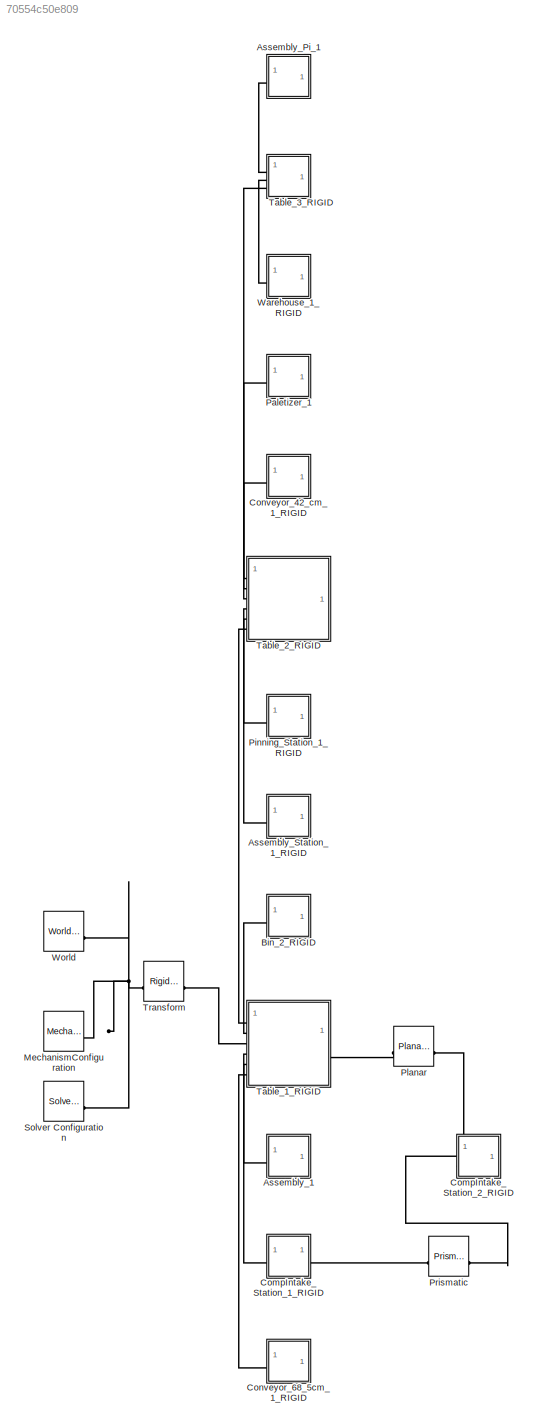
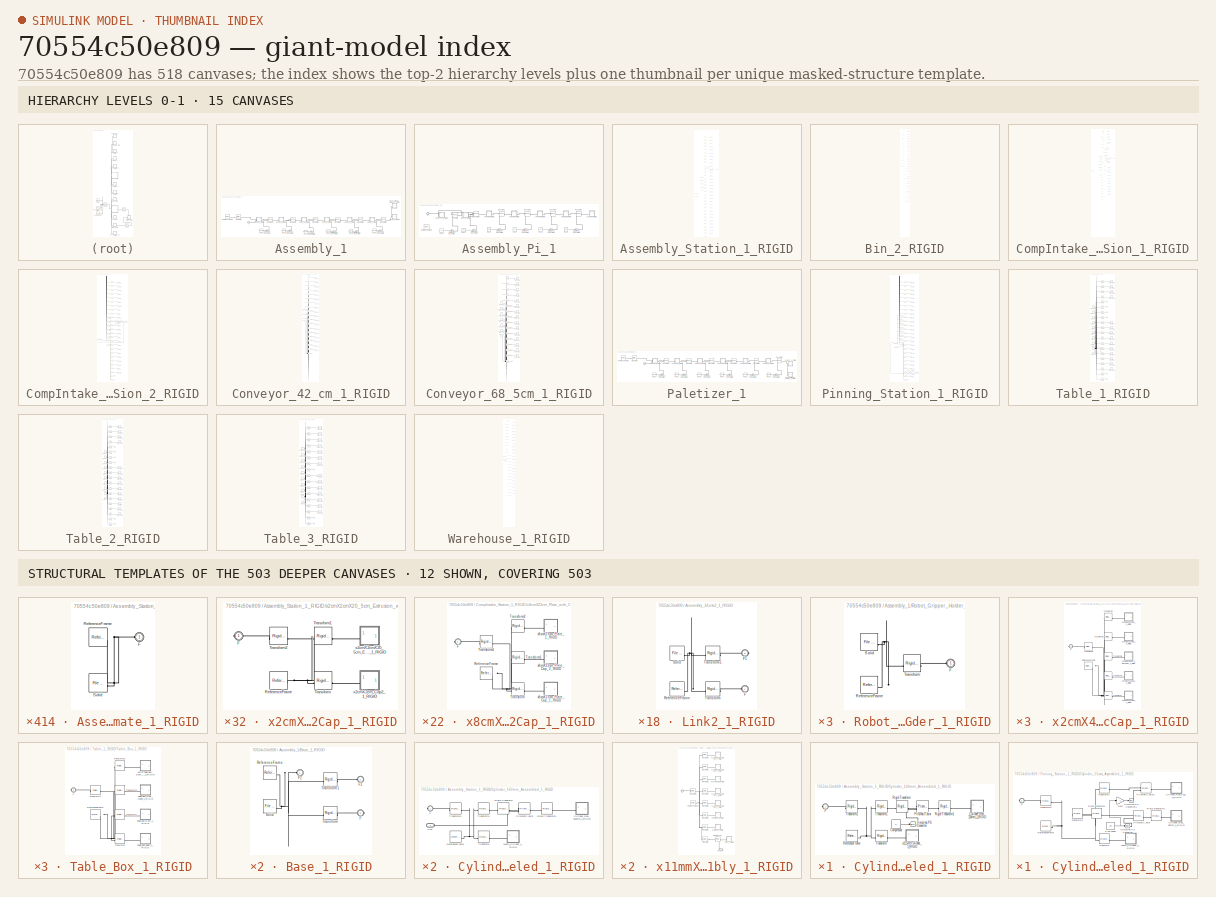
[diagram: thumbnail index - top-2 hierarchy levels (15 canvases) + 12 structural-template representatives of the remaining 503 canvases]
MODEL slx_70554c50e809
KIND model
CONFIG AbsTol = auto
CONFIG EnableMultiTasking = off
CONFIG FixedStep = auto
CONFIG MaxStep = auto
CONFIG MinStep = auto
CONFIG RelTol = 1e-3
CONFIG SampleTimeConstraint = Unconstrained
CONFIG SolverName = VariableStepAuto
CONFIG StartTime = 0.0
CONFIG StopTime = inf
WORKSPACE source: external: MATLAB File  (data not in archive)
BLOCK [SubSystem] Assembly_1
BLOCK [SubSystem] Assembly_1/Base_1_RIGID
BLOCK [PMIOPort] Assembly_1/Base_1_RIGID/F
  Port = 3
  Side = Right
BLOCK [PMIOPort] Assembly_1/Base_1_RIGID/F1
  Port = 2
  Side = Left
BLOCK [PMIOPort] Assembly_1/Base_1_RIGID/F2
  Side = Left
BLOCK [Reference] Assembly_1/Base_1_RIGID/ReferenceFrame  REF=sm_lib/Frames and
Transforms/Reference
Frame
  SourceBlock = sm_lib/Frames and\nTransforms/Reference\nFrame
  SourceType = Reference\nFrame
BLOCK [Reference] Assembly_1/Base_1_RIGID/Solid  REF=sm_lib/Body Elements/File Solid
  SourceBlock = sm_lib/Body Elements/File Solid
  SourceType = File Solid
BLOCK [Reference] Assembly_1/Base_1_RIGID/Transform  REF=sm_lib/Frames and
Transforms/Rigid
Transform
  SourceBlock = sm_lib/Frames and\nTransforms/Rigid\nTransform
  SourceType = Rigid\nTransform
BLOCK [Reference] Assembly_1/Base_1_RIGID/Transform1  REF=sm_lib/Frames and
Transforms/Rigid
Transform
  SourceBlock = sm_lib/Frames and\nTransforms/Rigid\nTransform
  SourceType = Rigid\nTransform
BLOCK [PMIOPort] Assembly_1/F
  Side = Left
BLOCK [SubSystem] Assembly_1/Link2_1_RIGID
BLOCK [PMIOPort] Assembly_1/Link2_1_RIGID/F
  Side = Left
BLOCK [PMIOPort] Assembly_1/Link2_1_RIGID/F1
  Port = 2
  Side = Right
BLOCK [Reference] Assembly_1/Link2_1_RIGID/ReferenceFrame  REF=sm_lib/Frames and
Transforms/Reference
Frame
  SourceBlock = sm_lib/Frames and\nTransforms/Reference\nFrame
  SourceType = Reference\nFrame
BLOCK [Reference] Assembly_1/Link2_1_RIGID/Solid  REF=sm_lib/Body Elements/File Solid
  SourceBlock = sm_lib/Body Elements/File Solid
  SourceType = File Solid
BLOCK [Reference] Assembly_1/Link2_1_RIGID/Transform  REF=sm_lib/Frames and
Transforms/Rigid
Transform
  SourceBlock = sm_lib/Frames and\nTransforms/Rigid\nTransform
  SourceType = Rigid\nTransform
BLOCK [Reference] Assembly_1/Link2_1_RIGID/Transform1  REF=sm_lib/Frames and
Transforms/Rigid
Transform
  SourceBlock = sm_lib/Frames and\nTransforms/Rigid\nTransform
  SourceType = Rigid\nTransform
BLOCK [SubSystem] Assembly_1/Link3_1_RIGID
BLOCK [PMIOPort] Assembly_1/Link3_1_RIGID/F
  Side = Left
BLOCK [PMIOPort] Assembly_1/Link3_1_RIGID/F1
  Port = 2
  Side = Right
BLOCK [Reference] Assembly_1/Link3_1_RIGID/ReferenceFrame  REF=sm_lib/Frames and
Transforms/Reference
Frame
  SourceBlock = sm_lib/Frames and\nTransforms/Reference\nFrame
  SourceType = Reference\nFrame
BLOCK [Reference] Assembly_1/Link3_1_RIGID/Solid  REF=sm_lib/Body Elements/File Solid
  SourceBlock = sm_lib/Body Elements/File Solid
  SourceType = File Solid
BLOCK [Reference] Assembly_1/Link3_1_RIGID/Transform  REF=sm_lib/Frames and
Transforms/Rigid
Transform
  SourceBlock = sm_lib/Frames and\nTransforms/Rigid\nTransform
  SourceType = Rigid\nTransform
BLOCK [Reference] Assembly_1/Link3_1_RIGID/Transform1  REF=sm_lib/Frames and
Transforms/Rigid
Transform
  SourceBlock = sm_lib/Frames and\nTransforms/Rigid\nTransform
  SourceType = Rigid\nTransform
BLOCK [SubSystem] Assembly_1/Link4_1_RIGID
BLOCK [PMIOPort] Assembly_1/Link4_1_RIGID/F
  Side = Left
BLOCK [PMIOPort] Assembly_1/Link4_1_RIGID/F1
  Port = 2
  Side = Right
BLOCK [Reference] Assembly_1/Link4_1_RIGID/ReferenceFrame  REF=sm_lib/Frames and
Transforms/Reference
Frame
  SourceBlock = sm_lib/Frames and\nTransforms/Reference\nFrame
  SourceType = Reference\nFrame
BLOCK [Reference] Assembly_1/Link4_1_RIGID/Solid  REF=sm_lib/Body Elements/File Solid
  SourceBlock = sm_lib/Body Elements/File Solid
  SourceType = File Solid
BLOCK [Reference] Assembly_1/Link4_1_RIGID/Transform  REF=sm_lib/Frames and
Transforms/Rigid
Transform
  SourceBlock = sm_lib/Frames and\nTransforms/Rigid\nTransform
  SourceType = Rigid\nTransform
BLOCK [Reference] Assembly_1/Link4_1_RIGID/Transform1  REF=sm_lib/Frames and
Transforms/Rigid
Transform
  SourceBlock = sm_lib/Frames and\nTransforms/Rigid\nTransform
  SourceType = Rigid\nTransform
BLOCK [SubSystem] Assembly_1/Link5_1_RIGID
BLOCK [PMIOPort] Assembly_1/Link5_1_RIGID/F
  Side = Left
BLOCK [PMIOPort] Assembly_1/Link5_1_RIGID/F1
  Port = 2
  Side = Right
BLOCK [Reference] Assembly_1/Link5_1_RIGID/ReferenceFrame  REF=sm_lib/Frames and
Transforms/Reference
Frame
  SourceBlock = sm_lib/Frames and\nTransforms/Reference\nFrame
  SourceType = Reference\nFrame
BLOCK [Reference] Assembly_1/Link5_1_RIGID/Solid  REF=sm_lib/Body Elements/File Solid
  SourceBlock = sm_lib/Body Elements/File Solid
  SourceType = File Solid
BLOCK [Reference] Assembly_1/Link5_1_RIGID/Transform  REF=sm_lib/Frames and
Transforms/Rigid
Transform
  SourceBlock = sm_lib/Frames and\nTransforms/Rigid\nTransform
  SourceType = Rigid\nTransform
BLOCK [Reference] Assembly_1/Link5_1_RIGID/Transform1  REF=sm_lib/Frames and
Transforms/Rigid
Transform
  SourceBlock = sm_lib/Frames and\nTransforms/Rigid\nTransform
  SourceType = Rigid\nTransform
BLOCK [SubSystem] Assembly_1/Link6_1_RIGID
BLOCK [PMIOPort] Assembly_1/Link6_1_RIGID/F
  Port = 2
  Side = Left
BLOCK [PMIOPort] Assembly_1/Link6_1_RIGID/F1
  Side = Left
BLOCK [Reference] Assembly_1/Link6_1_RIGID/ReferenceFrame  REF=sm_lib/Frames and
Transforms/Reference
Frame
  SourceBlock = sm_lib/Frames and\nTransforms/Reference\nFrame
  SourceType = Reference\nFrame
BLOCK [Reference] Assembly_1/Link6_1_RIGID/Solid  REF=sm_lib/Body Elements/File Solid
  SourceBlock = sm_lib/Body Elements/File Solid
  SourceType = File Solid
BLOCK [Reference] Assembly_1/Link6_1_RIGID/Transform  REF=sm_lib/Frames and
Transforms/Rigid
Transform
  SourceBlock = sm_lib/Frames and\nTransforms/Rigid\nTransform
  SourceType = Rigid\nTransform
BLOCK [Reference] Assembly_1/Link6_1_RIGID/Transform1  REF=sm_lib/Frames and
Transforms/Rigid
Transform
  SourceBlock = sm_lib/Frames and\nTransforms/Rigid\nTransform
  SourceType = Rigid\nTransform
BLOCK [Constant] Assembly_1/R1L1
  Value = R1angle1
BLOCK [Constant] Assembly_1/R1L2
  Value = R1angle2
BLOCK [Constant] Assembly_1/R1L3
  Value = R1angle3
BLOCK [Constant] Assembly_1/R1L4
  Value = R1angle4
BLOCK [Constant] Assembly_1/R1L5
  Value = R1angle5
BLOCK [Constant] Assembly_1/R1L6
  Value = R1angle6
BLOCK [Reference] Assembly_1/ReferenceFrame  REF=sm_lib/Frames and
Transforms/Reference
Frame
  SourceBlock = sm_lib/Frames and\nTransforms/Reference\nFrame
  SourceType = Reference\nFrame
BLOCK [Reference] Assembly_1/Revolute  REF=sm_lib/Joints/Revolute Joint
  SourceBlock = sm_lib/Joints/Revolute Joint
  SourceType = Revolute Joint
BLOCK [Reference] Assembly_1/Revolute1  REF=sm_lib/Joints/Revolute Joint
  SourceBlock = sm_lib/Joints/Revolute Joint
  SourceType = Revolute Joint
BLOCK [Reference] Assembly_1/Revolute2  REF=sm_lib/Joints/Revolute Joint
  SourceBlock = sm_lib/Joints/Revolute Joint
  SourceType = Revolute Joint
BLOCK [Reference] Assembly_1/Revolute3  REF=sm_lib/Joints/Revolute Joint
  SourceBlock = sm_lib/Joints/Revolute Joint
  SourceType = Revolute Joint
BLOCK [Reference] Assembly_1/Revolute4  REF=sm_lib/Joints/Revolute Joint
  SourceBlock = sm_lib/Joints/Revolute Joint
  SourceType = Revolute Joint
BLOCK [Reference] Assembly_1/Revolute5  REF=sm_lib/Joints/Revolute Joint
  SourceBlock = sm_lib/Joints/Revolute Joint
  SourceType = Revolute Joint
BLOCK [SubSystem] Assembly_1/Robot_Gripper_Holder_1_RIGID
BLOCK [PMIOPort] Assembly_1/Robot_Gripper_Holder_1_RIGID/F
  Side = Left
BLOCK [Reference] Assembly_1/Robot_Gripper_Holder_1_RIGID/ReferenceFrame  REF=sm_lib/Frames and
Transforms/Reference
Frame
  SourceBlock = sm_lib/Frames and\nTransforms/Reference\nFrame
  SourceType = Reference\nFrame
BLOCK [Reference] Assembly_1/Robot_Gripper_Holder_1_RIGID/Solid  REF=sm_lib/Body Elements/File Solid
  SourceBlock = sm_lib/Body Elements/File Solid
  SourceType = File Solid
BLOCK [Reference] Assembly_1/Robot_Gripper_Holder_1_RIGID/Transform  REF=sm_lib/Frames and
Transforms/Rigid
Transform
  SourceBlock = sm_lib/Frames and\nTransforms/Rigid\nTransform
  SourceType = Rigid\nTransform
BLOCK [Reference] Assembly_1/Simulink-PS Converter  REF=nesl_utility/Simulink-PS
Converter
  SourceBlock = nesl_utility/Simulink-PS\nConverter
  SourceType = Simulink-PS\nConverter
BLOCK [Reference] Assembly_1/Simulink-PS Converter1  REF=nesl_utility/Simulink-PS
Converter
  SourceBlock = nesl_utility/Simulink-PS\nConverter
  SourceType = Simulink-PS\nConverter
BLOCK [Reference] Assembly_1/Simulink-PS Converter2  REF=nesl_utility/Simulink-PS
Converter
  SourceBlock = nesl_utility/Simulink-PS\nConverter
  SourceType = Simulink-PS\nConverter
BLOCK [Reference] Assembly_1/Simulink-PS Converter3  REF=nesl_utility/Simulink-PS
Converter
  SourceBlock = nesl_utility/Simulink-PS\nConverter
  SourceType = Simulink-PS\nConverter
BLOCK [Reference] Assembly_1/Simulink-PS Converter4  REF=nesl_utility/Simulink-PS
Converter
  SourceBlock = nesl_utility/Simulink-PS\nConverter
  SourceType = Simulink-PS\nConverter
BLOCK [Reference] Assembly_1/Simulink-PS Converter5  REF=nesl_utility/Simulink-PS
Converter
  SourceBlock = nesl_utility/Simulink-PS\nConverter
  SourceType = Simulink-PS\nConverter
BLOCK [Reference] Assembly_1/Transform  REF=sm_lib/Frames and
Transforms/Rigid
Transform
  SourceBlock = sm_lib/Frames and\nTransforms/Rigid\nTransform
  SourceType = Rigid\nTransform
BLOCK [SubSystem] Assembly_1/link1_1_RIGID
BLOCK [PMIOPort] Assembly_1/link1_1_RIGID/F
  Port = 2
  Side = Right
BLOCK [PMIOPort] Assembly_1/link1_1_RIGID/F1
  Side = Left
BLOCK [Reference] Assembly_1/link1_1_RIGID/ReferenceFrame  REF=sm_lib/Frames and
Transforms/Reference
Frame
  SourceBlock = sm_lib/Frames and\nTransforms/Reference\nFrame
  SourceType = Reference\nFrame
BLOCK [Reference] Assembly_1/link1_1_RIGID/Solid  REF=sm_lib/Body Elements/File Solid
  SourceBlock = sm_lib/Body Elements/File Solid
  SourceType = File Solid
BLOCK [Reference] Assembly_1/link1_1_RIGID/Transform  REF=sm_lib/Frames and
Transforms/Rigid
Transform
  SourceBlock = sm_lib/Frames and\nTransforms/Rigid\nTransform
  SourceType = Rigid\nTransform
BLOCK [Reference] Assembly_1/link1_1_RIGID/Transform1  REF=sm_lib/Frames and
Transforms/Rigid
Transform
  SourceBlock = sm_lib/Frames and\nTransforms/Rigid\nTransform
  SourceType = Rigid\nTransform
BLOCK [SubSystem] Assembly_Pi_1
BLOCK [SubSystem] Assembly_Pi_1/Base_Pi_1_RIGID
BLOCK [PMIOPort] Assembly_Pi_1/Base_Pi_1_RIGID/F
  Port = 2
  Side = Left
BLOCK [PMIOPort] Assembly_Pi_1/Base_Pi_1_RIGID/F1
  Side = Left
BLOCK [Reference] Assembly_Pi_1/Base_Pi_1_RIGID/ReferenceFrame  REF=sm_lib/Frames and
Transforms/Reference
Frame
  SourceBlock = sm_lib/Frames and\nTransforms/Reference\nFrame
  SourceType = Reference\nFrame
BLOCK [Reference] Assembly_Pi_1/Base_Pi_1_RIGID/Solid  REF=sm_lib/Body Elements/File Solid
  SourceBlock = sm_lib/Body Elements/File Solid
  SourceType = File Solid
BLOCK [Reference] Assembly_Pi_1/Base_Pi_1_RIGID/Transform  REF=sm_lib/Frames and
Transforms/Rigid
Transform
  SourceBlock = sm_lib/Frames and\nTransforms/Rigid\nTransform
  SourceType = Rigid\nTransform
BLOCK [Reference] Assembly_Pi_1/Base_Pi_1_RIGID/Transform1  REF=sm_lib/Frames and
Transforms/Rigid
Transform
  SourceBlock = sm_lib/Frames and\nTransforms/Rigid\nTransform
  SourceType = Rigid\nTransform
BLOCK [PMIOPort] Assembly_Pi_1/F
  Side = Left
BLOCK [SubSystem] Assembly_Pi_1/Link2_1_RIGID
BLOCK [PMIOPort] Assembly_Pi_1/Link2_1_RIGID/F
  Side = Left
BLOCK [PMIOPort] Assembly_Pi_1/Link2_1_RIGID/F1
  Port = 2
  Side = Right
BLOCK [Reference] Assembly_Pi_1/Link2_1_RIGID/ReferenceFrame  REF=sm_lib/Frames and
Transforms/Reference
Frame
  SourceBlock = sm_lib/Frames and\nTransforms/Reference\nFrame
  SourceType = Reference\nFrame
BLOCK [Reference] Assembly_Pi_1/Link2_1_RIGID/Solid  REF=sm_lib/Body Elements/File Solid
  SourceBlock = sm_lib/Body Elements/File Solid
  SourceType = File Solid
BLOCK [Reference] Assembly_Pi_1/Link2_1_RIGID/Transform  REF=sm_lib/Frames and
Transforms/Rigid
Transform
  SourceBlock = sm_lib/Frames and\nTransforms/Rigid\nTransform
  SourceType = Rigid\nTransform
BLOCK [Reference] Assembly_Pi_1/Link2_1_RIGID/Transform1  REF=sm_lib/Frames and
Transforms/Rigid
Transform
  SourceBlock = sm_lib/Frames and\nTransforms/Rigid\nTransform
  SourceType = Rigid\nTransform
BLOCK [SubSystem] Assembly_Pi_1/Link3_1_RIGID
BLOCK [PMIOPort] Assembly_Pi_1/Link3_1_RIGID/F
  Side = Left
BLOCK [PMIOPort] Assembly_Pi_1/Link3_1_RIGID/F1
  Port = 2
  Side = Right
BLOCK [Reference] Assembly_Pi_1/Link3_1_RIGID/ReferenceFrame  REF=sm_lib/Frames and
Transforms/Reference
Frame
  SourceBlock = sm_lib/Frames and\nTransforms/Reference\nFrame
  SourceType = Reference\nFrame
BLOCK [Reference] Assembly_Pi_1/Link3_1_RIGID/Solid  REF=sm_lib/Body Elements/File Solid
  SourceBlock = sm_lib/Body Elements/File Solid
  SourceType = File Solid
BLOCK [Reference] Assembly_Pi_1/Link3_1_RIGID/Transform  REF=sm_lib/Frames and
Transforms/Rigid
Transform
  SourceBlock = sm_lib/Frames and\nTransforms/Rigid\nTransform
  SourceType = Rigid\nTransform
BLOCK [Reference] Assembly_Pi_1/Link3_1_RIGID/Transform1  REF=sm_lib/Frames and
Transforms/Rigid
Transform
  SourceBlock = sm_lib/Frames and\nTransforms/Rigid\nTransform
  SourceType = Rigid\nTransform
BLOCK [SubSystem] Assembly_Pi_1/Link4_1_RIGID
BLOCK [PMIOPort] Assembly_Pi_1/Link4_1_RIGID/F
  Side = Left
BLOCK [PMIOPort] Assembly_Pi_1/Link4_1_RIGID/F1
  Port = 2
  Side = Right
BLOCK [Reference] Assembly_Pi_1/Link4_1_RIGID/ReferenceFrame  REF=sm_lib/Frames and
Transforms/Reference
Frame
  SourceBlock = sm_lib/Frames and\nTransforms/Reference\nFrame
  SourceType = Reference\nFrame
BLOCK [Reference] Assembly_Pi_1/Link4_1_RIGID/Solid  REF=sm_lib/Body Elements/File Solid
  SourceBlock = sm_lib/Body Elements/File Solid
  SourceType = File Solid
BLOCK [Reference] Assembly_Pi_1/Link4_1_RIGID/Transform  REF=sm_lib/Frames and
Transforms/Rigid
Transform
  SourceBlock = sm_lib/Frames and\nTransforms/Rigid\nTransform
  SourceType = Rigid\nTransform
BLOCK [Reference] Assembly_Pi_1/Link4_1_RIGID/Transform1  REF=sm_lib/Frames and
Transforms/Rigid
Transform
  SourceBlock = sm_lib/Frames and\nTransforms/Rigid\nTransform
  SourceType = Rigid\nTransform
BLOCK [SubSystem] Assembly_Pi_1/Link5_1_RIGID
BLOCK [PMIOPort] Assembly_Pi_1/Link5_1_RIGID/F
  Side = Left
BLOCK [PMIOPort] Assembly_Pi_1/Link5_1_RIGID/F1
  Port = 2
  Side = Right
BLOCK [Reference] Assembly_Pi_1/Link5_1_RIGID/ReferenceFrame  REF=sm_lib/Frames and
Transforms/Reference
Frame
  SourceBlock = sm_lib/Frames and\nTransforms/Reference\nFrame
  SourceType = Reference\nFrame
BLOCK [Reference] Assembly_Pi_1/Link5_1_RIGID/Solid  REF=sm_lib/Body Elements/File Solid
  SourceBlock = sm_lib/Body Elements/File Solid
  SourceType = File Solid
BLOCK [Reference] Assembly_Pi_1/Link5_1_RIGID/Transform  REF=sm_lib/Frames and
Transforms/Rigid
Transform
  SourceBlock = sm_lib/Frames and\nTransforms/Rigid\nTransform
  SourceType = Rigid\nTransform
BLOCK [Reference] Assembly_Pi_1/Link5_1_RIGID/Transform1  REF=sm_lib/Frames and
Transforms/Rigid
Transform
  SourceBlock = sm_lib/Frames and\nTransforms/Rigid\nTransform
  SourceType = Rigid\nTransform
BLOCK [SubSystem] Assembly_Pi_1/Link6_1_RIGID
BLOCK [PMIOPort] Assembly_Pi_1/Link6_1_RIGID/F
  Side = Left
BLOCK [Reference] Assembly_Pi_1/Link6_1_RIGID/ReferenceFrame  REF=sm_lib/Frames and
Transforms/Reference
Frame
  SourceBlock = sm_lib/Frames and\nTransforms/Reference\nFrame
  SourceType = Reference\nFrame
BLOCK [Reference] Assembly_Pi_1/Link6_1_RIGID/Solid  REF=sm_lib/Body Elements/File Solid
  SourceBlock = sm_lib/Body Elements/File Solid
  SourceType = File Solid
BLOCK [Reference] Assembly_Pi_1/Link6_1_RIGID/Transform  REF=sm_lib/Frames and
Transforms/Rigid
Transform
  SourceBlock = sm_lib/Frames and\nTransforms/Rigid\nTransform
  SourceType = Rigid\nTransform
BLOCK [Constant] Assembly_Pi_1/R3L1
  Value = 60
BLOCK [Constant] Assembly_Pi_1/R3L2
  Value = 60
BLOCK [Constant] Assembly_Pi_1/R3L3
  Value = 60
BLOCK [Constant] Assembly_Pi_1/R3L4
  Value = 60
BLOCK [Constant] Assembly_Pi_1/R3L5
  Value = 60
BLOCK [Constant] Assembly_Pi_1/R3L6
  Value = 60
BLOCK [Reference] Assembly_Pi_1/ReferenceFrame  REF=sm_lib/Frames and
Transforms/Reference
Frame
  SourceBlock = sm_lib/Frames and\nTransforms/Reference\nFrame
  SourceType = Reference\nFrame
BLOCK [Reference] Assembly_Pi_1/Revolute  REF=sm_lib/Joints/Revolute Joint
  SourceBlock = sm_lib/Joints/Revolute Joint
  SourceType = Revolute Joint
BLOCK [Reference] Assembly_Pi_1/Revolute1  REF=sm_lib/Joints/Revolute Joint
  SourceBlock = sm_lib/Joints/Revolute Joint
  SourceType = Revolute Joint
BLOCK [Reference] Assembly_Pi_1/Revolute2  REF=sm_lib/Joints/Revolute Joint
  SourceBlock = sm_lib/Joints/Revolute Joint
  SourceType = Revolute Joint
BLOCK [Reference] Assembly_Pi_1/Revolute3  REF=sm_lib/Joints/Revolute Joint
  SourceBlock = sm_lib/Joints/Revolute Joint
  SourceType = Revolute Joint
BLOCK [Reference] Assembly_Pi_1/Revolute4  REF=sm_lib/Joints/Revolute Joint
  SourceBlock = sm_lib/Joints/Revolute Joint
  SourceType = Revolute Joint
BLOCK [Reference] Assembly_Pi_1/Revolute5  REF=sm_lib/Joints/Revolute Joint
  SourceBlock = sm_lib/Joints/Revolute Joint
  SourceType = Revolute Joint
BLOCK [Reference] Assembly_Pi_1/Simulink-PS Converter  REF=nesl_utility/Simulink-PS
Converter
  SourceBlock = nesl_utility/Simulink-PS\nConverter
  SourceType = Simulink-PS\nConverter
BLOCK [Reference] Assembly_Pi_1/Simulink-PS Converter1  REF=nesl_utility/Simulink-PS
Converter
  SourceBlock = nesl_utility/Simulink-PS\nConverter
  SourceType = Simulink-PS\nConverter
BLOCK [Reference] Assembly_Pi_1/Simulink-PS Converter2  REF=nesl_utility/Simulink-PS
Converter
  SourceBlock = nesl_utility/Simulink-PS\nConverter
  SourceType = Simulink-PS\nConverter
BLOCK [Reference] Assembly_Pi_1/Simulink-PS Converter3  REF=nesl_utility/Simulink-PS
Converter
  SourceBlock = nesl_utility/Simulink-PS\nConverter
  SourceType = Simulink-PS\nConverter
BLOCK [Reference] Assembly_Pi_1/Simulink-PS Converter4  REF=nesl_utility/Simulink-PS
Converter
  SourceBlock = nesl_utility/Simulink-PS\nConverter
  SourceType = Simulink-PS\nConverter
BLOCK [Reference] Assembly_Pi_1/Simulink-PS Converter5  REF=nesl_utility/Simulink-PS
Converter
  SourceBlock = nesl_utility/Simulink-PS\nConverter
  SourceType = Simulink-PS\nConverter
BLOCK [SubSystem] Assembly_Pi_1/link1_1_RIGID
BLOCK [PMIOPort] Assembly_Pi_1/link1_1_RIGID/F
  Port = 2
  Side = Right
BLOCK [PMIOPort] Assembly_Pi_1/link1_1_RIGID/F1
  Side = Right
BLOCK [Reference] Assembly_Pi_1/link1_1_RIGID/ReferenceFrame  REF=sm_lib/Frames and
Transforms/Reference
Frame
  SourceBlock = sm_lib/Frames and\nTransforms/Reference\nFrame
  SourceType = Reference\nFrame
BLOCK [Reference] Assembly_Pi_1/link1_1_RIGID/Solid  REF=sm_lib/Body Elements/File Solid
  SourceBlock = sm_lib/Body Elements/File Solid
  SourceType = File Solid
BLOCK [Reference] Assembly_Pi_1/link1_1_RIGID/Transform  REF=sm_lib/Frames and
Transforms/Rigid
Transform
  SourceBlock = sm_lib/Frames and\nTransforms/Rigid\nTransform
  SourceType = Rigid\nTransform
BLOCK [Reference] Assembly_Pi_1/link1_1_RIGID/Transform1  REF=sm_lib/Frames and
Transforms/Rigid
Transform
  SourceBlock = sm_lib/Frames and\nTransforms/Rigid\nTransform
  SourceType = Rigid\nTransform
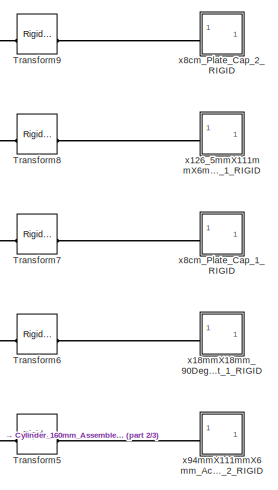
[diagram: Assembly_Station_1_RIGID - part 1/3, top center region]
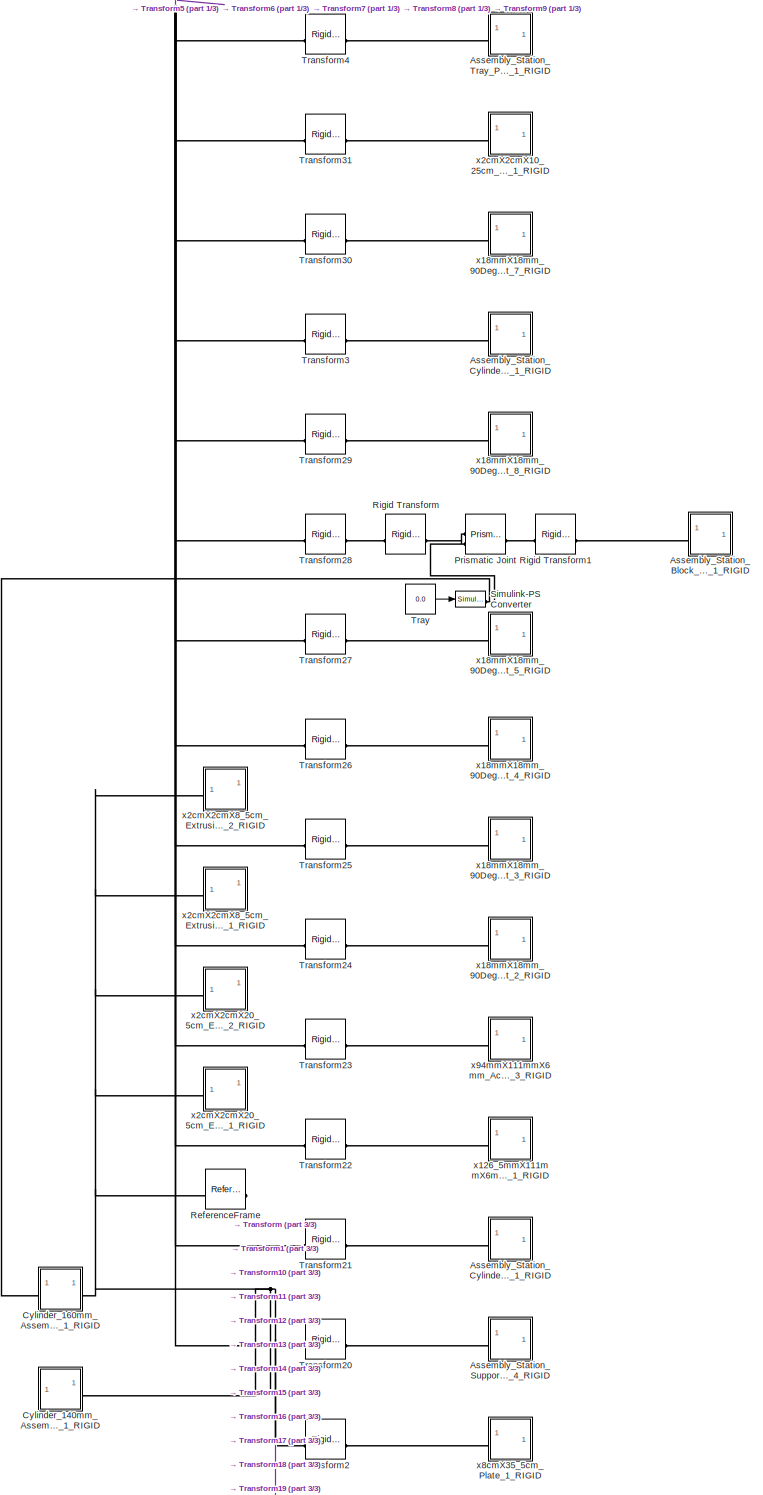
[diagram: Assembly_Station_1_RIGID - part 2/3, full width, middle band]
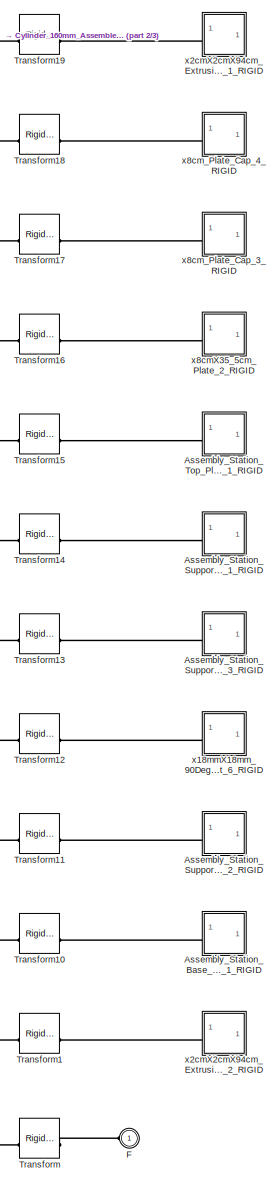
[diagram: Assembly_Station_1_RIGID - part 3/3, bottom center region]
BLOCK [SubSystem] Assembly_Station_1_RIGID
BLOCK [SubSystem] Assembly_Station_1_RIGID/Assembly_Station_Base_Plate_1_RIGID
BLOCK [PMIOPort] Assembly_Station_1_RIGID/Assembly_Station_Base_Plate_1_RIGID/F
  Side = Left
BLOCK [Reference] Assembly_Station_1_RIGID/Assembly_Station_Base_Plate_1_RIGID/ReferenceFrame  REF=sm_lib/Frames and
Transforms/Reference
Frame
  SourceBlock = sm_lib/Frames and\nTransforms/Reference\nFrame
  SourceType = Reference\nFrame
BLOCK [Reference] Assembly_Station_1_RIGID/Assembly_Station_Base_Plate_1_RIGID/Solid  REF=sm_lib/Body Elements/File Solid
  SourceBlock = sm_lib/Body Elements/File Solid
  SourceType = File Solid
BLOCK [SubSystem] Assembly_Station_1_RIGID/Assembly_Station_Block_Holder_1_RIGID
BLOCK [PMIOPort] Assembly_Station_1_RIGID/Assembly_Station_Block_Holder_1_RIGID/F
  Side = Left
BLOCK [Reference] Assembly_Station_1_RIGID/Assembly_Station_Block_Holder_1_RIGID/ReferenceFrame  REF=sm_lib/Frames and
Transforms/Reference
Frame
  SourceBlock = sm_lib/Frames and\nTransforms/Reference\nFrame
  SourceType = Reference\nFrame
BLOCK [Reference] Assembly_Station_1_RIGID/Assembly_Station_Block_Holder_1_RIGID/Solid  REF=sm_lib/Body Elements/File Solid
  SourceBlock = sm_lib/Body Elements/File Solid
  SourceType = File Solid
BLOCK [SubSystem] Assembly_Station_1_RIGID/Assembly_Station_Cylinder_Clamp_1_RIGID
BLOCK [PMIOPort] Assembly_Station_1_RIGID/Assembly_Station_Cylinder_Clamp_1_RIGID/F
  Side = Left
BLOCK [Reference] Assembly_Station_1_RIGID/Assembly_Station_Cylinder_Clamp_1_RIGID/ReferenceFrame  REF=sm_lib/Frames and
Transforms/Reference
Frame
  SourceBlock = sm_lib/Frames and\nTransforms/Reference\nFrame
  SourceType = Reference\nFrame
BLOCK [Reference] Assembly_Station_1_RIGID/Assembly_Station_Cylinder_Clamp_1_RIGID/Solid  REF=sm_lib/Body Elements/File Solid
  SourceBlock = sm_lib/Body Elements/File Solid
  SourceType = File Solid
BLOCK [SubSystem] Assembly_Station_1_RIGID/Assembly_Station_Cylinder_Plate_1_RIGID
BLOCK [PMIOPort] Assembly_Station_1_RIGID/Assembly_Station_Cylinder_Plate_1_RIGID/F
  Side = Left
BLOCK [Reference] Assembly_Station_1_RIGID/Assembly_Station_Cylinder_Plate_1_RIGID/ReferenceFrame  REF=sm_lib/Frames and
Transforms/Reference
Frame
  SourceBlock = sm_lib/Frames and\nTransforms/Reference\nFrame
  SourceType = Reference\nFrame
BLOCK [Reference] Assembly_Station_1_RIGID/Assembly_Station_Cylinder_Plate_1_RIGID/Solid  REF=sm_lib/Body Elements/File Solid
  SourceBlock = sm_lib/Body Elements/File Solid
  SourceType = File Solid
BLOCK [SubSystem] Assembly_Station_1_RIGID/Assembly_Station_Support_Rod_1_RIGID
BLOCK [PMIOPort] Assembly_Station_1_RIGID/Assembly_Station_Support_Rod_1_RIGID/F
  Side = Left
BLOCK [Reference] Assembly_Station_1_RIGID/Assembly_Station_Support_Rod_1_RIGID/ReferenceFrame  REF=sm_lib/Frames and
Transforms/Reference
Frame
  SourceBlock = sm_lib/Frames and\nTransforms/Reference\nFrame
  SourceType = Reference\nFrame
BLOCK [Reference] Assembly_Station_1_RIGID/Assembly_Station_Support_Rod_1_RIGID/Solid  REF=sm_lib/Body Elements/File Solid
  SourceBlock = sm_lib/Body Elements/File Solid
  SourceType = File Solid
BLOCK [SubSystem] Assembly_Station_1_RIGID/Assembly_Station_Support_Rod_2_RIGID
BLOCK [PMIOPort] Assembly_Station_1_RIGID/Assembly_Station_Support_Rod_2_RIGID/F
  Side = Left
BLOCK [Reference] Assembly_Station_1_RIGID/Assembly_Station_Support_Rod_2_RIGID/ReferenceFrame  REF=sm_lib/Frames and
Transforms/Reference
Frame
  SourceBlock = sm_lib/Frames and\nTransforms/Reference\nFrame
  SourceType = Reference\nFrame
BLOCK [Reference] Assembly_Station_1_RIGID/Assembly_Station_Support_Rod_2_RIGID/Solid  REF=sm_lib/Body Elements/File Solid
  SourceBlock = sm_lib/Body Elements/File Solid
  SourceType = File Solid
BLOCK [SubSystem] Assembly_Station_1_RIGID/Assembly_Station_Support_Rod_3_RIGID
BLOCK [PMIOPort] Assembly_Station_1_RIGID/Assembly_Station_Support_Rod_3_RIGID/F
  Side = Left
BLOCK [Reference] Assembly_Station_1_RIGID/Assembly_Station_Support_Rod_3_RIGID/ReferenceFrame  REF=sm_lib/Frames and
Transforms/Reference
Frame
  SourceBlock = sm_lib/Frames and\nTransforms/Reference\nFrame
  SourceType = Reference\nFrame
BLOCK [Reference] Assembly_Station_1_RIGID/Assembly_Station_Support_Rod_3_RIGID/Solid  REF=sm_lib/Body Elements/File Solid
  SourceBlock = sm_lib/Body Elements/File Solid
  SourceType = File Solid
BLOCK [SubSystem] Assembly_Station_1_RIGID/Assembly_Station_Support_Rod_4_RIGID
BLOCK [PMIOPort] Assembly_Station_1_RIGID/Assembly_Station_Support_Rod_4_RIGID/F
  Side = Left
BLOCK [Reference] Assembly_Station_1_RIGID/Assembly_Station_Support_Rod_4_RIGID/ReferenceFrame  REF=sm_lib/Frames and
Transforms/Reference
Frame
  SourceBlock = sm_lib/Frames and\nTransforms/Reference\nFrame
  SourceType = Reference\nFrame
BLOCK [Reference] Assembly_Station_1_RIGID/Assembly_Station_Support_Rod_4_RIGID/Solid  REF=sm_lib/Body Elements/File Solid
  SourceBlock = sm_lib/Body Elements/File Solid
  SourceType = File Solid
BLOCK [SubSystem] Assembly_Station_1_RIGID/Assembly_Station_Top_Plate_1_RIGID
BLOCK [PMIOPort] Assembly_Station_1_RIGID/Assembly_Station_Top_Plate_1_RIGID/F
  Side = Left
BLOCK [Reference] Assembly_Station_1_RIGID/Assembly_Station_Top_Plate_1_RIGID/ReferenceFrame  REF=sm_lib/Frames and
Transforms/Reference
Frame
  SourceBlock = sm_lib/Frames and\nTransforms/Reference\nFrame
  SourceType = Reference\nFrame
BLOCK [Reference] Assembly_Station_1_RIGID/Assembly_Station_Top_Plate_1_RIGID/Solid  REF=sm_lib/Body Elements/File Solid
  SourceBlock = sm_lib/Body Elements/File Solid
  SourceType = File Solid
BLOCK [SubSystem] Assembly_Station_1_RIGID/Assembly_Station_Tray_Plate_1_RIGID
BLOCK [PMIOPort] Assembly_Station_1_RIGID/Assembly_Station_Tray_Plate_1_RIGID/F
  Side = Left
BLOCK [Reference] Assembly_Station_1_RIGID/Assembly_Station_Tray_Plate_1_RIGID/ReferenceFrame  REF=sm_lib/Frames and
Transforms/Reference
Frame
  SourceBlock = sm_lib/Frames and\nTransforms/Reference\nFrame
  SourceType = Reference\nFrame
BLOCK [Reference] Assembly_Station_1_RIGID/Assembly_Station_Tray_Plate_1_RIGID/Solid  REF=sm_lib/Body Elements/File Solid
  SourceBlock = sm_lib/Body Elements/File Solid
  SourceType = File Solid
BLOCK [SubSystem] Assembly_Station_1_RIGID/Cylinder_140mm_Assembled_1_RIGID
BLOCK [Constant] Assembly_Station_1_RIGID/Cylinder_140mm_Assembled_1_RIGID/Compressor
  Value = 0
BLOCK [SubSystem] Assembly_Station_1_RIGID/Cylinder_140mm_Assembled_1_RIGID/Cylinder_Rod_110mm_1_RIGID
BLOCK [PMIOPort] Assembly_Station_1_RIGID/Cylinder_140mm_Assembled_1_RIGID/Cylinder_Rod_110mm_1_RIGID/F
  Side = Left
BLOCK [Reference] Assembly_Station_1_RIGID/Cylinder_140mm_Assembled_1_RIGID/Cylinder_Rod_110mm_1_RIGID/ReferenceFrame  REF=sm_lib/Frames and
Transforms/Reference
Frame
  SourceBlock = sm_lib/Frames and\nTransforms/Reference\nFrame
  SourceType = Reference\nFrame
BLOCK [Reference] Assembly_Station_1_RIGID/Cylinder_140mm_Assembled_1_RIGID/Cylinder_Rod_110mm_1_RIGID/Solid  REF=sm_lib/Body Elements/File Solid
  SourceBlock = sm_lib/Body Elements/File Solid
  SourceType = File Solid
BLOCK [PMIOPort] Assembly_Station_1_RIGID/Cylinder_140mm_Assembled_1_RIGID/F
  Side = Right
BLOCK [Reference] Assembly_Station_1_RIGID/Cylinder_140mm_Assembled_1_RIGID/Prismatic Joint  REF=sm_lib/Joints/Prismatic
Joint
  SourceBlock = sm_lib/Joints/Prismatic\nJoint
  SourceType = Prismatic\nJoint
BLOCK [Reference] Assembly_Station_1_RIGID/Cylinder_140mm_Assembled_1_RIGID/ReferenceFrame  REF=sm_lib/Frames and
Transforms/Reference
Frame
  SourceBlock = sm_lib/Frames and\nTransforms/Reference\nFrame
  SourceType = Reference\nFrame
BLOCK [Reference] Assembly_Station_1_RIGID/Cylinder_140mm_Assembled_1_RIGID/Rigid Transform  REF=sm_lib/Frames and
Transforms/Rigid
Transform
  SourceBlock = sm_lib/Frames and\nTransforms/Rigid\nTransform
  SourceType = Rigid\nTransform
BLOCK [Reference] Assembly_Station_1_RIGID/Cylinder_140mm_Assembled_1_RIGID/Rigid Transform1  REF=sm_lib/Frames and
Transforms/Rigid
Transform
  SourceBlock = sm_lib/Frames and\nTransforms/Rigid\nTransform
  SourceType = Rigid\nTransform
BLOCK [Reference] Assembly_Station_1_RIGID/Cylinder_140mm_Assembled_1_RIGID/Simulink-PS Converter  REF=nesl_utility/Simulink-PS
Converter
  SourceBlock = nesl_utility/Simulink-PS\nConverter
  SourceType = Simulink-PS\nConverter
BLOCK [Reference] Assembly_Station_1_RIGID/Cylinder_140mm_Assembled_1_RIGID/Transform  REF=sm_lib/Frames and
Transforms/Rigid
Transform
  SourceBlock = sm_lib/Frames and\nTransforms/Rigid\nTransform
  SourceType = Rigid\nTransform
BLOCK [Reference] Assembly_Station_1_RIGID/Cylinder_140mm_Assembled_1_RIGID/Transform1  REF=sm_lib/Frames and
Transforms/Rigid
Transform
  SourceBlock = sm_lib/Frames and\nTransforms/Rigid\nTransform
  SourceType = Rigid\nTransform
BLOCK [Reference] Assembly_Station_1_RIGID/Cylinder_140mm_Assembled_1_RIGID/Transform2  REF=sm_lib/Frames and
Transforms/Rigid
Transform
  SourceBlock = sm_lib/Frames and\nTransforms/Rigid\nTransform
  SourceType = Rigid\nTransform
BLOCK [SubSystem] Assembly_Station_1_RIGID/Cylinder_140mm_Assembled_1_RIGID/x11_5cm_Cylinder_1_RIGID
BLOCK [PMIOPort] Assembly_Station_1_RIGID/Cylinder_140mm_Assembled_1_RIGID/x11_5cm_Cylinder_1_RIGID/F
  Side = Left
BLOCK [Reference] Assembly_Station_1_RIGID/Cylinder_140mm_Assembled_1_RIGID/x11_5cm_Cylinder_1_RIGID/ReferenceFrame  REF=sm_lib/Frames and
Transforms/Reference
Frame
  SourceBlock = sm_lib/Frames and\nTransforms/Reference\nFrame
  SourceType = Reference\nFrame
BLOCK [Reference] Assembly_Station_1_RIGID/Cylinder_140mm_Assembled_1_RIGID/x11_5cm_Cylinder_1_RIGID/Solid  REF=sm_lib/Body Elements/File Solid
  SourceBlock = sm_lib/Body Elements/File Solid
  SourceType = File Solid
BLOCK [SubSystem] Assembly_Station_1_RIGID/Cylinder_160mm_Assembled_1_RIGID
BLOCK [SubSystem] Assembly_Station_1_RIGID/Cylinder_160mm_Assembled_1_RIGID/Cylinder_Rod_150mm_1_RIGID
BLOCK [PMIOPort] Assembly_Station_1_RIGID/Cylinder_160mm_Assembled_1_RIGID/Cylinder_Rod_150mm_1_RIGID/F
  Side = Left
BLOCK [Reference] Assembly_Station_1_RIGID/Cylinder_160mm_Assembled_1_RIGID/Cylinder_Rod_150mm_1_RIGID/ReferenceFrame  REF=sm_lib/Frames and
Transforms/Reference
Frame
  SourceBlock = sm_lib/Frames and\nTransforms/Reference\nFrame
  SourceType = Reference\nFrame
BLOCK [Reference] Assembly_Station_1_RIGID/Cylinder_160mm_Assembled_1_RIGID/Cylinder_Rod_150mm_1_RIGID/Solid  REF=sm_lib/Body Elements/File Solid
  SourceBlock = sm_lib/Body Elements/File Solid
  SourceType = File Solid
BLOCK [PMIOPort] Assembly_Station_1_RIGID/Cylinder_160mm_Assembled_1_RIGID/F
  Side = Right
BLOCK [Reference] Assembly_Station_1_RIGID/Cylinder_160mm_Assembled_1_RIGID/Prismatic Joint  REF=sm_lib/Joints/Prismatic
Joint
  SourceBlock = sm_lib/Joints/Prismatic\nJoint
  SourceType = Prismatic\nJoint
BLOCK [Reference] Assembly_Station_1_RIGID/Cylinder_160mm_Assembled_1_RIGID/ReferenceFrame  REF=sm_lib/Frames and
Transforms/Reference
Frame
  SourceBlock = sm_lib/Frames and\nTransforms/Reference\nFrame
  SourceType = Reference\nFrame
BLOCK [Reference] Assembly_Station_1_RIGID/Cylinder_160mm_Assembled_1_RIGID/Rigid Transform  REF=sm_lib/Frames and
Transforms/Rigid
Transform
  SourceBlock = sm_lib/Frames and\nTransforms/Rigid\nTransform
  SourceType = Rigid\nTransform
BLOCK [Reference] Assembly_Station_1_RIGID/Cylinder_160mm_Assembled_1_RIGID/Rigid Transform1  REF=sm_lib/Frames and
Transforms/Rigid
Transform
  SourceBlock = sm_lib/Frames and\nTransforms/Rigid\nTransform
  SourceType = Rigid\nTransform
BLOCK [Reference] Assembly_Station_1_RIGID/Cylinder_160mm_Assembled_1_RIGID/Transform  REF=sm_lib/Frames and
Transforms/Rigid
Transform
  SourceBlock = sm_lib/Frames and\nTransforms/Rigid\nTransform
  SourceType = Rigid\nTransform
BLOCK [Reference] Assembly_Station_1_RIGID/Cylinder_160mm_Assembled_1_RIGID/Transform1  REF=sm_lib/Frames and
Transforms/Rigid
Transform
  SourceBlock = sm_lib/Frames and\nTransforms/Rigid\nTransform
  SourceType = Rigid\nTransform
BLOCK [Reference] Assembly_Station_1_RIGID/Cylinder_160mm_Assembled_1_RIGID/Transform2  REF=sm_lib/Frames and
Transforms/Rigid
Transform
  SourceBlock = sm_lib/Frames and\nTransforms/Rigid\nTransform
  SourceType = Rigid\nTransform
BLOCK [PMIOPort] Assembly_Station_1_RIGID/Cylinder_160mm_Assembled_1_RIGID/Tray
  Port = 2
  Side = Left
BLOCK [SubSystem] Assembly_Station_1_RIGID/Cylinder_160mm_Assembled_1_RIGID/x16cm_Cylinder_1_RIGID
BLOCK [PMIOPort] Assembly_Station_1_RIGID/Cylinder_160mm_Assembled_1_RIGID/x16cm_Cylinder_1_RIGID/F
  Side = Left
BLOCK [Reference] Assembly_Station_1_RIGID/Cylinder_160mm_Assembled_1_RIGID/x16cm_Cylinder_1_RIGID/ReferenceFrame  REF=sm_lib/Frames and
Transforms/Reference
Frame
  SourceBlock = sm_lib/Frames and\nTransforms/Reference\nFrame
  SourceType = Reference\nFrame
BLOCK [Reference] Assembly_Station_1_RIGID/Cylinder_160mm_Assembled_1_RIGID/x16cm_Cylinder_1_RIGID/Solid  REF=sm_lib/Body Elements/File Solid
  SourceBlock = sm_lib/Body Elements/File Solid
  SourceType = File Solid
BLOCK [PMIOPort] Assembly_Station_1_RIGID/F
  Side = Left
BLOCK [Reference] Assembly_Station_1_RIGID/Prismatic Joint  REF=sm_lib/Joints/Prismatic
Joint
  SourceBlock = sm_lib/Joints/Prismatic\nJoint
  SourceType = Prismatic\nJoint
BLOCK [Reference] Assembly_Station_1_RIGID/ReferenceFrame  REF=sm_lib/Frames and
Transforms/Reference
Frame
  SourceBlock = sm_lib/Frames and\nTransforms/Reference\nFrame
  SourceType = Reference\nFrame
BLOCK [Reference] Assembly_Station_1_RIGID/Rigid Transform  REF=sm_lib/Frames and
Transforms/Rigid
Transform
  SourceBlock = sm_lib/Frames and\nTransforms/Rigid\nTransform
  SourceType = Rigid\nTransform
BLOCK [Reference] Assembly_Station_1_RIGID/Rigid Transform1  REF=sm_lib/Frames and
Transforms/Rigid
Transform
  SourceBlock = sm_lib/Frames and\nTransforms/Rigid\nTransform
  SourceType = Rigid\nTransform
BLOCK [Reference] Assembly_Station_1_RIGID/Simulink-PS Converter  REF=nesl_utility/Simulink-PS
Converter
  SourceBlock = nesl_utility/Simulink-PS\nConverter
  SourceType = Simulink-PS\nConverter
BLOCK [Reference] Assembly_Station_1_RIGID/Transform  REF=sm_lib/Frames and
Transforms/Rigid
Transform
  SourceBlock = sm_lib/Frames and\nTransforms/Rigid\nTransform
  SourceType = Rigid\nTransform
BLOCK [Reference] Assembly_Station_1_RIGID/Transform1  REF=sm_lib/Frames and
Transforms/Rigid
Transform
  SourceBlock = sm_lib/Frames and\nTransforms/Rigid\nTransform
  SourceType = Rigid\nTransform
BLOCK [Reference] Assembly_Station_1_RIGID/Transform10  REF=sm_lib/Frames and
Transforms/Rigid
Transform
  SourceBlock = sm_lib/Frames and\nTransforms/Rigid\nTransform
  SourceType = Rigid\nTransform
BLOCK [Reference] Assembly_Station_1_RIGID/Transform11  REF=sm_lib/Frames and
Transforms/Rigid
Transform
  SourceBlock = sm_lib/Frames and\nTransforms/Rigid\nTransform
  SourceType = Rigid\nTransform
BLOCK [Reference] Assembly_Station_1_RIGID/Transform12  REF=sm_lib/Frames and
Transforms/Rigid
Transform
  SourceBlock = sm_lib/Frames and\nTransforms/Rigid\nTransform
  SourceType = Rigid\nTransform
BLOCK [Reference] Assembly_Station_1_RIGID/Transform13  REF=sm_lib/Frames and
Transforms/Rigid
Transform
  SourceBlock = sm_lib/Frames and\nTransforms/Rigid\nTransform
  SourceType = Rigid\nTransform
BLOCK [Reference] Assembly_Station_1_RIGID/Transform14  REF=sm_lib/Frames and
Transforms/Rigid
Transform
  SourceBlock = sm_lib/Frames and\nTransforms/Rigid\nTransform
  SourceType = Rigid\nTransform
BLOCK [Reference] Assembly_Station_1_RIGID/Transform15  REF=sm_lib/Frames and
Transforms/Rigid
Transform
  SourceBlock = sm_lib/Frames and\nTransforms/Rigid\nTransform
  SourceType = Rigid\nTransform
BLOCK [Reference] Assembly_Station_1_RIGID/Transform16  REF=sm_lib/Frames and
Transforms/Rigid
Transform
  SourceBlock = sm_lib/Frames and\nTransforms/Rigid\nTransform
  SourceType = Rigid\nTransform
BLOCK [Reference] Assembly_Station_1_RIGID/Transform17  REF=sm_lib/Frames and
Transforms/Rigid
Transform
  SourceBlock = sm_lib/Frames and\nTransforms/Rigid\nTransform
  SourceType = Rigid\nTransform
BLOCK [Reference] Assembly_Station_1_RIGID/Transform18  REF=sm_lib/Frames and
Transforms/Rigid
Transform
  SourceBlock = sm_lib/Frames and\nTransforms/Rigid\nTransform
  SourceType = Rigid\nTransform
BLOCK [Reference] Assembly_Station_1_RIGID/Transform19  REF=sm_lib/Frames and
Transforms/Rigid
Transform
  SourceBlock = sm_lib/Frames and\nTransforms/Rigid\nTransform
  SourceType = Rigid\nTransform
BLOCK [Reference] Assembly_Station_1_RIGID/Transform2  REF=sm_lib/Frames and
Transforms/Rigid
Transform
  SourceBlock = sm_lib/Frames and\nTransforms/Rigid\nTransform
  SourceType = Rigid\nTransform
BLOCK [Reference] Assembly_Station_1_RIGID/Transform20  REF=sm_lib/Frames and
Transforms/Rigid
Transform
  SourceBlock = sm_lib/Frames and\nTransforms/Rigid\nTransform
  SourceType = Rigid\nTransform
BLOCK [Reference] Assembly_Station_1_RIGID/Transform21  REF=sm_lib/Frames and
Transforms/Rigid
Transform
  SourceBlock = sm_lib/Frames and\nTransforms/Rigid\nTransform
  SourceType = Rigid\nTransform
BLOCK [Reference] Assembly_Station_1_RIGID/Transform22  REF=sm_lib/Frames and
Transforms/Rigid
Transform
  SourceBlock = sm_lib/Frames and\nTransforms/Rigid\nTransform
  SourceType = Rigid\nTransform
BLOCK [Reference] Assembly_Station_1_RIGID/Transform23  REF=sm_lib/Frames and
Transforms/Rigid
Transform
  SourceBlock = sm_lib/Frames and\nTransforms/Rigid\nTransform
  SourceType = Rigid\nTransform
BLOCK [Reference] Assembly_Station_1_RIGID/Transform24  REF=sm_lib/Frames and
Transforms/Rigid
Transform
  SourceBlock = sm_lib/Frames and\nTransforms/Rigid\nTransform
  SourceType = Rigid\nTransform
BLOCK [Reference] Assembly_Station_1_RIGID/Transform25  REF=sm_lib/Frames and
Transforms/Rigid
Transform
  SourceBlock = sm_lib/Frames and\nTransforms/Rigid\nTransform
  SourceType = Rigid\nTransform
BLOCK [Reference] Assembly_Station_1_RIGID/Transform26  REF=sm_lib/Frames and
Transforms/Rigid
Transform
  SourceBlock = sm_lib/Frames and\nTransforms/Rigid\nTransform
  SourceType = Rigid\nTransform
BLOCK [Reference] Assembly_Station_1_RIGID/Transform27  REF=sm_lib/Frames and
Transforms/Rigid
Transform
  SourceBlock = sm_lib/Frames and\nTransforms/Rigid\nTransform
  SourceType = Rigid\nTransform
BLOCK [Reference] Assembly_Station_1_RIGID/Transform28  REF=sm_lib/Frames and
Transforms/Rigid
Transform
  SourceBlock = sm_lib/Frames and\nTransforms/Rigid\nTransform
  SourceType = Rigid\nTransform
BLOCK [Reference] Assembly_Station_1_RIGID/Transform29  REF=sm_lib/Frames and
Transforms/Rigid
Transform
  SourceBlock = sm_lib/Frames and\nTransforms/Rigid\nTransform
  SourceType = Rigid\nTransform
BLOCK [Reference] Assembly_Station_1_RIGID/Transform3  REF=sm_lib/Frames and
Transforms/Rigid
Transform
  SourceBlock = sm_lib/Frames and\nTransforms/Rigid\nTransform
  SourceType = Rigid\nTransform
BLOCK [Reference] Assembly_Station_1_RIGID/Transform30  REF=sm_lib/Frames and
Transforms/Rigid
Transform
  SourceBlock = sm_lib/Frames and\nTransforms/Rigid\nTransform
  SourceType = Rigid\nTransform
BLOCK [Reference] Assembly_Station_1_RIGID/Transform31  REF=sm_lib/Frames and
Transforms/Rigid
Transform
  SourceBlock = sm_lib/Frames and\nTransforms/Rigid\nTransform
  SourceType = Rigid\nTransform
BLOCK [Reference] Assembly_Station_1_RIGID/Transform4  REF=sm_lib/Frames and
Transforms/Rigid
Transform
  SourceBlock = sm_lib/Frames and\nTransforms/Rigid\nTransform
  SourceType = Rigid\nTransform
BLOCK [Reference] Assembly_Station_1_RIGID/Transform5  REF=sm_lib/Frames and
Transforms/Rigid
Transform
  SourceBlock = sm_lib/Frames and\nTransforms/Rigid\nTransform
  SourceType = Rigid\nTransform
BLOCK [Reference] Assembly_Station_1_RIGID/Transform6  REF=sm_lib/Frames and
Transforms/Rigid
Transform
  SourceBlock = sm_lib/Frames and\nTransforms/Rigid\nTransform
  SourceType = Rigid\nTransform
BLOCK [Reference] Assembly_Station_1_RIGID/Transform7  REF=sm_lib/Frames and
Transforms/Rigid
Transform
  SourceBlock = sm_lib/Frames and\nTransforms/Rigid\nTransform
  SourceType = Rigid\nTransform
BLOCK [Reference] Assembly_Station_1_RIGID/Transform8  REF=sm_lib/Frames and
Transforms/Rigid
Transform
  SourceBlock = sm_lib/Frames and\nTransforms/Rigid\nTransform
  SourceType = Rigid\nTransform
BLOCK [Reference] Assembly_Station_1_RIGID/Transform9  REF=sm_lib/Frames and
Transforms/Rigid
Transform
  SourceBlock = sm_lib/Frames and\nTransforms/Rigid\nTransform
  SourceType = Rigid\nTransform
BLOCK [Constant] Assembly_Station_1_RIGID/Tray
  Value = 0.0
BLOCK [SubSystem] Assembly_Station_1_RIGID/x126_5mmX111mmX6mm_Acrylic_Plate_1_RIGID
BLOCK [PMIOPort] Assembly_Station_1_RIGID/x126_5mmX111mmX6mm_Acrylic_Plate_1_RIGID/F
  Side = Left
BLOCK [Reference] Assembly_Station_1_RIGID/x126_5mmX111mmX6mm_Acrylic_Plate_1_RIGID/ReferenceFrame  REF=sm_lib/Frames and
Transforms/Reference
Frame
  SourceBlock = sm_lib/Frames and\nTransforms/Reference\nFrame
  SourceType = Reference\nFrame
BLOCK [Reference] Assembly_Station_1_RIGID/x126_5mmX111mmX6mm_Acrylic_Plate_1_RIGID/Solid  REF=sm_lib/Body Elements/File Solid
  SourceBlock = sm_lib/Body Elements/File Solid
  SourceType = File Solid
BLOCK [SubSystem] Assembly_Station_1_RIGID/x126_5mmX111mmX6mm_Acrylic_Plate_2_1_RIGID
BLOCK [PMIOPort] Assembly_Station_1_RIGID/x126_5mmX111mmX6mm_Acrylic_Plate_2_1_RIGID/F
  Side = Left
BLOCK [Reference] Assembly_Station_1_RIGID/x126_5mmX111mmX6mm_Acrylic_Plate_2_1_RIGID/ReferenceFrame  REF=sm_lib/Frames and
Transforms/Reference
Frame
  SourceBlock = sm_lib/Frames and\nTransforms/Reference\nFrame
  SourceType = Reference\nFrame
BLOCK [Reference] Assembly_Station_1_RIGID/x126_5mmX111mmX6mm_Acrylic_Plate_2_1_RIGID/Solid  REF=sm_lib/Body Elements/File Solid
  SourceBlock = sm_lib/Body Elements/File Solid
  SourceType = File Solid
BLOCK [SubSystem] Assembly_Station_1_RIGID/x18mmX18mm_90Deg_Joint_1_RIGID
BLOCK [PMIOPort] Assembly_Station_1_RIGID/x18mmX18mm_90Deg_Joint_1_RIGID/F
  Side = Left
BLOCK [Reference] Assembly_Station_1_RIGID/x18mmX18mm_90Deg_Joint_1_RIGID/ReferenceFrame  REF=sm_lib/Frames and
Transforms/Reference
Frame
  SourceBlock = sm_lib/Frames and\nTransforms/Reference\nFrame
  SourceType = Reference\nFrame
BLOCK [Reference] Assembly_Station_1_RIGID/x18mmX18mm_90Deg_Joint_1_RIGID/Solid  REF=sm_lib/Body Elements/File Solid
  SourceBlock = sm_lib/Body Elements/File Solid
  SourceType = File Solid
BLOCK [SubSystem] Assembly_Station_1_RIGID/x18mmX18mm_90Deg_Joint_2_RIGID
BLOCK [PMIOPort] Assembly_Station_1_RIGID/x18mmX18mm_90Deg_Joint_2_RIGID/F
  Side = Left
BLOCK [Reference] Assembly_Station_1_RIGID/x18mmX18mm_90Deg_Joint_2_RIGID/ReferenceFrame  REF=sm_lib/Frames and
Transforms/Reference
Frame
  SourceBlock = sm_lib/Frames and\nTransforms/Reference\nFrame
  SourceType = Reference\nFrame
BLOCK [Reference] Assembly_Station_1_RIGID/x18mmX18mm_90Deg_Joint_2_RIGID/Solid  REF=sm_lib/Body Elements/File Solid
  SourceBlock = sm_lib/Body Elements/File Solid
  SourceType = File Solid
BLOCK [SubSystem] Assembly_Station_1_RIGID/x18mmX18mm_90Deg_Joint_3_RIGID
BLOCK [PMIOPort] Assembly_Station_1_RIGID/x18mmX18mm_90Deg_Joint_3_RIGID/F
  Side = Left
BLOCK [Reference] Assembly_Station_1_RIGID/x18mmX18mm_90Deg_Joint_3_RIGID/ReferenceFrame  REF=sm_lib/Frames and
Transforms/Reference
Frame
  SourceBlock = sm_lib/Frames and\nTransforms/Reference\nFrame
  SourceType = Reference\nFrame
BLOCK [Reference] Assembly_Station_1_RIGID/x18mmX18mm_90Deg_Joint_3_RIGID/Solid  REF=sm_lib/Body Elements/File Solid
  SourceBlock = sm_lib/Body Elements/File Solid
  SourceType = File Solid
BLOCK [SubSystem] Assembly_Station_1_RIGID/x18mmX18mm_90Deg_Joint_4_RIGID
BLOCK [PMIOPort] Assembly_Station_1_RIGID/x18mmX18mm_90Deg_Joint_4_RIGID/F
  Side = Left
BLOCK [Reference] Assembly_Station_1_RIGID/x18mmX18mm_90Deg_Joint_4_RIGID/ReferenceFrame  REF=sm_lib/Frames and
Transforms/Reference
Frame
  SourceBlock = sm_lib/Frames and\nTransforms/Reference\nFrame
  SourceType = Reference\nFrame
BLOCK [Reference] Assembly_Station_1_RIGID/x18mmX18mm_90Deg_Joint_4_RIGID/Solid  REF=sm_lib/Body Elements/File Solid
  SourceBlock = sm_lib/Body Elements/File Solid
  SourceType = File Solid
BLOCK [SubSystem] Assembly_Station_1_RIGID/x18mmX18mm_90Deg_Joint_5_RIGID
BLOCK [PMIOPort] Assembly_Station_1_RIGID/x18mmX18mm_90Deg_Joint_5_RIGID/F
  Side = Left
BLOCK [Reference] Assembly_Station_1_RIGID/x18mmX18mm_90Deg_Joint_5_RIGID/ReferenceFrame  REF=sm_lib/Frames and
Transforms/Reference
Frame
  SourceBlock = sm_lib/Frames and\nTransforms/Reference\nFrame
  SourceType = Reference\nFrame
BLOCK [Reference] Assembly_Station_1_RIGID/x18mmX18mm_90Deg_Joint_5_RIGID/Solid  REF=sm_lib/Body Elements/File Solid
  SourceBlock = sm_lib/Body Elements/File Solid
  SourceType = File Solid
BLOCK [SubSystem] Assembly_Station_1_RIGID/x18mmX18mm_90Deg_Joint_6_RIGID
BLOCK [PMIOPort] Assembly_Station_1_RIGID/x18mmX18mm_90Deg_Joint_6_RIGID/F
  Side = Left
BLOCK [Reference] Assembly_Station_1_RIGID/x18mmX18mm_90Deg_Joint_6_RIGID/ReferenceFrame  REF=sm_lib/Frames and
Transforms/Reference
Frame
  SourceBlock = sm_lib/Frames and\nTransforms/Reference\nFrame
  SourceType = Reference\nFrame
BLOCK [Reference] Assembly_Station_1_RIGID/x18mmX18mm_90Deg_Joint_6_RIGID/Solid  REF=sm_lib/Body Elements/File Solid
  SourceBlock = sm_lib/Body Elements/File Solid
  SourceType = File Solid
BLOCK [SubSystem] Assembly_Station_1_RIGID/x18mmX18mm_90Deg_Joint_7_RIGID
BLOCK [PMIOPort] Assembly_Station_1_RIGID/x18mmX18mm_90Deg_Joint_7_RIGID/F
  Side = Left
BLOCK [Reference] Assembly_Station_1_RIGID/x18mmX18mm_90Deg_Joint_7_RIGID/ReferenceFrame  REF=sm_lib/Frames and
Transforms/Reference
Frame
  SourceBlock = sm_lib/Frames and\nTransforms/Reference\nFrame
  SourceType = Reference\nFrame
BLOCK [Reference] Assembly_Station_1_RIGID/x18mmX18mm_90Deg_Joint_7_RIGID/Solid  REF=sm_lib/Body Elements/File Solid
  SourceBlock = sm_lib/Body Elements/File Solid
  SourceType = File Solid
BLOCK [SubSystem] Assembly_Station_1_RIGID/x18mmX18mm_90Deg_Joint_8_RIGID
BLOCK [PMIOPort] Assembly_Station_1_RIGID/x18mmX18mm_90Deg_Joint_8_RIGID/F
  Side = Left
BLOCK [Reference] Assembly_Station_1_RIGID/x18mmX18mm_90Deg_Joint_8_RIGID/ReferenceFrame  REF=sm_lib/Frames and
Transforms/Reference
Frame
  SourceBlock = sm_lib/Frames and\nTransforms/Reference\nFrame
  SourceType = Reference\nFrame
BLOCK [Reference] Assembly_Station_1_RIGID/x18mmX18mm_90Deg_Joint_8_RIGID/Solid  REF=sm_lib/Body Elements/File Solid
  SourceBlock = sm_lib/Body Elements/File Solid
  SourceType = File Solid
BLOCK [SubSystem] Assembly_Station_1_RIGID/x2cmX2cmX10_25cm_Extrusion2_1_RIGID
BLOCK [PMIOPort] Assembly_Station_1_RIGID/x2cmX2cmX10_25cm_Extrusion2_1_RIGID/F
  Side = Left
BLOCK [Reference] Assembly_Station_1_RIGID/x2cmX2cmX10_25cm_Extrusion2_1_RIGID/ReferenceFrame  REF=sm_lib/Frames and
Transforms/Reference
Frame
  SourceBlock = sm_lib/Frames and\nTransforms/Reference\nFrame
  SourceType = Reference\nFrame
BLOCK [Reference] Assembly_Station_1_RIGID/x2cmX2cmX10_25cm_Extrusion2_1_RIGID/Solid  REF=sm_lib/Body Elements/File Solid
  SourceBlock = sm_lib/Body Elements/File Solid
  SourceType = File Solid
BLOCK [SubSystem] Assembly_Station_1_RIGID/x2cmX2cmX20_5cm_Extrusion_with_Cap_1_RIGID
BLOCK [PMIOPort] Assembly_Station_1_RIGID/x2cmX2cmX20_5cm_Extrusion_with_Cap_1_RIGID/F
  Side = Right
BLOCK [Reference] Assembly_Station_1_RIGID/x2cmX2cmX20_5cm_Extrusion_with_Cap_1_RIGID/ReferenceFrame  REF=sm_lib/Frames and
Transforms/Reference
Frame
  SourceBlock = sm_lib/Frames and\nTransforms/Reference\nFrame
  SourceType = Reference\nFrame
BLOCK [Reference] Assembly_Station_1_RIGID/x2cmX2cmX20_5cm_Extrusion_with_Cap_1_RIGID/Transform  REF=sm_lib/Frames and
Transforms/Rigid
Transform
  SourceBlock = sm_lib/Frames and\nTransforms/Rigid\nTransform
  SourceType = Rigid\nTransform
BLOCK [Reference] Assembly_Station_1_RIGID/x2cmX2cmX20_5cm_Extrusion_with_Cap_1_RIGID/Transform1  REF=sm_lib/Frames and
Transforms/Rigid
Transform
  SourceBlock = sm_lib/Frames and\nTransforms/Rigid\nTransform
  SourceType = Rigid\nTransform
BLOCK [Reference] Assembly_Station_1_RIGID/x2cmX2cmX20_5cm_Extrusion_with_Cap_1_RIGID/Transform2  REF=sm_lib/Frames and
Transforms/Rigid
Transform
  SourceBlock = sm_lib/Frames and\nTransforms/Rigid\nTransform
  SourceType = Rigid\nTransform
BLOCK [SubSystem] Assembly_Station_1_RIGID/x2cmX2cmX20_5cm_Extrusion_with_Cap_1_RIGID/x2cmX2cmX20_5cm_Extrusion2_1_RIGID
BLOCK [PMIOPort] Assembly_Station_1_RIGID/x2cmX2cmX20_5cm_Extrusion_with_Cap_1_RIGID/x2cmX2cmX20_5cm_Extrusion2_1_RIGID/F
  Side = Left
BLOCK [Reference] Assembly_Station_1_RIGID/x2cmX2cmX20_5cm_Extrusion_with_Cap_1_RIGID/x2cmX2cmX20_5cm_Extrusion2_1_RIGID/ReferenceFrame  REF=sm_lib/Frames and
Transforms/Reference
Frame
  SourceBlock = sm_lib/Frames and\nTransforms/Reference\nFrame
  SourceType = Reference\nFrame
BLOCK [Reference] Assembly_Station_1_RIGID/x2cmX2cmX20_5cm_Extrusion_with_Cap_1_RIGID/x2cmX2cmX20_5cm_Extrusion2_1_RIGID/Solid  REF=sm_lib/Body Elements/File Solid
  SourceBlock = sm_lib/Body Elements/File Solid
  SourceType = File Solid
BLOCK [SubSystem] Assembly_Station_1_RIGID/x2cmX2cmX20_5cm_Extrusion_with_Cap_1_RIGID/x2cmX2cm_Cap2_1_RIGID
BLOCK [PMIOPort] Assembly_Station_1_RIGID/x2cmX2cmX20_5cm_Extrusion_with_Cap_1_RIGID/x2cmX2cm_Cap2_1_RIGID/F
  Side = Left
BLOCK [Reference] Assembly_Station_1_RIGID/x2cmX2cmX20_5cm_Extrusion_with_Cap_1_RIGID/x2cmX2cm_Cap2_1_RIGID/ReferenceFrame  REF=sm_lib/Frames and
Transforms/Reference
Frame
  SourceBlock = sm_lib/Frames and\nTransforms/Reference\nFrame
  SourceType = Reference\nFrame
BLOCK [Reference] Assembly_Station_1_RIGID/x2cmX2cmX20_5cm_Extrusion_with_Cap_1_RIGID/x2cmX2cm_Cap2_1_RIGID/Solid  REF=sm_lib/Body Elements/File Solid
  SourceBlock = sm_lib/Body Elements/File Solid
  SourceType = File Solid
BLOCK [SubSystem] Assembly_Station_1_RIGID/x2cmX2cmX20_5cm_Extrusion_with_Cap_2_RIGID
BLOCK [PMIOPort] Assembly_Station_1_RIGID/x2cmX2cmX20_5cm_Extrusion_with_Cap_2_RIGID/F
  Side = Right
BLOCK [Reference] Assembly_Station_1_RIGID/x2cmX2cmX20_5cm_Extrusion_with_Cap_2_RIGID/ReferenceFrame  REF=sm_lib/Frames and
Transforms/Reference
Frame
  SourceBlock = sm_lib/Frames and\nTransforms/Reference\nFrame
  SourceType = Reference\nFrame
BLOCK [Reference] Assembly_Station_1_RIGID/x2cmX2cmX20_5cm_Extrusion_with_Cap_2_RIGID/Transform  REF=sm_lib/Frames and
Transforms/Rigid
Transform
  SourceBlock = sm_lib/Frames and\nTransforms/Rigid\nTransform
  SourceType = Rigid\nTransform
BLOCK [Reference] Assembly_Station_1_RIGID/x2cmX2cmX20_5cm_Extrusion_with_Cap_2_RIGID/Transform1  REF=sm_lib/Frames and
Transforms/Rigid
Transform
  SourceBlock = sm_lib/Frames and\nTransforms/Rigid\nTransform
  SourceType = Rigid\nTransform
BLOCK [Reference] Assembly_Station_1_RIGID/x2cmX2cmX20_5cm_Extrusion_with_Cap_2_RIGID/Transform2  REF=sm_lib/Frames and
Transforms/Rigid
Transform
  SourceBlock = sm_lib/Frames and\nTransforms/Rigid\nTransform
  SourceType = Rigid\nTransform
BLOCK [SubSystem] Assembly_Station_1_RIGID/x2cmX2cmX20_5cm_Extrusion_with_Cap_2_RIGID/x2cmX2cmX20_5cm_Extrusion2_1_RIGID
BLOCK [PMIOPort] Assembly_Station_1_RIGID/x2cmX2cmX20_5cm_Extrusion_with_Cap_2_RIGID/x2cmX2cmX20_5cm_Extrusion2_1_RIGID/F
  Side = Left
BLOCK [Reference] Assembly_Station_1_RIGID/x2cmX2cmX20_5cm_Extrusion_with_Cap_2_RIGID/x2cmX2cmX20_5cm_Extrusion2_1_RIGID/ReferenceFrame  REF=sm_lib/Frames and
Transforms/Reference
Frame
  SourceBlock = sm_lib/Frames and\nTransforms/Reference\nFrame
  SourceType = Reference\nFrame
BLOCK [Reference] Assembly_Station_1_RIGID/x2cmX2cmX20_5cm_Extrusion_with_Cap_2_RIGID/x2cmX2cmX20_5cm_Extrusion2_1_RIGID/Solid  REF=sm_lib/Body Elements/File Solid
  SourceBlock = sm_lib/Body Elements/File Solid
  SourceType = File Solid
BLOCK [SubSystem] Assembly_Station_1_RIGID/x2cmX2cmX20_5cm_Extrusion_with_Cap_2_RIGID/x2cmX2cm_Cap2_1_RIGID
BLOCK [PMIOPort] Assembly_Station_1_RIGID/x2cmX2cmX20_5cm_Extrusion_with_Cap_2_RIGID/x2cmX2cm_Cap2_1_RIGID/F
  Side = Left
BLOCK [Reference] Assembly_Station_1_RIGID/x2cmX2cmX20_5cm_Extrusion_with_Cap_2_RIGID/x2cmX2cm_Cap2_1_RIGID/ReferenceFrame  REF=sm_lib/Frames and
Transforms/Reference
Frame
  SourceBlock = sm_lib/Frames and\nTransforms/Reference\nFrame
  SourceType = Reference\nFrame
BLOCK [Reference] Assembly_Station_1_RIGID/x2cmX2cmX20_5cm_Extrusion_with_Cap_2_RIGID/x2cmX2cm_Cap2_1_RIGID/Solid  REF=sm_lib/Body Elements/File Solid
  SourceBlock = sm_lib/Body Elements/File Solid
  SourceType = File Solid
BLOCK [SubSystem] Assembly_Station_1_RIGID/x2cmX2cmX8_5cm_Extrusion_with_Cap_1_RIGID
BLOCK [PMIOPort] Assembly_Station_1_RIGID/x2cmX2cmX8_5cm_Extrusion_with_Cap_1_RIGID/F
  Side = Right
BLOCK [Reference] Assembly_Station_1_RIGID/x2cmX2cmX8_5cm_Extrusion_with_Cap_1_RIGID/ReferenceFrame  REF=sm_lib/Frames and
Transforms/Reference
Frame
  SourceBlock = sm_lib/Frames and\nTransforms/Reference\nFrame
  SourceType = Reference\nFrame
BLOCK [Reference] Assembly_Station_1_RIGID/x2cmX2cmX8_5cm_Extrusion_with_Cap_1_RIGID/Transform  REF=sm_lib/Frames and
Transforms/Rigid
Transform
  SourceBlock = sm_lib/Frames and\nTransforms/Rigid\nTransform
  SourceType = Rigid\nTransform
BLOCK [Reference] Assembly_Station_1_RIGID/x2cmX2cmX8_5cm_Extrusion_with_Cap_1_RIGID/Transform1  REF=sm_lib/Frames and
Transforms/Rigid
Transform
  SourceBlock = sm_lib/Frames and\nTransforms/Rigid\nTransform
  SourceType = Rigid\nTransform
BLOCK [Reference] Assembly_Station_1_RIGID/x2cmX2cmX8_5cm_Extrusion_with_Cap_1_RIGID/Transform2  REF=sm_lib/Frames and
Transforms/Rigid
Transform
  SourceBlock = sm_lib/Frames and\nTransforms/Rigid\nTransform
  SourceType = Rigid\nTransform
BLOCK [SubSystem] Assembly_Station_1_RIGID/x2cmX2cmX8_5cm_Extrusion_with_Cap_1_RIGID/x2cmX2cmX8_5cm_Extrusion2_1_RIGID
BLOCK [PMIOPort] Assembly_Station_1_RIGID/x2cmX2cmX8_5cm_Extrusion_with_Cap_1_RIGID/x2cmX2cmX8_5cm_Extrusion2_1_RIGID/F
  Side = Left
BLOCK [Reference] Assembly_Station_1_RIGID/x2cmX2cmX8_5cm_Extrusion_with_Cap_1_RIGID/x2cmX2cmX8_5cm_Extrusion2_1_RIGID/ReferenceFrame  REF=sm_lib/Frames and
Transforms/Reference
Frame
  SourceBlock = sm_lib/Frames and\nTransforms/Reference\nFrame
  SourceType = Reference\nFrame
BLOCK [Reference] Assembly_Station_1_RIGID/x2cmX2cmX8_5cm_Extrusion_with_Cap_1_RIGID/x2cmX2cmX8_5cm_Extrusion2_1_RIGID/Solid  REF=sm_lib/Body Elements/File Solid
  SourceBlock = sm_lib/Body Elements/File Solid
  SourceType = File Solid
BLOCK [SubSystem] Assembly_Station_1_RIGID/x2cmX2cmX8_5cm_Extrusion_with_Cap_1_RIGID/x2cmX2cm_Cap2_1_RIGID
BLOCK [PMIOPort] Assembly_Station_1_RIGID/x2cmX2cmX8_5cm_Extrusion_with_Cap_1_RIGID/x2cmX2cm_Cap2_1_RIGID/F
  Side = Left
BLOCK [Reference] Assembly_Station_1_RIGID/x2cmX2cmX8_5cm_Extrusion_with_Cap_1_RIGID/x2cmX2cm_Cap2_1_RIGID/ReferenceFrame  REF=sm_lib/Frames and
Transforms/Reference
Frame
  SourceBlock = sm_lib/Frames and\nTransforms/Reference\nFrame
  SourceType = Reference\nFrame
BLOCK [Reference] Assembly_Station_1_RIGID/x2cmX2cmX8_5cm_Extrusion_with_Cap_1_RIGID/x2cmX2cm_Cap2_1_RIGID/Solid  REF=sm_lib/Body Elements/File Solid
  SourceBlock = sm_lib/Body Elements/File Solid
  SourceType = File Solid
BLOCK [SubSystem] Assembly_Station_1_RIGID/x2cmX2cmX8_5cm_Extrusion_with_Cap_2_RIGID
BLOCK [PMIOPort] Assembly_Station_1_RIGID/x2cmX2cmX8_5cm_Extrusion_with_Cap_2_RIGID/F
  Side = Right
BLOCK [Reference] Assembly_Station_1_RIGID/x2cmX2cmX8_5cm_Extrusion_with_Cap_2_RIGID/ReferenceFrame  REF=sm_lib/Frames and
Transforms/Reference
Frame
  SourceBlock = sm_lib/Frames and\nTransforms/Reference\nFrame
  SourceType = Reference\nFrame
BLOCK [Reference] Assembly_Station_1_RIGID/x2cmX2cmX8_5cm_Extrusion_with_Cap_2_RIGID/Transform  REF=sm_lib/Frames and
Transforms/Rigid
Transform
  SourceBlock = sm_lib/Frames and\nTransforms/Rigid\nTransform
  SourceType = Rigid\nTransform
BLOCK [Reference] Assembly_Station_1_RIGID/x2cmX2cmX8_5cm_Extrusion_with_Cap_2_RIGID/Transform1  REF=sm_lib/Frames and
Transforms/Rigid
Transform
  SourceBlock = sm_lib/Frames and\nTransforms/Rigid\nTransform
  SourceType = Rigid\nTransform
BLOCK [Reference] Assembly_Station_1_RIGID/x2cmX2cmX8_5cm_Extrusion_with_Cap_2_RIGID/Transform2  REF=sm_lib/Frames and
Transforms/Rigid
Transform
  SourceBlock = sm_lib/Frames and\nTransforms/Rigid\nTransform
  SourceType = Rigid\nTransform
BLOCK [SubSystem] Assembly_Station_1_RIGID/x2cmX2cmX8_5cm_Extrusion_with_Cap_2_RIGID/x2cmX2cmX8_5cm_Extrusion2_1_RIGID
BLOCK [PMIOPort] Assembly_Station_1_RIGID/x2cmX2cmX8_5cm_Extrusion_with_Cap_2_RIGID/x2cmX2cmX8_5cm_Extrusion2_1_RIGID/F
  Side = Left
BLOCK [Reference] Assembly_Station_1_RIGID/x2cmX2cmX8_5cm_Extrusion_with_Cap_2_RIGID/x2cmX2cmX8_5cm_Extrusion2_1_RIGID/ReferenceFrame  REF=sm_lib/Frames and
Transforms/Reference
Frame
  SourceBlock = sm_lib/Frames and\nTransforms/Reference\nFrame
  SourceType = Reference\nFrame
BLOCK [Reference] Assembly_Station_1_RIGID/x2cmX2cmX8_5cm_Extrusion_with_Cap_2_RIGID/x2cmX2cmX8_5cm_Extrusion2_1_RIGID/Solid  REF=sm_lib/Body Elements/File Solid
  SourceBlock = sm_lib/Body Elements/File Solid
  SourceType = File Solid
BLOCK [SubSystem] Assembly_Station_1_RIGID/x2cmX2cmX8_5cm_Extrusion_with_Cap_2_RIGID/x2cmX2cm_Cap2_1_RIGID
BLOCK [PMIOPort] Assembly_Station_1_RIGID/x2cmX2cmX8_5cm_Extrusion_with_Cap_2_RIGID/x2cmX2cm_Cap2_1_RIGID/F
  Side = Left
BLOCK [Reference] Assembly_Station_1_RIGID/x2cmX2cmX8_5cm_Extrusion_with_Cap_2_RIGID/x2cmX2cm_Cap2_1_RIGID/ReferenceFrame  REF=sm_lib/Frames and
Transforms/Reference
Frame
  SourceBlock = sm_lib/Frames and\nTransforms/Reference\nFrame
  SourceType = Reference\nFrame
BLOCK [Reference] Assembly_Station_1_RIGID/x2cmX2cmX8_5cm_Extrusion_with_Cap_2_RIGID/x2cmX2cm_Cap2_1_RIGID/Solid  REF=sm_lib/Body Elements/File Solid
  SourceBlock = sm_lib/Body Elements/File Solid
  SourceType = File Solid
BLOCK [SubSystem] Assembly_Station_1_RIGID/x2cmX2cmX94cm_Extrusion2_1_RIGID
BLOCK [PMIOPort] Assembly_Station_1_RIGID/x2cmX2cmX94cm_Extrusion2_1_RIGID/F
  Side = Left
BLOCK [Reference] Assembly_Station_1_RIGID/x2cmX2cmX94cm_Extrusion2_1_RIGID/ReferenceFrame  REF=sm_lib/Frames and
Transforms/Reference
Frame
  SourceBlock = sm_lib/Frames and\nTransforms/Reference\nFrame
  SourceType = Reference\nFrame
BLOCK [Reference] Assembly_Station_1_RIGID/x2cmX2cmX94cm_Extrusion2_1_RIGID/Solid  REF=sm_lib/Body Elements/File Solid
  SourceBlock = sm_lib/Body Elements/File Solid
  SourceType = File Solid
BLOCK [SubSystem] Assembly_Station_1_RIGID/x2cmX2cmX94cm_Extrusion2_2_RIGID
BLOCK [PMIOPort] Assembly_Station_1_RIGID/x2cmX2cmX94cm_Extrusion2_2_RIGID/F
  Side = Left
BLOCK [Reference] Assembly_Station_1_RIGID/x2cmX2cmX94cm_Extrusion2_2_RIGID/ReferenceFrame  REF=sm_lib/Frames and
Transforms/Reference
Frame
  SourceBlock = sm_lib/Frames and\nTransforms/Reference\nFrame
  SourceType = Reference\nFrame
BLOCK [Reference] Assembly_Station_1_RIGID/x2cmX2cmX94cm_Extrusion2_2_RIGID/Solid  REF=sm_lib/Body Elements/File Solid
  SourceBlock = sm_lib/Body Elements/File Solid
  SourceType = File Solid
BLOCK [SubSystem] Assembly_Station_1_RIGID/x8cmX35_5cm_Plate_1_RIGID
BLOCK [PMIOPort] Assembly_Station_1_RIGID/x8cmX35_5cm_Plate_1_RIGID/F
  Side = Left
BLOCK [Reference] Assembly_Station_1_RIGID/x8cmX35_5cm_Plate_1_RIGID/ReferenceFrame  REF=sm_lib/Frames and
Transforms/Reference
Frame
  SourceBlock = sm_lib/Frames and\nTransforms/Reference\nFrame
  SourceType = Reference\nFrame
BLOCK [Reference] Assembly_Station_1_RIGID/x8cmX35_5cm_Plate_1_RIGID/Solid  REF=sm_lib/Body Elements/File Solid
  SourceBlock = sm_lib/Body Elements/File Solid
  SourceType = File Solid
BLOCK [SubSystem] Assembly_Station_1_RIGID/x8cmX35_5cm_Plate_2_RIGID
BLOCK [PMIOPort] Assembly_Station_1_RIGID/x8cmX35_5cm_Plate_2_RIGID/F
  Side = Left
BLOCK [Reference] Assembly_Station_1_RIGID/x8cmX35_5cm_Plate_2_RIGID/ReferenceFrame  REF=sm_lib/Frames and
Transforms/Reference
Frame
  SourceBlock = sm_lib/Frames and\nTransforms/Reference\nFrame
  SourceType = Reference\nFrame
BLOCK [Reference] Assembly_Station_1_RIGID/x8cmX35_5cm_Plate_2_RIGID/Solid  REF=sm_lib/Body Elements/File Solid
  SourceBlock = sm_lib/Body Elements/File Solid
  SourceType = File Solid
BLOCK [SubSystem] Assembly_Station_1_RIGID/x8cm_Plate_Cap_1_RIGID
BLOCK [PMIOPort] Assembly_Station_1_RIGID/x8cm_Plate_Cap_1_RIGID/F
  Side = Left
BLOCK [Reference] Assembly_Station_1_RIGID/x8cm_Plate_Cap_1_RIGID/ReferenceFrame  REF=sm_lib/Frames and
Transforms/Reference
Frame
  SourceBlock = sm_lib/Frames and\nTransforms/Reference\nFrame
  SourceType = Reference\nFrame
BLOCK [Reference] Assembly_Station_1_RIGID/x8cm_Plate_Cap_1_RIGID/Solid  REF=sm_lib/Body Elements/File Solid
  SourceBlock = sm_lib/Body Elements/File Solid
  SourceType = File Solid
BLOCK [SubSystem] Assembly_Station_1_RIGID/x8cm_Plate_Cap_2_RIGID
BLOCK [PMIOPort] Assembly_Station_1_RIGID/x8cm_Plate_Cap_2_RIGID/F
  Side = Left
BLOCK [Reference] Assembly_Station_1_RIGID/x8cm_Plate_Cap_2_RIGID/ReferenceFrame  REF=sm_lib/Frames and
Transforms/Reference
Frame
  SourceBlock = sm_lib/Frames and\nTransforms/Reference\nFrame
  SourceType = Reference\nFrame
BLOCK [Reference] Assembly_Station_1_RIGID/x8cm_Plate_Cap_2_RIGID/Solid  REF=sm_lib/Body Elements/File Solid
  SourceBlock = sm_lib/Body Elements/File Solid
  SourceType = File Solid
BLOCK [SubSystem] Assembly_Station_1_RIGID/x8cm_Plate_Cap_3_RIGID
BLOCK [PMIOPort] Assembly_Station_1_RIGID/x8cm_Plate_Cap_3_RIGID/F
  Side = Left
BLOCK [Reference] Assembly_Station_1_RIGID/x8cm_Plate_Cap_3_RIGID/ReferenceFrame  REF=sm_lib/Frames and
Transforms/Reference
Frame
  SourceBlock = sm_lib/Frames and\nTransforms/Reference\nFrame
  SourceType = Reference\nFrame
BLOCK [Reference] Assembly_Station_1_RIGID/x8cm_Plate_Cap_3_RIGID/Solid  REF=sm_lib/Body Elements/File Solid
  SourceBlock = sm_lib/Body Elements/File Solid
  SourceType = File Solid
BLOCK [SubSystem] Assembly_Station_1_RIGID/x8cm_Plate_Cap_4_RIGID
BLOCK [PMIOPort] Assembly_Station_1_RIGID/x8cm_Plate_Cap_4_RIGID/F
  Side = Left
BLOCK [Reference] Assembly_Station_1_RIGID/x8cm_Plate_Cap_4_RIGID/ReferenceFrame  REF=sm_lib/Frames and
Transforms/Reference
Frame
  SourceBlock = sm_lib/Frames and\nTransforms/Reference\nFrame
  SourceType = Reference\nFrame
BLOCK [Reference] Assembly_Station_1_RIGID/x8cm_Plate_Cap_4_RIGID/Solid  REF=sm_lib/Body Elements/File Solid
  SourceBlock = sm_lib/Body Elements/File Solid
  SourceType = File Solid
BLOCK [SubSystem] Assembly_Station_1_RIGID/x94mmX111mmX6mm_Acrylic_Plate_2_RIGID
BLOCK [PMIOPort] Assembly_Station_1_RIGID/x94mmX111mmX6mm_Acrylic_Plate_2_RIGID/F
  Side = Left
BLOCK [Reference] Assembly_Station_1_RIGID/x94mmX111mmX6mm_Acrylic_Plate_2_RIGID/ReferenceFrame  REF=sm_lib/Frames and
Transforms/Reference
Frame
  SourceBlock = sm_lib/Frames and\nTransforms/Reference\nFrame
  SourceType = Reference\nFrame
BLOCK [Reference] Assembly_Station_1_RIGID/x94mmX111mmX6mm_Acrylic_Plate_2_RIGID/Solid  REF=sm_lib/Body Elements/File Solid
  SourceBlock = sm_lib/Body Elements/File Solid
  SourceType = File Solid
BLOCK [SubSystem] Assembly_Station_1_RIGID/x94mmX111mmX6mm_Acrylic_Plate_3_RIGID
BLOCK [PMIOPort] Assembly_Station_1_RIGID/x94mmX111mmX6mm_Acrylic_Plate_3_RIGID/F
  Side = Left
BLOCK [Reference] Assembly_Station_1_RIGID/x94mmX111mmX6mm_Acrylic_Plate_3_RIGID/ReferenceFrame  REF=sm_lib/Frames and
Transforms/Reference
Frame
  SourceBlock = sm_lib/Frames and\nTransforms/Reference\nFrame
  SourceType = Reference\nFrame
BLOCK [Reference] Assembly_Station_1_RIGID/x94mmX111mmX6mm_Acrylic_Plate_3_RIGID/Solid  REF=sm_lib/Body Elements/File Solid
  SourceBlock = sm_lib/Body Elements/File Solid
  SourceType = File Solid
BLOCK [SubSystem] Bin_2_RIGID
BLOCK [PMIOPort] Bin_2_RIGID/F
  Side = Left
BLOCK [Reference] Bin_2_RIGID/ReferenceFrame  REF=sm_lib/Frames and
Transforms/Reference
Frame
  SourceBlock = sm_lib/Frames and\nTransforms/Reference\nFrame
  SourceType = Reference\nFrame
BLOCK [Reference] Bin_2_RIGID/Transform  REF=sm_lib/Frames and
Transforms/Rigid
Transform
  SourceBlock = sm_lib/Frames and\nTransforms/Rigid\nTransform
  SourceType = Rigid\nTransform
BLOCK [Reference] Bin_2_RIGID/Transform1  REF=sm_lib/Frames and
Transforms/Rigid
Transform
  SourceBlock = sm_lib/Frames and\nTransforms/Rigid\nTransform
  SourceType = Rigid\nTransform
BLOCK [Reference] Bin_2_RIGID/Transform10  REF=sm_lib/Frames and
Transforms/Rigid
Transform
  SourceBlock = sm_lib/Frames and\nTransforms/Rigid\nTransform
  SourceType = Rigid\nTransform
BLOCK [Reference] Bin_2_RIGID/Transform11  REF=sm_lib/Frames and
Transforms/Rigid
Transform
  SourceBlock = sm_lib/Frames and\nTransforms/Rigid\nTransform
  SourceType = Rigid\nTransform
BLOCK [Reference] Bin_2_RIGID/Transform12  REF=sm_lib/Frames and
Transforms/Rigid
Transform
  SourceBlock = sm_lib/Frames and\nTransforms/Rigid\nTransform
  SourceType = Rigid\nTransform
BLOCK [Reference] Bin_2_RIGID/Transform13  REF=sm_lib/Frames and
Transforms/Rigid
Transform
  SourceBlock = sm_lib/Frames and\nTransforms/Rigid\nTransform
  SourceType = Rigid\nTransform
BLOCK [Reference] Bin_2_RIGID/Transform14  REF=sm_lib/Frames and
Transforms/Rigid
Transform
  SourceBlock = sm_lib/Frames and\nTransforms/Rigid\nTransform
  SourceType = Rigid\nTransform
BLOCK [Reference] Bin_2_RIGID/Transform15  REF=sm_lib/Frames and
Transforms/Rigid
Transform
  SourceBlock = sm_lib/Frames and\nTransforms/Rigid\nTransform
  SourceType = Rigid\nTransform
BLOCK [Reference] Bin_2_RIGID/Transform16  REF=sm_lib/Frames and
Transforms/Rigid
Transform
  SourceBlock = sm_lib/Frames and\nTransforms/Rigid\nTransform
  SourceType = Rigid\nTransform
BLOCK [Reference] Bin_2_RIGID/Transform17  REF=sm_lib/Frames and
Transforms/Rigid
Transform
  SourceBlock = sm_lib/Frames and\nTransforms/Rigid\nTransform
  SourceType = Rigid\nTransform
BLOCK [Reference] Bin_2_RIGID/Transform18  REF=sm_lib/Frames and
Transforms/Rigid
Transform
  SourceBlock = sm_lib/Frames and\nTransforms/Rigid\nTransform
  SourceType = Rigid\nTransform
BLOCK [Reference] Bin_2_RIGID/Transform19  REF=sm_lib/Frames and
Transforms/Rigid
Transform
  SourceBlock = sm_lib/Frames and\nTransforms/Rigid\nTransform
  SourceType = Rigid\nTransform
BLOCK [Reference] Bin_2_RIGID/Transform2  REF=sm_lib/Frames and
Transforms/Rigid
Transform
  SourceBlock = sm_lib/Frames and\nTransforms/Rigid\nTransform
  SourceType = Rigid\nTransform
BLOCK [Reference] Bin_2_RIGID/Transform20  REF=sm_lib/Frames and
Transforms/Rigid
Transform
  SourceBlock = sm_lib/Frames and\nTransforms/Rigid\nTransform
  SourceType = Rigid\nTransform
BLOCK [Reference] Bin_2_RIGID/Transform21  REF=sm_lib/Frames and
Transforms/Rigid
Transform
  SourceBlock = sm_lib/Frames and\nTransforms/Rigid\nTransform
  SourceType = Rigid\nTransform
BLOCK [Reference] Bin_2_RIGID/Transform22  REF=sm_lib/Frames and
Transforms/Rigid
Transform
  SourceBlock = sm_lib/Frames and\nTransforms/Rigid\nTransform
  SourceType = Rigid\nTransform
BLOCK [Reference] Bin_2_RIGID/Transform23  REF=sm_lib/Frames and
Transforms/Rigid
Transform
  SourceBlock = sm_lib/Frames and\nTransforms/Rigid\nTransform
  SourceType = Rigid\nTransform
BLOCK [Reference] Bin_2_RIGID/Transform24  REF=sm_lib/Frames and
Transforms/Rigid
Transform
  SourceBlock = sm_lib/Frames and\nTransforms/Rigid\nTransform
  SourceType = Rigid\nTransform
BLOCK [Reference] Bin_2_RIGID/Transform25  REF=sm_lib/Frames and
Transforms/Rigid
Transform
  SourceBlock = sm_lib/Frames and\nTransforms/Rigid\nTransform
  SourceType = Rigid\nTransform
BLOCK [Reference] Bin_2_RIGID/Transform26  REF=sm_lib/Frames and
Transforms/Rigid
Transform
  SourceBlock = sm_lib/Frames and\nTransforms/Rigid\nTransform
  SourceType = Rigid\nTransform
BLOCK [Reference] Bin_2_RIGID/Transform27  REF=sm_lib/Frames and
Transforms/Rigid
Transform
  SourceBlock = sm_lib/Frames and\nTransforms/Rigid\nTransform
  SourceType = Rigid\nTransform
BLOCK [Reference] Bin_2_RIGID/Transform28  REF=sm_lib/Frames and
Transforms/Rigid
Transform
  SourceBlock = sm_lib/Frames and\nTransforms/Rigid\nTransform
  SourceType = Rigid\nTransform
BLOCK [Reference] Bin_2_RIGID/Transform29  REF=sm_lib/Frames and
Transforms/Rigid
Transform
  SourceBlock = sm_lib/Frames and\nTransforms/Rigid\nTransform
  SourceType = Rigid\nTransform
BLOCK [Reference] Bin_2_RIGID/Transform3  REF=sm_lib/Frames and
Transforms/Rigid
Transform
  SourceBlock = sm_lib/Frames and\nTransforms/Rigid\nTransform
  SourceType = Rigid\nTransform
BLOCK [Reference] Bin_2_RIGID/Transform4  REF=sm_lib/Frames and
Transforms/Rigid
Transform
  SourceBlock = sm_lib/Frames and\nTransforms/Rigid\nTransform
  SourceType = Rigid\nTransform
BLOCK [Reference] Bin_2_RIGID/Transform5  REF=sm_lib/Frames and
Transforms/Rigid
Transform
  SourceBlock = sm_lib/Frames and\nTransforms/Rigid\nTransform
  SourceType = Rigid\nTransform
BLOCK [Reference] Bin_2_RIGID/Transform6  REF=sm_lib/Frames and
Transforms/Rigid
Transform
  SourceBlock = sm_lib/Frames and\nTransforms/Rigid\nTransform
  SourceType = Rigid\nTransform
BLOCK [Reference] Bin_2_RIGID/Transform7  REF=sm_lib/Frames and
Transforms/Rigid
Transform
  SourceBlock = sm_lib/Frames and\nTransforms/Rigid\nTransform
  SourceType = Rigid\nTransform
BLOCK [Reference] Bin_2_RIGID/Transform8  REF=sm_lib/Frames and
Transforms/Rigid
Transform
  SourceBlock = sm_lib/Frames and\nTransforms/Rigid\nTransform
  SourceType = Rigid\nTransform
BLOCK [Reference] Bin_2_RIGID/Transform9  REF=sm_lib/Frames and
Transforms/Rigid
Transform
  SourceBlock = sm_lib/Frames and\nTransforms/Rigid\nTransform
  SourceType = Rigid\nTransform
BLOCK [SubSystem] Bin_2_RIGID/x13_0cmX23_2cm_Bin_Cover_1_RIGID
BLOCK [PMIOPort] Bin_2_RIGID/x13_0cmX23_2cm_Bin_Cover_1_RIGID/F
  Side = Left
BLOCK [Reference] Bin_2_RIGID/x13_0cmX23_2cm_Bin_Cover_1_RIGID/ReferenceFrame  REF=sm_lib/Frames and
Transforms/Reference
Frame
  SourceBlock = sm_lib/Frames and\nTransforms/Reference\nFrame
  SourceType = Reference\nFrame
BLOCK [Reference] Bin_2_RIGID/x13_0cmX23_2cm_Bin_Cover_1_RIGID/Solid  REF=sm_lib/Body Elements/File Solid
  SourceBlock = sm_lib/Body Elements/File Solid
  SourceType = File Solid
BLOCK [SubSystem] Bin_2_RIGID/x13_0cmX23_2cm_Bin_Cover_2_RIGID
BLOCK [PMIOPort] Bin_2_RIGID/x13_0cmX23_2cm_Bin_Cover_2_RIGID/F
  Side = Left
BLOCK [Reference] Bin_2_RIGID/x13_0cmX23_2cm_Bin_Cover_2_RIGID/ReferenceFrame  REF=sm_lib/Frames and
Transforms/Reference
Frame
  SourceBlock = sm_lib/Frames and\nTransforms/Reference\nFrame
  SourceType = Reference\nFrame
BLOCK [Reference] Bin_2_RIGID/x13_0cmX23_2cm_Bin_Cover_2_RIGID/Solid  REF=sm_lib/Body Elements/File Solid
  SourceBlock = sm_lib/Body Elements/File Solid
  SourceType = File Solid
BLOCK [SubSystem] Bin_2_RIGID/x18mmX18mm_90Deg_Joint_13_RIGID
BLOCK [PMIOPort] Bin_2_RIGID/x18mmX18mm_90Deg_Joint_13_RIGID/F
  Side = Left
BLOCK [Reference] Bin_2_RIGID/x18mmX18mm_90Deg_Joint_13_RIGID/ReferenceFrame  REF=sm_lib/Frames and
Transforms/Reference
Frame
  SourceBlock = sm_lib/Frames and\nTransforms/Reference\nFrame
  SourceType = Reference\nFrame
BLOCK [Reference] Bin_2_RIGID/x18mmX18mm_90Deg_Joint_13_RIGID/Solid  REF=sm_lib/Body Elements/File Solid
  SourceBlock = sm_lib/Body Elements/File Solid
  SourceType = File Solid
BLOCK [SubSystem] Bin_2_RIGID/x18mmX18mm_90Deg_Joint_14_RIGID
BLOCK [PMIOPort] Bin_2_RIGID/x18mmX18mm_90Deg_Joint_14_RIGID/F
  Side = Left
BLOCK [Reference] Bin_2_RIGID/x18mmX18mm_90Deg_Joint_14_RIGID/ReferenceFrame  REF=sm_lib/Frames and
Transforms/Reference
Frame
  SourceBlock = sm_lib/Frames and\nTransforms/Reference\nFrame
  SourceType = Reference\nFrame
BLOCK [Reference] Bin_2_RIGID/x18mmX18mm_90Deg_Joint_14_RIGID/Solid  REF=sm_lib/Body Elements/File Solid
  SourceBlock = sm_lib/Body Elements/File Solid
  SourceType = File Solid
BLOCK [SubSystem] Bin_2_RIGID/x18mmX18mm_90Deg_Joint_15_RIGID
BLOCK [PMIOPort] Bin_2_RIGID/x18mmX18mm_90Deg_Joint_15_RIGID/F
  Side = Left
BLOCK [Reference] Bin_2_RIGID/x18mmX18mm_90Deg_Joint_15_RIGID/ReferenceFrame  REF=sm_lib/Frames and
Transforms/Reference
Frame
  SourceBlock = sm_lib/Frames and\nTransforms/Reference\nFrame
  SourceType = Reference\nFrame
BLOCK [Reference] Bin_2_RIGID/x18mmX18mm_90Deg_Joint_15_RIGID/Solid  REF=sm_lib/Body Elements/File Solid
  SourceBlock = sm_lib/Body Elements/File Solid
  SourceType = File Solid
BLOCK [SubSystem] Bin_2_RIGID/x18mmX18mm_90Deg_Joint_16_RIGID
BLOCK [PMIOPort] Bin_2_RIGID/x18mmX18mm_90Deg_Joint_16_RIGID/F
  Side = Left
BLOCK [Reference] Bin_2_RIGID/x18mmX18mm_90Deg_Joint_16_RIGID/ReferenceFrame  REF=sm_lib/Frames and
Transforms/Reference
Frame
  SourceBlock = sm_lib/Frames and\nTransforms/Reference\nFrame
  SourceType = Reference\nFrame
BLOCK [Reference] Bin_2_RIGID/x18mmX18mm_90Deg_Joint_16_RIGID/Solid  REF=sm_lib/Body Elements/File Solid
  SourceBlock = sm_lib/Body Elements/File Solid
  SourceType = File Solid
BLOCK [SubSystem] Bin_2_RIGID/x18mmX18mm_90Deg_Joint_17_RIGID
BLOCK [PMIOPort] Bin_2_RIGID/x18mmX18mm_90Deg_Joint_17_RIGID/F
  Side = Left
BLOCK [Reference] Bin_2_RIGID/x18mmX18mm_90Deg_Joint_17_RIGID/ReferenceFrame  REF=sm_lib/Frames and
Transforms/Reference
Frame
  SourceBlock = sm_lib/Frames and\nTransforms/Reference\nFrame
  SourceType = Reference\nFrame
BLOCK [Reference] Bin_2_RIGID/x18mmX18mm_90Deg_Joint_17_RIGID/Solid  REF=sm_lib/Body Elements/File Solid
  SourceBlock = sm_lib/Body Elements/File Solid
  SourceType = File Solid
BLOCK [SubSystem] Bin_2_RIGID/x18mmX18mm_90Deg_Joint_18_RIGID
BLOCK [PMIOPort] Bin_2_RIGID/x18mmX18mm_90Deg_Joint_18_RIGID/F
  Side = Left
BLOCK [Reference] Bin_2_RIGID/x18mmX18mm_90Deg_Joint_18_RIGID/ReferenceFrame  REF=sm_lib/Frames and
Transforms/Reference
Frame
  SourceBlock = sm_lib/Frames and\nTransforms/Reference\nFrame
  SourceType = Reference\nFrame
BLOCK [Reference] Bin_2_RIGID/x18mmX18mm_90Deg_Joint_18_RIGID/Solid  REF=sm_lib/Body Elements/File Solid
  SourceBlock = sm_lib/Body Elements/File Solid
  SourceType = File Solid
BLOCK [SubSystem] Bin_2_RIGID/x18mmX18mm_90Deg_Joint_1_RIGID
BLOCK [PMIOPort] Bin_2_RIGID/x18mmX18mm_90Deg_Joint_1_RIGID/F
  Side = Left
BLOCK [Reference] Bin_2_RIGID/x18mmX18mm_90Deg_Joint_1_RIGID/ReferenceFrame  REF=sm_lib/Frames and
Transforms/Reference
Frame
  SourceBlock = sm_lib/Frames and\nTransforms/Reference\nFrame
  SourceType = Reference\nFrame
BLOCK [Reference] Bin_2_RIGID/x18mmX18mm_90Deg_Joint_1_RIGID/Solid  REF=sm_lib/Body Elements/File Solid
  SourceBlock = sm_lib/Body Elements/File Solid
  SourceType = File Solid
BLOCK [SubSystem] Bin_2_RIGID/x18mmX18mm_90Deg_Joint_2_RIGID
BLOCK [PMIOPort] Bin_2_RIGID/x18mmX18mm_90Deg_Joint_2_RIGID/F
  Side = Left
BLOCK [Reference] Bin_2_RIGID/x18mmX18mm_90Deg_Joint_2_RIGID/ReferenceFrame  REF=sm_lib/Frames and
Transforms/Reference
Frame
  SourceBlock = sm_lib/Frames and\nTransforms/Reference\nFrame
  SourceType = Reference\nFrame
BLOCK [Reference] Bin_2_RIGID/x18mmX18mm_90Deg_Joint_2_RIGID/Solid  REF=sm_lib/Body Elements/File Solid
  SourceBlock = sm_lib/Body Elements/File Solid
  SourceType = File Solid
BLOCK [SubSystem] Bin_2_RIGID/x18mmX18mm_90Deg_Joint_3_RIGID
BLOCK [PMIOPort] Bin_2_RIGID/x18mmX18mm_90Deg_Joint_3_RIGID/F
  Side = Left
BLOCK [Reference] Bin_2_RIGID/x18mmX18mm_90Deg_Joint_3_RIGID/ReferenceFrame  REF=sm_lib/Frames and
Transforms/Reference
Frame
  SourceBlock = sm_lib/Frames and\nTransforms/Reference\nFrame
  SourceType = Reference\nFrame
BLOCK [Reference] Bin_2_RIGID/x18mmX18mm_90Deg_Joint_3_RIGID/Solid  REF=sm_lib/Body Elements/File Solid
  SourceBlock = sm_lib/Body Elements/File Solid
  SourceType = File Solid
BLOCK [SubSystem] Bin_2_RIGID/x18mmX18mm_90Deg_Joint_4_RIGID
BLOCK [PMIOPort] Bin_2_RIGID/x18mmX18mm_90Deg_Joint_4_RIGID/F
  Side = Left
BLOCK [Reference] Bin_2_RIGID/x18mmX18mm_90Deg_Joint_4_RIGID/ReferenceFrame  REF=sm_lib/Frames and
Transforms/Reference
Frame
  SourceBlock = sm_lib/Frames and\nTransforms/Reference\nFrame
  SourceType = Reference\nFrame
BLOCK [Reference] Bin_2_RIGID/x18mmX18mm_90Deg_Joint_4_RIGID/Solid  REF=sm_lib/Body Elements/File Solid
  SourceBlock = sm_lib/Body Elements/File Solid
  SourceType = File Solid
BLOCK [SubSystem] Bin_2_RIGID/x18mmX18mm_90Deg_Joint_5_RIGID
BLOCK [PMIOPort] Bin_2_RIGID/x18mmX18mm_90Deg_Joint_5_RIGID/F
  Side = Left
BLOCK [Reference] Bin_2_RIGID/x18mmX18mm_90Deg_Joint_5_RIGID/ReferenceFrame  REF=sm_lib/Frames and
Transforms/Reference
Frame
  SourceBlock = sm_lib/Frames and\nTransforms/Reference\nFrame
  SourceType = Reference\nFrame
BLOCK [Reference] Bin_2_RIGID/x18mmX18mm_90Deg_Joint_5_RIGID/Solid  REF=sm_lib/Body Elements/File Solid
  SourceBlock = sm_lib/Body Elements/File Solid
  SourceType = File Solid
BLOCK [SubSystem] Bin_2_RIGID/x18mmX18mm_90Deg_Joint_6_RIGID
BLOCK [PMIOPort] Bin_2_RIGID/x18mmX18mm_90Deg_Joint_6_RIGID/F
  Side = Left
BLOCK [Reference] Bin_2_RIGID/x18mmX18mm_90Deg_Joint_6_RIGID/ReferenceFrame  REF=sm_lib/Frames and
Transforms/Reference
Frame
  SourceBlock = sm_lib/Frames and\nTransforms/Reference\nFrame
  SourceType = Reference\nFrame
BLOCK [Reference] Bin_2_RIGID/x18mmX18mm_90Deg_Joint_6_RIGID/Solid  REF=sm_lib/Body Elements/File Solid
  SourceBlock = sm_lib/Body Elements/File Solid
  SourceType = File Solid
BLOCK [SubSystem] Bin_2_RIGID/x22_1cmX13_0cm_Bin_Cover_1_RIGID
BLOCK [PMIOPort] Bin_2_RIGID/x22_1cmX13_0cm_Bin_Cover_1_RIGID/F
  Side = Left
BLOCK [Reference] Bin_2_RIGID/x22_1cmX13_0cm_Bin_Cover_1_RIGID/ReferenceFrame  REF=sm_lib/Frames and
Transforms/Reference
Frame
  SourceBlock = sm_lib/Frames and\nTransforms/Reference\nFrame
  SourceType = Reference\nFrame
BLOCK [Reference] Bin_2_RIGID/x22_1cmX13_0cm_Bin_Cover_1_RIGID/Solid  REF=sm_lib/Body Elements/File Solid
  SourceBlock = sm_lib/Body Elements/File Solid
  SourceType = File Solid
BLOCK [SubSystem] Bin_2_RIGID/x22_1cmX23_2cm_Bin_Cover_1_RIGID
BLOCK [PMIOPort] Bin_2_RIGID/x22_1cmX23_2cm_Bin_Cover_1_RIGID/F
  Side = Left
BLOCK [Reference] Bin_2_RIGID/x22_1cmX23_2cm_Bin_Cover_1_RIGID/ReferenceFrame  REF=sm_lib/Frames and
Transforms/Reference
Frame
  SourceBlock = sm_lib/Frames and\nTransforms/Reference\nFrame
  SourceType = Reference\nFrame
BLOCK [Reference] Bin_2_RIGID/x22_1cmX23_2cm_Bin_Cover_1_RIGID/Solid  REF=sm_lib/Body Elements/File Solid
  SourceBlock = sm_lib/Body Elements/File Solid
  SourceType = File Solid
BLOCK [SubSystem] Bin_2_RIGID/x22_1cmX23_2cm_Bin_Cover_2_RIGID
BLOCK [PMIOPort] Bin_2_RIGID/x22_1cmX23_2cm_Bin_Cover_2_RIGID/F
  Side = Left
BLOCK [Reference] Bin_2_RIGID/x22_1cmX23_2cm_Bin_Cover_2_RIGID/ReferenceFrame  REF=sm_lib/Frames and
Transforms/Reference
Frame
  SourceBlock = sm_lib/Frames and\nTransforms/Reference\nFrame
  SourceType = Reference\nFrame
BLOCK [Reference] Bin_2_RIGID/x22_1cmX23_2cm_Bin_Cover_2_RIGID/Solid  REF=sm_lib/Body Elements/File Solid
  SourceBlock = sm_lib/Body Elements/File Solid
  SourceType = File Solid
BLOCK [SubSystem] Bin_2_RIGID/x2cmX2cmX11_9cm_Extrusion_10_RIGID
BLOCK [PMIOPort] Bin_2_RIGID/x2cmX2cmX11_9cm_Extrusion_10_RIGID/F
  Side = Left
BLOCK [Reference] Bin_2_RIGID/x2cmX2cmX11_9cm_Extrusion_10_RIGID/ReferenceFrame  REF=sm_lib/Frames and
Transforms/Reference
Frame
  SourceBlock = sm_lib/Frames and\nTransforms/Reference\nFrame
  SourceType = Reference\nFrame
BLOCK [Reference] Bin_2_RIGID/x2cmX2cmX11_9cm_Extrusion_10_RIGID/Solid  REF=sm_lib/Body Elements/File Solid
  SourceBlock = sm_lib/Body Elements/File Solid
  SourceType = File Solid
BLOCK [SubSystem] Bin_2_RIGID/x2cmX2cmX11_9cm_Extrusion_5_RIGID
BLOCK [PMIOPort] Bin_2_RIGID/x2cmX2cmX11_9cm_Extrusion_5_RIGID/F
  Side = Left
BLOCK [Reference] Bin_2_RIGID/x2cmX2cmX11_9cm_Extrusion_5_RIGID/ReferenceFrame  REF=sm_lib/Frames and
Transforms/Reference
Frame
  SourceBlock = sm_lib/Frames and\nTransforms/Reference\nFrame
  SourceType = Reference\nFrame
BLOCK [Reference] Bin_2_RIGID/x2cmX2cmX11_9cm_Extrusion_5_RIGID/Solid  REF=sm_lib/Body Elements/File Solid
  SourceBlock = sm_lib/Body Elements/File Solid
  SourceType = File Solid
BLOCK [SubSystem] Bin_2_RIGID/x2cmX2cmX11_9cm_Extrusion_6_RIGID
BLOCK [PMIOPort] Bin_2_RIGID/x2cmX2cmX11_9cm_Extrusion_6_RIGID/F
  Side = Left
BLOCK [Reference] Bin_2_RIGID/x2cmX2cmX11_9cm_Extrusion_6_RIGID/ReferenceFrame  REF=sm_lib/Frames and
Transforms/Reference
Frame
  SourceBlock = sm_lib/Frames and\nTransforms/Reference\nFrame
  SourceType = Reference\nFrame
BLOCK [Reference] Bin_2_RIGID/x2cmX2cmX11_9cm_Extrusion_6_RIGID/Solid  REF=sm_lib/Body Elements/File Solid
  SourceBlock = sm_lib/Body Elements/File Solid
  SourceType = File Solid
BLOCK [SubSystem] Bin_2_RIGID/x2cmX2cmX11_9cm_Extrusion_9_RIGID
BLOCK [PMIOPort] Bin_2_RIGID/x2cmX2cmX11_9cm_Extrusion_9_RIGID/F
  Side = Left
BLOCK [Reference] Bin_2_RIGID/x2cmX2cmX11_9cm_Extrusion_9_RIGID/ReferenceFrame  REF=sm_lib/Frames and
Transforms/Reference
Frame
  SourceBlock = sm_lib/Frames and\nTransforms/Reference\nFrame
  SourceType = Reference\nFrame
BLOCK [Reference] Bin_2_RIGID/x2cmX2cmX11_9cm_Extrusion_9_RIGID/Solid  REF=sm_lib/Body Elements/File Solid
  SourceBlock = sm_lib/Body Elements/File Solid
  SourceType = File Solid
BLOCK [SubSystem] Bin_2_RIGID/x2cmX2cmX21cm_Extrusion_10_RIGID
BLOCK [PMIOPort] Bin_2_RIGID/x2cmX2cmX21cm_Extrusion_10_RIGID/F
  Side = Left
BLOCK [Reference] Bin_2_RIGID/x2cmX2cmX21cm_Extrusion_10_RIGID/ReferenceFrame  REF=sm_lib/Frames and
Transforms/Reference
Frame
  SourceBlock = sm_lib/Frames and\nTransforms/Reference\nFrame
  SourceType = Reference\nFrame
BLOCK [Reference] Bin_2_RIGID/x2cmX2cmX21cm_Extrusion_10_RIGID/Solid  REF=sm_lib/Body Elements/File Solid
  SourceBlock = sm_lib/Body Elements/File Solid
  SourceType = File Solid
BLOCK [SubSystem] Bin_2_RIGID/x2cmX2cmX21cm_Extrusion_5_RIGID
BLOCK [PMIOPort] Bin_2_RIGID/x2cmX2cmX21cm_Extrusion_5_RIGID/F
  Side = Left
BLOCK [Reference] Bin_2_RIGID/x2cmX2cmX21cm_Extrusion_5_RIGID/ReferenceFrame  REF=sm_lib/Frames and
Transforms/Reference
Frame
  SourceBlock = sm_lib/Frames and\nTransforms/Reference\nFrame
  SourceType = Reference\nFrame
BLOCK [Reference] Bin_2_RIGID/x2cmX2cmX21cm_Extrusion_5_RIGID/Solid  REF=sm_lib/Body Elements/File Solid
  SourceBlock = sm_lib/Body Elements/File Solid
  SourceType = File Solid
BLOCK [SubSystem] Bin_2_RIGID/x2cmX2cmX21cm_Extrusion_6_RIGID
BLOCK [PMIOPort] Bin_2_RIGID/x2cmX2cmX21cm_Extrusion_6_RIGID/F
  Side = Left
BLOCK [Reference] Bin_2_RIGID/x2cmX2cmX21cm_Extrusion_6_RIGID/ReferenceFrame  REF=sm_lib/Frames and
Transforms/Reference
Frame
  SourceBlock = sm_lib/Frames and\nTransforms/Reference\nFrame
  SourceType = Reference\nFrame
BLOCK [Reference] Bin_2_RIGID/x2cmX2cmX21cm_Extrusion_6_RIGID/Solid  REF=sm_lib/Body Elements/File Solid
  SourceBlock = sm_lib/Body Elements/File Solid
  SourceType = File Solid
BLOCK [SubSystem] Bin_2_RIGID/x2cmX2cmX21cm_Extrusion_9_RIGID
BLOCK [PMIOPort] Bin_2_RIGID/x2cmX2cmX21cm_Extrusion_9_RIGID/F
  Side = Left
BLOCK [Reference] Bin_2_RIGID/x2cmX2cmX21cm_Extrusion_9_RIGID/ReferenceFrame  REF=sm_lib/Frames and
Transforms/Reference
Frame
  SourceBlock = sm_lib/Frames and\nTransforms/Reference\nFrame
  SourceType = Reference\nFrame
BLOCK [Reference] Bin_2_RIGID/x2cmX2cmX21cm_Extrusion_9_RIGID/Solid  REF=sm_lib/Body Elements/File Solid
  SourceBlock = sm_lib/Body Elements/File Solid
  SourceType = File Solid
BLOCK [SubSystem] Bin_2_RIGID/x2cmX2cmX29_6cmExtrusion2_2_RIGID
BLOCK [PMIOPort] Bin_2_RIGID/x2cmX2cmX29_6cmExtrusion2_2_RIGID/F
  Side = Left
BLOCK [Reference] Bin_2_RIGID/x2cmX2cmX29_6cmExtrusion2_2_RIGID/ReferenceFrame  REF=sm_lib/Frames and
Transforms/Reference
Frame
  SourceBlock = sm_lib/Frames and\nTransforms/Reference\nFrame
  SourceType = Reference\nFrame
BLOCK [Reference] Bin_2_RIGID/x2cmX2cmX29_6cmExtrusion2_2_RIGID/Solid  REF=sm_lib/Body Elements/File Solid
  SourceBlock = sm_lib/Body Elements/File Solid
  SourceType = File Solid
BLOCK [SubSystem] Bin_2_RIGID/x2cmX2cmX29_6cmExtrusion2_3_RIGID
BLOCK [PMIOPort] Bin_2_RIGID/x2cmX2cmX29_6cmExtrusion2_3_RIGID/F
  Side = Left
BLOCK [Reference] Bin_2_RIGID/x2cmX2cmX29_6cmExtrusion2_3_RIGID/ReferenceFrame  REF=sm_lib/Frames and
Transforms/Reference
Frame
  SourceBlock = sm_lib/Frames and\nTransforms/Reference\nFrame
  SourceType = Reference\nFrame
BLOCK [Reference] Bin_2_RIGID/x2cmX2cmX29_6cmExtrusion2_3_RIGID/Solid  REF=sm_lib/Body Elements/File Solid
  SourceBlock = sm_lib/Body Elements/File Solid
  SourceType = File Solid
BLOCK [SubSystem] Bin_2_RIGID/x2cmX2cmX29_6cmExtrusion2_6_RIGID
BLOCK [PMIOPort] Bin_2_RIGID/x2cmX2cmX29_6cmExtrusion2_6_RIGID/F
  Side = Left
BLOCK [Reference] Bin_2_RIGID/x2cmX2cmX29_6cmExtrusion2_6_RIGID/ReferenceFrame  REF=sm_lib/Frames and
Transforms/Reference
Frame
  SourceBlock = sm_lib/Frames and\nTransforms/Reference\nFrame
  SourceType = Reference\nFrame
BLOCK [Reference] Bin_2_RIGID/x2cmX2cmX29_6cmExtrusion2_6_RIGID/Solid  REF=sm_lib/Body Elements/File Solid
  SourceBlock = sm_lib/Body Elements/File Solid
  SourceType = File Solid
BLOCK [SubSystem] Bin_2_RIGID/x2cmX2cmX29_6cmExtrusion2_7_RIGID
BLOCK [PMIOPort] Bin_2_RIGID/x2cmX2cmX29_6cmExtrusion2_7_RIGID/F
  Side = Left
BLOCK [Reference] Bin_2_RIGID/x2cmX2cmX29_6cmExtrusion2_7_RIGID/ReferenceFrame  REF=sm_lib/Frames and
Transforms/Reference
Frame
  SourceBlock = sm_lib/Frames and\nTransforms/Reference\nFrame
  SourceType = Reference\nFrame
BLOCK [Reference] Bin_2_RIGID/x2cmX2cmX29_6cmExtrusion2_7_RIGID/Solid  REF=sm_lib/Body Elements/File Solid
  SourceBlock = sm_lib/Body Elements/File Solid
  SourceType = File Solid
BLOCK [SubSystem] CompIntake_Station_1_RIGID
BLOCK [Constant] CompIntake_Station_1_RIGID/AlPusher
  Value = 0.0
BLOCK [SubSystem] CompIntake_Station_1_RIGID/CompIntake_Station_Plate_1_RIGID
BLOCK [PMIOPort] CompIntake_Station_1_RIGID/CompIntake_Station_Plate_1_RIGID/F
  Side = Left
BLOCK [Reference] CompIntake_Station_1_RIGID/CompIntake_Station_Plate_1_RIGID/ReferenceFrame  REF=sm_lib/Frames and
Transforms/Reference
Frame
  SourceBlock = sm_lib/Frames and\nTransforms/Reference\nFrame
  SourceType = Reference\nFrame
BLOCK [Reference] CompIntake_Station_1_RIGID/CompIntake_Station_Plate_1_RIGID/Solid  REF=sm_lib/Body Elements/File Solid
  SourceBlock = sm_lib/Body Elements/File Solid
  SourceType = File Solid
BLOCK [SubSystem] CompIntake_Station_1_RIGID/CompIntake_Station_Pusher_1_RIGID
BLOCK [PMIOPort] CompIntake_Station_1_RIGID/CompIntake_Station_Pusher_1_RIGID/F
  Side = Left
BLOCK [Reference] CompIntake_Station_1_RIGID/CompIntake_Station_Pusher_1_RIGID/ReferenceFrame  REF=sm_lib/Frames and
Transforms/Reference
Frame
  SourceBlock = sm_lib/Frames and\nTransforms/Reference\nFrame
  SourceType = Reference\nFrame
BLOCK [Reference] CompIntake_Station_1_RIGID/CompIntake_Station_Pusher_1_RIGID/Solid  REF=sm_lib/Body Elements/File Solid
  SourceBlock = sm_lib/Body Elements/File Solid
  SourceType = File Solid
BLOCK [SubSystem] CompIntake_Station_1_RIGID/CompIntake_Station_Rod_1_RIGID
BLOCK [PMIOPort] CompIntake_Station_1_RIGID/CompIntake_Station_Rod_1_RIGID/F
  Side = Left
BLOCK [Reference] CompIntake_Station_1_RIGID/CompIntake_Station_Rod_1_RIGID/ReferenceFrame  REF=sm_lib/Frames and
Transforms/Reference
Frame
  SourceBlock = sm_lib/Frames and\nTransforms/Reference\nFrame
  SourceType = Reference\nFrame
BLOCK [Reference] CompIntake_Station_1_RIGID/CompIntake_Station_Rod_1_RIGID/Solid  REF=sm_lib/Body Elements/File Solid
  SourceBlock = sm_lib/Body Elements/File Solid
  SourceType = File Solid
BLOCK [SubSystem] CompIntake_Station_1_RIGID/CompIntake_Station_Rod_2_RIGID
BLOCK [PMIOPort] CompIntake_Station_1_RIGID/CompIntake_Station_Rod_2_RIGID/F
  Side = Left
BLOCK [Reference] CompIntake_Station_1_RIGID/CompIntake_Station_Rod_2_RIGID/ReferenceFrame  REF=sm_lib/Frames and
Transforms/Reference
Frame
  SourceBlock = sm_lib/Frames and\nTransforms/Reference\nFrame
  SourceType = Reference\nFrame
BLOCK [Reference] CompIntake_Station_1_RIGID/CompIntake_Station_Rod_2_RIGID/Solid  REF=sm_lib/Body Elements/File Solid
  SourceBlock = sm_lib/Body Elements/File Solid
  SourceType = File Solid
BLOCK [SubSystem] CompIntake_Station_1_RIGID/CompIntake_Station_Rod_3_RIGID
BLOCK [PMIOPort] CompIntake_Station_1_RIGID/CompIntake_Station_Rod_3_RIGID/F
  Side = Left
BLOCK [Reference] CompIntake_Station_1_RIGID/CompIntake_Station_Rod_3_RIGID/ReferenceFrame  REF=sm_lib/Frames and
Transforms/Reference
Frame
  SourceBlock = sm_lib/Frames and\nTransforms/Reference\nFrame
  SourceType = Reference\nFrame
BLOCK [Reference] CompIntake_Station_1_RIGID/CompIntake_Station_Rod_3_RIGID/Solid  REF=sm_lib/Body Elements/File Solid
  SourceBlock = sm_lib/Body Elements/File Solid
  SourceType = File Solid
BLOCK [SubSystem] CompIntake_Station_1_RIGID/CompIntake_Station_Rod_4_RIGID
BLOCK [PMIOPort] CompIntake_Station_1_RIGID/CompIntake_Station_Rod_4_RIGID/F
  Side = Left
BLOCK [Reference] CompIntake_Station_1_RIGID/CompIntake_Station_Rod_4_RIGID/ReferenceFrame  REF=sm_lib/Frames and
Transforms/Reference
Frame
  SourceBlock = sm_lib/Frames and\nTransforms/Reference\nFrame
  SourceType = Reference\nFrame
BLOCK [Reference] CompIntake_Station_1_RIGID/CompIntake_Station_Rod_4_RIGID/Solid  REF=sm_lib/Body Elements/File Solid
  SourceBlock = sm_lib/Body Elements/File Solid
  SourceType = File Solid
BLOCK [SubSystem] CompIntake_Station_1_RIGID/CompIntake_Station_Rod_5_RIGID
BLOCK [PMIOPort] CompIntake_Station_1_RIGID/CompIntake_Station_Rod_5_RIGID/F
  Side = Left
BLOCK [Reference] CompIntake_Station_1_RIGID/CompIntake_Station_Rod_5_RIGID/ReferenceFrame  REF=sm_lib/Frames and
Transforms/Reference
Frame
  SourceBlock = sm_lib/Frames and\nTransforms/Reference\nFrame
  SourceType = Reference\nFrame
BLOCK [Reference] CompIntake_Station_1_RIGID/CompIntake_Station_Rod_5_RIGID/Solid  REF=sm_lib/Body Elements/File Solid
  SourceBlock = sm_lib/Body Elements/File Solid
  SourceType = File Solid
BLOCK [SubSystem] CompIntake_Station_1_RIGID/CompIntake_Station_Rod_6_RIGID
BLOCK [PMIOPort] CompIntake_Station_1_RIGID/CompIntake_Station_Rod_6_RIGID/F
  Side = Left
BLOCK [Reference] CompIntake_Station_1_RIGID/CompIntake_Station_Rod_6_RIGID/ReferenceFrame  REF=sm_lib/Frames and
Transforms/Reference
Frame
  SourceBlock = sm_lib/Frames and\nTransforms/Reference\nFrame
  SourceType = Reference\nFrame
BLOCK [Reference] CompIntake_Station_1_RIGID/CompIntake_Station_Rod_6_RIGID/Solid  REF=sm_lib/Body Elements/File Solid
  SourceBlock = sm_lib/Body Elements/File Solid
  SourceType = File Solid
BLOCK [SubSystem] CompIntake_Station_1_RIGID/CompIntake_Station_Rod_7_RIGID
BLOCK [PMIOPort] CompIntake_Station_1_RIGID/CompIntake_Station_Rod_7_RIGID/F
  Side = Left
BLOCK [Reference] CompIntake_Station_1_RIGID/CompIntake_Station_Rod_7_RIGID/ReferenceFrame  REF=sm_lib/Frames and
Transforms/Reference
Frame
  SourceBlock = sm_lib/Frames and\nTransforms/Reference\nFrame
  SourceType = Reference\nFrame
BLOCK [Reference] CompIntake_Station_1_RIGID/CompIntake_Station_Rod_7_RIGID/Solid  REF=sm_lib/Body Elements/File Solid
  SourceBlock = sm_lib/Body Elements/File Solid
  SourceType = File Solid
BLOCK [SubSystem] CompIntake_Station_1_RIGID/CompIntake_Station_Rod_8_RIGID
BLOCK [PMIOPort] CompIntake_Station_1_RIGID/CompIntake_Station_Rod_8_RIGID/F
  Side = Left
BLOCK [Reference] CompIntake_Station_1_RIGID/CompIntake_Station_Rod_8_RIGID/ReferenceFrame  REF=sm_lib/Frames and
Transforms/Reference
Frame
  SourceBlock = sm_lib/Frames and\nTransforms/Reference\nFrame
  SourceType = Reference\nFrame
BLOCK [Reference] CompIntake_Station_1_RIGID/CompIntake_Station_Rod_8_RIGID/Solid  REF=sm_lib/Body Elements/File Solid
  SourceBlock = sm_lib/Body Elements/File Solid
  SourceType = File Solid
BLOCK [SubSystem] CompIntake_Station_1_RIGID/CompIntake_Station_Side_Plate_1_RIGID
BLOCK [PMIOPort] CompIntake_Station_1_RIGID/CompIntake_Station_Side_Plate_1_RIGID/F
  Side = Left
BLOCK [Reference] CompIntake_Station_1_RIGID/CompIntake_Station_Side_Plate_1_RIGID/ReferenceFrame  REF=sm_lib/Frames and
Transforms/Reference
Frame
  SourceBlock = sm_lib/Frames and\nTransforms/Reference\nFrame
  SourceType = Reference\nFrame
BLOCK [Reference] CompIntake_Station_1_RIGID/CompIntake_Station_Side_Plate_1_RIGID/Solid  REF=sm_lib/Body Elements/File Solid
  SourceBlock = sm_lib/Body Elements/File Solid
  SourceType = File Solid
BLOCK [SubSystem] CompIntake_Station_1_RIGID/CompIntake_Station_Side_Plate_2_RIGID
BLOCK [PMIOPort] CompIntake_Station_1_RIGID/CompIntake_Station_Side_Plate_2_RIGID/F
  Side = Left
BLOCK [Reference] CompIntake_Station_1_RIGID/CompIntake_Station_Side_Plate_2_RIGID/ReferenceFrame  REF=sm_lib/Frames and
Transforms/Reference
Frame
  SourceBlock = sm_lib/Frames and\nTransforms/Reference\nFrame
  SourceType = Reference\nFrame
BLOCK [Reference] CompIntake_Station_1_RIGID/CompIntake_Station_Side_Plate_2_RIGID/Solid  REF=sm_lib/Body Elements/File Solid
  SourceBlock = sm_lib/Body Elements/File Solid
  SourceType = File Solid
BLOCK [SubSystem] CompIntake_Station_1_RIGID/CompIntake_Station_Top_Plate_1_RIGID
BLOCK [PMIOPort] CompIntake_Station_1_RIGID/CompIntake_Station_Top_Plate_1_RIGID/F
  Side = Left
BLOCK [Reference] CompIntake_Station_1_RIGID/CompIntake_Station_Top_Plate_1_RIGID/ReferenceFrame  REF=sm_lib/Frames and
Transforms/Reference
Frame
  SourceBlock = sm_lib/Frames and\nTransforms/Reference\nFrame
  SourceType = Reference\nFrame
BLOCK [Reference] CompIntake_Station_1_RIGID/CompIntake_Station_Top_Plate_1_RIGID/Solid  REF=sm_lib/Body Elements/File Solid
  SourceBlock = sm_lib/Body Elements/File Solid
  SourceType = File Solid
BLOCK [SubSystem] CompIntake_Station_1_RIGID/CompIntake_Station_Top_Plate_Cover_1_RIGID
BLOCK [PMIOPort] CompIntake_Station_1_RIGID/CompIntake_Station_Top_Plate_Cover_1_RIGID/F
  Side = Left
BLOCK [Reference] CompIntake_Station_1_RIGID/CompIntake_Station_Top_Plate_Cover_1_RIGID/ReferenceFrame  REF=sm_lib/Frames and
Transforms/Reference
Frame
  SourceBlock = sm_lib/Frames and\nTransforms/Reference\nFrame
  SourceType = Reference\nFrame
BLOCK [Reference] CompIntake_Station_1_RIGID/CompIntake_Station_Top_Plate_Cover_1_RIGID/Solid  REF=sm_lib/Body Elements/File Solid
  SourceBlock = sm_lib/Body Elements/File Solid
  SourceType = File Solid
BLOCK [SubSystem] CompIntake_Station_1_RIGID/CylinderClamp_1_RIGID
BLOCK [PMIOPort] CompIntake_Station_1_RIGID/CylinderClamp_1_RIGID/F
  Side = Left
BLOCK [Reference] CompIntake_Station_1_RIGID/CylinderClamp_1_RIGID/ReferenceFrame  REF=sm_lib/Frames and
Transforms/Reference
Frame
  SourceBlock = sm_lib/Frames and\nTransforms/Reference\nFrame
  SourceType = Reference\nFrame
BLOCK [Reference] CompIntake_Station_1_RIGID/CylinderClamp_1_RIGID/Solid  REF=sm_lib/Body Elements/File Solid
  SourceBlock = sm_lib/Body Elements/File Solid
  SourceType = File Solid
BLOCK [SubSystem] CompIntake_Station_1_RIGID/CylinderNut_1_RIGID
BLOCK [PMIOPort] CompIntake_Station_1_RIGID/CylinderNut_1_RIGID/F
  Side = Left
BLOCK [Reference] CompIntake_Station_1_RIGID/CylinderNut_1_RIGID/ReferenceFrame  REF=sm_lib/Frames and
Transforms/Reference
Frame
  SourceBlock = sm_lib/Frames and\nTransforms/Reference\nFrame
  SourceType = Reference\nFrame
BLOCK [Reference] CompIntake_Station_1_RIGID/CylinderNut_1_RIGID/Solid  REF=sm_lib/Body Elements/File Solid
  SourceBlock = sm_lib/Body Elements/File Solid
  SourceType = File Solid
BLOCK [PMIOPort] CompIntake_Station_1_RIGID/F
  Side = Left
BLOCK [PMIOPort] CompIntake_Station_1_RIGID/F1
  Port = 2
  Side = Right
BLOCK [Reference] CompIntake_Station_1_RIGID/Prismatic Joint  REF=sm_lib/Joints/Prismatic
Joint
  SourceBlock = sm_lib/Joints/Prismatic\nJoint
  SourceType = Prismatic\nJoint
BLOCK [Reference] CompIntake_Station_1_RIGID/ReferenceFrame  REF=sm_lib/Frames and
Transforms/Reference
Frame
  SourceBlock = sm_lib/Frames and\nTransforms/Reference\nFrame
  SourceType = Reference\nFrame
BLOCK [Reference] CompIntake_Station_1_RIGID/Rigid Transform  REF=sm_lib/Frames and
Transforms/Rigid
Transform
  SourceBlock = sm_lib/Frames and\nTransforms/Rigid\nTransform
  SourceType = Rigid\nTransform
BLOCK [Reference] CompIntake_Station_1_RIGID/Rigid Transform1  REF=sm_lib/Frames and
Transforms/Rigid
Transform
  SourceBlock = sm_lib/Frames and\nTransforms/Rigid\nTransform
  SourceType = Rigid\nTransform
BLOCK [Reference] CompIntake_Station_1_RIGID/Simulink-PS Converter  REF=nesl_utility/Simulink-PS
Converter
  SourceBlock = nesl_utility/Simulink-PS\nConverter
  SourceType = Simulink-PS\nConverter
BLOCK [Reference] CompIntake_Station_1_RIGID/Transform  REF=sm_lib/Frames and
Transforms/Rigid
Transform
  SourceBlock = sm_lib/Frames and\nTransforms/Rigid\nTransform
  SourceType = Rigid\nTransform
BLOCK [Reference] CompIntake_Station_1_RIGID/Transform1  REF=sm_lib/Frames and
Transforms/Rigid
Transform
  SourceBlock = sm_lib/Frames and\nTransforms/Rigid\nTransform
  SourceType = Rigid\nTransform
BLOCK [Reference] CompIntake_Station_1_RIGID/Transform10  REF=sm_lib/Frames and
Transforms/Rigid
Transform
  SourceBlock = sm_lib/Frames and\nTransforms/Rigid\nTransform
  SourceType = Rigid\nTransform
BLOCK [Reference] CompIntake_Station_1_RIGID/Transform11  REF=sm_lib/Frames and
Transforms/Rigid
Transform
  SourceBlock = sm_lib/Frames and\nTransforms/Rigid\nTransform
  SourceType = Rigid\nTransform
BLOCK [Reference] CompIntake_Station_1_RIGID/Transform12  REF=sm_lib/Frames and
Transforms/Rigid
Transform
  SourceBlock = sm_lib/Frames and\nTransforms/Rigid\nTransform
  SourceType = Rigid\nTransform
BLOCK [Reference] CompIntake_Station_1_RIGID/Transform13  REF=sm_lib/Frames and
Transforms/Rigid
Transform
  SourceBlock = sm_lib/Frames and\nTransforms/Rigid\nTransform
  SourceType = Rigid\nTransform
BLOCK [Reference] CompIntake_Station_1_RIGID/Transform14  REF=sm_lib/Frames and
Transforms/Rigid
Transform
  SourceBlock = sm_lib/Frames and\nTransforms/Rigid\nTransform
  SourceType = Rigid\nTransform
BLOCK [Reference] CompIntake_Station_1_RIGID/Transform15  REF=sm_lib/Frames and
Transforms/Rigid
Transform
  SourceBlock = sm_lib/Frames and\nTransforms/Rigid\nTransform
  SourceType = Rigid\nTransform
BLOCK [Reference] CompIntake_Station_1_RIGID/Transform16  REF=sm_lib/Frames and
Transforms/Rigid
Transform
  SourceBlock = sm_lib/Frames and\nTransforms/Rigid\nTransform
  SourceType = Rigid\nTransform
BLOCK [Reference] CompIntake_Station_1_RIGID/Transform17  REF=sm_lib/Frames and
Transforms/Rigid
Transform
  SourceBlock = sm_lib/Frames and\nTransforms/Rigid\nTransform
  SourceType = Rigid\nTransform
BLOCK [Reference] CompIntake_Station_1_RIGID/Transform18  REF=sm_lib/Frames and
Transforms/Rigid
Transform
  SourceBlock = sm_lib/Frames and\nTransforms/Rigid\nTransform
  SourceType = Rigid\nTransform
BLOCK [Reference] CompIntake_Station_1_RIGID/Transform19  REF=sm_lib/Frames and
Transforms/Rigid
Transform
  SourceBlock = sm_lib/Frames and\nTransforms/Rigid\nTransform
  SourceType = Rigid\nTransform
BLOCK [Reference] CompIntake_Station_1_RIGID/Transform2  REF=sm_lib/Frames and
Transforms/Rigid
Transform
  SourceBlock = sm_lib/Frames and\nTransforms/Rigid\nTransform
  SourceType = Rigid\nTransform
BLOCK [Reference] CompIntake_Station_1_RIGID/Transform20  REF=sm_lib/Frames and
Transforms/Rigid
Transform
  SourceBlock = sm_lib/Frames and\nTransforms/Rigid\nTransform
  SourceType = Rigid\nTransform
BLOCK [Reference] CompIntake_Station_1_RIGID/Transform21  REF=sm_lib/Frames and
Transforms/Rigid
Transform
  SourceBlock = sm_lib/Frames and\nTransforms/Rigid\nTransform
  SourceType = Rigid\nTransform
BLOCK [Reference] CompIntake_Station_1_RIGID/Transform22  REF=sm_lib/Frames and
Transforms/Rigid
Transform
  SourceBlock = sm_lib/Frames and\nTransforms/Rigid\nTransform
  SourceType = Rigid\nTransform
BLOCK [Reference] CompIntake_Station_1_RIGID/Transform23  REF=sm_lib/Frames and
Transforms/Rigid
Transform
  SourceBlock = sm_lib/Frames and\nTransforms/Rigid\nTransform
  SourceType = Rigid\nTransform
BLOCK [Reference] CompIntake_Station_1_RIGID/Transform24  REF=sm_lib/Frames and
Transforms/Rigid
Transform
  SourceBlock = sm_lib/Frames and\nTransforms/Rigid\nTransform
  SourceType = Rigid\nTransform
BLOCK [Reference] CompIntake_Station_1_RIGID/Transform25  REF=sm_lib/Frames and
Transforms/Rigid
Transform
  SourceBlock = sm_lib/Frames and\nTransforms/Rigid\nTransform
  SourceType = Rigid\nTransform
BLOCK [Reference] CompIntake_Station_1_RIGID/Transform3  REF=sm_lib/Frames and
Transforms/Rigid
Transform
  SourceBlock = sm_lib/Frames and\nTransforms/Rigid\nTransform
  SourceType = Rigid\nTransform
BLOCK [Reference] CompIntake_Station_1_RIGID/Transform4  REF=sm_lib/Frames and
Transforms/Rigid
Transform
  SourceBlock = sm_lib/Frames and\nTransforms/Rigid\nTransform
  SourceType = Rigid\nTransform
BLOCK [Reference] CompIntake_Station_1_RIGID/Transform5  REF=sm_lib/Frames and
Transforms/Rigid
Transform
  SourceBlock = sm_lib/Frames and\nTransforms/Rigid\nTransform
  SourceType = Rigid\nTransform
BLOCK [Reference] CompIntake_Station_1_RIGID/Transform6  REF=sm_lib/Frames and
Transforms/Rigid
Transform
  SourceBlock = sm_lib/Frames and\nTransforms/Rigid\nTransform
  SourceType = Rigid\nTransform
BLOCK [Reference] CompIntake_Station_1_RIGID/Transform7  REF=sm_lib/Frames and
Transforms/Rigid
Transform
  SourceBlock = sm_lib/Frames and\nTransforms/Rigid\nTransform
  SourceType = Rigid\nTransform
BLOCK [Reference] CompIntake_Station_1_RIGID/Transform8  REF=sm_lib/Frames and
Transforms/Rigid
Transform
  SourceBlock = sm_lib/Frames and\nTransforms/Rigid\nTransform
  SourceType = Rigid\nTransform
BLOCK [Reference] CompIntake_Station_1_RIGID/Transform9  REF=sm_lib/Frames and
Transforms/Rigid
Transform
  SourceBlock = sm_lib/Frames and\nTransforms/Rigid\nTransform
  SourceType = Rigid\nTransform
BLOCK [SubSystem] CompIntake_Station_1_RIGID/x11mmX120mmCylinderAssembly_1_RIGID
  PortSchema = {"entries":[{"content":{"sides":[{"content":{},"type":"ConnectorPlacement.EquallySpacedRectSide","uuid":"7cdda49a-e747-4bdb-8638-dae4bda340e0"},{"content":{"connectorIds":["RConn1"],"side":"RIGHT"},"type":"ConnectorPlacement.EquallySpacedRectSide","uuid":"9c45b3b5-85a5-409c-9036-e5cea187dca5"},{"content":{"side":"TOP"},"type":"ConnectorPlacement.EquallySpacedRectSide","uuid":"2edd26bb-0662-4d84-b5...<+354ch>
BLOCK [PMIOPort] CompIntake_Station_1_RIGID/x11mmX120mmCylinderAssembly_1_RIGID/AlPusher
  Port = 2
  Side = Right
BLOCK [SubSystem] CompIntake_Station_1_RIGID/x11mmX120mmCylinderAssembly_1_RIGID/BackCap_1_RIGID
BLOCK [PMIOPort] CompIntake_Station_1_RIGID/x11mmX120mmCylinderAssembly_1_RIGID/BackCap_1_RIGID/F
  Side = Left
BLOCK [Reference] CompIntake_Station_1_RIGID/x11mmX120mmCylinderAssembly_1_RIGID/BackCap_1_RIGID/ReferenceFrame  REF=sm_lib/Frames and
Transforms/Reference
Frame
  SourceBlock = sm_lib/Frames and\nTransforms/Reference\nFrame
  SourceType = Reference\nFrame
BLOCK [Reference] CompIntake_Station_1_RIGID/x11mmX120mmCylinderAssembly_1_RIGID/BackCap_1_RIGID/Solid  REF=sm_lib/Body Elements/File Solid
  SourceBlock = sm_lib/Body Elements/File Solid
  SourceType = File Solid
BLOCK [SubSystem] CompIntake_Station_1_RIGID/x11mmX120mmCylinderAssembly_1_RIGID/Cylinder_1_RIGID
BLOCK [PMIOPort] CompIntake_Station_1_RIGID/x11mmX120mmCylinderAssembly_1_RIGID/Cylinder_1_RIGID/F
  Side = Left
BLOCK [Reference] CompIntake_Station_1_RIGID/x11mmX120mmCylinderAssembly_1_RIGID/Cylinder_1_RIGID/ReferenceFrame  REF=sm_lib/Frames and
Transforms/Reference
Frame
  SourceBlock = sm_lib/Frames and\nTransforms/Reference\nFrame
  SourceType = Reference\nFrame
BLOCK [Reference] CompIntake_Station_1_RIGID/x11mmX120mmCylinderAssembly_1_RIGID/Cylinder_1_RIGID/Solid  REF=sm_lib/Body Elements/File Solid
  SourceBlock = sm_lib/Body Elements/File Solid
  SourceType = File Solid
BLOCK [PMIOPort] CompIntake_Station_1_RIGID/x11mmX120mmCylinderAssembly_1_RIGID/F
  Side = Right
BLOCK [SubSystem] CompIntake_Station_1_RIGID/x11mmX120mmCylinderAssembly_1_RIGID/FrontCap_1_RIGID
BLOCK [PMIOPort] CompIntake_Station_1_RIGID/x11mmX120mmCylinderAssembly_1_RIGID/FrontCap_1_RIGID/F
  Side = Left
BLOCK [Reference] CompIntake_Station_1_RIGID/x11mmX120mmCylinderAssembly_1_RIGID/FrontCap_1_RIGID/ReferenceFrame  REF=sm_lib/Frames and
Transforms/Reference
Frame
  SourceBlock = sm_lib/Frames and\nTransforms/Reference\nFrame
  SourceType = Reference\nFrame
BLOCK [Reference] CompIntake_Station_1_RIGID/x11mmX120mmCylinderAssembly_1_RIGID/FrontCap_1_RIGID/Solid  REF=sm_lib/Body Elements/File Solid
  SourceBlock = sm_lib/Body Elements/File Solid
  SourceType = File Solid
BLOCK [Reference] CompIntake_Station_1_RIGID/x11mmX120mmCylinderAssembly_1_RIGID/Prismatic Joint  REF=sm_lib/Joints/Prismatic
Joint
  SourceBlock = sm_lib/Joints/Prismatic\nJoint
  SourceType = Prismatic\nJoint
BLOCK [Reference] CompIntake_Station_1_RIGID/x11mmX120mmCylinderAssembly_1_RIGID/ReferenceFrame  REF=sm_lib/Frames and
Transforms/Reference
Frame
  SourceBlock = sm_lib/Frames and\nTransforms/Reference\nFrame
  SourceType = Reference\nFrame
BLOCK [SubSystem] CompIntake_Station_1_RIGID/x11mmX120mmCylinderAssembly_1_RIGID/Rod_1_RIGID
BLOCK [PMIOPort] CompIntake_Station_1_RIGID/x11mmX120mmCylinderAssembly_1_RIGID/Rod_1_RIGID/F
  Side = Left
BLOCK [Reference] CompIntake_Station_1_RIGID/x11mmX120mmCylinderAssembly_1_RIGID/Rod_1_RIGID/ReferenceFrame  REF=sm_lib/Frames and
Transforms/Reference
Frame
  SourceBlock = sm_lib/Frames and\nTransforms/Reference\nFrame
  SourceType = Reference\nFrame
BLOCK [Reference] CompIntake_Station_1_RIGID/x11mmX120mmCylinderAssembly_1_RIGID/Rod_1_RIGID/Solid  REF=sm_lib/Body Elements/File Solid
  SourceBlock = sm_lib/Body Elements/File Solid
  SourceType = File Solid
BLOCK [Reference] CompIntake_Station_1_RIGID/x11mmX120mmCylinderAssembly_1_RIGID/Transform  REF=sm_lib/Frames and
Transforms/Rigid
Transform
  SourceBlock = sm_lib/Frames and\nTransforms/Rigid\nTransform
  SourceType = Rigid\nTransform
BLOCK [Reference] CompIntake_Station_1_RIGID/x11mmX120mmCylinderAssembly_1_RIGID/Transform1  REF=sm_lib/Frames and
Transforms/Rigid
Transform
  SourceBlock = sm_lib/Frames and\nTransforms/Rigid\nTransform
  SourceType = Rigid\nTransform
BLOCK [Reference] CompIntake_Station_1_RIGID/x11mmX120mmCylinderAssembly_1_RIGID/Transform2  REF=sm_lib/Frames and
Transforms/Rigid
Transform
  SourceBlock = sm_lib/Frames and\nTransforms/Rigid\nTransform
  SourceType = Rigid\nTransform
BLOCK [Reference] CompIntake_Station_1_RIGID/x11mmX120mmCylinderAssembly_1_RIGID/Transform3  REF=sm_lib/Frames and
Transforms/Rigid
Transform
  SourceBlock = sm_lib/Frames and\nTransforms/Rigid\nTransform
  SourceType = Rigid\nTransform
BLOCK [Reference] CompIntake_Station_1_RIGID/x11mmX120mmCylinderAssembly_1_RIGID/Transform4  REF=sm_lib/Frames and
Transforms/Rigid
Transform
  SourceBlock = sm_lib/Frames and\nTransforms/Rigid\nTransform
  SourceType = Rigid\nTransform
BLOCK [Reference] CompIntake_Station_1_RIGID/x11mmX120mmCylinderAssembly_1_RIGID/Transform5  REF=sm_lib/Frames and
Transforms/Rigid
Transform
  SourceBlock = sm_lib/Frames and\nTransforms/Rigid\nTransform
  SourceType = Rigid\nTransform
BLOCK [Reference] CompIntake_Station_1_RIGID/x11mmX120mmCylinderAssembly_1_RIGID/Transform6  REF=sm_lib/Frames and
Transforms/Rigid
Transform
  SourceBlock = sm_lib/Frames and\nTransforms/Rigid\nTransform
  SourceType = Rigid\nTransform
BLOCK [Reference] CompIntake_Station_1_RIGID/x11mmX120mmCylinderAssembly_1_RIGID/Transform7  REF=sm_lib/Frames and
Transforms/Rigid
Transform
  SourceBlock = sm_lib/Frames and\nTransforms/Rigid\nTransform
  SourceType = Rigid\nTransform
BLOCK [Reference] CompIntake_Station_1_RIGID/x11mmX120mmCylinderAssembly_1_RIGID/Transform8  REF=sm_lib/Frames and
Transforms/Rigid
Transform
  SourceBlock = sm_lib/Frames and\nTransforms/Rigid\nTransform
  SourceType = Rigid\nTransform
BLOCK [SubSystem] CompIntake_Station_1_RIGID/x11mmX120mmCylinderAssembly_1_RIGID/x11mm_SensorClamp_1_RIGID
BLOCK [PMIOPort] CompIntake_Station_1_RIGID/x11mmX120mmCylinderAssembly_1_RIGID/x11mm_SensorClamp_1_RIGID/F
  Side = Left
BLOCK [Reference] CompIntake_Station_1_RIGID/x11mmX120mmCylinderAssembly_1_RIGID/x11mm_SensorClamp_1_RIGID/ReferenceFrame  REF=sm_lib/Frames and
Transforms/Reference
Frame
  SourceBlock = sm_lib/Frames and\nTransforms/Reference\nFrame
  SourceType = Reference\nFrame
BLOCK [Reference] CompIntake_Station_1_RIGID/x11mmX120mmCylinderAssembly_1_RIGID/x11mm_SensorClamp_1_RIGID/Solid  REF=sm_lib/Body Elements/File Solid
  SourceBlock = sm_lib/Body Elements/File Solid
  SourceType = File Solid
BLOCK [SubSystem] CompIntake_Station_1_RIGID/x11mmX120mmCylinderAssembly_1_RIGID/x11mm_SensorClamp_2_RIGID
BLOCK [PMIOPort] CompIntake_Station_1_RIGID/x11mmX120mmCylinderAssembly_1_RIGID/x11mm_SensorClamp_2_RIGID/F
  Side = Left
BLOCK [Reference] CompIntake_Station_1_RIGID/x11mmX120mmCylinderAssembly_1_RIGID/x11mm_SensorClamp_2_RIGID/ReferenceFrame  REF=sm_lib/Frames and
Transforms/Reference
Frame
  SourceBlock = sm_lib/Frames and\nTransforms/Reference\nFrame
  SourceType = Reference\nFrame
BLOCK [Reference] CompIntake_Station_1_RIGID/x11mmX120mmCylinderAssembly_1_RIGID/x11mm_SensorClamp_2_RIGID/Solid  REF=sm_lib/Body Elements/File Solid
  SourceBlock = sm_lib/Body Elements/File Solid
  SourceType = File Solid
BLOCK [SubSystem] CompIntake_Station_1_RIGID/x11mmX120mmCylinderAssembly_1_RIGID/x11mm_SensorClamp_3_RIGID
BLOCK [PMIOPort] CompIntake_Station_1_RIGID/x11mmX120mmCylinderAssembly_1_RIGID/x11mm_SensorClamp_3_RIGID/F
  Side = Left
BLOCK [Reference] CompIntake_Station_1_RIGID/x11mmX120mmCylinderAssembly_1_RIGID/x11mm_SensorClamp_3_RIGID/ReferenceFrame  REF=sm_lib/Frames and
Transforms/Reference
Frame
  SourceBlock = sm_lib/Frames and\nTransforms/Reference\nFrame
  SourceType = Reference\nFrame
BLOCK [Reference] CompIntake_Station_1_RIGID/x11mmX120mmCylinderAssembly_1_RIGID/x11mm_SensorClamp_3_RIGID/Solid  REF=sm_lib/Body Elements/File Solid
  SourceBlock = sm_lib/Body Elements/File Solid
  SourceType = File Solid
BLOCK [SubSystem] CompIntake_Station_1_RIGID/x11mmX120mmCylinderAssembly_1_RIGID/x11mm_SensorClamp_4_RIGID
BLOCK [PMIOPort] CompIntake_Station_1_RIGID/x11mmX120mmCylinderAssembly_1_RIGID/x11mm_SensorClamp_4_RIGID/F
  Side = Left
BLOCK [Reference] CompIntake_Station_1_RIGID/x11mmX120mmCylinderAssembly_1_RIGID/x11mm_SensorClamp_4_RIGID/ReferenceFrame  REF=sm_lib/Frames and
Transforms/Reference
Frame
  SourceBlock = sm_lib/Frames and\nTransforms/Reference\nFrame
  SourceType = Reference\nFrame
BLOCK [Reference] CompIntake_Station_1_RIGID/x11mmX120mmCylinderAssembly_1_RIGID/x11mm_SensorClamp_4_RIGID/Solid  REF=sm_lib/Body Elements/File Solid
  SourceBlock = sm_lib/Body Elements/File Solid
  SourceType = File Solid
BLOCK [SubSystem] CompIntake_Station_1_RIGID/x18mmX18mm_90Deg_Joint_1_RIGID
BLOCK [PMIOPort] CompIntake_Station_1_RIGID/x18mmX18mm_90Deg_Joint_1_RIGID/F
  Side = Left
BLOCK [Reference] CompIntake_Station_1_RIGID/x18mmX18mm_90Deg_Joint_1_RIGID/ReferenceFrame  REF=sm_lib/Frames and
Transforms/Reference
Frame
  SourceBlock = sm_lib/Frames and\nTransforms/Reference\nFrame
  SourceType = Reference\nFrame
BLOCK [Reference] CompIntake_Station_1_RIGID/x18mmX18mm_90Deg_Joint_1_RIGID/Solid  REF=sm_lib/Body Elements/File Solid
  SourceBlock = sm_lib/Body Elements/File Solid
  SourceType = File Solid
BLOCK [SubSystem] CompIntake_Station_1_RIGID/x18mmX18mm_90Deg_Joint_2_RIGID
BLOCK [PMIOPort] CompIntake_Station_1_RIGID/x18mmX18mm_90Deg_Joint_2_RIGID/F
  Side = Left
BLOCK [Reference] CompIntake_Station_1_RIGID/x18mmX18mm_90Deg_Joint_2_RIGID/ReferenceFrame  REF=sm_lib/Frames and
Transforms/Reference
Frame
  SourceBlock = sm_lib/Frames and\nTransforms/Reference\nFrame
  SourceType = Reference\nFrame
BLOCK [Reference] CompIntake_Station_1_RIGID/x18mmX18mm_90Deg_Joint_2_RIGID/Solid  REF=sm_lib/Body Elements/File Solid
  SourceBlock = sm_lib/Body Elements/File Solid
  SourceType = File Solid
BLOCK [SubSystem] CompIntake_Station_1_RIGID/x18mmX18mm_90Deg_Joint_3_RIGID
BLOCK [PMIOPort] CompIntake_Station_1_RIGID/x18mmX18mm_90Deg_Joint_3_RIGID/F
  Side = Left
BLOCK [Reference] CompIntake_Station_1_RIGID/x18mmX18mm_90Deg_Joint_3_RIGID/ReferenceFrame  REF=sm_lib/Frames and
Transforms/Reference
Frame
  SourceBlock = sm_lib/Frames and\nTransforms/Reference\nFrame
  SourceType = Reference\nFrame
BLOCK [Reference] CompIntake_Station_1_RIGID/x18mmX18mm_90Deg_Joint_3_RIGID/Solid  REF=sm_lib/Body Elements/File Solid
  SourceBlock = sm_lib/Body Elements/File Solid
  SourceType = File Solid
BLOCK [SubSystem] CompIntake_Station_1_RIGID/x18mmX18mm_90Deg_Joint_4_RIGID
BLOCK [PMIOPort] CompIntake_Station_1_RIGID/x18mmX18mm_90Deg_Joint_4_RIGID/F
  Side = Left
BLOCK [Reference] CompIntake_Station_1_RIGID/x18mmX18mm_90Deg_Joint_4_RIGID/ReferenceFrame  REF=sm_lib/Frames and
Transforms/Reference
Frame
  SourceBlock = sm_lib/Frames and\nTransforms/Reference\nFrame
  SourceType = Reference\nFrame
BLOCK [Reference] CompIntake_Station_1_RIGID/x18mmX18mm_90Deg_Joint_4_RIGID/Solid  REF=sm_lib/Body Elements/File Solid
  SourceBlock = sm_lib/Body Elements/File Solid
  SourceType = File Solid
BLOCK [SubSystem] CompIntake_Station_1_RIGID/x18mmX18mm_90Deg_Joint_5_RIGID
BLOCK [PMIOPort] CompIntake_Station_1_RIGID/x18mmX18mm_90Deg_Joint_5_RIGID/F
  Side = Left
BLOCK [Reference] CompIntake_Station_1_RIGID/x18mmX18mm_90Deg_Joint_5_RIGID/ReferenceFrame  REF=sm_lib/Frames and
Transforms/Reference
Frame
  SourceBlock = sm_lib/Frames and\nTransforms/Reference\nFrame
  SourceType = Reference\nFrame
BLOCK [Reference] CompIntake_Station_1_RIGID/x18mmX18mm_90Deg_Joint_5_RIGID/Solid  REF=sm_lib/Body Elements/File Solid
  SourceBlock = sm_lib/Body Elements/File Solid
  SourceType = File Solid
BLOCK [SubSystem] CompIntake_Station_1_RIGID/x18mmX18mm_90Deg_Joint_6_RIGID
BLOCK [PMIOPort] CompIntake_Station_1_RIGID/x18mmX18mm_90Deg_Joint_6_RIGID/F
  Side = Left
BLOCK [Reference] CompIntake_Station_1_RIGID/x18mmX18mm_90Deg_Joint_6_RIGID/ReferenceFrame  REF=sm_lib/Frames and
Transforms/Reference
Frame
  SourceBlock = sm_lib/Frames and\nTransforms/Reference\nFrame
  SourceType = Reference\nFrame
BLOCK [Reference] CompIntake_Station_1_RIGID/x18mmX18mm_90Deg_Joint_6_RIGID/Solid  REF=sm_lib/Body Elements/File Solid
  SourceBlock = sm_lib/Body Elements/File Solid
  SourceType = File Solid
BLOCK [SubSystem] CompIntake_Station_1_RIGID/x18mmX18mm_90Deg_Joint_7_RIGID
BLOCK [PMIOPort] CompIntake_Station_1_RIGID/x18mmX18mm_90Deg_Joint_7_RIGID/F
  Side = Left
BLOCK [Reference] CompIntake_Station_1_RIGID/x18mmX18mm_90Deg_Joint_7_RIGID/ReferenceFrame  REF=sm_lib/Frames and
Transforms/Reference
Frame
  SourceBlock = sm_lib/Frames and\nTransforms/Reference\nFrame
  SourceType = Reference\nFrame
BLOCK [Reference] CompIntake_Station_1_RIGID/x18mmX18mm_90Deg_Joint_7_RIGID/Solid  REF=sm_lib/Body Elements/File Solid
  SourceBlock = sm_lib/Body Elements/File Solid
  SourceType = File Solid
BLOCK [SubSystem] CompIntake_Station_1_RIGID/x18mmX18mm_90Deg_Joint_8_RIGID
BLOCK [PMIOPort] CompIntake_Station_1_RIGID/x18mmX18mm_90Deg_Joint_8_RIGID/F
  Side = Left
BLOCK [Reference] CompIntake_Station_1_RIGID/x18mmX18mm_90Deg_Joint_8_RIGID/ReferenceFrame  REF=sm_lib/Frames and
Transforms/Reference
Frame
  SourceBlock = sm_lib/Frames and\nTransforms/Reference\nFrame
  SourceType = Reference\nFrame
BLOCK [Reference] CompIntake_Station_1_RIGID/x18mmX18mm_90Deg_Joint_8_RIGID/Solid  REF=sm_lib/Body Elements/File Solid
  SourceBlock = sm_lib/Body Elements/File Solid
  SourceType = File Solid
BLOCK [SubSystem] CompIntake_Station_1_RIGID/x2cmX2cmX10cm_Extrusion_with_Cap_1_RIGID
BLOCK [PMIOPort] CompIntake_Station_1_RIGID/x2cmX2cmX10cm_Extrusion_with_Cap_1_RIGID/F
  Side = Right
BLOCK [Reference] CompIntake_Station_1_RIGID/x2cmX2cmX10cm_Extrusion_with_Cap_1_RIGID/ReferenceFrame  REF=sm_lib/Frames and
Transforms/Reference
Frame
  SourceBlock = sm_lib/Frames and\nTransforms/Reference\nFrame
  SourceType = Reference\nFrame
BLOCK [Reference] CompIntake_Station_1_RIGID/x2cmX2cmX10cm_Extrusion_with_Cap_1_RIGID/Transform  REF=sm_lib/Frames and
Transforms/Rigid
Transform
  SourceBlock = sm_lib/Frames and\nTransforms/Rigid\nTransform
  SourceType = Rigid\nTransform
BLOCK [Reference] CompIntake_Station_1_RIGID/x2cmX2cmX10cm_Extrusion_with_Cap_1_RIGID/Transform1  REF=sm_lib/Frames and
Transforms/Rigid
Transform
  SourceBlock = sm_lib/Frames and\nTransforms/Rigid\nTransform
  SourceType = Rigid\nTransform
BLOCK [Reference] CompIntake_Station_1_RIGID/x2cmX2cmX10cm_Extrusion_with_Cap_1_RIGID/Transform2  REF=sm_lib/Frames and
Transforms/Rigid
Transform
  SourceBlock = sm_lib/Frames and\nTransforms/Rigid\nTransform
  SourceType = Rigid\nTransform
BLOCK [SubSystem] CompIntake_Station_1_RIGID/x2cmX2cmX10cm_Extrusion_with_Cap_1_RIGID/x2cmX2cmX10cm_Extrusion2_1_RIGID
BLOCK [PMIOPort] CompIntake_Station_1_RIGID/x2cmX2cmX10cm_Extrusion_with_Cap_1_RIGID/x2cmX2cmX10cm_Extrusion2_1_RIGID/F
  Side = Left
BLOCK [Reference] CompIntake_Station_1_RIGID/x2cmX2cmX10cm_Extrusion_with_Cap_1_RIGID/x2cmX2cmX10cm_Extrusion2_1_RIGID/ReferenceFrame  REF=sm_lib/Frames and
Transforms/Reference
Frame
  SourceBlock = sm_lib/Frames and\nTransforms/Reference\nFrame
  SourceType = Reference\nFrame
BLOCK [Reference] CompIntake_Station_1_RIGID/x2cmX2cmX10cm_Extrusion_with_Cap_1_RIGID/x2cmX2cmX10cm_Extrusion2_1_RIGID/Solid  REF=sm_lib/Body Elements/File Solid
  SourceBlock = sm_lib/Body Elements/File Solid
  SourceType = File Solid
BLOCK [SubSystem] CompIntake_Station_1_RIGID/x2cmX2cmX10cm_Extrusion_with_Cap_1_RIGID/x2cmX2cm_Cap2_2_RIGID
BLOCK [PMIOPort] CompIntake_Station_1_RIGID/x2cmX2cmX10cm_Extrusion_with_Cap_1_RIGID/x2cmX2cm_Cap2_2_RIGID/F
  Side = Left
BLOCK [Reference] CompIntake_Station_1_RIGID/x2cmX2cmX10cm_Extrusion_with_Cap_1_RIGID/x2cmX2cm_Cap2_2_RIGID/ReferenceFrame  REF=sm_lib/Frames and
Transforms/Reference
Frame
  SourceBlock = sm_lib/Frames and\nTransforms/Reference\nFrame
  SourceType = Reference\nFrame
BLOCK [Reference] CompIntake_Station_1_RIGID/x2cmX2cmX10cm_Extrusion_with_Cap_1_RIGID/x2cmX2cm_Cap2_2_RIGID/Solid  REF=sm_lib/Body Elements/File Solid
  SourceBlock = sm_lib/Body Elements/File Solid
  SourceType = File Solid
BLOCK [SubSystem] CompIntake_Station_1_RIGID/x2cmX2cmX10cm_Extrusion_with_Cap_2_RIGID
BLOCK [PMIOPort] CompIntake_Station_1_RIGID/x2cmX2cmX10cm_Extrusion_with_Cap_2_RIGID/F
  Side = Right
BLOCK [Reference] CompIntake_Station_1_RIGID/x2cmX2cmX10cm_Extrusion_with_Cap_2_RIGID/ReferenceFrame  REF=sm_lib/Frames and
Transforms/Reference
Frame
  SourceBlock = sm_lib/Frames and\nTransforms/Reference\nFrame
  SourceType = Reference\nFrame
BLOCK [Reference] CompIntake_Station_1_RIGID/x2cmX2cmX10cm_Extrusion_with_Cap_2_RIGID/Transform  REF=sm_lib/Frames and
Transforms/Rigid
Transform
  SourceBlock = sm_lib/Frames and\nTransforms/Rigid\nTransform
  SourceType = Rigid\nTransform
BLOCK [Reference] CompIntake_Station_1_RIGID/x2cmX2cmX10cm_Extrusion_with_Cap_2_RIGID/Transform1  REF=sm_lib/Frames and
Transforms/Rigid
Transform
  SourceBlock = sm_lib/Frames and\nTransforms/Rigid\nTransform
  SourceType = Rigid\nTransform
BLOCK [Reference] CompIntake_Station_1_RIGID/x2cmX2cmX10cm_Extrusion_with_Cap_2_RIGID/Transform2  REF=sm_lib/Frames and
Transforms/Rigid
Transform
  SourceBlock = sm_lib/Frames and\nTransforms/Rigid\nTransform
  SourceType = Rigid\nTransform
BLOCK [SubSystem] CompIntake_Station_1_RIGID/x2cmX2cmX10cm_Extrusion_with_Cap_2_RIGID/x2cmX2cmX10cm_Extrusion2_1_RIGID
BLOCK [PMIOPort] CompIntake_Station_1_RIGID/x2cmX2cmX10cm_Extrusion_with_Cap_2_RIGID/x2cmX2cmX10cm_Extrusion2_1_RIGID/F
  Side = Left
BLOCK [Reference] CompIntake_Station_1_RIGID/x2cmX2cmX10cm_Extrusion_with_Cap_2_RIGID/x2cmX2cmX10cm_Extrusion2_1_RIGID/ReferenceFrame  REF=sm_lib/Frames and
Transforms/Reference
Frame
  SourceBlock = sm_lib/Frames and\nTransforms/Reference\nFrame
  SourceType = Reference\nFrame
BLOCK [Reference] CompIntake_Station_1_RIGID/x2cmX2cmX10cm_Extrusion_with_Cap_2_RIGID/x2cmX2cmX10cm_Extrusion2_1_RIGID/Solid  REF=sm_lib/Body Elements/File Solid
  SourceBlock = sm_lib/Body Elements/File Solid
  SourceType = File Solid
BLOCK [SubSystem] CompIntake_Station_1_RIGID/x2cmX2cmX10cm_Extrusion_with_Cap_2_RIGID/x2cmX2cm_Cap2_2_RIGID
BLOCK [PMIOPort] CompIntake_Station_1_RIGID/x2cmX2cmX10cm_Extrusion_with_Cap_2_RIGID/x2cmX2cm_Cap2_2_RIGID/F
  Side = Left
BLOCK [Reference] CompIntake_Station_1_RIGID/x2cmX2cmX10cm_Extrusion_with_Cap_2_RIGID/x2cmX2cm_Cap2_2_RIGID/ReferenceFrame  REF=sm_lib/Frames and
Transforms/Reference
Frame
  SourceBlock = sm_lib/Frames and\nTransforms/Reference\nFrame
  SourceType = Reference\nFrame
BLOCK [Reference] CompIntake_Station_1_RIGID/x2cmX2cmX10cm_Extrusion_with_Cap_2_RIGID/x2cmX2cm_Cap2_2_RIGID/Solid  REF=sm_lib/Body Elements/File Solid
  SourceBlock = sm_lib/Body Elements/File Solid
  SourceType = File Solid
BLOCK [SubSystem] CompIntake_Station_1_RIGID/x2cmX2cmX10cm_Extrusion_with_Cap_3_RIGID
BLOCK [PMIOPort] CompIntake_Station_1_RIGID/x2cmX2cmX10cm_Extrusion_with_Cap_3_RIGID/F
  Side = Right
BLOCK [Reference] CompIntake_Station_1_RIGID/x2cmX2cmX10cm_Extrusion_with_Cap_3_RIGID/ReferenceFrame  REF=sm_lib/Frames and
Transforms/Reference
Frame
  SourceBlock = sm_lib/Frames and\nTransforms/Reference\nFrame
  SourceType = Reference\nFrame
BLOCK [Reference] CompIntake_Station_1_RIGID/x2cmX2cmX10cm_Extrusion_with_Cap_3_RIGID/Transform  REF=sm_lib/Frames and
Transforms/Rigid
Transform
  SourceBlock = sm_lib/Frames and\nTransforms/Rigid\nTransform
  SourceType = Rigid\nTransform
BLOCK [Reference] CompIntake_Station_1_RIGID/x2cmX2cmX10cm_Extrusion_with_Cap_3_RIGID/Transform1  REF=sm_lib/Frames and
Transforms/Rigid
Transform
  SourceBlock = sm_lib/Frames and\nTransforms/Rigid\nTransform
  SourceType = Rigid\nTransform
BLOCK [Reference] CompIntake_Station_1_RIGID/x2cmX2cmX10cm_Extrusion_with_Cap_3_RIGID/Transform2  REF=sm_lib/Frames and
Transforms/Rigid
Transform
  SourceBlock = sm_lib/Frames and\nTransforms/Rigid\nTransform
  SourceType = Rigid\nTransform
BLOCK [SubSystem] CompIntake_Station_1_RIGID/x2cmX2cmX10cm_Extrusion_with_Cap_3_RIGID/x2cmX2cmX10cm_Extrusion2_1_RIGID
BLOCK [PMIOPort] CompIntake_Station_1_RIGID/x2cmX2cmX10cm_Extrusion_with_Cap_3_RIGID/x2cmX2cmX10cm_Extrusion2_1_RIGID/F
  Side = Left
BLOCK [Reference] CompIntake_Station_1_RIGID/x2cmX2cmX10cm_Extrusion_with_Cap_3_RIGID/x2cmX2cmX10cm_Extrusion2_1_RIGID/ReferenceFrame  REF=sm_lib/Frames and
Transforms/Reference
Frame
  SourceBlock = sm_lib/Frames and\nTransforms/Reference\nFrame
  SourceType = Reference\nFrame
BLOCK [Reference] CompIntake_Station_1_RIGID/x2cmX2cmX10cm_Extrusion_with_Cap_3_RIGID/x2cmX2cmX10cm_Extrusion2_1_RIGID/Solid  REF=sm_lib/Body Elements/File Solid
  SourceBlock = sm_lib/Body Elements/File Solid
  SourceType = File Solid
BLOCK [SubSystem] CompIntake_Station_1_RIGID/x2cmX2cmX10cm_Extrusion_with_Cap_3_RIGID/x2cmX2cm_Cap2_2_RIGID
BLOCK [PMIOPort] CompIntake_Station_1_RIGID/x2cmX2cmX10cm_Extrusion_with_Cap_3_RIGID/x2cmX2cm_Cap2_2_RIGID/F
  Side = Left
BLOCK [Reference] CompIntake_Station_1_RIGID/x2cmX2cmX10cm_Extrusion_with_Cap_3_RIGID/x2cmX2cm_Cap2_2_RIGID/ReferenceFrame  REF=sm_lib/Frames and
Transforms/Reference
Frame
  SourceBlock = sm_lib/Frames and\nTransforms/Reference\nFrame
  SourceType = Reference\nFrame
BLOCK [Reference] CompIntake_Station_1_RIGID/x2cmX2cmX10cm_Extrusion_with_Cap_3_RIGID/x2cmX2cm_Cap2_2_RIGID/Solid  REF=sm_lib/Body Elements/File Solid
  SourceBlock = sm_lib/Body Elements/File Solid
  SourceType = File Solid
BLOCK [SubSystem] CompIntake_Station_1_RIGID/x2cmX2cmX10cm_Extrusion_with_Cap_4_RIGID
BLOCK [PMIOPort] CompIntake_Station_1_RIGID/x2cmX2cmX10cm_Extrusion_with_Cap_4_RIGID/F
  Side = Right
BLOCK [Reference] CompIntake_Station_1_RIGID/x2cmX2cmX10cm_Extrusion_with_Cap_4_RIGID/ReferenceFrame  REF=sm_lib/Frames and
Transforms/Reference
Frame
  SourceBlock = sm_lib/Frames and\nTransforms/Reference\nFrame
  SourceType = Reference\nFrame
BLOCK [Reference] CompIntake_Station_1_RIGID/x2cmX2cmX10cm_Extrusion_with_Cap_4_RIGID/Transform  REF=sm_lib/Frames and
Transforms/Rigid
Transform
  SourceBlock = sm_lib/Frames and\nTransforms/Rigid\nTransform
  SourceType = Rigid\nTransform
BLOCK [Reference] CompIntake_Station_1_RIGID/x2cmX2cmX10cm_Extrusion_with_Cap_4_RIGID/Transform1  REF=sm_lib/Frames and
Transforms/Rigid
Transform
  SourceBlock = sm_lib/Frames and\nTransforms/Rigid\nTransform
  SourceType = Rigid\nTransform
BLOCK [Reference] CompIntake_Station_1_RIGID/x2cmX2cmX10cm_Extrusion_with_Cap_4_RIGID/Transform2  REF=sm_lib/Frames and
Transforms/Rigid
Transform
  SourceBlock = sm_lib/Frames and\nTransforms/Rigid\nTransform
  SourceType = Rigid\nTransform
BLOCK [SubSystem] CompIntake_Station_1_RIGID/x2cmX2cmX10cm_Extrusion_with_Cap_4_RIGID/x2cmX2cmX10cm_Extrusion2_1_RIGID
BLOCK [PMIOPort] CompIntake_Station_1_RIGID/x2cmX2cmX10cm_Extrusion_with_Cap_4_RIGID/x2cmX2cmX10cm_Extrusion2_1_RIGID/F
  Side = Left
BLOCK [Reference] CompIntake_Station_1_RIGID/x2cmX2cmX10cm_Extrusion_with_Cap_4_RIGID/x2cmX2cmX10cm_Extrusion2_1_RIGID/ReferenceFrame  REF=sm_lib/Frames and
Transforms/Reference
Frame
  SourceBlock = sm_lib/Frames and\nTransforms/Reference\nFrame
  SourceType = Reference\nFrame
BLOCK [Reference] CompIntake_Station_1_RIGID/x2cmX2cmX10cm_Extrusion_with_Cap_4_RIGID/x2cmX2cmX10cm_Extrusion2_1_RIGID/Solid  REF=sm_lib/Body Elements/File Solid
  SourceBlock = sm_lib/Body Elements/File Solid
  SourceType = File Solid
BLOCK [SubSystem] CompIntake_Station_1_RIGID/x2cmX2cmX10cm_Extrusion_with_Cap_4_RIGID/x2cmX2cm_Cap2_2_RIGID
BLOCK [PMIOPort] CompIntake_Station_1_RIGID/x2cmX2cmX10cm_Extrusion_with_Cap_4_RIGID/x2cmX2cm_Cap2_2_RIGID/F
  Side = Left
BLOCK [Reference] CompIntake_Station_1_RIGID/x2cmX2cmX10cm_Extrusion_with_Cap_4_RIGID/x2cmX2cm_Cap2_2_RIGID/ReferenceFrame  REF=sm_lib/Frames and
Transforms/Reference
Frame
  SourceBlock = sm_lib/Frames and\nTransforms/Reference\nFrame
  SourceType = Reference\nFrame
BLOCK [Reference] CompIntake_Station_1_RIGID/x2cmX2cmX10cm_Extrusion_with_Cap_4_RIGID/x2cmX2cm_Cap2_2_RIGID/Solid  REF=sm_lib/Body Elements/File Solid
  SourceBlock = sm_lib/Body Elements/File Solid
  SourceType = File Solid
BLOCK [SubSystem] CompIntake_Station_1_RIGID/x2cmX4cmX16_5cm_Extrusion_with_Cap_1_RIGID
BLOCK [PMIOPort] CompIntake_Station_1_RIGID/x2cmX4cmX16_5cm_Extrusion_with_Cap_1_RIGID/F
  Side = Right
BLOCK [Reference] CompIntake_Station_1_RIGID/x2cmX4cmX16_5cm_Extrusion_with_Cap_1_RIGID/ReferenceFrame  REF=sm_lib/Frames and
Transforms/Reference
Frame
  SourceBlock = sm_lib/Frames and\nTransforms/Reference\nFrame
  SourceType = Reference\nFrame
BLOCK [Reference] CompIntake_Station_1_RIGID/x2cmX4cmX16_5cm_Extrusion_with_Cap_1_RIGID/Transform  REF=sm_lib/Frames and
Transforms/Rigid
Transform
  SourceBlock = sm_lib/Frames and\nTransforms/Rigid\nTransform
  SourceType = Rigid\nTransform
BLOCK [Reference] CompIntake_Station_1_RIGID/x2cmX4cmX16_5cm_Extrusion_with_Cap_1_RIGID/Transform1  REF=sm_lib/Frames and
Transforms/Rigid
Transform
  SourceBlock = sm_lib/Frames and\nTransforms/Rigid\nTransform
  SourceType = Rigid\nTransform
BLOCK [Reference] CompIntake_Station_1_RIGID/x2cmX4cmX16_5cm_Extrusion_with_Cap_1_RIGID/Transform2  REF=sm_lib/Frames and
Transforms/Rigid
Transform
  SourceBlock = sm_lib/Frames and\nTransforms/Rigid\nTransform
  SourceType = Rigid\nTransform
BLOCK [Reference] CompIntake_Station_1_RIGID/x2cmX4cmX16_5cm_Extrusion_with_Cap_1_RIGID/Transform3  REF=sm_lib/Frames and
Transforms/Rigid
Transform
  SourceBlock = sm_lib/Frames and\nTransforms/Rigid\nTransform
  SourceType = Rigid\nTransform
BLOCK [Reference] CompIntake_Station_1_RIGID/x2cmX4cmX16_5cm_Extrusion_with_Cap_1_RIGID/Transform4  REF=sm_lib/Frames and
Transforms/Rigid
Transform
  SourceBlock = sm_lib/Frames and\nTransforms/Rigid\nTransform
  SourceType = Rigid\nTransform
BLOCK [Reference] CompIntake_Station_1_RIGID/x2cmX4cmX16_5cm_Extrusion_with_Cap_1_RIGID/Transform5  REF=sm_lib/Frames and
Transforms/Rigid
Transform
  SourceBlock = sm_lib/Frames and\nTransforms/Rigid\nTransform
  SourceType = Rigid\nTransform
BLOCK [SubSystem] CompIntake_Station_1_RIGID/x2cmX4cmX16_5cm_Extrusion_with_Cap_1_RIGID/x2cmX2cm_Cap2_1_RIGID
BLOCK [PMIOPort] CompIntake_Station_1_RIGID/x2cmX4cmX16_5cm_Extrusion_with_Cap_1_RIGID/x2cmX2cm_Cap2_1_RIGID/F
  Side = Left
BLOCK [Reference] CompIntake_Station_1_RIGID/x2cmX4cmX16_5cm_Extrusion_with_Cap_1_RIGID/x2cmX2cm_Cap2_1_RIGID/ReferenceFrame  REF=sm_lib/Frames and
Transforms/Reference
Frame
  SourceBlock = sm_lib/Frames and\nTransforms/Reference\nFrame
  SourceType = Reference\nFrame
BLOCK [Reference] CompIntake_Station_1_RIGID/x2cmX4cmX16_5cm_Extrusion_with_Cap_1_RIGID/x2cmX2cm_Cap2_1_RIGID/Solid  REF=sm_lib/Body Elements/File Solid
  SourceBlock = sm_lib/Body Elements/File Solid
  SourceType = File Solid
BLOCK [SubSystem] CompIntake_Station_1_RIGID/x2cmX4cmX16_5cm_Extrusion_with_Cap_1_RIGID/x2cmX2cm_Cap2_2_RIGID
BLOCK [PMIOPort] CompIntake_Station_1_RIGID/x2cmX4cmX16_5cm_Extrusion_with_Cap_1_RIGID/x2cmX2cm_Cap2_2_RIGID/F
  Side = Left
BLOCK [Reference] CompIntake_Station_1_RIGID/x2cmX4cmX16_5cm_Extrusion_with_Cap_1_RIGID/x2cmX2cm_Cap2_2_RIGID/ReferenceFrame  REF=sm_lib/Frames and
Transforms/Reference
Frame
  SourceBlock = sm_lib/Frames and\nTransforms/Reference\nFrame
  SourceType = Reference\nFrame
BLOCK [Reference] CompIntake_Station_1_RIGID/x2cmX4cmX16_5cm_Extrusion_with_Cap_1_RIGID/x2cmX2cm_Cap2_2_RIGID/Solid  REF=sm_lib/Body Elements/File Solid
  SourceBlock = sm_lib/Body Elements/File Solid
  SourceType = File Solid
BLOCK [SubSystem] CompIntake_Station_1_RIGID/x2cmX4cmX16_5cm_Extrusion_with_Cap_1_RIGID/x2cmX2cm_Cap2_3_RIGID
BLOCK [PMIOPort] CompIntake_Station_1_RIGID/x2cmX4cmX16_5cm_Extrusion_with_Cap_1_RIGID/x2cmX2cm_Cap2_3_RIGID/F
  Side = Left
BLOCK [Reference] CompIntake_Station_1_RIGID/x2cmX4cmX16_5cm_Extrusion_with_Cap_1_RIGID/x2cmX2cm_Cap2_3_RIGID/ReferenceFrame  REF=sm_lib/Frames and
Transforms/Reference
Frame
  SourceBlock = sm_lib/Frames and\nTransforms/Reference\nFrame
  SourceType = Reference\nFrame
BLOCK [Reference] CompIntake_Station_1_RIGID/x2cmX4cmX16_5cm_Extrusion_with_Cap_1_RIGID/x2cmX2cm_Cap2_3_RIGID/Solid  REF=sm_lib/Body Elements/File Solid
  SourceBlock = sm_lib/Body Elements/File Solid
  SourceType = File Solid
BLOCK [SubSystem] CompIntake_Station_1_RIGID/x2cmX4cmX16_5cm_Extrusion_with_Cap_1_RIGID/x2cmX2cm_Cap2_4_RIGID
BLOCK [PMIOPort] CompIntake_Station_1_RIGID/x2cmX4cmX16_5cm_Extrusion_with_Cap_1_RIGID/x2cmX2cm_Cap2_4_RIGID/F
  Side = Left
BLOCK [Reference] CompIntake_Station_1_RIGID/x2cmX4cmX16_5cm_Extrusion_with_Cap_1_RIGID/x2cmX2cm_Cap2_4_RIGID/ReferenceFrame  REF=sm_lib/Frames and
Transforms/Reference
Frame
  SourceBlock = sm_lib/Frames and\nTransforms/Reference\nFrame
  SourceType = Reference\nFrame
BLOCK [Reference] CompIntake_Station_1_RIGID/x2cmX4cmX16_5cm_Extrusion_with_Cap_1_RIGID/x2cmX2cm_Cap2_4_RIGID/Solid  REF=sm_lib/Body Elements/File Solid
  SourceBlock = sm_lib/Body Elements/File Solid
  SourceType = File Solid
BLOCK [SubSystem] CompIntake_Station_1_RIGID/x2cmX4cmX16_5cm_Extrusion_with_Cap_1_RIGID/x2cmX4cmX16_5_Extrusion_1_RIGID
BLOCK [PMIOPort] CompIntake_Station_1_RIGID/x2cmX4cmX16_5cm_Extrusion_with_Cap_1_RIGID/x2cmX4cmX16_5_Extrusion_1_RIGID/F
  Side = Left
BLOCK [Reference] CompIntake_Station_1_RIGID/x2cmX4cmX16_5cm_Extrusion_with_Cap_1_RIGID/x2cmX4cmX16_5_Extrusion_1_RIGID/ReferenceFrame  REF=sm_lib/Frames and
Transforms/Reference
Frame
  SourceBlock = sm_lib/Frames and\nTransforms/Reference\nFrame
  SourceType = Reference\nFrame
BLOCK [Reference] CompIntake_Station_1_RIGID/x2cmX4cmX16_5cm_Extrusion_with_Cap_1_RIGID/x2cmX4cmX16_5_Extrusion_1_RIGID/Solid  REF=sm_lib/Body Elements/File Solid
  SourceBlock = sm_lib/Body Elements/File Solid
  SourceType = File Solid
BLOCK [SubSystem] CompIntake_Station_1_RIGID/x8cmX23cm_Plate_with_Cap_1_RIGID
BLOCK [PMIOPort] CompIntake_Station_1_RIGID/x8cmX23cm_Plate_with_Cap_1_RIGID/F
  Side = Right
BLOCK [Reference] CompIntake_Station_1_RIGID/x8cmX23cm_Plate_with_Cap_1_RIGID/ReferenceFrame  REF=sm_lib/Frames and
Transforms/Reference
Frame
  SourceBlock = sm_lib/Frames and\nTransforms/Reference\nFrame
  SourceType = Reference\nFrame
BLOCK [Reference] CompIntake_Station_1_RIGID/x8cmX23cm_Plate_with_Cap_1_RIGID/Transform  REF=sm_lib/Frames and
Transforms/Rigid
Transform
  SourceBlock = sm_lib/Frames and\nTransforms/Rigid\nTransform
  SourceType = Rigid\nTransform
BLOCK [Reference] CompIntake_Station_1_RIGID/x8cmX23cm_Plate_with_Cap_1_RIGID/Transform1  REF=sm_lib/Frames and
Transforms/Rigid
Transform
  SourceBlock = sm_lib/Frames and\nTransforms/Rigid\nTransform
  SourceType = Rigid\nTransform
BLOCK [Reference] CompIntake_Station_1_RIGID/x8cmX23cm_Plate_with_Cap_1_RIGID/Transform2  REF=sm_lib/Frames and
Transforms/Rigid
Transform
  SourceBlock = sm_lib/Frames and\nTransforms/Rigid\nTransform
  SourceType = Rigid\nTransform
BLOCK [Reference] CompIntake_Station_1_RIGID/x8cmX23cm_Plate_with_Cap_1_RIGID/Transform3  REF=sm_lib/Frames and
Transforms/Rigid
Transform
  SourceBlock = sm_lib/Frames and\nTransforms/Rigid\nTransform
  SourceType = Rigid\nTransform
BLOCK [SubSystem] CompIntake_Station_1_RIGID/x8cmX23cm_Plate_with_Cap_1_RIGID/x8cmX23cm_Plate_1_RIGID
BLOCK [PMIOPort] CompIntake_Station_1_RIGID/x8cmX23cm_Plate_with_Cap_1_RIGID/x8cmX23cm_Plate_1_RIGID/F
  Side = Left
BLOCK [Reference] CompIntake_Station_1_RIGID/x8cmX23cm_Plate_with_Cap_1_RIGID/x8cmX23cm_Plate_1_RIGID/ReferenceFrame  REF=sm_lib/Frames and
Transforms/Reference
Frame
  SourceBlock = sm_lib/Frames and\nTransforms/Reference\nFrame
  SourceType = Reference\nFrame
BLOCK [Reference] CompIntake_Station_1_RIGID/x8cmX23cm_Plate_with_Cap_1_RIGID/x8cmX23cm_Plate_1_RIGID/Solid  REF=sm_lib/Body Elements/File Solid
  SourceBlock = sm_lib/Body Elements/File Solid
  SourceType = File Solid
BLOCK [SubSystem] CompIntake_Station_1_RIGID/x8cmX23cm_Plate_with_Cap_1_RIGID/x8cmX23cm_Plate_Cap_1_RIGID
BLOCK [PMIOPort] CompIntake_Station_1_RIGID/x8cmX23cm_Plate_with_Cap_1_RIGID/x8cmX23cm_Plate_Cap_1_RIGID/F
  Side = Left
BLOCK [Reference] CompIntake_Station_1_RIGID/x8cmX23cm_Plate_with_Cap_1_RIGID/x8cmX23cm_Plate_Cap_1_RIGID/ReferenceFrame  REF=sm_lib/Frames and
Transforms/Reference
Frame
  SourceBlock = sm_lib/Frames and\nTransforms/Reference\nFrame
  SourceType = Reference\nFrame
BLOCK [Reference] CompIntake_Station_1_RIGID/x8cmX23cm_Plate_with_Cap_1_RIGID/x8cmX23cm_Plate_Cap_1_RIGID/Solid  REF=sm_lib/Body Elements/File Solid
  SourceBlock = sm_lib/Body Elements/File Solid
  SourceType = File Solid
BLOCK [SubSystem] CompIntake_Station_1_RIGID/x8cmX23cm_Plate_with_Cap_1_RIGID/x8cmX23cm_Plate_Cap_2_RIGID
BLOCK [PMIOPort] CompIntake_Station_1_RIGID/x8cmX23cm_Plate_with_Cap_1_RIGID/x8cmX23cm_Plate_Cap_2_RIGID/F
  Side = Left
BLOCK [Reference] CompIntake_Station_1_RIGID/x8cmX23cm_Plate_with_Cap_1_RIGID/x8cmX23cm_Plate_Cap_2_RIGID/ReferenceFrame  REF=sm_lib/Frames and
Transforms/Reference
Frame
  SourceBlock = sm_lib/Frames and\nTransforms/Reference\nFrame
  SourceType = Reference\nFrame
BLOCK [Reference] CompIntake_Station_1_RIGID/x8cmX23cm_Plate_with_Cap_1_RIGID/x8cmX23cm_Plate_Cap_2_RIGID/Solid  REF=sm_lib/Body Elements/File Solid
  SourceBlock = sm_lib/Body Elements/File Solid
  SourceType = File Solid
BLOCK [SubSystem] CompIntake_Station_2_RIGID
BLOCK [SubSystem] CompIntake_Station_2_RIGID/CompIntake_Station_Plate_1_RIGID
BLOCK [PMIOPort] CompIntake_Station_2_RIGID/CompIntake_Station_Plate_1_RIGID/F
  Side = Left
BLOCK [Reference] CompIntake_Station_2_RIGID/CompIntake_Station_Plate_1_RIGID/ReferenceFrame  REF=sm_lib/Frames and
Transforms/Reference
Frame
  SourceBlock = sm_lib/Frames and\nTransforms/Reference\nFrame
  SourceType = Reference\nFrame
BLOCK [Reference] CompIntake_Station_2_RIGID/CompIntake_Station_Plate_1_RIGID/Solid  REF=sm_lib/Body Elements/File Solid
  SourceBlock = sm_lib/Body Elements/File Solid
  SourceType = File Solid
BLOCK [SubSystem] CompIntake_Station_2_RIGID/CompIntake_Station_Pusher_1_RIGID
BLOCK [PMIOPort] CompIntake_Station_2_RIGID/CompIntake_Station_Pusher_1_RIGID/F
  Side = Left
BLOCK [Reference] CompIntake_Station_2_RIGID/CompIntake_Station_Pusher_1_RIGID/ReferenceFrame  REF=sm_lib/Frames and
Transforms/Reference
Frame
  SourceBlock = sm_lib/Frames and\nTransforms/Reference\nFrame
  SourceType = Reference\nFrame
BLOCK [Reference] CompIntake_Station_2_RIGID/CompIntake_Station_Pusher_1_RIGID/Solid  REF=sm_lib/Body Elements/File Solid
  SourceBlock = sm_lib/Body Elements/File Solid
  SourceType = File Solid
BLOCK [SubSystem] CompIntake_Station_2_RIGID/CompIntake_Station_Rod_1_RIGID
BLOCK [PMIOPort] CompIntake_Station_2_RIGID/CompIntake_Station_Rod_1_RIGID/F
  Side = Left
BLOCK [Reference] CompIntake_Station_2_RIGID/CompIntake_Station_Rod_1_RIGID/ReferenceFrame  REF=sm_lib/Frames and
Transforms/Reference
Frame
  SourceBlock = sm_lib/Frames and\nTransforms/Reference\nFrame
  SourceType = Reference\nFrame
BLOCK [Reference] CompIntake_Station_2_RIGID/CompIntake_Station_Rod_1_RIGID/Solid  REF=sm_lib/Body Elements/File Solid
  SourceBlock = sm_lib/Body Elements/File Solid
  SourceType = File Solid
BLOCK [SubSystem] CompIntake_Station_2_RIGID/CompIntake_Station_Rod_2_RIGID
BLOCK [PMIOPort] CompIntake_Station_2_RIGID/CompIntake_Station_Rod_2_RIGID/F
  Side = Left
BLOCK [Reference] CompIntake_Station_2_RIGID/CompIntake_Station_Rod_2_RIGID/ReferenceFrame  REF=sm_lib/Frames and
Transforms/Reference
Frame
  SourceBlock = sm_lib/Frames and\nTransforms/Reference\nFrame
  SourceType = Reference\nFrame
BLOCK [Reference] CompIntake_Station_2_RIGID/CompIntake_Station_Rod_2_RIGID/Solid  REF=sm_lib/Body Elements/File Solid
  SourceBlock = sm_lib/Body Elements/File Solid
  SourceType = File Solid
BLOCK [SubSystem] CompIntake_Station_2_RIGID/CompIntake_Station_Rod_3_RIGID
BLOCK [PMIOPort] CompIntake_Station_2_RIGID/CompIntake_Station_Rod_3_RIGID/F
  Side = Left
BLOCK [Reference] CompIntake_Station_2_RIGID/CompIntake_Station_Rod_3_RIGID/ReferenceFrame  REF=sm_lib/Frames and
Transforms/Reference
Frame
  SourceBlock = sm_lib/Frames and\nTransforms/Reference\nFrame
  SourceType = Reference\nFrame
BLOCK [Reference] CompIntake_Station_2_RIGID/CompIntake_Station_Rod_3_RIGID/Solid  REF=sm_lib/Body Elements/File Solid
  SourceBlock = sm_lib/Body Elements/File Solid
  SourceType = File Solid
BLOCK [SubSystem] CompIntake_Station_2_RIGID/CompIntake_Station_Rod_4_RIGID
BLOCK [PMIOPort] CompIntake_Station_2_RIGID/CompIntake_Station_Rod_4_RIGID/F
  Side = Left
BLOCK [Reference] CompIntake_Station_2_RIGID/CompIntake_Station_Rod_4_RIGID/ReferenceFrame  REF=sm_lib/Frames and
Transforms/Reference
Frame
  SourceBlock = sm_lib/Frames and\nTransforms/Reference\nFrame
  SourceType = Reference\nFrame
BLOCK [Reference] CompIntake_Station_2_RIGID/CompIntake_Station_Rod_4_RIGID/Solid  REF=sm_lib/Body Elements/File Solid
  SourceBlock = sm_lib/Body Elements/File Solid
  SourceType = File Solid
BLOCK [SubSystem] CompIntake_Station_2_RIGID/CompIntake_Station_Rod_5_RIGID
BLOCK [PMIOPort] CompIntake_Station_2_RIGID/CompIntake_Station_Rod_5_RIGID/F
  Side = Left
BLOCK [Reference] CompIntake_Station_2_RIGID/CompIntake_Station_Rod_5_RIGID/ReferenceFrame  REF=sm_lib/Frames and
Transforms/Reference
Frame
  SourceBlock = sm_lib/Frames and\nTransforms/Reference\nFrame
  SourceType = Reference\nFrame
BLOCK [Reference] CompIntake_Station_2_RIGID/CompIntake_Station_Rod_5_RIGID/Solid  REF=sm_lib/Body Elements/File Solid
  SourceBlock = sm_lib/Body Elements/File Solid
  SourceType = File Solid
BLOCK [SubSystem] CompIntake_Station_2_RIGID/CompIntake_Station_Rod_6_RIGID
BLOCK [PMIOPort] CompIntake_Station_2_RIGID/CompIntake_Station_Rod_6_RIGID/F
  Side = Left
BLOCK [Reference] CompIntake_Station_2_RIGID/CompIntake_Station_Rod_6_RIGID/ReferenceFrame  REF=sm_lib/Frames and
Transforms/Reference
Frame
  SourceBlock = sm_lib/Frames and\nTransforms/Reference\nFrame
  SourceType = Reference\nFrame
BLOCK [Reference] CompIntake_Station_2_RIGID/CompIntake_Station_Rod_6_RIGID/Solid  REF=sm_lib/Body Elements/File Solid
  SourceBlock = sm_lib/Body Elements/File Solid
  SourceType = File Solid
BLOCK [SubSystem] CompIntake_Station_2_RIGID/CompIntake_Station_Rod_7_RIGID
BLOCK [PMIOPort] CompIntake_Station_2_RIGID/CompIntake_Station_Rod_7_RIGID/F
  Side = Left
BLOCK [Reference] CompIntake_Station_2_RIGID/CompIntake_Station_Rod_7_RIGID/ReferenceFrame  REF=sm_lib/Frames and
Transforms/Reference
Frame
  SourceBlock = sm_lib/Frames and\nTransforms/Reference\nFrame
  SourceType = Reference\nFrame
BLOCK [Reference] CompIntake_Station_2_RIGID/CompIntake_Station_Rod_7_RIGID/Solid  REF=sm_lib/Body Elements/File Solid
  SourceBlock = sm_lib/Body Elements/File Solid
  SourceType = File Solid
BLOCK [SubSystem] CompIntake_Station_2_RIGID/CompIntake_Station_Rod_8_RIGID
BLOCK [PMIOPort] CompIntake_Station_2_RIGID/CompIntake_Station_Rod_8_RIGID/F
  Side = Left
BLOCK [Reference] CompIntake_Station_2_RIGID/CompIntake_Station_Rod_8_RIGID/ReferenceFrame  REF=sm_lib/Frames and
Transforms/Reference
Frame
  SourceBlock = sm_lib/Frames and\nTransforms/Reference\nFrame
  SourceType = Reference\nFrame
BLOCK [Reference] CompIntake_Station_2_RIGID/CompIntake_Station_Rod_8_RIGID/Solid  REF=sm_lib/Body Elements/File Solid
  SourceBlock = sm_lib/Body Elements/File Solid
  SourceType = File Solid
BLOCK [SubSystem] CompIntake_Station_2_RIGID/CompIntake_Station_Side_Plate_1_RIGID
BLOCK [PMIOPort] CompIntake_Station_2_RIGID/CompIntake_Station_Side_Plate_1_RIGID/F
  Side = Left
BLOCK [Reference] CompIntake_Station_2_RIGID/CompIntake_Station_Side_Plate_1_RIGID/ReferenceFrame  REF=sm_lib/Frames and
Transforms/Reference
Frame
  SourceBlock = sm_lib/Frames and\nTransforms/Reference\nFrame
  SourceType = Reference\nFrame
BLOCK [Reference] CompIntake_Station_2_RIGID/CompIntake_Station_Side_Plate_1_RIGID/Solid  REF=sm_lib/Body Elements/File Solid
  SourceBlock = sm_lib/Body Elements/File Solid
  SourceType = File Solid
BLOCK [SubSystem] CompIntake_Station_2_RIGID/CompIntake_Station_Side_Plate_2_RIGID
BLOCK [PMIOPort] CompIntake_Station_2_RIGID/CompIntake_Station_Side_Plate_2_RIGID/F
  Side = Left
BLOCK [Reference] CompIntake_Station_2_RIGID/CompIntake_Station_Side_Plate_2_RIGID/ReferenceFrame  REF=sm_lib/Frames and
Transforms/Reference
Frame
  SourceBlock = sm_lib/Frames and\nTransforms/Reference\nFrame
  SourceType = Reference\nFrame
BLOCK [Reference] CompIntake_Station_2_RIGID/CompIntake_Station_Side_Plate_2_RIGID/Solid  REF=sm_lib/Body Elements/File Solid
  SourceBlock = sm_lib/Body Elements/File Solid
  SourceType = File Solid
BLOCK [SubSystem] CompIntake_Station_2_RIGID/CompIntake_Station_Top_Plate_1_RIGID
BLOCK [PMIOPort] CompIntake_Station_2_RIGID/CompIntake_Station_Top_Plate_1_RIGID/F
  Side = Left
BLOCK [Reference] CompIntake_Station_2_RIGID/CompIntake_Station_Top_Plate_1_RIGID/ReferenceFrame  REF=sm_lib/Frames and
Transforms/Reference
Frame
  SourceBlock = sm_lib/Frames and\nTransforms/Reference\nFrame
  SourceType = Reference\nFrame
BLOCK [Reference] CompIntake_Station_2_RIGID/CompIntake_Station_Top_Plate_1_RIGID/Solid  REF=sm_lib/Body Elements/File Solid
  SourceBlock = sm_lib/Body Elements/File Solid
  SourceType = File Solid
BLOCK [SubSystem] CompIntake_Station_2_RIGID/CompIntake_Station_Top_Plate_Cover_1_RIGID
BLOCK [PMIOPort] CompIntake_Station_2_RIGID/CompIntake_Station_Top_Plate_Cover_1_RIGID/F
  Side = Left
BLOCK [Reference] CompIntake_Station_2_RIGID/CompIntake_Station_Top_Plate_Cover_1_RIGID/ReferenceFrame  REF=sm_lib/Frames and
Transforms/Reference
Frame
  SourceBlock = sm_lib/Frames and\nTransforms/Reference\nFrame
  SourceType = Reference\nFrame
BLOCK [Reference] CompIntake_Station_2_RIGID/CompIntake_Station_Top_Plate_Cover_1_RIGID/Solid  REF=sm_lib/Body Elements/File Solid
  SourceBlock = sm_lib/Body Elements/File Solid
  SourceType = File Solid
BLOCK [SubSystem] CompIntake_Station_2_RIGID/CylinderClamp_1_RIGID
BLOCK [PMIOPort] CompIntake_Station_2_RIGID/CylinderClamp_1_RIGID/F
  Side = Left
BLOCK [Reference] CompIntake_Station_2_RIGID/CylinderClamp_1_RIGID/ReferenceFrame  REF=sm_lib/Frames and
Transforms/Reference
Frame
  SourceBlock = sm_lib/Frames and\nTransforms/Reference\nFrame
  SourceType = Reference\nFrame
BLOCK [Reference] CompIntake_Station_2_RIGID/CylinderClamp_1_RIGID/Solid  REF=sm_lib/Body Elements/File Solid
  SourceBlock = sm_lib/Body Elements/File Solid
  SourceType = File Solid
BLOCK [SubSystem] CompIntake_Station_2_RIGID/CylinderNut_1_RIGID
BLOCK [PMIOPort] CompIntake_Station_2_RIGID/CylinderNut_1_RIGID/F
  Side = Left
BLOCK [Reference] CompIntake_Station_2_RIGID/CylinderNut_1_RIGID/ReferenceFrame  REF=sm_lib/Frames and
Transforms/Reference
Frame
  SourceBlock = sm_lib/Frames and\nTransforms/Reference\nFrame
  SourceType = Reference\nFrame
BLOCK [Reference] CompIntake_Station_2_RIGID/CylinderNut_1_RIGID/Solid  REF=sm_lib/Body Elements/File Solid
  SourceBlock = sm_lib/Body Elements/File Solid
  SourceType = File Solid
BLOCK [PMIOPort] CompIntake_Station_2_RIGID/F
  Port = 2
  Side = Left
BLOCK [PMIOPort] CompIntake_Station_2_RIGID/F1
  Side = Left
BLOCK [Constant] CompIntake_Station_2_RIGID/PlPusher
  Value = 0.0
BLOCK [Reference] CompIntake_Station_2_RIGID/Prismatic Joint  REF=sm_lib/Joints/Prismatic
Joint
  SourceBlock = sm_lib/Joints/Prismatic\nJoint
  SourceType = Prismatic\nJoint
BLOCK [Reference] CompIntake_Station_2_RIGID/ReferenceFrame  REF=sm_lib/Frames and
Transforms/Reference
Frame
  SourceBlock = sm_lib/Frames and\nTransforms/Reference\nFrame
  SourceType = Reference\nFrame
BLOCK [Reference] CompIntake_Station_2_RIGID/Rigid Transform  REF=sm_lib/Frames and
Transforms/Rigid
Transform
  SourceBlock = sm_lib/Frames and\nTransforms/Rigid\nTransform
  SourceType = Rigid\nTransform
BLOCK [Reference] CompIntake_Station_2_RIGID/Rigid Transform1  REF=sm_lib/Frames and
Transforms/Rigid
Transform
  SourceBlock = sm_lib/Frames and\nTransforms/Rigid\nTransform
  SourceType = Rigid\nTransform
BLOCK [Reference] CompIntake_Station_2_RIGID/Simulink-PS Converter  REF=nesl_utility/Simulink-PS
Converter
  SourceBlock = nesl_utility/Simulink-PS\nConverter
  SourceType = Simulink-PS\nConverter
BLOCK [Reference] CompIntake_Station_2_RIGID/Transform  REF=sm_lib/Frames and
Transforms/Rigid
Transform
  SourceBlock = sm_lib/Frames and\nTransforms/Rigid\nTransform
  SourceType = Rigid\nTransform
BLOCK [Reference] CompIntake_Station_2_RIGID/Transform1  REF=sm_lib/Frames and
Transforms/Rigid
Transform
  SourceBlock = sm_lib/Frames and\nTransforms/Rigid\nTransform
  SourceType = Rigid\nTransform
BLOCK [Reference] CompIntake_Station_2_RIGID/Transform10  REF=sm_lib/Frames and
Transforms/Rigid
Transform
  SourceBlock = sm_lib/Frames and\nTransforms/Rigid\nTransform
  SourceType = Rigid\nTransform
BLOCK [Reference] CompIntake_Station_2_RIGID/Transform11  REF=sm_lib/Frames and
Transforms/Rigid
Transform
  SourceBlock = sm_lib/Frames and\nTransforms/Rigid\nTransform
  SourceType = Rigid\nTransform
BLOCK [Reference] CompIntake_Station_2_RIGID/Transform12  REF=sm_lib/Frames and
Transforms/Rigid
Transform
  SourceBlock = sm_lib/Frames and\nTransforms/Rigid\nTransform
  SourceType = Rigid\nTransform
BLOCK [Reference] CompIntake_Station_2_RIGID/Transform13  REF=sm_lib/Frames and
Transforms/Rigid
Transform
  SourceBlock = sm_lib/Frames and\nTransforms/Rigid\nTransform
  SourceType = Rigid\nTransform
BLOCK [Reference] CompIntake_Station_2_RIGID/Transform14  REF=sm_lib/Frames and
Transforms/Rigid
Transform
  SourceBlock = sm_lib/Frames and\nTransforms/Rigid\nTransform
  SourceType = Rigid\nTransform
BLOCK [Reference] CompIntake_Station_2_RIGID/Transform15  REF=sm_lib/Frames and
Transforms/Rigid
Transform
  SourceBlock = sm_lib/Frames and\nTransforms/Rigid\nTransform
  SourceType = Rigid\nTransform
BLOCK [Reference] CompIntake_Station_2_RIGID/Transform16  REF=sm_lib/Frames and
Transforms/Rigid
Transform
  SourceBlock = sm_lib/Frames and\nTransforms/Rigid\nTransform
  SourceType = Rigid\nTransform
BLOCK [Reference] CompIntake_Station_2_RIGID/Transform17  REF=sm_lib/Frames and
Transforms/Rigid
Transform
  SourceBlock = sm_lib/Frames and\nTransforms/Rigid\nTransform
  SourceType = Rigid\nTransform
BLOCK [Reference] CompIntake_Station_2_RIGID/Transform18  REF=sm_lib/Frames and
Transforms/Rigid
Transform
  SourceBlock = sm_lib/Frames and\nTransforms/Rigid\nTransform
  SourceType = Rigid\nTransform
BLOCK [Reference] CompIntake_Station_2_RIGID/Transform19  REF=sm_lib/Frames and
Transforms/Rigid
Transform
  SourceBlock = sm_lib/Frames and\nTransforms/Rigid\nTransform
  SourceType = Rigid\nTransform
BLOCK [Reference] CompIntake_Station_2_RIGID/Transform2  REF=sm_lib/Frames and
Transforms/Rigid
Transform
  SourceBlock = sm_lib/Frames and\nTransforms/Rigid\nTransform
  SourceType = Rigid\nTransform
BLOCK [Reference] CompIntake_Station_2_RIGID/Transform20  REF=sm_lib/Frames and
Transforms/Rigid
Transform
  SourceBlock = sm_lib/Frames and\nTransforms/Rigid\nTransform
  SourceType = Rigid\nTransform
BLOCK [Reference] CompIntake_Station_2_RIGID/Transform21  REF=sm_lib/Frames and
Transforms/Rigid
Transform
  SourceBlock = sm_lib/Frames and\nTransforms/Rigid\nTransform
  SourceType = Rigid\nTransform
BLOCK [Reference] CompIntake_Station_2_RIGID/Transform22  REF=sm_lib/Frames and
Transforms/Rigid
Transform
  SourceBlock = sm_lib/Frames and\nTransforms/Rigid\nTransform
  SourceType = Rigid\nTransform
BLOCK [Reference] CompIntake_Station_2_RIGID/Transform23  REF=sm_lib/Frames and
Transforms/Rigid
Transform
  SourceBlock = sm_lib/Frames and\nTransforms/Rigid\nTransform
  SourceType = Rigid\nTransform
BLOCK [Reference] CompIntake_Station_2_RIGID/Transform24  REF=sm_lib/Frames and
Transforms/Rigid
Transform
  SourceBlock = sm_lib/Frames and\nTransforms/Rigid\nTransform
  SourceType = Rigid\nTransform
BLOCK [Reference] CompIntake_Station_2_RIGID/Transform25  REF=sm_lib/Frames and
Transforms/Rigid
Transform
  SourceBlock = sm_lib/Frames and\nTransforms/Rigid\nTransform
  SourceType = Rigid\nTransform
BLOCK [Reference] CompIntake_Station_2_RIGID/Transform3  REF=sm_lib/Frames and
Transforms/Rigid
Transform
  SourceBlock = sm_lib/Frames and\nTransforms/Rigid\nTransform
  SourceType = Rigid\nTransform
BLOCK [Reference] CompIntake_Station_2_RIGID/Transform4  REF=sm_lib/Frames and
Transforms/Rigid
Transform
  SourceBlock = sm_lib/Frames and\nTransforms/Rigid\nTransform
  SourceType = Rigid\nTransform
BLOCK [Reference] CompIntake_Station_2_RIGID/Transform5  REF=sm_lib/Frames and
Transforms/Rigid
Transform
  SourceBlock = sm_lib/Frames and\nTransforms/Rigid\nTransform
  SourceType = Rigid\nTransform
BLOCK [Reference] CompIntake_Station_2_RIGID/Transform6  REF=sm_lib/Frames and
Transforms/Rigid
Transform
  SourceBlock = sm_lib/Frames and\nTransforms/Rigid\nTransform
  SourceType = Rigid\nTransform
BLOCK [Reference] CompIntake_Station_2_RIGID/Transform7  REF=sm_lib/Frames and
Transforms/Rigid
Transform
  SourceBlock = sm_lib/Frames and\nTransforms/Rigid\nTransform
  SourceType = Rigid\nTransform
BLOCK [Reference] CompIntake_Station_2_RIGID/Transform8  REF=sm_lib/Frames and
Transforms/Rigid
Transform
  SourceBlock = sm_lib/Frames and\nTransforms/Rigid\nTransform
  SourceType = Rigid\nTransform
BLOCK [Reference] CompIntake_Station_2_RIGID/Transform9  REF=sm_lib/Frames and
Transforms/Rigid
Transform
  SourceBlock = sm_lib/Frames and\nTransforms/Rigid\nTransform
  SourceType = Rigid\nTransform
BLOCK [SubSystem] CompIntake_Station_2_RIGID/x11mmX120mmCylinderAssembly_1_RIGID
  PortSchema = {"entries":[{"content":{"sides":[{"content":{},"type":"ConnectorPlacement.EquallySpacedRectSide","uuid":"71519f06-471e-4d97-88e1-2fba88f1b754"},{"content":{"connectorIds":["RConn1"],"side":"RIGHT"},"type":"ConnectorPlacement.EquallySpacedRectSide","uuid":"8b7cfdb5-bff8-4cfa-b069-c6cde762dbc8"},{"content":{"side":"TOP"},"type":"ConnectorPlacement.EquallySpacedRectSide","uuid":"aa90c2c8-1005-4c92-a4...<+354ch>
BLOCK [SubSystem] CompIntake_Station_2_RIGID/x11mmX120mmCylinderAssembly_1_RIGID/BackCap_1_RIGID
BLOCK [PMIOPort] CompIntake_Station_2_RIGID/x11mmX120mmCylinderAssembly_1_RIGID/BackCap_1_RIGID/F
  Side = Left
BLOCK [Reference] CompIntake_Station_2_RIGID/x11mmX120mmCylinderAssembly_1_RIGID/BackCap_1_RIGID/ReferenceFrame  REF=sm_lib/Frames and
Transforms/Reference
Frame
  SourceBlock = sm_lib/Frames and\nTransforms/Reference\nFrame
  SourceType = Reference\nFrame
BLOCK [Reference] CompIntake_Station_2_RIGID/x11mmX120mmCylinderAssembly_1_RIGID/BackCap_1_RIGID/Solid  REF=sm_lib/Body Elements/File Solid
  SourceBlock = sm_lib/Body Elements/File Solid
  SourceType = File Solid
BLOCK [SubSystem] CompIntake_Station_2_RIGID/x11mmX120mmCylinderAssembly_1_RIGID/Cylinder_1_RIGID
BLOCK [PMIOPort] CompIntake_Station_2_RIGID/x11mmX120mmCylinderAssembly_1_RIGID/Cylinder_1_RIGID/F
  Side = Left
BLOCK [Reference] CompIntake_Station_2_RIGID/x11mmX120mmCylinderAssembly_1_RIGID/Cylinder_1_RIGID/ReferenceFrame  REF=sm_lib/Frames and
Transforms/Reference
Frame
  SourceBlock = sm_lib/Frames and\nTransforms/Reference\nFrame
  SourceType = Reference\nFrame
BLOCK [Reference] CompIntake_Station_2_RIGID/x11mmX120mmCylinderAssembly_1_RIGID/Cylinder_1_RIGID/Solid  REF=sm_lib/Body Elements/File Solid
  SourceBlock = sm_lib/Body Elements/File Solid
  SourceType = File Solid
BLOCK [PMIOPort] CompIntake_Station_2_RIGID/x11mmX120mmCylinderAssembly_1_RIGID/F
  Side = Right
BLOCK [SubSystem] CompIntake_Station_2_RIGID/x11mmX120mmCylinderAssembly_1_RIGID/FrontCap_1_RIGID
BLOCK [PMIOPort] CompIntake_Station_2_RIGID/x11mmX120mmCylinderAssembly_1_RIGID/FrontCap_1_RIGID/F
  Side = Left
BLOCK [Reference] CompIntake_Station_2_RIGID/x11mmX120mmCylinderAssembly_1_RIGID/FrontCap_1_RIGID/ReferenceFrame  REF=sm_lib/Frames and
Transforms/Reference
Frame
  SourceBlock = sm_lib/Frames and\nTransforms/Reference\nFrame
  SourceType = Reference\nFrame
BLOCK [Reference] CompIntake_Station_2_RIGID/x11mmX120mmCylinderAssembly_1_RIGID/FrontCap_1_RIGID/Solid  REF=sm_lib/Body Elements/File Solid
  SourceBlock = sm_lib/Body Elements/File Solid
  SourceType = File Solid
BLOCK [PMIOPort] CompIntake_Station_2_RIGID/x11mmX120mmCylinderAssembly_1_RIGID/PlPusher
  Port = 2
  Side = Right
BLOCK [Reference] CompIntake_Station_2_RIGID/x11mmX120mmCylinderAssembly_1_RIGID/Prismatic Joint  REF=sm_lib/Joints/Prismatic
Joint
  SourceBlock = sm_lib/Joints/Prismatic\nJoint
  SourceType = Prismatic\nJoint
BLOCK [Reference] CompIntake_Station_2_RIGID/x11mmX120mmCylinderAssembly_1_RIGID/ReferenceFrame  REF=sm_lib/Frames and
Transforms/Reference
Frame
  SourceBlock = sm_lib/Frames and\nTransforms/Reference\nFrame
  SourceType = Reference\nFrame
BLOCK [SubSystem] CompIntake_Station_2_RIGID/x11mmX120mmCylinderAssembly_1_RIGID/Rod_1_RIGID
BLOCK [PMIOPort] CompIntake_Station_2_RIGID/x11mmX120mmCylinderAssembly_1_RIGID/Rod_1_RIGID/F
  Side = Left
BLOCK [Reference] CompIntake_Station_2_RIGID/x11mmX120mmCylinderAssembly_1_RIGID/Rod_1_RIGID/ReferenceFrame  REF=sm_lib/Frames and
Transforms/Reference
Frame
  SourceBlock = sm_lib/Frames and\nTransforms/Reference\nFrame
  SourceType = Reference\nFrame
BLOCK [Reference] CompIntake_Station_2_RIGID/x11mmX120mmCylinderAssembly_1_RIGID/Rod_1_RIGID/Solid  REF=sm_lib/Body Elements/File Solid
  SourceBlock = sm_lib/Body Elements/File Solid
  SourceType = File Solid
BLOCK [Reference] CompIntake_Station_2_RIGID/x11mmX120mmCylinderAssembly_1_RIGID/Transform  REF=sm_lib/Frames and
Transforms/Rigid
Transform
  SourceBlock = sm_lib/Frames and\nTransforms/Rigid\nTransform
  SourceType = Rigid\nTransform
BLOCK [Reference] CompIntake_Station_2_RIGID/x11mmX120mmCylinderAssembly_1_RIGID/Transform1  REF=sm_lib/Frames and
Transforms/Rigid
Transform
  SourceBlock = sm_lib/Frames and\nTransforms/Rigid\nTransform
  SourceType = Rigid\nTransform
BLOCK [Reference] CompIntake_Station_2_RIGID/x11mmX120mmCylinderAssembly_1_RIGID/Transform2  REF=sm_lib/Frames and
Transforms/Rigid
Transform
  SourceBlock = sm_lib/Frames and\nTransforms/Rigid\nTransform
  SourceType = Rigid\nTransform
BLOCK [Reference] CompIntake_Station_2_RIGID/x11mmX120mmCylinderAssembly_1_RIGID/Transform3  REF=sm_lib/Frames and
Transforms/Rigid
Transform
  SourceBlock = sm_lib/Frames and\nTransforms/Rigid\nTransform
  SourceType = Rigid\nTransform
BLOCK [Reference] CompIntake_Station_2_RIGID/x11mmX120mmCylinderAssembly_1_RIGID/Transform4  REF=sm_lib/Frames and
Transforms/Rigid
Transform
  SourceBlock = sm_lib/Frames and\nTransforms/Rigid\nTransform
  SourceType = Rigid\nTransform
BLOCK [Reference] CompIntake_Station_2_RIGID/x11mmX120mmCylinderAssembly_1_RIGID/Transform5  REF=sm_lib/Frames and
Transforms/Rigid
Transform
  SourceBlock = sm_lib/Frames and\nTransforms/Rigid\nTransform
  SourceType = Rigid\nTransform
BLOCK [Reference] CompIntake_Station_2_RIGID/x11mmX120mmCylinderAssembly_1_RIGID/Transform6  REF=sm_lib/Frames and
Transforms/Rigid
Transform
  SourceBlock = sm_lib/Frames and\nTransforms/Rigid\nTransform
  SourceType = Rigid\nTransform
BLOCK [Reference] CompIntake_Station_2_RIGID/x11mmX120mmCylinderAssembly_1_RIGID/Transform7  REF=sm_lib/Frames and
Transforms/Rigid
Transform
  SourceBlock = sm_lib/Frames and\nTransforms/Rigid\nTransform
  SourceType = Rigid\nTransform
BLOCK [Reference] CompIntake_Station_2_RIGID/x11mmX120mmCylinderAssembly_1_RIGID/Transform8  REF=sm_lib/Frames and
Transforms/Rigid
Transform
  SourceBlock = sm_lib/Frames and\nTransforms/Rigid\nTransform
  SourceType = Rigid\nTransform
BLOCK [SubSystem] CompIntake_Station_2_RIGID/x11mmX120mmCylinderAssembly_1_RIGID/x11mm_SensorClamp_1_RIGID
BLOCK [PMIOPort] CompIntake_Station_2_RIGID/x11mmX120mmCylinderAssembly_1_RIGID/x11mm_SensorClamp_1_RIGID/F
  Side = Left
BLOCK [Reference] CompIntake_Station_2_RIGID/x11mmX120mmCylinderAssembly_1_RIGID/x11mm_SensorClamp_1_RIGID/ReferenceFrame  REF=sm_lib/Frames and
Transforms/Reference
Frame
  SourceBlock = sm_lib/Frames and\nTransforms/Reference\nFrame
  SourceType = Reference\nFrame
BLOCK [Reference] CompIntake_Station_2_RIGID/x11mmX120mmCylinderAssembly_1_RIGID/x11mm_SensorClamp_1_RIGID/Solid  REF=sm_lib/Body Elements/File Solid
  SourceBlock = sm_lib/Body Elements/File Solid
  SourceType = File Solid
BLOCK [SubSystem] CompIntake_Station_2_RIGID/x11mmX120mmCylinderAssembly_1_RIGID/x11mm_SensorClamp_2_RIGID
BLOCK [PMIOPort] CompIntake_Station_2_RIGID/x11mmX120mmCylinderAssembly_1_RIGID/x11mm_SensorClamp_2_RIGID/F
  Side = Left
BLOCK [Reference] CompIntake_Station_2_RIGID/x11mmX120mmCylinderAssembly_1_RIGID/x11mm_SensorClamp_2_RIGID/ReferenceFrame  REF=sm_lib/Frames and
Transforms/Reference
Frame
  SourceBlock = sm_lib/Frames and\nTransforms/Reference\nFrame
  SourceType = Reference\nFrame
BLOCK [Reference] CompIntake_Station_2_RIGID/x11mmX120mmCylinderAssembly_1_RIGID/x11mm_SensorClamp_2_RIGID/Solid  REF=sm_lib/Body Elements/File Solid
  SourceBlock = sm_lib/Body Elements/File Solid
  SourceType = File Solid
BLOCK [SubSystem] CompIntake_Station_2_RIGID/x11mmX120mmCylinderAssembly_1_RIGID/x11mm_SensorClamp_3_RIGID
BLOCK [PMIOPort] CompIntake_Station_2_RIGID/x11mmX120mmCylinderAssembly_1_RIGID/x11mm_SensorClamp_3_RIGID/F
  Side = Left
BLOCK [Reference] CompIntake_Station_2_RIGID/x11mmX120mmCylinderAssembly_1_RIGID/x11mm_SensorClamp_3_RIGID/ReferenceFrame  REF=sm_lib/Frames and
Transforms/Reference
Frame
  SourceBlock = sm_lib/Frames and\nTransforms/Reference\nFrame
  SourceType = Reference\nFrame
BLOCK [Reference] CompIntake_Station_2_RIGID/x11mmX120mmCylinderAssembly_1_RIGID/x11mm_SensorClamp_3_RIGID/Solid  REF=sm_lib/Body Elements/File Solid
  SourceBlock = sm_lib/Body Elements/File Solid
  SourceType = File Solid
BLOCK [SubSystem] CompIntake_Station_2_RIGID/x11mmX120mmCylinderAssembly_1_RIGID/x11mm_SensorClamp_4_RIGID
BLOCK [PMIOPort] CompIntake_Station_2_RIGID/x11mmX120mmCylinderAssembly_1_RIGID/x11mm_SensorClamp_4_RIGID/F
  Side = Left
BLOCK [Reference] CompIntake_Station_2_RIGID/x11mmX120mmCylinderAssembly_1_RIGID/x11mm_SensorClamp_4_RIGID/ReferenceFrame  REF=sm_lib/Frames and
Transforms/Reference
Frame
  SourceBlock = sm_lib/Frames and\nTransforms/Reference\nFrame
  SourceType = Reference\nFrame
BLOCK [Reference] CompIntake_Station_2_RIGID/x11mmX120mmCylinderAssembly_1_RIGID/x11mm_SensorClamp_4_RIGID/Solid  REF=sm_lib/Body Elements/File Solid
  SourceBlock = sm_lib/Body Elements/File Solid
  SourceType = File Solid
BLOCK [SubSystem] CompIntake_Station_2_RIGID/x18mmX18mm_90Deg_Joint_1_RIGID
BLOCK [PMIOPort] CompIntake_Station_2_RIGID/x18mmX18mm_90Deg_Joint_1_RIGID/F
  Side = Left
BLOCK [Reference] CompIntake_Station_2_RIGID/x18mmX18mm_90Deg_Joint_1_RIGID/ReferenceFrame  REF=sm_lib/Frames and
Transforms/Reference
Frame
  SourceBlock = sm_lib/Frames and\nTransforms/Reference\nFrame
  SourceType = Reference\nFrame
BLOCK [Reference] CompIntake_Station_2_RIGID/x18mmX18mm_90Deg_Joint_1_RIGID/Solid  REF=sm_lib/Body Elements/File Solid
  SourceBlock = sm_lib/Body Elements/File Solid
  SourceType = File Solid
BLOCK [SubSystem] CompIntake_Station_2_RIGID/x18mmX18mm_90Deg_Joint_2_RIGID
BLOCK [PMIOPort] CompIntake_Station_2_RIGID/x18mmX18mm_90Deg_Joint_2_RIGID/F
  Side = Left
BLOCK [Reference] CompIntake_Station_2_RIGID/x18mmX18mm_90Deg_Joint_2_RIGID/ReferenceFrame  REF=sm_lib/Frames and
Transforms/Reference
Frame
  SourceBlock = sm_lib/Frames and\nTransforms/Reference\nFrame
  SourceType = Reference\nFrame
BLOCK [Reference] CompIntake_Station_2_RIGID/x18mmX18mm_90Deg_Joint_2_RIGID/Solid  REF=sm_lib/Body Elements/File Solid
  SourceBlock = sm_lib/Body Elements/File Solid
  SourceType = File Solid
BLOCK [SubSystem] CompIntake_Station_2_RIGID/x18mmX18mm_90Deg_Joint_3_RIGID
BLOCK [PMIOPort] CompIntake_Station_2_RIGID/x18mmX18mm_90Deg_Joint_3_RIGID/F
  Side = Left
BLOCK [Reference] CompIntake_Station_2_RIGID/x18mmX18mm_90Deg_Joint_3_RIGID/ReferenceFrame  REF=sm_lib/Frames and
Transforms/Reference
Frame
  SourceBlock = sm_lib/Frames and\nTransforms/Reference\nFrame
  SourceType = Reference\nFrame
BLOCK [Reference] CompIntake_Station_2_RIGID/x18mmX18mm_90Deg_Joint_3_RIGID/Solid  REF=sm_lib/Body Elements/File Solid
  SourceBlock = sm_lib/Body Elements/File Solid
  SourceType = File Solid
BLOCK [SubSystem] CompIntake_Station_2_RIGID/x18mmX18mm_90Deg_Joint_4_RIGID
BLOCK [PMIOPort] CompIntake_Station_2_RIGID/x18mmX18mm_90Deg_Joint_4_RIGID/F
  Side = Left
BLOCK [Reference] CompIntake_Station_2_RIGID/x18mmX18mm_90Deg_Joint_4_RIGID/ReferenceFrame  REF=sm_lib/Frames and
Transforms/Reference
Frame
  SourceBlock = sm_lib/Frames and\nTransforms/Reference\nFrame
  SourceType = Reference\nFrame
BLOCK [Reference] CompIntake_Station_2_RIGID/x18mmX18mm_90Deg_Joint_4_RIGID/Solid  REF=sm_lib/Body Elements/File Solid
  SourceBlock = sm_lib/Body Elements/File Solid
  SourceType = File Solid
BLOCK [SubSystem] CompIntake_Station_2_RIGID/x18mmX18mm_90Deg_Joint_5_RIGID
BLOCK [PMIOPort] CompIntake_Station_2_RIGID/x18mmX18mm_90Deg_Joint_5_RIGID/F
  Side = Left
BLOCK [Reference] CompIntake_Station_2_RIGID/x18mmX18mm_90Deg_Joint_5_RIGID/ReferenceFrame  REF=sm_lib/Frames and
Transforms/Reference
Frame
  SourceBlock = sm_lib/Frames and\nTransforms/Reference\nFrame
  SourceType = Reference\nFrame
BLOCK [Reference] CompIntake_Station_2_RIGID/x18mmX18mm_90Deg_Joint_5_RIGID/Solid  REF=sm_lib/Body Elements/File Solid
  SourceBlock = sm_lib/Body Elements/File Solid
  SourceType = File Solid
BLOCK [SubSystem] CompIntake_Station_2_RIGID/x18mmX18mm_90Deg_Joint_6_RIGID
BLOCK [PMIOPort] CompIntake_Station_2_RIGID/x18mmX18mm_90Deg_Joint_6_RIGID/F
  Side = Left
BLOCK [Reference] CompIntake_Station_2_RIGID/x18mmX18mm_90Deg_Joint_6_RIGID/ReferenceFrame  REF=sm_lib/Frames and
Transforms/Reference
Frame
  SourceBlock = sm_lib/Frames and\nTransforms/Reference\nFrame
  SourceType = Reference\nFrame
BLOCK [Reference] CompIntake_Station_2_RIGID/x18mmX18mm_90Deg_Joint_6_RIGID/Solid  REF=sm_lib/Body Elements/File Solid
  SourceBlock = sm_lib/Body Elements/File Solid
  SourceType = File Solid
BLOCK [SubSystem] CompIntake_Station_2_RIGID/x18mmX18mm_90Deg_Joint_7_RIGID
BLOCK [PMIOPort] CompIntake_Station_2_RIGID/x18mmX18mm_90Deg_Joint_7_RIGID/F
  Side = Left
BLOCK [Reference] CompIntake_Station_2_RIGID/x18mmX18mm_90Deg_Joint_7_RIGID/ReferenceFrame  REF=sm_lib/Frames and
Transforms/Reference
Frame
  SourceBlock = sm_lib/Frames and\nTransforms/Reference\nFrame
  SourceType = Reference\nFrame
BLOCK [Reference] CompIntake_Station_2_RIGID/x18mmX18mm_90Deg_Joint_7_RIGID/Solid  REF=sm_lib/Body Elements/File Solid
  SourceBlock = sm_lib/Body Elements/File Solid
  SourceType = File Solid
BLOCK [SubSystem] CompIntake_Station_2_RIGID/x18mmX18mm_90Deg_Joint_8_RIGID
BLOCK [PMIOPort] CompIntake_Station_2_RIGID/x18mmX18mm_90Deg_Joint_8_RIGID/F
  Side = Left
BLOCK [Reference] CompIntake_Station_2_RIGID/x18mmX18mm_90Deg_Joint_8_RIGID/ReferenceFrame  REF=sm_lib/Frames and
Transforms/Reference
Frame
  SourceBlock = sm_lib/Frames and\nTransforms/Reference\nFrame
  SourceType = Reference\nFrame
BLOCK [Reference] CompIntake_Station_2_RIGID/x18mmX18mm_90Deg_Joint_8_RIGID/Solid  REF=sm_lib/Body Elements/File Solid
  SourceBlock = sm_lib/Body Elements/File Solid
  SourceType = File Solid
BLOCK [SubSystem] CompIntake_Station_2_RIGID/x2cmX2cmX10cm_Extrusion_with_Cap_1_RIGID
BLOCK [PMIOPort] CompIntake_Station_2_RIGID/x2cmX2cmX10cm_Extrusion_with_Cap_1_RIGID/F
  Side = Right
BLOCK [Reference] CompIntake_Station_2_RIGID/x2cmX2cmX10cm_Extrusion_with_Cap_1_RIGID/ReferenceFrame  REF=sm_lib/Frames and
Transforms/Reference
Frame
  SourceBlock = sm_lib/Frames and\nTransforms/Reference\nFrame
  SourceType = Reference\nFrame
BLOCK [Reference] CompIntake_Station_2_RIGID/x2cmX2cmX10cm_Extrusion_with_Cap_1_RIGID/Transform  REF=sm_lib/Frames and
Transforms/Rigid
Transform
  SourceBlock = sm_lib/Frames and\nTransforms/Rigid\nTransform
  SourceType = Rigid\nTransform
BLOCK [Reference] CompIntake_Station_2_RIGID/x2cmX2cmX10cm_Extrusion_with_Cap_1_RIGID/Transform1  REF=sm_lib/Frames and
Transforms/Rigid
Transform
  SourceBlock = sm_lib/Frames and\nTransforms/Rigid\nTransform
  SourceType = Rigid\nTransform
BLOCK [Reference] CompIntake_Station_2_RIGID/x2cmX2cmX10cm_Extrusion_with_Cap_1_RIGID/Transform2  REF=sm_lib/Frames and
Transforms/Rigid
Transform
  SourceBlock = sm_lib/Frames and\nTransforms/Rigid\nTransform
  SourceType = Rigid\nTransform
BLOCK [SubSystem] CompIntake_Station_2_RIGID/x2cmX2cmX10cm_Extrusion_with_Cap_1_RIGID/x2cmX2cmX10cm_Extrusion2_1_RIGID
BLOCK [PMIOPort] CompIntake_Station_2_RIGID/x2cmX2cmX10cm_Extrusion_with_Cap_1_RIGID/x2cmX2cmX10cm_Extrusion2_1_RIGID/F
  Side = Left
BLOCK [Reference] CompIntake_Station_2_RIGID/x2cmX2cmX10cm_Extrusion_with_Cap_1_RIGID/x2cmX2cmX10cm_Extrusion2_1_RIGID/ReferenceFrame  REF=sm_lib/Frames and
Transforms/Reference
Frame
  SourceBlock = sm_lib/Frames and\nTransforms/Reference\nFrame
  SourceType = Reference\nFrame
BLOCK [Reference] CompIntake_Station_2_RIGID/x2cmX2cmX10cm_Extrusion_with_Cap_1_RIGID/x2cmX2cmX10cm_Extrusion2_1_RIGID/Solid  REF=sm_lib/Body Elements/File Solid
  SourceBlock = sm_lib/Body Elements/File Solid
  SourceType = File Solid
BLOCK [SubSystem] CompIntake_Station_2_RIGID/x2cmX2cmX10cm_Extrusion_with_Cap_1_RIGID/x2cmX2cm_Cap2_2_RIGID
BLOCK [PMIOPort] CompIntake_Station_2_RIGID/x2cmX2cmX10cm_Extrusion_with_Cap_1_RIGID/x2cmX2cm_Cap2_2_RIGID/F
  Side = Left
BLOCK [Reference] CompIntake_Station_2_RIGID/x2cmX2cmX10cm_Extrusion_with_Cap_1_RIGID/x2cmX2cm_Cap2_2_RIGID/ReferenceFrame  REF=sm_lib/Frames and
Transforms/Reference
Frame
  SourceBlock = sm_lib/Frames and\nTransforms/Reference\nFrame
  SourceType = Reference\nFrame
BLOCK [Reference] CompIntake_Station_2_RIGID/x2cmX2cmX10cm_Extrusion_with_Cap_1_RIGID/x2cmX2cm_Cap2_2_RIGID/Solid  REF=sm_lib/Body Elements/File Solid
  SourceBlock = sm_lib/Body Elements/File Solid
  SourceType = File Solid
BLOCK [SubSystem] CompIntake_Station_2_RIGID/x2cmX2cmX10cm_Extrusion_with_Cap_2_RIGID
BLOCK [PMIOPort] CompIntake_Station_2_RIGID/x2cmX2cmX10cm_Extrusion_with_Cap_2_RIGID/F
  Side = Right
BLOCK [Reference] CompIntake_Station_2_RIGID/x2cmX2cmX10cm_Extrusion_with_Cap_2_RIGID/ReferenceFrame  REF=sm_lib/Frames and
Transforms/Reference
Frame
  SourceBlock = sm_lib/Frames and\nTransforms/Reference\nFrame
  SourceType = Reference\nFrame
BLOCK [Reference] CompIntake_Station_2_RIGID/x2cmX2cmX10cm_Extrusion_with_Cap_2_RIGID/Transform  REF=sm_lib/Frames and
Transforms/Rigid
Transform
  SourceBlock = sm_lib/Frames and\nTransforms/Rigid\nTransform
  SourceType = Rigid\nTransform
BLOCK [Reference] CompIntake_Station_2_RIGID/x2cmX2cmX10cm_Extrusion_with_Cap_2_RIGID/Transform1  REF=sm_lib/Frames and
Transforms/Rigid
Transform
  SourceBlock = sm_lib/Frames and\nTransforms/Rigid\nTransform
  SourceType = Rigid\nTransform
BLOCK [Reference] CompIntake_Station_2_RIGID/x2cmX2cmX10cm_Extrusion_with_Cap_2_RIGID/Transform2  REF=sm_lib/Frames and
Transforms/Rigid
Transform
  SourceBlock = sm_lib/Frames and\nTransforms/Rigid\nTransform
  SourceType = Rigid\nTransform
BLOCK [SubSystem] CompIntake_Station_2_RIGID/x2cmX2cmX10cm_Extrusion_with_Cap_2_RIGID/x2cmX2cmX10cm_Extrusion2_1_RIGID
BLOCK [PMIOPort] CompIntake_Station_2_RIGID/x2cmX2cmX10cm_Extrusion_with_Cap_2_RIGID/x2cmX2cmX10cm_Extrusion2_1_RIGID/F
  Side = Left
BLOCK [Reference] CompIntake_Station_2_RIGID/x2cmX2cmX10cm_Extrusion_with_Cap_2_RIGID/x2cmX2cmX10cm_Extrusion2_1_RIGID/ReferenceFrame  REF=sm_lib/Frames and
Transforms/Reference
Frame
  SourceBlock = sm_lib/Frames and\nTransforms/Reference\nFrame
  SourceType = Reference\nFrame
BLOCK [Reference] CompIntake_Station_2_RIGID/x2cmX2cmX10cm_Extrusion_with_Cap_2_RIGID/x2cmX2cmX10cm_Extrusion2_1_RIGID/Solid  REF=sm_lib/Body Elements/File Solid
  SourceBlock = sm_lib/Body Elements/File Solid
  SourceType = File Solid
BLOCK [SubSystem] CompIntake_Station_2_RIGID/x2cmX2cmX10cm_Extrusion_with_Cap_2_RIGID/x2cmX2cm_Cap2_2_RIGID
BLOCK [PMIOPort] CompIntake_Station_2_RIGID/x2cmX2cmX10cm_Extrusion_with_Cap_2_RIGID/x2cmX2cm_Cap2_2_RIGID/F
  Side = Left
BLOCK [Reference] CompIntake_Station_2_RIGID/x2cmX2cmX10cm_Extrusion_with_Cap_2_RIGID/x2cmX2cm_Cap2_2_RIGID/ReferenceFrame  REF=sm_lib/Frames and
Transforms/Reference
Frame
  SourceBlock = sm_lib/Frames and\nTransforms/Reference\nFrame
  SourceType = Reference\nFrame
BLOCK [Reference] CompIntake_Station_2_RIGID/x2cmX2cmX10cm_Extrusion_with_Cap_2_RIGID/x2cmX2cm_Cap2_2_RIGID/Solid  REF=sm_lib/Body Elements/File Solid
  SourceBlock = sm_lib/Body Elements/File Solid
  SourceType = File Solid
BLOCK [SubSystem] CompIntake_Station_2_RIGID/x2cmX2cmX10cm_Extrusion_with_Cap_3_RIGID
BLOCK [PMIOPort] CompIntake_Station_2_RIGID/x2cmX2cmX10cm_Extrusion_with_Cap_3_RIGID/F
  Side = Right
BLOCK [Reference] CompIntake_Station_2_RIGID/x2cmX2cmX10cm_Extrusion_with_Cap_3_RIGID/ReferenceFrame  REF=sm_lib/Frames and
Transforms/Reference
Frame
  SourceBlock = sm_lib/Frames and\nTransforms/Reference\nFrame
  SourceType = Reference\nFrame
BLOCK [Reference] CompIntake_Station_2_RIGID/x2cmX2cmX10cm_Extrusion_with_Cap_3_RIGID/Transform  REF=sm_lib/Frames and
Transforms/Rigid
Transform
  SourceBlock = sm_lib/Frames and\nTransforms/Rigid\nTransform
  SourceType = Rigid\nTransform
BLOCK [Reference] CompIntake_Station_2_RIGID/x2cmX2cmX10cm_Extrusion_with_Cap_3_RIGID/Transform1  REF=sm_lib/Frames and
Transforms/Rigid
Transform
  SourceBlock = sm_lib/Frames and\nTransforms/Rigid\nTransform
  SourceType = Rigid\nTransform
BLOCK [Reference] CompIntake_Station_2_RIGID/x2cmX2cmX10cm_Extrusion_with_Cap_3_RIGID/Transform2  REF=sm_lib/Frames and
Transforms/Rigid
Transform
  SourceBlock = sm_lib/Frames and\nTransforms/Rigid\nTransform
  SourceType = Rigid\nTransform
BLOCK [SubSystem] CompIntake_Station_2_RIGID/x2cmX2cmX10cm_Extrusion_with_Cap_3_RIGID/x2cmX2cmX10cm_Extrusion2_1_RIGID
BLOCK [PMIOPort] CompIntake_Station_2_RIGID/x2cmX2cmX10cm_Extrusion_with_Cap_3_RIGID/x2cmX2cmX10cm_Extrusion2_1_RIGID/F
  Side = Left
BLOCK [Reference] CompIntake_Station_2_RIGID/x2cmX2cmX10cm_Extrusion_with_Cap_3_RIGID/x2cmX2cmX10cm_Extrusion2_1_RIGID/ReferenceFrame  REF=sm_lib/Frames and
Transforms/Reference
Frame
  SourceBlock = sm_lib/Frames and\nTransforms/Reference\nFrame
  SourceType = Reference\nFrame
BLOCK [Reference] CompIntake_Station_2_RIGID/x2cmX2cmX10cm_Extrusion_with_Cap_3_RIGID/x2cmX2cmX10cm_Extrusion2_1_RIGID/Solid  REF=sm_lib/Body Elements/File Solid
  SourceBlock = sm_lib/Body Elements/File Solid
  SourceType = File Solid
BLOCK [SubSystem] CompIntake_Station_2_RIGID/x2cmX2cmX10cm_Extrusion_with_Cap_3_RIGID/x2cmX2cm_Cap2_2_RIGID
BLOCK [PMIOPort] CompIntake_Station_2_RIGID/x2cmX2cmX10cm_Extrusion_with_Cap_3_RIGID/x2cmX2cm_Cap2_2_RIGID/F
  Side = Left
BLOCK [Reference] CompIntake_Station_2_RIGID/x2cmX2cmX10cm_Extrusion_with_Cap_3_RIGID/x2cmX2cm_Cap2_2_RIGID/ReferenceFrame  REF=sm_lib/Frames and
Transforms/Reference
Frame
  SourceBlock = sm_lib/Frames and\nTransforms/Reference\nFrame
  SourceType = Reference\nFrame
BLOCK [Reference] CompIntake_Station_2_RIGID/x2cmX2cmX10cm_Extrusion_with_Cap_3_RIGID/x2cmX2cm_Cap2_2_RIGID/Solid  REF=sm_lib/Body Elements/File Solid
  SourceBlock = sm_lib/Body Elements/File Solid
  SourceType = File Solid
BLOCK [SubSystem] CompIntake_Station_2_RIGID/x2cmX2cmX10cm_Extrusion_with_Cap_4_RIGID
BLOCK [PMIOPort] CompIntake_Station_2_RIGID/x2cmX2cmX10cm_Extrusion_with_Cap_4_RIGID/F
  Side = Right
BLOCK [Reference] CompIntake_Station_2_RIGID/x2cmX2cmX10cm_Extrusion_with_Cap_4_RIGID/ReferenceFrame  REF=sm_lib/Frames and
Transforms/Reference
Frame
  SourceBlock = sm_lib/Frames and\nTransforms/Reference\nFrame
  SourceType = Reference\nFrame
BLOCK [Reference] CompIntake_Station_2_RIGID/x2cmX2cmX10cm_Extrusion_with_Cap_4_RIGID/Transform  REF=sm_lib/Frames and
Transforms/Rigid
Transform
  SourceBlock = sm_lib/Frames and\nTransforms/Rigid\nTransform
  SourceType = Rigid\nTransform
BLOCK [Reference] CompIntake_Station_2_RIGID/x2cmX2cmX10cm_Extrusion_with_Cap_4_RIGID/Transform1  REF=sm_lib/Frames and
Transforms/Rigid
Transform
  SourceBlock = sm_lib/Frames and\nTransforms/Rigid\nTransform
  SourceType = Rigid\nTransform
BLOCK [Reference] CompIntake_Station_2_RIGID/x2cmX2cmX10cm_Extrusion_with_Cap_4_RIGID/Transform2  REF=sm_lib/Frames and
Transforms/Rigid
Transform
  SourceBlock = sm_lib/Frames and\nTransforms/Rigid\nTransform
  SourceType = Rigid\nTransform
BLOCK [SubSystem] CompIntake_Station_2_RIGID/x2cmX2cmX10cm_Extrusion_with_Cap_4_RIGID/x2cmX2cmX10cm_Extrusion2_1_RIGID
BLOCK [PMIOPort] CompIntake_Station_2_RIGID/x2cmX2cmX10cm_Extrusion_with_Cap_4_RIGID/x2cmX2cmX10cm_Extrusion2_1_RIGID/F
  Side = Left
BLOCK [Reference] CompIntake_Station_2_RIGID/x2cmX2cmX10cm_Extrusion_with_Cap_4_RIGID/x2cmX2cmX10cm_Extrusion2_1_RIGID/ReferenceFrame  REF=sm_lib/Frames and
Transforms/Reference
Frame
  SourceBlock = sm_lib/Frames and\nTransforms/Reference\nFrame
  SourceType = Reference\nFrame
BLOCK [Reference] CompIntake_Station_2_RIGID/x2cmX2cmX10cm_Extrusion_with_Cap_4_RIGID/x2cmX2cmX10cm_Extrusion2_1_RIGID/Solid  REF=sm_lib/Body Elements/File Solid
  SourceBlock = sm_lib/Body Elements/File Solid
  SourceType = File Solid
BLOCK [SubSystem] CompIntake_Station_2_RIGID/x2cmX2cmX10cm_Extrusion_with_Cap_4_RIGID/x2cmX2cm_Cap2_2_RIGID
BLOCK [PMIOPort] CompIntake_Station_2_RIGID/x2cmX2cmX10cm_Extrusion_with_Cap_4_RIGID/x2cmX2cm_Cap2_2_RIGID/F
  Side = Left
BLOCK [Reference] CompIntake_Station_2_RIGID/x2cmX2cmX10cm_Extrusion_with_Cap_4_RIGID/x2cmX2cm_Cap2_2_RIGID/ReferenceFrame  REF=sm_lib/Frames and
Transforms/Reference
Frame
  SourceBlock = sm_lib/Frames and\nTransforms/Reference\nFrame
  SourceType = Reference\nFrame
BLOCK [Reference] CompIntake_Station_2_RIGID/x2cmX2cmX10cm_Extrusion_with_Cap_4_RIGID/x2cmX2cm_Cap2_2_RIGID/Solid  REF=sm_lib/Body Elements/File Solid
  SourceBlock = sm_lib/Body Elements/File Solid
  SourceType = File Solid
BLOCK [SubSystem] CompIntake_Station_2_RIGID/x2cmX4cmX16_5cm_Extrusion_with_Cap_1_RIGID
BLOCK [PMIOPort] CompIntake_Station_2_RIGID/x2cmX4cmX16_5cm_Extrusion_with_Cap_1_RIGID/F
  Side = Right
BLOCK [Reference] CompIntake_Station_2_RIGID/x2cmX4cmX16_5cm_Extrusion_with_Cap_1_RIGID/ReferenceFrame  REF=sm_lib/Frames and
Transforms/Reference
Frame
  SourceBlock = sm_lib/Frames and\nTransforms/Reference\nFrame
  SourceType = Reference\nFrame
BLOCK [Reference] CompIntake_Station_2_RIGID/x2cmX4cmX16_5cm_Extrusion_with_Cap_1_RIGID/Transform  REF=sm_lib/Frames and
Transforms/Rigid
Transform
  SourceBlock = sm_lib/Frames and\nTransforms/Rigid\nTransform
  SourceType = Rigid\nTransform
BLOCK [Reference] CompIntake_Station_2_RIGID/x2cmX4cmX16_5cm_Extrusion_with_Cap_1_RIGID/Transform1  REF=sm_lib/Frames and
Transforms/Rigid
Transform
  SourceBlock = sm_lib/Frames and\nTransforms/Rigid\nTransform
  SourceType = Rigid\nTransform
BLOCK [Reference] CompIntake_Station_2_RIGID/x2cmX4cmX16_5cm_Extrusion_with_Cap_1_RIGID/Transform2  REF=sm_lib/Frames and
Transforms/Rigid
Transform
  SourceBlock = sm_lib/Frames and\nTransforms/Rigid\nTransform
  SourceType = Rigid\nTransform
BLOCK [Reference] CompIntake_Station_2_RIGID/x2cmX4cmX16_5cm_Extrusion_with_Cap_1_RIGID/Transform3  REF=sm_lib/Frames and
Transforms/Rigid
Transform
  SourceBlock = sm_lib/Frames and\nTransforms/Rigid\nTransform
  SourceType = Rigid\nTransform
BLOCK [Reference] CompIntake_Station_2_RIGID/x2cmX4cmX16_5cm_Extrusion_with_Cap_1_RIGID/Transform4  REF=sm_lib/Frames and
Transforms/Rigid
Transform
  SourceBlock = sm_lib/Frames and\nTransforms/Rigid\nTransform
  SourceType = Rigid\nTransform
BLOCK [Reference] CompIntake_Station_2_RIGID/x2cmX4cmX16_5cm_Extrusion_with_Cap_1_RIGID/Transform5  REF=sm_lib/Frames and
Transforms/Rigid
Transform
  SourceBlock = sm_lib/Frames and\nTransforms/Rigid\nTransform
  SourceType = Rigid\nTransform
BLOCK [SubSystem] CompIntake_Station_2_RIGID/x2cmX4cmX16_5cm_Extrusion_with_Cap_1_RIGID/x2cmX2cm_Cap2_1_RIGID
BLOCK [PMIOPort] CompIntake_Station_2_RIGID/x2cmX4cmX16_5cm_Extrusion_with_Cap_1_RIGID/x2cmX2cm_Cap2_1_RIGID/F
  Side = Left
BLOCK [Reference] CompIntake_Station_2_RIGID/x2cmX4cmX16_5cm_Extrusion_with_Cap_1_RIGID/x2cmX2cm_Cap2_1_RIGID/ReferenceFrame  REF=sm_lib/Frames and
Transforms/Reference
Frame
  SourceBlock = sm_lib/Frames and\nTransforms/Reference\nFrame
  SourceType = Reference\nFrame
BLOCK [Reference] CompIntake_Station_2_RIGID/x2cmX4cmX16_5cm_Extrusion_with_Cap_1_RIGID/x2cmX2cm_Cap2_1_RIGID/Solid  REF=sm_lib/Body Elements/File Solid
  SourceBlock = sm_lib/Body Elements/File Solid
  SourceType = File Solid
BLOCK [SubSystem] CompIntake_Station_2_RIGID/x2cmX4cmX16_5cm_Extrusion_with_Cap_1_RIGID/x2cmX2cm_Cap2_2_RIGID
BLOCK [PMIOPort] CompIntake_Station_2_RIGID/x2cmX4cmX16_5cm_Extrusion_with_Cap_1_RIGID/x2cmX2cm_Cap2_2_RIGID/F
  Side = Left
BLOCK [Reference] CompIntake_Station_2_RIGID/x2cmX4cmX16_5cm_Extrusion_with_Cap_1_RIGID/x2cmX2cm_Cap2_2_RIGID/ReferenceFrame  REF=sm_lib/Frames and
Transforms/Reference
Frame
  SourceBlock = sm_lib/Frames and\nTransforms/Reference\nFrame
  SourceType = Reference\nFrame
BLOCK [Reference] CompIntake_Station_2_RIGID/x2cmX4cmX16_5cm_Extrusion_with_Cap_1_RIGID/x2cmX2cm_Cap2_2_RIGID/Solid  REF=sm_lib/Body Elements/File Solid
  SourceBlock = sm_lib/Body Elements/File Solid
  SourceType = File Solid
BLOCK [SubSystem] CompIntake_Station_2_RIGID/x2cmX4cmX16_5cm_Extrusion_with_Cap_1_RIGID/x2cmX2cm_Cap2_3_RIGID
BLOCK [PMIOPort] CompIntake_Station_2_RIGID/x2cmX4cmX16_5cm_Extrusion_with_Cap_1_RIGID/x2cmX2cm_Cap2_3_RIGID/F
  Side = Left
BLOCK [Reference] CompIntake_Station_2_RIGID/x2cmX4cmX16_5cm_Extrusion_with_Cap_1_RIGID/x2cmX2cm_Cap2_3_RIGID/ReferenceFrame  REF=sm_lib/Frames and
Transforms/Reference
Frame
  SourceBlock = sm_lib/Frames and\nTransforms/Reference\nFrame
  SourceType = Reference\nFrame
BLOCK [Reference] CompIntake_Station_2_RIGID/x2cmX4cmX16_5cm_Extrusion_with_Cap_1_RIGID/x2cmX2cm_Cap2_3_RIGID/Solid  REF=sm_lib/Body Elements/File Solid
  SourceBlock = sm_lib/Body Elements/File Solid
  SourceType = File Solid
BLOCK [SubSystem] CompIntake_Station_2_RIGID/x2cmX4cmX16_5cm_Extrusion_with_Cap_1_RIGID/x2cmX2cm_Cap2_4_RIGID
BLOCK [PMIOPort] CompIntake_Station_2_RIGID/x2cmX4cmX16_5cm_Extrusion_with_Cap_1_RIGID/x2cmX2cm_Cap2_4_RIGID/F
  Side = Left
BLOCK [Reference] CompIntake_Station_2_RIGID/x2cmX4cmX16_5cm_Extrusion_with_Cap_1_RIGID/x2cmX2cm_Cap2_4_RIGID/ReferenceFrame  REF=sm_lib/Frames and
Transforms/Reference
Frame
  SourceBlock = sm_lib/Frames and\nTransforms/Reference\nFrame
  SourceType = Reference\nFrame
BLOCK [Reference] CompIntake_Station_2_RIGID/x2cmX4cmX16_5cm_Extrusion_with_Cap_1_RIGID/x2cmX2cm_Cap2_4_RIGID/Solid  REF=sm_lib/Body Elements/File Solid
  SourceBlock = sm_lib/Body Elements/File Solid
  SourceType = File Solid
BLOCK [SubSystem] CompIntake_Station_2_RIGID/x2cmX4cmX16_5cm_Extrusion_with_Cap_1_RIGID/x2cmX4cmX16_5_Extrusion_1_RIGID
BLOCK [PMIOPort] CompIntake_Station_2_RIGID/x2cmX4cmX16_5cm_Extrusion_with_Cap_1_RIGID/x2cmX4cmX16_5_Extrusion_1_RIGID/F
  Side = Left
BLOCK [Reference] CompIntake_Station_2_RIGID/x2cmX4cmX16_5cm_Extrusion_with_Cap_1_RIGID/x2cmX4cmX16_5_Extrusion_1_RIGID/ReferenceFrame  REF=sm_lib/Frames and
Transforms/Reference
Frame
  SourceBlock = sm_lib/Frames and\nTransforms/Reference\nFrame
  SourceType = Reference\nFrame
BLOCK [Reference] CompIntake_Station_2_RIGID/x2cmX4cmX16_5cm_Extrusion_with_Cap_1_RIGID/x2cmX4cmX16_5_Extrusion_1_RIGID/Solid  REF=sm_lib/Body Elements/File Solid
  SourceBlock = sm_lib/Body Elements/File Solid
  SourceType = File Solid
BLOCK [SubSystem] CompIntake_Station_2_RIGID/x8cmX23cm_Plate_with_Cap_1_RIGID
BLOCK [PMIOPort] CompIntake_Station_2_RIGID/x8cmX23cm_Plate_with_Cap_1_RIGID/F
  Side = Right
BLOCK [Reference] CompIntake_Station_2_RIGID/x8cmX23cm_Plate_with_Cap_1_RIGID/ReferenceFrame  REF=sm_lib/Frames and
Transforms/Reference
Frame
  SourceBlock = sm_lib/Frames and\nTransforms/Reference\nFrame
  SourceType = Reference\nFrame
BLOCK [Reference] CompIntake_Station_2_RIGID/x8cmX23cm_Plate_with_Cap_1_RIGID/Transform  REF=sm_lib/Frames and
Transforms/Rigid
Transform
  SourceBlock = sm_lib/Frames and\nTransforms/Rigid\nTransform
  SourceType = Rigid\nTransform
BLOCK [Reference] CompIntake_Station_2_RIGID/x8cmX23cm_Plate_with_Cap_1_RIGID/Transform1  REF=sm_lib/Frames and
Transforms/Rigid
Transform
  SourceBlock = sm_lib/Frames and\nTransforms/Rigid\nTransform
  SourceType = Rigid\nTransform
BLOCK [Reference] CompIntake_Station_2_RIGID/x8cmX23cm_Plate_with_Cap_1_RIGID/Transform2  REF=sm_lib/Frames and
Transforms/Rigid
Transform
  SourceBlock = sm_lib/Frames and\nTransforms/Rigid\nTransform
  SourceType = Rigid\nTransform
BLOCK [Reference] CompIntake_Station_2_RIGID/x8cmX23cm_Plate_with_Cap_1_RIGID/Transform3  REF=sm_lib/Frames and
Transforms/Rigid
Transform
  SourceBlock = sm_lib/Frames and\nTransforms/Rigid\nTransform
  SourceType = Rigid\nTransform
BLOCK [SubSystem] CompIntake_Station_2_RIGID/x8cmX23cm_Plate_with_Cap_1_RIGID/x8cmX23cm_Plate_1_RIGID
BLOCK [PMIOPort] CompIntake_Station_2_RIGID/x8cmX23cm_Plate_with_Cap_1_RIGID/x8cmX23cm_Plate_1_RIGID/F
  Side = Left
BLOCK [Reference] CompIntake_Station_2_RIGID/x8cmX23cm_Plate_with_Cap_1_RIGID/x8cmX23cm_Plate_1_RIGID/ReferenceFrame  REF=sm_lib/Frames and
Transforms/Reference
Frame
  SourceBlock = sm_lib/Frames and\nTransforms/Reference\nFrame
  SourceType = Reference\nFrame
BLOCK [Reference] CompIntake_Station_2_RIGID/x8cmX23cm_Plate_with_Cap_1_RIGID/x8cmX23cm_Plate_1_RIGID/Solid  REF=sm_lib/Body Elements/File Solid
  SourceBlock = sm_lib/Body Elements/File Solid
  SourceType = File Solid
BLOCK [SubSystem] CompIntake_Station_2_RIGID/x8cmX23cm_Plate_with_Cap_1_RIGID/x8cmX23cm_Plate_Cap_1_RIGID
BLOCK [PMIOPort] CompIntake_Station_2_RIGID/x8cmX23cm_Plate_with_Cap_1_RIGID/x8cmX23cm_Plate_Cap_1_RIGID/F
  Side = Left
BLOCK [Reference] CompIntake_Station_2_RIGID/x8cmX23cm_Plate_with_Cap_1_RIGID/x8cmX23cm_Plate_Cap_1_RIGID/ReferenceFrame  REF=sm_lib/Frames and
Transforms/Reference
Frame
  SourceBlock = sm_lib/Frames and\nTransforms/Reference\nFrame
  SourceType = Reference\nFrame
BLOCK [Reference] CompIntake_Station_2_RIGID/x8cmX23cm_Plate_with_Cap_1_RIGID/x8cmX23cm_Plate_Cap_1_RIGID/Solid  REF=sm_lib/Body Elements/File Solid
  SourceBlock = sm_lib/Body Elements/File Solid
  SourceType = File Solid
BLOCK [SubSystem] CompIntake_Station_2_RIGID/x8cmX23cm_Plate_with_Cap_1_RIGID/x8cmX23cm_Plate_Cap_2_RIGID
BLOCK [PMIOPort] CompIntake_Station_2_RIGID/x8cmX23cm_Plate_with_Cap_1_RIGID/x8cmX23cm_Plate_Cap_2_RIGID/F
  Side = Left
BLOCK [Reference] CompIntake_Station_2_RIGID/x8cmX23cm_Plate_with_Cap_1_RIGID/x8cmX23cm_Plate_Cap_2_RIGID/ReferenceFrame  REF=sm_lib/Frames and
Transforms/Reference
Frame
  SourceBlock = sm_lib/Frames and\nTransforms/Reference\nFrame
  SourceType = Reference\nFrame
BLOCK [Reference] CompIntake_Station_2_RIGID/x8cmX23cm_Plate_with_Cap_1_RIGID/x8cmX23cm_Plate_Cap_2_RIGID/Solid  REF=sm_lib/Body Elements/File Solid
  SourceBlock = sm_lib/Body Elements/File Solid
  SourceType = File Solid
BLOCK [SubSystem] Conveyor_42_cm_1_RIGID
BLOCK [SubSystem] Conveyor_42_cm_1_RIGID/Belt2_9Conveyor_42_cm_1_RIGID
BLOCK [PMIOPort] Conveyor_42_cm_1_RIGID/Belt2_9Conveyor_42_cm_1_RIGID/F
  Side = Left
BLOCK [Reference] Conveyor_42_cm_1_RIGID/Belt2_9Conveyor_42_cm_1_RIGID/ReferenceFrame  REF=sm_lib/Frames and
Transforms/Reference
Frame
  SourceBlock = sm_lib/Frames and\nTransforms/Reference\nFrame
  SourceType = Reference\nFrame
BLOCK [Reference] Conveyor_42_cm_1_RIGID/Belt2_9Conveyor_42_cm_1_RIGID/Solid  REF=sm_lib/Body Elements/File Solid
  SourceBlock = sm_lib/Body Elements/File Solid
  SourceType = File Solid
BLOCK [SubSystem] Conveyor_42_cm_1_RIGID/Conveyor_Block_Holder_1_RIGID
BLOCK [PMIOPort] Conveyor_42_cm_1_RIGID/Conveyor_Block_Holder_1_RIGID/F
  Side = Left
BLOCK [Reference] Conveyor_42_cm_1_RIGID/Conveyor_Block_Holder_1_RIGID/ReferenceFrame  REF=sm_lib/Frames and
Transforms/Reference
Frame
  SourceBlock = sm_lib/Frames and\nTransforms/Reference\nFrame
  SourceType = Reference\nFrame
BLOCK [Reference] Conveyor_42_cm_1_RIGID/Conveyor_Block_Holder_1_RIGID/Solid  REF=sm_lib/Body Elements/File Solid
  SourceBlock = sm_lib/Body Elements/File Solid
  SourceType = File Solid
BLOCK [SubSystem] Conveyor_42_cm_1_RIGID/Conveyor_Block_Holder_5_RIGID
BLOCK [PMIOPort] Conveyor_42_cm_1_RIGID/Conveyor_Block_Holder_5_RIGID/F
  Side = Left
BLOCK [Reference] Conveyor_42_cm_1_RIGID/Conveyor_Block_Holder_5_RIGID/ReferenceFrame  REF=sm_lib/Frames and
Transforms/Reference
Frame
  SourceBlock = sm_lib/Frames and\nTransforms/Reference\nFrame
  SourceType = Reference\nFrame
BLOCK [Reference] Conveyor_42_cm_1_RIGID/Conveyor_Block_Holder_5_RIGID/Solid  REF=sm_lib/Body Elements/File Solid
  SourceBlock = sm_lib/Body Elements/File Solid
  SourceType = File Solid
BLOCK [SubSystem] Conveyor_42_cm_1_RIGID/Conveyor_Block_Holder_6_RIGID
BLOCK [PMIOPort] Conveyor_42_cm_1_RIGID/Conveyor_Block_Holder_6_RIGID/F
  Side = Left
BLOCK [Reference] Conveyor_42_cm_1_RIGID/Conveyor_Block_Holder_6_RIGID/ReferenceFrame  REF=sm_lib/Frames and
Transforms/Reference
Frame
  SourceBlock = sm_lib/Frames and\nTransforms/Reference\nFrame
  SourceType = Reference\nFrame
BLOCK [Reference] Conveyor_42_cm_1_RIGID/Conveyor_Block_Holder_6_RIGID/Solid  REF=sm_lib/Body Elements/File Solid
  SourceBlock = sm_lib/Body Elements/File Solid
  SourceType = File Solid
BLOCK [SubSystem] Conveyor_42_cm_1_RIGID/Conveyor_Block_Holder_with_Sensor_1_RIGID
BLOCK [PMIOPort] Conveyor_42_cm_1_RIGID/Conveyor_Block_Holder_with_Sensor_1_RIGID/F
  Side = Left
BLOCK [Reference] Conveyor_42_cm_1_RIGID/Conveyor_Block_Holder_with_Sensor_1_RIGID/ReferenceFrame  REF=sm_lib/Frames and
Transforms/Reference
Frame
  SourceBlock = sm_lib/Frames and\nTransforms/Reference\nFrame
  SourceType = Reference\nFrame
BLOCK [Reference] Conveyor_42_cm_1_RIGID/Conveyor_Block_Holder_with_Sensor_1_RIGID/Solid  REF=sm_lib/Body Elements/File Solid
  SourceBlock = sm_lib/Body Elements/File Solid
  SourceType = File Solid
BLOCK [SubSystem] Conveyor_42_cm_1_RIGID/Conveyor_Block_Stopper_1_RIGID
BLOCK [PMIOPort] Conveyor_42_cm_1_RIGID/Conveyor_Block_Stopper_1_RIGID/F
  Side = Left
BLOCK [Reference] Conveyor_42_cm_1_RIGID/Conveyor_Block_Stopper_1_RIGID/ReferenceFrame  REF=sm_lib/Frames and
Transforms/Reference
Frame
  SourceBlock = sm_lib/Frames and\nTransforms/Reference\nFrame
  SourceType = Reference\nFrame
BLOCK [Reference] Conveyor_42_cm_1_RIGID/Conveyor_Block_Stopper_1_RIGID/Solid  REF=sm_lib/Body Elements/File Solid
  SourceBlock = sm_lib/Body Elements/File Solid
  SourceType = File Solid
BLOCK [SubSystem] Conveyor_42_cm_1_RIGID/Conveyor_Cylinder_2_RIGID
BLOCK [PMIOPort] Conveyor_42_cm_1_RIGID/Conveyor_Cylinder_2_RIGID/F
  Side = Left
BLOCK [Reference] Conveyor_42_cm_1_RIGID/Conveyor_Cylinder_2_RIGID/ReferenceFrame  REF=sm_lib/Frames and
Transforms/Reference
Frame
  SourceBlock = sm_lib/Frames and\nTransforms/Reference\nFrame
  SourceType = Reference\nFrame
BLOCK [Reference] Conveyor_42_cm_1_RIGID/Conveyor_Cylinder_2_RIGID/Solid  REF=sm_lib/Body Elements/File Solid
  SourceBlock = sm_lib/Body Elements/File Solid
  SourceType = File Solid
BLOCK [SubSystem] Conveyor_42_cm_1_RIGID/Conveyor_Cylinder_3_RIGID
BLOCK [PMIOPort] Conveyor_42_cm_1_RIGID/Conveyor_Cylinder_3_RIGID/F
  Side = Left
BLOCK [Reference] Conveyor_42_cm_1_RIGID/Conveyor_Cylinder_3_RIGID/ReferenceFrame  REF=sm_lib/Frames and
Transforms/Reference
Frame
  SourceBlock = sm_lib/Frames and\nTransforms/Reference\nFrame
  SourceType = Reference\nFrame
BLOCK [Reference] Conveyor_42_cm_1_RIGID/Conveyor_Cylinder_3_RIGID/Solid  REF=sm_lib/Body Elements/File Solid
  SourceBlock = sm_lib/Body Elements/File Solid
  SourceType = File Solid
BLOCK [SubSystem] Conveyor_42_cm_1_RIGID/Conveyor_Cylinder_Holder_1_RIGID
BLOCK [PMIOPort] Conveyor_42_cm_1_RIGID/Conveyor_Cylinder_Holder_1_RIGID/F
  Side = Left
BLOCK [Reference] Conveyor_42_cm_1_RIGID/Conveyor_Cylinder_Holder_1_RIGID/ReferenceFrame  REF=sm_lib/Frames and
Transforms/Reference
Frame
  SourceBlock = sm_lib/Frames and\nTransforms/Reference\nFrame
  SourceType = Reference\nFrame
BLOCK [Reference] Conveyor_42_cm_1_RIGID/Conveyor_Cylinder_Holder_1_RIGID/Solid  REF=sm_lib/Body Elements/File Solid
  SourceBlock = sm_lib/Body Elements/File Solid
  SourceType = File Solid
BLOCK [SubSystem] Conveyor_42_cm_1_RIGID/Conveyor_Cylinder_Holder_2_RIGID
BLOCK [PMIOPort] Conveyor_42_cm_1_RIGID/Conveyor_Cylinder_Holder_2_RIGID/F
  Side = Left
BLOCK [Reference] Conveyor_42_cm_1_RIGID/Conveyor_Cylinder_Holder_2_RIGID/ReferenceFrame  REF=sm_lib/Frames and
Transforms/Reference
Frame
  SourceBlock = sm_lib/Frames and\nTransforms/Reference\nFrame
  SourceType = Reference\nFrame
BLOCK [Reference] Conveyor_42_cm_1_RIGID/Conveyor_Cylinder_Holder_2_RIGID/Solid  REF=sm_lib/Body Elements/File Solid
  SourceBlock = sm_lib/Body Elements/File Solid
  SourceType = File Solid
BLOCK [SubSystem] Conveyor_42_cm_1_RIGID/Conveyor_Cylinder_Holder_3_RIGID
BLOCK [PMIOPort] Conveyor_42_cm_1_RIGID/Conveyor_Cylinder_Holder_3_RIGID/F
  Side = Left
BLOCK [Reference] Conveyor_42_cm_1_RIGID/Conveyor_Cylinder_Holder_3_RIGID/ReferenceFrame  REF=sm_lib/Frames and
Transforms/Reference
Frame
  SourceBlock = sm_lib/Frames and\nTransforms/Reference\nFrame
  SourceType = Reference\nFrame
BLOCK [Reference] Conveyor_42_cm_1_RIGID/Conveyor_Cylinder_Holder_3_RIGID/Solid  REF=sm_lib/Body Elements/File Solid
  SourceBlock = sm_lib/Body Elements/File Solid
  SourceType = File Solid
BLOCK [SubSystem] Conveyor_42_cm_1_RIGID/Conveyor_Cylinder_Holder_Motorised_1_RIGID
BLOCK [PMIOPort] Conveyor_42_cm_1_RIGID/Conveyor_Cylinder_Holder_Motorised_1_RIGID/F
  Side = Left
BLOCK [Reference] Conveyor_42_cm_1_RIGID/Conveyor_Cylinder_Holder_Motorised_1_RIGID/ReferenceFrame  REF=sm_lib/Frames and
Transforms/Reference
Frame
  SourceBlock = sm_lib/Frames and\nTransforms/Reference\nFrame
  SourceType = Reference\nFrame
BLOCK [Reference] Conveyor_42_cm_1_RIGID/Conveyor_Cylinder_Holder_Motorised_1_RIGID/Solid  REF=sm_lib/Body Elements/File Solid
  SourceBlock = sm_lib/Body Elements/File Solid
  SourceType = File Solid
BLOCK [SubSystem] Conveyor_42_cm_1_RIGID/Conveyor_Extrusion_295mm_1_RIGID
BLOCK [PMIOPort] Conveyor_42_cm_1_RIGID/Conveyor_Extrusion_295mm_1_RIGID/F
  Side = Left
BLOCK [Reference] Conveyor_42_cm_1_RIGID/Conveyor_Extrusion_295mm_1_RIGID/ReferenceFrame  REF=sm_lib/Frames and
Transforms/Reference
Frame
  SourceBlock = sm_lib/Frames and\nTransforms/Reference\nFrame
  SourceType = Reference\nFrame
BLOCK [Reference] Conveyor_42_cm_1_RIGID/Conveyor_Extrusion_295mm_1_RIGID/Solid  REF=sm_lib/Body Elements/File Solid
  SourceBlock = sm_lib/Body Elements/File Solid
  SourceType = File Solid
BLOCK [SubSystem] Conveyor_42_cm_1_RIGID/Conveyor_Motor_1_RIGID
BLOCK [PMIOPort] Conveyor_42_cm_1_RIGID/Conveyor_Motor_1_RIGID/F
  Side = Left
BLOCK [Reference] Conveyor_42_cm_1_RIGID/Conveyor_Motor_1_RIGID/ReferenceFrame  REF=sm_lib/Frames and
Transforms/Reference
Frame
  SourceBlock = sm_lib/Frames and\nTransforms/Reference\nFrame
  SourceType = Reference\nFrame
BLOCK [Reference] Conveyor_42_cm_1_RIGID/Conveyor_Motor_1_RIGID/Solid  REF=sm_lib/Body Elements/File Solid
  SourceBlock = sm_lib/Body Elements/File Solid
  SourceType = File Solid
BLOCK [PMIOPort] Conveyor_42_cm_1_RIGID/F
  Side = Left
BLOCK [Reference] Conveyor_42_cm_1_RIGID/ReferenceFrame  REF=sm_lib/Frames and
Transforms/Reference
Frame
  SourceBlock = sm_lib/Frames and\nTransforms/Reference\nFrame
  SourceType = Reference\nFrame
BLOCK [Reference] Conveyor_42_cm_1_RIGID/Transform  REF=sm_lib/Frames and
Transforms/Rigid
Transform
  SourceBlock = sm_lib/Frames and\nTransforms/Rigid\nTransform
  SourceType = Rigid\nTransform
BLOCK [Reference] Conveyor_42_cm_1_RIGID/Transform1  REF=sm_lib/Frames and
Transforms/Rigid
Transform
  SourceBlock = sm_lib/Frames and\nTransforms/Rigid\nTransform
  SourceType = Rigid\nTransform
BLOCK [Reference] Conveyor_42_cm_1_RIGID/Transform10  REF=sm_lib/Frames and
Transforms/Rigid
Transform
  SourceBlock = sm_lib/Frames and\nTransforms/Rigid\nTransform
  SourceType = Rigid\nTransform
BLOCK [Reference] Conveyor_42_cm_1_RIGID/Transform11  REF=sm_lib/Frames and
Transforms/Rigid
Transform
  SourceBlock = sm_lib/Frames and\nTransforms/Rigid\nTransform
  SourceType = Rigid\nTransform
BLOCK [Reference] Conveyor_42_cm_1_RIGID/Transform12  REF=sm_lib/Frames and
Transforms/Rigid
Transform
  SourceBlock = sm_lib/Frames and\nTransforms/Rigid\nTransform
  SourceType = Rigid\nTransform
BLOCK [Reference] Conveyor_42_cm_1_RIGID/Transform13  REF=sm_lib/Frames and
Transforms/Rigid
Transform
  SourceBlock = sm_lib/Frames and\nTransforms/Rigid\nTransform
  SourceType = Rigid\nTransform
BLOCK [Reference] Conveyor_42_cm_1_RIGID/Transform14  REF=sm_lib/Frames and
Transforms/Rigid
Transform
  SourceBlock = sm_lib/Frames and\nTransforms/Rigid\nTransform
  SourceType = Rigid\nTransform
BLOCK [Reference] Conveyor_42_cm_1_RIGID/Transform15  REF=sm_lib/Frames and
Transforms/Rigid
Transform
  SourceBlock = sm_lib/Frames and\nTransforms/Rigid\nTransform
  SourceType = Rigid\nTransform
BLOCK [Reference] Conveyor_42_cm_1_RIGID/Transform16  REF=sm_lib/Frames and
Transforms/Rigid
Transform
  SourceBlock = sm_lib/Frames and\nTransforms/Rigid\nTransform
  SourceType = Rigid\nTransform
BLOCK [Reference] Conveyor_42_cm_1_RIGID/Transform17  REF=sm_lib/Frames and
Transforms/Rigid
Transform
  SourceBlock = sm_lib/Frames and\nTransforms/Rigid\nTransform
  SourceType = Rigid\nTransform
BLOCK [Reference] Conveyor_42_cm_1_RIGID/Transform18  REF=sm_lib/Frames and
Transforms/Rigid
Transform
  SourceBlock = sm_lib/Frames and\nTransforms/Rigid\nTransform
  SourceType = Rigid\nTransform
BLOCK [Reference] Conveyor_42_cm_1_RIGID/Transform2  REF=sm_lib/Frames and
Transforms/Rigid
Transform
  SourceBlock = sm_lib/Frames and\nTransforms/Rigid\nTransform
  SourceType = Rigid\nTransform
BLOCK [Reference] Conveyor_42_cm_1_RIGID/Transform3  REF=sm_lib/Frames and
Transforms/Rigid
Transform
  SourceBlock = sm_lib/Frames and\nTransforms/Rigid\nTransform
  SourceType = Rigid\nTransform
BLOCK [Reference] Conveyor_42_cm_1_RIGID/Transform4  REF=sm_lib/Frames and
Transforms/Rigid
Transform
  SourceBlock = sm_lib/Frames and\nTransforms/Rigid\nTransform
  SourceType = Rigid\nTransform
BLOCK [Reference] Conveyor_42_cm_1_RIGID/Transform5  REF=sm_lib/Frames and
Transforms/Rigid
Transform
  SourceBlock = sm_lib/Frames and\nTransforms/Rigid\nTransform
  SourceType = Rigid\nTransform
BLOCK [Reference] Conveyor_42_cm_1_RIGID/Transform6  REF=sm_lib/Frames and
Transforms/Rigid
Transform
  SourceBlock = sm_lib/Frames and\nTransforms/Rigid\nTransform
  SourceType = Rigid\nTransform
BLOCK [Reference] Conveyor_42_cm_1_RIGID/Transform7  REF=sm_lib/Frames and
Transforms/Rigid
Transform
  SourceBlock = sm_lib/Frames and\nTransforms/Rigid\nTransform
  SourceType = Rigid\nTransform
BLOCK [Reference] Conveyor_42_cm_1_RIGID/Transform8  REF=sm_lib/Frames and
Transforms/Rigid
Transform
  SourceBlock = sm_lib/Frames and\nTransforms/Rigid\nTransform
  SourceType = Rigid\nTransform
BLOCK [Reference] Conveyor_42_cm_1_RIGID/Transform9  REF=sm_lib/Frames and
Transforms/Rigid
Transform
  SourceBlock = sm_lib/Frames and\nTransforms/Rigid\nTransform
  SourceType = Rigid\nTransform
BLOCK [SubSystem] Conveyor_42_cm_1_RIGID/x18mmX18mm_90Deg_Joint_1_RIGID
BLOCK [PMIOPort] Conveyor_42_cm_1_RIGID/x18mmX18mm_90Deg_Joint_1_RIGID/F
  Side = Left
BLOCK [Reference] Conveyor_42_cm_1_RIGID/x18mmX18mm_90Deg_Joint_1_RIGID/ReferenceFrame  REF=sm_lib/Frames and
Transforms/Reference
Frame
  SourceBlock = sm_lib/Frames and\nTransforms/Reference\nFrame
  SourceType = Reference\nFrame
BLOCK [Reference] Conveyor_42_cm_1_RIGID/x18mmX18mm_90Deg_Joint_1_RIGID/Solid  REF=sm_lib/Body Elements/File Solid
  SourceBlock = sm_lib/Body Elements/File Solid
  SourceType = File Solid
BLOCK [SubSystem] Conveyor_42_cm_1_RIGID/x18mmX18mm_90Deg_Joint_2_RIGID
BLOCK [PMIOPort] Conveyor_42_cm_1_RIGID/x18mmX18mm_90Deg_Joint_2_RIGID/F
  Side = Left
BLOCK [Reference] Conveyor_42_cm_1_RIGID/x18mmX18mm_90Deg_Joint_2_RIGID/ReferenceFrame  REF=sm_lib/Frames and
Transforms/Reference
Frame
  SourceBlock = sm_lib/Frames and\nTransforms/Reference\nFrame
  SourceType = Reference\nFrame
BLOCK [Reference] Conveyor_42_cm_1_RIGID/x18mmX18mm_90Deg_Joint_2_RIGID/Solid  REF=sm_lib/Body Elements/File Solid
  SourceBlock = sm_lib/Body Elements/File Solid
  SourceType = File Solid
BLOCK [SubSystem] Conveyor_42_cm_1_RIGID/x18mmX18mm_90Deg_Joint_3_RIGID
BLOCK [PMIOPort] Conveyor_42_cm_1_RIGID/x18mmX18mm_90Deg_Joint_3_RIGID/F
  Side = Left
BLOCK [Reference] Conveyor_42_cm_1_RIGID/x18mmX18mm_90Deg_Joint_3_RIGID/ReferenceFrame  REF=sm_lib/Frames and
Transforms/Reference
Frame
  SourceBlock = sm_lib/Frames and\nTransforms/Reference\nFrame
  SourceType = Reference\nFrame
BLOCK [Reference] Conveyor_42_cm_1_RIGID/x18mmX18mm_90Deg_Joint_3_RIGID/Solid  REF=sm_lib/Body Elements/File Solid
  SourceBlock = sm_lib/Body Elements/File Solid
  SourceType = File Solid
BLOCK [SubSystem] Conveyor_42_cm_1_RIGID/x18mmX18mm_90Deg_Joint_4_RIGID
BLOCK [PMIOPort] Conveyor_42_cm_1_RIGID/x18mmX18mm_90Deg_Joint_4_RIGID/F
  Side = Left
BLOCK [Reference] Conveyor_42_cm_1_RIGID/x18mmX18mm_90Deg_Joint_4_RIGID/ReferenceFrame  REF=sm_lib/Frames and
Transforms/Reference
Frame
  SourceBlock = sm_lib/Frames and\nTransforms/Reference\nFrame
  SourceType = Reference\nFrame
BLOCK [Reference] Conveyor_42_cm_1_RIGID/x18mmX18mm_90Deg_Joint_4_RIGID/Solid  REF=sm_lib/Body Elements/File Solid
  SourceBlock = sm_lib/Body Elements/File Solid
  SourceType = File Solid
BLOCK [SubSystem] Conveyor_42_cm_1_RIGID/x2cmX4cmX8_25cm_Extrusion_with_Cap_1_RIGID
BLOCK [PMIOPort] Conveyor_42_cm_1_RIGID/x2cmX4cmX8_25cm_Extrusion_with_Cap_1_RIGID/F
  Side = Right
BLOCK [Reference] Conveyor_42_cm_1_RIGID/x2cmX4cmX8_25cm_Extrusion_with_Cap_1_RIGID/ReferenceFrame  REF=sm_lib/Frames and
Transforms/Reference
Frame
  SourceBlock = sm_lib/Frames and\nTransforms/Reference\nFrame
  SourceType = Reference\nFrame
BLOCK [Reference] Conveyor_42_cm_1_RIGID/x2cmX4cmX8_25cm_Extrusion_with_Cap_1_RIGID/Transform  REF=sm_lib/Frames and
Transforms/Rigid
Transform
  SourceBlock = sm_lib/Frames and\nTransforms/Rigid\nTransform
  SourceType = Rigid\nTransform
BLOCK [Reference] Conveyor_42_cm_1_RIGID/x2cmX4cmX8_25cm_Extrusion_with_Cap_1_RIGID/Transform1  REF=sm_lib/Frames and
Transforms/Rigid
Transform
  SourceBlock = sm_lib/Frames and\nTransforms/Rigid\nTransform
  SourceType = Rigid\nTransform
BLOCK [Reference] Conveyor_42_cm_1_RIGID/x2cmX4cmX8_25cm_Extrusion_with_Cap_1_RIGID/Transform2  REF=sm_lib/Frames and
Transforms/Rigid
Transform
  SourceBlock = sm_lib/Frames and\nTransforms/Rigid\nTransform
  SourceType = Rigid\nTransform
BLOCK [Reference] Conveyor_42_cm_1_RIGID/x2cmX4cmX8_25cm_Extrusion_with_Cap_1_RIGID/Transform3  REF=sm_lib/Frames and
Transforms/Rigid
Transform
  SourceBlock = sm_lib/Frames and\nTransforms/Rigid\nTransform
  SourceType = Rigid\nTransform
BLOCK [SubSystem] Conveyor_42_cm_1_RIGID/x2cmX4cmX8_25cm_Extrusion_with_Cap_1_RIGID/x2cmX2cm_Cap2_1_RIGID
BLOCK [PMIOPort] Conveyor_42_cm_1_RIGID/x2cmX4cmX8_25cm_Extrusion_with_Cap_1_RIGID/x2cmX2cm_Cap2_1_RIGID/F
  Side = Left
BLOCK [Reference] Conveyor_42_cm_1_RIGID/x2cmX4cmX8_25cm_Extrusion_with_Cap_1_RIGID/x2cmX2cm_Cap2_1_RIGID/ReferenceFrame  REF=sm_lib/Frames and
Transforms/Reference
Frame
  SourceBlock = sm_lib/Frames and\nTransforms/Reference\nFrame
  SourceType = Reference\nFrame
BLOCK [Reference] Conveyor_42_cm_1_RIGID/x2cmX4cmX8_25cm_Extrusion_with_Cap_1_RIGID/x2cmX2cm_Cap2_1_RIGID/Solid  REF=sm_lib/Body Elements/File Solid
  SourceBlock = sm_lib/Body Elements/File Solid
  SourceType = File Solid
BLOCK [SubSystem] Conveyor_42_cm_1_RIGID/x2cmX4cmX8_25cm_Extrusion_with_Cap_1_RIGID/x2cmX2cm_Cap2_2_RIGID
BLOCK [PMIOPort] Conveyor_42_cm_1_RIGID/x2cmX4cmX8_25cm_Extrusion_with_Cap_1_RIGID/x2cmX2cm_Cap2_2_RIGID/F
  Side = Left
BLOCK [Reference] Conveyor_42_cm_1_RIGID/x2cmX4cmX8_25cm_Extrusion_with_Cap_1_RIGID/x2cmX2cm_Cap2_2_RIGID/ReferenceFrame  REF=sm_lib/Frames and
Transforms/Reference
Frame
  SourceBlock = sm_lib/Frames and\nTransforms/Reference\nFrame
  SourceType = Reference\nFrame
BLOCK [Reference] Conveyor_42_cm_1_RIGID/x2cmX4cmX8_25cm_Extrusion_with_Cap_1_RIGID/x2cmX2cm_Cap2_2_RIGID/Solid  REF=sm_lib/Body Elements/File Solid
  SourceBlock = sm_lib/Body Elements/File Solid
  SourceType = File Solid
BLOCK [SubSystem] Conveyor_42_cm_1_RIGID/x2cmX4cmX8_25cm_Extrusion_with_Cap_1_RIGID/x2cmX4cmX8_25cm_Extrusion_1_RIGID
BLOCK [PMIOPort] Conveyor_42_cm_1_RIGID/x2cmX4cmX8_25cm_Extrusion_with_Cap_1_RIGID/x2cmX4cmX8_25cm_Extrusion_1_RIGID/F
  Side = Left
BLOCK [Reference] Conveyor_42_cm_1_RIGID/x2cmX4cmX8_25cm_Extrusion_with_Cap_1_RIGID/x2cmX4cmX8_25cm_Extrusion_1_RIGID/ReferenceFrame  REF=sm_lib/Frames and
Transforms/Reference
Frame
  SourceBlock = sm_lib/Frames and\nTransforms/Reference\nFrame
  SourceType = Reference\nFrame
BLOCK [Reference] Conveyor_42_cm_1_RIGID/x2cmX4cmX8_25cm_Extrusion_with_Cap_1_RIGID/x2cmX4cmX8_25cm_Extrusion_1_RIGID/Solid  REF=sm_lib/Body Elements/File Solid
  SourceBlock = sm_lib/Body Elements/File Solid
  SourceType = File Solid
BLOCK [SubSystem] Conveyor_42_cm_1_RIGID/x2cmX4cmX8_25cm_Extrusion_with_Cap_2_RIGID
BLOCK [PMIOPort] Conveyor_42_cm_1_RIGID/x2cmX4cmX8_25cm_Extrusion_with_Cap_2_RIGID/F
  Side = Right
BLOCK [Reference] Conveyor_42_cm_1_RIGID/x2cmX4cmX8_25cm_Extrusion_with_Cap_2_RIGID/ReferenceFrame  REF=sm_lib/Frames and
Transforms/Reference
Frame
  SourceBlock = sm_lib/Frames and\nTransforms/Reference\nFrame
  SourceType = Reference\nFrame
BLOCK [Reference] Conveyor_42_cm_1_RIGID/x2cmX4cmX8_25cm_Extrusion_with_Cap_2_RIGID/Transform  REF=sm_lib/Frames and
Transforms/Rigid
Transform
  SourceBlock = sm_lib/Frames and\nTransforms/Rigid\nTransform
  SourceType = Rigid\nTransform
BLOCK [Reference] Conveyor_42_cm_1_RIGID/x2cmX4cmX8_25cm_Extrusion_with_Cap_2_RIGID/Transform1  REF=sm_lib/Frames and
Transforms/Rigid
Transform
  SourceBlock = sm_lib/Frames and\nTransforms/Rigid\nTransform
  SourceType = Rigid\nTransform
BLOCK [Reference] Conveyor_42_cm_1_RIGID/x2cmX4cmX8_25cm_Extrusion_with_Cap_2_RIGID/Transform2  REF=sm_lib/Frames and
Transforms/Rigid
Transform
  SourceBlock = sm_lib/Frames and\nTransforms/Rigid\nTransform
  SourceType = Rigid\nTransform
BLOCK [Reference] Conveyor_42_cm_1_RIGID/x2cmX4cmX8_25cm_Extrusion_with_Cap_2_RIGID/Transform3  REF=sm_lib/Frames and
Transforms/Rigid
Transform
  SourceBlock = sm_lib/Frames and\nTransforms/Rigid\nTransform
  SourceType = Rigid\nTransform
BLOCK [SubSystem] Conveyor_42_cm_1_RIGID/x2cmX4cmX8_25cm_Extrusion_with_Cap_2_RIGID/x2cmX2cm_Cap2_1_RIGID
BLOCK [PMIOPort] Conveyor_42_cm_1_RIGID/x2cmX4cmX8_25cm_Extrusion_with_Cap_2_RIGID/x2cmX2cm_Cap2_1_RIGID/F
  Side = Left
BLOCK [Reference] Conveyor_42_cm_1_RIGID/x2cmX4cmX8_25cm_Extrusion_with_Cap_2_RIGID/x2cmX2cm_Cap2_1_RIGID/ReferenceFrame  REF=sm_lib/Frames and
Transforms/Reference
Frame
  SourceBlock = sm_lib/Frames and\nTransforms/Reference\nFrame
  SourceType = Reference\nFrame
BLOCK [Reference] Conveyor_42_cm_1_RIGID/x2cmX4cmX8_25cm_Extrusion_with_Cap_2_RIGID/x2cmX2cm_Cap2_1_RIGID/Solid  REF=sm_lib/Body Elements/File Solid
  SourceBlock = sm_lib/Body Elements/File Solid
  SourceType = File Solid
BLOCK [SubSystem] Conveyor_42_cm_1_RIGID/x2cmX4cmX8_25cm_Extrusion_with_Cap_2_RIGID/x2cmX2cm_Cap2_2_RIGID
BLOCK [PMIOPort] Conveyor_42_cm_1_RIGID/x2cmX4cmX8_25cm_Extrusion_with_Cap_2_RIGID/x2cmX2cm_Cap2_2_RIGID/F
  Side = Left
BLOCK [Reference] Conveyor_42_cm_1_RIGID/x2cmX4cmX8_25cm_Extrusion_with_Cap_2_RIGID/x2cmX2cm_Cap2_2_RIGID/ReferenceFrame  REF=sm_lib/Frames and
Transforms/Reference
Frame
  SourceBlock = sm_lib/Frames and\nTransforms/Reference\nFrame
  SourceType = Reference\nFrame
BLOCK [Reference] Conveyor_42_cm_1_RIGID/x2cmX4cmX8_25cm_Extrusion_with_Cap_2_RIGID/x2cmX2cm_Cap2_2_RIGID/Solid  REF=sm_lib/Body Elements/File Solid
  SourceBlock = sm_lib/Body Elements/File Solid
  SourceType = File Solid
BLOCK [SubSystem] Conveyor_42_cm_1_RIGID/x2cmX4cmX8_25cm_Extrusion_with_Cap_2_RIGID/x2cmX4cmX8_25cm_Extrusion_1_RIGID
BLOCK [PMIOPort] Conveyor_42_cm_1_RIGID/x2cmX4cmX8_25cm_Extrusion_with_Cap_2_RIGID/x2cmX4cmX8_25cm_Extrusion_1_RIGID/F
  Side = Left
BLOCK [Reference] Conveyor_42_cm_1_RIGID/x2cmX4cmX8_25cm_Extrusion_with_Cap_2_RIGID/x2cmX4cmX8_25cm_Extrusion_1_RIGID/ReferenceFrame  REF=sm_lib/Frames and
Transforms/Reference
Frame
  SourceBlock = sm_lib/Frames and\nTransforms/Reference\nFrame
  SourceType = Reference\nFrame
BLOCK [Reference] Conveyor_42_cm_1_RIGID/x2cmX4cmX8_25cm_Extrusion_with_Cap_2_RIGID/x2cmX4cmX8_25cm_Extrusion_1_RIGID/Solid  REF=sm_lib/Body Elements/File Solid
  SourceBlock = sm_lib/Body Elements/File Solid
  SourceType = File Solid
BLOCK [SubSystem] Conveyor_42_cm_1_RIGID/x8cmX28_5cm_Plate_with_Cap_1_RIGID
BLOCK [PMIOPort] Conveyor_42_cm_1_RIGID/x8cmX28_5cm_Plate_with_Cap_1_RIGID/F
  Side = Right
BLOCK [Reference] Conveyor_42_cm_1_RIGID/x8cmX28_5cm_Plate_with_Cap_1_RIGID/ReferenceFrame  REF=sm_lib/Frames and
Transforms/Reference
Frame
  SourceBlock = sm_lib/Frames and\nTransforms/Reference\nFrame
  SourceType = Reference\nFrame
BLOCK [Reference] Conveyor_42_cm_1_RIGID/x8cmX28_5cm_Plate_with_Cap_1_RIGID/Transform  REF=sm_lib/Frames and
Transforms/Rigid
Transform
  SourceBlock = sm_lib/Frames and\nTransforms/Rigid\nTransform
  SourceType = Rigid\nTransform
BLOCK [Reference] Conveyor_42_cm_1_RIGID/x8cmX28_5cm_Plate_with_Cap_1_RIGID/Transform1  REF=sm_lib/Frames and
Transforms/Rigid
Transform
  SourceBlock = sm_lib/Frames and\nTransforms/Rigid\nTransform
  SourceType = Rigid\nTransform
BLOCK [Reference] Conveyor_42_cm_1_RIGID/x8cmX28_5cm_Plate_with_Cap_1_RIGID/Transform2  REF=sm_lib/Frames and
Transforms/Rigid
Transform
  SourceBlock = sm_lib/Frames and\nTransforms/Rigid\nTransform
  SourceType = Rigid\nTransform
BLOCK [Reference] Conveyor_42_cm_1_RIGID/x8cmX28_5cm_Plate_with_Cap_1_RIGID/Transform3  REF=sm_lib/Frames and
Transforms/Rigid
Transform
  SourceBlock = sm_lib/Frames and\nTransforms/Rigid\nTransform
  SourceType = Rigid\nTransform
BLOCK [SubSystem] Conveyor_42_cm_1_RIGID/x8cmX28_5cm_Plate_with_Cap_1_RIGID/x8cmX28_5cm_Plate_1_RIGID
BLOCK [PMIOPort] Conveyor_42_cm_1_RIGID/x8cmX28_5cm_Plate_with_Cap_1_RIGID/x8cmX28_5cm_Plate_1_RIGID/F
  Side = Left
BLOCK [Reference] Conveyor_42_cm_1_RIGID/x8cmX28_5cm_Plate_with_Cap_1_RIGID/x8cmX28_5cm_Plate_1_RIGID/ReferenceFrame  REF=sm_lib/Frames and
Transforms/Reference
Frame
  SourceBlock = sm_lib/Frames and\nTransforms/Reference\nFrame
  SourceType = Reference\nFrame
BLOCK [Reference] Conveyor_42_cm_1_RIGID/x8cmX28_5cm_Plate_with_Cap_1_RIGID/x8cmX28_5cm_Plate_1_RIGID/Solid  REF=sm_lib/Body Elements/File Solid
  SourceBlock = sm_lib/Body Elements/File Solid
  SourceType = File Solid
BLOCK [SubSystem] Conveyor_42_cm_1_RIGID/x8cmX28_5cm_Plate_with_Cap_1_RIGID/x8cm_Plate_Cap_1_RIGID
BLOCK [PMIOPort] Conveyor_42_cm_1_RIGID/x8cmX28_5cm_Plate_with_Cap_1_RIGID/x8cm_Plate_Cap_1_RIGID/F
  Side = Left
BLOCK [Reference] Conveyor_42_cm_1_RIGID/x8cmX28_5cm_Plate_with_Cap_1_RIGID/x8cm_Plate_Cap_1_RIGID/ReferenceFrame  REF=sm_lib/Frames and
Transforms/Reference
Frame
  SourceBlock = sm_lib/Frames and\nTransforms/Reference\nFrame
  SourceType = Reference\nFrame
BLOCK [Reference] Conveyor_42_cm_1_RIGID/x8cmX28_5cm_Plate_with_Cap_1_RIGID/x8cm_Plate_Cap_1_RIGID/Solid  REF=sm_lib/Body Elements/File Solid
  SourceBlock = sm_lib/Body Elements/File Solid
  SourceType = File Solid
BLOCK [SubSystem] Conveyor_42_cm_1_RIGID/x8cmX28_5cm_Plate_with_Cap_1_RIGID/x8cm_Plate_Cap_2_RIGID
BLOCK [PMIOPort] Conveyor_42_cm_1_RIGID/x8cmX28_5cm_Plate_with_Cap_1_RIGID/x8cm_Plate_Cap_2_RIGID/F
  Side = Left
BLOCK [Reference] Conveyor_42_cm_1_RIGID/x8cmX28_5cm_Plate_with_Cap_1_RIGID/x8cm_Plate_Cap_2_RIGID/ReferenceFrame  REF=sm_lib/Frames and
Transforms/Reference
Frame
  SourceBlock = sm_lib/Frames and\nTransforms/Reference\nFrame
  SourceType = Reference\nFrame
BLOCK [Reference] Conveyor_42_cm_1_RIGID/x8cmX28_5cm_Plate_with_Cap_1_RIGID/x8cm_Plate_Cap_2_RIGID/Solid  REF=sm_lib/Body Elements/File Solid
  SourceBlock = sm_lib/Body Elements/File Solid
  SourceType = File Solid
BLOCK [SubSystem] Conveyor_68_5cm_1_RIGID
BLOCK [SubSystem] Conveyor_68_5cm_1_RIGID/Belt2_11Conveyor_68_5cm_1_RIGID
BLOCK [PMIOPort] Conveyor_68_5cm_1_RIGID/Belt2_11Conveyor_68_5cm_1_RIGID/F
  Side = Left
BLOCK [Reference] Conveyor_68_5cm_1_RIGID/Belt2_11Conveyor_68_5cm_1_RIGID/ReferenceFrame  REF=sm_lib/Frames and
Transforms/Reference
Frame
  SourceBlock = sm_lib/Frames and\nTransforms/Reference\nFrame
  SourceType = Reference\nFrame
BLOCK [Reference] Conveyor_68_5cm_1_RIGID/Belt2_11Conveyor_68_5cm_1_RIGID/Solid  REF=sm_lib/Body Elements/File Solid
  SourceBlock = sm_lib/Body Elements/File Solid
  SourceType = File Solid
BLOCK [SubSystem] Conveyor_68_5cm_1_RIGID/Conveyor_Block_Holder_1_RIGID
BLOCK [PMIOPort] Conveyor_68_5cm_1_RIGID/Conveyor_Block_Holder_1_RIGID/F
  Side = Left
BLOCK [Reference] Conveyor_68_5cm_1_RIGID/Conveyor_Block_Holder_1_RIGID/ReferenceFrame  REF=sm_lib/Frames and
Transforms/Reference
Frame
  SourceBlock = sm_lib/Frames and\nTransforms/Reference\nFrame
  SourceType = Reference\nFrame
BLOCK [Reference] Conveyor_68_5cm_1_RIGID/Conveyor_Block_Holder_1_RIGID/Solid  REF=sm_lib/Body Elements/File Solid
  SourceBlock = sm_lib/Body Elements/File Solid
  SourceType = File Solid
BLOCK [SubSystem] Conveyor_68_5cm_1_RIGID/Conveyor_Block_Holder_2_RIGID
BLOCK [PMIOPort] Conveyor_68_5cm_1_RIGID/Conveyor_Block_Holder_2_RIGID/F
  Side = Left
BLOCK [Reference] Conveyor_68_5cm_1_RIGID/Conveyor_Block_Holder_2_RIGID/ReferenceFrame  REF=sm_lib/Frames and
Transforms/Reference
Frame
  SourceBlock = sm_lib/Frames and\nTransforms/Reference\nFrame
  SourceType = Reference\nFrame
BLOCK [Reference] Conveyor_68_5cm_1_RIGID/Conveyor_Block_Holder_2_RIGID/Solid  REF=sm_lib/Body Elements/File Solid
  SourceBlock = sm_lib/Body Elements/File Solid
  SourceType = File Solid
BLOCK [SubSystem] Conveyor_68_5cm_1_RIGID/Conveyor_Block_Holder_3_RIGID
BLOCK [PMIOPort] Conveyor_68_5cm_1_RIGID/Conveyor_Block_Holder_3_RIGID/F
  Side = Left
BLOCK [Reference] Conveyor_68_5cm_1_RIGID/Conveyor_Block_Holder_3_RIGID/ReferenceFrame  REF=sm_lib/Frames and
Transforms/Reference
Frame
  SourceBlock = sm_lib/Frames and\nTransforms/Reference\nFrame
  SourceType = Reference\nFrame
BLOCK [Reference] Conveyor_68_5cm_1_RIGID/Conveyor_Block_Holder_3_RIGID/Solid  REF=sm_lib/Body Elements/File Solid
  SourceBlock = sm_lib/Body Elements/File Solid
  SourceType = File Solid
BLOCK [SubSystem] Conveyor_68_5cm_1_RIGID/Conveyor_Block_Holder_4_RIGID
BLOCK [PMIOPort] Conveyor_68_5cm_1_RIGID/Conveyor_Block_Holder_4_RIGID/F
  Side = Left
BLOCK [Reference] Conveyor_68_5cm_1_RIGID/Conveyor_Block_Holder_4_RIGID/ReferenceFrame  REF=sm_lib/Frames and
Transforms/Reference
Frame
  SourceBlock = sm_lib/Frames and\nTransforms/Reference\nFrame
  SourceType = Reference\nFrame
BLOCK [Reference] Conveyor_68_5cm_1_RIGID/Conveyor_Block_Holder_4_RIGID/Solid  REF=sm_lib/Body Elements/File Solid
  SourceBlock = sm_lib/Body Elements/File Solid
  SourceType = File Solid
BLOCK [SubSystem] Conveyor_68_5cm_1_RIGID/Conveyor_Block_Holder_5_RIGID
BLOCK [PMIOPort] Conveyor_68_5cm_1_RIGID/Conveyor_Block_Holder_5_RIGID/F
  Side = Left
BLOCK [Reference] Conveyor_68_5cm_1_RIGID/Conveyor_Block_Holder_5_RIGID/ReferenceFrame  REF=sm_lib/Frames and
Transforms/Reference
Frame
  SourceBlock = sm_lib/Frames and\nTransforms/Reference\nFrame
  SourceType = Reference\nFrame
BLOCK [Reference] Conveyor_68_5cm_1_RIGID/Conveyor_Block_Holder_5_RIGID/Solid  REF=sm_lib/Body Elements/File Solid
  SourceBlock = sm_lib/Body Elements/File Solid
  SourceType = File Solid
BLOCK [SubSystem] Conveyor_68_5cm_1_RIGID/Conveyor_Block_Holder_with_Sensor_1_RIGID
BLOCK [PMIOPort] Conveyor_68_5cm_1_RIGID/Conveyor_Block_Holder_with_Sensor_1_RIGID/F
  Side = Left
BLOCK [Reference] Conveyor_68_5cm_1_RIGID/Conveyor_Block_Holder_with_Sensor_1_RIGID/ReferenceFrame  REF=sm_lib/Frames and
Transforms/Reference
Frame
  SourceBlock = sm_lib/Frames and\nTransforms/Reference\nFrame
  SourceType = Reference\nFrame
BLOCK [Reference] Conveyor_68_5cm_1_RIGID/Conveyor_Block_Holder_with_Sensor_1_RIGID/Solid  REF=sm_lib/Body Elements/File Solid
  SourceBlock = sm_lib/Body Elements/File Solid
  SourceType = File Solid
BLOCK [SubSystem] Conveyor_68_5cm_1_RIGID/Conveyor_Cylinder_2_RIGID
BLOCK [PMIOPort] Conveyor_68_5cm_1_RIGID/Conveyor_Cylinder_2_RIGID/F
  Side = Left
BLOCK [Reference] Conveyor_68_5cm_1_RIGID/Conveyor_Cylinder_2_RIGID/ReferenceFrame  REF=sm_lib/Frames and
Transforms/Reference
Frame
  SourceBlock = sm_lib/Frames and\nTransforms/Reference\nFrame
  SourceType = Reference\nFrame
BLOCK [Reference] Conveyor_68_5cm_1_RIGID/Conveyor_Cylinder_2_RIGID/Solid  REF=sm_lib/Body Elements/File Solid
  SourceBlock = sm_lib/Body Elements/File Solid
  SourceType = File Solid
BLOCK [SubSystem] Conveyor_68_5cm_1_RIGID/Conveyor_Cylinder_3_RIGID
BLOCK [PMIOPort] Conveyor_68_5cm_1_RIGID/Conveyor_Cylinder_3_RIGID/F
  Side = Left
BLOCK [Reference] Conveyor_68_5cm_1_RIGID/Conveyor_Cylinder_3_RIGID/ReferenceFrame  REF=sm_lib/Frames and
Transforms/Reference
Frame
  SourceBlock = sm_lib/Frames and\nTransforms/Reference\nFrame
  SourceType = Reference\nFrame
BLOCK [Reference] Conveyor_68_5cm_1_RIGID/Conveyor_Cylinder_3_RIGID/Solid  REF=sm_lib/Body Elements/File Solid
  SourceBlock = sm_lib/Body Elements/File Solid
  SourceType = File Solid
BLOCK [SubSystem] Conveyor_68_5cm_1_RIGID/Conveyor_Cylinder_Holder_1_RIGID
BLOCK [PMIOPort] Conveyor_68_5cm_1_RIGID/Conveyor_Cylinder_Holder_1_RIGID/F
  Side = Left
BLOCK [Reference] Conveyor_68_5cm_1_RIGID/Conveyor_Cylinder_Holder_1_RIGID/ReferenceFrame  REF=sm_lib/Frames and
Transforms/Reference
Frame
  SourceBlock = sm_lib/Frames and\nTransforms/Reference\nFrame
  SourceType = Reference\nFrame
BLOCK [Reference] Conveyor_68_5cm_1_RIGID/Conveyor_Cylinder_Holder_1_RIGID/Solid  REF=sm_lib/Body Elements/File Solid
  SourceBlock = sm_lib/Body Elements/File Solid
  SourceType = File Solid
BLOCK [SubSystem] Conveyor_68_5cm_1_RIGID/Conveyor_Cylinder_Holder_2_RIGID
BLOCK [PMIOPort] Conveyor_68_5cm_1_RIGID/Conveyor_Cylinder_Holder_2_RIGID/F
  Side = Left
BLOCK [Reference] Conveyor_68_5cm_1_RIGID/Conveyor_Cylinder_Holder_2_RIGID/ReferenceFrame  REF=sm_lib/Frames and
Transforms/Reference
Frame
  SourceBlock = sm_lib/Frames and\nTransforms/Reference\nFrame
  SourceType = Reference\nFrame
BLOCK [Reference] Conveyor_68_5cm_1_RIGID/Conveyor_Cylinder_Holder_2_RIGID/Solid  REF=sm_lib/Body Elements/File Solid
  SourceBlock = sm_lib/Body Elements/File Solid
  SourceType = File Solid
BLOCK [SubSystem] Conveyor_68_5cm_1_RIGID/Conveyor_Cylinder_Holder_3_RIGID
BLOCK [PMIOPort] Conveyor_68_5cm_1_RIGID/Conveyor_Cylinder_Holder_3_RIGID/F
  Side = Left
BLOCK [Reference] Conveyor_68_5cm_1_RIGID/Conveyor_Cylinder_Holder_3_RIGID/ReferenceFrame  REF=sm_lib/Frames and
Transforms/Reference
Frame
  SourceBlock = sm_lib/Frames and\nTransforms/Reference\nFrame
  SourceType = Reference\nFrame
BLOCK [Reference] Conveyor_68_5cm_1_RIGID/Conveyor_Cylinder_Holder_3_RIGID/Solid  REF=sm_lib/Body Elements/File Solid
  SourceBlock = sm_lib/Body Elements/File Solid
  SourceType = File Solid
BLOCK [SubSystem] Conveyor_68_5cm_1_RIGID/Conveyor_Cylinder_Holder_Motorised_1_RIGID
BLOCK [PMIOPort] Conveyor_68_5cm_1_RIGID/Conveyor_Cylinder_Holder_Motorised_1_RIGID/F
  Side = Left
BLOCK [Reference] Conveyor_68_5cm_1_RIGID/Conveyor_Cylinder_Holder_Motorised_1_RIGID/ReferenceFrame  REF=sm_lib/Frames and
Transforms/Reference
Frame
  SourceBlock = sm_lib/Frames and\nTransforms/Reference\nFrame
  SourceType = Reference\nFrame
BLOCK [Reference] Conveyor_68_5cm_1_RIGID/Conveyor_Cylinder_Holder_Motorised_1_RIGID/Solid  REF=sm_lib/Body Elements/File Solid
  SourceBlock = sm_lib/Body Elements/File Solid
  SourceType = File Solid
BLOCK [SubSystem] Conveyor_68_5cm_1_RIGID/Conveyor_Extrusion_570mm_1_RIGID
BLOCK [PMIOPort] Conveyor_68_5cm_1_RIGID/Conveyor_Extrusion_570mm_1_RIGID/F
  Side = Left
BLOCK [Reference] Conveyor_68_5cm_1_RIGID/Conveyor_Extrusion_570mm_1_RIGID/ReferenceFrame  REF=sm_lib/Frames and
Transforms/Reference
Frame
  SourceBlock = sm_lib/Frames and\nTransforms/Reference\nFrame
  SourceType = Reference\nFrame
BLOCK [Reference] Conveyor_68_5cm_1_RIGID/Conveyor_Extrusion_570mm_1_RIGID/Solid  REF=sm_lib/Body Elements/File Solid
  SourceBlock = sm_lib/Body Elements/File Solid
  SourceType = File Solid
BLOCK [SubSystem] Conveyor_68_5cm_1_RIGID/Conveyor_Motor_1_RIGID
BLOCK [PMIOPort] Conveyor_68_5cm_1_RIGID/Conveyor_Motor_1_RIGID/F
  Side = Left
BLOCK [Reference] Conveyor_68_5cm_1_RIGID/Conveyor_Motor_1_RIGID/ReferenceFrame  REF=sm_lib/Frames and
Transforms/Reference
Frame
  SourceBlock = sm_lib/Frames and\nTransforms/Reference\nFrame
  SourceType = Reference\nFrame
BLOCK [Reference] Conveyor_68_5cm_1_RIGID/Conveyor_Motor_1_RIGID/Solid  REF=sm_lib/Body Elements/File Solid
  SourceBlock = sm_lib/Body Elements/File Solid
  SourceType = File Solid
BLOCK [PMIOPort] Conveyor_68_5cm_1_RIGID/F
  Side = Left
BLOCK [Reference] Conveyor_68_5cm_1_RIGID/ReferenceFrame  REF=sm_lib/Frames and
Transforms/Reference
Frame
  SourceBlock = sm_lib/Frames and\nTransforms/Reference\nFrame
  SourceType = Reference\nFrame
BLOCK [Reference] Conveyor_68_5cm_1_RIGID/Transform  REF=sm_lib/Frames and
Transforms/Rigid
Transform
  SourceBlock = sm_lib/Frames and\nTransforms/Rigid\nTransform
  SourceType = Rigid\nTransform
BLOCK [Reference] Conveyor_68_5cm_1_RIGID/Transform1  REF=sm_lib/Frames and
Transforms/Rigid
Transform
  SourceBlock = sm_lib/Frames and\nTransforms/Rigid\nTransform
  SourceType = Rigid\nTransform
BLOCK [Reference] Conveyor_68_5cm_1_RIGID/Transform10  REF=sm_lib/Frames and
Transforms/Rigid
Transform
  SourceBlock = sm_lib/Frames and\nTransforms/Rigid\nTransform
  SourceType = Rigid\nTransform
BLOCK [Reference] Conveyor_68_5cm_1_RIGID/Transform11  REF=sm_lib/Frames and
Transforms/Rigid
Transform
  SourceBlock = sm_lib/Frames and\nTransforms/Rigid\nTransform
  SourceType = Rigid\nTransform
BLOCK [Reference] Conveyor_68_5cm_1_RIGID/Transform12  REF=sm_lib/Frames and
Transforms/Rigid
Transform
  SourceBlock = sm_lib/Frames and\nTransforms/Rigid\nTransform
  SourceType = Rigid\nTransform
BLOCK [Reference] Conveyor_68_5cm_1_RIGID/Transform13  REF=sm_lib/Frames and
Transforms/Rigid
Transform
  SourceBlock = sm_lib/Frames and\nTransforms/Rigid\nTransform
  SourceType = Rigid\nTransform
BLOCK [Reference] Conveyor_68_5cm_1_RIGID/Transform14  REF=sm_lib/Frames and
Transforms/Rigid
Transform
  SourceBlock = sm_lib/Frames and\nTransforms/Rigid\nTransform
  SourceType = Rigid\nTransform
BLOCK [Reference] Conveyor_68_5cm_1_RIGID/Transform15  REF=sm_lib/Frames and
Transforms/Rigid
Transform
  SourceBlock = sm_lib/Frames and\nTransforms/Rigid\nTransform
  SourceType = Rigid\nTransform
BLOCK [Reference] Conveyor_68_5cm_1_RIGID/Transform2  REF=sm_lib/Frames and
Transforms/Rigid
Transform
  SourceBlock = sm_lib/Frames and\nTransforms/Rigid\nTransform
  SourceType = Rigid\nTransform
BLOCK [Reference] Conveyor_68_5cm_1_RIGID/Transform3  REF=sm_lib/Frames and
Transforms/Rigid
Transform
  SourceBlock = sm_lib/Frames and\nTransforms/Rigid\nTransform
  SourceType = Rigid\nTransform
BLOCK [Reference] Conveyor_68_5cm_1_RIGID/Transform4  REF=sm_lib/Frames and
Transforms/Rigid
Transform
  SourceBlock = sm_lib/Frames and\nTransforms/Rigid\nTransform
  SourceType = Rigid\nTransform
BLOCK [Reference] Conveyor_68_5cm_1_RIGID/Transform5  REF=sm_lib/Frames and
Transforms/Rigid
Transform
  SourceBlock = sm_lib/Frames and\nTransforms/Rigid\nTransform
  SourceType = Rigid\nTransform
BLOCK [Reference] Conveyor_68_5cm_1_RIGID/Transform6  REF=sm_lib/Frames and
Transforms/Rigid
Transform
  SourceBlock = sm_lib/Frames and\nTransforms/Rigid\nTransform
  SourceType = Rigid\nTransform
BLOCK [Reference] Conveyor_68_5cm_1_RIGID/Transform7  REF=sm_lib/Frames and
Transforms/Rigid
Transform
  SourceBlock = sm_lib/Frames and\nTransforms/Rigid\nTransform
  SourceType = Rigid\nTransform
BLOCK [Reference] Conveyor_68_5cm_1_RIGID/Transform8  REF=sm_lib/Frames and
Transforms/Rigid
Transform
  SourceBlock = sm_lib/Frames and\nTransforms/Rigid\nTransform
  SourceType = Rigid\nTransform
BLOCK [Reference] Conveyor_68_5cm_1_RIGID/Transform9  REF=sm_lib/Frames and
Transforms/Rigid
Transform
  SourceBlock = sm_lib/Frames and\nTransforms/Rigid\nTransform
  SourceType = Rigid\nTransform
BLOCK [SubSystem] Conveyor_68_5cm_1_RIGID/x2cmX2cmX8_3cm_Extrusion_with_Cap_1_RIGID
BLOCK [PMIOPort] Conveyor_68_5cm_1_RIGID/x2cmX2cmX8_3cm_Extrusion_with_Cap_1_RIGID/F
  Side = Right
BLOCK [Reference] Conveyor_68_5cm_1_RIGID/x2cmX2cmX8_3cm_Extrusion_with_Cap_1_RIGID/ReferenceFrame  REF=sm_lib/Frames and
Transforms/Reference
Frame
  SourceBlock = sm_lib/Frames and\nTransforms/Reference\nFrame
  SourceType = Reference\nFrame
BLOCK [Reference] Conveyor_68_5cm_1_RIGID/x2cmX2cmX8_3cm_Extrusion_with_Cap_1_RIGID/Transform  REF=sm_lib/Frames and
Transforms/Rigid
Transform
  SourceBlock = sm_lib/Frames and\nTransforms/Rigid\nTransform
  SourceType = Rigid\nTransform
BLOCK [Reference] Conveyor_68_5cm_1_RIGID/x2cmX2cmX8_3cm_Extrusion_with_Cap_1_RIGID/Transform1  REF=sm_lib/Frames and
Transforms/Rigid
Transform
  SourceBlock = sm_lib/Frames and\nTransforms/Rigid\nTransform
  SourceType = Rigid\nTransform
BLOCK [Reference] Conveyor_68_5cm_1_RIGID/x2cmX2cmX8_3cm_Extrusion_with_Cap_1_RIGID/Transform2  REF=sm_lib/Frames and
Transforms/Rigid
Transform
  SourceBlock = sm_lib/Frames and\nTransforms/Rigid\nTransform
  SourceType = Rigid\nTransform
BLOCK [SubSystem] Conveyor_68_5cm_1_RIGID/x2cmX2cmX8_3cm_Extrusion_with_Cap_1_RIGID/x2cmX2cmX8_3_Extrusion2_1_RIGID
BLOCK [PMIOPort] Conveyor_68_5cm_1_RIGID/x2cmX2cmX8_3cm_Extrusion_with_Cap_1_RIGID/x2cmX2cmX8_3_Extrusion2_1_RIGID/F
  Side = Left
BLOCK [Reference] Conveyor_68_5cm_1_RIGID/x2cmX2cmX8_3cm_Extrusion_with_Cap_1_RIGID/x2cmX2cmX8_3_Extrusion2_1_RIGID/ReferenceFrame  REF=sm_lib/Frames and
Transforms/Reference
Frame
  SourceBlock = sm_lib/Frames and\nTransforms/Reference\nFrame
  SourceType = Reference\nFrame
BLOCK [Reference] Conveyor_68_5cm_1_RIGID/x2cmX2cmX8_3cm_Extrusion_with_Cap_1_RIGID/x2cmX2cmX8_3_Extrusion2_1_RIGID/Solid  REF=sm_lib/Body Elements/File Solid
  SourceBlock = sm_lib/Body Elements/File Solid
  SourceType = File Solid
BLOCK [SubSystem] Conveyor_68_5cm_1_RIGID/x2cmX2cmX8_3cm_Extrusion_with_Cap_1_RIGID/x2cmX2cm_Cap2_1_RIGID
BLOCK [PMIOPort] Conveyor_68_5cm_1_RIGID/x2cmX2cmX8_3cm_Extrusion_with_Cap_1_RIGID/x2cmX2cm_Cap2_1_RIGID/F
  Side = Left
BLOCK [Reference] Conveyor_68_5cm_1_RIGID/x2cmX2cmX8_3cm_Extrusion_with_Cap_1_RIGID/x2cmX2cm_Cap2_1_RIGID/ReferenceFrame  REF=sm_lib/Frames and
Transforms/Reference
Frame
  SourceBlock = sm_lib/Frames and\nTransforms/Reference\nFrame
  SourceType = Reference\nFrame
BLOCK [Reference] Conveyor_68_5cm_1_RIGID/x2cmX2cmX8_3cm_Extrusion_with_Cap_1_RIGID/x2cmX2cm_Cap2_1_RIGID/Solid  REF=sm_lib/Body Elements/File Solid
  SourceBlock = sm_lib/Body Elements/File Solid
  SourceType = File Solid
BLOCK [SubSystem] Conveyor_68_5cm_1_RIGID/x2cmX2cmX8_3cm_Extrusion_with_Cap_2_RIGID
BLOCK [PMIOPort] Conveyor_68_5cm_1_RIGID/x2cmX2cmX8_3cm_Extrusion_with_Cap_2_RIGID/F
  Side = Right
BLOCK [Reference] Conveyor_68_5cm_1_RIGID/x2cmX2cmX8_3cm_Extrusion_with_Cap_2_RIGID/ReferenceFrame  REF=sm_lib/Frames and
Transforms/Reference
Frame
  SourceBlock = sm_lib/Frames and\nTransforms/Reference\nFrame
  SourceType = Reference\nFrame
BLOCK [Reference] Conveyor_68_5cm_1_RIGID/x2cmX2cmX8_3cm_Extrusion_with_Cap_2_RIGID/Transform  REF=sm_lib/Frames and
Transforms/Rigid
Transform
  SourceBlock = sm_lib/Frames and\nTransforms/Rigid\nTransform
  SourceType = Rigid\nTransform
BLOCK [Reference] Conveyor_68_5cm_1_RIGID/x2cmX2cmX8_3cm_Extrusion_with_Cap_2_RIGID/Transform1  REF=sm_lib/Frames and
Transforms/Rigid
Transform
  SourceBlock = sm_lib/Frames and\nTransforms/Rigid\nTransform
  SourceType = Rigid\nTransform
BLOCK [Reference] Conveyor_68_5cm_1_RIGID/x2cmX2cmX8_3cm_Extrusion_with_Cap_2_RIGID/Transform2  REF=sm_lib/Frames and
Transforms/Rigid
Transform
  SourceBlock = sm_lib/Frames and\nTransforms/Rigid\nTransform
  SourceType = Rigid\nTransform
BLOCK [SubSystem] Conveyor_68_5cm_1_RIGID/x2cmX2cmX8_3cm_Extrusion_with_Cap_2_RIGID/x2cmX2cmX8_3_Extrusion2_1_RIGID
BLOCK [PMIOPort] Conveyor_68_5cm_1_RIGID/x2cmX2cmX8_3cm_Extrusion_with_Cap_2_RIGID/x2cmX2cmX8_3_Extrusion2_1_RIGID/F
  Side = Left
BLOCK [Reference] Conveyor_68_5cm_1_RIGID/x2cmX2cmX8_3cm_Extrusion_with_Cap_2_RIGID/x2cmX2cmX8_3_Extrusion2_1_RIGID/ReferenceFrame  REF=sm_lib/Frames and
Transforms/Reference
Frame
  SourceBlock = sm_lib/Frames and\nTransforms/Reference\nFrame
  SourceType = Reference\nFrame
BLOCK [Reference] Conveyor_68_5cm_1_RIGID/x2cmX2cmX8_3cm_Extrusion_with_Cap_2_RIGID/x2cmX2cmX8_3_Extrusion2_1_RIGID/Solid  REF=sm_lib/Body Elements/File Solid
  SourceBlock = sm_lib/Body Elements/File Solid
  SourceType = File Solid
BLOCK [SubSystem] Conveyor_68_5cm_1_RIGID/x2cmX2cmX8_3cm_Extrusion_with_Cap_2_RIGID/x2cmX2cm_Cap2_1_RIGID
BLOCK [PMIOPort] Conveyor_68_5cm_1_RIGID/x2cmX2cmX8_3cm_Extrusion_with_Cap_2_RIGID/x2cmX2cm_Cap2_1_RIGID/F
  Side = Left
BLOCK [Reference] Conveyor_68_5cm_1_RIGID/x2cmX2cmX8_3cm_Extrusion_with_Cap_2_RIGID/x2cmX2cm_Cap2_1_RIGID/ReferenceFrame  REF=sm_lib/Frames and
Transforms/Reference
Frame
  SourceBlock = sm_lib/Frames and\nTransforms/Reference\nFrame
  SourceType = Reference\nFrame
BLOCK [Reference] Conveyor_68_5cm_1_RIGID/x2cmX2cmX8_3cm_Extrusion_with_Cap_2_RIGID/x2cmX2cm_Cap2_1_RIGID/Solid  REF=sm_lib/Body Elements/File Solid
  SourceBlock = sm_lib/Body Elements/File Solid
  SourceType = File Solid
BLOCK [SubSystem] Conveyor_68_5cm_1_RIGID/x2cmX2cmX8_3cm_Extrusion_with_Cap_3_RIGID
BLOCK [PMIOPort] Conveyor_68_5cm_1_RIGID/x2cmX2cmX8_3cm_Extrusion_with_Cap_3_RIGID/F
  Side = Right
BLOCK [Reference] Conveyor_68_5cm_1_RIGID/x2cmX2cmX8_3cm_Extrusion_with_Cap_3_RIGID/ReferenceFrame  REF=sm_lib/Frames and
Transforms/Reference
Frame
  SourceBlock = sm_lib/Frames and\nTransforms/Reference\nFrame
  SourceType = Reference\nFrame
BLOCK [Reference] Conveyor_68_5cm_1_RIGID/x2cmX2cmX8_3cm_Extrusion_with_Cap_3_RIGID/Transform  REF=sm_lib/Frames and
Transforms/Rigid
Transform
  SourceBlock = sm_lib/Frames and\nTransforms/Rigid\nTransform
  SourceType = Rigid\nTransform
BLOCK [Reference] Conveyor_68_5cm_1_RIGID/x2cmX2cmX8_3cm_Extrusion_with_Cap_3_RIGID/Transform1  REF=sm_lib/Frames and
Transforms/Rigid
Transform
  SourceBlock = sm_lib/Frames and\nTransforms/Rigid\nTransform
  SourceType = Rigid\nTransform
BLOCK [Reference] Conveyor_68_5cm_1_RIGID/x2cmX2cmX8_3cm_Extrusion_with_Cap_3_RIGID/Transform2  REF=sm_lib/Frames and
Transforms/Rigid
Transform
  SourceBlock = sm_lib/Frames and\nTransforms/Rigid\nTransform
  SourceType = Rigid\nTransform
BLOCK [SubSystem] Conveyor_68_5cm_1_RIGID/x2cmX2cmX8_3cm_Extrusion_with_Cap_3_RIGID/x2cmX2cmX8_3_Extrusion2_1_RIGID
BLOCK [PMIOPort] Conveyor_68_5cm_1_RIGID/x2cmX2cmX8_3cm_Extrusion_with_Cap_3_RIGID/x2cmX2cmX8_3_Extrusion2_1_RIGID/F
  Side = Left
BLOCK [Reference] Conveyor_68_5cm_1_RIGID/x2cmX2cmX8_3cm_Extrusion_with_Cap_3_RIGID/x2cmX2cmX8_3_Extrusion2_1_RIGID/ReferenceFrame  REF=sm_lib/Frames and
Transforms/Reference
Frame
  SourceBlock = sm_lib/Frames and\nTransforms/Reference\nFrame
  SourceType = Reference\nFrame
BLOCK [Reference] Conveyor_68_5cm_1_RIGID/x2cmX2cmX8_3cm_Extrusion_with_Cap_3_RIGID/x2cmX2cmX8_3_Extrusion2_1_RIGID/Solid  REF=sm_lib/Body Elements/File Solid
  SourceBlock = sm_lib/Body Elements/File Solid
  SourceType = File Solid
BLOCK [SubSystem] Conveyor_68_5cm_1_RIGID/x2cmX2cmX8_3cm_Extrusion_with_Cap_3_RIGID/x2cmX2cm_Cap2_1_RIGID
BLOCK [PMIOPort] Conveyor_68_5cm_1_RIGID/x2cmX2cmX8_3cm_Extrusion_with_Cap_3_RIGID/x2cmX2cm_Cap2_1_RIGID/F
  Side = Left
BLOCK [Reference] Conveyor_68_5cm_1_RIGID/x2cmX2cmX8_3cm_Extrusion_with_Cap_3_RIGID/x2cmX2cm_Cap2_1_RIGID/ReferenceFrame  REF=sm_lib/Frames and
Transforms/Reference
Frame
  SourceBlock = sm_lib/Frames and\nTransforms/Reference\nFrame
  SourceType = Reference\nFrame
BLOCK [Reference] Conveyor_68_5cm_1_RIGID/x2cmX2cmX8_3cm_Extrusion_with_Cap_3_RIGID/x2cmX2cm_Cap2_1_RIGID/Solid  REF=sm_lib/Body Elements/File Solid
  SourceBlock = sm_lib/Body Elements/File Solid
  SourceType = File Solid
BLOCK [SubSystem] Conveyor_68_5cm_1_RIGID/x2cmX2cmX8_3cm_Extrusion_with_Cap_4_RIGID
BLOCK [PMIOPort] Conveyor_68_5cm_1_RIGID/x2cmX2cmX8_3cm_Extrusion_with_Cap_4_RIGID/F
  Side = Right
BLOCK [Reference] Conveyor_68_5cm_1_RIGID/x2cmX2cmX8_3cm_Extrusion_with_Cap_4_RIGID/ReferenceFrame  REF=sm_lib/Frames and
Transforms/Reference
Frame
  SourceBlock = sm_lib/Frames and\nTransforms/Reference\nFrame
  SourceType = Reference\nFrame
BLOCK [Reference] Conveyor_68_5cm_1_RIGID/x2cmX2cmX8_3cm_Extrusion_with_Cap_4_RIGID/Transform  REF=sm_lib/Frames and
Transforms/Rigid
Transform
  SourceBlock = sm_lib/Frames and\nTransforms/Rigid\nTransform
  SourceType = Rigid\nTransform
BLOCK [Reference] Conveyor_68_5cm_1_RIGID/x2cmX2cmX8_3cm_Extrusion_with_Cap_4_RIGID/Transform1  REF=sm_lib/Frames and
Transforms/Rigid
Transform
  SourceBlock = sm_lib/Frames and\nTransforms/Rigid\nTransform
  SourceType = Rigid\nTransform
BLOCK [Reference] Conveyor_68_5cm_1_RIGID/x2cmX2cmX8_3cm_Extrusion_with_Cap_4_RIGID/Transform2  REF=sm_lib/Frames and
Transforms/Rigid
Transform
  SourceBlock = sm_lib/Frames and\nTransforms/Rigid\nTransform
  SourceType = Rigid\nTransform
BLOCK [SubSystem] Conveyor_68_5cm_1_RIGID/x2cmX2cmX8_3cm_Extrusion_with_Cap_4_RIGID/x2cmX2cmX8_3_Extrusion2_1_RIGID
BLOCK [PMIOPort] Conveyor_68_5cm_1_RIGID/x2cmX2cmX8_3cm_Extrusion_with_Cap_4_RIGID/x2cmX2cmX8_3_Extrusion2_1_RIGID/F
  Side = Left
BLOCK [Reference] Conveyor_68_5cm_1_RIGID/x2cmX2cmX8_3cm_Extrusion_with_Cap_4_RIGID/x2cmX2cmX8_3_Extrusion2_1_RIGID/ReferenceFrame  REF=sm_lib/Frames and
Transforms/Reference
Frame
  SourceBlock = sm_lib/Frames and\nTransforms/Reference\nFrame
  SourceType = Reference\nFrame
BLOCK [Reference] Conveyor_68_5cm_1_RIGID/x2cmX2cmX8_3cm_Extrusion_with_Cap_4_RIGID/x2cmX2cmX8_3_Extrusion2_1_RIGID/Solid  REF=sm_lib/Body Elements/File Solid
  SourceBlock = sm_lib/Body Elements/File Solid
  SourceType = File Solid
BLOCK [SubSystem] Conveyor_68_5cm_1_RIGID/x2cmX2cmX8_3cm_Extrusion_with_Cap_4_RIGID/x2cmX2cm_Cap2_1_RIGID
BLOCK [PMIOPort] Conveyor_68_5cm_1_RIGID/x2cmX2cmX8_3cm_Extrusion_with_Cap_4_RIGID/x2cmX2cm_Cap2_1_RIGID/F
  Side = Left
BLOCK [Reference] Conveyor_68_5cm_1_RIGID/x2cmX2cmX8_3cm_Extrusion_with_Cap_4_RIGID/x2cmX2cm_Cap2_1_RIGID/ReferenceFrame  REF=sm_lib/Frames and
Transforms/Reference
Frame
  SourceBlock = sm_lib/Frames and\nTransforms/Reference\nFrame
  SourceType = Reference\nFrame
BLOCK [Reference] Conveyor_68_5cm_1_RIGID/x2cmX2cmX8_3cm_Extrusion_with_Cap_4_RIGID/x2cmX2cm_Cap2_1_RIGID/Solid  REF=sm_lib/Body Elements/File Solid
  SourceBlock = sm_lib/Body Elements/File Solid
  SourceType = File Solid
BLOCK [SubSystem] Conveyor_68_5cm_1_RIGID/x8cmX18cm_Plate_with_Cap_1_RIGID
BLOCK [PMIOPort] Conveyor_68_5cm_1_RIGID/x8cmX18cm_Plate_with_Cap_1_RIGID/F
  Side = Right
BLOCK [Reference] Conveyor_68_5cm_1_RIGID/x8cmX18cm_Plate_with_Cap_1_RIGID/ReferenceFrame  REF=sm_lib/Frames and
Transforms/Reference
Frame
  SourceBlock = sm_lib/Frames and\nTransforms/Reference\nFrame
  SourceType = Reference\nFrame
BLOCK [Reference] Conveyor_68_5cm_1_RIGID/x8cmX18cm_Plate_with_Cap_1_RIGID/Transform  REF=sm_lib/Frames and
Transforms/Rigid
Transform
  SourceBlock = sm_lib/Frames and\nTransforms/Rigid\nTransform
  SourceType = Rigid\nTransform
BLOCK [Reference] Conveyor_68_5cm_1_RIGID/x8cmX18cm_Plate_with_Cap_1_RIGID/Transform1  REF=sm_lib/Frames and
Transforms/Rigid
Transform
  SourceBlock = sm_lib/Frames and\nTransforms/Rigid\nTransform
  SourceType = Rigid\nTransform
BLOCK [Reference] Conveyor_68_5cm_1_RIGID/x8cmX18cm_Plate_with_Cap_1_RIGID/Transform2  REF=sm_lib/Frames and
Transforms/Rigid
Transform
  SourceBlock = sm_lib/Frames and\nTransforms/Rigid\nTransform
  SourceType = Rigid\nTransform
BLOCK [Reference] Conveyor_68_5cm_1_RIGID/x8cmX18cm_Plate_with_Cap_1_RIGID/Transform3  REF=sm_lib/Frames and
Transforms/Rigid
Transform
  SourceBlock = sm_lib/Frames and\nTransforms/Rigid\nTransform
  SourceType = Rigid\nTransform
BLOCK [SubSystem] Conveyor_68_5cm_1_RIGID/x8cmX18cm_Plate_with_Cap_1_RIGID/x8cmX18cm_Plate_1_RIGID
BLOCK [PMIOPort] Conveyor_68_5cm_1_RIGID/x8cmX18cm_Plate_with_Cap_1_RIGID/x8cmX18cm_Plate_1_RIGID/F
  Side = Left
BLOCK [Reference] Conveyor_68_5cm_1_RIGID/x8cmX18cm_Plate_with_Cap_1_RIGID/x8cmX18cm_Plate_1_RIGID/ReferenceFrame  REF=sm_lib/Frames and
Transforms/Reference
Frame
  SourceBlock = sm_lib/Frames and\nTransforms/Reference\nFrame
  SourceType = Reference\nFrame
BLOCK [Reference] Conveyor_68_5cm_1_RIGID/x8cmX18cm_Plate_with_Cap_1_RIGID/x8cmX18cm_Plate_1_RIGID/Solid  REF=sm_lib/Body Elements/File Solid
  SourceBlock = sm_lib/Body Elements/File Solid
  SourceType = File Solid
BLOCK [SubSystem] Conveyor_68_5cm_1_RIGID/x8cmX18cm_Plate_with_Cap_1_RIGID/x8cm_Plate_Cap_1_RIGID
BLOCK [PMIOPort] Conveyor_68_5cm_1_RIGID/x8cmX18cm_Plate_with_Cap_1_RIGID/x8cm_Plate_Cap_1_RIGID/F
  Side = Left
BLOCK [Reference] Conveyor_68_5cm_1_RIGID/x8cmX18cm_Plate_with_Cap_1_RIGID/x8cm_Plate_Cap_1_RIGID/ReferenceFrame  REF=sm_lib/Frames and
Transforms/Reference
Frame
  SourceBlock = sm_lib/Frames and\nTransforms/Reference\nFrame
  SourceType = Reference\nFrame
BLOCK [Reference] Conveyor_68_5cm_1_RIGID/x8cmX18cm_Plate_with_Cap_1_RIGID/x8cm_Plate_Cap_1_RIGID/Solid  REF=sm_lib/Body Elements/File Solid
  SourceBlock = sm_lib/Body Elements/File Solid
  SourceType = File Solid
BLOCK [SubSystem] Conveyor_68_5cm_1_RIGID/x8cmX18cm_Plate_with_Cap_1_RIGID/x8cm_Plate_Cap_2_RIGID
BLOCK [PMIOPort] Conveyor_68_5cm_1_RIGID/x8cmX18cm_Plate_with_Cap_1_RIGID/x8cm_Plate_Cap_2_RIGID/F
  Side = Left
BLOCK [Reference] Conveyor_68_5cm_1_RIGID/x8cmX18cm_Plate_with_Cap_1_RIGID/x8cm_Plate_Cap_2_RIGID/ReferenceFrame  REF=sm_lib/Frames and
Transforms/Reference
Frame
  SourceBlock = sm_lib/Frames and\nTransforms/Reference\nFrame
  SourceType = Reference\nFrame
BLOCK [Reference] Conveyor_68_5cm_1_RIGID/x8cmX18cm_Plate_with_Cap_1_RIGID/x8cm_Plate_Cap_2_RIGID/Solid  REF=sm_lib/Body Elements/File Solid
  SourceBlock = sm_lib/Body Elements/File Solid
  SourceType = File Solid
BLOCK [SubSystem] Conveyor_68_5cm_1_RIGID/x8cmX28_5cm_Plate_with_Cap_1_RIGID
BLOCK [PMIOPort] Conveyor_68_5cm_1_RIGID/x8cmX28_5cm_Plate_with_Cap_1_RIGID/F
  Side = Right
BLOCK [Reference] Conveyor_68_5cm_1_RIGID/x8cmX28_5cm_Plate_with_Cap_1_RIGID/ReferenceFrame  REF=sm_lib/Frames and
Transforms/Reference
Frame
  SourceBlock = sm_lib/Frames and\nTransforms/Reference\nFrame
  SourceType = Reference\nFrame
BLOCK [Reference] Conveyor_68_5cm_1_RIGID/x8cmX28_5cm_Plate_with_Cap_1_RIGID/Transform  REF=sm_lib/Frames and
Transforms/Rigid
Transform
  SourceBlock = sm_lib/Frames and\nTransforms/Rigid\nTransform
  SourceType = Rigid\nTransform
BLOCK [Reference] Conveyor_68_5cm_1_RIGID/x8cmX28_5cm_Plate_with_Cap_1_RIGID/Transform1  REF=sm_lib/Frames and
Transforms/Rigid
Transform
  SourceBlock = sm_lib/Frames and\nTransforms/Rigid\nTransform
  SourceType = Rigid\nTransform
BLOCK [Reference] Conveyor_68_5cm_1_RIGID/x8cmX28_5cm_Plate_with_Cap_1_RIGID/Transform2  REF=sm_lib/Frames and
Transforms/Rigid
Transform
  SourceBlock = sm_lib/Frames and\nTransforms/Rigid\nTransform
  SourceType = Rigid\nTransform
BLOCK [Reference] Conveyor_68_5cm_1_RIGID/x8cmX28_5cm_Plate_with_Cap_1_RIGID/Transform3  REF=sm_lib/Frames and
Transforms/Rigid
Transform
  SourceBlock = sm_lib/Frames and\nTransforms/Rigid\nTransform
  SourceType = Rigid\nTransform
BLOCK [SubSystem] Conveyor_68_5cm_1_RIGID/x8cmX28_5cm_Plate_with_Cap_1_RIGID/x8cmX28_5cm_Plate_1_RIGID
BLOCK [PMIOPort] Conveyor_68_5cm_1_RIGID/x8cmX28_5cm_Plate_with_Cap_1_RIGID/x8cmX28_5cm_Plate_1_RIGID/F
  Side = Left
BLOCK [Reference] Conveyor_68_5cm_1_RIGID/x8cmX28_5cm_Plate_with_Cap_1_RIGID/x8cmX28_5cm_Plate_1_RIGID/ReferenceFrame  REF=sm_lib/Frames and
Transforms/Reference
Frame
  SourceBlock = sm_lib/Frames and\nTransforms/Reference\nFrame
  SourceType = Reference\nFrame
BLOCK [Reference] Conveyor_68_5cm_1_RIGID/x8cmX28_5cm_Plate_with_Cap_1_RIGID/x8cmX28_5cm_Plate_1_RIGID/Solid  REF=sm_lib/Body Elements/File Solid
  SourceBlock = sm_lib/Body Elements/File Solid
  SourceType = File Solid
BLOCK [SubSystem] Conveyor_68_5cm_1_RIGID/x8cmX28_5cm_Plate_with_Cap_1_RIGID/x8cm_Plate_Cap_1_RIGID
BLOCK [PMIOPort] Conveyor_68_5cm_1_RIGID/x8cmX28_5cm_Plate_with_Cap_1_RIGID/x8cm_Plate_Cap_1_RIGID/F
  Side = Left
BLOCK [Reference] Conveyor_68_5cm_1_RIGID/x8cmX28_5cm_Plate_with_Cap_1_RIGID/x8cm_Plate_Cap_1_RIGID/ReferenceFrame  REF=sm_lib/Frames and
Transforms/Reference
Frame
  SourceBlock = sm_lib/Frames and\nTransforms/Reference\nFrame
  SourceType = Reference\nFrame
BLOCK [Reference] Conveyor_68_5cm_1_RIGID/x8cmX28_5cm_Plate_with_Cap_1_RIGID/x8cm_Plate_Cap_1_RIGID/Solid  REF=sm_lib/Body Elements/File Solid
  SourceBlock = sm_lib/Body Elements/File Solid
  SourceType = File Solid
BLOCK [SubSystem] Conveyor_68_5cm_1_RIGID/x8cmX28_5cm_Plate_with_Cap_1_RIGID/x8cm_Plate_Cap_2_RIGID
BLOCK [PMIOPort] Conveyor_68_5cm_1_RIGID/x8cmX28_5cm_Plate_with_Cap_1_RIGID/x8cm_Plate_Cap_2_RIGID/F
  Side = Left
BLOCK [Reference] Conveyor_68_5cm_1_RIGID/x8cmX28_5cm_Plate_with_Cap_1_RIGID/x8cm_Plate_Cap_2_RIGID/ReferenceFrame  REF=sm_lib/Frames and
Transforms/Reference
Frame
  SourceBlock = sm_lib/Frames and\nTransforms/Reference\nFrame
  SourceType = Reference\nFrame
BLOCK [Reference] Conveyor_68_5cm_1_RIGID/x8cmX28_5cm_Plate_with_Cap_1_RIGID/x8cm_Plate_Cap_2_RIGID/Solid  REF=sm_lib/Body Elements/File Solid
  SourceBlock = sm_lib/Body Elements/File Solid
  SourceType = File Solid
BLOCK [Reference] MechanismConfiguration  REF=sm_lib/Utilities/Mechanism
Configuration
  SourceBlock = sm_lib/Utilities/Mechanism\nConfiguration
  SourceType = Mechanism\nConfiguration
BLOCK [SubSystem] Paletizer_1
BLOCK [PMIOPort] Paletizer_1/F
  Side = Left
BLOCK [SubSystem] Paletizer_1/PBase_1_RIGID
BLOCK [PMIOPort] Paletizer_1/PBase_1_RIGID/F
  Port = 3
  Side = Right
BLOCK [PMIOPort] Paletizer_1/PBase_1_RIGID/F1
  Port = 2
  Side = Left
BLOCK [PMIOPort] Paletizer_1/PBase_1_RIGID/F2
  Side = Left
BLOCK [Reference] Paletizer_1/PBase_1_RIGID/ReferenceFrame  REF=sm_lib/Frames and
Transforms/Reference
Frame
  SourceBlock = sm_lib/Frames and\nTransforms/Reference\nFrame
  SourceType = Reference\nFrame
BLOCK [Reference] Paletizer_1/PBase_1_RIGID/Solid  REF=sm_lib/Body Elements/File Solid
  SourceBlock = sm_lib/Body Elements/File Solid
  SourceType = File Solid
BLOCK [Reference] Paletizer_1/PBase_1_RIGID/Transform  REF=sm_lib/Frames and
Transforms/Rigid
Transform
  SourceBlock = sm_lib/Frames and\nTransforms/Rigid\nTransform
  SourceType = Rigid\nTransform
BLOCK [Reference] Paletizer_1/PBase_1_RIGID/Transform1  REF=sm_lib/Frames and
Transforms/Rigid
Transform
  SourceBlock = sm_lib/Frames and\nTransforms/Rigid\nTransform
  SourceType = Rigid\nTransform
BLOCK [SubSystem] Paletizer_1/PLink1_1_RIGID
BLOCK [PMIOPort] Paletizer_1/PLink1_1_RIGID/F
  Port = 2
  Side = Right
BLOCK [PMIOPort] Paletizer_1/PLink1_1_RIGID/F1
  Side = Left
BLOCK [Reference] Paletizer_1/PLink1_1_RIGID/ReferenceFrame  REF=sm_lib/Frames and
Transforms/Reference
Frame
  SourceBlock = sm_lib/Frames and\nTransforms/Reference\nFrame
  SourceType = Reference\nFrame
BLOCK [Reference] Paletizer_1/PLink1_1_RIGID/Solid  REF=sm_lib/Body Elements/File Solid
  SourceBlock = sm_lib/Body Elements/File Solid
  SourceType = File Solid
BLOCK [Reference] Paletizer_1/PLink1_1_RIGID/Transform  REF=sm_lib/Frames and
Transforms/Rigid
Transform
  SourceBlock = sm_lib/Frames and\nTransforms/Rigid\nTransform
  SourceType = Rigid\nTransform
BLOCK [Reference] Paletizer_1/PLink1_1_RIGID/Transform1  REF=sm_lib/Frames and
Transforms/Rigid
Transform
  SourceBlock = sm_lib/Frames and\nTransforms/Rigid\nTransform
  SourceType = Rigid\nTransform
BLOCK [SubSystem] Paletizer_1/PLink2_1_RIGID
BLOCK [PMIOPort] Paletizer_1/PLink2_1_RIGID/F
  Side = Left
BLOCK [PMIOPort] Paletizer_1/PLink2_1_RIGID/F1
  Port = 2
  Side = Right
BLOCK [Reference] Paletizer_1/PLink2_1_RIGID/ReferenceFrame  REF=sm_lib/Frames and
Transforms/Reference
Frame
  SourceBlock = sm_lib/Frames and\nTransforms/Reference\nFrame
  SourceType = Reference\nFrame
BLOCK [Reference] Paletizer_1/PLink2_1_RIGID/Solid  REF=sm_lib/Body Elements/File Solid
  SourceBlock = sm_lib/Body Elements/File Solid
  SourceType = File Solid
BLOCK [Reference] Paletizer_1/PLink2_1_RIGID/Transform  REF=sm_lib/Frames and
Transforms/Rigid
Transform
  SourceBlock = sm_lib/Frames and\nTransforms/Rigid\nTransform
  SourceType = Rigid\nTransform
BLOCK [Reference] Paletizer_1/PLink2_1_RIGID/Transform1  REF=sm_lib/Frames and
Transforms/Rigid
Transform
  SourceBlock = sm_lib/Frames and\nTransforms/Rigid\nTransform
  SourceType = Rigid\nTransform
BLOCK [SubSystem] Paletizer_1/PLink3_1_RIGID
BLOCK [PMIOPort] Paletizer_1/PLink3_1_RIGID/F
  Side = Left
BLOCK [PMIOPort] Paletizer_1/PLink3_1_RIGID/F1
  Port = 2
  Side = Right
BLOCK [Reference] Paletizer_1/PLink3_1_RIGID/ReferenceFrame  REF=sm_lib/Frames and
Transforms/Reference
Frame
  SourceBlock = sm_lib/Frames and\nTransforms/Reference\nFrame
  SourceType = Reference\nFrame
BLOCK [Reference] Paletizer_1/PLink3_1_RIGID/Solid  REF=sm_lib/Body Elements/File Solid
  SourceBlock = sm_lib/Body Elements/File Solid
  SourceType = File Solid
BLOCK [Reference] Paletizer_1/PLink3_1_RIGID/Transform  REF=sm_lib/Frames and
Transforms/Rigid
Transform
  SourceBlock = sm_lib/Frames and\nTransforms/Rigid\nTransform
  SourceType = Rigid\nTransform
BLOCK [Reference] Paletizer_1/PLink3_1_RIGID/Transform1  REF=sm_lib/Frames and
Transforms/Rigid
Transform
  SourceBlock = sm_lib/Frames and\nTransforms/Rigid\nTransform
  SourceType = Rigid\nTransform
BLOCK [SubSystem] Paletizer_1/PLink4_1_RIGID
BLOCK [PMIOPort] Paletizer_1/PLink4_1_RIGID/F
  Side = Left
BLOCK [PMIOPort] Paletizer_1/PLink4_1_RIGID/F1
  Port = 2
  Side = Right
BLOCK [Reference] Paletizer_1/PLink4_1_RIGID/ReferenceFrame  REF=sm_lib/Frames and
Transforms/Reference
Frame
  SourceBlock = sm_lib/Frames and\nTransforms/Reference\nFrame
  SourceType = Reference\nFrame
BLOCK [Reference] Paletizer_1/PLink4_1_RIGID/Solid  REF=sm_lib/Body Elements/File Solid
  SourceBlock = sm_lib/Body Elements/File Solid
  SourceType = File Solid
BLOCK [Reference] Paletizer_1/PLink4_1_RIGID/Transform  REF=sm_lib/Frames and
Transforms/Rigid
Transform
  SourceBlock = sm_lib/Frames and\nTransforms/Rigid\nTransform
  SourceType = Rigid\nTransform
BLOCK [Reference] Paletizer_1/PLink4_1_RIGID/Transform1  REF=sm_lib/Frames and
Transforms/Rigid
Transform
  SourceBlock = sm_lib/Frames and\nTransforms/Rigid\nTransform
  SourceType = Rigid\nTransform
BLOCK [SubSystem] Paletizer_1/PLink5_1_RIGID
BLOCK [PMIOPort] Paletizer_1/PLink5_1_RIGID/F
  Side = Left
BLOCK [PMIOPort] Paletizer_1/PLink5_1_RIGID/F1
  Port = 2
  Side = Right
BLOCK [Reference] Paletizer_1/PLink5_1_RIGID/ReferenceFrame  REF=sm_lib/Frames and
Transforms/Reference
Frame
  SourceBlock = sm_lib/Frames and\nTransforms/Reference\nFrame
  SourceType = Reference\nFrame
BLOCK [Reference] Paletizer_1/PLink5_1_RIGID/Solid  REF=sm_lib/Body Elements/File Solid
  SourceBlock = sm_lib/Body Elements/File Solid
  SourceType = File Solid
BLOCK [Reference] Paletizer_1/PLink5_1_RIGID/Transform  REF=sm_lib/Frames and
Transforms/Rigid
Transform
  SourceBlock = sm_lib/Frames and\nTransforms/Rigid\nTransform
  SourceType = Rigid\nTransform
BLOCK [Reference] Paletizer_1/PLink5_1_RIGID/Transform1  REF=sm_lib/Frames and
Transforms/Rigid
Transform
  SourceBlock = sm_lib/Frames and\nTransforms/Rigid\nTransform
  SourceType = Rigid\nTransform
BLOCK [SubSystem] Paletizer_1/PLink6_1_RIGID
BLOCK [PMIOPort] Paletizer_1/PLink6_1_RIGID/F
  Port = 2
  Side = Left
BLOCK [PMIOPort] Paletizer_1/PLink6_1_RIGID/F1
  Side = Left
BLOCK [Reference] Paletizer_1/PLink6_1_RIGID/ReferenceFrame  REF=sm_lib/Frames and
Transforms/Reference
Frame
  SourceBlock = sm_lib/Frames and\nTransforms/Reference\nFrame
  SourceType = Reference\nFrame
BLOCK [Reference] Paletizer_1/PLink6_1_RIGID/Solid  REF=sm_lib/Body Elements/File Solid
  SourceBlock = sm_lib/Body Elements/File Solid
  SourceType = File Solid
BLOCK [Reference] Paletizer_1/PLink6_1_RIGID/Transform  REF=sm_lib/Frames and
Transforms/Rigid
Transform
  SourceBlock = sm_lib/Frames and\nTransforms/Rigid\nTransform
  SourceType = Rigid\nTransform
BLOCK [Reference] Paletizer_1/PLink6_1_RIGID/Transform1  REF=sm_lib/Frames and
Transforms/Rigid
Transform
  SourceBlock = sm_lib/Frames and\nTransforms/Rigid\nTransform
  SourceType = Rigid\nTransform
BLOCK [Constant] Paletizer_1/R2L1
  Value = R2angle1
BLOCK [Constant] Paletizer_1/R2L2
  Value = R2angle2
BLOCK [Constant] Paletizer_1/R2L3
  Value = R2angle3
BLOCK [Constant] Paletizer_1/R2L4
  Value = R2angle4
BLOCK [Constant] Paletizer_1/R2L5
  Value = R2angle5
BLOCK [Constant] Paletizer_1/R2L6
  Value = R2angle6
BLOCK [Reference] Paletizer_1/ReferenceFrame  REF=sm_lib/Frames and
Transforms/Reference
Frame
  SourceBlock = sm_lib/Frames and\nTransforms/Reference\nFrame
  SourceType = Reference\nFrame
BLOCK [Reference] Paletizer_1/Revolute  REF=sm_lib/Joints/Revolute Joint
  SourceBlock = sm_lib/Joints/Revolute Joint
  SourceType = Revolute Joint
BLOCK [Reference] Paletizer_1/Revolute1  REF=sm_lib/Joints/Revolute Joint
  SourceBlock = sm_lib/Joints/Revolute Joint
  SourceType = Revolute Joint
BLOCK [Reference] Paletizer_1/Revolute2  REF=sm_lib/Joints/Revolute Joint
  SourceBlock = sm_lib/Joints/Revolute Joint
  SourceType = Revolute Joint
BLOCK [Reference] Paletizer_1/Revolute3  REF=sm_lib/Joints/Revolute Joint
  SourceBlock = sm_lib/Joints/Revolute Joint
  SourceType = Revolute Joint
BLOCK [Reference] Paletizer_1/Revolute4  REF=sm_lib/Joints/Revolute Joint
  SourceBlock = sm_lib/Joints/Revolute Joint
  SourceType = Revolute Joint
BLOCK [Reference] Paletizer_1/Revolute5  REF=sm_lib/Joints/Revolute Joint
  SourceBlock = sm_lib/Joints/Revolute Joint
  SourceType = Revolute Joint
BLOCK [SubSystem] Paletizer_1/Robot_Gripper_Holder_1_RIGID
BLOCK [PMIOPort] Paletizer_1/Robot_Gripper_Holder_1_RIGID/F
  Side = Left
BLOCK [Reference] Paletizer_1/Robot_Gripper_Holder_1_RIGID/ReferenceFrame  REF=sm_lib/Frames and
Transforms/Reference
Frame
  SourceBlock = sm_lib/Frames and\nTransforms/Reference\nFrame
  SourceType = Reference\nFrame
BLOCK [Reference] Paletizer_1/Robot_Gripper_Holder_1_RIGID/Solid  REF=sm_lib/Body Elements/File Solid
  SourceBlock = sm_lib/Body Elements/File Solid
  SourceType = File Solid
BLOCK [Reference] Paletizer_1/Robot_Gripper_Holder_1_RIGID/Transform  REF=sm_lib/Frames and
Transforms/Rigid
Transform
  SourceBlock = sm_lib/Frames and\nTransforms/Rigid\nTransform
  SourceType = Rigid\nTransform
BLOCK [Reference] Paletizer_1/Simulink-PS Converter  REF=nesl_utility/Simulink-PS
Converter
  SourceBlock = nesl_utility/Simulink-PS\nConverter
  SourceType = Simulink-PS\nConverter
BLOCK [Reference] Paletizer_1/Simulink-PS Converter1  REF=nesl_utility/Simulink-PS
Converter
  SourceBlock = nesl_utility/Simulink-PS\nConverter
  SourceType = Simulink-PS\nConverter
BLOCK [Reference] Paletizer_1/Simulink-PS Converter2  REF=nesl_utility/Simulink-PS
Converter
  SourceBlock = nesl_utility/Simulink-PS\nConverter
  SourceType = Simulink-PS\nConverter
BLOCK [Reference] Paletizer_1/Simulink-PS Converter3  REF=nesl_utility/Simulink-PS
Converter
  SourceBlock = nesl_utility/Simulink-PS\nConverter
  SourceType = Simulink-PS\nConverter
BLOCK [Reference] Paletizer_1/Simulink-PS Converter4  REF=nesl_utility/Simulink-PS
Converter
  SourceBlock = nesl_utility/Simulink-PS\nConverter
  SourceType = Simulink-PS\nConverter
BLOCK [Reference] Paletizer_1/Simulink-PS Converter5  REF=nesl_utility/Simulink-PS
Converter
  SourceBlock = nesl_utility/Simulink-PS\nConverter
  SourceType = Simulink-PS\nConverter
BLOCK [Reference] Paletizer_1/Transform  REF=sm_lib/Frames and
Transforms/Rigid
Transform
  SourceBlock = sm_lib/Frames and\nTransforms/Rigid\nTransform
  SourceType = Rigid\nTransform
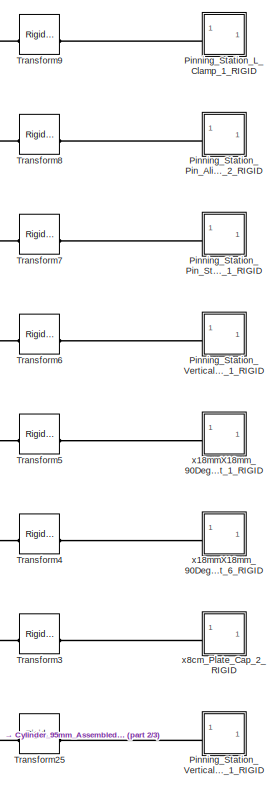
[diagram: Pinning_Station_1_RIGID - part 1/3, top center region]
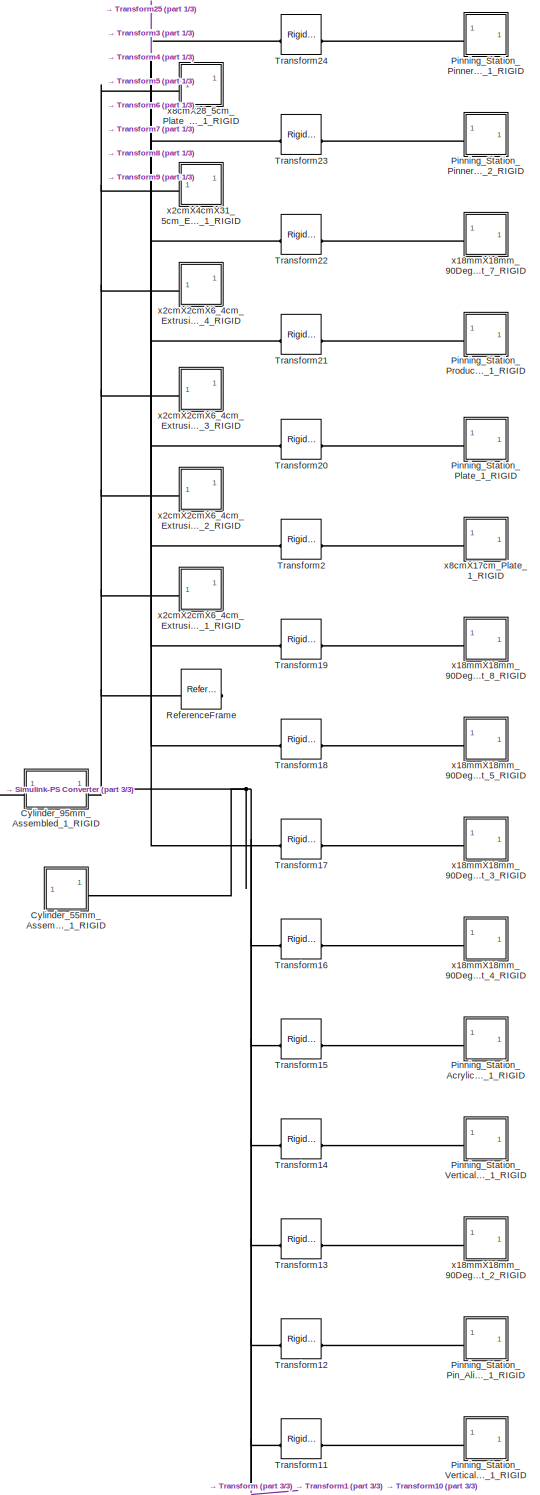
[diagram: Pinning_Station_1_RIGID - part 2/3, central region]
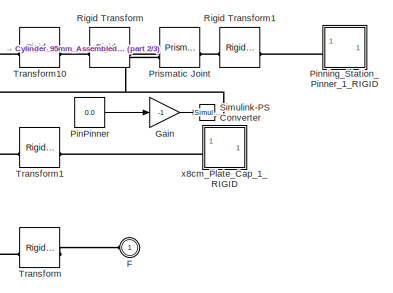
[diagram: Pinning_Station_1_RIGID - part 3/3, bottom right region]
BLOCK [SubSystem] Pinning_Station_1_RIGID
BLOCK [SubSystem] Pinning_Station_1_RIGID/Cylinder_55mm_Assembled_1_RIGID
BLOCK [SubSystem] Pinning_Station_1_RIGID/Cylinder_55mm_Assembled_1_RIGID/Cylinder_Rod_50mm_1_RIGID
BLOCK [PMIOPort] Pinning_Station_1_RIGID/Cylinder_55mm_Assembled_1_RIGID/Cylinder_Rod_50mm_1_RIGID/F
  Side = Left
BLOCK [Reference] Pinning_Station_1_RIGID/Cylinder_55mm_Assembled_1_RIGID/Cylinder_Rod_50mm_1_RIGID/ReferenceFrame  REF=sm_lib/Frames and
Transforms/Reference
Frame
  SourceBlock = sm_lib/Frames and\nTransforms/Reference\nFrame
  SourceType = Reference\nFrame
BLOCK [Reference] Pinning_Station_1_RIGID/Cylinder_55mm_Assembled_1_RIGID/Cylinder_Rod_50mm_1_RIGID/Solid  REF=sm_lib/Body Elements/File Solid
  SourceBlock = sm_lib/Body Elements/File Solid
  SourceType = File Solid
BLOCK [SubSystem] Pinning_Station_1_RIGID/Cylinder_55mm_Assembled_1_RIGID/Cylinder_Rod_Cap_1_RIGID
BLOCK [PMIOPort] Pinning_Station_1_RIGID/Cylinder_55mm_Assembled_1_RIGID/Cylinder_Rod_Cap_1_RIGID/F
  Side = Left
BLOCK [Reference] Pinning_Station_1_RIGID/Cylinder_55mm_Assembled_1_RIGID/Cylinder_Rod_Cap_1_RIGID/ReferenceFrame  REF=sm_lib/Frames and
Transforms/Reference
Frame
  SourceBlock = sm_lib/Frames and\nTransforms/Reference\nFrame
  SourceType = Reference\nFrame
BLOCK [Reference] Pinning_Station_1_RIGID/Cylinder_55mm_Assembled_1_RIGID/Cylinder_Rod_Cap_1_RIGID/Solid  REF=sm_lib/Body Elements/File Solid
  SourceBlock = sm_lib/Body Elements/File Solid
  SourceType = File Solid
BLOCK [PMIOPort] Pinning_Station_1_RIGID/Cylinder_55mm_Assembled_1_RIGID/F
  Side = Right
BLOCK [Gain] Pinning_Station_1_RIGID/Cylinder_55mm_Assembled_1_RIGID/Gain
  Gain = -1
BLOCK [Constant] Pinning_Station_1_RIGID/Cylinder_55mm_Assembled_1_RIGID/PinPusher
  Value = 0.0
BLOCK [Reference] Pinning_Station_1_RIGID/Cylinder_55mm_Assembled_1_RIGID/Prismatic Joint  REF=sm_lib/Joints/Prismatic
Joint
  SourceBlock = sm_lib/Joints/Prismatic\nJoint
  SourceType = Prismatic\nJoint
BLOCK [Reference] Pinning_Station_1_RIGID/Cylinder_55mm_Assembled_1_RIGID/Prismatic Joint1  REF=sm_lib/Joints/Prismatic
Joint
  SourceBlock = sm_lib/Joints/Prismatic\nJoint
  SourceType = Prismatic\nJoint
BLOCK [Reference] Pinning_Station_1_RIGID/Cylinder_55mm_Assembled_1_RIGID/ReferenceFrame  REF=sm_lib/Frames and
Transforms/Reference
Frame
  SourceBlock = sm_lib/Frames and\nTransforms/Reference\nFrame
  SourceType = Reference\nFrame
BLOCK [Reference] Pinning_Station_1_RIGID/Cylinder_55mm_Assembled_1_RIGID/Rigid Transform  REF=sm_lib/Frames and
Transforms/Rigid
Transform
  SourceBlock = sm_lib/Frames and\nTransforms/Rigid\nTransform
  SourceType = Rigid\nTransform
BLOCK [Reference] Pinning_Station_1_RIGID/Cylinder_55mm_Assembled_1_RIGID/Rigid Transform1  REF=sm_lib/Frames and
Transforms/Rigid
Transform
  SourceBlock = sm_lib/Frames and\nTransforms/Rigid\nTransform
  SourceType = Rigid\nTransform
BLOCK [Reference] Pinning_Station_1_RIGID/Cylinder_55mm_Assembled_1_RIGID/Simulink-PS Converter  REF=nesl_utility/Simulink-PS
Converter
  SourceBlock = nesl_utility/Simulink-PS\nConverter
  SourceType = Simulink-PS\nConverter
BLOCK [Reference] Pinning_Station_1_RIGID/Cylinder_55mm_Assembled_1_RIGID/Simulink-PS Converter1  REF=nesl_utility/Simulink-PS
Converter
  SourceBlock = nesl_utility/Simulink-PS\nConverter
  SourceType = Simulink-PS\nConverter
BLOCK [Reference] Pinning_Station_1_RIGID/Cylinder_55mm_Assembled_1_RIGID/Transform  REF=sm_lib/Frames and
Transforms/Rigid
Transform
  SourceBlock = sm_lib/Frames and\nTransforms/Rigid\nTransform
  SourceType = Rigid\nTransform
BLOCK [Reference] Pinning_Station_1_RIGID/Cylinder_55mm_Assembled_1_RIGID/Transform1  REF=sm_lib/Frames and
Transforms/Rigid
Transform
  SourceBlock = sm_lib/Frames and\nTransforms/Rigid\nTransform
  SourceType = Rigid\nTransform
BLOCK [Reference] Pinning_Station_1_RIGID/Cylinder_55mm_Assembled_1_RIGID/Transform2  REF=sm_lib/Frames and
Transforms/Rigid
Transform
  SourceBlock = sm_lib/Frames and\nTransforms/Rigid\nTransform
  SourceType = Rigid\nTransform
BLOCK [Reference] Pinning_Station_1_RIGID/Cylinder_55mm_Assembled_1_RIGID/Transform3  REF=sm_lib/Frames and
Transforms/Rigid
Transform
  SourceBlock = sm_lib/Frames and\nTransforms/Rigid\nTransform
  SourceType = Rigid\nTransform
BLOCK [SubSystem] Pinning_Station_1_RIGID/Cylinder_55mm_Assembled_1_RIGID/x6cm_Cylinder_1_RIGID
BLOCK [PMIOPort] Pinning_Station_1_RIGID/Cylinder_55mm_Assembled_1_RIGID/x6cm_Cylinder_1_RIGID/F
  Side = Left
BLOCK [Reference] Pinning_Station_1_RIGID/Cylinder_55mm_Assembled_1_RIGID/x6cm_Cylinder_1_RIGID/ReferenceFrame  REF=sm_lib/Frames and
Transforms/Reference
Frame
  SourceBlock = sm_lib/Frames and\nTransforms/Reference\nFrame
  SourceType = Reference\nFrame
BLOCK [Reference] Pinning_Station_1_RIGID/Cylinder_55mm_Assembled_1_RIGID/x6cm_Cylinder_1_RIGID/Solid  REF=sm_lib/Body Elements/File Solid
  SourceBlock = sm_lib/Body Elements/File Solid
  SourceType = File Solid
BLOCK [SubSystem] Pinning_Station_1_RIGID/Cylinder_95mm_Assembled_1_RIGID
BLOCK [SubSystem] Pinning_Station_1_RIGID/Cylinder_95mm_Assembled_1_RIGID/Cylinder_Rod_80mm_1_RIGID
BLOCK [PMIOPort] Pinning_Station_1_RIGID/Cylinder_95mm_Assembled_1_RIGID/Cylinder_Rod_80mm_1_RIGID/F
  Side = Left
BLOCK [Reference] Pinning_Station_1_RIGID/Cylinder_95mm_Assembled_1_RIGID/Cylinder_Rod_80mm_1_RIGID/ReferenceFrame  REF=sm_lib/Frames and
Transforms/Reference
Frame
  SourceBlock = sm_lib/Frames and\nTransforms/Reference\nFrame
  SourceType = Reference\nFrame
BLOCK [Reference] Pinning_Station_1_RIGID/Cylinder_95mm_Assembled_1_RIGID/Cylinder_Rod_80mm_1_RIGID/Solid  REF=sm_lib/Body Elements/File Solid
  SourceBlock = sm_lib/Body Elements/File Solid
  SourceType = File Solid
BLOCK [PMIOPort] Pinning_Station_1_RIGID/Cylinder_95mm_Assembled_1_RIGID/F
  Port = 2
  Side = Right
BLOCK [PMIOPort] Pinning_Station_1_RIGID/Cylinder_95mm_Assembled_1_RIGID/PinPinner
  Side = Left
BLOCK [Reference] Pinning_Station_1_RIGID/Cylinder_95mm_Assembled_1_RIGID/Prismatic Joint  REF=sm_lib/Joints/Prismatic
Joint
  SourceBlock = sm_lib/Joints/Prismatic\nJoint
  SourceType = Prismatic\nJoint
BLOCK [Reference] Pinning_Station_1_RIGID/Cylinder_95mm_Assembled_1_RIGID/ReferenceFrame  REF=sm_lib/Frames and
Transforms/Reference
Frame
  SourceBlock = sm_lib/Frames and\nTransforms/Reference\nFrame
  SourceType = Reference\nFrame
BLOCK [Reference] Pinning_Station_1_RIGID/Cylinder_95mm_Assembled_1_RIGID/Rigid Transform  REF=sm_lib/Frames and
Transforms/Rigid
Transform
  SourceBlock = sm_lib/Frames and\nTransforms/Rigid\nTransform
  SourceType = Rigid\nTransform
BLOCK [Reference] Pinning_Station_1_RIGID/Cylinder_95mm_Assembled_1_RIGID/Rigid Transform1  REF=sm_lib/Frames and
Transforms/Rigid
Transform
  SourceBlock = sm_lib/Frames and\nTransforms/Rigid\nTransform
  SourceType = Rigid\nTransform
BLOCK [Reference] Pinning_Station_1_RIGID/Cylinder_95mm_Assembled_1_RIGID/Transform  REF=sm_lib/Frames and
Transforms/Rigid
Transform
  SourceBlock = sm_lib/Frames and\nTransforms/Rigid\nTransform
  SourceType = Rigid\nTransform
BLOCK [Reference] Pinning_Station_1_RIGID/Cylinder_95mm_Assembled_1_RIGID/Transform1  REF=sm_lib/Frames and
Transforms/Rigid
Transform
  SourceBlock = sm_lib/Frames and\nTransforms/Rigid\nTransform
  SourceType = Rigid\nTransform
BLOCK [Reference] Pinning_Station_1_RIGID/Cylinder_95mm_Assembled_1_RIGID/Transform2  REF=sm_lib/Frames and
Transforms/Rigid
Transform
  SourceBlock = sm_lib/Frames and\nTransforms/Rigid\nTransform
  SourceType = Rigid\nTransform
BLOCK [SubSystem] Pinning_Station_1_RIGID/Cylinder_95mm_Assembled_1_RIGID/x8_8cm_Cylinder_1_RIGID
BLOCK [PMIOPort] Pinning_Station_1_RIGID/Cylinder_95mm_Assembled_1_RIGID/x8_8cm_Cylinder_1_RIGID/F
  Side = Left
BLOCK [Reference] Pinning_Station_1_RIGID/Cylinder_95mm_Assembled_1_RIGID/x8_8cm_Cylinder_1_RIGID/ReferenceFrame  REF=sm_lib/Frames and
Transforms/Reference
Frame
  SourceBlock = sm_lib/Frames and\nTransforms/Reference\nFrame
  SourceType = Reference\nFrame
BLOCK [Reference] Pinning_Station_1_RIGID/Cylinder_95mm_Assembled_1_RIGID/x8_8cm_Cylinder_1_RIGID/Solid  REF=sm_lib/Body Elements/File Solid
  SourceBlock = sm_lib/Body Elements/File Solid
  SourceType = File Solid
BLOCK [PMIOPort] Pinning_Station_1_RIGID/F
  Side = Left
BLOCK [Gain] Pinning_Station_1_RIGID/Gain
  Gain = -1
BLOCK [Constant] Pinning_Station_1_RIGID/PinPinner
  Value = 0.0
BLOCK [SubSystem] Pinning_Station_1_RIGID/Pinning_Station_Acrylic_Cover_1_RIGID
BLOCK [PMIOPort] Pinning_Station_1_RIGID/Pinning_Station_Acrylic_Cover_1_RIGID/F
  Side = Left
BLOCK [Reference] Pinning_Station_1_RIGID/Pinning_Station_Acrylic_Cover_1_RIGID/ReferenceFrame  REF=sm_lib/Frames and
Transforms/Reference
Frame
  SourceBlock = sm_lib/Frames and\nTransforms/Reference\nFrame
  SourceType = Reference\nFrame
BLOCK [Reference] Pinning_Station_1_RIGID/Pinning_Station_Acrylic_Cover_1_RIGID/Solid  REF=sm_lib/Body Elements/File Solid
  SourceBlock = sm_lib/Body Elements/File Solid
  SourceType = File Solid
BLOCK [SubSystem] Pinning_Station_1_RIGID/Pinning_Station_L_Clamp_1_RIGID
BLOCK [PMIOPort] Pinning_Station_1_RIGID/Pinning_Station_L_Clamp_1_RIGID/F
  Side = Left
BLOCK [Reference] Pinning_Station_1_RIGID/Pinning_Station_L_Clamp_1_RIGID/ReferenceFrame  REF=sm_lib/Frames and
Transforms/Reference
Frame
  SourceBlock = sm_lib/Frames and\nTransforms/Reference\nFrame
  SourceType = Reference\nFrame
BLOCK [Reference] Pinning_Station_1_RIGID/Pinning_Station_L_Clamp_1_RIGID/Solid  REF=sm_lib/Body Elements/File Solid
  SourceBlock = sm_lib/Body Elements/File Solid
  SourceType = File Solid
BLOCK [SubSystem] Pinning_Station_1_RIGID/Pinning_Station_Pin_Aligner_1_RIGID
BLOCK [PMIOPort] Pinning_Station_1_RIGID/Pinning_Station_Pin_Aligner_1_RIGID/F
  Side = Left
BLOCK [Reference] Pinning_Station_1_RIGID/Pinning_Station_Pin_Aligner_1_RIGID/ReferenceFrame  REF=sm_lib/Frames and
Transforms/Reference
Frame
  SourceBlock = sm_lib/Frames and\nTransforms/Reference\nFrame
  SourceType = Reference\nFrame
BLOCK [Reference] Pinning_Station_1_RIGID/Pinning_Station_Pin_Aligner_1_RIGID/Solid  REF=sm_lib/Body Elements/File Solid
  SourceBlock = sm_lib/Body Elements/File Solid
  SourceType = File Solid
BLOCK [SubSystem] Pinning_Station_1_RIGID/Pinning_Station_Pin_Aligner_2_RIGID
BLOCK [PMIOPort] Pinning_Station_1_RIGID/Pinning_Station_Pin_Aligner_2_RIGID/F
  Side = Left
BLOCK [Reference] Pinning_Station_1_RIGID/Pinning_Station_Pin_Aligner_2_RIGID/ReferenceFrame  REF=sm_lib/Frames and
Transforms/Reference
Frame
  SourceBlock = sm_lib/Frames and\nTransforms/Reference\nFrame
  SourceType = Reference\nFrame
BLOCK [Reference] Pinning_Station_1_RIGID/Pinning_Station_Pin_Aligner_2_RIGID/Solid  REF=sm_lib/Body Elements/File Solid
  SourceBlock = sm_lib/Body Elements/File Solid
  SourceType = File Solid
BLOCK [SubSystem] Pinning_Station_1_RIGID/Pinning_Station_Pin_Storage_1_RIGID
BLOCK [PMIOPort] Pinning_Station_1_RIGID/Pinning_Station_Pin_Storage_1_RIGID/F
  Side = Left
BLOCK [Reference] Pinning_Station_1_RIGID/Pinning_Station_Pin_Storage_1_RIGID/ReferenceFrame  REF=sm_lib/Frames and
Transforms/Reference
Frame
  SourceBlock = sm_lib/Frames and\nTransforms/Reference\nFrame
  SourceType = Reference\nFrame
BLOCK [Reference] Pinning_Station_1_RIGID/Pinning_Station_Pin_Storage_1_RIGID/Solid  REF=sm_lib/Body Elements/File Solid
  SourceBlock = sm_lib/Body Elements/File Solid
  SourceType = File Solid
BLOCK [SubSystem] Pinning_Station_1_RIGID/Pinning_Station_Pinner_1_RIGID
BLOCK [PMIOPort] Pinning_Station_1_RIGID/Pinning_Station_Pinner_1_RIGID/F
  Side = Left
BLOCK [Reference] Pinning_Station_1_RIGID/Pinning_Station_Pinner_1_RIGID/ReferenceFrame  REF=sm_lib/Frames and
Transforms/Reference
Frame
  SourceBlock = sm_lib/Frames and\nTransforms/Reference\nFrame
  SourceType = Reference\nFrame
BLOCK [Reference] Pinning_Station_1_RIGID/Pinning_Station_Pinner_1_RIGID/Solid  REF=sm_lib/Body Elements/File Solid
  SourceBlock = sm_lib/Body Elements/File Solid
  SourceType = File Solid
BLOCK [SubSystem] Pinning_Station_1_RIGID/Pinning_Station_Pinner_Rod_1_RIGID
BLOCK [PMIOPort] Pinning_Station_1_RIGID/Pinning_Station_Pinner_Rod_1_RIGID/F
  Side = Left
BLOCK [Reference] Pinning_Station_1_RIGID/Pinning_Station_Pinner_Rod_1_RIGID/ReferenceFrame  REF=sm_lib/Frames and
Transforms/Reference
Frame
  SourceBlock = sm_lib/Frames and\nTransforms/Reference\nFrame
  SourceType = Reference\nFrame
BLOCK [Reference] Pinning_Station_1_RIGID/Pinning_Station_Pinner_Rod_1_RIGID/Solid  REF=sm_lib/Body Elements/File Solid
  SourceBlock = sm_lib/Body Elements/File Solid
  SourceType = File Solid
BLOCK [SubSystem] Pinning_Station_1_RIGID/Pinning_Station_Pinner_Rod_2_RIGID
BLOCK [PMIOPort] Pinning_Station_1_RIGID/Pinning_Station_Pinner_Rod_2_RIGID/F
  Side = Left
BLOCK [Reference] Pinning_Station_1_RIGID/Pinning_Station_Pinner_Rod_2_RIGID/ReferenceFrame  REF=sm_lib/Frames and
Transforms/Reference
Frame
  SourceBlock = sm_lib/Frames and\nTransforms/Reference\nFrame
  SourceType = Reference\nFrame
BLOCK [Reference] Pinning_Station_1_RIGID/Pinning_Station_Pinner_Rod_2_RIGID/Solid  REF=sm_lib/Body Elements/File Solid
  SourceBlock = sm_lib/Body Elements/File Solid
  SourceType = File Solid
BLOCK [SubSystem] Pinning_Station_1_RIGID/Pinning_Station_Plate_1_RIGID
BLOCK [PMIOPort] Pinning_Station_1_RIGID/Pinning_Station_Plate_1_RIGID/F
  Side = Left
BLOCK [Reference] Pinning_Station_1_RIGID/Pinning_Station_Plate_1_RIGID/ReferenceFrame  REF=sm_lib/Frames and
Transforms/Reference
Frame
  SourceBlock = sm_lib/Frames and\nTransforms/Reference\nFrame
  SourceType = Reference\nFrame
BLOCK [Reference] Pinning_Station_1_RIGID/Pinning_Station_Plate_1_RIGID/Solid  REF=sm_lib/Body Elements/File Solid
  SourceBlock = sm_lib/Body Elements/File Solid
  SourceType = File Solid
BLOCK [SubSystem] Pinning_Station_1_RIGID/Pinning_Station_Product_Holder_1_RIGID
BLOCK [PMIOPort] Pinning_Station_1_RIGID/Pinning_Station_Product_Holder_1_RIGID/F
  Side = Left
BLOCK [Reference] Pinning_Station_1_RIGID/Pinning_Station_Product_Holder_1_RIGID/ReferenceFrame  REF=sm_lib/Frames and
Transforms/Reference
Frame
  SourceBlock = sm_lib/Frames and\nTransforms/Reference\nFrame
  SourceType = Reference\nFrame
BLOCK [Reference] Pinning_Station_1_RIGID/Pinning_Station_Product_Holder_1_RIGID/Solid  REF=sm_lib/Body Elements/File Solid
  SourceBlock = sm_lib/Body Elements/File Solid
  SourceType = File Solid
BLOCK [SubSystem] Pinning_Station_1_RIGID/Pinning_Station_Vertical_Plate_1_RIGID
BLOCK [PMIOPort] Pinning_Station_1_RIGID/Pinning_Station_Vertical_Plate_1_RIGID/F
  Side = Left
BLOCK [Reference] Pinning_Station_1_RIGID/Pinning_Station_Vertical_Plate_1_RIGID/ReferenceFrame  REF=sm_lib/Frames and
Transforms/Reference
Frame
  SourceBlock = sm_lib/Frames and\nTransforms/Reference\nFrame
  SourceType = Reference\nFrame
BLOCK [Reference] Pinning_Station_1_RIGID/Pinning_Station_Vertical_Plate_1_RIGID/Solid  REF=sm_lib/Body Elements/File Solid
  SourceBlock = sm_lib/Body Elements/File Solid
  SourceType = File Solid
BLOCK [SubSystem] Pinning_Station_1_RIGID/Pinning_Station_Vertical_Plate_Pin_1_RIGID
BLOCK [PMIOPort] Pinning_Station_1_RIGID/Pinning_Station_Vertical_Plate_Pin_1_RIGID/F
  Side = Left
BLOCK [Reference] Pinning_Station_1_RIGID/Pinning_Station_Vertical_Plate_Pin_1_RIGID/ReferenceFrame  REF=sm_lib/Frames and
Transforms/Reference
Frame
  SourceBlock = sm_lib/Frames and\nTransforms/Reference\nFrame
  SourceType = Reference\nFrame
BLOCK [Reference] Pinning_Station_1_RIGID/Pinning_Station_Vertical_Plate_Pin_1_RIGID/Solid  REF=sm_lib/Body Elements/File Solid
  SourceBlock = sm_lib/Body Elements/File Solid
  SourceType = File Solid
BLOCK [SubSystem] Pinning_Station_1_RIGID/Pinning_Station_Vertical_Side_Plate2_1_RIGID
BLOCK [PMIOPort] Pinning_Station_1_RIGID/Pinning_Station_Vertical_Side_Plate2_1_RIGID/F
  Side = Left
BLOCK [Reference] Pinning_Station_1_RIGID/Pinning_Station_Vertical_Side_Plate2_1_RIGID/ReferenceFrame  REF=sm_lib/Frames and
Transforms/Reference
Frame
  SourceBlock = sm_lib/Frames and\nTransforms/Reference\nFrame
  SourceType = Reference\nFrame
BLOCK [Reference] Pinning_Station_1_RIGID/Pinning_Station_Vertical_Side_Plate2_1_RIGID/Solid  REF=sm_lib/Body Elements/File Solid
  SourceBlock = sm_lib/Body Elements/File Solid
  SourceType = File Solid
BLOCK [SubSystem] Pinning_Station_1_RIGID/Pinning_Station_Vertical_Side_Plate_1_RIGID
BLOCK [PMIOPort] Pinning_Station_1_RIGID/Pinning_Station_Vertical_Side_Plate_1_RIGID/F
  Side = Left
BLOCK [Reference] Pinning_Station_1_RIGID/Pinning_Station_Vertical_Side_Plate_1_RIGID/ReferenceFrame  REF=sm_lib/Frames and
Transforms/Reference
Frame
  SourceBlock = sm_lib/Frames and\nTransforms/Reference\nFrame
  SourceType = Reference\nFrame
BLOCK [Reference] Pinning_Station_1_RIGID/Pinning_Station_Vertical_Side_Plate_1_RIGID/Solid  REF=sm_lib/Body Elements/File Solid
  SourceBlock = sm_lib/Body Elements/File Solid
  SourceType = File Solid
BLOCK [Reference] Pinning_Station_1_RIGID/Prismatic Joint  REF=sm_lib/Joints/Prismatic
Joint
  SourceBlock = sm_lib/Joints/Prismatic\nJoint
  SourceType = Prismatic\nJoint
BLOCK [Reference] Pinning_Station_1_RIGID/ReferenceFrame  REF=sm_lib/Frames and
Transforms/Reference
Frame
  SourceBlock = sm_lib/Frames and\nTransforms/Reference\nFrame
  SourceType = Reference\nFrame
BLOCK [Reference] Pinning_Station_1_RIGID/Rigid Transform  REF=sm_lib/Frames and
Transforms/Rigid
Transform
  SourceBlock = sm_lib/Frames and\nTransforms/Rigid\nTransform
  SourceType = Rigid\nTransform
BLOCK [Reference] Pinning_Station_1_RIGID/Rigid Transform1  REF=sm_lib/Frames and
Transforms/Rigid
Transform
  SourceBlock = sm_lib/Frames and\nTransforms/Rigid\nTransform
  SourceType = Rigid\nTransform
BLOCK [Reference] Pinning_Station_1_RIGID/Simulink-PS Converter  REF=nesl_utility/Simulink-PS
Converter
  SourceBlock = nesl_utility/Simulink-PS\nConverter
  SourceType = Simulink-PS\nConverter
BLOCK [Reference] Pinning_Station_1_RIGID/Transform  REF=sm_lib/Frames and
Transforms/Rigid
Transform
  SourceBlock = sm_lib/Frames and\nTransforms/Rigid\nTransform
  SourceType = Rigid\nTransform
BLOCK [Reference] Pinning_Station_1_RIGID/Transform1  REF=sm_lib/Frames and
Transforms/Rigid
Transform
  SourceBlock = sm_lib/Frames and\nTransforms/Rigid\nTransform
  SourceType = Rigid\nTransform
BLOCK [Reference] Pinning_Station_1_RIGID/Transform10  REF=sm_lib/Frames and
Transforms/Rigid
Transform
  SourceBlock = sm_lib/Frames and\nTransforms/Rigid\nTransform
  SourceType = Rigid\nTransform
BLOCK [Reference] Pinning_Station_1_RIGID/Transform11  REF=sm_lib/Frames and
Transforms/Rigid
Transform
  SourceBlock = sm_lib/Frames and\nTransforms/Rigid\nTransform
  SourceType = Rigid\nTransform
BLOCK [Reference] Pinning_Station_1_RIGID/Transform12  REF=sm_lib/Frames and
Transforms/Rigid
Transform
  SourceBlock = sm_lib/Frames and\nTransforms/Rigid\nTransform
  SourceType = Rigid\nTransform
BLOCK [Reference] Pinning_Station_1_RIGID/Transform13  REF=sm_lib/Frames and
Transforms/Rigid
Transform
  SourceBlock = sm_lib/Frames and\nTransforms/Rigid\nTransform
  SourceType = Rigid\nTransform
BLOCK [Reference] Pinning_Station_1_RIGID/Transform14  REF=sm_lib/Frames and
Transforms/Rigid
Transform
  SourceBlock = sm_lib/Frames and\nTransforms/Rigid\nTransform
  SourceType = Rigid\nTransform
BLOCK [Reference] Pinning_Station_1_RIGID/Transform15  REF=sm_lib/Frames and
Transforms/Rigid
Transform
  SourceBlock = sm_lib/Frames and\nTransforms/Rigid\nTransform
  SourceType = Rigid\nTransform
BLOCK [Reference] Pinning_Station_1_RIGID/Transform16  REF=sm_lib/Frames and
Transforms/Rigid
Transform
  SourceBlock = sm_lib/Frames and\nTransforms/Rigid\nTransform
  SourceType = Rigid\nTransform
BLOCK [Reference] Pinning_Station_1_RIGID/Transform17  REF=sm_lib/Frames and
Transforms/Rigid
Transform
  SourceBlock = sm_lib/Frames and\nTransforms/Rigid\nTransform
  SourceType = Rigid\nTransform
BLOCK [Reference] Pinning_Station_1_RIGID/Transform18  REF=sm_lib/Frames and
Transforms/Rigid
Transform
  SourceBlock = sm_lib/Frames and\nTransforms/Rigid\nTransform
  SourceType = Rigid\nTransform
BLOCK [Reference] Pinning_Station_1_RIGID/Transform19  REF=sm_lib/Frames and
Transforms/Rigid
Transform
  SourceBlock = sm_lib/Frames and\nTransforms/Rigid\nTransform
  SourceType = Rigid\nTransform
BLOCK [Reference] Pinning_Station_1_RIGID/Transform2  REF=sm_lib/Frames and
Transforms/Rigid
Transform
  SourceBlock = sm_lib/Frames and\nTransforms/Rigid\nTransform
  SourceType = Rigid\nTransform
BLOCK [Reference] Pinning_Station_1_RIGID/Transform20  REF=sm_lib/Frames and
Transforms/Rigid
Transform
  SourceBlock = sm_lib/Frames and\nTransforms/Rigid\nTransform
  SourceType = Rigid\nTransform
BLOCK [Reference] Pinning_Station_1_RIGID/Transform21  REF=sm_lib/Frames and
Transforms/Rigid
Transform
  SourceBlock = sm_lib/Frames and\nTransforms/Rigid\nTransform
  SourceType = Rigid\nTransform
BLOCK [Reference] Pinning_Station_1_RIGID/Transform22  REF=sm_lib/Frames and
Transforms/Rigid
Transform
  SourceBlock = sm_lib/Frames and\nTransforms/Rigid\nTransform
  SourceType = Rigid\nTransform
BLOCK [Reference] Pinning_Station_1_RIGID/Transform23  REF=sm_lib/Frames and
Transforms/Rigid
Transform
  SourceBlock = sm_lib/Frames and\nTransforms/Rigid\nTransform
  SourceType = Rigid\nTransform
BLOCK [Reference] Pinning_Station_1_RIGID/Transform24  REF=sm_lib/Frames and
Transforms/Rigid
Transform
  SourceBlock = sm_lib/Frames and\nTransforms/Rigid\nTransform
  SourceType = Rigid\nTransform
BLOCK [Reference] Pinning_Station_1_RIGID/Transform25  REF=sm_lib/Frames and
Transforms/Rigid
Transform
  SourceBlock = sm_lib/Frames and\nTransforms/Rigid\nTransform
  SourceType = Rigid\nTransform
BLOCK [Reference] Pinning_Station_1_RIGID/Transform3  REF=sm_lib/Frames and
Transforms/Rigid
Transform
  SourceBlock = sm_lib/Frames and\nTransforms/Rigid\nTransform
  SourceType = Rigid\nTransform
BLOCK [Reference] Pinning_Station_1_RIGID/Transform4  REF=sm_lib/Frames and
Transforms/Rigid
Transform
  SourceBlock = sm_lib/Frames and\nTransforms/Rigid\nTransform
  SourceType = Rigid\nTransform
BLOCK [Reference] Pinning_Station_1_RIGID/Transform5  REF=sm_lib/Frames and
Transforms/Rigid
Transform
  SourceBlock = sm_lib/Frames and\nTransforms/Rigid\nTransform
  SourceType = Rigid\nTransform
BLOCK [Reference] Pinning_Station_1_RIGID/Transform6  REF=sm_lib/Frames and
Transforms/Rigid
Transform
  SourceBlock = sm_lib/Frames and\nTransforms/Rigid\nTransform
  SourceType = Rigid\nTransform
BLOCK [Reference] Pinning_Station_1_RIGID/Transform7  REF=sm_lib/Frames and
Transforms/Rigid
Transform
  SourceBlock = sm_lib/Frames and\nTransforms/Rigid\nTransform
  SourceType = Rigid\nTransform
BLOCK [Reference] Pinning_Station_1_RIGID/Transform8  REF=sm_lib/Frames and
Transforms/Rigid
Transform
  SourceBlock = sm_lib/Frames and\nTransforms/Rigid\nTransform
  SourceType = Rigid\nTransform
BLOCK [Reference] Pinning_Station_1_RIGID/Transform9  REF=sm_lib/Frames and
Transforms/Rigid
Transform
  SourceBlock = sm_lib/Frames and\nTransforms/Rigid\nTransform
  SourceType = Rigid\nTransform
BLOCK [SubSystem] Pinning_Station_1_RIGID/x18mmX18mm_90Deg_Joint_1_RIGID
BLOCK [PMIOPort] Pinning_Station_1_RIGID/x18mmX18mm_90Deg_Joint_1_RIGID/F
  Side = Left
BLOCK [Reference] Pinning_Station_1_RIGID/x18mmX18mm_90Deg_Joint_1_RIGID/ReferenceFrame  REF=sm_lib/Frames and
Transforms/Reference
Frame
  SourceBlock = sm_lib/Frames and\nTransforms/Reference\nFrame
  SourceType = Reference\nFrame
BLOCK [Reference] Pinning_Station_1_RIGID/x18mmX18mm_90Deg_Joint_1_RIGID/Solid  REF=sm_lib/Body Elements/File Solid
  SourceBlock = sm_lib/Body Elements/File Solid
  SourceType = File Solid
BLOCK [SubSystem] Pinning_Station_1_RIGID/x18mmX18mm_90Deg_Joint_2_RIGID
BLOCK [PMIOPort] Pinning_Station_1_RIGID/x18mmX18mm_90Deg_Joint_2_RIGID/F
  Side = Left
BLOCK [Reference] Pinning_Station_1_RIGID/x18mmX18mm_90Deg_Joint_2_RIGID/ReferenceFrame  REF=sm_lib/Frames and
Transforms/Reference
Frame
  SourceBlock = sm_lib/Frames and\nTransforms/Reference\nFrame
  SourceType = Reference\nFrame
BLOCK [Reference] Pinning_Station_1_RIGID/x18mmX18mm_90Deg_Joint_2_RIGID/Solid  REF=sm_lib/Body Elements/File Solid
  SourceBlock = sm_lib/Body Elements/File Solid
  SourceType = File Solid
BLOCK [SubSystem] Pinning_Station_1_RIGID/x18mmX18mm_90Deg_Joint_3_RIGID
BLOCK [PMIOPort] Pinning_Station_1_RIGID/x18mmX18mm_90Deg_Joint_3_RIGID/F
  Side = Left
BLOCK [Reference] Pinning_Station_1_RIGID/x18mmX18mm_90Deg_Joint_3_RIGID/ReferenceFrame  REF=sm_lib/Frames and
Transforms/Reference
Frame
  SourceBlock = sm_lib/Frames and\nTransforms/Reference\nFrame
  SourceType = Reference\nFrame
BLOCK [Reference] Pinning_Station_1_RIGID/x18mmX18mm_90Deg_Joint_3_RIGID/Solid  REF=sm_lib/Body Elements/File Solid
  SourceBlock = sm_lib/Body Elements/File Solid
  SourceType = File Solid
BLOCK [SubSystem] Pinning_Station_1_RIGID/x18mmX18mm_90Deg_Joint_4_RIGID
BLOCK [PMIOPort] Pinning_Station_1_RIGID/x18mmX18mm_90Deg_Joint_4_RIGID/F
  Side = Left
BLOCK [Reference] Pinning_Station_1_RIGID/x18mmX18mm_90Deg_Joint_4_RIGID/ReferenceFrame  REF=sm_lib/Frames and
Transforms/Reference
Frame
  SourceBlock = sm_lib/Frames and\nTransforms/Reference\nFrame
  SourceType = Reference\nFrame
BLOCK [Reference] Pinning_Station_1_RIGID/x18mmX18mm_90Deg_Joint_4_RIGID/Solid  REF=sm_lib/Body Elements/File Solid
  SourceBlock = sm_lib/Body Elements/File Solid
  SourceType = File Solid
BLOCK [SubSystem] Pinning_Station_1_RIGID/x18mmX18mm_90Deg_Joint_5_RIGID
BLOCK [PMIOPort] Pinning_Station_1_RIGID/x18mmX18mm_90Deg_Joint_5_RIGID/F
  Side = Left
BLOCK [Reference] Pinning_Station_1_RIGID/x18mmX18mm_90Deg_Joint_5_RIGID/ReferenceFrame  REF=sm_lib/Frames and
Transforms/Reference
Frame
  SourceBlock = sm_lib/Frames and\nTransforms/Reference\nFrame
  SourceType = Reference\nFrame
BLOCK [Reference] Pinning_Station_1_RIGID/x18mmX18mm_90Deg_Joint_5_RIGID/Solid  REF=sm_lib/Body Elements/File Solid
  SourceBlock = sm_lib/Body Elements/File Solid
  SourceType = File Solid
BLOCK [SubSystem] Pinning_Station_1_RIGID/x18mmX18mm_90Deg_Joint_6_RIGID
BLOCK [PMIOPort] Pinning_Station_1_RIGID/x18mmX18mm_90Deg_Joint_6_RIGID/F
  Side = Left
BLOCK [Reference] Pinning_Station_1_RIGID/x18mmX18mm_90Deg_Joint_6_RIGID/ReferenceFrame  REF=sm_lib/Frames and
Transforms/Reference
Frame
  SourceBlock = sm_lib/Frames and\nTransforms/Reference\nFrame
  SourceType = Reference\nFrame
BLOCK [Reference] Pinning_Station_1_RIGID/x18mmX18mm_90Deg_Joint_6_RIGID/Solid  REF=sm_lib/Body Elements/File Solid
  SourceBlock = sm_lib/Body Elements/File Solid
  SourceType = File Solid
BLOCK [SubSystem] Pinning_Station_1_RIGID/x18mmX18mm_90Deg_Joint_7_RIGID
BLOCK [PMIOPort] Pinning_Station_1_RIGID/x18mmX18mm_90Deg_Joint_7_RIGID/F
  Side = Left
BLOCK [Reference] Pinning_Station_1_RIGID/x18mmX18mm_90Deg_Joint_7_RIGID/ReferenceFrame  REF=sm_lib/Frames and
Transforms/Reference
Frame
  SourceBlock = sm_lib/Frames and\nTransforms/Reference\nFrame
  SourceType = Reference\nFrame
BLOCK [Reference] Pinning_Station_1_RIGID/x18mmX18mm_90Deg_Joint_7_RIGID/Solid  REF=sm_lib/Body Elements/File Solid
  SourceBlock = sm_lib/Body Elements/File Solid
  SourceType = File Solid
BLOCK [SubSystem] Pinning_Station_1_RIGID/x18mmX18mm_90Deg_Joint_8_RIGID
BLOCK [PMIOPort] Pinning_Station_1_RIGID/x18mmX18mm_90Deg_Joint_8_RIGID/F
  Side = Left
BLOCK [Reference] Pinning_Station_1_RIGID/x18mmX18mm_90Deg_Joint_8_RIGID/ReferenceFrame  REF=sm_lib/Frames and
Transforms/Reference
Frame
  SourceBlock = sm_lib/Frames and\nTransforms/Reference\nFrame
  SourceType = Reference\nFrame
BLOCK [Reference] Pinning_Station_1_RIGID/x18mmX18mm_90Deg_Joint_8_RIGID/Solid  REF=sm_lib/Body Elements/File Solid
  SourceBlock = sm_lib/Body Elements/File Solid
  SourceType = File Solid
BLOCK [SubSystem] Pinning_Station_1_RIGID/x2cmX2cmX6_4cm_Extrusion_with_Cap_1_RIGID
BLOCK [PMIOPort] Pinning_Station_1_RIGID/x2cmX2cmX6_4cm_Extrusion_with_Cap_1_RIGID/F
  Side = Right
BLOCK [Reference] Pinning_Station_1_RIGID/x2cmX2cmX6_4cm_Extrusion_with_Cap_1_RIGID/ReferenceFrame  REF=sm_lib/Frames and
Transforms/Reference
Frame
  SourceBlock = sm_lib/Frames and\nTransforms/Reference\nFrame
  SourceType = Reference\nFrame
BLOCK [Reference] Pinning_Station_1_RIGID/x2cmX2cmX6_4cm_Extrusion_with_Cap_1_RIGID/Transform  REF=sm_lib/Frames and
Transforms/Rigid
Transform
  SourceBlock = sm_lib/Frames and\nTransforms/Rigid\nTransform
  SourceType = Rigid\nTransform
BLOCK [Reference] Pinning_Station_1_RIGID/x2cmX2cmX6_4cm_Extrusion_with_Cap_1_RIGID/Transform1  REF=sm_lib/Frames and
Transforms/Rigid
Transform
  SourceBlock = sm_lib/Frames and\nTransforms/Rigid\nTransform
  SourceType = Rigid\nTransform
BLOCK [Reference] Pinning_Station_1_RIGID/x2cmX2cmX6_4cm_Extrusion_with_Cap_1_RIGID/Transform2  REF=sm_lib/Frames and
Transforms/Rigid
Transform
  SourceBlock = sm_lib/Frames and\nTransforms/Rigid\nTransform
  SourceType = Rigid\nTransform
BLOCK [SubSystem] Pinning_Station_1_RIGID/x2cmX2cmX6_4cm_Extrusion_with_Cap_1_RIGID/x2cmX2cmX6_4cm_Extrusion2_1_RIGID
BLOCK [PMIOPort] Pinning_Station_1_RIGID/x2cmX2cmX6_4cm_Extrusion_with_Cap_1_RIGID/x2cmX2cmX6_4cm_Extrusion2_1_RIGID/F
  Side = Left
BLOCK [Reference] Pinning_Station_1_RIGID/x2cmX2cmX6_4cm_Extrusion_with_Cap_1_RIGID/x2cmX2cmX6_4cm_Extrusion2_1_RIGID/ReferenceFrame  REF=sm_lib/Frames and
Transforms/Reference
Frame
  SourceBlock = sm_lib/Frames and\nTransforms/Reference\nFrame
  SourceType = Reference\nFrame
BLOCK [Reference] Pinning_Station_1_RIGID/x2cmX2cmX6_4cm_Extrusion_with_Cap_1_RIGID/x2cmX2cmX6_4cm_Extrusion2_1_RIGID/Solid  REF=sm_lib/Body Elements/File Solid
  SourceBlock = sm_lib/Body Elements/File Solid
  SourceType = File Solid
BLOCK [SubSystem] Pinning_Station_1_RIGID/x2cmX2cmX6_4cm_Extrusion_with_Cap_1_RIGID/x2cmX2cm_Cap2_1_RIGID
BLOCK [PMIOPort] Pinning_Station_1_RIGID/x2cmX2cmX6_4cm_Extrusion_with_Cap_1_RIGID/x2cmX2cm_Cap2_1_RIGID/F
  Side = Left
BLOCK [Reference] Pinning_Station_1_RIGID/x2cmX2cmX6_4cm_Extrusion_with_Cap_1_RIGID/x2cmX2cm_Cap2_1_RIGID/ReferenceFrame  REF=sm_lib/Frames and
Transforms/Reference
Frame
  SourceBlock = sm_lib/Frames and\nTransforms/Reference\nFrame
  SourceType = Reference\nFrame
BLOCK [Reference] Pinning_Station_1_RIGID/x2cmX2cmX6_4cm_Extrusion_with_Cap_1_RIGID/x2cmX2cm_Cap2_1_RIGID/Solid  REF=sm_lib/Body Elements/File Solid
  SourceBlock = sm_lib/Body Elements/File Solid
  SourceType = File Solid
BLOCK [SubSystem] Pinning_Station_1_RIGID/x2cmX2cmX6_4cm_Extrusion_with_Cap_2_RIGID
BLOCK [PMIOPort] Pinning_Station_1_RIGID/x2cmX2cmX6_4cm_Extrusion_with_Cap_2_RIGID/F
  Side = Right
BLOCK [Reference] Pinning_Station_1_RIGID/x2cmX2cmX6_4cm_Extrusion_with_Cap_2_RIGID/ReferenceFrame  REF=sm_lib/Frames and
Transforms/Reference
Frame
  SourceBlock = sm_lib/Frames and\nTransforms/Reference\nFrame
  SourceType = Reference\nFrame
BLOCK [Reference] Pinning_Station_1_RIGID/x2cmX2cmX6_4cm_Extrusion_with_Cap_2_RIGID/Transform  REF=sm_lib/Frames and
Transforms/Rigid
Transform
  SourceBlock = sm_lib/Frames and\nTransforms/Rigid\nTransform
  SourceType = Rigid\nTransform
BLOCK [Reference] Pinning_Station_1_RIGID/x2cmX2cmX6_4cm_Extrusion_with_Cap_2_RIGID/Transform1  REF=sm_lib/Frames and
Transforms/Rigid
Transform
  SourceBlock = sm_lib/Frames and\nTransforms/Rigid\nTransform
  SourceType = Rigid\nTransform
BLOCK [Reference] Pinning_Station_1_RIGID/x2cmX2cmX6_4cm_Extrusion_with_Cap_2_RIGID/Transform2  REF=sm_lib/Frames and
Transforms/Rigid
Transform
  SourceBlock = sm_lib/Frames and\nTransforms/Rigid\nTransform
  SourceType = Rigid\nTransform
BLOCK [SubSystem] Pinning_Station_1_RIGID/x2cmX2cmX6_4cm_Extrusion_with_Cap_2_RIGID/x2cmX2cmX6_4cm_Extrusion2_1_RIGID
BLOCK [PMIOPort] Pinning_Station_1_RIGID/x2cmX2cmX6_4cm_Extrusion_with_Cap_2_RIGID/x2cmX2cmX6_4cm_Extrusion2_1_RIGID/F
  Side = Left
BLOCK [Reference] Pinning_Station_1_RIGID/x2cmX2cmX6_4cm_Extrusion_with_Cap_2_RIGID/x2cmX2cmX6_4cm_Extrusion2_1_RIGID/ReferenceFrame  REF=sm_lib/Frames and
Transforms/Reference
Frame
  SourceBlock = sm_lib/Frames and\nTransforms/Reference\nFrame
  SourceType = Reference\nFrame
BLOCK [Reference] Pinning_Station_1_RIGID/x2cmX2cmX6_4cm_Extrusion_with_Cap_2_RIGID/x2cmX2cmX6_4cm_Extrusion2_1_RIGID/Solid  REF=sm_lib/Body Elements/File Solid
  SourceBlock = sm_lib/Body Elements/File Solid
  SourceType = File Solid
BLOCK [SubSystem] Pinning_Station_1_RIGID/x2cmX2cmX6_4cm_Extrusion_with_Cap_2_RIGID/x2cmX2cm_Cap2_1_RIGID
BLOCK [PMIOPort] Pinning_Station_1_RIGID/x2cmX2cmX6_4cm_Extrusion_with_Cap_2_RIGID/x2cmX2cm_Cap2_1_RIGID/F
  Side = Left
BLOCK [Reference] Pinning_Station_1_RIGID/x2cmX2cmX6_4cm_Extrusion_with_Cap_2_RIGID/x2cmX2cm_Cap2_1_RIGID/ReferenceFrame  REF=sm_lib/Frames and
Transforms/Reference
Frame
  SourceBlock = sm_lib/Frames and\nTransforms/Reference\nFrame
  SourceType = Reference\nFrame
BLOCK [Reference] Pinning_Station_1_RIGID/x2cmX2cmX6_4cm_Extrusion_with_Cap_2_RIGID/x2cmX2cm_Cap2_1_RIGID/Solid  REF=sm_lib/Body Elements/File Solid
  SourceBlock = sm_lib/Body Elements/File Solid
  SourceType = File Solid
BLOCK [SubSystem] Pinning_Station_1_RIGID/x2cmX2cmX6_4cm_Extrusion_with_Cap_3_RIGID
BLOCK [PMIOPort] Pinning_Station_1_RIGID/x2cmX2cmX6_4cm_Extrusion_with_Cap_3_RIGID/F
  Side = Right
BLOCK [Reference] Pinning_Station_1_RIGID/x2cmX2cmX6_4cm_Extrusion_with_Cap_3_RIGID/ReferenceFrame  REF=sm_lib/Frames and
Transforms/Reference
Frame
  SourceBlock = sm_lib/Frames and\nTransforms/Reference\nFrame
  SourceType = Reference\nFrame
BLOCK [Reference] Pinning_Station_1_RIGID/x2cmX2cmX6_4cm_Extrusion_with_Cap_3_RIGID/Transform  REF=sm_lib/Frames and
Transforms/Rigid
Transform
  SourceBlock = sm_lib/Frames and\nTransforms/Rigid\nTransform
  SourceType = Rigid\nTransform
BLOCK [Reference] Pinning_Station_1_RIGID/x2cmX2cmX6_4cm_Extrusion_with_Cap_3_RIGID/Transform1  REF=sm_lib/Frames and
Transforms/Rigid
Transform
  SourceBlock = sm_lib/Frames and\nTransforms/Rigid\nTransform
  SourceType = Rigid\nTransform
BLOCK [Reference] Pinning_Station_1_RIGID/x2cmX2cmX6_4cm_Extrusion_with_Cap_3_RIGID/Transform2  REF=sm_lib/Frames and
Transforms/Rigid
Transform
  SourceBlock = sm_lib/Frames and\nTransforms/Rigid\nTransform
  SourceType = Rigid\nTransform
BLOCK [SubSystem] Pinning_Station_1_RIGID/x2cmX2cmX6_4cm_Extrusion_with_Cap_3_RIGID/x2cmX2cmX6_4cm_Extrusion2_1_RIGID
BLOCK [PMIOPort] Pinning_Station_1_RIGID/x2cmX2cmX6_4cm_Extrusion_with_Cap_3_RIGID/x2cmX2cmX6_4cm_Extrusion2_1_RIGID/F
  Side = Left
BLOCK [Reference] Pinning_Station_1_RIGID/x2cmX2cmX6_4cm_Extrusion_with_Cap_3_RIGID/x2cmX2cmX6_4cm_Extrusion2_1_RIGID/ReferenceFrame  REF=sm_lib/Frames and
Transforms/Reference
Frame
  SourceBlock = sm_lib/Frames and\nTransforms/Reference\nFrame
  SourceType = Reference\nFrame
BLOCK [Reference] Pinning_Station_1_RIGID/x2cmX2cmX6_4cm_Extrusion_with_Cap_3_RIGID/x2cmX2cmX6_4cm_Extrusion2_1_RIGID/Solid  REF=sm_lib/Body Elements/File Solid
  SourceBlock = sm_lib/Body Elements/File Solid
  SourceType = File Solid
BLOCK [SubSystem] Pinning_Station_1_RIGID/x2cmX2cmX6_4cm_Extrusion_with_Cap_3_RIGID/x2cmX2cm_Cap2_1_RIGID
BLOCK [PMIOPort] Pinning_Station_1_RIGID/x2cmX2cmX6_4cm_Extrusion_with_Cap_3_RIGID/x2cmX2cm_Cap2_1_RIGID/F
  Side = Left
BLOCK [Reference] Pinning_Station_1_RIGID/x2cmX2cmX6_4cm_Extrusion_with_Cap_3_RIGID/x2cmX2cm_Cap2_1_RIGID/ReferenceFrame  REF=sm_lib/Frames and
Transforms/Reference
Frame
  SourceBlock = sm_lib/Frames and\nTransforms/Reference\nFrame
  SourceType = Reference\nFrame
BLOCK [Reference] Pinning_Station_1_RIGID/x2cmX2cmX6_4cm_Extrusion_with_Cap_3_RIGID/x2cmX2cm_Cap2_1_RIGID/Solid  REF=sm_lib/Body Elements/File Solid
  SourceBlock = sm_lib/Body Elements/File Solid
  SourceType = File Solid
BLOCK [SubSystem] Pinning_Station_1_RIGID/x2cmX2cmX6_4cm_Extrusion_with_Cap_4_RIGID
BLOCK [PMIOPort] Pinning_Station_1_RIGID/x2cmX2cmX6_4cm_Extrusion_with_Cap_4_RIGID/F
  Side = Right
BLOCK [Reference] Pinning_Station_1_RIGID/x2cmX2cmX6_4cm_Extrusion_with_Cap_4_RIGID/ReferenceFrame  REF=sm_lib/Frames and
Transforms/Reference
Frame
  SourceBlock = sm_lib/Frames and\nTransforms/Reference\nFrame
  SourceType = Reference\nFrame
BLOCK [Reference] Pinning_Station_1_RIGID/x2cmX2cmX6_4cm_Extrusion_with_Cap_4_RIGID/Transform  REF=sm_lib/Frames and
Transforms/Rigid
Transform
  SourceBlock = sm_lib/Frames and\nTransforms/Rigid\nTransform
  SourceType = Rigid\nTransform
BLOCK [Reference] Pinning_Station_1_RIGID/x2cmX2cmX6_4cm_Extrusion_with_Cap_4_RIGID/Transform1  REF=sm_lib/Frames and
Transforms/Rigid
Transform
  SourceBlock = sm_lib/Frames and\nTransforms/Rigid\nTransform
  SourceType = Rigid\nTransform
BLOCK [Reference] Pinning_Station_1_RIGID/x2cmX2cmX6_4cm_Extrusion_with_Cap_4_RIGID/Transform2  REF=sm_lib/Frames and
Transforms/Rigid
Transform
  SourceBlock = sm_lib/Frames and\nTransforms/Rigid\nTransform
  SourceType = Rigid\nTransform
BLOCK [SubSystem] Pinning_Station_1_RIGID/x2cmX2cmX6_4cm_Extrusion_with_Cap_4_RIGID/x2cmX2cmX6_4cm_Extrusion2_1_RIGID
BLOCK [PMIOPort] Pinning_Station_1_RIGID/x2cmX2cmX6_4cm_Extrusion_with_Cap_4_RIGID/x2cmX2cmX6_4cm_Extrusion2_1_RIGID/F
  Side = Left
BLOCK [Reference] Pinning_Station_1_RIGID/x2cmX2cmX6_4cm_Extrusion_with_Cap_4_RIGID/x2cmX2cmX6_4cm_Extrusion2_1_RIGID/ReferenceFrame  REF=sm_lib/Frames and
Transforms/Reference
Frame
  SourceBlock = sm_lib/Frames and\nTransforms/Reference\nFrame
  SourceType = Reference\nFrame
BLOCK [Reference] Pinning_Station_1_RIGID/x2cmX2cmX6_4cm_Extrusion_with_Cap_4_RIGID/x2cmX2cmX6_4cm_Extrusion2_1_RIGID/Solid  REF=sm_lib/Body Elements/File Solid
  SourceBlock = sm_lib/Body Elements/File Solid
  SourceType = File Solid
BLOCK [SubSystem] Pinning_Station_1_RIGID/x2cmX2cmX6_4cm_Extrusion_with_Cap_4_RIGID/x2cmX2cm_Cap2_1_RIGID
BLOCK [PMIOPort] Pinning_Station_1_RIGID/x2cmX2cmX6_4cm_Extrusion_with_Cap_4_RIGID/x2cmX2cm_Cap2_1_RIGID/F
  Side = Left
BLOCK [Reference] Pinning_Station_1_RIGID/x2cmX2cmX6_4cm_Extrusion_with_Cap_4_RIGID/x2cmX2cm_Cap2_1_RIGID/ReferenceFrame  REF=sm_lib/Frames and
Transforms/Reference
Frame
  SourceBlock = sm_lib/Frames and\nTransforms/Reference\nFrame
  SourceType = Reference\nFrame
BLOCK [Reference] Pinning_Station_1_RIGID/x2cmX2cmX6_4cm_Extrusion_with_Cap_4_RIGID/x2cmX2cm_Cap2_1_RIGID/Solid  REF=sm_lib/Body Elements/File Solid
  SourceBlock = sm_lib/Body Elements/File Solid
  SourceType = File Solid
BLOCK [SubSystem] Pinning_Station_1_RIGID/x2cmX4cmX31_5cm_Extrusion_with_Cap_1_RIGID
BLOCK [PMIOPort] Pinning_Station_1_RIGID/x2cmX4cmX31_5cm_Extrusion_with_Cap_1_RIGID/F
  Side = Right
BLOCK [Reference] Pinning_Station_1_RIGID/x2cmX4cmX31_5cm_Extrusion_with_Cap_1_RIGID/ReferenceFrame  REF=sm_lib/Frames and
Transforms/Reference
Frame
  SourceBlock = sm_lib/Frames and\nTransforms/Reference\nFrame
  SourceType = Reference\nFrame
BLOCK [Reference] Pinning_Station_1_RIGID/x2cmX4cmX31_5cm_Extrusion_with_Cap_1_RIGID/Transform  REF=sm_lib/Frames and
Transforms/Rigid
Transform
  SourceBlock = sm_lib/Frames and\nTransforms/Rigid\nTransform
  SourceType = Rigid\nTransform
BLOCK [Reference] Pinning_Station_1_RIGID/x2cmX4cmX31_5cm_Extrusion_with_Cap_1_RIGID/Transform1  REF=sm_lib/Frames and
Transforms/Rigid
Transform
  SourceBlock = sm_lib/Frames and\nTransforms/Rigid\nTransform
  SourceType = Rigid\nTransform
BLOCK [Reference] Pinning_Station_1_RIGID/x2cmX4cmX31_5cm_Extrusion_with_Cap_1_RIGID/Transform2  REF=sm_lib/Frames and
Transforms/Rigid
Transform
  SourceBlock = sm_lib/Frames and\nTransforms/Rigid\nTransform
  SourceType = Rigid\nTransform
BLOCK [Reference] Pinning_Station_1_RIGID/x2cmX4cmX31_5cm_Extrusion_with_Cap_1_RIGID/Transform3  REF=sm_lib/Frames and
Transforms/Rigid
Transform
  SourceBlock = sm_lib/Frames and\nTransforms/Rigid\nTransform
  SourceType = Rigid\nTransform
BLOCK [Reference] Pinning_Station_1_RIGID/x2cmX4cmX31_5cm_Extrusion_with_Cap_1_RIGID/Transform4  REF=sm_lib/Frames and
Transforms/Rigid
Transform
  SourceBlock = sm_lib/Frames and\nTransforms/Rigid\nTransform
  SourceType = Rigid\nTransform
BLOCK [Reference] Pinning_Station_1_RIGID/x2cmX4cmX31_5cm_Extrusion_with_Cap_1_RIGID/Transform5  REF=sm_lib/Frames and
Transforms/Rigid
Transform
  SourceBlock = sm_lib/Frames and\nTransforms/Rigid\nTransform
  SourceType = Rigid\nTransform
BLOCK [SubSystem] Pinning_Station_1_RIGID/x2cmX4cmX31_5cm_Extrusion_with_Cap_1_RIGID/x2cmX2cm_Cap2_1_RIGID
BLOCK [PMIOPort] Pinning_Station_1_RIGID/x2cmX4cmX31_5cm_Extrusion_with_Cap_1_RIGID/x2cmX2cm_Cap2_1_RIGID/F
  Side = Left
BLOCK [Reference] Pinning_Station_1_RIGID/x2cmX4cmX31_5cm_Extrusion_with_Cap_1_RIGID/x2cmX2cm_Cap2_1_RIGID/ReferenceFrame  REF=sm_lib/Frames and
Transforms/Reference
Frame
  SourceBlock = sm_lib/Frames and\nTransforms/Reference\nFrame
  SourceType = Reference\nFrame
BLOCK [Reference] Pinning_Station_1_RIGID/x2cmX4cmX31_5cm_Extrusion_with_Cap_1_RIGID/x2cmX2cm_Cap2_1_RIGID/Solid  REF=sm_lib/Body Elements/File Solid
  SourceBlock = sm_lib/Body Elements/File Solid
  SourceType = File Solid
BLOCK [SubSystem] Pinning_Station_1_RIGID/x2cmX4cmX31_5cm_Extrusion_with_Cap_1_RIGID/x2cmX2cm_Cap2_2_RIGID
BLOCK [PMIOPort] Pinning_Station_1_RIGID/x2cmX4cmX31_5cm_Extrusion_with_Cap_1_RIGID/x2cmX2cm_Cap2_2_RIGID/F
  Side = Left
BLOCK [Reference] Pinning_Station_1_RIGID/x2cmX4cmX31_5cm_Extrusion_with_Cap_1_RIGID/x2cmX2cm_Cap2_2_RIGID/ReferenceFrame  REF=sm_lib/Frames and
Transforms/Reference
Frame
  SourceBlock = sm_lib/Frames and\nTransforms/Reference\nFrame
  SourceType = Reference\nFrame
BLOCK [Reference] Pinning_Station_1_RIGID/x2cmX4cmX31_5cm_Extrusion_with_Cap_1_RIGID/x2cmX2cm_Cap2_2_RIGID/Solid  REF=sm_lib/Body Elements/File Solid
  SourceBlock = sm_lib/Body Elements/File Solid
  SourceType = File Solid
BLOCK [SubSystem] Pinning_Station_1_RIGID/x2cmX4cmX31_5cm_Extrusion_with_Cap_1_RIGID/x2cmX2cm_Cap2_3_RIGID
BLOCK [PMIOPort] Pinning_Station_1_RIGID/x2cmX4cmX31_5cm_Extrusion_with_Cap_1_RIGID/x2cmX2cm_Cap2_3_RIGID/F
  Side = Left
BLOCK [Reference] Pinning_Station_1_RIGID/x2cmX4cmX31_5cm_Extrusion_with_Cap_1_RIGID/x2cmX2cm_Cap2_3_RIGID/ReferenceFrame  REF=sm_lib/Frames and
Transforms/Reference
Frame
  SourceBlock = sm_lib/Frames and\nTransforms/Reference\nFrame
  SourceType = Reference\nFrame
BLOCK [Reference] Pinning_Station_1_RIGID/x2cmX4cmX31_5cm_Extrusion_with_Cap_1_RIGID/x2cmX2cm_Cap2_3_RIGID/Solid  REF=sm_lib/Body Elements/File Solid
  SourceBlock = sm_lib/Body Elements/File Solid
  SourceType = File Solid
BLOCK [SubSystem] Pinning_Station_1_RIGID/x2cmX4cmX31_5cm_Extrusion_with_Cap_1_RIGID/x2cmX2cm_Cap2_4_RIGID
BLOCK [PMIOPort] Pinning_Station_1_RIGID/x2cmX4cmX31_5cm_Extrusion_with_Cap_1_RIGID/x2cmX2cm_Cap2_4_RIGID/F
  Side = Left
BLOCK [Reference] Pinning_Station_1_RIGID/x2cmX4cmX31_5cm_Extrusion_with_Cap_1_RIGID/x2cmX2cm_Cap2_4_RIGID/ReferenceFrame  REF=sm_lib/Frames and
Transforms/Reference
Frame
  SourceBlock = sm_lib/Frames and\nTransforms/Reference\nFrame
  SourceType = Reference\nFrame
BLOCK [Reference] Pinning_Station_1_RIGID/x2cmX4cmX31_5cm_Extrusion_with_Cap_1_RIGID/x2cmX2cm_Cap2_4_RIGID/Solid  REF=sm_lib/Body Elements/File Solid
  SourceBlock = sm_lib/Body Elements/File Solid
  SourceType = File Solid
BLOCK [SubSystem] Pinning_Station_1_RIGID/x2cmX4cmX31_5cm_Extrusion_with_Cap_1_RIGID/x2cmX4cmX31_5cm_Extrusion_1_RIGID
BLOCK [PMIOPort] Pinning_Station_1_RIGID/x2cmX4cmX31_5cm_Extrusion_with_Cap_1_RIGID/x2cmX4cmX31_5cm_Extrusion_1_RIGID/F
  Side = Left
BLOCK [Reference] Pinning_Station_1_RIGID/x2cmX4cmX31_5cm_Extrusion_with_Cap_1_RIGID/x2cmX4cmX31_5cm_Extrusion_1_RIGID/ReferenceFrame  REF=sm_lib/Frames and
Transforms/Reference
Frame
  SourceBlock = sm_lib/Frames and\nTransforms/Reference\nFrame
  SourceType = Reference\nFrame
BLOCK [Reference] Pinning_Station_1_RIGID/x2cmX4cmX31_5cm_Extrusion_with_Cap_1_RIGID/x2cmX4cmX31_5cm_Extrusion_1_RIGID/Solid  REF=sm_lib/Body Elements/File Solid
  SourceBlock = sm_lib/Body Elements/File Solid
  SourceType = File Solid
BLOCK [SubSystem] Pinning_Station_1_RIGID/x8cmX17cm_Plate_1_RIGID
BLOCK [PMIOPort] Pinning_Station_1_RIGID/x8cmX17cm_Plate_1_RIGID/F
  Side = Left
BLOCK [Reference] Pinning_Station_1_RIGID/x8cmX17cm_Plate_1_RIGID/ReferenceFrame  REF=sm_lib/Frames and
Transforms/Reference
Frame
  SourceBlock = sm_lib/Frames and\nTransforms/Reference\nFrame
  SourceType = Reference\nFrame
BLOCK [Reference] Pinning_Station_1_RIGID/x8cmX17cm_Plate_1_RIGID/Solid  REF=sm_lib/Body Elements/File Solid
  SourceBlock = sm_lib/Body Elements/File Solid
  SourceType = File Solid
BLOCK [SubSystem] Pinning_Station_1_RIGID/x8cmX28_5cm_Plate_with_Cap_1_RIGID
BLOCK [PMIOPort] Pinning_Station_1_RIGID/x8cmX28_5cm_Plate_with_Cap_1_RIGID/F
  Side = Right
BLOCK [Reference] Pinning_Station_1_RIGID/x8cmX28_5cm_Plate_with_Cap_1_RIGID/ReferenceFrame  REF=sm_lib/Frames and
Transforms/Reference
Frame
  SourceBlock = sm_lib/Frames and\nTransforms/Reference\nFrame
  SourceType = Reference\nFrame
BLOCK [Reference] Pinning_Station_1_RIGID/x8cmX28_5cm_Plate_with_Cap_1_RIGID/Transform  REF=sm_lib/Frames and
Transforms/Rigid
Transform
  SourceBlock = sm_lib/Frames and\nTransforms/Rigid\nTransform
  SourceType = Rigid\nTransform
BLOCK [Reference] Pinning_Station_1_RIGID/x8cmX28_5cm_Plate_with_Cap_1_RIGID/Transform1  REF=sm_lib/Frames and
Transforms/Rigid
Transform
  SourceBlock = sm_lib/Frames and\nTransforms/Rigid\nTransform
  SourceType = Rigid\nTransform
BLOCK [Reference] Pinning_Station_1_RIGID/x8cmX28_5cm_Plate_with_Cap_1_RIGID/Transform2  REF=sm_lib/Frames and
Transforms/Rigid
Transform
  SourceBlock = sm_lib/Frames and\nTransforms/Rigid\nTransform
  SourceType = Rigid\nTransform
BLOCK [Reference] Pinning_Station_1_RIGID/x8cmX28_5cm_Plate_with_Cap_1_RIGID/Transform3  REF=sm_lib/Frames and
Transforms/Rigid
Transform
  SourceBlock = sm_lib/Frames and\nTransforms/Rigid\nTransform
  SourceType = Rigid\nTransform
BLOCK [SubSystem] Pinning_Station_1_RIGID/x8cmX28_5cm_Plate_with_Cap_1_RIGID/x8cmX28_5cm_Plate_1_RIGID
BLOCK [PMIOPort] Pinning_Station_1_RIGID/x8cmX28_5cm_Plate_with_Cap_1_RIGID/x8cmX28_5cm_Plate_1_RIGID/F
  Side = Left
BLOCK [Reference] Pinning_Station_1_RIGID/x8cmX28_5cm_Plate_with_Cap_1_RIGID/x8cmX28_5cm_Plate_1_RIGID/ReferenceFrame  REF=sm_lib/Frames and
Transforms/Reference
Frame
  SourceBlock = sm_lib/Frames and\nTransforms/Reference\nFrame
  SourceType = Reference\nFrame
BLOCK [Reference] Pinning_Station_1_RIGID/x8cmX28_5cm_Plate_with_Cap_1_RIGID/x8cmX28_5cm_Plate_1_RIGID/Solid  REF=sm_lib/Body Elements/File Solid
  SourceBlock = sm_lib/Body Elements/File Solid
  SourceType = File Solid
BLOCK [SubSystem] Pinning_Station_1_RIGID/x8cmX28_5cm_Plate_with_Cap_1_RIGID/x8cm_Plate_Cap_1_RIGID
BLOCK [PMIOPort] Pinning_Station_1_RIGID/x8cmX28_5cm_Plate_with_Cap_1_RIGID/x8cm_Plate_Cap_1_RIGID/F
  Side = Left
BLOCK [Reference] Pinning_Station_1_RIGID/x8cmX28_5cm_Plate_with_Cap_1_RIGID/x8cm_Plate_Cap_1_RIGID/ReferenceFrame  REF=sm_lib/Frames and
Transforms/Reference
Frame
  SourceBlock = sm_lib/Frames and\nTransforms/Reference\nFrame
  SourceType = Reference\nFrame
BLOCK [Reference] Pinning_Station_1_RIGID/x8cmX28_5cm_Plate_with_Cap_1_RIGID/x8cm_Plate_Cap_1_RIGID/Solid  REF=sm_lib/Body Elements/File Solid
  SourceBlock = sm_lib/Body Elements/File Solid
  SourceType = File Solid
BLOCK [SubSystem] Pinning_Station_1_RIGID/x8cmX28_5cm_Plate_with_Cap_1_RIGID/x8cm_Plate_Cap_2_RIGID
BLOCK [PMIOPort] Pinning_Station_1_RIGID/x8cmX28_5cm_Plate_with_Cap_1_RIGID/x8cm_Plate_Cap_2_RIGID/F
  Side = Left
BLOCK [Reference] Pinning_Station_1_RIGID/x8cmX28_5cm_Plate_with_Cap_1_RIGID/x8cm_Plate_Cap_2_RIGID/ReferenceFrame  REF=sm_lib/Frames and
Transforms/Reference
Frame
  SourceBlock = sm_lib/Frames and\nTransforms/Reference\nFrame
  SourceType = Reference\nFrame
BLOCK [Reference] Pinning_Station_1_RIGID/x8cmX28_5cm_Plate_with_Cap_1_RIGID/x8cm_Plate_Cap_2_RIGID/Solid  REF=sm_lib/Body Elements/File Solid
  SourceBlock = sm_lib/Body Elements/File Solid
  SourceType = File Solid
BLOCK [SubSystem] Pinning_Station_1_RIGID/x8cm_Plate_Cap_1_RIGID
BLOCK [PMIOPort] Pinning_Station_1_RIGID/x8cm_Plate_Cap_1_RIGID/F
  Side = Left
BLOCK [Reference] Pinning_Station_1_RIGID/x8cm_Plate_Cap_1_RIGID/ReferenceFrame  REF=sm_lib/Frames and
Transforms/Reference
Frame
  SourceBlock = sm_lib/Frames and\nTransforms/Reference\nFrame
  SourceType = Reference\nFrame
BLOCK [Reference] Pinning_Station_1_RIGID/x8cm_Plate_Cap_1_RIGID/Solid  REF=sm_lib/Body Elements/File Solid
  SourceBlock = sm_lib/Body Elements/File Solid
  SourceType = File Solid
BLOCK [SubSystem] Pinning_Station_1_RIGID/x8cm_Plate_Cap_2_RIGID
BLOCK [PMIOPort] Pinning_Station_1_RIGID/x8cm_Plate_Cap_2_RIGID/F
  Side = Left
BLOCK [Reference] Pinning_Station_1_RIGID/x8cm_Plate_Cap_2_RIGID/ReferenceFrame  REF=sm_lib/Frames and
Transforms/Reference
Frame
  SourceBlock = sm_lib/Frames and\nTransforms/Reference\nFrame
  SourceType = Reference\nFrame
BLOCK [Reference] Pinning_Station_1_RIGID/x8cm_Plate_Cap_2_RIGID/Solid  REF=sm_lib/Body Elements/File Solid
  SourceBlock = sm_lib/Body Elements/File Solid
  SourceType = File Solid
BLOCK [Reference] Planar  REF=sm_lib/Joints/Planar Joint
  SourceBlock = sm_lib/Joints/Planar Joint
  SourceType = Planar Joint
BLOCK [Reference] Prismatic  REF=sm_lib/Joints/Prismatic
Joint
  SourceBlock = sm_lib/Joints/Prismatic\nJoint
  SourceType = Prismatic\nJoint
BLOCK [Reference] Solver Configuration  REF=nesl_utility/Solver
Configuration
  SourceBlock = nesl_utility/Solver\nConfiguration
  SourceType = Solver\nConfiguration
BLOCK [SubSystem] Table_1_RIGID
BLOCK [PMIOPort] Table_1_RIGID/F
  Side = Left
BLOCK [PMIOPort] Table_1_RIGID/F1
  Port = 6
  Side = Left
BLOCK [PMIOPort] Table_1_RIGID/F2
  Port = 5
  Side = Left
BLOCK [PMIOPort] Table_1_RIGID/F3
  Port = 7
  Side = Right
BLOCK [PMIOPort] Table_1_RIGID/F4
  Port = 4
  Side = Left
BLOCK [PMIOPort] Table_1_RIGID/F5
  Port = 2
  Side = Left
BLOCK [PMIOPort] Table_1_RIGID/F6
  Port = 3
  Side = Left
BLOCK [Reference] Table_1_RIGID/ReferenceFrame  REF=sm_lib/Frames and
Transforms/Reference
Frame
  SourceBlock = sm_lib/Frames and\nTransforms/Reference\nFrame
  SourceType = Reference\nFrame
BLOCK [SubSystem] Table_1_RIGID/Table_Bottom_Plate_1_RIGID
BLOCK [PMIOPort] Table_1_RIGID/Table_Bottom_Plate_1_RIGID/F
  Side = Left
BLOCK [Reference] Table_1_RIGID/Table_Bottom_Plate_1_RIGID/ReferenceFrame  REF=sm_lib/Frames and
Transforms/Reference
Frame
  SourceBlock = sm_lib/Frames and\nTransforms/Reference\nFrame
  SourceType = Reference\nFrame
BLOCK [Reference] Table_1_RIGID/Table_Bottom_Plate_1_RIGID/Solid  REF=sm_lib/Body Elements/File Solid
  SourceBlock = sm_lib/Body Elements/File Solid
  SourceType = File Solid
BLOCK [SubSystem] Table_1_RIGID/Table_Box_1_RIGID
BLOCK [PMIOPort] Table_1_RIGID/Table_Box_1_RIGID/F
  Side = Right
BLOCK [SubSystem] Table_1_RIGID/Table_Box_1_RIGID/MirrorTable_Box_Door_Hinge_3_RIGID
BLOCK [PMIOPort] Table_1_RIGID/Table_Box_1_RIGID/MirrorTable_Box_Door_Hinge_3_RIGID/F
  Side = Left
BLOCK [Reference] Table_1_RIGID/Table_Box_1_RIGID/MirrorTable_Box_Door_Hinge_3_RIGID/ReferenceFrame  REF=sm_lib/Frames and
Transforms/Reference
Frame
  SourceBlock = sm_lib/Frames and\nTransforms/Reference\nFrame
  SourceType = Reference\nFrame
BLOCK [Reference] Table_1_RIGID/Table_Box_1_RIGID/MirrorTable_Box_Door_Hinge_3_RIGID/Solid  REF=sm_lib/Body Elements/File Solid
  SourceBlock = sm_lib/Body Elements/File Solid
  SourceType = File Solid
BLOCK [Reference] Table_1_RIGID/Table_Box_1_RIGID/ReferenceFrame  REF=sm_lib/Frames and
Transforms/Reference
Frame
  SourceBlock = sm_lib/Frames and\nTransforms/Reference\nFrame
  SourceType = Reference\nFrame
BLOCK [SubSystem] Table_1_RIGID/Table_Box_1_RIGID/Table_Box_Body_1_RIGID
BLOCK [PMIOPort] Table_1_RIGID/Table_Box_1_RIGID/Table_Box_Body_1_RIGID/F
  Side = Left
BLOCK [Reference] Table_1_RIGID/Table_Box_1_RIGID/Table_Box_Body_1_RIGID/ReferenceFrame  REF=sm_lib/Frames and
Transforms/Reference
Frame
  SourceBlock = sm_lib/Frames and\nTransforms/Reference\nFrame
  SourceType = Reference\nFrame
BLOCK [Reference] Table_1_RIGID/Table_Box_1_RIGID/Table_Box_Body_1_RIGID/Solid  REF=sm_lib/Body Elements/File Solid
  SourceBlock = sm_lib/Body Elements/File Solid
  SourceType = File Solid
BLOCK [SubSystem] Table_1_RIGID/Table_Box_1_RIGID/Table_Box_Door_1_RIGID
BLOCK [PMIOPort] Table_1_RIGID/Table_Box_1_RIGID/Table_Box_Door_1_RIGID/F
  Side = Left
BLOCK [Reference] Table_1_RIGID/Table_Box_1_RIGID/Table_Box_Door_1_RIGID/ReferenceFrame  REF=sm_lib/Frames and
Transforms/Reference
Frame
  SourceBlock = sm_lib/Frames and\nTransforms/Reference\nFrame
  SourceType = Reference\nFrame
BLOCK [Reference] Table_1_RIGID/Table_Box_1_RIGID/Table_Box_Door_1_RIGID/Solid  REF=sm_lib/Body Elements/File Solid
  SourceBlock = sm_lib/Body Elements/File Solid
  SourceType = File Solid
BLOCK [SubSystem] Table_1_RIGID/Table_Box_1_RIGID/Table_Box_Door_Hinge_1_RIGID
BLOCK [PMIOPort] Table_1_RIGID/Table_Box_1_RIGID/Table_Box_Door_Hinge_1_RIGID/F
  Side = Left
BLOCK [Reference] Table_1_RIGID/Table_Box_1_RIGID/Table_Box_Door_Hinge_1_RIGID/ReferenceFrame  REF=sm_lib/Frames and
Transforms/Reference
Frame
  SourceBlock = sm_lib/Frames and\nTransforms/Reference\nFrame
  SourceType = Reference\nFrame
BLOCK [Reference] Table_1_RIGID/Table_Box_1_RIGID/Table_Box_Door_Hinge_1_RIGID/Solid  REF=sm_lib/Body Elements/File Solid
  SourceBlock = sm_lib/Body Elements/File Solid
  SourceType = File Solid
BLOCK [Reference] Table_1_RIGID/Table_Box_1_RIGID/Transform  REF=sm_lib/Frames and
Transforms/Rigid
Transform
  SourceBlock = sm_lib/Frames and\nTransforms/Rigid\nTransform
  SourceType = Rigid\nTransform
BLOCK [Reference] Table_1_RIGID/Table_Box_1_RIGID/Transform1  REF=sm_lib/Frames and
Transforms/Rigid
Transform
  SourceBlock = sm_lib/Frames and\nTransforms/Rigid\nTransform
  SourceType = Rigid\nTransform
BLOCK [Reference] Table_1_RIGID/Table_Box_1_RIGID/Transform2  REF=sm_lib/Frames and
Transforms/Rigid
Transform
  SourceBlock = sm_lib/Frames and\nTransforms/Rigid\nTransform
  SourceType = Rigid\nTransform
BLOCK [Reference] Table_1_RIGID/Table_Box_1_RIGID/Transform3  REF=sm_lib/Frames and
Transforms/Rigid
Transform
  SourceBlock = sm_lib/Frames and\nTransforms/Rigid\nTransform
  SourceType = Rigid\nTransform
BLOCK [Reference] Table_1_RIGID/Table_Box_1_RIGID/Transform4  REF=sm_lib/Frames and
Transforms/Rigid
Transform
  SourceBlock = sm_lib/Frames and\nTransforms/Rigid\nTransform
  SourceType = Rigid\nTransform
BLOCK [SubSystem] Table_1_RIGID/Table_Cover_Plate_1_RIGID
BLOCK [PMIOPort] Table_1_RIGID/Table_Cover_Plate_1_RIGID/F
  Side = Left
BLOCK [Reference] Table_1_RIGID/Table_Cover_Plate_1_RIGID/ReferenceFrame  REF=sm_lib/Frames and
Transforms/Reference
Frame
  SourceBlock = sm_lib/Frames and\nTransforms/Reference\nFrame
  SourceType = Reference\nFrame
BLOCK [Reference] Table_1_RIGID/Table_Cover_Plate_1_RIGID/Solid  REF=sm_lib/Body Elements/File Solid
  SourceBlock = sm_lib/Body Elements/File Solid
  SourceType = File Solid
BLOCK [SubSystem] Table_1_RIGID/Table_Wheel_Assembled_1_RIGID
BLOCK [PMIOPort] Table_1_RIGID/Table_Wheel_Assembled_1_RIGID/F
  Side = Right
BLOCK [Reference] Table_1_RIGID/Table_Wheel_Assembled_1_RIGID/ReferenceFrame  REF=sm_lib/Frames and
Transforms/Reference
Frame
  SourceBlock = sm_lib/Frames and\nTransforms/Reference\nFrame
  SourceType = Reference\nFrame
BLOCK [SubSystem] Table_1_RIGID/Table_Wheel_Assembled_1_RIGID/Table_Wheel_1_RIGID
BLOCK [PMIOPort] Table_1_RIGID/Table_Wheel_Assembled_1_RIGID/Table_Wheel_1_RIGID/F
  Side = Left
BLOCK [Reference] Table_1_RIGID/Table_Wheel_Assembled_1_RIGID/Table_Wheel_1_RIGID/ReferenceFrame  REF=sm_lib/Frames and
Transforms/Reference
Frame
  SourceBlock = sm_lib/Frames and\nTransforms/Reference\nFrame
  SourceType = Reference\nFrame
BLOCK [Reference] Table_1_RIGID/Table_Wheel_Assembled_1_RIGID/Table_Wheel_1_RIGID/Solid  REF=sm_lib/Body Elements/File Solid
  SourceBlock = sm_lib/Body Elements/File Solid
  SourceType = File Solid
BLOCK [SubSystem] Table_1_RIGID/Table_Wheel_Assembled_1_RIGID/Table_Wheel_Holder_1_RIGID
BLOCK [PMIOPort] Table_1_RIGID/Table_Wheel_Assembled_1_RIGID/Table_Wheel_Holder_1_RIGID/F
  Side = Left
BLOCK [Reference] Table_1_RIGID/Table_Wheel_Assembled_1_RIGID/Table_Wheel_Holder_1_RIGID/ReferenceFrame  REF=sm_lib/Frames and
Transforms/Reference
Frame
  SourceBlock = sm_lib/Frames and\nTransforms/Reference\nFrame
  SourceType = Reference\nFrame
BLOCK [Reference] Table_1_RIGID/Table_Wheel_Assembled_1_RIGID/Table_Wheel_Holder_1_RIGID/Solid  REF=sm_lib/Body Elements/File Solid
  SourceBlock = sm_lib/Body Elements/File Solid
  SourceType = File Solid
BLOCK [Reference] Table_1_RIGID/Table_Wheel_Assembled_1_RIGID/Transform  REF=sm_lib/Frames and
Transforms/Rigid
Transform
  SourceBlock = sm_lib/Frames and\nTransforms/Rigid\nTransform
  SourceType = Rigid\nTransform
BLOCK [Reference] Table_1_RIGID/Table_Wheel_Assembled_1_RIGID/Transform1  REF=sm_lib/Frames and
Transforms/Rigid
Transform
  SourceBlock = sm_lib/Frames and\nTransforms/Rigid\nTransform
  SourceType = Rigid\nTransform
BLOCK [Reference] Table_1_RIGID/Table_Wheel_Assembled_1_RIGID/Transform2  REF=sm_lib/Frames and
Transforms/Rigid
Transform
  SourceBlock = sm_lib/Frames and\nTransforms/Rigid\nTransform
  SourceType = Rigid\nTransform
BLOCK [SubSystem] Table_1_RIGID/Table_Wheel_Assembled_2_RIGID
BLOCK [PMIOPort] Table_1_RIGID/Table_Wheel_Assembled_2_RIGID/F
  Side = Right
BLOCK [Reference] Table_1_RIGID/Table_Wheel_Assembled_2_RIGID/ReferenceFrame  REF=sm_lib/Frames and
Transforms/Reference
Frame
  SourceBlock = sm_lib/Frames and\nTransforms/Reference\nFrame
  SourceType = Reference\nFrame
BLOCK [SubSystem] Table_1_RIGID/Table_Wheel_Assembled_2_RIGID/Table_Wheel_1_RIGID
BLOCK [PMIOPort] Table_1_RIGID/Table_Wheel_Assembled_2_RIGID/Table_Wheel_1_RIGID/F
  Side = Left
BLOCK [Reference] Table_1_RIGID/Table_Wheel_Assembled_2_RIGID/Table_Wheel_1_RIGID/ReferenceFrame  REF=sm_lib/Frames and
Transforms/Reference
Frame
  SourceBlock = sm_lib/Frames and\nTransforms/Reference\nFrame
  SourceType = Reference\nFrame
BLOCK [Reference] Table_1_RIGID/Table_Wheel_Assembled_2_RIGID/Table_Wheel_1_RIGID/Solid  REF=sm_lib/Body Elements/File Solid
  SourceBlock = sm_lib/Body Elements/File Solid
  SourceType = File Solid
BLOCK [SubSystem] Table_1_RIGID/Table_Wheel_Assembled_2_RIGID/Table_Wheel_Holder_1_RIGID
BLOCK [PMIOPort] Table_1_RIGID/Table_Wheel_Assembled_2_RIGID/Table_Wheel_Holder_1_RIGID/F
  Side = Left
BLOCK [Reference] Table_1_RIGID/Table_Wheel_Assembled_2_RIGID/Table_Wheel_Holder_1_RIGID/ReferenceFrame  REF=sm_lib/Frames and
Transforms/Reference
Frame
  SourceBlock = sm_lib/Frames and\nTransforms/Reference\nFrame
  SourceType = Reference\nFrame
BLOCK [Reference] Table_1_RIGID/Table_Wheel_Assembled_2_RIGID/Table_Wheel_Holder_1_RIGID/Solid  REF=sm_lib/Body Elements/File Solid
  SourceBlock = sm_lib/Body Elements/File Solid
  SourceType = File Solid
BLOCK [Reference] Table_1_RIGID/Table_Wheel_Assembled_2_RIGID/Transform  REF=sm_lib/Frames and
Transforms/Rigid
Transform
  SourceBlock = sm_lib/Frames and\nTransforms/Rigid\nTransform
  SourceType = Rigid\nTransform
BLOCK [Reference] Table_1_RIGID/Table_Wheel_Assembled_2_RIGID/Transform1  REF=sm_lib/Frames and
Transforms/Rigid
Transform
  SourceBlock = sm_lib/Frames and\nTransforms/Rigid\nTransform
  SourceType = Rigid\nTransform
BLOCK [Reference] Table_1_RIGID/Table_Wheel_Assembled_2_RIGID/Transform2  REF=sm_lib/Frames and
Transforms/Rigid
Transform
  SourceBlock = sm_lib/Frames and\nTransforms/Rigid\nTransform
  SourceType = Rigid\nTransform
BLOCK [SubSystem] Table_1_RIGID/Table_Wheel_Assembled_3_RIGID
BLOCK [PMIOPort] Table_1_RIGID/Table_Wheel_Assembled_3_RIGID/F
  Side = Right
BLOCK [Reference] Table_1_RIGID/Table_Wheel_Assembled_3_RIGID/ReferenceFrame  REF=sm_lib/Frames and
Transforms/Reference
Frame
  SourceBlock = sm_lib/Frames and\nTransforms/Reference\nFrame
  SourceType = Reference\nFrame
BLOCK [SubSystem] Table_1_RIGID/Table_Wheel_Assembled_3_RIGID/Table_Wheel_1_RIGID
BLOCK [PMIOPort] Table_1_RIGID/Table_Wheel_Assembled_3_RIGID/Table_Wheel_1_RIGID/F
  Side = Left
BLOCK [Reference] Table_1_RIGID/Table_Wheel_Assembled_3_RIGID/Table_Wheel_1_RIGID/ReferenceFrame  REF=sm_lib/Frames and
Transforms/Reference
Frame
  SourceBlock = sm_lib/Frames and\nTransforms/Reference\nFrame
  SourceType = Reference\nFrame
BLOCK [Reference] Table_1_RIGID/Table_Wheel_Assembled_3_RIGID/Table_Wheel_1_RIGID/Solid  REF=sm_lib/Body Elements/File Solid
  SourceBlock = sm_lib/Body Elements/File Solid
  SourceType = File Solid
BLOCK [SubSystem] Table_1_RIGID/Table_Wheel_Assembled_3_RIGID/Table_Wheel_Holder_1_RIGID
BLOCK [PMIOPort] Table_1_RIGID/Table_Wheel_Assembled_3_RIGID/Table_Wheel_Holder_1_RIGID/F
  Side = Left
BLOCK [Reference] Table_1_RIGID/Table_Wheel_Assembled_3_RIGID/Table_Wheel_Holder_1_RIGID/ReferenceFrame  REF=sm_lib/Frames and
Transforms/Reference
Frame
  SourceBlock = sm_lib/Frames and\nTransforms/Reference\nFrame
  SourceType = Reference\nFrame
BLOCK [Reference] Table_1_RIGID/Table_Wheel_Assembled_3_RIGID/Table_Wheel_Holder_1_RIGID/Solid  REF=sm_lib/Body Elements/File Solid
  SourceBlock = sm_lib/Body Elements/File Solid
  SourceType = File Solid
BLOCK [Reference] Table_1_RIGID/Table_Wheel_Assembled_3_RIGID/Transform  REF=sm_lib/Frames and
Transforms/Rigid
Transform
  SourceBlock = sm_lib/Frames and\nTransforms/Rigid\nTransform
  SourceType = Rigid\nTransform
BLOCK [Reference] Table_1_RIGID/Table_Wheel_Assembled_3_RIGID/Transform1  REF=sm_lib/Frames and
Transforms/Rigid
Transform
  SourceBlock = sm_lib/Frames and\nTransforms/Rigid\nTransform
  SourceType = Rigid\nTransform
BLOCK [Reference] Table_1_RIGID/Table_Wheel_Assembled_3_RIGID/Transform2  REF=sm_lib/Frames and
Transforms/Rigid
Transform
  SourceBlock = sm_lib/Frames and\nTransforms/Rigid\nTransform
  SourceType = Rigid\nTransform
BLOCK [SubSystem] Table_1_RIGID/Table_Wheel_Assembled_4_RIGID
BLOCK [PMIOPort] Table_1_RIGID/Table_Wheel_Assembled_4_RIGID/F
  Side = Right
BLOCK [Reference] Table_1_RIGID/Table_Wheel_Assembled_4_RIGID/ReferenceFrame  REF=sm_lib/Frames and
Transforms/Reference
Frame
  SourceBlock = sm_lib/Frames and\nTransforms/Reference\nFrame
  SourceType = Reference\nFrame
BLOCK [SubSystem] Table_1_RIGID/Table_Wheel_Assembled_4_RIGID/Table_Wheel_1_RIGID
BLOCK [PMIOPort] Table_1_RIGID/Table_Wheel_Assembled_4_RIGID/Table_Wheel_1_RIGID/F
  Side = Left
BLOCK [Reference] Table_1_RIGID/Table_Wheel_Assembled_4_RIGID/Table_Wheel_1_RIGID/ReferenceFrame  REF=sm_lib/Frames and
Transforms/Reference
Frame
  SourceBlock = sm_lib/Frames and\nTransforms/Reference\nFrame
  SourceType = Reference\nFrame
BLOCK [Reference] Table_1_RIGID/Table_Wheel_Assembled_4_RIGID/Table_Wheel_1_RIGID/Solid  REF=sm_lib/Body Elements/File Solid
  SourceBlock = sm_lib/Body Elements/File Solid
  SourceType = File Solid
BLOCK [SubSystem] Table_1_RIGID/Table_Wheel_Assembled_4_RIGID/Table_Wheel_Holder_1_RIGID
BLOCK [PMIOPort] Table_1_RIGID/Table_Wheel_Assembled_4_RIGID/Table_Wheel_Holder_1_RIGID/F
  Side = Left
BLOCK [Reference] Table_1_RIGID/Table_Wheel_Assembled_4_RIGID/Table_Wheel_Holder_1_RIGID/ReferenceFrame  REF=sm_lib/Frames and
Transforms/Reference
Frame
  SourceBlock = sm_lib/Frames and\nTransforms/Reference\nFrame
  SourceType = Reference\nFrame
BLOCK [Reference] Table_1_RIGID/Table_Wheel_Assembled_4_RIGID/Table_Wheel_Holder_1_RIGID/Solid  REF=sm_lib/Body Elements/File Solid
  SourceBlock = sm_lib/Body Elements/File Solid
  SourceType = File Solid
BLOCK [Reference] Table_1_RIGID/Table_Wheel_Assembled_4_RIGID/Transform  REF=sm_lib/Frames and
Transforms/Rigid
Transform
  SourceBlock = sm_lib/Frames and\nTransforms/Rigid\nTransform
  SourceType = Rigid\nTransform
BLOCK [Reference] Table_1_RIGID/Table_Wheel_Assembled_4_RIGID/Transform1  REF=sm_lib/Frames and
Transforms/Rigid
Transform
  SourceBlock = sm_lib/Frames and\nTransforms/Rigid\nTransform
  SourceType = Rigid\nTransform
BLOCK [Reference] Table_1_RIGID/Table_Wheel_Assembled_4_RIGID/Transform2  REF=sm_lib/Frames and
Transforms/Rigid
Transform
  SourceBlock = sm_lib/Frames and\nTransforms/Rigid\nTransform
  SourceType = Rigid\nTransform
BLOCK [Reference] Table_1_RIGID/Transform  REF=sm_lib/Frames and
Transforms/Rigid
Transform
  SourceBlock = sm_lib/Frames and\nTransforms/Rigid\nTransform
  SourceType = Rigid\nTransform
BLOCK [Reference] Table_1_RIGID/Transform1  REF=sm_lib/Frames and
Transforms/Rigid
Transform
  SourceBlock = sm_lib/Frames and\nTransforms/Rigid\nTransform
  SourceType = Rigid\nTransform
BLOCK [Reference] Table_1_RIGID/Transform10  REF=sm_lib/Frames and
Transforms/Rigid
Transform
  SourceBlock = sm_lib/Frames and\nTransforms/Rigid\nTransform
  SourceType = Rigid\nTransform
BLOCK [Reference] Table_1_RIGID/Transform11  REF=sm_lib/Frames and
Transforms/Rigid
Transform
  SourceBlock = sm_lib/Frames and\nTransforms/Rigid\nTransform
  SourceType = Rigid\nTransform
BLOCK [Reference] Table_1_RIGID/Transform12  REF=sm_lib/Frames and
Transforms/Rigid
Transform
  SourceBlock = sm_lib/Frames and\nTransforms/Rigid\nTransform
  SourceType = Rigid\nTransform
BLOCK [Reference] Table_1_RIGID/Transform13  REF=sm_lib/Frames and
Transforms/Rigid
Transform
  SourceBlock = sm_lib/Frames and\nTransforms/Rigid\nTransform
  SourceType = Rigid\nTransform
BLOCK [Reference] Table_1_RIGID/Transform14  REF=sm_lib/Frames and
Transforms/Rigid
Transform
  SourceBlock = sm_lib/Frames and\nTransforms/Rigid\nTransform
  SourceType = Rigid\nTransform
BLOCK [Reference] Table_1_RIGID/Transform15  REF=sm_lib/Frames and
Transforms/Rigid
Transform
  SourceBlock = sm_lib/Frames and\nTransforms/Rigid\nTransform
  SourceType = Rigid\nTransform
BLOCK [Reference] Table_1_RIGID/Transform16  REF=sm_lib/Frames and
Transforms/Rigid
Transform
  SourceBlock = sm_lib/Frames and\nTransforms/Rigid\nTransform
  SourceType = Rigid\nTransform
BLOCK [Reference] Table_1_RIGID/Transform17  REF=sm_lib/Frames and
Transforms/Rigid
Transform
  SourceBlock = sm_lib/Frames and\nTransforms/Rigid\nTransform
  SourceType = Rigid\nTransform
BLOCK [Reference] Table_1_RIGID/Transform18  REF=sm_lib/Frames and
Transforms/Rigid
Transform
  SourceBlock = sm_lib/Frames and\nTransforms/Rigid\nTransform
  SourceType = Rigid\nTransform
BLOCK [Reference] Table_1_RIGID/Transform19  REF=sm_lib/Frames and
Transforms/Rigid
Transform
  SourceBlock = sm_lib/Frames and\nTransforms/Rigid\nTransform
  SourceType = Rigid\nTransform
BLOCK [Reference] Table_1_RIGID/Transform2  REF=sm_lib/Frames and
Transforms/Rigid
Transform
  SourceBlock = sm_lib/Frames and\nTransforms/Rigid\nTransform
  SourceType = Rigid\nTransform
BLOCK [Reference] Table_1_RIGID/Transform3  REF=sm_lib/Frames and
Transforms/Rigid
Transform
  SourceBlock = sm_lib/Frames and\nTransforms/Rigid\nTransform
  SourceType = Rigid\nTransform
BLOCK [Reference] Table_1_RIGID/Transform4  REF=sm_lib/Frames and
Transforms/Rigid
Transform
  SourceBlock = sm_lib/Frames and\nTransforms/Rigid\nTransform
  SourceType = Rigid\nTransform
BLOCK [Reference] Table_1_RIGID/Transform5  REF=sm_lib/Frames and
Transforms/Rigid
Transform
  SourceBlock = sm_lib/Frames and\nTransforms/Rigid\nTransform
  SourceType = Rigid\nTransform
BLOCK [Reference] Table_1_RIGID/Transform6  REF=sm_lib/Frames and
Transforms/Rigid
Transform
  SourceBlock = sm_lib/Frames and\nTransforms/Rigid\nTransform
  SourceType = Rigid\nTransform
BLOCK [Reference] Table_1_RIGID/Transform7  REF=sm_lib/Frames and
Transforms/Rigid
Transform
  SourceBlock = sm_lib/Frames and\nTransforms/Rigid\nTransform
  SourceType = Rigid\nTransform
BLOCK [Reference] Table_1_RIGID/Transform8  REF=sm_lib/Frames and
Transforms/Rigid
Transform
  SourceBlock = sm_lib/Frames and\nTransforms/Rigid\nTransform
  SourceType = Rigid\nTransform
BLOCK [Reference] Table_1_RIGID/Transform9  REF=sm_lib/Frames and
Transforms/Rigid
Transform
  SourceBlock = sm_lib/Frames and\nTransforms/Rigid\nTransform
  SourceType = Rigid\nTransform
BLOCK [SubSystem] Table_1_RIGID/x3cmX3cmX49cm_Extrusion2_1_RIGID
BLOCK [PMIOPort] Table_1_RIGID/x3cmX3cmX49cm_Extrusion2_1_RIGID/F
  Side = Left
BLOCK [Reference] Table_1_RIGID/x3cmX3cmX49cm_Extrusion2_1_RIGID/ReferenceFrame  REF=sm_lib/Frames and
Transforms/Reference
Frame
  SourceBlock = sm_lib/Frames and\nTransforms/Reference\nFrame
  SourceType = Reference\nFrame
BLOCK [Reference] Table_1_RIGID/x3cmX3cmX49cm_Extrusion2_1_RIGID/Solid  REF=sm_lib/Body Elements/File Solid
  SourceBlock = sm_lib/Body Elements/File Solid
  SourceType = File Solid
BLOCK [SubSystem] Table_1_RIGID/x3cmX3cmX49cm_Extrusion2_2_RIGID
BLOCK [PMIOPort] Table_1_RIGID/x3cmX3cmX49cm_Extrusion2_2_RIGID/F
  Side = Left
BLOCK [Reference] Table_1_RIGID/x3cmX3cmX49cm_Extrusion2_2_RIGID/ReferenceFrame  REF=sm_lib/Frames and
Transforms/Reference
Frame
  SourceBlock = sm_lib/Frames and\nTransforms/Reference\nFrame
  SourceType = Reference\nFrame
BLOCK [Reference] Table_1_RIGID/x3cmX3cmX49cm_Extrusion2_2_RIGID/Solid  REF=sm_lib/Body Elements/File Solid
  SourceBlock = sm_lib/Body Elements/File Solid
  SourceType = File Solid
BLOCK [SubSystem] Table_1_RIGID/x3cmX3cmX59_4cm_Extrusion2_1_RIGID
BLOCK [PMIOPort] Table_1_RIGID/x3cmX3cmX59_4cm_Extrusion2_1_RIGID/F
  Side = Left
BLOCK [Reference] Table_1_RIGID/x3cmX3cmX59_4cm_Extrusion2_1_RIGID/ReferenceFrame  REF=sm_lib/Frames and
Transforms/Reference
Frame
  SourceBlock = sm_lib/Frames and\nTransforms/Reference\nFrame
  SourceType = Reference\nFrame
BLOCK [Reference] Table_1_RIGID/x3cmX3cmX59_4cm_Extrusion2_1_RIGID/Solid  REF=sm_lib/Body Elements/File Solid
  SourceBlock = sm_lib/Body Elements/File Solid
  SourceType = File Solid
BLOCK [SubSystem] Table_1_RIGID/x3cmX3cmX59_4cm_Extrusion2_2_RIGID
BLOCK [PMIOPort] Table_1_RIGID/x3cmX3cmX59_4cm_Extrusion2_2_RIGID/F
  Side = Left
BLOCK [Reference] Table_1_RIGID/x3cmX3cmX59_4cm_Extrusion2_2_RIGID/ReferenceFrame  REF=sm_lib/Frames and
Transforms/Reference
Frame
  SourceBlock = sm_lib/Frames and\nTransforms/Reference\nFrame
  SourceType = Reference\nFrame
BLOCK [Reference] Table_1_RIGID/x3cmX3cmX59_4cm_Extrusion2_2_RIGID/Solid  REF=sm_lib/Body Elements/File Solid
  SourceBlock = sm_lib/Body Elements/File Solid
  SourceType = File Solid
BLOCK [SubSystem] Table_1_RIGID/x3cmX3cmX59_4cm_Extrusion2_3_RIGID
BLOCK [PMIOPort] Table_1_RIGID/x3cmX3cmX59_4cm_Extrusion2_3_RIGID/F
  Side = Left
BLOCK [Reference] Table_1_RIGID/x3cmX3cmX59_4cm_Extrusion2_3_RIGID/ReferenceFrame  REF=sm_lib/Frames and
Transforms/Reference
Frame
  SourceBlock = sm_lib/Frames and\nTransforms/Reference\nFrame
  SourceType = Reference\nFrame
BLOCK [Reference] Table_1_RIGID/x3cmX3cmX59_4cm_Extrusion2_3_RIGID/Solid  REF=sm_lib/Body Elements/File Solid
  SourceBlock = sm_lib/Body Elements/File Solid
  SourceType = File Solid
BLOCK [SubSystem] Table_1_RIGID/x3cmX3cmX59_4cm_Extrusion2_4_RIGID
BLOCK [PMIOPort] Table_1_RIGID/x3cmX3cmX59_4cm_Extrusion2_4_RIGID/F
  Side = Left
BLOCK [Reference] Table_1_RIGID/x3cmX3cmX59_4cm_Extrusion2_4_RIGID/ReferenceFrame  REF=sm_lib/Frames and
Transforms/Reference
Frame
  SourceBlock = sm_lib/Frames and\nTransforms/Reference\nFrame
  SourceType = Reference\nFrame
BLOCK [Reference] Table_1_RIGID/x3cmX3cmX59_4cm_Extrusion2_4_RIGID/Solid  REF=sm_lib/Body Elements/File Solid
  SourceBlock = sm_lib/Body Elements/File Solid
  SourceType = File Solid
BLOCK [SubSystem] Table_1_RIGID/x3cmX3cmX59_4cm_Extrusion2_5_RIGID
BLOCK [PMIOPort] Table_1_RIGID/x3cmX3cmX59_4cm_Extrusion2_5_RIGID/F
  Side = Left
BLOCK [Reference] Table_1_RIGID/x3cmX3cmX59_4cm_Extrusion2_5_RIGID/ReferenceFrame  REF=sm_lib/Frames and
Transforms/Reference
Frame
  SourceBlock = sm_lib/Frames and\nTransforms/Reference\nFrame
  SourceType = Reference\nFrame
BLOCK [Reference] Table_1_RIGID/x3cmX3cmX59_4cm_Extrusion2_5_RIGID/Solid  REF=sm_lib/Body Elements/File Solid
  SourceBlock = sm_lib/Body Elements/File Solid
  SourceType = File Solid
BLOCK [SubSystem] Table_1_RIGID/x3cmX3cmX64_9cm_Extrusion_with_Cap_1_RIGID
BLOCK [PMIOPort] Table_1_RIGID/x3cmX3cmX64_9cm_Extrusion_with_Cap_1_RIGID/F
  Side = Right
BLOCK [Reference] Table_1_RIGID/x3cmX3cmX64_9cm_Extrusion_with_Cap_1_RIGID/ReferenceFrame  REF=sm_lib/Frames and
Transforms/Reference
Frame
  SourceBlock = sm_lib/Frames and\nTransforms/Reference\nFrame
  SourceType = Reference\nFrame
BLOCK [Reference] Table_1_RIGID/x3cmX3cmX64_9cm_Extrusion_with_Cap_1_RIGID/Transform  REF=sm_lib/Frames and
Transforms/Rigid
Transform
  SourceBlock = sm_lib/Frames and\nTransforms/Rigid\nTransform
  SourceType = Rigid\nTransform
BLOCK [Reference] Table_1_RIGID/x3cmX3cmX64_9cm_Extrusion_with_Cap_1_RIGID/Transform1  REF=sm_lib/Frames and
Transforms/Rigid
Transform
  SourceBlock = sm_lib/Frames and\nTransforms/Rigid\nTransform
  SourceType = Rigid\nTransform
BLOCK [Reference] Table_1_RIGID/x3cmX3cmX64_9cm_Extrusion_with_Cap_1_RIGID/Transform2  REF=sm_lib/Frames and
Transforms/Rigid
Transform
  SourceBlock = sm_lib/Frames and\nTransforms/Rigid\nTransform
  SourceType = Rigid\nTransform
BLOCK [Reference] Table_1_RIGID/x3cmX3cmX64_9cm_Extrusion_with_Cap_1_RIGID/Transform3  REF=sm_lib/Frames and
Transforms/Rigid
Transform
  SourceBlock = sm_lib/Frames and\nTransforms/Rigid\nTransform
  SourceType = Rigid\nTransform
BLOCK [SubSystem] Table_1_RIGID/x3cmX3cmX64_9cm_Extrusion_with_Cap_1_RIGID/x3cmX3cmX64_9cm_Extrusion2_1_RIGID
BLOCK [PMIOPort] Table_1_RIGID/x3cmX3cmX64_9cm_Extrusion_with_Cap_1_RIGID/x3cmX3cmX64_9cm_Extrusion2_1_RIGID/F
  Side = Left
BLOCK [Reference] Table_1_RIGID/x3cmX3cmX64_9cm_Extrusion_with_Cap_1_RIGID/x3cmX3cmX64_9cm_Extrusion2_1_RIGID/ReferenceFrame  REF=sm_lib/Frames and
Transforms/Reference
Frame
  SourceBlock = sm_lib/Frames and\nTransforms/Reference\nFrame
  SourceType = Reference\nFrame
BLOCK [Reference] Table_1_RIGID/x3cmX3cmX64_9cm_Extrusion_with_Cap_1_RIGID/x3cmX3cmX64_9cm_Extrusion2_1_RIGID/Solid  REF=sm_lib/Body Elements/File Solid
  SourceBlock = sm_lib/Body Elements/File Solid
  SourceType = File Solid
BLOCK [SubSystem] Table_1_RIGID/x3cmX3cmX64_9cm_Extrusion_with_Cap_1_RIGID/x3cmX3cm_Cap2_1_RIGID
BLOCK [PMIOPort] Table_1_RIGID/x3cmX3cmX64_9cm_Extrusion_with_Cap_1_RIGID/x3cmX3cm_Cap2_1_RIGID/F
  Side = Left
BLOCK [Reference] Table_1_RIGID/x3cmX3cmX64_9cm_Extrusion_with_Cap_1_RIGID/x3cmX3cm_Cap2_1_RIGID/ReferenceFrame  REF=sm_lib/Frames and
Transforms/Reference
Frame
  SourceBlock = sm_lib/Frames and\nTransforms/Reference\nFrame
  SourceType = Reference\nFrame
BLOCK [Reference] Table_1_RIGID/x3cmX3cmX64_9cm_Extrusion_with_Cap_1_RIGID/x3cmX3cm_Cap2_1_RIGID/Solid  REF=sm_lib/Body Elements/File Solid
  SourceBlock = sm_lib/Body Elements/File Solid
  SourceType = File Solid
BLOCK [SubSystem] Table_1_RIGID/x3cmX3cmX64_9cm_Extrusion_with_Cap_1_RIGID/x3cmX3cm_Cap2_2_RIGID
BLOCK [PMIOPort] Table_1_RIGID/x3cmX3cmX64_9cm_Extrusion_with_Cap_1_RIGID/x3cmX3cm_Cap2_2_RIGID/F
  Side = Left
BLOCK [Reference] Table_1_RIGID/x3cmX3cmX64_9cm_Extrusion_with_Cap_1_RIGID/x3cmX3cm_Cap2_2_RIGID/ReferenceFrame  REF=sm_lib/Frames and
Transforms/Reference
Frame
  SourceBlock = sm_lib/Frames and\nTransforms/Reference\nFrame
  SourceType = Reference\nFrame
BLOCK [Reference] Table_1_RIGID/x3cmX3cmX64_9cm_Extrusion_with_Cap_1_RIGID/x3cmX3cm_Cap2_2_RIGID/Solid  REF=sm_lib/Body Elements/File Solid
  SourceBlock = sm_lib/Body Elements/File Solid
  SourceType = File Solid
BLOCK [SubSystem] Table_1_RIGID/x3cmX3cmX64_9cm_Extrusion_with_Cap_2_RIGID
BLOCK [PMIOPort] Table_1_RIGID/x3cmX3cmX64_9cm_Extrusion_with_Cap_2_RIGID/F
  Side = Right
BLOCK [Reference] Table_1_RIGID/x3cmX3cmX64_9cm_Extrusion_with_Cap_2_RIGID/ReferenceFrame  REF=sm_lib/Frames and
Transforms/Reference
Frame
  SourceBlock = sm_lib/Frames and\nTransforms/Reference\nFrame
  SourceType = Reference\nFrame
BLOCK [Reference] Table_1_RIGID/x3cmX3cmX64_9cm_Extrusion_with_Cap_2_RIGID/Transform  REF=sm_lib/Frames and
Transforms/Rigid
Transform
  SourceBlock = sm_lib/Frames and\nTransforms/Rigid\nTransform
  SourceType = Rigid\nTransform
BLOCK [Reference] Table_1_RIGID/x3cmX3cmX64_9cm_Extrusion_with_Cap_2_RIGID/Transform1  REF=sm_lib/Frames and
Transforms/Rigid
Transform
  SourceBlock = sm_lib/Frames and\nTransforms/Rigid\nTransform
  SourceType = Rigid\nTransform
BLOCK [Reference] Table_1_RIGID/x3cmX3cmX64_9cm_Extrusion_with_Cap_2_RIGID/Transform2  REF=sm_lib/Frames and
Transforms/Rigid
Transform
  SourceBlock = sm_lib/Frames and\nTransforms/Rigid\nTransform
  SourceType = Rigid\nTransform
BLOCK [Reference] Table_1_RIGID/x3cmX3cmX64_9cm_Extrusion_with_Cap_2_RIGID/Transform3  REF=sm_lib/Frames and
Transforms/Rigid
Transform
  SourceBlock = sm_lib/Frames and\nTransforms/Rigid\nTransform
  SourceType = Rigid\nTransform
BLOCK [SubSystem] Table_1_RIGID/x3cmX3cmX64_9cm_Extrusion_with_Cap_2_RIGID/x3cmX3cmX64_9cm_Extrusion2_1_RIGID
BLOCK [PMIOPort] Table_1_RIGID/x3cmX3cmX64_9cm_Extrusion_with_Cap_2_RIGID/x3cmX3cmX64_9cm_Extrusion2_1_RIGID/F
  Side = Left
BLOCK [Reference] Table_1_RIGID/x3cmX3cmX64_9cm_Extrusion_with_Cap_2_RIGID/x3cmX3cmX64_9cm_Extrusion2_1_RIGID/ReferenceFrame  REF=sm_lib/Frames and
Transforms/Reference
Frame
  SourceBlock = sm_lib/Frames and\nTransforms/Reference\nFrame
  SourceType = Reference\nFrame
BLOCK [Reference] Table_1_RIGID/x3cmX3cmX64_9cm_Extrusion_with_Cap_2_RIGID/x3cmX3cmX64_9cm_Extrusion2_1_RIGID/Solid  REF=sm_lib/Body Elements/File Solid
  SourceBlock = sm_lib/Body Elements/File Solid
  SourceType = File Solid
BLOCK [SubSystem] Table_1_RIGID/x3cmX3cmX64_9cm_Extrusion_with_Cap_2_RIGID/x3cmX3cm_Cap2_1_RIGID
BLOCK [PMIOPort] Table_1_RIGID/x3cmX3cmX64_9cm_Extrusion_with_Cap_2_RIGID/x3cmX3cm_Cap2_1_RIGID/F
  Side = Left
BLOCK [Reference] Table_1_RIGID/x3cmX3cmX64_9cm_Extrusion_with_Cap_2_RIGID/x3cmX3cm_Cap2_1_RIGID/ReferenceFrame  REF=sm_lib/Frames and
Transforms/Reference
Frame
  SourceBlock = sm_lib/Frames and\nTransforms/Reference\nFrame
  SourceType = Reference\nFrame
BLOCK [Reference] Table_1_RIGID/x3cmX3cmX64_9cm_Extrusion_with_Cap_2_RIGID/x3cmX3cm_Cap2_1_RIGID/Solid  REF=sm_lib/Body Elements/File Solid
  SourceBlock = sm_lib/Body Elements/File Solid
  SourceType = File Solid
BLOCK [SubSystem] Table_1_RIGID/x3cmX3cmX64_9cm_Extrusion_with_Cap_2_RIGID/x3cmX3cm_Cap2_2_RIGID
BLOCK [PMIOPort] Table_1_RIGID/x3cmX3cmX64_9cm_Extrusion_with_Cap_2_RIGID/x3cmX3cm_Cap2_2_RIGID/F
  Side = Left
BLOCK [Reference] Table_1_RIGID/x3cmX3cmX64_9cm_Extrusion_with_Cap_2_RIGID/x3cmX3cm_Cap2_2_RIGID/ReferenceFrame  REF=sm_lib/Frames and
Transforms/Reference
Frame
  SourceBlock = sm_lib/Frames and\nTransforms/Reference\nFrame
  SourceType = Reference\nFrame
BLOCK [Reference] Table_1_RIGID/x3cmX3cmX64_9cm_Extrusion_with_Cap_2_RIGID/x3cmX3cm_Cap2_2_RIGID/Solid  REF=sm_lib/Body Elements/File Solid
  SourceBlock = sm_lib/Body Elements/File Solid
  SourceType = File Solid
BLOCK [SubSystem] Table_1_RIGID/x3cmX3cmX71cm_Extrusion2_1_RIGID
BLOCK [PMIOPort] Table_1_RIGID/x3cmX3cmX71cm_Extrusion2_1_RIGID/F
  Side = Left
BLOCK [Reference] Table_1_RIGID/x3cmX3cmX71cm_Extrusion2_1_RIGID/ReferenceFrame  REF=sm_lib/Frames and
Transforms/Reference
Frame
  SourceBlock = sm_lib/Frames and\nTransforms/Reference\nFrame
  SourceType = Reference\nFrame
BLOCK [Reference] Table_1_RIGID/x3cmX3cmX71cm_Extrusion2_1_RIGID/Solid  REF=sm_lib/Body Elements/File Solid
  SourceBlock = sm_lib/Body Elements/File Solid
  SourceType = File Solid
BLOCK [SubSystem] Table_1_RIGID/x3cmX3cmX71cm_Extrusion2_2_RIGID
BLOCK [PMIOPort] Table_1_RIGID/x3cmX3cmX71cm_Extrusion2_2_RIGID/F
  Side = Left
BLOCK [Reference] Table_1_RIGID/x3cmX3cmX71cm_Extrusion2_2_RIGID/ReferenceFrame  REF=sm_lib/Frames and
Transforms/Reference
Frame
  SourceBlock = sm_lib/Frames and\nTransforms/Reference\nFrame
  SourceType = Reference\nFrame
BLOCK [Reference] Table_1_RIGID/x3cmX3cmX71cm_Extrusion2_2_RIGID/Solid  REF=sm_lib/Body Elements/File Solid
  SourceBlock = sm_lib/Body Elements/File Solid
  SourceType = File Solid
BLOCK [SubSystem] Table_1_RIGID/x3cmX3cmX71cm_Extrusion2_3_RIGID
BLOCK [PMIOPort] Table_1_RIGID/x3cmX3cmX71cm_Extrusion2_3_RIGID/F
  Side = Left
BLOCK [Reference] Table_1_RIGID/x3cmX3cmX71cm_Extrusion2_3_RIGID/ReferenceFrame  REF=sm_lib/Frames and
Transforms/Reference
Frame
  SourceBlock = sm_lib/Frames and\nTransforms/Reference\nFrame
  SourceType = Reference\nFrame
BLOCK [Reference] Table_1_RIGID/x3cmX3cmX71cm_Extrusion2_3_RIGID/Solid  REF=sm_lib/Body Elements/File Solid
  SourceBlock = sm_lib/Body Elements/File Solid
  SourceType = File Solid
BLOCK [SubSystem] Table_1_RIGID/x3cmX3cmX71cm_Extrusion2_4_RIGID
BLOCK [PMIOPort] Table_1_RIGID/x3cmX3cmX71cm_Extrusion2_4_RIGID/F
  Side = Left
BLOCK [Reference] Table_1_RIGID/x3cmX3cmX71cm_Extrusion2_4_RIGID/ReferenceFrame  REF=sm_lib/Frames and
Transforms/Reference
Frame
  SourceBlock = sm_lib/Frames and\nTransforms/Reference\nFrame
  SourceType = Reference\nFrame
BLOCK [Reference] Table_1_RIGID/x3cmX3cmX71cm_Extrusion2_4_RIGID/Solid  REF=sm_lib/Body Elements/File Solid
  SourceBlock = sm_lib/Body Elements/File Solid
  SourceType = File Solid
BLOCK [SubSystem] Table_1_RIGID/x3cmX3cmX80cm_Extrusion_with_Cap_2_RIGID
BLOCK [PMIOPort] Table_1_RIGID/x3cmX3cmX80cm_Extrusion_with_Cap_2_RIGID/F
  Side = Right
BLOCK [Reference] Table_1_RIGID/x3cmX3cmX80cm_Extrusion_with_Cap_2_RIGID/ReferenceFrame  REF=sm_lib/Frames and
Transforms/Reference
Frame
  SourceBlock = sm_lib/Frames and\nTransforms/Reference\nFrame
  SourceType = Reference\nFrame
BLOCK [Reference] Table_1_RIGID/x3cmX3cmX80cm_Extrusion_with_Cap_2_RIGID/Transform  REF=sm_lib/Frames and
Transforms/Rigid
Transform
  SourceBlock = sm_lib/Frames and\nTransforms/Rigid\nTransform
  SourceType = Rigid\nTransform
BLOCK [Reference] Table_1_RIGID/x3cmX3cmX80cm_Extrusion_with_Cap_2_RIGID/Transform1  REF=sm_lib/Frames and
Transforms/Rigid
Transform
  SourceBlock = sm_lib/Frames and\nTransforms/Rigid\nTransform
  SourceType = Rigid\nTransform
BLOCK [Reference] Table_1_RIGID/x3cmX3cmX80cm_Extrusion_with_Cap_2_RIGID/Transform2  REF=sm_lib/Frames and
Transforms/Rigid
Transform
  SourceBlock = sm_lib/Frames and\nTransforms/Rigid\nTransform
  SourceType = Rigid\nTransform
BLOCK [Reference] Table_1_RIGID/x3cmX3cmX80cm_Extrusion_with_Cap_2_RIGID/Transform3  REF=sm_lib/Frames and
Transforms/Rigid
Transform
  SourceBlock = sm_lib/Frames and\nTransforms/Rigid\nTransform
  SourceType = Rigid\nTransform
BLOCK [SubSystem] Table_1_RIGID/x3cmX3cmX80cm_Extrusion_with_Cap_2_RIGID/x3cmX3cmX79_5cm_Extrusion2_1_RIGID
BLOCK [PMIOPort] Table_1_RIGID/x3cmX3cmX80cm_Extrusion_with_Cap_2_RIGID/x3cmX3cmX79_5cm_Extrusion2_1_RIGID/F
  Side = Left
BLOCK [Reference] Table_1_RIGID/x3cmX3cmX80cm_Extrusion_with_Cap_2_RIGID/x3cmX3cmX79_5cm_Extrusion2_1_RIGID/ReferenceFrame  REF=sm_lib/Frames and
Transforms/Reference
Frame
  SourceBlock = sm_lib/Frames and\nTransforms/Reference\nFrame
  SourceType = Reference\nFrame
BLOCK [Reference] Table_1_RIGID/x3cmX3cmX80cm_Extrusion_with_Cap_2_RIGID/x3cmX3cmX79_5cm_Extrusion2_1_RIGID/Solid  REF=sm_lib/Body Elements/File Solid
  SourceBlock = sm_lib/Body Elements/File Solid
  SourceType = File Solid
BLOCK [SubSystem] Table_1_RIGID/x3cmX3cmX80cm_Extrusion_with_Cap_2_RIGID/x3cmX3cm_Cap2_Editable_1_RIGID
BLOCK [PMIOPort] Table_1_RIGID/x3cmX3cmX80cm_Extrusion_with_Cap_2_RIGID/x3cmX3cm_Cap2_Editable_1_RIGID/F
  Side = Left
BLOCK [Reference] Table_1_RIGID/x3cmX3cmX80cm_Extrusion_with_Cap_2_RIGID/x3cmX3cm_Cap2_Editable_1_RIGID/ReferenceFrame  REF=sm_lib/Frames and
Transforms/Reference
Frame
  SourceBlock = sm_lib/Frames and\nTransforms/Reference\nFrame
  SourceType = Reference\nFrame
BLOCK [Reference] Table_1_RIGID/x3cmX3cmX80cm_Extrusion_with_Cap_2_RIGID/x3cmX3cm_Cap2_Editable_1_RIGID/Solid  REF=sm_lib/Body Elements/File Solid
  SourceBlock = sm_lib/Body Elements/File Solid
  SourceType = File Solid
BLOCK [SubSystem] Table_1_RIGID/x3cmX3cmX80cm_Extrusion_with_Cap_2_RIGID/x3cmX3cm_Cap2_Editable_2_RIGID
BLOCK [PMIOPort] Table_1_RIGID/x3cmX3cmX80cm_Extrusion_with_Cap_2_RIGID/x3cmX3cm_Cap2_Editable_2_RIGID/F
  Side = Left
BLOCK [Reference] Table_1_RIGID/x3cmX3cmX80cm_Extrusion_with_Cap_2_RIGID/x3cmX3cm_Cap2_Editable_2_RIGID/ReferenceFrame  REF=sm_lib/Frames and
Transforms/Reference
Frame
  SourceBlock = sm_lib/Frames and\nTransforms/Reference\nFrame
  SourceType = Reference\nFrame
BLOCK [Reference] Table_1_RIGID/x3cmX3cmX80cm_Extrusion_with_Cap_2_RIGID/x3cmX3cm_Cap2_Editable_2_RIGID/Solid  REF=sm_lib/Body Elements/File Solid
  SourceBlock = sm_lib/Body Elements/File Solid
  SourceType = File Solid
BLOCK [SubSystem] Table_1_RIGID/x3cmX3cmX80cm_Extrusion_with_Cap_3_RIGID
BLOCK [PMIOPort] Table_1_RIGID/x3cmX3cmX80cm_Extrusion_with_Cap_3_RIGID/F
  Side = Right
BLOCK [Reference] Table_1_RIGID/x3cmX3cmX80cm_Extrusion_with_Cap_3_RIGID/ReferenceFrame  REF=sm_lib/Frames and
Transforms/Reference
Frame
  SourceBlock = sm_lib/Frames and\nTransforms/Reference\nFrame
  SourceType = Reference\nFrame
BLOCK [Reference] Table_1_RIGID/x3cmX3cmX80cm_Extrusion_with_Cap_3_RIGID/Transform  REF=sm_lib/Frames and
Transforms/Rigid
Transform
  SourceBlock = sm_lib/Frames and\nTransforms/Rigid\nTransform
  SourceType = Rigid\nTransform
BLOCK [Reference] Table_1_RIGID/x3cmX3cmX80cm_Extrusion_with_Cap_3_RIGID/Transform1  REF=sm_lib/Frames and
Transforms/Rigid
Transform
  SourceBlock = sm_lib/Frames and\nTransforms/Rigid\nTransform
  SourceType = Rigid\nTransform
BLOCK [Reference] Table_1_RIGID/x3cmX3cmX80cm_Extrusion_with_Cap_3_RIGID/Transform2  REF=sm_lib/Frames and
Transforms/Rigid
Transform
  SourceBlock = sm_lib/Frames and\nTransforms/Rigid\nTransform
  SourceType = Rigid\nTransform
BLOCK [Reference] Table_1_RIGID/x3cmX3cmX80cm_Extrusion_with_Cap_3_RIGID/Transform3  REF=sm_lib/Frames and
Transforms/Rigid
Transform
  SourceBlock = sm_lib/Frames and\nTransforms/Rigid\nTransform
  SourceType = Rigid\nTransform
BLOCK [SubSystem] Table_1_RIGID/x3cmX3cmX80cm_Extrusion_with_Cap_3_RIGID/x3cmX3cmX79_5cm_Extrusion2_1_RIGID
BLOCK [PMIOPort] Table_1_RIGID/x3cmX3cmX80cm_Extrusion_with_Cap_3_RIGID/x3cmX3cmX79_5cm_Extrusion2_1_RIGID/F
  Side = Left
BLOCK [Reference] Table_1_RIGID/x3cmX3cmX80cm_Extrusion_with_Cap_3_RIGID/x3cmX3cmX79_5cm_Extrusion2_1_RIGID/ReferenceFrame  REF=sm_lib/Frames and
Transforms/Reference
Frame
  SourceBlock = sm_lib/Frames and\nTransforms/Reference\nFrame
  SourceType = Reference\nFrame
BLOCK [Reference] Table_1_RIGID/x3cmX3cmX80cm_Extrusion_with_Cap_3_RIGID/x3cmX3cmX79_5cm_Extrusion2_1_RIGID/Solid  REF=sm_lib/Body Elements/File Solid
  SourceBlock = sm_lib/Body Elements/File Solid
  SourceType = File Solid
BLOCK [SubSystem] Table_1_RIGID/x3cmX3cmX80cm_Extrusion_with_Cap_3_RIGID/x3cmX3cm_Cap2_Editable_1_RIGID
BLOCK [PMIOPort] Table_1_RIGID/x3cmX3cmX80cm_Extrusion_with_Cap_3_RIGID/x3cmX3cm_Cap2_Editable_1_RIGID/F
  Side = Left
BLOCK [Reference] Table_1_RIGID/x3cmX3cmX80cm_Extrusion_with_Cap_3_RIGID/x3cmX3cm_Cap2_Editable_1_RIGID/ReferenceFrame  REF=sm_lib/Frames and
Transforms/Reference
Frame
  SourceBlock = sm_lib/Frames and\nTransforms/Reference\nFrame
  SourceType = Reference\nFrame
BLOCK [Reference] Table_1_RIGID/x3cmX3cmX80cm_Extrusion_with_Cap_3_RIGID/x3cmX3cm_Cap2_Editable_1_RIGID/Solid  REF=sm_lib/Body Elements/File Solid
  SourceBlock = sm_lib/Body Elements/File Solid
  SourceType = File Solid
BLOCK [SubSystem] Table_1_RIGID/x3cmX3cmX80cm_Extrusion_with_Cap_3_RIGID/x3cmX3cm_Cap2_Editable_2_RIGID
BLOCK [PMIOPort] Table_1_RIGID/x3cmX3cmX80cm_Extrusion_with_Cap_3_RIGID/x3cmX3cm_Cap2_Editable_2_RIGID/F
  Side = Left
BLOCK [Reference] Table_1_RIGID/x3cmX3cmX80cm_Extrusion_with_Cap_3_RIGID/x3cmX3cm_Cap2_Editable_2_RIGID/ReferenceFrame  REF=sm_lib/Frames and
Transforms/Reference
Frame
  SourceBlock = sm_lib/Frames and\nTransforms/Reference\nFrame
  SourceType = Reference\nFrame
BLOCK [Reference] Table_1_RIGID/x3cmX3cmX80cm_Extrusion_with_Cap_3_RIGID/x3cmX3cm_Cap2_Editable_2_RIGID/Solid  REF=sm_lib/Body Elements/File Solid
  SourceBlock = sm_lib/Body Elements/File Solid
  SourceType = File Solid
BLOCK [SubSystem] Table_1_RIGID/x80cmX49cm_Table_Plate_1_RIGID
BLOCK [PMIOPort] Table_1_RIGID/x80cmX49cm_Table_Plate_1_RIGID/F
  Side = Left
BLOCK [Reference] Table_1_RIGID/x80cmX49cm_Table_Plate_1_RIGID/ReferenceFrame  REF=sm_lib/Frames and
Transforms/Reference
Frame
  SourceBlock = sm_lib/Frames and\nTransforms/Reference\nFrame
  SourceType = Reference\nFrame
BLOCK [Reference] Table_1_RIGID/x80cmX49cm_Table_Plate_1_RIGID/Solid  REF=sm_lib/Body Elements/File Solid
  SourceBlock = sm_lib/Body Elements/File Solid
  SourceType = File Solid
BLOCK [SubSystem] Table_2_RIGID
BLOCK [PMIOPort] Table_2_RIGID/F
  Port = 6
  Side = Left
BLOCK [PMIOPort] Table_2_RIGID/F1
  Side = Left
BLOCK [PMIOPort] Table_2_RIGID/F2
  Port = 3
  Side = Left
BLOCK [PMIOPort] Table_2_RIGID/F3
  Port = 2
  Side = Left
BLOCK [PMIOPort] Table_2_RIGID/F4
  Port = 5
  Side = Left
BLOCK [PMIOPort] Table_2_RIGID/F5
  Port = 4
  Side = Left
BLOCK [Reference] Table_2_RIGID/ReferenceFrame  REF=sm_lib/Frames and
Transforms/Reference
Frame
  SourceBlock = sm_lib/Frames and\nTransforms/Reference\nFrame
  SourceType = Reference\nFrame
BLOCK [SubSystem] Table_2_RIGID/Table_Bottom_Plate_1_RIGID
BLOCK [PMIOPort] Table_2_RIGID/Table_Bottom_Plate_1_RIGID/F
  Side = Left
BLOCK [Reference] Table_2_RIGID/Table_Bottom_Plate_1_RIGID/ReferenceFrame  REF=sm_lib/Frames and
Transforms/Reference
Frame
  SourceBlock = sm_lib/Frames and\nTransforms/Reference\nFrame
  SourceType = Reference\nFrame
BLOCK [Reference] Table_2_RIGID/Table_Bottom_Plate_1_RIGID/Solid  REF=sm_lib/Body Elements/File Solid
  SourceBlock = sm_lib/Body Elements/File Solid
  SourceType = File Solid
BLOCK [SubSystem] Table_2_RIGID/Table_Box_1_RIGID
BLOCK [PMIOPort] Table_2_RIGID/Table_Box_1_RIGID/F
  Side = Right
BLOCK [SubSystem] Table_2_RIGID/Table_Box_1_RIGID/MirrorTable_Box_Door_Hinge_3_RIGID
BLOCK [PMIOPort] Table_2_RIGID/Table_Box_1_RIGID/MirrorTable_Box_Door_Hinge_3_RIGID/F
  Side = Left
BLOCK [Reference] Table_2_RIGID/Table_Box_1_RIGID/MirrorTable_Box_Door_Hinge_3_RIGID/ReferenceFrame  REF=sm_lib/Frames and
Transforms/Reference
Frame
  SourceBlock = sm_lib/Frames and\nTransforms/Reference\nFrame
  SourceType = Reference\nFrame
BLOCK [Reference] Table_2_RIGID/Table_Box_1_RIGID/MirrorTable_Box_Door_Hinge_3_RIGID/Solid  REF=sm_lib/Body Elements/File Solid
  SourceBlock = sm_lib/Body Elements/File Solid
  SourceType = File Solid
BLOCK [Reference] Table_2_RIGID/Table_Box_1_RIGID/ReferenceFrame  REF=sm_lib/Frames and
Transforms/Reference
Frame
  SourceBlock = sm_lib/Frames and\nTransforms/Reference\nFrame
  SourceType = Reference\nFrame
BLOCK [SubSystem] Table_2_RIGID/Table_Box_1_RIGID/Table_Box_Body_1_RIGID
BLOCK [PMIOPort] Table_2_RIGID/Table_Box_1_RIGID/Table_Box_Body_1_RIGID/F
  Side = Left
BLOCK [Reference] Table_2_RIGID/Table_Box_1_RIGID/Table_Box_Body_1_RIGID/ReferenceFrame  REF=sm_lib/Frames and
Transforms/Reference
Frame
  SourceBlock = sm_lib/Frames and\nTransforms/Reference\nFrame
  SourceType = Reference\nFrame
BLOCK [Reference] Table_2_RIGID/Table_Box_1_RIGID/Table_Box_Body_1_RIGID/Solid  REF=sm_lib/Body Elements/File Solid
  SourceBlock = sm_lib/Body Elements/File Solid
  SourceType = File Solid
BLOCK [SubSystem] Table_2_RIGID/Table_Box_1_RIGID/Table_Box_Door_1_RIGID
BLOCK [PMIOPort] Table_2_RIGID/Table_Box_1_RIGID/Table_Box_Door_1_RIGID/F
  Side = Left
BLOCK [Reference] Table_2_RIGID/Table_Box_1_RIGID/Table_Box_Door_1_RIGID/ReferenceFrame  REF=sm_lib/Frames and
Transforms/Reference
Frame
  SourceBlock = sm_lib/Frames and\nTransforms/Reference\nFrame
  SourceType = Reference\nFrame
BLOCK [Reference] Table_2_RIGID/Table_Box_1_RIGID/Table_Box_Door_1_RIGID/Solid  REF=sm_lib/Body Elements/File Solid
  SourceBlock = sm_lib/Body Elements/File Solid
  SourceType = File Solid
BLOCK [SubSystem] Table_2_RIGID/Table_Box_1_RIGID/Table_Box_Door_Hinge_1_RIGID
BLOCK [PMIOPort] Table_2_RIGID/Table_Box_1_RIGID/Table_Box_Door_Hinge_1_RIGID/F
  Side = Left
BLOCK [Reference] Table_2_RIGID/Table_Box_1_RIGID/Table_Box_Door_Hinge_1_RIGID/ReferenceFrame  REF=sm_lib/Frames and
Transforms/Reference
Frame
  SourceBlock = sm_lib/Frames and\nTransforms/Reference\nFrame
  SourceType = Reference\nFrame
BLOCK [Reference] Table_2_RIGID/Table_Box_1_RIGID/Table_Box_Door_Hinge_1_RIGID/Solid  REF=sm_lib/Body Elements/File Solid
  SourceBlock = sm_lib/Body Elements/File Solid
  SourceType = File Solid
BLOCK [Reference] Table_2_RIGID/Table_Box_1_RIGID/Transform  REF=sm_lib/Frames and
Transforms/Rigid
Transform
  SourceBlock = sm_lib/Frames and\nTransforms/Rigid\nTransform
  SourceType = Rigid\nTransform
BLOCK [Reference] Table_2_RIGID/Table_Box_1_RIGID/Transform1  REF=sm_lib/Frames and
Transforms/Rigid
Transform
  SourceBlock = sm_lib/Frames and\nTransforms/Rigid\nTransform
  SourceType = Rigid\nTransform
BLOCK [Reference] Table_2_RIGID/Table_Box_1_RIGID/Transform2  REF=sm_lib/Frames and
Transforms/Rigid
Transform
  SourceBlock = sm_lib/Frames and\nTransforms/Rigid\nTransform
  SourceType = Rigid\nTransform
BLOCK [Reference] Table_2_RIGID/Table_Box_1_RIGID/Transform3  REF=sm_lib/Frames and
Transforms/Rigid
Transform
  SourceBlock = sm_lib/Frames and\nTransforms/Rigid\nTransform
  SourceType = Rigid\nTransform
BLOCK [Reference] Table_2_RIGID/Table_Box_1_RIGID/Transform4  REF=sm_lib/Frames and
Transforms/Rigid
Transform
  SourceBlock = sm_lib/Frames and\nTransforms/Rigid\nTransform
  SourceType = Rigid\nTransform
BLOCK [SubSystem] Table_2_RIGID/Table_Cover_Plate_1_RIGID
BLOCK [PMIOPort] Table_2_RIGID/Table_Cover_Plate_1_RIGID/F
  Side = Left
BLOCK [Reference] Table_2_RIGID/Table_Cover_Plate_1_RIGID/ReferenceFrame  REF=sm_lib/Frames and
Transforms/Reference
Frame
  SourceBlock = sm_lib/Frames and\nTransforms/Reference\nFrame
  SourceType = Reference\nFrame
BLOCK [Reference] Table_2_RIGID/Table_Cover_Plate_1_RIGID/Solid  REF=sm_lib/Body Elements/File Solid
  SourceBlock = sm_lib/Body Elements/File Solid
  SourceType = File Solid
BLOCK [SubSystem] Table_2_RIGID/Table_Wheel_Assembled_1_RIGID
BLOCK [PMIOPort] Table_2_RIGID/Table_Wheel_Assembled_1_RIGID/F
  Side = Right
BLOCK [Reference] Table_2_RIGID/Table_Wheel_Assembled_1_RIGID/ReferenceFrame  REF=sm_lib/Frames and
Transforms/Reference
Frame
  SourceBlock = sm_lib/Frames and\nTransforms/Reference\nFrame
  SourceType = Reference\nFrame
BLOCK [SubSystem] Table_2_RIGID/Table_Wheel_Assembled_1_RIGID/Table_Wheel_1_RIGID
BLOCK [PMIOPort] Table_2_RIGID/Table_Wheel_Assembled_1_RIGID/Table_Wheel_1_RIGID/F
  Side = Left
BLOCK [Reference] Table_2_RIGID/Table_Wheel_Assembled_1_RIGID/Table_Wheel_1_RIGID/ReferenceFrame  REF=sm_lib/Frames and
Transforms/Reference
Frame
  SourceBlock = sm_lib/Frames and\nTransforms/Reference\nFrame
  SourceType = Reference\nFrame
BLOCK [Reference] Table_2_RIGID/Table_Wheel_Assembled_1_RIGID/Table_Wheel_1_RIGID/Solid  REF=sm_lib/Body Elements/File Solid
  SourceBlock = sm_lib/Body Elements/File Solid
  SourceType = File Solid
BLOCK [SubSystem] Table_2_RIGID/Table_Wheel_Assembled_1_RIGID/Table_Wheel_Holder_1_RIGID
BLOCK [PMIOPort] Table_2_RIGID/Table_Wheel_Assembled_1_RIGID/Table_Wheel_Holder_1_RIGID/F
  Side = Left
BLOCK [Reference] Table_2_RIGID/Table_Wheel_Assembled_1_RIGID/Table_Wheel_Holder_1_RIGID/ReferenceFrame  REF=sm_lib/Frames and
Transforms/Reference
Frame
  SourceBlock = sm_lib/Frames and\nTransforms/Reference\nFrame
  SourceType = Reference\nFrame
BLOCK [Reference] Table_2_RIGID/Table_Wheel_Assembled_1_RIGID/Table_Wheel_Holder_1_RIGID/Solid  REF=sm_lib/Body Elements/File Solid
  SourceBlock = sm_lib/Body Elements/File Solid
  SourceType = File Solid
BLOCK [Reference] Table_2_RIGID/Table_Wheel_Assembled_1_RIGID/Transform  REF=sm_lib/Frames and
Transforms/Rigid
Transform
  SourceBlock = sm_lib/Frames and\nTransforms/Rigid\nTransform
  SourceType = Rigid\nTransform
BLOCK [Reference] Table_2_RIGID/Table_Wheel_Assembled_1_RIGID/Transform1  REF=sm_lib/Frames and
Transforms/Rigid
Transform
  SourceBlock = sm_lib/Frames and\nTransforms/Rigid\nTransform
  SourceType = Rigid\nTransform
BLOCK [Reference] Table_2_RIGID/Table_Wheel_Assembled_1_RIGID/Transform2  REF=sm_lib/Frames and
Transforms/Rigid
Transform
  SourceBlock = sm_lib/Frames and\nTransforms/Rigid\nTransform
  SourceType = Rigid\nTransform
BLOCK [SubSystem] Table_2_RIGID/Table_Wheel_Assembled_2_RIGID
BLOCK [PMIOPort] Table_2_RIGID/Table_Wheel_Assembled_2_RIGID/F
  Side = Right
BLOCK [Reference] Table_2_RIGID/Table_Wheel_Assembled_2_RIGID/ReferenceFrame  REF=sm_lib/Frames and
Transforms/Reference
Frame
  SourceBlock = sm_lib/Frames and\nTransforms/Reference\nFrame
  SourceType = Reference\nFrame
BLOCK [SubSystem] Table_2_RIGID/Table_Wheel_Assembled_2_RIGID/Table_Wheel_1_RIGID
BLOCK [PMIOPort] Table_2_RIGID/Table_Wheel_Assembled_2_RIGID/Table_Wheel_1_RIGID/F
  Side = Left
BLOCK [Reference] Table_2_RIGID/Table_Wheel_Assembled_2_RIGID/Table_Wheel_1_RIGID/ReferenceFrame  REF=sm_lib/Frames and
Transforms/Reference
Frame
  SourceBlock = sm_lib/Frames and\nTransforms/Reference\nFrame
  SourceType = Reference\nFrame
BLOCK [Reference] Table_2_RIGID/Table_Wheel_Assembled_2_RIGID/Table_Wheel_1_RIGID/Solid  REF=sm_lib/Body Elements/File Solid
  SourceBlock = sm_lib/Body Elements/File Solid
  SourceType = File Solid
BLOCK [SubSystem] Table_2_RIGID/Table_Wheel_Assembled_2_RIGID/Table_Wheel_Holder_1_RIGID
BLOCK [PMIOPort] Table_2_RIGID/Table_Wheel_Assembled_2_RIGID/Table_Wheel_Holder_1_RIGID/F
  Side = Left
BLOCK [Reference] Table_2_RIGID/Table_Wheel_Assembled_2_RIGID/Table_Wheel_Holder_1_RIGID/ReferenceFrame  REF=sm_lib/Frames and
Transforms/Reference
Frame
  SourceBlock = sm_lib/Frames and\nTransforms/Reference\nFrame
  SourceType = Reference\nFrame
BLOCK [Reference] Table_2_RIGID/Table_Wheel_Assembled_2_RIGID/Table_Wheel_Holder_1_RIGID/Solid  REF=sm_lib/Body Elements/File Solid
  SourceBlock = sm_lib/Body Elements/File Solid
  SourceType = File Solid
BLOCK [Reference] Table_2_RIGID/Table_Wheel_Assembled_2_RIGID/Transform  REF=sm_lib/Frames and
Transforms/Rigid
Transform
  SourceBlock = sm_lib/Frames and\nTransforms/Rigid\nTransform
  SourceType = Rigid\nTransform
BLOCK [Reference] Table_2_RIGID/Table_Wheel_Assembled_2_RIGID/Transform1  REF=sm_lib/Frames and
Transforms/Rigid
Transform
  SourceBlock = sm_lib/Frames and\nTransforms/Rigid\nTransform
  SourceType = Rigid\nTransform
BLOCK [Reference] Table_2_RIGID/Table_Wheel_Assembled_2_RIGID/Transform2  REF=sm_lib/Frames and
Transforms/Rigid
Transform
  SourceBlock = sm_lib/Frames and\nTransforms/Rigid\nTransform
  SourceType = Rigid\nTransform
BLOCK [SubSystem] Table_2_RIGID/Table_Wheel_Assembled_3_RIGID
BLOCK [PMIOPort] Table_2_RIGID/Table_Wheel_Assembled_3_RIGID/F
  Side = Right
BLOCK [Reference] Table_2_RIGID/Table_Wheel_Assembled_3_RIGID/ReferenceFrame  REF=sm_lib/Frames and
Transforms/Reference
Frame
  SourceBlock = sm_lib/Frames and\nTransforms/Reference\nFrame
  SourceType = Reference\nFrame
BLOCK [SubSystem] Table_2_RIGID/Table_Wheel_Assembled_3_RIGID/Table_Wheel_1_RIGID
BLOCK [PMIOPort] Table_2_RIGID/Table_Wheel_Assembled_3_RIGID/Table_Wheel_1_RIGID/F
  Side = Left
BLOCK [Reference] Table_2_RIGID/Table_Wheel_Assembled_3_RIGID/Table_Wheel_1_RIGID/ReferenceFrame  REF=sm_lib/Frames and
Transforms/Reference
Frame
  SourceBlock = sm_lib/Frames and\nTransforms/Reference\nFrame
  SourceType = Reference\nFrame
BLOCK [Reference] Table_2_RIGID/Table_Wheel_Assembled_3_RIGID/Table_Wheel_1_RIGID/Solid  REF=sm_lib/Body Elements/File Solid
  SourceBlock = sm_lib/Body Elements/File Solid
  SourceType = File Solid
BLOCK [SubSystem] Table_2_RIGID/Table_Wheel_Assembled_3_RIGID/Table_Wheel_Holder_1_RIGID
BLOCK [PMIOPort] Table_2_RIGID/Table_Wheel_Assembled_3_RIGID/Table_Wheel_Holder_1_RIGID/F
  Side = Left
BLOCK [Reference] Table_2_RIGID/Table_Wheel_Assembled_3_RIGID/Table_Wheel_Holder_1_RIGID/ReferenceFrame  REF=sm_lib/Frames and
Transforms/Reference
Frame
  SourceBlock = sm_lib/Frames and\nTransforms/Reference\nFrame
  SourceType = Reference\nFrame
BLOCK [Reference] Table_2_RIGID/Table_Wheel_Assembled_3_RIGID/Table_Wheel_Holder_1_RIGID/Solid  REF=sm_lib/Body Elements/File Solid
  SourceBlock = sm_lib/Body Elements/File Solid
  SourceType = File Solid
BLOCK [Reference] Table_2_RIGID/Table_Wheel_Assembled_3_RIGID/Transform  REF=sm_lib/Frames and
Transforms/Rigid
Transform
  SourceBlock = sm_lib/Frames and\nTransforms/Rigid\nTransform
  SourceType = Rigid\nTransform
BLOCK [Reference] Table_2_RIGID/Table_Wheel_Assembled_3_RIGID/Transform1  REF=sm_lib/Frames and
Transforms/Rigid
Transform
  SourceBlock = sm_lib/Frames and\nTransforms/Rigid\nTransform
  SourceType = Rigid\nTransform
BLOCK [Reference] Table_2_RIGID/Table_Wheel_Assembled_3_RIGID/Transform2  REF=sm_lib/Frames and
Transforms/Rigid
Transform
  SourceBlock = sm_lib/Frames and\nTransforms/Rigid\nTransform
  SourceType = Rigid\nTransform
BLOCK [SubSystem] Table_2_RIGID/Table_Wheel_Assembled_4_RIGID
BLOCK [PMIOPort] Table_2_RIGID/Table_Wheel_Assembled_4_RIGID/F
  Side = Right
BLOCK [Reference] Table_2_RIGID/Table_Wheel_Assembled_4_RIGID/ReferenceFrame  REF=sm_lib/Frames and
Transforms/Reference
Frame
  SourceBlock = sm_lib/Frames and\nTransforms/Reference\nFrame
  SourceType = Reference\nFrame
BLOCK [SubSystem] Table_2_RIGID/Table_Wheel_Assembled_4_RIGID/Table_Wheel_1_RIGID
BLOCK [PMIOPort] Table_2_RIGID/Table_Wheel_Assembled_4_RIGID/Table_Wheel_1_RIGID/F
  Side = Left
BLOCK [Reference] Table_2_RIGID/Table_Wheel_Assembled_4_RIGID/Table_Wheel_1_RIGID/ReferenceFrame  REF=sm_lib/Frames and
Transforms/Reference
Frame
  SourceBlock = sm_lib/Frames and\nTransforms/Reference\nFrame
  SourceType = Reference\nFrame
BLOCK [Reference] Table_2_RIGID/Table_Wheel_Assembled_4_RIGID/Table_Wheel_1_RIGID/Solid  REF=sm_lib/Body Elements/File Solid
  SourceBlock = sm_lib/Body Elements/File Solid
  SourceType = File Solid
BLOCK [SubSystem] Table_2_RIGID/Table_Wheel_Assembled_4_RIGID/Table_Wheel_Holder_1_RIGID
BLOCK [PMIOPort] Table_2_RIGID/Table_Wheel_Assembled_4_RIGID/Table_Wheel_Holder_1_RIGID/F
  Side = Left
BLOCK [Reference] Table_2_RIGID/Table_Wheel_Assembled_4_RIGID/Table_Wheel_Holder_1_RIGID/ReferenceFrame  REF=sm_lib/Frames and
Transforms/Reference
Frame
  SourceBlock = sm_lib/Frames and\nTransforms/Reference\nFrame
  SourceType = Reference\nFrame
BLOCK [Reference] Table_2_RIGID/Table_Wheel_Assembled_4_RIGID/Table_Wheel_Holder_1_RIGID/Solid  REF=sm_lib/Body Elements/File Solid
  SourceBlock = sm_lib/Body Elements/File Solid
  SourceType = File Solid
BLOCK [Reference] Table_2_RIGID/Table_Wheel_Assembled_4_RIGID/Transform  REF=sm_lib/Frames and
Transforms/Rigid
Transform
  SourceBlock = sm_lib/Frames and\nTransforms/Rigid\nTransform
  SourceType = Rigid\nTransform
BLOCK [Reference] Table_2_RIGID/Table_Wheel_Assembled_4_RIGID/Transform1  REF=sm_lib/Frames and
Transforms/Rigid
Transform
  SourceBlock = sm_lib/Frames and\nTransforms/Rigid\nTransform
  SourceType = Rigid\nTransform
BLOCK [Reference] Table_2_RIGID/Table_Wheel_Assembled_4_RIGID/Transform2  REF=sm_lib/Frames and
Transforms/Rigid
Transform
  SourceBlock = sm_lib/Frames and\nTransforms/Rigid\nTransform
  SourceType = Rigid\nTransform
BLOCK [Reference] Table_2_RIGID/Transform  REF=sm_lib/Frames and
Transforms/Rigid
Transform
  SourceBlock = sm_lib/Frames and\nTransforms/Rigid\nTransform
  SourceType = Rigid\nTransform
BLOCK [Reference] Table_2_RIGID/Transform1  REF=sm_lib/Frames and
Transforms/Rigid
Transform
  SourceBlock = sm_lib/Frames and\nTransforms/Rigid\nTransform
  SourceType = Rigid\nTransform
BLOCK [Reference] Table_2_RIGID/Transform10  REF=sm_lib/Frames and
Transforms/Rigid
Transform
  SourceBlock = sm_lib/Frames and\nTransforms/Rigid\nTransform
  SourceType = Rigid\nTransform
BLOCK [Reference] Table_2_RIGID/Transform11  REF=sm_lib/Frames and
Transforms/Rigid
Transform
  SourceBlock = sm_lib/Frames and\nTransforms/Rigid\nTransform
  SourceType = Rigid\nTransform
BLOCK [Reference] Table_2_RIGID/Transform12  REF=sm_lib/Frames and
Transforms/Rigid
Transform
  SourceBlock = sm_lib/Frames and\nTransforms/Rigid\nTransform
  SourceType = Rigid\nTransform
BLOCK [Reference] Table_2_RIGID/Transform13  REF=sm_lib/Frames and
Transforms/Rigid
Transform
  SourceBlock = sm_lib/Frames and\nTransforms/Rigid\nTransform
  SourceType = Rigid\nTransform
BLOCK [Reference] Table_2_RIGID/Transform14  REF=sm_lib/Frames and
Transforms/Rigid
Transform
  SourceBlock = sm_lib/Frames and\nTransforms/Rigid\nTransform
  SourceType = Rigid\nTransform
BLOCK [Reference] Table_2_RIGID/Transform15  REF=sm_lib/Frames and
Transforms/Rigid
Transform
  SourceBlock = sm_lib/Frames and\nTransforms/Rigid\nTransform
  SourceType = Rigid\nTransform
BLOCK [Reference] Table_2_RIGID/Transform16  REF=sm_lib/Frames and
Transforms/Rigid
Transform
  SourceBlock = sm_lib/Frames and\nTransforms/Rigid\nTransform
  SourceType = Rigid\nTransform
BLOCK [Reference] Table_2_RIGID/Transform17  REF=sm_lib/Frames and
Transforms/Rigid
Transform
  SourceBlock = sm_lib/Frames and\nTransforms/Rigid\nTransform
  SourceType = Rigid\nTransform
BLOCK [Reference] Table_2_RIGID/Transform18  REF=sm_lib/Frames and
Transforms/Rigid
Transform
  SourceBlock = sm_lib/Frames and\nTransforms/Rigid\nTransform
  SourceType = Rigid\nTransform
BLOCK [Reference] Table_2_RIGID/Transform19  REF=sm_lib/Frames and
Transforms/Rigid
Transform
  SourceBlock = sm_lib/Frames and\nTransforms/Rigid\nTransform
  SourceType = Rigid\nTransform
BLOCK [Reference] Table_2_RIGID/Transform2  REF=sm_lib/Frames and
Transforms/Rigid
Transform
  SourceBlock = sm_lib/Frames and\nTransforms/Rigid\nTransform
  SourceType = Rigid\nTransform
BLOCK [Reference] Table_2_RIGID/Transform3  REF=sm_lib/Frames and
Transforms/Rigid
Transform
  SourceBlock = sm_lib/Frames and\nTransforms/Rigid\nTransform
  SourceType = Rigid\nTransform
BLOCK [Reference] Table_2_RIGID/Transform4  REF=sm_lib/Frames and
Transforms/Rigid
Transform
  SourceBlock = sm_lib/Frames and\nTransforms/Rigid\nTransform
  SourceType = Rigid\nTransform
BLOCK [Reference] Table_2_RIGID/Transform5  REF=sm_lib/Frames and
Transforms/Rigid
Transform
  SourceBlock = sm_lib/Frames and\nTransforms/Rigid\nTransform
  SourceType = Rigid\nTransform
BLOCK [Reference] Table_2_RIGID/Transform6  REF=sm_lib/Frames and
Transforms/Rigid
Transform
  SourceBlock = sm_lib/Frames and\nTransforms/Rigid\nTransform
  SourceType = Rigid\nTransform
BLOCK [Reference] Table_2_RIGID/Transform7  REF=sm_lib/Frames and
Transforms/Rigid
Transform
  SourceBlock = sm_lib/Frames and\nTransforms/Rigid\nTransform
  SourceType = Rigid\nTransform
BLOCK [Reference] Table_2_RIGID/Transform8  REF=sm_lib/Frames and
Transforms/Rigid
Transform
  SourceBlock = sm_lib/Frames and\nTransforms/Rigid\nTransform
  SourceType = Rigid\nTransform
BLOCK [Reference] Table_2_RIGID/Transform9  REF=sm_lib/Frames and
Transforms/Rigid
Transform
  SourceBlock = sm_lib/Frames and\nTransforms/Rigid\nTransform
  SourceType = Rigid\nTransform
BLOCK [SubSystem] Table_2_RIGID/x3cmX3cmX49cm_Extrusion2_1_RIGID
BLOCK [PMIOPort] Table_2_RIGID/x3cmX3cmX49cm_Extrusion2_1_RIGID/F
  Side = Left
BLOCK [Reference] Table_2_RIGID/x3cmX3cmX49cm_Extrusion2_1_RIGID/ReferenceFrame  REF=sm_lib/Frames and
Transforms/Reference
Frame
  SourceBlock = sm_lib/Frames and\nTransforms/Reference\nFrame
  SourceType = Reference\nFrame
BLOCK [Reference] Table_2_RIGID/x3cmX3cmX49cm_Extrusion2_1_RIGID/Solid  REF=sm_lib/Body Elements/File Solid
  SourceBlock = sm_lib/Body Elements/File Solid
  SourceType = File Solid
BLOCK [SubSystem] Table_2_RIGID/x3cmX3cmX49cm_Extrusion2_2_RIGID
BLOCK [PMIOPort] Table_2_RIGID/x3cmX3cmX49cm_Extrusion2_2_RIGID/F
  Side = Left
BLOCK [Reference] Table_2_RIGID/x3cmX3cmX49cm_Extrusion2_2_RIGID/ReferenceFrame  REF=sm_lib/Frames and
Transforms/Reference
Frame
  SourceBlock = sm_lib/Frames and\nTransforms/Reference\nFrame
  SourceType = Reference\nFrame
BLOCK [Reference] Table_2_RIGID/x3cmX3cmX49cm_Extrusion2_2_RIGID/Solid  REF=sm_lib/Body Elements/File Solid
  SourceBlock = sm_lib/Body Elements/File Solid
  SourceType = File Solid
BLOCK [SubSystem] Table_2_RIGID/x3cmX3cmX59_4cm_Extrusion2_1_RIGID
BLOCK [PMIOPort] Table_2_RIGID/x3cmX3cmX59_4cm_Extrusion2_1_RIGID/F
  Side = Left
BLOCK [Reference] Table_2_RIGID/x3cmX3cmX59_4cm_Extrusion2_1_RIGID/ReferenceFrame  REF=sm_lib/Frames and
Transforms/Reference
Frame
  SourceBlock = sm_lib/Frames and\nTransforms/Reference\nFrame
  SourceType = Reference\nFrame
BLOCK [Reference] Table_2_RIGID/x3cmX3cmX59_4cm_Extrusion2_1_RIGID/Solid  REF=sm_lib/Body Elements/File Solid
  SourceBlock = sm_lib/Body Elements/File Solid
  SourceType = File Solid
BLOCK [SubSystem] Table_2_RIGID/x3cmX3cmX59_4cm_Extrusion2_2_RIGID
BLOCK [PMIOPort] Table_2_RIGID/x3cmX3cmX59_4cm_Extrusion2_2_RIGID/F
  Side = Left
BLOCK [Reference] Table_2_RIGID/x3cmX3cmX59_4cm_Extrusion2_2_RIGID/ReferenceFrame  REF=sm_lib/Frames and
Transforms/Reference
Frame
  SourceBlock = sm_lib/Frames and\nTransforms/Reference\nFrame
  SourceType = Reference\nFrame
BLOCK [Reference] Table_2_RIGID/x3cmX3cmX59_4cm_Extrusion2_2_RIGID/Solid  REF=sm_lib/Body Elements/File Solid
  SourceBlock = sm_lib/Body Elements/File Solid
  SourceType = File Solid
BLOCK [SubSystem] Table_2_RIGID/x3cmX3cmX59_4cm_Extrusion2_3_RIGID
BLOCK [PMIOPort] Table_2_RIGID/x3cmX3cmX59_4cm_Extrusion2_3_RIGID/F
  Side = Left
BLOCK [Reference] Table_2_RIGID/x3cmX3cmX59_4cm_Extrusion2_3_RIGID/ReferenceFrame  REF=sm_lib/Frames and
Transforms/Reference
Frame
  SourceBlock = sm_lib/Frames and\nTransforms/Reference\nFrame
  SourceType = Reference\nFrame
BLOCK [Reference] Table_2_RIGID/x3cmX3cmX59_4cm_Extrusion2_3_RIGID/Solid  REF=sm_lib/Body Elements/File Solid
  SourceBlock = sm_lib/Body Elements/File Solid
  SourceType = File Solid
BLOCK [SubSystem] Table_2_RIGID/x3cmX3cmX59_4cm_Extrusion2_4_RIGID
BLOCK [PMIOPort] Table_2_RIGID/x3cmX3cmX59_4cm_Extrusion2_4_RIGID/F
  Side = Left
BLOCK [Reference] Table_2_RIGID/x3cmX3cmX59_4cm_Extrusion2_4_RIGID/ReferenceFrame  REF=sm_lib/Frames and
Transforms/Reference
Frame
  SourceBlock = sm_lib/Frames and\nTransforms/Reference\nFrame
  SourceType = Reference\nFrame
BLOCK [Reference] Table_2_RIGID/x3cmX3cmX59_4cm_Extrusion2_4_RIGID/Solid  REF=sm_lib/Body Elements/File Solid
  SourceBlock = sm_lib/Body Elements/File Solid
  SourceType = File Solid
BLOCK [SubSystem] Table_2_RIGID/x3cmX3cmX59_4cm_Extrusion2_5_RIGID
BLOCK [PMIOPort] Table_2_RIGID/x3cmX3cmX59_4cm_Extrusion2_5_RIGID/F
  Side = Left
BLOCK [Reference] Table_2_RIGID/x3cmX3cmX59_4cm_Extrusion2_5_RIGID/ReferenceFrame  REF=sm_lib/Frames and
Transforms/Reference
Frame
  SourceBlock = sm_lib/Frames and\nTransforms/Reference\nFrame
  SourceType = Reference\nFrame
BLOCK [Reference] Table_2_RIGID/x3cmX3cmX59_4cm_Extrusion2_5_RIGID/Solid  REF=sm_lib/Body Elements/File Solid
  SourceBlock = sm_lib/Body Elements/File Solid
  SourceType = File Solid
BLOCK [SubSystem] Table_2_RIGID/x3cmX3cmX64_9cm_Extrusion_with_Cap_1_RIGID
BLOCK [PMIOPort] Table_2_RIGID/x3cmX3cmX64_9cm_Extrusion_with_Cap_1_RIGID/F
  Side = Right
BLOCK [Reference] Table_2_RIGID/x3cmX3cmX64_9cm_Extrusion_with_Cap_1_RIGID/ReferenceFrame  REF=sm_lib/Frames and
Transforms/Reference
Frame
  SourceBlock = sm_lib/Frames and\nTransforms/Reference\nFrame
  SourceType = Reference\nFrame
BLOCK [Reference] Table_2_RIGID/x3cmX3cmX64_9cm_Extrusion_with_Cap_1_RIGID/Transform  REF=sm_lib/Frames and
Transforms/Rigid
Transform
  SourceBlock = sm_lib/Frames and\nTransforms/Rigid\nTransform
  SourceType = Rigid\nTransform
BLOCK [Reference] Table_2_RIGID/x3cmX3cmX64_9cm_Extrusion_with_Cap_1_RIGID/Transform1  REF=sm_lib/Frames and
Transforms/Rigid
Transform
  SourceBlock = sm_lib/Frames and\nTransforms/Rigid\nTransform
  SourceType = Rigid\nTransform
BLOCK [Reference] Table_2_RIGID/x3cmX3cmX64_9cm_Extrusion_with_Cap_1_RIGID/Transform2  REF=sm_lib/Frames and
Transforms/Rigid
Transform
  SourceBlock = sm_lib/Frames and\nTransforms/Rigid\nTransform
  SourceType = Rigid\nTransform
BLOCK [Reference] Table_2_RIGID/x3cmX3cmX64_9cm_Extrusion_with_Cap_1_RIGID/Transform3  REF=sm_lib/Frames and
Transforms/Rigid
Transform
  SourceBlock = sm_lib/Frames and\nTransforms/Rigid\nTransform
  SourceType = Rigid\nTransform
BLOCK [SubSystem] Table_2_RIGID/x3cmX3cmX64_9cm_Extrusion_with_Cap_1_RIGID/x3cmX3cmX64_9cm_Extrusion2_1_RIGID
BLOCK [PMIOPort] Table_2_RIGID/x3cmX3cmX64_9cm_Extrusion_with_Cap_1_RIGID/x3cmX3cmX64_9cm_Extrusion2_1_RIGID/F
  Side = Left
BLOCK [Reference] Table_2_RIGID/x3cmX3cmX64_9cm_Extrusion_with_Cap_1_RIGID/x3cmX3cmX64_9cm_Extrusion2_1_RIGID/ReferenceFrame  REF=sm_lib/Frames and
Transforms/Reference
Frame
  SourceBlock = sm_lib/Frames and\nTransforms/Reference\nFrame
  SourceType = Reference\nFrame
BLOCK [Reference] Table_2_RIGID/x3cmX3cmX64_9cm_Extrusion_with_Cap_1_RIGID/x3cmX3cmX64_9cm_Extrusion2_1_RIGID/Solid  REF=sm_lib/Body Elements/File Solid
  SourceBlock = sm_lib/Body Elements/File Solid
  SourceType = File Solid
BLOCK [SubSystem] Table_2_RIGID/x3cmX3cmX64_9cm_Extrusion_with_Cap_1_RIGID/x3cmX3cm_Cap2_1_RIGID
BLOCK [PMIOPort] Table_2_RIGID/x3cmX3cmX64_9cm_Extrusion_with_Cap_1_RIGID/x3cmX3cm_Cap2_1_RIGID/F
  Side = Left
BLOCK [Reference] Table_2_RIGID/x3cmX3cmX64_9cm_Extrusion_with_Cap_1_RIGID/x3cmX3cm_Cap2_1_RIGID/ReferenceFrame  REF=sm_lib/Frames and
Transforms/Reference
Frame
  SourceBlock = sm_lib/Frames and\nTransforms/Reference\nFrame
  SourceType = Reference\nFrame
BLOCK [Reference] Table_2_RIGID/x3cmX3cmX64_9cm_Extrusion_with_Cap_1_RIGID/x3cmX3cm_Cap2_1_RIGID/Solid  REF=sm_lib/Body Elements/File Solid
  SourceBlock = sm_lib/Body Elements/File Solid
  SourceType = File Solid
BLOCK [SubSystem] Table_2_RIGID/x3cmX3cmX64_9cm_Extrusion_with_Cap_1_RIGID/x3cmX3cm_Cap2_2_RIGID
BLOCK [PMIOPort] Table_2_RIGID/x3cmX3cmX64_9cm_Extrusion_with_Cap_1_RIGID/x3cmX3cm_Cap2_2_RIGID/F
  Side = Left
BLOCK [Reference] Table_2_RIGID/x3cmX3cmX64_9cm_Extrusion_with_Cap_1_RIGID/x3cmX3cm_Cap2_2_RIGID/ReferenceFrame  REF=sm_lib/Frames and
Transforms/Reference
Frame
  SourceBlock = sm_lib/Frames and\nTransforms/Reference\nFrame
  SourceType = Reference\nFrame
BLOCK [Reference] Table_2_RIGID/x3cmX3cmX64_9cm_Extrusion_with_Cap_1_RIGID/x3cmX3cm_Cap2_2_RIGID/Solid  REF=sm_lib/Body Elements/File Solid
  SourceBlock = sm_lib/Body Elements/File Solid
  SourceType = File Solid
BLOCK [SubSystem] Table_2_RIGID/x3cmX3cmX64_9cm_Extrusion_with_Cap_2_RIGID
BLOCK [PMIOPort] Table_2_RIGID/x3cmX3cmX64_9cm_Extrusion_with_Cap_2_RIGID/F
  Side = Right
BLOCK [Reference] Table_2_RIGID/x3cmX3cmX64_9cm_Extrusion_with_Cap_2_RIGID/ReferenceFrame  REF=sm_lib/Frames and
Transforms/Reference
Frame
  SourceBlock = sm_lib/Frames and\nTransforms/Reference\nFrame
  SourceType = Reference\nFrame
BLOCK [Reference] Table_2_RIGID/x3cmX3cmX64_9cm_Extrusion_with_Cap_2_RIGID/Transform  REF=sm_lib/Frames and
Transforms/Rigid
Transform
  SourceBlock = sm_lib/Frames and\nTransforms/Rigid\nTransform
  SourceType = Rigid\nTransform
BLOCK [Reference] Table_2_RIGID/x3cmX3cmX64_9cm_Extrusion_with_Cap_2_RIGID/Transform1  REF=sm_lib/Frames and
Transforms/Rigid
Transform
  SourceBlock = sm_lib/Frames and\nTransforms/Rigid\nTransform
  SourceType = Rigid\nTransform
BLOCK [Reference] Table_2_RIGID/x3cmX3cmX64_9cm_Extrusion_with_Cap_2_RIGID/Transform2  REF=sm_lib/Frames and
Transforms/Rigid
Transform
  SourceBlock = sm_lib/Frames and\nTransforms/Rigid\nTransform
  SourceType = Rigid\nTransform
BLOCK [Reference] Table_2_RIGID/x3cmX3cmX64_9cm_Extrusion_with_Cap_2_RIGID/Transform3  REF=sm_lib/Frames and
Transforms/Rigid
Transform
  SourceBlock = sm_lib/Frames and\nTransforms/Rigid\nTransform
  SourceType = Rigid\nTransform
BLOCK [SubSystem] Table_2_RIGID/x3cmX3cmX64_9cm_Extrusion_with_Cap_2_RIGID/x3cmX3cmX64_9cm_Extrusion2_1_RIGID
BLOCK [PMIOPort] Table_2_RIGID/x3cmX3cmX64_9cm_Extrusion_with_Cap_2_RIGID/x3cmX3cmX64_9cm_Extrusion2_1_RIGID/F
  Side = Left
BLOCK [Reference] Table_2_RIGID/x3cmX3cmX64_9cm_Extrusion_with_Cap_2_RIGID/x3cmX3cmX64_9cm_Extrusion2_1_RIGID/ReferenceFrame  REF=sm_lib/Frames and
Transforms/Reference
Frame
  SourceBlock = sm_lib/Frames and\nTransforms/Reference\nFrame
  SourceType = Reference\nFrame
BLOCK [Reference] Table_2_RIGID/x3cmX3cmX64_9cm_Extrusion_with_Cap_2_RIGID/x3cmX3cmX64_9cm_Extrusion2_1_RIGID/Solid  REF=sm_lib/Body Elements/File Solid
  SourceBlock = sm_lib/Body Elements/File Solid
  SourceType = File Solid
BLOCK [SubSystem] Table_2_RIGID/x3cmX3cmX64_9cm_Extrusion_with_Cap_2_RIGID/x3cmX3cm_Cap2_1_RIGID
BLOCK [PMIOPort] Table_2_RIGID/x3cmX3cmX64_9cm_Extrusion_with_Cap_2_RIGID/x3cmX3cm_Cap2_1_RIGID/F
  Side = Left
BLOCK [Reference] Table_2_RIGID/x3cmX3cmX64_9cm_Extrusion_with_Cap_2_RIGID/x3cmX3cm_Cap2_1_RIGID/ReferenceFrame  REF=sm_lib/Frames and
Transforms/Reference
Frame
  SourceBlock = sm_lib/Frames and\nTransforms/Reference\nFrame
  SourceType = Reference\nFrame
BLOCK [Reference] Table_2_RIGID/x3cmX3cmX64_9cm_Extrusion_with_Cap_2_RIGID/x3cmX3cm_Cap2_1_RIGID/Solid  REF=sm_lib/Body Elements/File Solid
  SourceBlock = sm_lib/Body Elements/File Solid
  SourceType = File Solid
BLOCK [SubSystem] Table_2_RIGID/x3cmX3cmX64_9cm_Extrusion_with_Cap_2_RIGID/x3cmX3cm_Cap2_2_RIGID
BLOCK [PMIOPort] Table_2_RIGID/x3cmX3cmX64_9cm_Extrusion_with_Cap_2_RIGID/x3cmX3cm_Cap2_2_RIGID/F
  Side = Left
BLOCK [Reference] Table_2_RIGID/x3cmX3cmX64_9cm_Extrusion_with_Cap_2_RIGID/x3cmX3cm_Cap2_2_RIGID/ReferenceFrame  REF=sm_lib/Frames and
Transforms/Reference
Frame
  SourceBlock = sm_lib/Frames and\nTransforms/Reference\nFrame
  SourceType = Reference\nFrame
BLOCK [Reference] Table_2_RIGID/x3cmX3cmX64_9cm_Extrusion_with_Cap_2_RIGID/x3cmX3cm_Cap2_2_RIGID/Solid  REF=sm_lib/Body Elements/File Solid
  SourceBlock = sm_lib/Body Elements/File Solid
  SourceType = File Solid
BLOCK [SubSystem] Table_2_RIGID/x3cmX3cmX71cm_Extrusion2_1_RIGID
BLOCK [PMIOPort] Table_2_RIGID/x3cmX3cmX71cm_Extrusion2_1_RIGID/F
  Side = Left
BLOCK [Reference] Table_2_RIGID/x3cmX3cmX71cm_Extrusion2_1_RIGID/ReferenceFrame  REF=sm_lib/Frames and
Transforms/Reference
Frame
  SourceBlock = sm_lib/Frames and\nTransforms/Reference\nFrame
  SourceType = Reference\nFrame
BLOCK [Reference] Table_2_RIGID/x3cmX3cmX71cm_Extrusion2_1_RIGID/Solid  REF=sm_lib/Body Elements/File Solid
  SourceBlock = sm_lib/Body Elements/File Solid
  SourceType = File Solid
BLOCK [SubSystem] Table_2_RIGID/x3cmX3cmX71cm_Extrusion2_2_RIGID
BLOCK [PMIOPort] Table_2_RIGID/x3cmX3cmX71cm_Extrusion2_2_RIGID/F
  Side = Left
BLOCK [Reference] Table_2_RIGID/x3cmX3cmX71cm_Extrusion2_2_RIGID/ReferenceFrame  REF=sm_lib/Frames and
Transforms/Reference
Frame
  SourceBlock = sm_lib/Frames and\nTransforms/Reference\nFrame
  SourceType = Reference\nFrame
BLOCK [Reference] Table_2_RIGID/x3cmX3cmX71cm_Extrusion2_2_RIGID/Solid  REF=sm_lib/Body Elements/File Solid
  SourceBlock = sm_lib/Body Elements/File Solid
  SourceType = File Solid
BLOCK [SubSystem] Table_2_RIGID/x3cmX3cmX71cm_Extrusion2_3_RIGID
BLOCK [PMIOPort] Table_2_RIGID/x3cmX3cmX71cm_Extrusion2_3_RIGID/F
  Side = Left
BLOCK [Reference] Table_2_RIGID/x3cmX3cmX71cm_Extrusion2_3_RIGID/ReferenceFrame  REF=sm_lib/Frames and
Transforms/Reference
Frame
  SourceBlock = sm_lib/Frames and\nTransforms/Reference\nFrame
  SourceType = Reference\nFrame
BLOCK [Reference] Table_2_RIGID/x3cmX3cmX71cm_Extrusion2_3_RIGID/Solid  REF=sm_lib/Body Elements/File Solid
  SourceBlock = sm_lib/Body Elements/File Solid
  SourceType = File Solid
BLOCK [SubSystem] Table_2_RIGID/x3cmX3cmX71cm_Extrusion2_4_RIGID
BLOCK [PMIOPort] Table_2_RIGID/x3cmX3cmX71cm_Extrusion2_4_RIGID/F
  Side = Left
BLOCK [Reference] Table_2_RIGID/x3cmX3cmX71cm_Extrusion2_4_RIGID/ReferenceFrame  REF=sm_lib/Frames and
Transforms/Reference
Frame
  SourceBlock = sm_lib/Frames and\nTransforms/Reference\nFrame
  SourceType = Reference\nFrame
BLOCK [Reference] Table_2_RIGID/x3cmX3cmX71cm_Extrusion2_4_RIGID/Solid  REF=sm_lib/Body Elements/File Solid
  SourceBlock = sm_lib/Body Elements/File Solid
  SourceType = File Solid
BLOCK [SubSystem] Table_2_RIGID/x3cmX3cmX80cm_Extrusion_with_Cap_2_RIGID
BLOCK [PMIOPort] Table_2_RIGID/x3cmX3cmX80cm_Extrusion_with_Cap_2_RIGID/F
  Side = Right
BLOCK [Reference] Table_2_RIGID/x3cmX3cmX80cm_Extrusion_with_Cap_2_RIGID/ReferenceFrame  REF=sm_lib/Frames and
Transforms/Reference
Frame
  SourceBlock = sm_lib/Frames and\nTransforms/Reference\nFrame
  SourceType = Reference\nFrame
BLOCK [Reference] Table_2_RIGID/x3cmX3cmX80cm_Extrusion_with_Cap_2_RIGID/Transform  REF=sm_lib/Frames and
Transforms/Rigid
Transform
  SourceBlock = sm_lib/Frames and\nTransforms/Rigid\nTransform
  SourceType = Rigid\nTransform
BLOCK [Reference] Table_2_RIGID/x3cmX3cmX80cm_Extrusion_with_Cap_2_RIGID/Transform1  REF=sm_lib/Frames and
Transforms/Rigid
Transform
  SourceBlock = sm_lib/Frames and\nTransforms/Rigid\nTransform
  SourceType = Rigid\nTransform
BLOCK [Reference] Table_2_RIGID/x3cmX3cmX80cm_Extrusion_with_Cap_2_RIGID/Transform2  REF=sm_lib/Frames and
Transforms/Rigid
Transform
  SourceBlock = sm_lib/Frames and\nTransforms/Rigid\nTransform
  SourceType = Rigid\nTransform
BLOCK [Reference] Table_2_RIGID/x3cmX3cmX80cm_Extrusion_with_Cap_2_RIGID/Transform3  REF=sm_lib/Frames and
Transforms/Rigid
Transform
  SourceBlock = sm_lib/Frames and\nTransforms/Rigid\nTransform
  SourceType = Rigid\nTransform
BLOCK [SubSystem] Table_2_RIGID/x3cmX3cmX80cm_Extrusion_with_Cap_2_RIGID/x3cmX3cmX79_5cm_Extrusion2_1_RIGID
BLOCK [PMIOPort] Table_2_RIGID/x3cmX3cmX80cm_Extrusion_with_Cap_2_RIGID/x3cmX3cmX79_5cm_Extrusion2_1_RIGID/F
  Side = Left
BLOCK [Reference] Table_2_RIGID/x3cmX3cmX80cm_Extrusion_with_Cap_2_RIGID/x3cmX3cmX79_5cm_Extrusion2_1_RIGID/ReferenceFrame  REF=sm_lib/Frames and
Transforms/Reference
Frame
  SourceBlock = sm_lib/Frames and\nTransforms/Reference\nFrame
  SourceType = Reference\nFrame
BLOCK [Reference] Table_2_RIGID/x3cmX3cmX80cm_Extrusion_with_Cap_2_RIGID/x3cmX3cmX79_5cm_Extrusion2_1_RIGID/Solid  REF=sm_lib/Body Elements/File Solid
  SourceBlock = sm_lib/Body Elements/File Solid
  SourceType = File Solid
BLOCK [SubSystem] Table_2_RIGID/x3cmX3cmX80cm_Extrusion_with_Cap_2_RIGID/x3cmX3cm_Cap2_Editable_1_RIGID
BLOCK [PMIOPort] Table_2_RIGID/x3cmX3cmX80cm_Extrusion_with_Cap_2_RIGID/x3cmX3cm_Cap2_Editable_1_RIGID/F
  Side = Left
BLOCK [Reference] Table_2_RIGID/x3cmX3cmX80cm_Extrusion_with_Cap_2_RIGID/x3cmX3cm_Cap2_Editable_1_RIGID/ReferenceFrame  REF=sm_lib/Frames and
Transforms/Reference
Frame
  SourceBlock = sm_lib/Frames and\nTransforms/Reference\nFrame
  SourceType = Reference\nFrame
BLOCK [Reference] Table_2_RIGID/x3cmX3cmX80cm_Extrusion_with_Cap_2_RIGID/x3cmX3cm_Cap2_Editable_1_RIGID/Solid  REF=sm_lib/Body Elements/File Solid
  SourceBlock = sm_lib/Body Elements/File Solid
  SourceType = File Solid
BLOCK [SubSystem] Table_2_RIGID/x3cmX3cmX80cm_Extrusion_with_Cap_2_RIGID/x3cmX3cm_Cap2_Editable_2_RIGID
BLOCK [PMIOPort] Table_2_RIGID/x3cmX3cmX80cm_Extrusion_with_Cap_2_RIGID/x3cmX3cm_Cap2_Editable_2_RIGID/F
  Side = Left
BLOCK [Reference] Table_2_RIGID/x3cmX3cmX80cm_Extrusion_with_Cap_2_RIGID/x3cmX3cm_Cap2_Editable_2_RIGID/ReferenceFrame  REF=sm_lib/Frames and
Transforms/Reference
Frame
  SourceBlock = sm_lib/Frames and\nTransforms/Reference\nFrame
  SourceType = Reference\nFrame
BLOCK [Reference] Table_2_RIGID/x3cmX3cmX80cm_Extrusion_with_Cap_2_RIGID/x3cmX3cm_Cap2_Editable_2_RIGID/Solid  REF=sm_lib/Body Elements/File Solid
  SourceBlock = sm_lib/Body Elements/File Solid
  SourceType = File Solid
BLOCK [SubSystem] Table_2_RIGID/x3cmX3cmX80cm_Extrusion_with_Cap_3_RIGID
BLOCK [PMIOPort] Table_2_RIGID/x3cmX3cmX80cm_Extrusion_with_Cap_3_RIGID/F
  Side = Right
BLOCK [Reference] Table_2_RIGID/x3cmX3cmX80cm_Extrusion_with_Cap_3_RIGID/ReferenceFrame  REF=sm_lib/Frames and
Transforms/Reference
Frame
  SourceBlock = sm_lib/Frames and\nTransforms/Reference\nFrame
  SourceType = Reference\nFrame
BLOCK [Reference] Table_2_RIGID/x3cmX3cmX80cm_Extrusion_with_Cap_3_RIGID/Transform  REF=sm_lib/Frames and
Transforms/Rigid
Transform
  SourceBlock = sm_lib/Frames and\nTransforms/Rigid\nTransform
  SourceType = Rigid\nTransform
BLOCK [Reference] Table_2_RIGID/x3cmX3cmX80cm_Extrusion_with_Cap_3_RIGID/Transform1  REF=sm_lib/Frames and
Transforms/Rigid
Transform
  SourceBlock = sm_lib/Frames and\nTransforms/Rigid\nTransform
  SourceType = Rigid\nTransform
BLOCK [Reference] Table_2_RIGID/x3cmX3cmX80cm_Extrusion_with_Cap_3_RIGID/Transform2  REF=sm_lib/Frames and
Transforms/Rigid
Transform
  SourceBlock = sm_lib/Frames and\nTransforms/Rigid\nTransform
  SourceType = Rigid\nTransform
BLOCK [Reference] Table_2_RIGID/x3cmX3cmX80cm_Extrusion_with_Cap_3_RIGID/Transform3  REF=sm_lib/Frames and
Transforms/Rigid
Transform
  SourceBlock = sm_lib/Frames and\nTransforms/Rigid\nTransform
  SourceType = Rigid\nTransform
BLOCK [SubSystem] Table_2_RIGID/x3cmX3cmX80cm_Extrusion_with_Cap_3_RIGID/x3cmX3cmX79_5cm_Extrusion2_1_RIGID
BLOCK [PMIOPort] Table_2_RIGID/x3cmX3cmX80cm_Extrusion_with_Cap_3_RIGID/x3cmX3cmX79_5cm_Extrusion2_1_RIGID/F
  Side = Left
BLOCK [Reference] Table_2_RIGID/x3cmX3cmX80cm_Extrusion_with_Cap_3_RIGID/x3cmX3cmX79_5cm_Extrusion2_1_RIGID/ReferenceFrame  REF=sm_lib/Frames and
Transforms/Reference
Frame
  SourceBlock = sm_lib/Frames and\nTransforms/Reference\nFrame
  SourceType = Reference\nFrame
BLOCK [Reference] Table_2_RIGID/x3cmX3cmX80cm_Extrusion_with_Cap_3_RIGID/x3cmX3cmX79_5cm_Extrusion2_1_RIGID/Solid  REF=sm_lib/Body Elements/File Solid
  SourceBlock = sm_lib/Body Elements/File Solid
  SourceType = File Solid
BLOCK [SubSystem] Table_2_RIGID/x3cmX3cmX80cm_Extrusion_with_Cap_3_RIGID/x3cmX3cm_Cap2_Editable_1_RIGID
BLOCK [PMIOPort] Table_2_RIGID/x3cmX3cmX80cm_Extrusion_with_Cap_3_RIGID/x3cmX3cm_Cap2_Editable_1_RIGID/F
  Side = Left
BLOCK [Reference] Table_2_RIGID/x3cmX3cmX80cm_Extrusion_with_Cap_3_RIGID/x3cmX3cm_Cap2_Editable_1_RIGID/ReferenceFrame  REF=sm_lib/Frames and
Transforms/Reference
Frame
  SourceBlock = sm_lib/Frames and\nTransforms/Reference\nFrame
  SourceType = Reference\nFrame
BLOCK [Reference] Table_2_RIGID/x3cmX3cmX80cm_Extrusion_with_Cap_3_RIGID/x3cmX3cm_Cap2_Editable_1_RIGID/Solid  REF=sm_lib/Body Elements/File Solid
  SourceBlock = sm_lib/Body Elements/File Solid
  SourceType = File Solid
BLOCK [SubSystem] Table_2_RIGID/x3cmX3cmX80cm_Extrusion_with_Cap_3_RIGID/x3cmX3cm_Cap2_Editable_2_RIGID
BLOCK [PMIOPort] Table_2_RIGID/x3cmX3cmX80cm_Extrusion_with_Cap_3_RIGID/x3cmX3cm_Cap2_Editable_2_RIGID/F
  Side = Left
BLOCK [Reference] Table_2_RIGID/x3cmX3cmX80cm_Extrusion_with_Cap_3_RIGID/x3cmX3cm_Cap2_Editable_2_RIGID/ReferenceFrame  REF=sm_lib/Frames and
Transforms/Reference
Frame
  SourceBlock = sm_lib/Frames and\nTransforms/Reference\nFrame
  SourceType = Reference\nFrame
BLOCK [Reference] Table_2_RIGID/x3cmX3cmX80cm_Extrusion_with_Cap_3_RIGID/x3cmX3cm_Cap2_Editable_2_RIGID/Solid  REF=sm_lib/Body Elements/File Solid
  SourceBlock = sm_lib/Body Elements/File Solid
  SourceType = File Solid
BLOCK [SubSystem] Table_2_RIGID/x80cmX49cm_Table_Plate_1_RIGID
BLOCK [PMIOPort] Table_2_RIGID/x80cmX49cm_Table_Plate_1_RIGID/F
  Side = Left
BLOCK [Reference] Table_2_RIGID/x80cmX49cm_Table_Plate_1_RIGID/ReferenceFrame  REF=sm_lib/Frames and
Transforms/Reference
Frame
  SourceBlock = sm_lib/Frames and\nTransforms/Reference\nFrame
  SourceType = Reference\nFrame
BLOCK [Reference] Table_2_RIGID/x80cmX49cm_Table_Plate_1_RIGID/Solid  REF=sm_lib/Body Elements/File Solid
  SourceBlock = sm_lib/Body Elements/File Solid
  SourceType = File Solid
BLOCK [SubSystem] Table_3_RIGID
BLOCK [PMIOPort] Table_3_RIGID/F
  Port = 3
  Side = Left
BLOCK [PMIOPort] Table_3_RIGID/F1
  Port = 2
  Side = Left
BLOCK [PMIOPort] Table_3_RIGID/F2
  Side = Left
BLOCK [Reference] Table_3_RIGID/ReferenceFrame  REF=sm_lib/Frames and
Transforms/Reference
Frame
  SourceBlock = sm_lib/Frames and\nTransforms/Reference\nFrame
  SourceType = Reference\nFrame
BLOCK [SubSystem] Table_3_RIGID/Table_Bottom_Plate_1_RIGID
BLOCK [PMIOPort] Table_3_RIGID/Table_Bottom_Plate_1_RIGID/F
  Side = Left
BLOCK [Reference] Table_3_RIGID/Table_Bottom_Plate_1_RIGID/ReferenceFrame  REF=sm_lib/Frames and
Transforms/Reference
Frame
  SourceBlock = sm_lib/Frames and\nTransforms/Reference\nFrame
  SourceType = Reference\nFrame
BLOCK [Reference] Table_3_RIGID/Table_Bottom_Plate_1_RIGID/Solid  REF=sm_lib/Body Elements/File Solid
  SourceBlock = sm_lib/Body Elements/File Solid
  SourceType = File Solid
BLOCK [SubSystem] Table_3_RIGID/Table_Box_1_RIGID
BLOCK [PMIOPort] Table_3_RIGID/Table_Box_1_RIGID/F
  Side = Right
BLOCK [SubSystem] Table_3_RIGID/Table_Box_1_RIGID/MirrorTable_Box_Door_Hinge_3_RIGID
BLOCK [PMIOPort] Table_3_RIGID/Table_Box_1_RIGID/MirrorTable_Box_Door_Hinge_3_RIGID/F
  Side = Left
BLOCK [Reference] Table_3_RIGID/Table_Box_1_RIGID/MirrorTable_Box_Door_Hinge_3_RIGID/ReferenceFrame  REF=sm_lib/Frames and
Transforms/Reference
Frame
  SourceBlock = sm_lib/Frames and\nTransforms/Reference\nFrame
  SourceType = Reference\nFrame
BLOCK [Reference] Table_3_RIGID/Table_Box_1_RIGID/MirrorTable_Box_Door_Hinge_3_RIGID/Solid  REF=sm_lib/Body Elements/File Solid
  SourceBlock = sm_lib/Body Elements/File Solid
  SourceType = File Solid
BLOCK [Reference] Table_3_RIGID/Table_Box_1_RIGID/ReferenceFrame  REF=sm_lib/Frames and
Transforms/Reference
Frame
  SourceBlock = sm_lib/Frames and\nTransforms/Reference\nFrame
  SourceType = Reference\nFrame
BLOCK [SubSystem] Table_3_RIGID/Table_Box_1_RIGID/Table_Box_Body_1_RIGID
BLOCK [PMIOPort] Table_3_RIGID/Table_Box_1_RIGID/Table_Box_Body_1_RIGID/F
  Side = Left
BLOCK [Reference] Table_3_RIGID/Table_Box_1_RIGID/Table_Box_Body_1_RIGID/ReferenceFrame  REF=sm_lib/Frames and
Transforms/Reference
Frame
  SourceBlock = sm_lib/Frames and\nTransforms/Reference\nFrame
  SourceType = Reference\nFrame
BLOCK [Reference] Table_3_RIGID/Table_Box_1_RIGID/Table_Box_Body_1_RIGID/Solid  REF=sm_lib/Body Elements/File Solid
  SourceBlock = sm_lib/Body Elements/File Solid
  SourceType = File Solid
BLOCK [SubSystem] Table_3_RIGID/Table_Box_1_RIGID/Table_Box_Door_1_RIGID
BLOCK [PMIOPort] Table_3_RIGID/Table_Box_1_RIGID/Table_Box_Door_1_RIGID/F
  Side = Left
BLOCK [Reference] Table_3_RIGID/Table_Box_1_RIGID/Table_Box_Door_1_RIGID/ReferenceFrame  REF=sm_lib/Frames and
Transforms/Reference
Frame
  SourceBlock = sm_lib/Frames and\nTransforms/Reference\nFrame
  SourceType = Reference\nFrame
BLOCK [Reference] Table_3_RIGID/Table_Box_1_RIGID/Table_Box_Door_1_RIGID/Solid  REF=sm_lib/Body Elements/File Solid
  SourceBlock = sm_lib/Body Elements/File Solid
  SourceType = File Solid
BLOCK [SubSystem] Table_3_RIGID/Table_Box_1_RIGID/Table_Box_Door_Hinge_1_RIGID
BLOCK [PMIOPort] Table_3_RIGID/Table_Box_1_RIGID/Table_Box_Door_Hinge_1_RIGID/F
  Side = Left
BLOCK [Reference] Table_3_RIGID/Table_Box_1_RIGID/Table_Box_Door_Hinge_1_RIGID/ReferenceFrame  REF=sm_lib/Frames and
Transforms/Reference
Frame
  SourceBlock = sm_lib/Frames and\nTransforms/Reference\nFrame
  SourceType = Reference\nFrame
BLOCK [Reference] Table_3_RIGID/Table_Box_1_RIGID/Table_Box_Door_Hinge_1_RIGID/Solid  REF=sm_lib/Body Elements/File Solid
  SourceBlock = sm_lib/Body Elements/File Solid
  SourceType = File Solid
BLOCK [Reference] Table_3_RIGID/Table_Box_1_RIGID/Transform  REF=sm_lib/Frames and
Transforms/Rigid
Transform
  SourceBlock = sm_lib/Frames and\nTransforms/Rigid\nTransform
  SourceType = Rigid\nTransform
BLOCK [Reference] Table_3_RIGID/Table_Box_1_RIGID/Transform1  REF=sm_lib/Frames and
Transforms/Rigid
Transform
  SourceBlock = sm_lib/Frames and\nTransforms/Rigid\nTransform
  SourceType = Rigid\nTransform
BLOCK [Reference] Table_3_RIGID/Table_Box_1_RIGID/Transform2  REF=sm_lib/Frames and
Transforms/Rigid
Transform
  SourceBlock = sm_lib/Frames and\nTransforms/Rigid\nTransform
  SourceType = Rigid\nTransform
BLOCK [Reference] Table_3_RIGID/Table_Box_1_RIGID/Transform3  REF=sm_lib/Frames and
Transforms/Rigid
Transform
  SourceBlock = sm_lib/Frames and\nTransforms/Rigid\nTransform
  SourceType = Rigid\nTransform
BLOCK [Reference] Table_3_RIGID/Table_Box_1_RIGID/Transform4  REF=sm_lib/Frames and
Transforms/Rigid
Transform
  SourceBlock = sm_lib/Frames and\nTransforms/Rigid\nTransform
  SourceType = Rigid\nTransform
BLOCK [SubSystem] Table_3_RIGID/Table_Cover_Plate_1_RIGID
BLOCK [PMIOPort] Table_3_RIGID/Table_Cover_Plate_1_RIGID/F
  Side = Left
BLOCK [Reference] Table_3_RIGID/Table_Cover_Plate_1_RIGID/ReferenceFrame  REF=sm_lib/Frames and
Transforms/Reference
Frame
  SourceBlock = sm_lib/Frames and\nTransforms/Reference\nFrame
  SourceType = Reference\nFrame
BLOCK [Reference] Table_3_RIGID/Table_Cover_Plate_1_RIGID/Solid  REF=sm_lib/Body Elements/File Solid
  SourceBlock = sm_lib/Body Elements/File Solid
  SourceType = File Solid
BLOCK [SubSystem] Table_3_RIGID/Table_Wheel_Assembled_1_RIGID
BLOCK [PMIOPort] Table_3_RIGID/Table_Wheel_Assembled_1_RIGID/F
  Side = Right
BLOCK [Reference] Table_3_RIGID/Table_Wheel_Assembled_1_RIGID/ReferenceFrame  REF=sm_lib/Frames and
Transforms/Reference
Frame
  SourceBlock = sm_lib/Frames and\nTransforms/Reference\nFrame
  SourceType = Reference\nFrame
BLOCK [SubSystem] Table_3_RIGID/Table_Wheel_Assembled_1_RIGID/Table_Wheel_1_RIGID
BLOCK [PMIOPort] Table_3_RIGID/Table_Wheel_Assembled_1_RIGID/Table_Wheel_1_RIGID/F
  Side = Left
BLOCK [Reference] Table_3_RIGID/Table_Wheel_Assembled_1_RIGID/Table_Wheel_1_RIGID/ReferenceFrame  REF=sm_lib/Frames and
Transforms/Reference
Frame
  SourceBlock = sm_lib/Frames and\nTransforms/Reference\nFrame
  SourceType = Reference\nFrame
BLOCK [Reference] Table_3_RIGID/Table_Wheel_Assembled_1_RIGID/Table_Wheel_1_RIGID/Solid  REF=sm_lib/Body Elements/File Solid
  SourceBlock = sm_lib/Body Elements/File Solid
  SourceType = File Solid
BLOCK [SubSystem] Table_3_RIGID/Table_Wheel_Assembled_1_RIGID/Table_Wheel_Holder_1_RIGID
BLOCK [PMIOPort] Table_3_RIGID/Table_Wheel_Assembled_1_RIGID/Table_Wheel_Holder_1_RIGID/F
  Side = Left
BLOCK [Reference] Table_3_RIGID/Table_Wheel_Assembled_1_RIGID/Table_Wheel_Holder_1_RIGID/ReferenceFrame  REF=sm_lib/Frames and
Transforms/Reference
Frame
  SourceBlock = sm_lib/Frames and\nTransforms/Reference\nFrame
  SourceType = Reference\nFrame
BLOCK [Reference] Table_3_RIGID/Table_Wheel_Assembled_1_RIGID/Table_Wheel_Holder_1_RIGID/Solid  REF=sm_lib/Body Elements/File Solid
  SourceBlock = sm_lib/Body Elements/File Solid
  SourceType = File Solid
BLOCK [Reference] Table_3_RIGID/Table_Wheel_Assembled_1_RIGID/Transform  REF=sm_lib/Frames and
Transforms/Rigid
Transform
  SourceBlock = sm_lib/Frames and\nTransforms/Rigid\nTransform
  SourceType = Rigid\nTransform
BLOCK [Reference] Table_3_RIGID/Table_Wheel_Assembled_1_RIGID/Transform1  REF=sm_lib/Frames and
Transforms/Rigid
Transform
  SourceBlock = sm_lib/Frames and\nTransforms/Rigid\nTransform
  SourceType = Rigid\nTransform
BLOCK [Reference] Table_3_RIGID/Table_Wheel_Assembled_1_RIGID/Transform2  REF=sm_lib/Frames and
Transforms/Rigid
Transform
  SourceBlock = sm_lib/Frames and\nTransforms/Rigid\nTransform
  SourceType = Rigid\nTransform
BLOCK [SubSystem] Table_3_RIGID/Table_Wheel_Assembled_2_RIGID
BLOCK [PMIOPort] Table_3_RIGID/Table_Wheel_Assembled_2_RIGID/F
  Side = Right
BLOCK [Reference] Table_3_RIGID/Table_Wheel_Assembled_2_RIGID/ReferenceFrame  REF=sm_lib/Frames and
Transforms/Reference
Frame
  SourceBlock = sm_lib/Frames and\nTransforms/Reference\nFrame
  SourceType = Reference\nFrame
BLOCK [SubSystem] Table_3_RIGID/Table_Wheel_Assembled_2_RIGID/Table_Wheel_1_RIGID
BLOCK [PMIOPort] Table_3_RIGID/Table_Wheel_Assembled_2_RIGID/Table_Wheel_1_RIGID/F
  Side = Left
BLOCK [Reference] Table_3_RIGID/Table_Wheel_Assembled_2_RIGID/Table_Wheel_1_RIGID/ReferenceFrame  REF=sm_lib/Frames and
Transforms/Reference
Frame
  SourceBlock = sm_lib/Frames and\nTransforms/Reference\nFrame
  SourceType = Reference\nFrame
BLOCK [Reference] Table_3_RIGID/Table_Wheel_Assembled_2_RIGID/Table_Wheel_1_RIGID/Solid  REF=sm_lib/Body Elements/File Solid
  SourceBlock = sm_lib/Body Elements/File Solid
  SourceType = File Solid
BLOCK [SubSystem] Table_3_RIGID/Table_Wheel_Assembled_2_RIGID/Table_Wheel_Holder_1_RIGID
BLOCK [PMIOPort] Table_3_RIGID/Table_Wheel_Assembled_2_RIGID/Table_Wheel_Holder_1_RIGID/F
  Side = Left
BLOCK [Reference] Table_3_RIGID/Table_Wheel_Assembled_2_RIGID/Table_Wheel_Holder_1_RIGID/ReferenceFrame  REF=sm_lib/Frames and
Transforms/Reference
Frame
  SourceBlock = sm_lib/Frames and\nTransforms/Reference\nFrame
  SourceType = Reference\nFrame
BLOCK [Reference] Table_3_RIGID/Table_Wheel_Assembled_2_RIGID/Table_Wheel_Holder_1_RIGID/Solid  REF=sm_lib/Body Elements/File Solid
  SourceBlock = sm_lib/Body Elements/File Solid
  SourceType = File Solid
BLOCK [Reference] Table_3_RIGID/Table_Wheel_Assembled_2_RIGID/Transform  REF=sm_lib/Frames and
Transforms/Rigid
Transform
  SourceBlock = sm_lib/Frames and\nTransforms/Rigid\nTransform
  SourceType = Rigid\nTransform
BLOCK [Reference] Table_3_RIGID/Table_Wheel_Assembled_2_RIGID/Transform1  REF=sm_lib/Frames and
Transforms/Rigid
Transform
  SourceBlock = sm_lib/Frames and\nTransforms/Rigid\nTransform
  SourceType = Rigid\nTransform
BLOCK [Reference] Table_3_RIGID/Table_Wheel_Assembled_2_RIGID/Transform2  REF=sm_lib/Frames and
Transforms/Rigid
Transform
  SourceBlock = sm_lib/Frames and\nTransforms/Rigid\nTransform
  SourceType = Rigid\nTransform
BLOCK [SubSystem] Table_3_RIGID/Table_Wheel_Assembled_3_RIGID
BLOCK [PMIOPort] Table_3_RIGID/Table_Wheel_Assembled_3_RIGID/F
  Side = Right
BLOCK [Reference] Table_3_RIGID/Table_Wheel_Assembled_3_RIGID/ReferenceFrame  REF=sm_lib/Frames and
Transforms/Reference
Frame
  SourceBlock = sm_lib/Frames and\nTransforms/Reference\nFrame
  SourceType = Reference\nFrame
BLOCK [SubSystem] Table_3_RIGID/Table_Wheel_Assembled_3_RIGID/Table_Wheel_1_RIGID
BLOCK [PMIOPort] Table_3_RIGID/Table_Wheel_Assembled_3_RIGID/Table_Wheel_1_RIGID/F
  Side = Left
BLOCK [Reference] Table_3_RIGID/Table_Wheel_Assembled_3_RIGID/Table_Wheel_1_RIGID/ReferenceFrame  REF=sm_lib/Frames and
Transforms/Reference
Frame
  SourceBlock = sm_lib/Frames and\nTransforms/Reference\nFrame
  SourceType = Reference\nFrame
BLOCK [Reference] Table_3_RIGID/Table_Wheel_Assembled_3_RIGID/Table_Wheel_1_RIGID/Solid  REF=sm_lib/Body Elements/File Solid
  SourceBlock = sm_lib/Body Elements/File Solid
  SourceType = File Solid
BLOCK [SubSystem] Table_3_RIGID/Table_Wheel_Assembled_3_RIGID/Table_Wheel_Holder_1_RIGID
BLOCK [PMIOPort] Table_3_RIGID/Table_Wheel_Assembled_3_RIGID/Table_Wheel_Holder_1_RIGID/F
  Side = Left
BLOCK [Reference] Table_3_RIGID/Table_Wheel_Assembled_3_RIGID/Table_Wheel_Holder_1_RIGID/ReferenceFrame  REF=sm_lib/Frames and
Transforms/Reference
Frame
  SourceBlock = sm_lib/Frames and\nTransforms/Reference\nFrame
  SourceType = Reference\nFrame
BLOCK [Reference] Table_3_RIGID/Table_Wheel_Assembled_3_RIGID/Table_Wheel_Holder_1_RIGID/Solid  REF=sm_lib/Body Elements/File Solid
  SourceBlock = sm_lib/Body Elements/File Solid
  SourceType = File Solid
BLOCK [Reference] Table_3_RIGID/Table_Wheel_Assembled_3_RIGID/Transform  REF=sm_lib/Frames and
Transforms/Rigid
Transform
  SourceBlock = sm_lib/Frames and\nTransforms/Rigid\nTransform
  SourceType = Rigid\nTransform
BLOCK [Reference] Table_3_RIGID/Table_Wheel_Assembled_3_RIGID/Transform1  REF=sm_lib/Frames and
Transforms/Rigid
Transform
  SourceBlock = sm_lib/Frames and\nTransforms/Rigid\nTransform
  SourceType = Rigid\nTransform
BLOCK [Reference] Table_3_RIGID/Table_Wheel_Assembled_3_RIGID/Transform2  REF=sm_lib/Frames and
Transforms/Rigid
Transform
  SourceBlock = sm_lib/Frames and\nTransforms/Rigid\nTransform
  SourceType = Rigid\nTransform
BLOCK [SubSystem] Table_3_RIGID/Table_Wheel_Assembled_4_RIGID
BLOCK [PMIOPort] Table_3_RIGID/Table_Wheel_Assembled_4_RIGID/F
  Side = Right
BLOCK [Reference] Table_3_RIGID/Table_Wheel_Assembled_4_RIGID/ReferenceFrame  REF=sm_lib/Frames and
Transforms/Reference
Frame
  SourceBlock = sm_lib/Frames and\nTransforms/Reference\nFrame
  SourceType = Reference\nFrame
BLOCK [SubSystem] Table_3_RIGID/Table_Wheel_Assembled_4_RIGID/Table_Wheel_1_RIGID
BLOCK [PMIOPort] Table_3_RIGID/Table_Wheel_Assembled_4_RIGID/Table_Wheel_1_RIGID/F
  Side = Left
BLOCK [Reference] Table_3_RIGID/Table_Wheel_Assembled_4_RIGID/Table_Wheel_1_RIGID/ReferenceFrame  REF=sm_lib/Frames and
Transforms/Reference
Frame
  SourceBlock = sm_lib/Frames and\nTransforms/Reference\nFrame
  SourceType = Reference\nFrame
BLOCK [Reference] Table_3_RIGID/Table_Wheel_Assembled_4_RIGID/Table_Wheel_1_RIGID/Solid  REF=sm_lib/Body Elements/File Solid
  SourceBlock = sm_lib/Body Elements/File Solid
  SourceType = File Solid
BLOCK [SubSystem] Table_3_RIGID/Table_Wheel_Assembled_4_RIGID/Table_Wheel_Holder_1_RIGID
BLOCK [PMIOPort] Table_3_RIGID/Table_Wheel_Assembled_4_RIGID/Table_Wheel_Holder_1_RIGID/F
  Side = Left
BLOCK [Reference] Table_3_RIGID/Table_Wheel_Assembled_4_RIGID/Table_Wheel_Holder_1_RIGID/ReferenceFrame  REF=sm_lib/Frames and
Transforms/Reference
Frame
  SourceBlock = sm_lib/Frames and\nTransforms/Reference\nFrame
  SourceType = Reference\nFrame
BLOCK [Reference] Table_3_RIGID/Table_Wheel_Assembled_4_RIGID/Table_Wheel_Holder_1_RIGID/Solid  REF=sm_lib/Body Elements/File Solid
  SourceBlock = sm_lib/Body Elements/File Solid
  SourceType = File Solid
BLOCK [Reference] Table_3_RIGID/Table_Wheel_Assembled_4_RIGID/Transform  REF=sm_lib/Frames and
Transforms/Rigid
Transform
  SourceBlock = sm_lib/Frames and\nTransforms/Rigid\nTransform
  SourceType = Rigid\nTransform
BLOCK [Reference] Table_3_RIGID/Table_Wheel_Assembled_4_RIGID/Transform1  REF=sm_lib/Frames and
Transforms/Rigid
Transform
  SourceBlock = sm_lib/Frames and\nTransforms/Rigid\nTransform
  SourceType = Rigid\nTransform
BLOCK [Reference] Table_3_RIGID/Table_Wheel_Assembled_4_RIGID/Transform2  REF=sm_lib/Frames and
Transforms/Rigid
Transform
  SourceBlock = sm_lib/Frames and\nTransforms/Rigid\nTransform
  SourceType = Rigid\nTransform
BLOCK [Reference] Table_3_RIGID/Transform  REF=sm_lib/Frames and
Transforms/Rigid
Transform
  SourceBlock = sm_lib/Frames and\nTransforms/Rigid\nTransform
  SourceType = Rigid\nTransform
BLOCK [Reference] Table_3_RIGID/Transform1  REF=sm_lib/Frames and
Transforms/Rigid
Transform
  SourceBlock = sm_lib/Frames and\nTransforms/Rigid\nTransform
  SourceType = Rigid\nTransform
BLOCK [Reference] Table_3_RIGID/Transform10  REF=sm_lib/Frames and
Transforms/Rigid
Transform
  SourceBlock = sm_lib/Frames and\nTransforms/Rigid\nTransform
  SourceType = Rigid\nTransform
BLOCK [Reference] Table_3_RIGID/Transform11  REF=sm_lib/Frames and
Transforms/Rigid
Transform
  SourceBlock = sm_lib/Frames and\nTransforms/Rigid\nTransform
  SourceType = Rigid\nTransform
BLOCK [Reference] Table_3_RIGID/Transform12  REF=sm_lib/Frames and
Transforms/Rigid
Transform
  SourceBlock = sm_lib/Frames and\nTransforms/Rigid\nTransform
  SourceType = Rigid\nTransform
BLOCK [Reference] Table_3_RIGID/Transform13  REF=sm_lib/Frames and
Transforms/Rigid
Transform
  SourceBlock = sm_lib/Frames and\nTransforms/Rigid\nTransform
  SourceType = Rigid\nTransform
BLOCK [Reference] Table_3_RIGID/Transform14  REF=sm_lib/Frames and
Transforms/Rigid
Transform
  SourceBlock = sm_lib/Frames and\nTransforms/Rigid\nTransform
  SourceType = Rigid\nTransform
BLOCK [Reference] Table_3_RIGID/Transform15  REF=sm_lib/Frames and
Transforms/Rigid
Transform
  SourceBlock = sm_lib/Frames and\nTransforms/Rigid\nTransform
  SourceType = Rigid\nTransform
BLOCK [Reference] Table_3_RIGID/Transform16  REF=sm_lib/Frames and
Transforms/Rigid
Transform
  SourceBlock = sm_lib/Frames and\nTransforms/Rigid\nTransform
  SourceType = Rigid\nTransform
BLOCK [Reference] Table_3_RIGID/Transform2  REF=sm_lib/Frames and
Transforms/Rigid
Transform
  SourceBlock = sm_lib/Frames and\nTransforms/Rigid\nTransform
  SourceType = Rigid\nTransform
BLOCK [Reference] Table_3_RIGID/Transform3  REF=sm_lib/Frames and
Transforms/Rigid
Transform
  SourceBlock = sm_lib/Frames and\nTransforms/Rigid\nTransform
  SourceType = Rigid\nTransform
BLOCK [Reference] Table_3_RIGID/Transform4  REF=sm_lib/Frames and
Transforms/Rigid
Transform
  SourceBlock = sm_lib/Frames and\nTransforms/Rigid\nTransform
  SourceType = Rigid\nTransform
BLOCK [Reference] Table_3_RIGID/Transform5  REF=sm_lib/Frames and
Transforms/Rigid
Transform
  SourceBlock = sm_lib/Frames and\nTransforms/Rigid\nTransform
  SourceType = Rigid\nTransform
BLOCK [Reference] Table_3_RIGID/Transform6  REF=sm_lib/Frames and
Transforms/Rigid
Transform
  SourceBlock = sm_lib/Frames and\nTransforms/Rigid\nTransform
  SourceType = Rigid\nTransform
BLOCK [Reference] Table_3_RIGID/Transform7  REF=sm_lib/Frames and
Transforms/Rigid
Transform
  SourceBlock = sm_lib/Frames and\nTransforms/Rigid\nTransform
  SourceType = Rigid\nTransform
BLOCK [Reference] Table_3_RIGID/Transform8  REF=sm_lib/Frames and
Transforms/Rigid
Transform
  SourceBlock = sm_lib/Frames and\nTransforms/Rigid\nTransform
  SourceType = Rigid\nTransform
BLOCK [Reference] Table_3_RIGID/Transform9  REF=sm_lib/Frames and
Transforms/Rigid
Transform
  SourceBlock = sm_lib/Frames and\nTransforms/Rigid\nTransform
  SourceType = Rigid\nTransform
BLOCK [SubSystem] Table_3_RIGID/x3cmX3cmX49cm_Extrusion2_1_RIGID
BLOCK [PMIOPort] Table_3_RIGID/x3cmX3cmX49cm_Extrusion2_1_RIGID/F
  Side = Left
BLOCK [Reference] Table_3_RIGID/x3cmX3cmX49cm_Extrusion2_1_RIGID/ReferenceFrame  REF=sm_lib/Frames and
Transforms/Reference
Frame
  SourceBlock = sm_lib/Frames and\nTransforms/Reference\nFrame
  SourceType = Reference\nFrame
BLOCK [Reference] Table_3_RIGID/x3cmX3cmX49cm_Extrusion2_1_RIGID/Solid  REF=sm_lib/Body Elements/File Solid
  SourceBlock = sm_lib/Body Elements/File Solid
  SourceType = File Solid
BLOCK [SubSystem] Table_3_RIGID/x3cmX3cmX49cm_Extrusion2_2_RIGID
BLOCK [PMIOPort] Table_3_RIGID/x3cmX3cmX49cm_Extrusion2_2_RIGID/F
  Side = Left
BLOCK [Reference] Table_3_RIGID/x3cmX3cmX49cm_Extrusion2_2_RIGID/ReferenceFrame  REF=sm_lib/Frames and
Transforms/Reference
Frame
  SourceBlock = sm_lib/Frames and\nTransforms/Reference\nFrame
  SourceType = Reference\nFrame
BLOCK [Reference] Table_3_RIGID/x3cmX3cmX49cm_Extrusion2_2_RIGID/Solid  REF=sm_lib/Body Elements/File Solid
  SourceBlock = sm_lib/Body Elements/File Solid
  SourceType = File Solid
BLOCK [SubSystem] Table_3_RIGID/x3cmX3cmX59_4cm_Extrusion2_1_RIGID
BLOCK [PMIOPort] Table_3_RIGID/x3cmX3cmX59_4cm_Extrusion2_1_RIGID/F
  Side = Left
BLOCK [Reference] Table_3_RIGID/x3cmX3cmX59_4cm_Extrusion2_1_RIGID/ReferenceFrame  REF=sm_lib/Frames and
Transforms/Reference
Frame
  SourceBlock = sm_lib/Frames and\nTransforms/Reference\nFrame
  SourceType = Reference\nFrame
BLOCK [Reference] Table_3_RIGID/x3cmX3cmX59_4cm_Extrusion2_1_RIGID/Solid  REF=sm_lib/Body Elements/File Solid
  SourceBlock = sm_lib/Body Elements/File Solid
  SourceType = File Solid
BLOCK [SubSystem] Table_3_RIGID/x3cmX3cmX59_4cm_Extrusion2_2_RIGID
BLOCK [PMIOPort] Table_3_RIGID/x3cmX3cmX59_4cm_Extrusion2_2_RIGID/F
  Side = Left
BLOCK [Reference] Table_3_RIGID/x3cmX3cmX59_4cm_Extrusion2_2_RIGID/ReferenceFrame  REF=sm_lib/Frames and
Transforms/Reference
Frame
  SourceBlock = sm_lib/Frames and\nTransforms/Reference\nFrame
  SourceType = Reference\nFrame
BLOCK [Reference] Table_3_RIGID/x3cmX3cmX59_4cm_Extrusion2_2_RIGID/Solid  REF=sm_lib/Body Elements/File Solid
  SourceBlock = sm_lib/Body Elements/File Solid
  SourceType = File Solid
BLOCK [SubSystem] Table_3_RIGID/x3cmX3cmX59_4cm_Extrusion2_3_RIGID
BLOCK [PMIOPort] Table_3_RIGID/x3cmX3cmX59_4cm_Extrusion2_3_RIGID/F
  Side = Left
BLOCK [Reference] Table_3_RIGID/x3cmX3cmX59_4cm_Extrusion2_3_RIGID/ReferenceFrame  REF=sm_lib/Frames and
Transforms/Reference
Frame
  SourceBlock = sm_lib/Frames and\nTransforms/Reference\nFrame
  SourceType = Reference\nFrame
BLOCK [Reference] Table_3_RIGID/x3cmX3cmX59_4cm_Extrusion2_3_RIGID/Solid  REF=sm_lib/Body Elements/File Solid
  SourceBlock = sm_lib/Body Elements/File Solid
  SourceType = File Solid
BLOCK [SubSystem] Table_3_RIGID/x3cmX3cmX59_4cm_Extrusion2_4_RIGID
BLOCK [PMIOPort] Table_3_RIGID/x3cmX3cmX59_4cm_Extrusion2_4_RIGID/F
  Side = Left
BLOCK [Reference] Table_3_RIGID/x3cmX3cmX59_4cm_Extrusion2_4_RIGID/ReferenceFrame  REF=sm_lib/Frames and
Transforms/Reference
Frame
  SourceBlock = sm_lib/Frames and\nTransforms/Reference\nFrame
  SourceType = Reference\nFrame
BLOCK [Reference] Table_3_RIGID/x3cmX3cmX59_4cm_Extrusion2_4_RIGID/Solid  REF=sm_lib/Body Elements/File Solid
  SourceBlock = sm_lib/Body Elements/File Solid
  SourceType = File Solid
BLOCK [SubSystem] Table_3_RIGID/x3cmX3cmX59_4cm_Extrusion2_5_RIGID
BLOCK [PMIOPort] Table_3_RIGID/x3cmX3cmX59_4cm_Extrusion2_5_RIGID/F
  Side = Left
BLOCK [Reference] Table_3_RIGID/x3cmX3cmX59_4cm_Extrusion2_5_RIGID/ReferenceFrame  REF=sm_lib/Frames and
Transforms/Reference
Frame
  SourceBlock = sm_lib/Frames and\nTransforms/Reference\nFrame
  SourceType = Reference\nFrame
BLOCK [Reference] Table_3_RIGID/x3cmX3cmX59_4cm_Extrusion2_5_RIGID/Solid  REF=sm_lib/Body Elements/File Solid
  SourceBlock = sm_lib/Body Elements/File Solid
  SourceType = File Solid
BLOCK [SubSystem] Table_3_RIGID/x3cmX3cmX64_9cm_Extrusion_with_Cap_1_RIGID
BLOCK [PMIOPort] Table_3_RIGID/x3cmX3cmX64_9cm_Extrusion_with_Cap_1_RIGID/F
  Side = Right
BLOCK [Reference] Table_3_RIGID/x3cmX3cmX64_9cm_Extrusion_with_Cap_1_RIGID/ReferenceFrame  REF=sm_lib/Frames and
Transforms/Reference
Frame
  SourceBlock = sm_lib/Frames and\nTransforms/Reference\nFrame
  SourceType = Reference\nFrame
BLOCK [Reference] Table_3_RIGID/x3cmX3cmX64_9cm_Extrusion_with_Cap_1_RIGID/Transform  REF=sm_lib/Frames and
Transforms/Rigid
Transform
  SourceBlock = sm_lib/Frames and\nTransforms/Rigid\nTransform
  SourceType = Rigid\nTransform
BLOCK [Reference] Table_3_RIGID/x3cmX3cmX64_9cm_Extrusion_with_Cap_1_RIGID/Transform1  REF=sm_lib/Frames and
Transforms/Rigid
Transform
  SourceBlock = sm_lib/Frames and\nTransforms/Rigid\nTransform
  SourceType = Rigid\nTransform
BLOCK [Reference] Table_3_RIGID/x3cmX3cmX64_9cm_Extrusion_with_Cap_1_RIGID/Transform2  REF=sm_lib/Frames and
Transforms/Rigid
Transform
  SourceBlock = sm_lib/Frames and\nTransforms/Rigid\nTransform
  SourceType = Rigid\nTransform
BLOCK [Reference] Table_3_RIGID/x3cmX3cmX64_9cm_Extrusion_with_Cap_1_RIGID/Transform3  REF=sm_lib/Frames and
Transforms/Rigid
Transform
  SourceBlock = sm_lib/Frames and\nTransforms/Rigid\nTransform
  SourceType = Rigid\nTransform
BLOCK [SubSystem] Table_3_RIGID/x3cmX3cmX64_9cm_Extrusion_with_Cap_1_RIGID/x3cmX3cmX64_9cm_Extrusion2_1_RIGID
BLOCK [PMIOPort] Table_3_RIGID/x3cmX3cmX64_9cm_Extrusion_with_Cap_1_RIGID/x3cmX3cmX64_9cm_Extrusion2_1_RIGID/F
  Side = Left
BLOCK [Reference] Table_3_RIGID/x3cmX3cmX64_9cm_Extrusion_with_Cap_1_RIGID/x3cmX3cmX64_9cm_Extrusion2_1_RIGID/ReferenceFrame  REF=sm_lib/Frames and
Transforms/Reference
Frame
  SourceBlock = sm_lib/Frames and\nTransforms/Reference\nFrame
  SourceType = Reference\nFrame
BLOCK [Reference] Table_3_RIGID/x3cmX3cmX64_9cm_Extrusion_with_Cap_1_RIGID/x3cmX3cmX64_9cm_Extrusion2_1_RIGID/Solid  REF=sm_lib/Body Elements/File Solid
  SourceBlock = sm_lib/Body Elements/File Solid
  SourceType = File Solid
BLOCK [SubSystem] Table_3_RIGID/x3cmX3cmX64_9cm_Extrusion_with_Cap_1_RIGID/x3cmX3cm_Cap2_1_RIGID
BLOCK [PMIOPort] Table_3_RIGID/x3cmX3cmX64_9cm_Extrusion_with_Cap_1_RIGID/x3cmX3cm_Cap2_1_RIGID/F
  Side = Left
BLOCK [Reference] Table_3_RIGID/x3cmX3cmX64_9cm_Extrusion_with_Cap_1_RIGID/x3cmX3cm_Cap2_1_RIGID/ReferenceFrame  REF=sm_lib/Frames and
Transforms/Reference
Frame
  SourceBlock = sm_lib/Frames and\nTransforms/Reference\nFrame
  SourceType = Reference\nFrame
BLOCK [Reference] Table_3_RIGID/x3cmX3cmX64_9cm_Extrusion_with_Cap_1_RIGID/x3cmX3cm_Cap2_1_RIGID/Solid  REF=sm_lib/Body Elements/File Solid
  SourceBlock = sm_lib/Body Elements/File Solid
  SourceType = File Solid
BLOCK [SubSystem] Table_3_RIGID/x3cmX3cmX64_9cm_Extrusion_with_Cap_1_RIGID/x3cmX3cm_Cap2_2_RIGID
BLOCK [PMIOPort] Table_3_RIGID/x3cmX3cmX64_9cm_Extrusion_with_Cap_1_RIGID/x3cmX3cm_Cap2_2_RIGID/F
  Side = Left
BLOCK [Reference] Table_3_RIGID/x3cmX3cmX64_9cm_Extrusion_with_Cap_1_RIGID/x3cmX3cm_Cap2_2_RIGID/ReferenceFrame  REF=sm_lib/Frames and
Transforms/Reference
Frame
  SourceBlock = sm_lib/Frames and\nTransforms/Reference\nFrame
  SourceType = Reference\nFrame
BLOCK [Reference] Table_3_RIGID/x3cmX3cmX64_9cm_Extrusion_with_Cap_1_RIGID/x3cmX3cm_Cap2_2_RIGID/Solid  REF=sm_lib/Body Elements/File Solid
  SourceBlock = sm_lib/Body Elements/File Solid
  SourceType = File Solid
BLOCK [SubSystem] Table_3_RIGID/x3cmX3cmX64_9cm_Extrusion_with_Cap_2_RIGID
BLOCK [PMIOPort] Table_3_RIGID/x3cmX3cmX64_9cm_Extrusion_with_Cap_2_RIGID/F
  Side = Right
BLOCK [Reference] Table_3_RIGID/x3cmX3cmX64_9cm_Extrusion_with_Cap_2_RIGID/ReferenceFrame  REF=sm_lib/Frames and
Transforms/Reference
Frame
  SourceBlock = sm_lib/Frames and\nTransforms/Reference\nFrame
  SourceType = Reference\nFrame
BLOCK [Reference] Table_3_RIGID/x3cmX3cmX64_9cm_Extrusion_with_Cap_2_RIGID/Transform  REF=sm_lib/Frames and
Transforms/Rigid
Transform
  SourceBlock = sm_lib/Frames and\nTransforms/Rigid\nTransform
  SourceType = Rigid\nTransform
BLOCK [Reference] Table_3_RIGID/x3cmX3cmX64_9cm_Extrusion_with_Cap_2_RIGID/Transform1  REF=sm_lib/Frames and
Transforms/Rigid
Transform
  SourceBlock = sm_lib/Frames and\nTransforms/Rigid\nTransform
  SourceType = Rigid\nTransform
BLOCK [Reference] Table_3_RIGID/x3cmX3cmX64_9cm_Extrusion_with_Cap_2_RIGID/Transform2  REF=sm_lib/Frames and
Transforms/Rigid
Transform
  SourceBlock = sm_lib/Frames and\nTransforms/Rigid\nTransform
  SourceType = Rigid\nTransform
BLOCK [Reference] Table_3_RIGID/x3cmX3cmX64_9cm_Extrusion_with_Cap_2_RIGID/Transform3  REF=sm_lib/Frames and
Transforms/Rigid
Transform
  SourceBlock = sm_lib/Frames and\nTransforms/Rigid\nTransform
  SourceType = Rigid\nTransform
BLOCK [SubSystem] Table_3_RIGID/x3cmX3cmX64_9cm_Extrusion_with_Cap_2_RIGID/x3cmX3cmX64_9cm_Extrusion2_1_RIGID
BLOCK [PMIOPort] Table_3_RIGID/x3cmX3cmX64_9cm_Extrusion_with_Cap_2_RIGID/x3cmX3cmX64_9cm_Extrusion2_1_RIGID/F
  Side = Left
BLOCK [Reference] Table_3_RIGID/x3cmX3cmX64_9cm_Extrusion_with_Cap_2_RIGID/x3cmX3cmX64_9cm_Extrusion2_1_RIGID/ReferenceFrame  REF=sm_lib/Frames and
Transforms/Reference
Frame
  SourceBlock = sm_lib/Frames and\nTransforms/Reference\nFrame
  SourceType = Reference\nFrame
BLOCK [Reference] Table_3_RIGID/x3cmX3cmX64_9cm_Extrusion_with_Cap_2_RIGID/x3cmX3cmX64_9cm_Extrusion2_1_RIGID/Solid  REF=sm_lib/Body Elements/File Solid
  SourceBlock = sm_lib/Body Elements/File Solid
  SourceType = File Solid
BLOCK [SubSystem] Table_3_RIGID/x3cmX3cmX64_9cm_Extrusion_with_Cap_2_RIGID/x3cmX3cm_Cap2_1_RIGID
BLOCK [PMIOPort] Table_3_RIGID/x3cmX3cmX64_9cm_Extrusion_with_Cap_2_RIGID/x3cmX3cm_Cap2_1_RIGID/F
  Side = Left
BLOCK [Reference] Table_3_RIGID/x3cmX3cmX64_9cm_Extrusion_with_Cap_2_RIGID/x3cmX3cm_Cap2_1_RIGID/ReferenceFrame  REF=sm_lib/Frames and
Transforms/Reference
Frame
  SourceBlock = sm_lib/Frames and\nTransforms/Reference\nFrame
  SourceType = Reference\nFrame
BLOCK [Reference] Table_3_RIGID/x3cmX3cmX64_9cm_Extrusion_with_Cap_2_RIGID/x3cmX3cm_Cap2_1_RIGID/Solid  REF=sm_lib/Body Elements/File Solid
  SourceBlock = sm_lib/Body Elements/File Solid
  SourceType = File Solid
BLOCK [SubSystem] Table_3_RIGID/x3cmX3cmX64_9cm_Extrusion_with_Cap_2_RIGID/x3cmX3cm_Cap2_2_RIGID
BLOCK [PMIOPort] Table_3_RIGID/x3cmX3cmX64_9cm_Extrusion_with_Cap_2_RIGID/x3cmX3cm_Cap2_2_RIGID/F
  Side = Left
BLOCK [Reference] Table_3_RIGID/x3cmX3cmX64_9cm_Extrusion_with_Cap_2_RIGID/x3cmX3cm_Cap2_2_RIGID/ReferenceFrame  REF=sm_lib/Frames and
Transforms/Reference
Frame
  SourceBlock = sm_lib/Frames and\nTransforms/Reference\nFrame
  SourceType = Reference\nFrame
BLOCK [Reference] Table_3_RIGID/x3cmX3cmX64_9cm_Extrusion_with_Cap_2_RIGID/x3cmX3cm_Cap2_2_RIGID/Solid  REF=sm_lib/Body Elements/File Solid
  SourceBlock = sm_lib/Body Elements/File Solid
  SourceType = File Solid
BLOCK [SubSystem] Table_3_RIGID/x3cmX3cmX71cm_Extrusion2_1_RIGID
BLOCK [PMIOPort] Table_3_RIGID/x3cmX3cmX71cm_Extrusion2_1_RIGID/F
  Side = Left
BLOCK [Reference] Table_3_RIGID/x3cmX3cmX71cm_Extrusion2_1_RIGID/ReferenceFrame  REF=sm_lib/Frames and
Transforms/Reference
Frame
  SourceBlock = sm_lib/Frames and\nTransforms/Reference\nFrame
  SourceType = Reference\nFrame
BLOCK [Reference] Table_3_RIGID/x3cmX3cmX71cm_Extrusion2_1_RIGID/Solid  REF=sm_lib/Body Elements/File Solid
  SourceBlock = sm_lib/Body Elements/File Solid
  SourceType = File Solid
BLOCK [SubSystem] Table_3_RIGID/x3cmX3cmX71cm_Extrusion2_2_RIGID
BLOCK [PMIOPort] Table_3_RIGID/x3cmX3cmX71cm_Extrusion2_2_RIGID/F
  Side = Left
BLOCK [Reference] Table_3_RIGID/x3cmX3cmX71cm_Extrusion2_2_RIGID/ReferenceFrame  REF=sm_lib/Frames and
Transforms/Reference
Frame
  SourceBlock = sm_lib/Frames and\nTransforms/Reference\nFrame
  SourceType = Reference\nFrame
BLOCK [Reference] Table_3_RIGID/x3cmX3cmX71cm_Extrusion2_2_RIGID/Solid  REF=sm_lib/Body Elements/File Solid
  SourceBlock = sm_lib/Body Elements/File Solid
  SourceType = File Solid
BLOCK [SubSystem] Table_3_RIGID/x3cmX3cmX71cm_Extrusion2_3_RIGID
BLOCK [PMIOPort] Table_3_RIGID/x3cmX3cmX71cm_Extrusion2_3_RIGID/F
  Side = Left
BLOCK [Reference] Table_3_RIGID/x3cmX3cmX71cm_Extrusion2_3_RIGID/ReferenceFrame  REF=sm_lib/Frames and
Transforms/Reference
Frame
  SourceBlock = sm_lib/Frames and\nTransforms/Reference\nFrame
  SourceType = Reference\nFrame
BLOCK [Reference] Table_3_RIGID/x3cmX3cmX71cm_Extrusion2_3_RIGID/Solid  REF=sm_lib/Body Elements/File Solid
  SourceBlock = sm_lib/Body Elements/File Solid
  SourceType = File Solid
BLOCK [SubSystem] Table_3_RIGID/x3cmX3cmX71cm_Extrusion2_4_RIGID
BLOCK [PMIOPort] Table_3_RIGID/x3cmX3cmX71cm_Extrusion2_4_RIGID/F
  Side = Left
BLOCK [Reference] Table_3_RIGID/x3cmX3cmX71cm_Extrusion2_4_RIGID/ReferenceFrame  REF=sm_lib/Frames and
Transforms/Reference
Frame
  SourceBlock = sm_lib/Frames and\nTransforms/Reference\nFrame
  SourceType = Reference\nFrame
BLOCK [Reference] Table_3_RIGID/x3cmX3cmX71cm_Extrusion2_4_RIGID/Solid  REF=sm_lib/Body Elements/File Solid
  SourceBlock = sm_lib/Body Elements/File Solid
  SourceType = File Solid
BLOCK [SubSystem] Table_3_RIGID/x3cmX3cmX80cm_Extrusion_with_Cap_2_RIGID
BLOCK [PMIOPort] Table_3_RIGID/x3cmX3cmX80cm_Extrusion_with_Cap_2_RIGID/F
  Side = Right
BLOCK [Reference] Table_3_RIGID/x3cmX3cmX80cm_Extrusion_with_Cap_2_RIGID/ReferenceFrame  REF=sm_lib/Frames and
Transforms/Reference
Frame
  SourceBlock = sm_lib/Frames and\nTransforms/Reference\nFrame
  SourceType = Reference\nFrame
BLOCK [Reference] Table_3_RIGID/x3cmX3cmX80cm_Extrusion_with_Cap_2_RIGID/Transform  REF=sm_lib/Frames and
Transforms/Rigid
Transform
  SourceBlock = sm_lib/Frames and\nTransforms/Rigid\nTransform
  SourceType = Rigid\nTransform
BLOCK [Reference] Table_3_RIGID/x3cmX3cmX80cm_Extrusion_with_Cap_2_RIGID/Transform1  REF=sm_lib/Frames and
Transforms/Rigid
Transform
  SourceBlock = sm_lib/Frames and\nTransforms/Rigid\nTransform
  SourceType = Rigid\nTransform
BLOCK [Reference] Table_3_RIGID/x3cmX3cmX80cm_Extrusion_with_Cap_2_RIGID/Transform2  REF=sm_lib/Frames and
Transforms/Rigid
Transform
  SourceBlock = sm_lib/Frames and\nTransforms/Rigid\nTransform
  SourceType = Rigid\nTransform
BLOCK [Reference] Table_3_RIGID/x3cmX3cmX80cm_Extrusion_with_Cap_2_RIGID/Transform3  REF=sm_lib/Frames and
Transforms/Rigid
Transform
  SourceBlock = sm_lib/Frames and\nTransforms/Rigid\nTransform
  SourceType = Rigid\nTransform
BLOCK [SubSystem] Table_3_RIGID/x3cmX3cmX80cm_Extrusion_with_Cap_2_RIGID/x3cmX3cmX79_5cm_Extrusion2_1_RIGID
BLOCK [PMIOPort] Table_3_RIGID/x3cmX3cmX80cm_Extrusion_with_Cap_2_RIGID/x3cmX3cmX79_5cm_Extrusion2_1_RIGID/F
  Side = Left
BLOCK [Reference] Table_3_RIGID/x3cmX3cmX80cm_Extrusion_with_Cap_2_RIGID/x3cmX3cmX79_5cm_Extrusion2_1_RIGID/ReferenceFrame  REF=sm_lib/Frames and
Transforms/Reference
Frame
  SourceBlock = sm_lib/Frames and\nTransforms/Reference\nFrame
  SourceType = Reference\nFrame
BLOCK [Reference] Table_3_RIGID/x3cmX3cmX80cm_Extrusion_with_Cap_2_RIGID/x3cmX3cmX79_5cm_Extrusion2_1_RIGID/Solid  REF=sm_lib/Body Elements/File Solid
  SourceBlock = sm_lib/Body Elements/File Solid
  SourceType = File Solid
BLOCK [SubSystem] Table_3_RIGID/x3cmX3cmX80cm_Extrusion_with_Cap_2_RIGID/x3cmX3cm_Cap2_Editable_1_RIGID
BLOCK [PMIOPort] Table_3_RIGID/x3cmX3cmX80cm_Extrusion_with_Cap_2_RIGID/x3cmX3cm_Cap2_Editable_1_RIGID/F
  Side = Left
BLOCK [Reference] Table_3_RIGID/x3cmX3cmX80cm_Extrusion_with_Cap_2_RIGID/x3cmX3cm_Cap2_Editable_1_RIGID/ReferenceFrame  REF=sm_lib/Frames and
Transforms/Reference
Frame
  SourceBlock = sm_lib/Frames and\nTransforms/Reference\nFrame
  SourceType = Reference\nFrame
BLOCK [Reference] Table_3_RIGID/x3cmX3cmX80cm_Extrusion_with_Cap_2_RIGID/x3cmX3cm_Cap2_Editable_1_RIGID/Solid  REF=sm_lib/Body Elements/File Solid
  SourceBlock = sm_lib/Body Elements/File Solid
  SourceType = File Solid
BLOCK [SubSystem] Table_3_RIGID/x3cmX3cmX80cm_Extrusion_with_Cap_2_RIGID/x3cmX3cm_Cap2_Editable_2_RIGID
BLOCK [PMIOPort] Table_3_RIGID/x3cmX3cmX80cm_Extrusion_with_Cap_2_RIGID/x3cmX3cm_Cap2_Editable_2_RIGID/F
  Side = Left
BLOCK [Reference] Table_3_RIGID/x3cmX3cmX80cm_Extrusion_with_Cap_2_RIGID/x3cmX3cm_Cap2_Editable_2_RIGID/ReferenceFrame  REF=sm_lib/Frames and
Transforms/Reference
Frame
  SourceBlock = sm_lib/Frames and\nTransforms/Reference\nFrame
  SourceType = Reference\nFrame
BLOCK [Reference] Table_3_RIGID/x3cmX3cmX80cm_Extrusion_with_Cap_2_RIGID/x3cmX3cm_Cap2_Editable_2_RIGID/Solid  REF=sm_lib/Body Elements/File Solid
  SourceBlock = sm_lib/Body Elements/File Solid
  SourceType = File Solid
BLOCK [SubSystem] Table_3_RIGID/x3cmX3cmX80cm_Extrusion_with_Cap_3_RIGID
BLOCK [PMIOPort] Table_3_RIGID/x3cmX3cmX80cm_Extrusion_with_Cap_3_RIGID/F
  Side = Right
BLOCK [Reference] Table_3_RIGID/x3cmX3cmX80cm_Extrusion_with_Cap_3_RIGID/ReferenceFrame  REF=sm_lib/Frames and
Transforms/Reference
Frame
  SourceBlock = sm_lib/Frames and\nTransforms/Reference\nFrame
  SourceType = Reference\nFrame
BLOCK [Reference] Table_3_RIGID/x3cmX3cmX80cm_Extrusion_with_Cap_3_RIGID/Transform  REF=sm_lib/Frames and
Transforms/Rigid
Transform
  SourceBlock = sm_lib/Frames and\nTransforms/Rigid\nTransform
  SourceType = Rigid\nTransform
BLOCK [Reference] Table_3_RIGID/x3cmX3cmX80cm_Extrusion_with_Cap_3_RIGID/Transform1  REF=sm_lib/Frames and
Transforms/Rigid
Transform
  SourceBlock = sm_lib/Frames and\nTransforms/Rigid\nTransform
  SourceType = Rigid\nTransform
BLOCK [Reference] Table_3_RIGID/x3cmX3cmX80cm_Extrusion_with_Cap_3_RIGID/Transform2  REF=sm_lib/Frames and
Transforms/Rigid
Transform
  SourceBlock = sm_lib/Frames and\nTransforms/Rigid\nTransform
  SourceType = Rigid\nTransform
BLOCK [Reference] Table_3_RIGID/x3cmX3cmX80cm_Extrusion_with_Cap_3_RIGID/Transform3  REF=sm_lib/Frames and
Transforms/Rigid
Transform
  SourceBlock = sm_lib/Frames and\nTransforms/Rigid\nTransform
  SourceType = Rigid\nTransform
BLOCK [SubSystem] Table_3_RIGID/x3cmX3cmX80cm_Extrusion_with_Cap_3_RIGID/x3cmX3cmX79_5cm_Extrusion2_1_RIGID
BLOCK [PMIOPort] Table_3_RIGID/x3cmX3cmX80cm_Extrusion_with_Cap_3_RIGID/x3cmX3cmX79_5cm_Extrusion2_1_RIGID/F
  Side = Left
BLOCK [Reference] Table_3_RIGID/x3cmX3cmX80cm_Extrusion_with_Cap_3_RIGID/x3cmX3cmX79_5cm_Extrusion2_1_RIGID/ReferenceFrame  REF=sm_lib/Frames and
Transforms/Reference
Frame
  SourceBlock = sm_lib/Frames and\nTransforms/Reference\nFrame
  SourceType = Reference\nFrame
BLOCK [Reference] Table_3_RIGID/x3cmX3cmX80cm_Extrusion_with_Cap_3_RIGID/x3cmX3cmX79_5cm_Extrusion2_1_RIGID/Solid  REF=sm_lib/Body Elements/File Solid
  SourceBlock = sm_lib/Body Elements/File Solid
  SourceType = File Solid
BLOCK [SubSystem] Table_3_RIGID/x3cmX3cmX80cm_Extrusion_with_Cap_3_RIGID/x3cmX3cm_Cap2_Editable_1_RIGID
BLOCK [PMIOPort] Table_3_RIGID/x3cmX3cmX80cm_Extrusion_with_Cap_3_RIGID/x3cmX3cm_Cap2_Editable_1_RIGID/F
  Side = Left
BLOCK [Reference] Table_3_RIGID/x3cmX3cmX80cm_Extrusion_with_Cap_3_RIGID/x3cmX3cm_Cap2_Editable_1_RIGID/ReferenceFrame  REF=sm_lib/Frames and
Transforms/Reference
Frame
  SourceBlock = sm_lib/Frames and\nTransforms/Reference\nFrame
  SourceType = Reference\nFrame
BLOCK [Reference] Table_3_RIGID/x3cmX3cmX80cm_Extrusion_with_Cap_3_RIGID/x3cmX3cm_Cap2_Editable_1_RIGID/Solid  REF=sm_lib/Body Elements/File Solid
  SourceBlock = sm_lib/Body Elements/File Solid
  SourceType = File Solid
BLOCK [SubSystem] Table_3_RIGID/x3cmX3cmX80cm_Extrusion_with_Cap_3_RIGID/x3cmX3cm_Cap2_Editable_2_RIGID
BLOCK [PMIOPort] Table_3_RIGID/x3cmX3cmX80cm_Extrusion_with_Cap_3_RIGID/x3cmX3cm_Cap2_Editable_2_RIGID/F
  Side = Left
BLOCK [Reference] Table_3_RIGID/x3cmX3cmX80cm_Extrusion_with_Cap_3_RIGID/x3cmX3cm_Cap2_Editable_2_RIGID/ReferenceFrame  REF=sm_lib/Frames and
Transforms/Reference
Frame
  SourceBlock = sm_lib/Frames and\nTransforms/Reference\nFrame
  SourceType = Reference\nFrame
BLOCK [Reference] Table_3_RIGID/x3cmX3cmX80cm_Extrusion_with_Cap_3_RIGID/x3cmX3cm_Cap2_Editable_2_RIGID/Solid  REF=sm_lib/Body Elements/File Solid
  SourceBlock = sm_lib/Body Elements/File Solid
  SourceType = File Solid
BLOCK [SubSystem] Table_3_RIGID/x80cmX49cm_Table_Plate_1_RIGID
BLOCK [PMIOPort] Table_3_RIGID/x80cmX49cm_Table_Plate_1_RIGID/F
  Side = Left
BLOCK [Reference] Table_3_RIGID/x80cmX49cm_Table_Plate_1_RIGID/ReferenceFrame  REF=sm_lib/Frames and
Transforms/Reference
Frame
  SourceBlock = sm_lib/Frames and\nTransforms/Reference\nFrame
  SourceType = Reference\nFrame
BLOCK [Reference] Table_3_RIGID/x80cmX49cm_Table_Plate_1_RIGID/Solid  REF=sm_lib/Body Elements/File Solid
  SourceBlock = sm_lib/Body Elements/File Solid
  SourceType = File Solid
BLOCK [Reference] Transform  REF=sm_lib/Frames and
Transforms/Rigid
Transform
  SourceBlock = sm_lib/Frames and\nTransforms/Rigid\nTransform
  SourceType = Rigid\nTransform
BLOCK [SubSystem] Warehouse_1_RIGID
BLOCK [PMIOPort] Warehouse_1_RIGID/F
  Side = Left
BLOCK [Reference] Warehouse_1_RIGID/ReferenceFrame  REF=sm_lib/Frames and
Transforms/Reference
Frame
  SourceBlock = sm_lib/Frames and\nTransforms/Reference\nFrame
  SourceType = Reference\nFrame
BLOCK [Reference] Warehouse_1_RIGID/Transform  REF=sm_lib/Frames and
Transforms/Rigid
Transform
  SourceBlock = sm_lib/Frames and\nTransforms/Rigid\nTransform
  SourceType = Rigid\nTransform
BLOCK [Reference] Warehouse_1_RIGID/Transform1  REF=sm_lib/Frames and
Transforms/Rigid
Transform
  SourceBlock = sm_lib/Frames and\nTransforms/Rigid\nTransform
  SourceType = Rigid\nTransform
BLOCK [Reference] Warehouse_1_RIGID/Transform10  REF=sm_lib/Frames and
Transforms/Rigid
Transform
  SourceBlock = sm_lib/Frames and\nTransforms/Rigid\nTransform
  SourceType = Rigid\nTransform
BLOCK [Reference] Warehouse_1_RIGID/Transform11  REF=sm_lib/Frames and
Transforms/Rigid
Transform
  SourceBlock = sm_lib/Frames and\nTransforms/Rigid\nTransform
  SourceType = Rigid\nTransform
BLOCK [Reference] Warehouse_1_RIGID/Transform12  REF=sm_lib/Frames and
Transforms/Rigid
Transform
  SourceBlock = sm_lib/Frames and\nTransforms/Rigid\nTransform
  SourceType = Rigid\nTransform
BLOCK [Reference] Warehouse_1_RIGID/Transform13  REF=sm_lib/Frames and
Transforms/Rigid
Transform
  SourceBlock = sm_lib/Frames and\nTransforms/Rigid\nTransform
  SourceType = Rigid\nTransform
BLOCK [Reference] Warehouse_1_RIGID/Transform14  REF=sm_lib/Frames and
Transforms/Rigid
Transform
  SourceBlock = sm_lib/Frames and\nTransforms/Rigid\nTransform
  SourceType = Rigid\nTransform
BLOCK [Reference] Warehouse_1_RIGID/Transform15  REF=sm_lib/Frames and
Transforms/Rigid
Transform
  SourceBlock = sm_lib/Frames and\nTransforms/Rigid\nTransform
  SourceType = Rigid\nTransform
BLOCK [Reference] Warehouse_1_RIGID/Transform16  REF=sm_lib/Frames and
Transforms/Rigid
Transform
  SourceBlock = sm_lib/Frames and\nTransforms/Rigid\nTransform
  SourceType = Rigid\nTransform
BLOCK [Reference] Warehouse_1_RIGID/Transform17  REF=sm_lib/Frames and
Transforms/Rigid
Transform
  SourceBlock = sm_lib/Frames and\nTransforms/Rigid\nTransform
  SourceType = Rigid\nTransform
BLOCK [Reference] Warehouse_1_RIGID/Transform18  REF=sm_lib/Frames and
Transforms/Rigid
Transform
  SourceBlock = sm_lib/Frames and\nTransforms/Rigid\nTransform
  SourceType = Rigid\nTransform
BLOCK [Reference] Warehouse_1_RIGID/Transform19  REF=sm_lib/Frames and
Transforms/Rigid
Transform
  SourceBlock = sm_lib/Frames and\nTransforms/Rigid\nTransform
  SourceType = Rigid\nTransform
BLOCK [Reference] Warehouse_1_RIGID/Transform2  REF=sm_lib/Frames and
Transforms/Rigid
Transform
  SourceBlock = sm_lib/Frames and\nTransforms/Rigid\nTransform
  SourceType = Rigid\nTransform
BLOCK [Reference] Warehouse_1_RIGID/Transform20  REF=sm_lib/Frames and
Transforms/Rigid
Transform
  SourceBlock = sm_lib/Frames and\nTransforms/Rigid\nTransform
  SourceType = Rigid\nTransform
BLOCK [Reference] Warehouse_1_RIGID/Transform21  REF=sm_lib/Frames and
Transforms/Rigid
Transform
  SourceBlock = sm_lib/Frames and\nTransforms/Rigid\nTransform
  SourceType = Rigid\nTransform
BLOCK [Reference] Warehouse_1_RIGID/Transform22  REF=sm_lib/Frames and
Transforms/Rigid
Transform
  SourceBlock = sm_lib/Frames and\nTransforms/Rigid\nTransform
  SourceType = Rigid\nTransform
BLOCK [Reference] Warehouse_1_RIGID/Transform23  REF=sm_lib/Frames and
Transforms/Rigid
Transform
  SourceBlock = sm_lib/Frames and\nTransforms/Rigid\nTransform
  SourceType = Rigid\nTransform
BLOCK [Reference] Warehouse_1_RIGID/Transform24  REF=sm_lib/Frames and
Transforms/Rigid
Transform
  SourceBlock = sm_lib/Frames and\nTransforms/Rigid\nTransform
  SourceType = Rigid\nTransform
BLOCK [Reference] Warehouse_1_RIGID/Transform3  REF=sm_lib/Frames and
Transforms/Rigid
Transform
  SourceBlock = sm_lib/Frames and\nTransforms/Rigid\nTransform
  SourceType = Rigid\nTransform
BLOCK [Reference] Warehouse_1_RIGID/Transform4  REF=sm_lib/Frames and
Transforms/Rigid
Transform
  SourceBlock = sm_lib/Frames and\nTransforms/Rigid\nTransform
  SourceType = Rigid\nTransform
BLOCK [Reference] Warehouse_1_RIGID/Transform5  REF=sm_lib/Frames and
Transforms/Rigid
Transform
  SourceBlock = sm_lib/Frames and\nTransforms/Rigid\nTransform
  SourceType = Rigid\nTransform
BLOCK [Reference] Warehouse_1_RIGID/Transform6  REF=sm_lib/Frames and
Transforms/Rigid
Transform
  SourceBlock = sm_lib/Frames and\nTransforms/Rigid\nTransform
  SourceType = Rigid\nTransform
BLOCK [Reference] Warehouse_1_RIGID/Transform7  REF=sm_lib/Frames and
Transforms/Rigid
Transform
  SourceBlock = sm_lib/Frames and\nTransforms/Rigid\nTransform
  SourceType = Rigid\nTransform
BLOCK [Reference] Warehouse_1_RIGID/Transform8  REF=sm_lib/Frames and
Transforms/Rigid
Transform
  SourceBlock = sm_lib/Frames and\nTransforms/Rigid\nTransform
  SourceType = Rigid\nTransform
BLOCK [Reference] Warehouse_1_RIGID/Transform9  REF=sm_lib/Frames and
Transforms/Rigid
Transform
  SourceBlock = sm_lib/Frames and\nTransforms/Rigid\nTransform
  SourceType = Rigid\nTransform
BLOCK [SubSystem] Warehouse_1_RIGID/Warehouse_Rack_1_RIGID
BLOCK [PMIOPort] Warehouse_1_RIGID/Warehouse_Rack_1_RIGID/F
  Side = Left
BLOCK [Reference] Warehouse_1_RIGID/Warehouse_Rack_1_RIGID/ReferenceFrame  REF=sm_lib/Frames and
Transforms/Reference
Frame
  SourceBlock = sm_lib/Frames and\nTransforms/Reference\nFrame
  SourceType = Reference\nFrame
BLOCK [Reference] Warehouse_1_RIGID/Warehouse_Rack_1_RIGID/Solid  REF=sm_lib/Body Elements/File Solid
  SourceBlock = sm_lib/Body Elements/File Solid
  SourceType = File Solid
BLOCK [SubSystem] Warehouse_1_RIGID/Warehouse_Rack_2_RIGID
BLOCK [PMIOPort] Warehouse_1_RIGID/Warehouse_Rack_2_RIGID/F
  Side = Left
BLOCK [Reference] Warehouse_1_RIGID/Warehouse_Rack_2_RIGID/ReferenceFrame  REF=sm_lib/Frames and
Transforms/Reference
Frame
  SourceBlock = sm_lib/Frames and\nTransforms/Reference\nFrame
  SourceType = Reference\nFrame
BLOCK [Reference] Warehouse_1_RIGID/Warehouse_Rack_2_RIGID/Solid  REF=sm_lib/Body Elements/File Solid
  SourceBlock = sm_lib/Body Elements/File Solid
  SourceType = File Solid
BLOCK [SubSystem] Warehouse_1_RIGID/Warehouse_Rack_3_RIGID
BLOCK [PMIOPort] Warehouse_1_RIGID/Warehouse_Rack_3_RIGID/F
  Side = Left
BLOCK [Reference] Warehouse_1_RIGID/Warehouse_Rack_3_RIGID/ReferenceFrame  REF=sm_lib/Frames and
Transforms/Reference
Frame
  SourceBlock = sm_lib/Frames and\nTransforms/Reference\nFrame
  SourceType = Reference\nFrame
BLOCK [Reference] Warehouse_1_RIGID/Warehouse_Rack_3_RIGID/Solid  REF=sm_lib/Body Elements/File Solid
  SourceBlock = sm_lib/Body Elements/File Solid
  SourceType = File Solid
BLOCK [SubSystem] Warehouse_1_RIGID/x18mmX18mm_90Deg_Joint_1_RIGID
BLOCK [PMIOPort] Warehouse_1_RIGID/x18mmX18mm_90Deg_Joint_1_RIGID/F
  Side = Left
BLOCK [Reference] Warehouse_1_RIGID/x18mmX18mm_90Deg_Joint_1_RIGID/ReferenceFrame  REF=sm_lib/Frames and
Transforms/Reference
Frame
  SourceBlock = sm_lib/Frames and\nTransforms/Reference\nFrame
  SourceType = Reference\nFrame
BLOCK [Reference] Warehouse_1_RIGID/x18mmX18mm_90Deg_Joint_1_RIGID/Solid  REF=sm_lib/Body Elements/File Solid
  SourceBlock = sm_lib/Body Elements/File Solid
  SourceType = File Solid
BLOCK [SubSystem] Warehouse_1_RIGID/x18mmX18mm_90Deg_Joint_2_RIGID
BLOCK [PMIOPort] Warehouse_1_RIGID/x18mmX18mm_90Deg_Joint_2_RIGID/F
  Side = Left
BLOCK [Reference] Warehouse_1_RIGID/x18mmX18mm_90Deg_Joint_2_RIGID/ReferenceFrame  REF=sm_lib/Frames and
Transforms/Reference
Frame
  SourceBlock = sm_lib/Frames and\nTransforms/Reference\nFrame
  SourceType = Reference\nFrame
BLOCK [Reference] Warehouse_1_RIGID/x18mmX18mm_90Deg_Joint_2_RIGID/Solid  REF=sm_lib/Body Elements/File Solid
  SourceBlock = sm_lib/Body Elements/File Solid
  SourceType = File Solid
BLOCK [SubSystem] Warehouse_1_RIGID/x18mmX18mm_90Deg_Joint_3_RIGID
BLOCK [PMIOPort] Warehouse_1_RIGID/x18mmX18mm_90Deg_Joint_3_RIGID/F
  Side = Left
BLOCK [Reference] Warehouse_1_RIGID/x18mmX18mm_90Deg_Joint_3_RIGID/ReferenceFrame  REF=sm_lib/Frames and
Transforms/Reference
Frame
  SourceBlock = sm_lib/Frames and\nTransforms/Reference\nFrame
  SourceType = Reference\nFrame
BLOCK [Reference] Warehouse_1_RIGID/x18mmX18mm_90Deg_Joint_3_RIGID/Solid  REF=sm_lib/Body Elements/File Solid
  SourceBlock = sm_lib/Body Elements/File Solid
  SourceType = File Solid
BLOCK [SubSystem] Warehouse_1_RIGID/x18mmX18mm_90Deg_Joint_4_RIGID
BLOCK [PMIOPort] Warehouse_1_RIGID/x18mmX18mm_90Deg_Joint_4_RIGID/F
  Side = Left
BLOCK [Reference] Warehouse_1_RIGID/x18mmX18mm_90Deg_Joint_4_RIGID/ReferenceFrame  REF=sm_lib/Frames and
Transforms/Reference
Frame
  SourceBlock = sm_lib/Frames and\nTransforms/Reference\nFrame
  SourceType = Reference\nFrame
BLOCK [Reference] Warehouse_1_RIGID/x18mmX18mm_90Deg_Joint_4_RIGID/Solid  REF=sm_lib/Body Elements/File Solid
  SourceBlock = sm_lib/Body Elements/File Solid
  SourceType = File Solid
BLOCK [SubSystem] Warehouse_1_RIGID/x18mmX18mm_90Deg_Joint_5_RIGID
BLOCK [PMIOPort] Warehouse_1_RIGID/x18mmX18mm_90Deg_Joint_5_RIGID/F
  Side = Left
BLOCK [Reference] Warehouse_1_RIGID/x18mmX18mm_90Deg_Joint_5_RIGID/ReferenceFrame  REF=sm_lib/Frames and
Transforms/Reference
Frame
  SourceBlock = sm_lib/Frames and\nTransforms/Reference\nFrame
  SourceType = Reference\nFrame
BLOCK [Reference] Warehouse_1_RIGID/x18mmX18mm_90Deg_Joint_5_RIGID/Solid  REF=sm_lib/Body Elements/File Solid
  SourceBlock = sm_lib/Body Elements/File Solid
  SourceType = File Solid
BLOCK [SubSystem] Warehouse_1_RIGID/x18mmX18mm_90Deg_Joint_6_RIGID
BLOCK [PMIOPort] Warehouse_1_RIGID/x18mmX18mm_90Deg_Joint_6_RIGID/F
  Side = Left
BLOCK [Reference] Warehouse_1_RIGID/x18mmX18mm_90Deg_Joint_6_RIGID/ReferenceFrame  REF=sm_lib/Frames and
Transforms/Reference
Frame
  SourceBlock = sm_lib/Frames and\nTransforms/Reference\nFrame
  SourceType = Reference\nFrame
BLOCK [Reference] Warehouse_1_RIGID/x18mmX18mm_90Deg_Joint_6_RIGID/Solid  REF=sm_lib/Body Elements/File Solid
  SourceBlock = sm_lib/Body Elements/File Solid
  SourceType = File Solid
BLOCK [SubSystem] Warehouse_1_RIGID/x2cmX2cmX38_5cm_Extrusion2_1_RIGID
BLOCK [PMIOPort] Warehouse_1_RIGID/x2cmX2cmX38_5cm_Extrusion2_1_RIGID/F
  Side = Left
BLOCK [Reference] Warehouse_1_RIGID/x2cmX2cmX38_5cm_Extrusion2_1_RIGID/ReferenceFrame  REF=sm_lib/Frames and
Transforms/Reference
Frame
  SourceBlock = sm_lib/Frames and\nTransforms/Reference\nFrame
  SourceType = Reference\nFrame
BLOCK [Reference] Warehouse_1_RIGID/x2cmX2cmX38_5cm_Extrusion2_1_RIGID/Solid  REF=sm_lib/Body Elements/File Solid
  SourceBlock = sm_lib/Body Elements/File Solid
  SourceType = File Solid
BLOCK [SubSystem] Warehouse_1_RIGID/x2cmX2cmX38_5cm_Extrusion2_3_RIGID
BLOCK [PMIOPort] Warehouse_1_RIGID/x2cmX2cmX38_5cm_Extrusion2_3_RIGID/F
  Side = Left
BLOCK [Reference] Warehouse_1_RIGID/x2cmX2cmX38_5cm_Extrusion2_3_RIGID/ReferenceFrame  REF=sm_lib/Frames and
Transforms/Reference
Frame
  SourceBlock = sm_lib/Frames and\nTransforms/Reference\nFrame
  SourceType = Reference\nFrame
BLOCK [Reference] Warehouse_1_RIGID/x2cmX2cmX38_5cm_Extrusion2_3_RIGID/Solid  REF=sm_lib/Body Elements/File Solid
  SourceBlock = sm_lib/Body Elements/File Solid
  SourceType = File Solid
BLOCK [SubSystem] Warehouse_1_RIGID/x2cmX2cmX44_8cm_Extrusion2_1_RIGID
BLOCK [PMIOPort] Warehouse_1_RIGID/x2cmX2cmX44_8cm_Extrusion2_1_RIGID/F
  Side = Left
BLOCK [Reference] Warehouse_1_RIGID/x2cmX2cmX44_8cm_Extrusion2_1_RIGID/ReferenceFrame  REF=sm_lib/Frames and
Transforms/Reference
Frame
  SourceBlock = sm_lib/Frames and\nTransforms/Reference\nFrame
  SourceType = Reference\nFrame
BLOCK [Reference] Warehouse_1_RIGID/x2cmX2cmX44_8cm_Extrusion2_1_RIGID/Solid  REF=sm_lib/Body Elements/File Solid
  SourceBlock = sm_lib/Body Elements/File Solid
  SourceType = File Solid
BLOCK [SubSystem] Warehouse_1_RIGID/x2cmX2cmX44_8cm_Extrusion2_2_RIGID
BLOCK [PMIOPort] Warehouse_1_RIGID/x2cmX2cmX44_8cm_Extrusion2_2_RIGID/F
  Side = Left
BLOCK [Reference] Warehouse_1_RIGID/x2cmX2cmX44_8cm_Extrusion2_2_RIGID/ReferenceFrame  REF=sm_lib/Frames and
Transforms/Reference
Frame
  SourceBlock = sm_lib/Frames and\nTransforms/Reference\nFrame
  SourceType = Reference\nFrame
BLOCK [Reference] Warehouse_1_RIGID/x2cmX2cmX44_8cm_Extrusion2_2_RIGID/Solid  REF=sm_lib/Body Elements/File Solid
  SourceBlock = sm_lib/Body Elements/File Solid
  SourceType = File Solid
BLOCK [SubSystem] Warehouse_1_RIGID/x2cmX2cmX44_8cm_Extrusion2_3_RIGID
BLOCK [PMIOPort] Warehouse_1_RIGID/x2cmX2cmX44_8cm_Extrusion2_3_RIGID/F
  Side = Left
BLOCK [Reference] Warehouse_1_RIGID/x2cmX2cmX44_8cm_Extrusion2_3_RIGID/ReferenceFrame  REF=sm_lib/Frames and
Transforms/Reference
Frame
  SourceBlock = sm_lib/Frames and\nTransforms/Reference\nFrame
  SourceType = Reference\nFrame
BLOCK [Reference] Warehouse_1_RIGID/x2cmX2cmX44_8cm_Extrusion2_3_RIGID/Solid  REF=sm_lib/Body Elements/File Solid
  SourceBlock = sm_lib/Body Elements/File Solid
  SourceType = File Solid
BLOCK [SubSystem] Warehouse_1_RIGID/x2cmX2cmX45cm_Extrusion2_1_RIGID
BLOCK [PMIOPort] Warehouse_1_RIGID/x2cmX2cmX45cm_Extrusion2_1_RIGID/F
  Side = Left
BLOCK [Reference] Warehouse_1_RIGID/x2cmX2cmX45cm_Extrusion2_1_RIGID/ReferenceFrame  REF=sm_lib/Frames and
Transforms/Reference
Frame
  SourceBlock = sm_lib/Frames and\nTransforms/Reference\nFrame
  SourceType = Reference\nFrame
BLOCK [Reference] Warehouse_1_RIGID/x2cmX2cmX45cm_Extrusion2_1_RIGID/Solid  REF=sm_lib/Body Elements/File Solid
  SourceBlock = sm_lib/Body Elements/File Solid
  SourceType = File Solid
BLOCK [SubSystem] Warehouse_1_RIGID/x2cmX2cmX45cm_Extrusion2_2_RIGID
BLOCK [PMIOPort] Warehouse_1_RIGID/x2cmX2cmX45cm_Extrusion2_2_RIGID/F
  Side = Left
BLOCK [Reference] Warehouse_1_RIGID/x2cmX2cmX45cm_Extrusion2_2_RIGID/ReferenceFrame  REF=sm_lib/Frames and
Transforms/Reference
Frame
  SourceBlock = sm_lib/Frames and\nTransforms/Reference\nFrame
  SourceType = Reference\nFrame
BLOCK [Reference] Warehouse_1_RIGID/x2cmX2cmX45cm_Extrusion2_2_RIGID/Solid  REF=sm_lib/Body Elements/File Solid
  SourceBlock = sm_lib/Body Elements/File Solid
  SourceType = File Solid
BLOCK [SubSystem] Warehouse_1_RIGID/x2cmX2cmX6_5cm_Extrusion2_1_RIGID
BLOCK [PMIOPort] Warehouse_1_RIGID/x2cmX2cmX6_5cm_Extrusion2_1_RIGID/F
  Side = Left
BLOCK [Reference] Warehouse_1_RIGID/x2cmX2cmX6_5cm_Extrusion2_1_RIGID/ReferenceFrame  REF=sm_lib/Frames and
Transforms/Reference
Frame
  SourceBlock = sm_lib/Frames and\nTransforms/Reference\nFrame
  SourceType = Reference\nFrame
BLOCK [Reference] Warehouse_1_RIGID/x2cmX2cmX6_5cm_Extrusion2_1_RIGID/Solid  REF=sm_lib/Body Elements/File Solid
  SourceBlock = sm_lib/Body Elements/File Solid
  SourceType = File Solid
BLOCK [SubSystem] Warehouse_1_RIGID/x2cmX2cmX6_5cm_Extrusion2_2_RIGID
BLOCK [PMIOPort] Warehouse_1_RIGID/x2cmX2cmX6_5cm_Extrusion2_2_RIGID/F
  Side = Left
BLOCK [Reference] Warehouse_1_RIGID/x2cmX2cmX6_5cm_Extrusion2_2_RIGID/ReferenceFrame  REF=sm_lib/Frames and
Transforms/Reference
Frame
  SourceBlock = sm_lib/Frames and\nTransforms/Reference\nFrame
  SourceType = Reference\nFrame
BLOCK [Reference] Warehouse_1_RIGID/x2cmX2cmX6_5cm_Extrusion2_2_RIGID/Solid  REF=sm_lib/Body Elements/File Solid
  SourceBlock = sm_lib/Body Elements/File Solid
  SourceType = File Solid
BLOCK [SubSystem] Warehouse_1_RIGID/x2cmX2cm_Cap2_1_RIGID
BLOCK [PMIOPort] Warehouse_1_RIGID/x2cmX2cm_Cap2_1_RIGID/F
  Side = Left
BLOCK [Reference] Warehouse_1_RIGID/x2cmX2cm_Cap2_1_RIGID/ReferenceFrame  REF=sm_lib/Frames and
Transforms/Reference
Frame
  SourceBlock = sm_lib/Frames and\nTransforms/Reference\nFrame
  SourceType = Reference\nFrame
BLOCK [Reference] Warehouse_1_RIGID/x2cmX2cm_Cap2_1_RIGID/Solid  REF=sm_lib/Body Elements/File Solid
  SourceBlock = sm_lib/Body Elements/File Solid
  SourceType = File Solid
BLOCK [SubSystem] Warehouse_1_RIGID/x2cmX2cm_Cap2_2_RIGID
BLOCK [PMIOPort] Warehouse_1_RIGID/x2cmX2cm_Cap2_2_RIGID/F
  Side = Left
BLOCK [Reference] Warehouse_1_RIGID/x2cmX2cm_Cap2_2_RIGID/ReferenceFrame  REF=sm_lib/Frames and
Transforms/Reference
Frame
  SourceBlock = sm_lib/Frames and\nTransforms/Reference\nFrame
  SourceType = Reference\nFrame
BLOCK [Reference] Warehouse_1_RIGID/x2cmX2cm_Cap2_2_RIGID/Solid  REF=sm_lib/Body Elements/File Solid
  SourceBlock = sm_lib/Body Elements/File Solid
  SourceType = File Solid
BLOCK [SubSystem] Warehouse_1_RIGID/x2cmX2cm_Cap2_3_RIGID
BLOCK [PMIOPort] Warehouse_1_RIGID/x2cmX2cm_Cap2_3_RIGID/F
  Side = Left
BLOCK [Reference] Warehouse_1_RIGID/x2cmX2cm_Cap2_3_RIGID/ReferenceFrame  REF=sm_lib/Frames and
Transforms/Reference
Frame
  SourceBlock = sm_lib/Frames and\nTransforms/Reference\nFrame
  SourceType = Reference\nFrame
BLOCK [Reference] Warehouse_1_RIGID/x2cmX2cm_Cap2_3_RIGID/Solid  REF=sm_lib/Body Elements/File Solid
  SourceBlock = sm_lib/Body Elements/File Solid
  SourceType = File Solid
BLOCK [SubSystem] Warehouse_1_RIGID/x2cmX2cm_Cap2_4_RIGID
BLOCK [PMIOPort] Warehouse_1_RIGID/x2cmX2cm_Cap2_4_RIGID/F
  Side = Left
BLOCK [Reference] Warehouse_1_RIGID/x2cmX2cm_Cap2_4_RIGID/ReferenceFrame  REF=sm_lib/Frames and
Transforms/Reference
Frame
  SourceBlock = sm_lib/Frames and\nTransforms/Reference\nFrame
  SourceType = Reference\nFrame
BLOCK [Reference] Warehouse_1_RIGID/x2cmX2cm_Cap2_4_RIGID/Solid  REF=sm_lib/Body Elements/File Solid
  SourceBlock = sm_lib/Body Elements/File Solid
  SourceType = File Solid
BLOCK [SubSystem] Warehouse_1_RIGID/x2cmX2cm_Cap2_5_RIGID
BLOCK [PMIOPort] Warehouse_1_RIGID/x2cmX2cm_Cap2_5_RIGID/F
  Side = Left
BLOCK [Reference] Warehouse_1_RIGID/x2cmX2cm_Cap2_5_RIGID/ReferenceFrame  REF=sm_lib/Frames and
Transforms/Reference
Frame
  SourceBlock = sm_lib/Frames and\nTransforms/Reference\nFrame
  SourceType = Reference\nFrame
BLOCK [Reference] Warehouse_1_RIGID/x2cmX2cm_Cap2_5_RIGID/Solid  REF=sm_lib/Body Elements/File Solid
  SourceBlock = sm_lib/Body Elements/File Solid
  SourceType = File Solid
BLOCK [SubSystem] Warehouse_1_RIGID/x2cmX2cm_Cap2_6_RIGID
BLOCK [PMIOPort] Warehouse_1_RIGID/x2cmX2cm_Cap2_6_RIGID/F
  Side = Left
BLOCK [Reference] Warehouse_1_RIGID/x2cmX2cm_Cap2_6_RIGID/ReferenceFrame  REF=sm_lib/Frames and
Transforms/Reference
Frame
  SourceBlock = sm_lib/Frames and\nTransforms/Reference\nFrame
  SourceType = Reference\nFrame
BLOCK [Reference] Warehouse_1_RIGID/x2cmX2cm_Cap2_6_RIGID/Solid  REF=sm_lib/Body Elements/File Solid
  SourceBlock = sm_lib/Body Elements/File Solid
  SourceType = File Solid
BLOCK [SubSystem] Warehouse_1_RIGID/x8cmX18cm_Plate_with_Cap_1_RIGID
BLOCK [PMIOPort] Warehouse_1_RIGID/x8cmX18cm_Plate_with_Cap_1_RIGID/F
  Side = Right
BLOCK [Reference] Warehouse_1_RIGID/x8cmX18cm_Plate_with_Cap_1_RIGID/ReferenceFrame  REF=sm_lib/Frames and
Transforms/Reference
Frame
  SourceBlock = sm_lib/Frames and\nTransforms/Reference\nFrame
  SourceType = Reference\nFrame
BLOCK [Reference] Warehouse_1_RIGID/x8cmX18cm_Plate_with_Cap_1_RIGID/Transform  REF=sm_lib/Frames and
Transforms/Rigid
Transform
  SourceBlock = sm_lib/Frames and\nTransforms/Rigid\nTransform
  SourceType = Rigid\nTransform
BLOCK [Reference] Warehouse_1_RIGID/x8cmX18cm_Plate_with_Cap_1_RIGID/Transform1  REF=sm_lib/Frames and
Transforms/Rigid
Transform
  SourceBlock = sm_lib/Frames and\nTransforms/Rigid\nTransform
  SourceType = Rigid\nTransform
BLOCK [Reference] Warehouse_1_RIGID/x8cmX18cm_Plate_with_Cap_1_RIGID/Transform2  REF=sm_lib/Frames and
Transforms/Rigid
Transform
  SourceBlock = sm_lib/Frames and\nTransforms/Rigid\nTransform
  SourceType = Rigid\nTransform
BLOCK [Reference] Warehouse_1_RIGID/x8cmX18cm_Plate_with_Cap_1_RIGID/Transform3  REF=sm_lib/Frames and
Transforms/Rigid
Transform
  SourceBlock = sm_lib/Frames and\nTransforms/Rigid\nTransform
  SourceType = Rigid\nTransform
BLOCK [SubSystem] Warehouse_1_RIGID/x8cmX18cm_Plate_with_Cap_1_RIGID/x8cmX18cm_Plate_1_RIGID
BLOCK [PMIOPort] Warehouse_1_RIGID/x8cmX18cm_Plate_with_Cap_1_RIGID/x8cmX18cm_Plate_1_RIGID/F
  Side = Left
BLOCK [Reference] Warehouse_1_RIGID/x8cmX18cm_Plate_with_Cap_1_RIGID/x8cmX18cm_Plate_1_RIGID/ReferenceFrame  REF=sm_lib/Frames and
Transforms/Reference
Frame
  SourceBlock = sm_lib/Frames and\nTransforms/Reference\nFrame
  SourceType = Reference\nFrame
BLOCK [Reference] Warehouse_1_RIGID/x8cmX18cm_Plate_with_Cap_1_RIGID/x8cmX18cm_Plate_1_RIGID/Solid  REF=sm_lib/Body Elements/File Solid
  SourceBlock = sm_lib/Body Elements/File Solid
  SourceType = File Solid
BLOCK [SubSystem] Warehouse_1_RIGID/x8cmX18cm_Plate_with_Cap_1_RIGID/x8cm_Plate_Cap_1_RIGID
BLOCK [PMIOPort] Warehouse_1_RIGID/x8cmX18cm_Plate_with_Cap_1_RIGID/x8cm_Plate_Cap_1_RIGID/F
  Side = Left
BLOCK [Reference] Warehouse_1_RIGID/x8cmX18cm_Plate_with_Cap_1_RIGID/x8cm_Plate_Cap_1_RIGID/ReferenceFrame  REF=sm_lib/Frames and
Transforms/Reference
Frame
  SourceBlock = sm_lib/Frames and\nTransforms/Reference\nFrame
  SourceType = Reference\nFrame
BLOCK [Reference] Warehouse_1_RIGID/x8cmX18cm_Plate_with_Cap_1_RIGID/x8cm_Plate_Cap_1_RIGID/Solid  REF=sm_lib/Body Elements/File Solid
  SourceBlock = sm_lib/Body Elements/File Solid
  SourceType = File Solid
BLOCK [SubSystem] Warehouse_1_RIGID/x8cmX18cm_Plate_with_Cap_1_RIGID/x8cm_Plate_Cap_2_RIGID
BLOCK [PMIOPort] Warehouse_1_RIGID/x8cmX18cm_Plate_with_Cap_1_RIGID/x8cm_Plate_Cap_2_RIGID/F
  Side = Left
BLOCK [Reference] Warehouse_1_RIGID/x8cmX18cm_Plate_with_Cap_1_RIGID/x8cm_Plate_Cap_2_RIGID/ReferenceFrame  REF=sm_lib/Frames and
Transforms/Reference
Frame
  SourceBlock = sm_lib/Frames and\nTransforms/Reference\nFrame
  SourceType = Reference\nFrame
BLOCK [Reference] Warehouse_1_RIGID/x8cmX18cm_Plate_with_Cap_1_RIGID/x8cm_Plate_Cap_2_RIGID/Solid  REF=sm_lib/Body Elements/File Solid
  SourceBlock = sm_lib/Body Elements/File Solid
  SourceType = File Solid
BLOCK [SubSystem] Warehouse_1_RIGID/x8cmX18cm_Plate_with_Cap_2_RIGID
BLOCK [PMIOPort] Warehouse_1_RIGID/x8cmX18cm_Plate_with_Cap_2_RIGID/F
  Side = Right
BLOCK [Reference] Warehouse_1_RIGID/x8cmX18cm_Plate_with_Cap_2_RIGID/ReferenceFrame  REF=sm_lib/Frames and
Transforms/Reference
Frame
  SourceBlock = sm_lib/Frames and\nTransforms/Reference\nFrame
  SourceType = Reference\nFrame
BLOCK [Reference] Warehouse_1_RIGID/x8cmX18cm_Plate_with_Cap_2_RIGID/Transform  REF=sm_lib/Frames and
Transforms/Rigid
Transform
  SourceBlock = sm_lib/Frames and\nTransforms/Rigid\nTransform
  SourceType = Rigid\nTransform
BLOCK [Reference] Warehouse_1_RIGID/x8cmX18cm_Plate_with_Cap_2_RIGID/Transform1  REF=sm_lib/Frames and
Transforms/Rigid
Transform
  SourceBlock = sm_lib/Frames and\nTransforms/Rigid\nTransform
  SourceType = Rigid\nTransform
BLOCK [Reference] Warehouse_1_RIGID/x8cmX18cm_Plate_with_Cap_2_RIGID/Transform2  REF=sm_lib/Frames and
Transforms/Rigid
Transform
  SourceBlock = sm_lib/Frames and\nTransforms/Rigid\nTransform
  SourceType = Rigid\nTransform
BLOCK [Reference] Warehouse_1_RIGID/x8cmX18cm_Plate_with_Cap_2_RIGID/Transform3  REF=sm_lib/Frames and
Transforms/Rigid
Transform
  SourceBlock = sm_lib/Frames and\nTransforms/Rigid\nTransform
  SourceType = Rigid\nTransform
BLOCK [SubSystem] Warehouse_1_RIGID/x8cmX18cm_Plate_with_Cap_2_RIGID/x8cmX18cm_Plate_1_RIGID
BLOCK [PMIOPort] Warehouse_1_RIGID/x8cmX18cm_Plate_with_Cap_2_RIGID/x8cmX18cm_Plate_1_RIGID/F
  Side = Left
BLOCK [Reference] Warehouse_1_RIGID/x8cmX18cm_Plate_with_Cap_2_RIGID/x8cmX18cm_Plate_1_RIGID/ReferenceFrame  REF=sm_lib/Frames and
Transforms/Reference
Frame
  SourceBlock = sm_lib/Frames and\nTransforms/Reference\nFrame
  SourceType = Reference\nFrame
BLOCK [Reference] Warehouse_1_RIGID/x8cmX18cm_Plate_with_Cap_2_RIGID/x8cmX18cm_Plate_1_RIGID/Solid  REF=sm_lib/Body Elements/File Solid
  SourceBlock = sm_lib/Body Elements/File Solid
  SourceType = File Solid
BLOCK [SubSystem] Warehouse_1_RIGID/x8cmX18cm_Plate_with_Cap_2_RIGID/x8cm_Plate_Cap_1_RIGID
BLOCK [PMIOPort] Warehouse_1_RIGID/x8cmX18cm_Plate_with_Cap_2_RIGID/x8cm_Plate_Cap_1_RIGID/F
  Side = Left
BLOCK [Reference] Warehouse_1_RIGID/x8cmX18cm_Plate_with_Cap_2_RIGID/x8cm_Plate_Cap_1_RIGID/ReferenceFrame  REF=sm_lib/Frames and
Transforms/Reference
Frame
  SourceBlock = sm_lib/Frames and\nTransforms/Reference\nFrame
  SourceType = Reference\nFrame
BLOCK [Reference] Warehouse_1_RIGID/x8cmX18cm_Plate_with_Cap_2_RIGID/x8cm_Plate_Cap_1_RIGID/Solid  REF=sm_lib/Body Elements/File Solid
  SourceBlock = sm_lib/Body Elements/File Solid
  SourceType = File Solid
BLOCK [SubSystem] Warehouse_1_RIGID/x8cmX18cm_Plate_with_Cap_2_RIGID/x8cm_Plate_Cap_2_RIGID
BLOCK [PMIOPort] Warehouse_1_RIGID/x8cmX18cm_Plate_with_Cap_2_RIGID/x8cm_Plate_Cap_2_RIGID/F
  Side = Left
BLOCK [Reference] Warehouse_1_RIGID/x8cmX18cm_Plate_with_Cap_2_RIGID/x8cm_Plate_Cap_2_RIGID/ReferenceFrame  REF=sm_lib/Frames and
Transforms/Reference
Frame
  SourceBlock = sm_lib/Frames and\nTransforms/Reference\nFrame
  SourceType = Reference\nFrame
BLOCK [Reference] Warehouse_1_RIGID/x8cmX18cm_Plate_with_Cap_2_RIGID/x8cm_Plate_Cap_2_RIGID/Solid  REF=sm_lib/Body Elements/File Solid
  SourceBlock = sm_lib/Body Elements/File Solid
  SourceType = File Solid
BLOCK [Reference] World  REF=sm_lib/Frames and
Transforms/World Frame
  SourceBlock = sm_lib/Frames and\nTransforms/World Frame
  SourceType = World Frame
LINE Assembly_1/R1L1:1 -> Assembly_1/Simulink-PS Converter:1
LINE Assembly_1/R1L2:1 -> Assembly_1/Simulink-PS Converter1:1
LINE Assembly_1/R1L3:1 -> Assembly_1/Simulink-PS Converter2:1
LINE Assembly_1/R1L4:1 -> Assembly_1/Simulink-PS Converter3:1
LINE Assembly_1/R1L5:1 -> Assembly_1/Simulink-PS Converter4:1
LINE Assembly_1/R1L6:1 -> Assembly_1/Simulink-PS Converter5:1
LINE Assembly_Pi_1/R3L1:1 -> Assembly_Pi_1/Simulink-PS Converter:1
LINE Assembly_Pi_1/R3L2:1 -> Assembly_Pi_1/Simulink-PS Converter1:1
LINE Assembly_Pi_1/R3L3:1 -> Assembly_Pi_1/Simulink-PS Converter2:1
LINE Assembly_Pi_1/R3L4:1 -> Assembly_Pi_1/Simulink-PS Converter3:1
LINE Assembly_Pi_1/R3L5:1 -> Assembly_Pi_1/Simulink-PS Converter4:1
LINE Assembly_Pi_1/R3L6:1 -> Assembly_Pi_1/Simulink-PS Converter5:1
LINE Assembly_Station_1_RIGID/Cylinder_140mm_Assembled_1_RIGID/Compressor:1 -> Assembly_Station_1_RIGID/Cylinder_140mm_Assembled_1_RIGID/Simulink-PS Converter:1
LINE Assembly_Station_1_RIGID/Tray:1 -> Assembly_Station_1_RIGID/Simulink-PS Converter:1
LINE CompIntake_Station_1_RIGID/AlPusher:1 -> CompIntake_Station_1_RIGID/Simulink-PS Converter:1
LINE CompIntake_Station_2_RIGID/PlPusher:1 -> CompIntake_Station_2_RIGID/Simulink-PS Converter:1
LINE Paletizer_1/R2L1:1 -> Paletizer_1/Simulink-PS Converter:1
LINE Paletizer_1/R2L2:1 -> Paletizer_1/Simulink-PS Converter1:1
LINE Paletizer_1/R2L3:1 -> Paletizer_1/Simulink-PS Converter2:1
LINE Paletizer_1/R2L4:1 -> Paletizer_1/Simulink-PS Converter3:1
LINE Paletizer_1/R2L5:1 -> Paletizer_1/Simulink-PS Converter4:1
LINE Paletizer_1/R2L6:1 -> Paletizer_1/Simulink-PS Converter5:1
LINE Pinning_Station_1_RIGID/Cylinder_55mm_Assembled_1_RIGID/Gain:1 -> Pinning_Station_1_RIGID/Cylinder_55mm_Assembled_1_RIGID/Simulink-PS Converter1:1
NET Pinning_Station_1_RIGID/Cylinder_55mm_Assembled_1_RIGID/PinPusher:1 -> Pinning_Station_1_RIGID/Cylinder_55mm_Assembled_1_RIGID/Gain:1, Pinning_Station_1_RIGID/Cylinder_55mm_Assembled_1_RIGID/Simulink-PS Converter:1
LINE Pinning_Station_1_RIGID/Gain:1 -> Pinning_Station_1_RIGID/Simulink-PS Converter:1
LINE Pinning_Station_1_RIGID/PinPinner:1 -> Pinning_Station_1_RIGID/Gain:1
PLINE Assembly_1/Base_1_RIGID/F1:RConn1 -- Assembly_1/Base_1_RIGID/Transform1:RConn1
PNET net1: Assembly_1/Base_1_RIGID/F2:RConn1 -- Assembly_1/Base_1_RIGID/ReferenceFrame:RConn1 -- Assembly_1/Base_1_RIGID/Solid:RConn1 -- Assembly_1/Base_1_RIGID/Transform1:LConn1 -- Assembly_1/Base_1_RIGID/Transform:LConn1
PLINE Assembly_1/Base_1_RIGID/F:RConn1 -- Assembly_1/Base_1_RIGID/Transform:RConn1
PLINE Assembly_1/Base_1_RIGID:LConn1 -- Assembly_1/Transform:RConn1
PLINE Assembly_1/Base_1_RIGID:LConn2 -- Assembly_1/F:RConn1
PLINE Assembly_1/Base_1_RIGID:RConn1 -- Assembly_1/Revolute1:LConn1
PLINE Assembly_1/Link2_1_RIGID/F1:RConn1 -- Assembly_1/Link2_1_RIGID/Transform1:RConn1
PLINE Assembly_1/Link2_1_RIGID/F:RConn1 -- Assembly_1/Link2_1_RIGID/Transform:RConn1
PNET net2: Assembly_1/Link2_1_RIGID/ReferenceFrame:RConn1 -- Assembly_1/Link2_1_RIGID/Solid:RConn1 -- Assembly_1/Link2_1_RIGID/Transform1:LConn1 -- Assembly_1/Link2_1_RIGID/Transform:LConn1
PLINE Assembly_1/Link2_1_RIGID:LConn1 -- Assembly_1/Revolute:RConn1
PLINE Assembly_1/Link2_1_RIGID:RConn1 -- Assembly_1/Revolute2:LConn1
PLINE Assembly_1/Link3_1_RIGID/F1:RConn1 -- Assembly_1/Link3_1_RIGID/Transform1:RConn1
PLINE Assembly_1/Link3_1_RIGID/F:RConn1 -- Assembly_1/Link3_1_RIGID/Transform:RConn1
PNET net3: Assembly_1/Link3_1_RIGID/ReferenceFrame:RConn1 -- Assembly_1/Link3_1_RIGID/Solid:RConn1 -- Assembly_1/Link3_1_RIGID/Transform1:LConn1 -- Assembly_1/Link3_1_RIGID/Transform:LConn1
PLINE Assembly_1/Link3_1_RIGID:LConn1 -- Assembly_1/Revolute2:RConn1
PLINE Assembly_1/Link3_1_RIGID:RConn1 -- Assembly_1/Revolute3:LConn1
PLINE Assembly_1/Link4_1_RIGID/F1:RConn1 -- Assembly_1/Link4_1_RIGID/Transform1:RConn1
PLINE Assembly_1/Link4_1_RIGID/F:RConn1 -- Assembly_1/Link4_1_RIGID/Transform:RConn1
PNET net4: Assembly_1/Link4_1_RIGID/ReferenceFrame:RConn1 -- Assembly_1/Link4_1_RIGID/Solid:RConn1 -- Assembly_1/Link4_1_RIGID/Transform1:LConn1 -- Assembly_1/Link4_1_RIGID/Transform:LConn1
PLINE Assembly_1/Link4_1_RIGID:LConn1 -- Assembly_1/Revolute3:RConn1
PLINE Assembly_1/Link4_1_RIGID:RConn1 -- Assembly_1/Revolute4:LConn1
PLINE Assembly_1/Link5_1_RIGID/F1:RConn1 -- Assembly_1/Link5_1_RIGID/Transform1:RConn1
PLINE Assembly_1/Link5_1_RIGID/F:RConn1 -- Assembly_1/Link5_1_RIGID/Transform:RConn1
PNET net5: Assembly_1/Link5_1_RIGID/ReferenceFrame:RConn1 -- Assembly_1/Link5_1_RIGID/Solid:RConn1 -- Assembly_1/Link5_1_RIGID/Transform1:LConn1 -- Assembly_1/Link5_1_RIGID/Transform:LConn1
PLINE Assembly_1/Link5_1_RIGID:LConn1 -- Assembly_1/Revolute4:RConn1
PLINE Assembly_1/Link5_1_RIGID:RConn1 -- Assembly_1/Revolute5:LConn1
PLINE Assembly_1/Link6_1_RIGID/F1:RConn1 -- Assembly_1/Link6_1_RIGID/Transform1:RConn1
PLINE Assembly_1/Link6_1_RIGID/F:RConn1 -- Assembly_1/Link6_1_RIGID/Transform:RConn1
PNET net6: Assembly_1/Link6_1_RIGID/ReferenceFrame:RConn1 -- Assembly_1/Link6_1_RIGID/Solid:RConn1 -- Assembly_1/Link6_1_RIGID/Transform1:LConn1 -- Assembly_1/Link6_1_RIGID/Transform:LConn1
PLINE Assembly_1/Link6_1_RIGID:LConn1 -- Assembly_1/Robot_Gripper_Holder_1_RIGID:LConn1
PLINE Assembly_1/Link6_1_RIGID:LConn2 -- Assembly_1/Revolute5:RConn1
PLINE Assembly_1/ReferenceFrame:RConn1 -- Assembly_1/Transform:LConn1
PLINE Assembly_1/Revolute1:LConn2 -- Assembly_1/Simulink-PS Converter:RConn1
PLINE Assembly_1/Revolute1:RConn1 -- Assembly_1/link1_1_RIGID:LConn1
PLINE Assembly_1/Revolute2:LConn2 -- Assembly_1/Simulink-PS Converter2:RConn1
PLINE Assembly_1/Revolute3:LConn2 -- Assembly_1/Simulink-PS Converter3:RConn1
PLINE Assembly_1/Revolute4:LConn2 -- Assembly_1/Simulink-PS Converter4:RConn1
PLINE Assembly_1/Revolute5:LConn2 -- Assembly_1/Simulink-PS Converter5:RConn1
PLINE Assembly_1/Revolute:LConn1 -- Assembly_1/link1_1_RIGID:RConn1
PLINE Assembly_1/Revolute:LConn2 -- Assembly_1/Simulink-PS Converter1:RConn1
PLINE Assembly_1/Robot_Gripper_Holder_1_RIGID/F:RConn1 -- Assembly_1/Robot_Gripper_Holder_1_RIGID/Transform:RConn1
PNET net7: Assembly_1/Robot_Gripper_Holder_1_RIGID/ReferenceFrame:RConn1 -- Assembly_1/Robot_Gripper_Holder_1_RIGID/Solid:RConn1 -- Assembly_1/Robot_Gripper_Holder_1_RIGID/Transform:LConn1
PLINE Assembly_1/link1_1_RIGID/F1:RConn1 -- Assembly_1/link1_1_RIGID/Transform1:RConn1
PLINE Assembly_1/link1_1_RIGID/F:RConn1 -- Assembly_1/link1_1_RIGID/Transform:RConn1
PNET net8: Assembly_1/link1_1_RIGID/ReferenceFrame:RConn1 -- Assembly_1/link1_1_RIGID/Solid:RConn1 -- Assembly_1/link1_1_RIGID/Transform1:LConn1 -- Assembly_1/link1_1_RIGID/Transform:LConn1
PLINE Assembly_1:LConn1 -- Table_1_RIGID:LConn4
PLINE Assembly_Pi_1/Base_Pi_1_RIGID/F1:RConn1 -- Assembly_Pi_1/Base_Pi_1_RIGID/Transform1:RConn1
PLINE Assembly_Pi_1/Base_Pi_1_RIGID/F:RConn1 -- Assembly_Pi_1/Base_Pi_1_RIGID/Transform:RConn1
PNET net9: Assembly_Pi_1/Base_Pi_1_RIGID/ReferenceFrame:RConn1 -- Assembly_Pi_1/Base_Pi_1_RIGID/Solid:RConn1 -- Assembly_Pi_1/Base_Pi_1_RIGID/Transform1:LConn1 -- Assembly_Pi_1/Base_Pi_1_RIGID/Transform:LConn1
PLINE Assembly_Pi_1/Base_Pi_1_RIGID:LConn1 -- Assembly_Pi_1/F:RConn1
PLINE Assembly_Pi_1/Base_Pi_1_RIGID:LConn2 -- Assembly_Pi_1/Revolute:RConn1
PLINE Assembly_Pi_1/Link2_1_RIGID/F1:RConn1 -- Assembly_Pi_1/Link2_1_RIGID/Transform1:RConn1
PLINE Assembly_Pi_1/Link2_1_RIGID/F:RConn1 -- Assembly_Pi_1/Link2_1_RIGID/Transform:RConn1
PNET net10: Assembly_Pi_1/Link2_1_RIGID/ReferenceFrame:RConn1 -- Assembly_Pi_1/Link2_1_RIGID/Solid:RConn1 -- Assembly_Pi_1/Link2_1_RIGID/Transform1:LConn1 -- Assembly_Pi_1/Link2_1_RIGID/Transform:LConn1
PLINE Assembly_Pi_1/Link2_1_RIGID:LConn1 -- Assembly_Pi_1/Revolute1:RConn1
PLINE Assembly_Pi_1/Link2_1_RIGID:RConn1 -- Assembly_Pi_1/Revolute2:LConn1
PLINE Assembly_Pi_1/Link3_1_RIGID/F1:RConn1 -- Assembly_Pi_1/Link3_1_RIGID/Transform1:RConn1
PLINE Assembly_Pi_1/Link3_1_RIGID/F:RConn1 -- Assembly_Pi_1/Link3_1_RIGID/Transform:RConn1
PNET net11: Assembly_Pi_1/Link3_1_RIGID/ReferenceFrame:RConn1 -- Assembly_Pi_1/Link3_1_RIGID/Solid:RConn1 -- Assembly_Pi_1/Link3_1_RIGID/Transform1:LConn1 -- Assembly_Pi_1/Link3_1_RIGID/Transform:LConn1
PLINE Assembly_Pi_1/Link3_1_RIGID:LConn1 -- Assembly_Pi_1/Revolute2:RConn1
PLINE Assembly_Pi_1/Link3_1_RIGID:RConn1 -- Assembly_Pi_1/Revolute3:LConn1
PLINE Assembly_Pi_1/Link4_1_RIGID/F1:RConn1 -- Assembly_Pi_1/Link4_1_RIGID/Transform1:RConn1
PLINE Assembly_Pi_1/Link4_1_RIGID/F:RConn1 -- Assembly_Pi_1/Link4_1_RIGID/Transform:RConn1
PNET net12: Assembly_Pi_1/Link4_1_RIGID/ReferenceFrame:RConn1 -- Assembly_Pi_1/Link4_1_RIGID/Solid:RConn1 -- Assembly_Pi_1/Link4_1_RIGID/Transform1:LConn1 -- Assembly_Pi_1/Link4_1_RIGID/Transform:LConn1
PLINE Assembly_Pi_1/Link4_1_RIGID:LConn1 -- Assembly_Pi_1/Revolute3:RConn1
PLINE Assembly_Pi_1/Link4_1_RIGID:RConn1 -- Assembly_Pi_1/Revolute4:LConn1
PLINE Assembly_Pi_1/Link5_1_RIGID/F1:RConn1 -- Assembly_Pi_1/Link5_1_RIGID/Transform1:RConn1
PLINE Assembly_Pi_1/Link5_1_RIGID/F:RConn1 -- Assembly_Pi_1/Link5_1_RIGID/Transform:RConn1
PNET net13: Assembly_Pi_1/Link5_1_RIGID/ReferenceFrame:RConn1 -- Assembly_Pi_1/Link5_1_RIGID/Solid:RConn1 -- Assembly_Pi_1/Link5_1_RIGID/Transform1:LConn1 -- Assembly_Pi_1/Link5_1_RIGID/Transform:LConn1
PLINE Assembly_Pi_1/Link5_1_RIGID:LConn1 -- Assembly_Pi_1/Revolute4:RConn1
PLINE Assembly_Pi_1/Link5_1_RIGID:RConn1 -- Assembly_Pi_1/Revolute5:LConn1
PLINE Assembly_Pi_1/Link6_1_RIGID/F:RConn1 -- Assembly_Pi_1/Link6_1_RIGID/Transform:RConn1
PNET net14: Assembly_Pi_1/Link6_1_RIGID/ReferenceFrame:RConn1 -- Assembly_Pi_1/Link6_1_RIGID/Solid:RConn1 -- Assembly_Pi_1/Link6_1_RIGID/Transform:LConn1
PLINE Assembly_Pi_1/Link6_1_RIGID:LConn1 -- Assembly_Pi_1/Revolute5:RConn1
PLINE Assembly_Pi_1/Revolute1:LConn1 -- Assembly_Pi_1/link1_1_RIGID:RConn1
PLINE Assembly_Pi_1/Revolute1:LConn2 -- Assembly_Pi_1/Simulink-PS Converter1:RConn1
PLINE Assembly_Pi_1/Revolute2:LConn2 -- Assembly_Pi_1/Simulink-PS Converter2:RConn1
PLINE Assembly_Pi_1/Revolute3:LConn2 -- Assembly_Pi_1/Simulink-PS Converter3:RConn1
PLINE Assembly_Pi_1/Revolute4:LConn2 -- Assembly_Pi_1/Simulink-PS Converter4:RConn1
PLINE Assembly_Pi_1/Revolute5:LConn2 -- Assembly_Pi_1/Simulink-PS Converter5:RConn1
PLINE Assembly_Pi_1/Revolute:LConn1 -- Assembly_Pi_1/link1_1_RIGID:RConn2
PLINE Assembly_Pi_1/Revolute:LConn2 -- Assembly_Pi_1/Simulink-PS Converter:RConn1
PLINE Assembly_Pi_1/link1_1_RIGID/F1:RConn1 -- Assembly_Pi_1/link1_1_RIGID/Transform1:RConn1
PLINE Assembly_Pi_1/link1_1_RIGID/F:RConn1 -- Assembly_Pi_1/link1_1_RIGID/Transform:RConn1
PNET net15: Assembly_Pi_1/link1_1_RIGID/ReferenceFrame:RConn1 -- Assembly_Pi_1/link1_1_RIGID/Solid:RConn1 -- Assembly_Pi_1/link1_1_RIGID/Transform1:LConn1 -- Assembly_Pi_1/link1_1_RIGID/Transform:LConn1
PLINE Assembly_Pi_1:LConn1 -- Table_3_RIGID:LConn1
PNET net16: Assembly_Station_1_RIGID/Assembly_Station_Base_Plate_1_RIGID/F:RConn1 -- Assembly_Station_1_RIGID/Assembly_Station_Base_Plate_1_RIGID/ReferenceFrame:RConn1 -- Assembly_Station_1_RIGID/Assembly_Station_Base_Plate_1_RIGID/Solid:RConn1
PLINE Assembly_Station_1_RIGID/Assembly_Station_Base_Plate_1_RIGID:LConn1 -- Assembly_Station_1_RIGID/Transform10:RConn1
PNET net17: Assembly_Station_1_RIGID/Assembly_Station_Block_Holder_1_RIGID/F:RConn1 -- Assembly_Station_1_RIGID/Assembly_Station_Block_Holder_1_RIGID/ReferenceFrame:RConn1 -- Assembly_Station_1_RIGID/Assembly_Station_Block_Holder_1_RIGID/Solid:RConn1
PLINE Assembly_Station_1_RIGID/Assembly_Station_Block_Holder_1_RIGID:LConn1 -- Assembly_Station_1_RIGID/Rigid Transform1:RConn1
PNET net18: Assembly_Station_1_RIGID/Assembly_Station_Cylinder_Clamp_1_RIGID/F:RConn1 -- Assembly_Station_1_RIGID/Assembly_Station_Cylinder_Clamp_1_RIGID/ReferenceFrame:RConn1 -- Assembly_Station_1_RIGID/Assembly_Station_Cylinder_Clamp_1_RIGID/Solid:RConn1
PLINE Assembly_Station_1_RIGID/Assembly_Station_Cylinder_Clamp_1_RIGID:LConn1 -- Assembly_Station_1_RIGID/Transform3:RConn1
PNET net19: Assembly_Station_1_RIGID/Assembly_Station_Cylinder_Plate_1_RIGID/F:RConn1 -- Assembly_Station_1_RIGID/Assembly_Station_Cylinder_Plate_1_RIGID/ReferenceFrame:RConn1 -- Assembly_Station_1_RIGID/Assembly_Station_Cylinder_Plate_1_RIGID/Solid:RConn1
PLINE Assembly_Station_1_RIGID/Assembly_Station_Cylinder_Plate_1_RIGID:LConn1 -- Assembly_Station_1_RIGID/Transform21:RConn1
PNET net20: Assembly_Station_1_RIGID/Assembly_Station_Support_Rod_1_RIGID/F:RConn1 -- Assembly_Station_1_RIGID/Assembly_Station_Support_Rod_1_RIGID/ReferenceFrame:RConn1 -- Assembly_Station_1_RIGID/Assembly_Station_Support_Rod_1_RIGID/Solid:RConn1
PLINE Assembly_Station_1_RIGID/Assembly_Station_Support_Rod_1_RIGID:LConn1 -- Assembly_Station_1_RIGID/Transform14:RConn1
PNET net21: Assembly_Station_1_RIGID/Assembly_Station_Support_Rod_2_RIGID/F:RConn1 -- Assembly_Station_1_RIGID/Assembly_Station_Support_Rod_2_RIGID/ReferenceFrame:RConn1 -- Assembly_Station_1_RIGID/Assembly_Station_Support_Rod_2_RIGID/Solid:RConn1
PLINE Assembly_Station_1_RIGID/Assembly_Station_Support_Rod_2_RIGID:LConn1 -- Assembly_Station_1_RIGID/Transform11:RConn1
PNET net22: Assembly_Station_1_RIGID/Assembly_Station_Support_Rod_3_RIGID/F:RConn1 -- Assembly_Station_1_RIGID/Assembly_Station_Support_Rod_3_RIGID/ReferenceFrame:RConn1 -- Assembly_Station_1_RIGID/Assembly_Station_Support_Rod_3_RIGID/Solid:RConn1
PLINE Assembly_Station_1_RIGID/Assembly_Station_Support_Rod_3_RIGID:LConn1 -- Assembly_Station_1_RIGID/Transform13:RConn1
PNET net23: Assembly_Station_1_RIGID/Assembly_Station_Support_Rod_4_RIGID/F:RConn1 -- Assembly_Station_1_RIGID/Assembly_Station_Support_Rod_4_RIGID/ReferenceFrame:RConn1 -- Assembly_Station_1_RIGID/Assembly_Station_Support_Rod_4_RIGID/Solid:RConn1
PLINE Assembly_Station_1_RIGID/Assembly_Station_Support_Rod_4_RIGID:LConn1 -- Assembly_Station_1_RIGID/Transform20:RConn1
PNET net24: Assembly_Station_1_RIGID/Assembly_Station_Top_Plate_1_RIGID/F:RConn1 -- Assembly_Station_1_RIGID/Assembly_Station_Top_Plate_1_RIGID/ReferenceFrame:RConn1 -- Assembly_Station_1_RIGID/Assembly_Station_Top_Plate_1_RIGID/Solid:RConn1
PLINE Assembly_Station_1_RIGID/Assembly_Station_Top_Plate_1_RIGID:LConn1 -- Assembly_Station_1_RIGID/Transform15:RConn1
PNET net25: Assembly_Station_1_RIGID/Assembly_Station_Tray_Plate_1_RIGID/F:RConn1 -- Assembly_Station_1_RIGID/Assembly_Station_Tray_Plate_1_RIGID/ReferenceFrame:RConn1 -- Assembly_Station_1_RIGID/Assembly_Station_Tray_Plate_1_RIGID/Solid:RConn1
PLINE Assembly_Station_1_RIGID/Assembly_Station_Tray_Plate_1_RIGID:LConn1 -- Assembly_Station_1_RIGID/Transform4:RConn1
PNET net26: Assembly_Station_1_RIGID/Cylinder_140mm_Assembled_1_RIGID/Cylinder_Rod_110mm_1_RIGID/F:RConn1 -- Assembly_Station_1_RIGID/Cylinder_140mm_Assembled_1_RIGID/Cylinder_Rod_110mm_1_RIGID/ReferenceFrame:RConn1 -- Assembly_Station_1_RIGID/Cylinder_140mm_Assembled_1_RIGID/Cylinder_Rod_110mm_1_RIGID/Solid:RConn1
PLINE Assembly_Station_1_RIGID/Cylinder_140mm_Assembled_1_RIGID/Cylinder_Rod_110mm_1_RIGID:LConn1 -- Assembly_Station_1_RIGID/Cylinder_140mm_Assembled_1_RIGID/Rigid Transform1:RConn1
PLINE Assembly_Station_1_RIGID/Cylinder_140mm_Assembled_1_RIGID/F:RConn1 -- Assembly_Station_1_RIGID/Cylinder_140mm_Assembled_1_RIGID/Transform2:LConn1
PLINE Assembly_Station_1_RIGID/Cylinder_140mm_Assembled_1_RIGID/Prismatic Joint:LConn1 -- Assembly_Station_1_RIGID/Cylinder_140mm_Assembled_1_RIGID/Rigid Transform:RConn1
PLINE Assembly_Station_1_RIGID/Cylinder_140mm_Assembled_1_RIGID/Prismatic Joint:LConn2 -- Assembly_Station_1_RIGID/Cylinder_140mm_Assembled_1_RIGID/Simulink-PS Converter:RConn1
PLINE Assembly_Station_1_RIGID/Cylinder_140mm_Assembled_1_RIGID/Prismatic Joint:RConn1 -- Assembly_Station_1_RIGID/Cylinder_140mm_Assembled_1_RIGID/Rigid Transform1:LConn1
PNET net27: Assembly_Station_1_RIGID/Cylinder_140mm_Assembled_1_RIGID/ReferenceFrame:RConn1 -- Assembly_Station_1_RIGID/Cylinder_140mm_Assembled_1_RIGID/Transform1:LConn1 -- Assembly_Station_1_RIGID/Cylinder_140mm_Assembled_1_RIGID/Transform2:RConn1 -- Assembly_Station_1_RIGID/Cylinder_140mm_Assembled_1_RIGID/Transform:LConn1
PLINE Assembly_Station_1_RIGID/Cylinder_140mm_Assembled_1_RIGID/Rigid Transform:LConn1 -- Assembly_Station_1_RIGID/Cylinder_140mm_Assembled_1_RIGID/Transform1:RConn1
PLINE Assembly_Station_1_RIGID/Cylinder_140mm_Assembled_1_RIGID/Transform:RConn1 -- Assembly_Station_1_RIGID/Cylinder_140mm_Assembled_1_RIGID/x11_5cm_Cylinder_1_RIGID:LConn1
PNET net28: Assembly_Station_1_RIGID/Cylinder_140mm_Assembled_1_RIGID/x11_5cm_Cylinder_1_RIGID/F:RConn1 -- Assembly_Station_1_RIGID/Cylinder_140mm_Assembled_1_RIGID/x11_5cm_Cylinder_1_RIGID/ReferenceFrame:RConn1 -- Assembly_Station_1_RIGID/Cylinder_140mm_Assembled_1_RIGID/x11_5cm_Cylinder_1_RIGID/Solid:RConn1
PNET net29: Assembly_Station_1_RIGID/Cylinder_140mm_Assembled_1_RIGID:RConn1 -- Assembly_Station_1_RIGID/Cylinder_160mm_Assembled_1_RIGID:RConn1 -- Assembly_Station_1_RIGID/ReferenceFrame:RConn1 -- Assembly_Station_1_RIGID/Transform10:LConn1 -- Assembly_Station_1_RIGID/Transform11:LConn1 -- Assembly_Station_1_RIGID/Transform12:LConn1 -- Assembly_Station_1_RIGID/Transform13:LConn1 -- Assembly_Station_1_RIGID/Transform14:LConn1 -- Assembly_Station_1_RIGID/Transform15:LConn1 -- Assembly_Station_1_RIGID/Transform16:LConn1 -- Assembly_Station_1_RIGID/Transform17:LConn1 -- Assembly_Station_1_RIGID/Transform18:LConn1 -- Assembly_Station_1_RIGID/Transform19:LConn1 -- Assembly_Station_1_RIGID/Transform1:LConn1 -- Assembly_Station_1_RIGID/Transform20:LConn1 -- Assembly_Station_1_RIGID/Transform21:LConn1 -- Assembly_Station_1_RIGID/Transform22:LConn1 -- Assembly_Station_1_RIGID/Transform23:LConn1 -- Assembly_Station_1_RIGID/Transform24:LConn1 -- Assembly_Station_1_RIGID/Transform25:LConn1 -- Assembly_Station_1_RIGID/Transform26:LConn1 -- Assembly_Station_1_RIGID/Transform27:LConn1 -- Assembly_Station_1_RIGID/Transform28:LConn1 -- Assembly_Station_1_RIGID/Transform29:LConn1 -- Assembly_Station_1_RIGID/Transform2:LConn1 -- Assembly_Station_1_RIGID/Transform30:LConn1 -- Assembly_Station_1_RIGID/Transform31:LConn1 -- Assembly_Station_1_RIGID/Transform3:LConn1 -- Assembly_Station_1_RIGID/Transform4:LConn1 -- Assembly_Station_1_RIGID/Transform5:LConn1 -- Assembly_Station_1_RIGID/Transform6:LConn1 -- Assembly_Station_1_RIGID/Transform7:LConn1 -- Assembly_Station_1_RIGID/Transform8:LConn1 -- Assembly_Station_1_RIGID/Transform9:LConn1 -- Assembly_Station_1_RIGID/Transform:LConn1 -- Assembly_Station_1_RIGID/x2cmX2cmX20_5cm_Extrusion_with_Cap_1_RIGID:RConn1 -- Assembly_Station_1_RIGID/x2cmX2cmX20_5cm_Extrusion_with_Cap_2_RIGID:RConn1 -- Assembly_Station_1_RIGID/x2cmX2cmX8_5cm_Extrusion_with_Cap_1_RIGID:RConn1 -- Assembly_Station_1_RIGID/x2cmX2cmX8_5cm_Extrusion_with_Cap_2_RIGID:RConn1
PNET net30: Assembly_Station_1_RIGID/Cylinder_160mm_Assembled_1_RIGID/Cylinder_Rod_150mm_1_RIGID/F:RConn1 -- Assembly_Station_1_RIGID/Cylinder_160mm_Assembled_1_RIGID/Cylinder_Rod_150mm_1_RIGID/ReferenceFrame:RConn1 -- Assembly_Station_1_RIGID/Cylinder_160mm_Assembled_1_RIGID/Cylinder_Rod_150mm_1_RIGID/Solid:RConn1
PLINE Assembly_Station_1_RIGID/Cylinder_160mm_Assembled_1_RIGID/Cylinder_Rod_150mm_1_RIGID:LConn1 -- Assembly_Station_1_RIGID/Cylinder_160mm_Assembled_1_RIGID/Rigid Transform1:RConn1
PLINE Assembly_Station_1_RIGID/Cylinder_160mm_Assembled_1_RIGID/F:RConn1 -- Assembly_Station_1_RIGID/Cylinder_160mm_Assembled_1_RIGID/Transform2:LConn1
PLINE Assembly_Station_1_RIGID/Cylinder_160mm_Assembled_1_RIGID/Prismatic Joint:LConn1 -- Assembly_Station_1_RIGID/Cylinder_160mm_Assembled_1_RIGID/Rigid Transform:RConn1
PLINE Assembly_Station_1_RIGID/Cylinder_160mm_Assembled_1_RIGID/Prismatic Joint:LConn2 -- Assembly_Station_1_RIGID/Cylinder_160mm_Assembled_1_RIGID/Tray:RConn1
PLINE Assembly_Station_1_RIGID/Cylinder_160mm_Assembled_1_RIGID/Prismatic Joint:RConn1 -- Assembly_Station_1_RIGID/Cylinder_160mm_Assembled_1_RIGID/Rigid Transform1:LConn1
PNET net31: Assembly_Station_1_RIGID/Cylinder_160mm_Assembled_1_RIGID/ReferenceFrame:RConn1 -- Assembly_Station_1_RIGID/Cylinder_160mm_Assembled_1_RIGID/Transform1:LConn1 -- Assembly_Station_1_RIGID/Cylinder_160mm_Assembled_1_RIGID/Transform2:RConn1 -- Assembly_Station_1_RIGID/Cylinder_160mm_Assembled_1_RIGID/Transform:LConn1
PLINE Assembly_Station_1_RIGID/Cylinder_160mm_Assembled_1_RIGID/Rigid Transform:LConn1 -- Assembly_Station_1_RIGID/Cylinder_160mm_Assembled_1_RIGID/Transform1:RConn1
PLINE Assembly_Station_1_RIGID/Cylinder_160mm_Assembled_1_RIGID/Transform:RConn1 -- Assembly_Station_1_RIGID/Cylinder_160mm_Assembled_1_RIGID/x16cm_Cylinder_1_RIGID:LConn1
PNET net32: Assembly_Station_1_RIGID/Cylinder_160mm_Assembled_1_RIGID/x16cm_Cylinder_1_RIGID/F:RConn1 -- Assembly_Station_1_RIGID/Cylinder_160mm_Assembled_1_RIGID/x16cm_Cylinder_1_RIGID/ReferenceFrame:RConn1 -- Assembly_Station_1_RIGID/Cylinder_160mm_Assembled_1_RIGID/x16cm_Cylinder_1_RIGID/Solid:RConn1
PNET net33: Assembly_Station_1_RIGID/Cylinder_160mm_Assembled_1_RIGID:LConn1 -- Assembly_Station_1_RIGID/Prismatic Joint:LConn2 -- Assembly_Station_1_RIGID/Simulink-PS Converter:RConn1
PLINE Assembly_Station_1_RIGID/F:RConn1 -- Assembly_Station_1_RIGID/Transform:RConn1
PLINE Assembly_Station_1_RIGID/Prismatic Joint:LConn1 -- Assembly_Station_1_RIGID/Rigid Transform:RConn1
PLINE Assembly_Station_1_RIGID/Prismatic Joint:RConn1 -- Assembly_Station_1_RIGID/Rigid Transform1:LConn1
PLINE Assembly_Station_1_RIGID/Rigid Transform:LConn1 -- Assembly_Station_1_RIGID/Transform28:RConn1
PLINE Assembly_Station_1_RIGID/Transform12:RConn1 -- Assembly_Station_1_RIGID/x18mmX18mm_90Deg_Joint_6_RIGID:LConn1
PLINE Assembly_Station_1_RIGID/Transform16:RConn1 -- Assembly_Station_1_RIGID/x8cmX35_5cm_Plate_2_RIGID:LConn1
PLINE Assembly_Station_1_RIGID/Transform17:RConn1 -- Assembly_Station_1_RIGID/x8cm_Plate_Cap_3_RIGID:LConn1
PLINE Assembly_Station_1_RIGID/Transform18:RConn1 -- Assembly_Station_1_RIGID/x8cm_Plate_Cap_4_RIGID:LConn1
PLINE Assembly_Station_1_RIGID/Transform19:RConn1 -- Assembly_Station_1_RIGID/x2cmX2cmX94cm_Extrusion2_1_RIGID:LConn1
PLINE Assembly_Station_1_RIGID/Transform1:RConn1 -- Assembly_Station_1_RIGID/x2cmX2cmX94cm_Extrusion2_2_RIGID:LConn1
PLINE Assembly_Station_1_RIGID/Transform22:RConn1 -- Assembly_Station_1_RIGID/x126_5mmX111mmX6mm_Acrylic_Plate_1_RIGID:LConn1
PLINE Assembly_Station_1_RIGID/Transform23:RConn1 -- Assembly_Station_1_RIGID/x94mmX111mmX6mm_Acrylic_Plate_3_RIGID:LConn1
PLINE Assembly_Station_1_RIGID/Transform24:RConn1 -- Assembly_Station_1_RIGID/x18mmX18mm_90Deg_Joint_2_RIGID:LConn1
PLINE Assembly_Station_1_RIGID/Transform25:RConn1 -- Assembly_Station_1_RIGID/x18mmX18mm_90Deg_Joint_3_RIGID:LConn1
PLINE Assembly_Station_1_RIGID/Transform26:RConn1 -- Assembly_Station_1_RIGID/x18mmX18mm_90Deg_Joint_4_RIGID:LConn1
PLINE Assembly_Station_1_RIGID/Transform27:RConn1 -- Assembly_Station_1_RIGID/x18mmX18mm_90Deg_Joint_5_RIGID:LConn1
PLINE Assembly_Station_1_RIGID/Transform29:RConn1 -- Assembly_Station_1_RIGID/x18mmX18mm_90Deg_Joint_8_RIGID:LConn1
PLINE Assembly_Station_1_RIGID/Transform2:RConn1 -- Assembly_Station_1_RIGID/x8cmX35_5cm_Plate_1_RIGID:LConn1
PLINE Assembly_Station_1_RIGID/Transform30:RConn1 -- Assembly_Station_1_RIGID/x18mmX18mm_90Deg_Joint_7_RIGID:LConn1
PLINE Assembly_Station_1_RIGID/Transform31:RConn1 -- Assembly_Station_1_RIGID/x2cmX2cmX10_25cm_Extrusion2_1_RIGID:LConn1
PLINE Assembly_Station_1_RIGID/Transform5:RConn1 -- Assembly_Station_1_RIGID/x94mmX111mmX6mm_Acrylic_Plate_2_RIGID:LConn1
PLINE Assembly_Station_1_RIGID/Transform6:RConn1 -- Assembly_Station_1_RIGID/x18mmX18mm_90Deg_Joint_1_RIGID:LConn1
PLINE Assembly_Station_1_RIGID/Transform7:RConn1 -- Assembly_Station_1_RIGID/x8cm_Plate_Cap_1_RIGID:LConn1
PLINE Assembly_Station_1_RIGID/Transform8:RConn1 -- Assembly_Station_1_RIGID/x126_5mmX111mmX6mm_Acrylic_Plate_2_1_RIGID:LConn1
PLINE Assembly_Station_1_RIGID/Transform9:RConn1 -- Assembly_Station_1_RIGID/x8cm_Plate_Cap_2_RIGID:LConn1
PNET net34: Assembly_Station_1_RIGID/x126_5mmX111mmX6mm_Acrylic_Plate_1_RIGID/F:RConn1 -- Assembly_Station_1_RIGID/x126_5mmX111mmX6mm_Acrylic_Plate_1_RIGID/ReferenceFrame:RConn1 -- Assembly_Station_1_RIGID/x126_5mmX111mmX6mm_Acrylic_Plate_1_RIGID/Solid:RConn1
PNET net35: Assembly_Station_1_RIGID/x126_5mmX111mmX6mm_Acrylic_Plate_2_1_RIGID/F:RConn1 -- Assembly_Station_1_RIGID/x126_5mmX111mmX6mm_Acrylic_Plate_2_1_RIGID/ReferenceFrame:RConn1 -- Assembly_Station_1_RIGID/x126_5mmX111mmX6mm_Acrylic_Plate_2_1_RIGID/Solid:RConn1
PNET net36: Assembly_Station_1_RIGID/x18mmX18mm_90Deg_Joint_1_RIGID/F:RConn1 -- Assembly_Station_1_RIGID/x18mmX18mm_90Deg_Joint_1_RIGID/ReferenceFrame:RConn1 -- Assembly_Station_1_RIGID/x18mmX18mm_90Deg_Joint_1_RIGID/Solid:RConn1
PNET net37: Assembly_Station_1_RIGID/x18mmX18mm_90Deg_Joint_2_RIGID/F:RConn1 -- Assembly_Station_1_RIGID/x18mmX18mm_90Deg_Joint_2_RIGID/ReferenceFrame:RConn1 -- Assembly_Station_1_RIGID/x18mmX18mm_90Deg_Joint_2_RIGID/Solid:RConn1
PNET net38: Assembly_Station_1_RIGID/x18mmX18mm_90Deg_Joint_3_RIGID/F:RConn1 -- Assembly_Station_1_RIGID/x18mmX18mm_90Deg_Joint_3_RIGID/ReferenceFrame:RConn1 -- Assembly_Station_1_RIGID/x18mmX18mm_90Deg_Joint_3_RIGID/Solid:RConn1
PNET net39: Assembly_Station_1_RIGID/x18mmX18mm_90Deg_Joint_4_RIGID/F:RConn1 -- Assembly_Station_1_RIGID/x18mmX18mm_90Deg_Joint_4_RIGID/ReferenceFrame:RConn1 -- Assembly_Station_1_RIGID/x18mmX18mm_90Deg_Joint_4_RIGID/Solid:RConn1
PNET net40: Assembly_Station_1_RIGID/x18mmX18mm_90Deg_Joint_5_RIGID/F:RConn1 -- Assembly_Station_1_RIGID/x18mmX18mm_90Deg_Joint_5_RIGID/ReferenceFrame:RConn1 -- Assembly_Station_1_RIGID/x18mmX18mm_90Deg_Joint_5_RIGID/Solid:RConn1
PNET net41: Assembly_Station_1_RIGID/x18mmX18mm_90Deg_Joint_6_RIGID/F:RConn1 -- Assembly_Station_1_RIGID/x18mmX18mm_90Deg_Joint_6_RIGID/ReferenceFrame:RConn1 -- Assembly_Station_1_RIGID/x18mmX18mm_90Deg_Joint_6_RIGID/Solid:RConn1
PNET net42: Assembly_Station_1_RIGID/x18mmX18mm_90Deg_Joint_7_RIGID/F:RConn1 -- Assembly_Station_1_RIGID/x18mmX18mm_90Deg_Joint_7_RIGID/ReferenceFrame:RConn1 -- Assembly_Station_1_RIGID/x18mmX18mm_90Deg_Joint_7_RIGID/Solid:RConn1
PNET net43: Assembly_Station_1_RIGID/x18mmX18mm_90Deg_Joint_8_RIGID/F:RConn1 -- Assembly_Station_1_RIGID/x18mmX18mm_90Deg_Joint_8_RIGID/ReferenceFrame:RConn1 -- Assembly_Station_1_RIGID/x18mmX18mm_90Deg_Joint_8_RIGID/Solid:RConn1
PNET net44: Assembly_Station_1_RIGID/x2cmX2cmX10_25cm_Extrusion2_1_RIGID/F:RConn1 -- Assembly_Station_1_RIGID/x2cmX2cmX10_25cm_Extrusion2_1_RIGID/ReferenceFrame:RConn1 -- Assembly_Station_1_RIGID/x2cmX2cmX10_25cm_Extrusion2_1_RIGID/Solid:RConn1
PLINE Assembly_Station_1_RIGID/x2cmX2cmX20_5cm_Extrusion_with_Cap_1_RIGID/F:RConn1 -- Assembly_Station_1_RIGID/x2cmX2cmX20_5cm_Extrusion_with_Cap_1_RIGID/Transform2:LConn1
PNET net45: Assembly_Station_1_RIGID/x2cmX2cmX20_5cm_Extrusion_with_Cap_1_RIGID/ReferenceFrame:RConn1 -- Assembly_Station_1_RIGID/x2cmX2cmX20_5cm_Extrusion_with_Cap_1_RIGID/Transform1:LConn1 -- Assembly_Station_1_RIGID/x2cmX2cmX20_5cm_Extrusion_with_Cap_1_RIGID/Transform2:RConn1 -- Assembly_Station_1_RIGID/x2cmX2cmX20_5cm_Extrusion_with_Cap_1_RIGID/Transform:LConn1
PLINE Assembly_Station_1_RIGID/x2cmX2cmX20_5cm_Extrusion_with_Cap_1_RIGID/Transform1:RConn1 -- Assembly_Station_1_RIGID/x2cmX2cmX20_5cm_Extrusion_with_Cap_1_RIGID/x2cmX2cmX20_5cm_Extrusion2_1_RIGID:LConn1
PLINE Assembly_Station_1_RIGID/x2cmX2cmX20_5cm_Extrusion_with_Cap_1_RIGID/Transform:RConn1 -- Assembly_Station_1_RIGID/x2cmX2cmX20_5cm_Extrusion_with_Cap_1_RIGID/x2cmX2cm_Cap2_1_RIGID:LConn1
PNET net46: Assembly_Station_1_RIGID/x2cmX2cmX20_5cm_Extrusion_with_Cap_1_RIGID/x2cmX2cmX20_5cm_Extrusion2_1_RIGID/F:RConn1 -- Assembly_Station_1_RIGID/x2cmX2cmX20_5cm_Extrusion_with_Cap_1_RIGID/x2cmX2cmX20_5cm_Extrusion2_1_RIGID/ReferenceFrame:RConn1 -- Assembly_Station_1_RIGID/x2cmX2cmX20_5cm_Extrusion_with_Cap_1_RIGID/x2cmX2cmX20_5cm_Extrusion2_1_RIGID/Solid:RConn1
PNET net47: Assembly_Station_1_RIGID/x2cmX2cmX20_5cm_Extrusion_with_Cap_1_RIGID/x2cmX2cm_Cap2_1_RIGID/F:RConn1 -- Assembly_Station_1_RIGID/x2cmX2cmX20_5cm_Extrusion_with_Cap_1_RIGID/x2cmX2cm_Cap2_1_RIGID/ReferenceFrame:RConn1 -- Assembly_Station_1_RIGID/x2cmX2cmX20_5cm_Extrusion_with_Cap_1_RIGID/x2cmX2cm_Cap2_1_RIGID/Solid:RConn1
PLINE Assembly_Station_1_RIGID/x2cmX2cmX20_5cm_Extrusion_with_Cap_2_RIGID/F:RConn1 -- Assembly_Station_1_RIGID/x2cmX2cmX20_5cm_Extrusion_with_Cap_2_RIGID/Transform2:LConn1
PNET net48: Assembly_Station_1_RIGID/x2cmX2cmX20_5cm_Extrusion_with_Cap_2_RIGID/ReferenceFrame:RConn1 -- Assembly_Station_1_RIGID/x2cmX2cmX20_5cm_Extrusion_with_Cap_2_RIGID/Transform1:LConn1 -- Assembly_Station_1_RIGID/x2cmX2cmX20_5cm_Extrusion_with_Cap_2_RIGID/Transform2:RConn1 -- Assembly_Station_1_RIGID/x2cmX2cmX20_5cm_Extrusion_with_Cap_2_RIGID/Transform:LConn1
PLINE Assembly_Station_1_RIGID/x2cmX2cmX20_5cm_Extrusion_with_Cap_2_RIGID/Transform1:RConn1 -- Assembly_Station_1_RIGID/x2cmX2cmX20_5cm_Extrusion_with_Cap_2_RIGID/x2cmX2cmX20_5cm_Extrusion2_1_RIGID:LConn1
PLINE Assembly_Station_1_RIGID/x2cmX2cmX20_5cm_Extrusion_with_Cap_2_RIGID/Transform:RConn1 -- Assembly_Station_1_RIGID/x2cmX2cmX20_5cm_Extrusion_with_Cap_2_RIGID/x2cmX2cm_Cap2_1_RIGID:LConn1
PNET net49: Assembly_Station_1_RIGID/x2cmX2cmX20_5cm_Extrusion_with_Cap_2_RIGID/x2cmX2cmX20_5cm_Extrusion2_1_RIGID/F:RConn1 -- Assembly_Station_1_RIGID/x2cmX2cmX20_5cm_Extrusion_with_Cap_2_RIGID/x2cmX2cmX20_5cm_Extrusion2_1_RIGID/ReferenceFrame:RConn1 -- Assembly_Station_1_RIGID/x2cmX2cmX20_5cm_Extrusion_with_Cap_2_RIGID/x2cmX2cmX20_5cm_Extrusion2_1_RIGID/Solid:RConn1
PNET net50: Assembly_Station_1_RIGID/x2cmX2cmX20_5cm_Extrusion_with_Cap_2_RIGID/x2cmX2cm_Cap2_1_RIGID/F:RConn1 -- Assembly_Station_1_RIGID/x2cmX2cmX20_5cm_Extrusion_with_Cap_2_RIGID/x2cmX2cm_Cap2_1_RIGID/ReferenceFrame:RConn1 -- Assembly_Station_1_RIGID/x2cmX2cmX20_5cm_Extrusion_with_Cap_2_RIGID/x2cmX2cm_Cap2_1_RIGID/Solid:RConn1
PLINE Assembly_Station_1_RIGID/x2cmX2cmX8_5cm_Extrusion_with_Cap_1_RIGID/F:RConn1 -- Assembly_Station_1_RIGID/x2cmX2cmX8_5cm_Extrusion_with_Cap_1_RIGID/Transform2:LConn1
PNET net51: Assembly_Station_1_RIGID/x2cmX2cmX8_5cm_Extrusion_with_Cap_1_RIGID/ReferenceFrame:RConn1 -- Assembly_Station_1_RIGID/x2cmX2cmX8_5cm_Extrusion_with_Cap_1_RIGID/Transform1:LConn1 -- Assembly_Station_1_RIGID/x2cmX2cmX8_5cm_Extrusion_with_Cap_1_RIGID/Transform2:RConn1 -- Assembly_Station_1_RIGID/x2cmX2cmX8_5cm_Extrusion_with_Cap_1_RIGID/Transform:LConn1
PLINE Assembly_Station_1_RIGID/x2cmX2cmX8_5cm_Extrusion_with_Cap_1_RIGID/Transform1:RConn1 -- Assembly_Station_1_RIGID/x2cmX2cmX8_5cm_Extrusion_with_Cap_1_RIGID/x2cmX2cmX8_5cm_Extrusion2_1_RIGID:LConn1
PLINE Assembly_Station_1_RIGID/x2cmX2cmX8_5cm_Extrusion_with_Cap_1_RIGID/Transform:RConn1 -- Assembly_Station_1_RIGID/x2cmX2cmX8_5cm_Extrusion_with_Cap_1_RIGID/x2cmX2cm_Cap2_1_RIGID:LConn1
PNET net52: Assembly_Station_1_RIGID/x2cmX2cmX8_5cm_Extrusion_with_Cap_1_RIGID/x2cmX2cmX8_5cm_Extrusion2_1_RIGID/F:RConn1 -- Assembly_Station_1_RIGID/x2cmX2cmX8_5cm_Extrusion_with_Cap_1_RIGID/x2cmX2cmX8_5cm_Extrusion2_1_RIGID/ReferenceFrame:RConn1 -- Assembly_Station_1_RIGID/x2cmX2cmX8_5cm_Extrusion_with_Cap_1_RIGID/x2cmX2cmX8_5cm_Extrusion2_1_RIGID/Solid:RConn1
PNET net53: Assembly_Station_1_RIGID/x2cmX2cmX8_5cm_Extrusion_with_Cap_1_RIGID/x2cmX2cm_Cap2_1_RIGID/F:RConn1 -- Assembly_Station_1_RIGID/x2cmX2cmX8_5cm_Extrusion_with_Cap_1_RIGID/x2cmX2cm_Cap2_1_RIGID/ReferenceFrame:RConn1 -- Assembly_Station_1_RIGID/x2cmX2cmX8_5cm_Extrusion_with_Cap_1_RIGID/x2cmX2cm_Cap2_1_RIGID/Solid:RConn1
PLINE Assembly_Station_1_RIGID/x2cmX2cmX8_5cm_Extrusion_with_Cap_2_RIGID/F:RConn1 -- Assembly_Station_1_RIGID/x2cmX2cmX8_5cm_Extrusion_with_Cap_2_RIGID/Transform2:LConn1
PNET net54: Assembly_Station_1_RIGID/x2cmX2cmX8_5cm_Extrusion_with_Cap_2_RIGID/ReferenceFrame:RConn1 -- Assembly_Station_1_RIGID/x2cmX2cmX8_5cm_Extrusion_with_Cap_2_RIGID/Transform1:LConn1 -- Assembly_Station_1_RIGID/x2cmX2cmX8_5cm_Extrusion_with_Cap_2_RIGID/Transform2:RConn1 -- Assembly_Station_1_RIGID/x2cmX2cmX8_5cm_Extrusion_with_Cap_2_RIGID/Transform:LConn1
PLINE Assembly_Station_1_RIGID/x2cmX2cmX8_5cm_Extrusion_with_Cap_2_RIGID/Transform1:RConn1 -- Assembly_Station_1_RIGID/x2cmX2cmX8_5cm_Extrusion_with_Cap_2_RIGID/x2cmX2cmX8_5cm_Extrusion2_1_RIGID:LConn1
PLINE Assembly_Station_1_RIGID/x2cmX2cmX8_5cm_Extrusion_with_Cap_2_RIGID/Transform:RConn1 -- Assembly_Station_1_RIGID/x2cmX2cmX8_5cm_Extrusion_with_Cap_2_RIGID/x2cmX2cm_Cap2_1_RIGID:LConn1
PNET net55: Assembly_Station_1_RIGID/x2cmX2cmX8_5cm_Extrusion_with_Cap_2_RIGID/x2cmX2cmX8_5cm_Extrusion2_1_RIGID/F:RConn1 -- Assembly_Station_1_RIGID/x2cmX2cmX8_5cm_Extrusion_with_Cap_2_RIGID/x2cmX2cmX8_5cm_Extrusion2_1_RIGID/ReferenceFrame:RConn1 -- Assembly_Station_1_RIGID/x2cmX2cmX8_5cm_Extrusion_with_Cap_2_RIGID/x2cmX2cmX8_5cm_Extrusion2_1_RIGID/Solid:RConn1
PNET net56: Assembly_Station_1_RIGID/x2cmX2cmX8_5cm_Extrusion_with_Cap_2_RIGID/x2cmX2cm_Cap2_1_RIGID/F:RConn1 -- Assembly_Station_1_RIGID/x2cmX2cmX8_5cm_Extrusion_with_Cap_2_RIGID/x2cmX2cm_Cap2_1_RIGID/ReferenceFrame:RConn1 -- Assembly_Station_1_RIGID/x2cmX2cmX8_5cm_Extrusion_with_Cap_2_RIGID/x2cmX2cm_Cap2_1_RIGID/Solid:RConn1
PNET net57: Assembly_Station_1_RIGID/x2cmX2cmX94cm_Extrusion2_1_RIGID/F:RConn1 -- Assembly_Station_1_RIGID/x2cmX2cmX94cm_Extrusion2_1_RIGID/ReferenceFrame:RConn1 -- Assembly_Station_1_RIGID/x2cmX2cmX94cm_Extrusion2_1_RIGID/Solid:RConn1
PNET net58: Assembly_Station_1_RIGID/x2cmX2cmX94cm_Extrusion2_2_RIGID/F:RConn1 -- Assembly_Station_1_RIGID/x2cmX2cmX94cm_Extrusion2_2_RIGID/ReferenceFrame:RConn1 -- Assembly_Station_1_RIGID/x2cmX2cmX94cm_Extrusion2_2_RIGID/Solid:RConn1
PNET net59: Assembly_Station_1_RIGID/x8cmX35_5cm_Plate_1_RIGID/F:RConn1 -- Assembly_Station_1_RIGID/x8cmX35_5cm_Plate_1_RIGID/ReferenceFrame:RConn1 -- Assembly_Station_1_RIGID/x8cmX35_5cm_Plate_1_RIGID/Solid:RConn1
PNET net60: Assembly_Station_1_RIGID/x8cmX35_5cm_Plate_2_RIGID/F:RConn1 -- Assembly_Station_1_RIGID/x8cmX35_5cm_Plate_2_RIGID/ReferenceFrame:RConn1 -- Assembly_Station_1_RIGID/x8cmX35_5cm_Plate_2_RIGID/Solid:RConn1
PNET net61: Assembly_Station_1_RIGID/x8cm_Plate_Cap_1_RIGID/F:RConn1 -- Assembly_Station_1_RIGID/x8cm_Plate_Cap_1_RIGID/ReferenceFrame:RConn1 -- Assembly_Station_1_RIGID/x8cm_Plate_Cap_1_RIGID/Solid:RConn1
PNET net62: Assembly_Station_1_RIGID/x8cm_Plate_Cap_2_RIGID/F:RConn1 -- Assembly_Station_1_RIGID/x8cm_Plate_Cap_2_RIGID/ReferenceFrame:RConn1 -- Assembly_Station_1_RIGID/x8cm_Plate_Cap_2_RIGID/Solid:RConn1
PNET net63: Assembly_Station_1_RIGID/x8cm_Plate_Cap_3_RIGID/F:RConn1 -- Assembly_Station_1_RIGID/x8cm_Plate_Cap_3_RIGID/ReferenceFrame:RConn1 -- Assembly_Station_1_RIGID/x8cm_Plate_Cap_3_RIGID/Solid:RConn1
PNET net64: Assembly_Station_1_RIGID/x8cm_Plate_Cap_4_RIGID/F:RConn1 -- Assembly_Station_1_RIGID/x8cm_Plate_Cap_4_RIGID/ReferenceFrame:RConn1 -- Assembly_Station_1_RIGID/x8cm_Plate_Cap_4_RIGID/Solid:RConn1
PNET net65: Assembly_Station_1_RIGID/x94mmX111mmX6mm_Acrylic_Plate_2_RIGID/F:RConn1 -- Assembly_Station_1_RIGID/x94mmX111mmX6mm_Acrylic_Plate_2_RIGID/ReferenceFrame:RConn1 -- Assembly_Station_1_RIGID/x94mmX111mmX6mm_Acrylic_Plate_2_RIGID/Solid:RConn1
PNET net66: Assembly_Station_1_RIGID/x94mmX111mmX6mm_Acrylic_Plate_3_RIGID/F:RConn1 -- Assembly_Station_1_RIGID/x94mmX111mmX6mm_Acrylic_Plate_3_RIGID/ReferenceFrame:RConn1 -- Assembly_Station_1_RIGID/x94mmX111mmX6mm_Acrylic_Plate_3_RIGID/Solid:RConn1
PLINE Assembly_Station_1_RIGID:LConn1 -- Table_2_RIGID:LConn5
PLINE Bin_2_RIGID/F:RConn1 -- Bin_2_RIGID/Transform:RConn1
PNET net67: Bin_2_RIGID/ReferenceFrame:RConn1 -- Bin_2_RIGID/Transform10:LConn1 -- Bin_2_RIGID/Transform11:LConn1 -- Bin_2_RIGID/Transform12:LConn1 -- Bin_2_RIGID/Transform13:LConn1 -- Bin_2_RIGID/Transform14:LConn1 -- Bin_2_RIGID/Transform15:LConn1 -- Bin_2_RIGID/Transform16:LConn1 -- Bin_2_RIGID/Transform17:LConn1 -- Bin_2_RIGID/Transform18:LConn1 -- Bin_2_RIGID/Transform19:LConn1 -- Bin_2_RIGID/Transform1:LConn1 -- Bin_2_RIGID/Transform20:LConn1 -- Bin_2_RIGID/Transform21:LConn1 -- Bin_2_RIGID/Transform22:LConn1 -- Bin_2_RIGID/Transform23:LConn1 -- Bin_2_RIGID/Transform24:LConn1 -- Bin_2_RIGID/Transform25:LConn1 -- Bin_2_RIGID/Transform26:LConn1 -- Bin_2_RIGID/Transform27:LConn1 -- Bin_2_RIGID/Transform28:LConn1 -- Bin_2_RIGID/Transform29:LConn1 -- Bin_2_RIGID/Transform2:LConn1 -- Bin_2_RIGID/Transform3:LConn1 -- Bin_2_RIGID/Transform4:LConn1 -- Bin_2_RIGID/Transform5:LConn1 -- Bin_2_RIGID/Transform6:LConn1 -- Bin_2_RIGID/Transform7:LConn1 -- Bin_2_RIGID/Transform8:LConn1 -- Bin_2_RIGID/Transform9:LConn1 -- Bin_2_RIGID/Transform:LConn1
PLINE Bin_2_RIGID/Transform10:RConn1 -- Bin_2_RIGID/x2cmX2cmX11_9cm_Extrusion_6_RIGID:LConn1
PLINE Bin_2_RIGID/Transform11:RConn1 -- Bin_2_RIGID/x22_1cmX23_2cm_Bin_Cover_1_RIGID:LConn1
PLINE Bin_2_RIGID/Transform12:RConn1 -- Bin_2_RIGID/x18mmX18mm_90Deg_Joint_5_RIGID:LConn1
PLINE Bin_2_RIGID/Transform13:RConn1 -- Bin_2_RIGID/x18mmX18mm_90Deg_Joint_6_RIGID:LConn1
PLINE Bin_2_RIGID/Transform14:RConn1 -- Bin_2_RIGID/x18mmX18mm_90Deg_Joint_13_RIGID:LConn1
PLINE Bin_2_RIGID/Transform15:RConn1 -- Bin_2_RIGID/x18mmX18mm_90Deg_Joint_14_RIGID:LConn1
PLINE Bin_2_RIGID/Transform16:RConn1 -- Bin_2_RIGID/x2cmX2cmX11_9cm_Extrusion_10_RIGID:LConn1
PLINE Bin_2_RIGID/Transform17:RConn1 -- Bin_2_RIGID/x2cmX2cmX21cm_Extrusion_9_RIGID:LConn1
PLINE Bin_2_RIGID/Transform18:RConn1 -- Bin_2_RIGID/x2cmX2cmX11_9cm_Extrusion_9_RIGID:LConn1
PLINE Bin_2_RIGID/Transform19:RConn1 -- Bin_2_RIGID/x2cmX2cmX29_6cmExtrusion2_6_RIGID:LConn1
PLINE Bin_2_RIGID/Transform1:RConn1 -- Bin_2_RIGID/x2cmX2cmX21cm_Extrusion_5_RIGID:LConn1
PLINE Bin_2_RIGID/Transform20:RConn1 -- Bin_2_RIGID/x2cmX2cmX29_6cmExtrusion2_7_RIGID:LConn1
PLINE Bin_2_RIGID/Transform21:RConn1 -- Bin_2_RIGID/x2cmX2cmX21cm_Extrusion_10_RIGID:LConn1
PLINE Bin_2_RIGID/Transform22:RConn1 -- Bin_2_RIGID/x18mmX18mm_90Deg_Joint_15_RIGID:LConn1
PLINE Bin_2_RIGID/Transform23:RConn1 -- Bin_2_RIGID/x18mmX18mm_90Deg_Joint_16_RIGID:LConn1
PLINE Bin_2_RIGID/Transform24:RConn1 -- Bin_2_RIGID/x18mmX18mm_90Deg_Joint_17_RIGID:LConn1
PLINE Bin_2_RIGID/Transform25:RConn1 -- Bin_2_RIGID/x18mmX18mm_90Deg_Joint_18_RIGID:LConn1
PLINE Bin_2_RIGID/Transform26:RConn1 -- Bin_2_RIGID/x22_1cmX23_2cm_Bin_Cover_2_RIGID:LConn1
PLINE Bin_2_RIGID/Transform27:RConn1 -- Bin_2_RIGID/x13_0cmX23_2cm_Bin_Cover_1_RIGID:LConn1
PLINE Bin_2_RIGID/Transform28:RConn1 -- Bin_2_RIGID/x13_0cmX23_2cm_Bin_Cover_2_RIGID:LConn1
PLINE Bin_2_RIGID/Transform29:RConn1 -- Bin_2_RIGID/x22_1cmX13_0cm_Bin_Cover_1_RIGID:LConn1
PLINE Bin_2_RIGID/Transform2:RConn1 -- Bin_2_RIGID/x2cmX2cmX11_9cm_Extrusion_5_RIGID:LConn1
PLINE Bin_2_RIGID/Transform3:RConn1 -- Bin_2_RIGID/x2cmX2cmX29_6cmExtrusion2_3_RIGID:LConn1
PLINE Bin_2_RIGID/Transform4:RConn1 -- Bin_2_RIGID/x2cmX2cmX29_6cmExtrusion2_2_RIGID:LConn1
PLINE Bin_2_RIGID/Transform5:RConn1 -- Bin_2_RIGID/x18mmX18mm_90Deg_Joint_1_RIGID:LConn1
PLINE Bin_2_RIGID/Transform6:RConn1 -- Bin_2_RIGID/x2cmX2cmX21cm_Extrusion_6_RIGID:LConn1
PLINE Bin_2_RIGID/Transform7:RConn1 -- Bin_2_RIGID/x18mmX18mm_90Deg_Joint_2_RIGID:LConn1
PLINE Bin_2_RIGID/Transform8:RConn1 -- Bin_2_RIGID/x18mmX18mm_90Deg_Joint_3_RIGID:LConn1
PLINE Bin_2_RIGID/Transform9:RConn1 -- Bin_2_RIGID/x18mmX18mm_90Deg_Joint_4_RIGID:LConn1
PNET net68: Bin_2_RIGID/x13_0cmX23_2cm_Bin_Cover_1_RIGID/F:RConn1 -- Bin_2_RIGID/x13_0cmX23_2cm_Bin_Cover_1_RIGID/ReferenceFrame:RConn1 -- Bin_2_RIGID/x13_0cmX23_2cm_Bin_Cover_1_RIGID/Solid:RConn1
PNET net69: Bin_2_RIGID/x13_0cmX23_2cm_Bin_Cover_2_RIGID/F:RConn1 -- Bin_2_RIGID/x13_0cmX23_2cm_Bin_Cover_2_RIGID/ReferenceFrame:RConn1 -- Bin_2_RIGID/x13_0cmX23_2cm_Bin_Cover_2_RIGID/Solid:RConn1
PNET net70: Bin_2_RIGID/x18mmX18mm_90Deg_Joint_13_RIGID/F:RConn1 -- Bin_2_RIGID/x18mmX18mm_90Deg_Joint_13_RIGID/ReferenceFrame:RConn1 -- Bin_2_RIGID/x18mmX18mm_90Deg_Joint_13_RIGID/Solid:RConn1
PNET net71: Bin_2_RIGID/x18mmX18mm_90Deg_Joint_14_RIGID/F:RConn1 -- Bin_2_RIGID/x18mmX18mm_90Deg_Joint_14_RIGID/ReferenceFrame:RConn1 -- Bin_2_RIGID/x18mmX18mm_90Deg_Joint_14_RIGID/Solid:RConn1
PNET net72: Bin_2_RIGID/x18mmX18mm_90Deg_Joint_15_RIGID/F:RConn1 -- Bin_2_RIGID/x18mmX18mm_90Deg_Joint_15_RIGID/ReferenceFrame:RConn1 -- Bin_2_RIGID/x18mmX18mm_90Deg_Joint_15_RIGID/Solid:RConn1
PNET net73: Bin_2_RIGID/x18mmX18mm_90Deg_Joint_16_RIGID/F:RConn1 -- Bin_2_RIGID/x18mmX18mm_90Deg_Joint_16_RIGID/ReferenceFrame:RConn1 -- Bin_2_RIGID/x18mmX18mm_90Deg_Joint_16_RIGID/Solid:RConn1
PNET net74: Bin_2_RIGID/x18mmX18mm_90Deg_Joint_17_RIGID/F:RConn1 -- Bin_2_RIGID/x18mmX18mm_90Deg_Joint_17_RIGID/ReferenceFrame:RConn1 -- Bin_2_RIGID/x18mmX18mm_90Deg_Joint_17_RIGID/Solid:RConn1
PNET net75: Bin_2_RIGID/x18mmX18mm_90Deg_Joint_18_RIGID/F:RConn1 -- Bin_2_RIGID/x18mmX18mm_90Deg_Joint_18_RIGID/ReferenceFrame:RConn1 -- Bin_2_RIGID/x18mmX18mm_90Deg_Joint_18_RIGID/Solid:RConn1
PNET net76: Bin_2_RIGID/x18mmX18mm_90Deg_Joint_1_RIGID/F:RConn1 -- Bin_2_RIGID/x18mmX18mm_90Deg_Joint_1_RIGID/ReferenceFrame:RConn1 -- Bin_2_RIGID/x18mmX18mm_90Deg_Joint_1_RIGID/Solid:RConn1
PNET net77: Bin_2_RIGID/x18mmX18mm_90Deg_Joint_2_RIGID/F:RConn1 -- Bin_2_RIGID/x18mmX18mm_90Deg_Joint_2_RIGID/ReferenceFrame:RConn1 -- Bin_2_RIGID/x18mmX18mm_90Deg_Joint_2_RIGID/Solid:RConn1
PNET net78: Bin_2_RIGID/x18mmX18mm_90Deg_Joint_3_RIGID/F:RConn1 -- Bin_2_RIGID/x18mmX18mm_90Deg_Joint_3_RIGID/ReferenceFrame:RConn1 -- Bin_2_RIGID/x18mmX18mm_90Deg_Joint_3_RIGID/Solid:RConn1
PNET net79: Bin_2_RIGID/x18mmX18mm_90Deg_Joint_4_RIGID/F:RConn1 -- Bin_2_RIGID/x18mmX18mm_90Deg_Joint_4_RIGID/ReferenceFrame:RConn1 -- Bin_2_RIGID/x18mmX18mm_90Deg_Joint_4_RIGID/Solid:RConn1
PNET net80: Bin_2_RIGID/x18mmX18mm_90Deg_Joint_5_RIGID/F:RConn1 -- Bin_2_RIGID/x18mmX18mm_90Deg_Joint_5_RIGID/ReferenceFrame:RConn1 -- Bin_2_RIGID/x18mmX18mm_90Deg_Joint_5_RIGID/Solid:RConn1
PNET net81: Bin_2_RIGID/x18mmX18mm_90Deg_Joint_6_RIGID/F:RConn1 -- Bin_2_RIGID/x18mmX18mm_90Deg_Joint_6_RIGID/ReferenceFrame:RConn1 -- Bin_2_RIGID/x18mmX18mm_90Deg_Joint_6_RIGID/Solid:RConn1
PNET net82: Bin_2_RIGID/x22_1cmX13_0cm_Bin_Cover_1_RIGID/F:RConn1 -- Bin_2_RIGID/x22_1cmX13_0cm_Bin_Cover_1_RIGID/ReferenceFrame:RConn1 -- Bin_2_RIGID/x22_1cmX13_0cm_Bin_Cover_1_RIGID/Solid:RConn1
PNET net83: Bin_2_RIGID/x22_1cmX23_2cm_Bin_Cover_1_RIGID/F:RConn1 -- Bin_2_RIGID/x22_1cmX23_2cm_Bin_Cover_1_RIGID/ReferenceFrame:RConn1 -- Bin_2_RIGID/x22_1cmX23_2cm_Bin_Cover_1_RIGID/Solid:RConn1
PNET net84: Bin_2_RIGID/x22_1cmX23_2cm_Bin_Cover_2_RIGID/F:RConn1 -- Bin_2_RIGID/x22_1cmX23_2cm_Bin_Cover_2_RIGID/ReferenceFrame:RConn1 -- Bin_2_RIGID/x22_1cmX23_2cm_Bin_Cover_2_RIGID/Solid:RConn1
PNET net85: Bin_2_RIGID/x2cmX2cmX11_9cm_Extrusion_10_RIGID/F:RConn1 -- Bin_2_RIGID/x2cmX2cmX11_9cm_Extrusion_10_RIGID/ReferenceFrame:RConn1 -- Bin_2_RIGID/x2cmX2cmX11_9cm_Extrusion_10_RIGID/Solid:RConn1
PNET net86: Bin_2_RIGID/x2cmX2cmX11_9cm_Extrusion_5_RIGID/F:RConn1 -- Bin_2_RIGID/x2cmX2cmX11_9cm_Extrusion_5_RIGID/ReferenceFrame:RConn1 -- Bin_2_RIGID/x2cmX2cmX11_9cm_Extrusion_5_RIGID/Solid:RConn1
PNET net87: Bin_2_RIGID/x2cmX2cmX11_9cm_Extrusion_6_RIGID/F:RConn1 -- Bin_2_RIGID/x2cmX2cmX11_9cm_Extrusion_6_RIGID/ReferenceFrame:RConn1 -- Bin_2_RIGID/x2cmX2cmX11_9cm_Extrusion_6_RIGID/Solid:RConn1
PNET net88: Bin_2_RIGID/x2cmX2cmX11_9cm_Extrusion_9_RIGID/F:RConn1 -- Bin_2_RIGID/x2cmX2cmX11_9cm_Extrusion_9_RIGID/ReferenceFrame:RConn1 -- Bin_2_RIGID/x2cmX2cmX11_9cm_Extrusion_9_RIGID/Solid:RConn1
PNET net89: Bin_2_RIGID/x2cmX2cmX21cm_Extrusion_10_RIGID/F:RConn1 -- Bin_2_RIGID/x2cmX2cmX21cm_Extrusion_10_RIGID/ReferenceFrame:RConn1 -- Bin_2_RIGID/x2cmX2cmX21cm_Extrusion_10_RIGID/Solid:RConn1
PNET net90: Bin_2_RIGID/x2cmX2cmX21cm_Extrusion_5_RIGID/F:RConn1 -- Bin_2_RIGID/x2cmX2cmX21cm_Extrusion_5_RIGID/ReferenceFrame:RConn1 -- Bin_2_RIGID/x2cmX2cmX21cm_Extrusion_5_RIGID/Solid:RConn1
PNET net91: Bin_2_RIGID/x2cmX2cmX21cm_Extrusion_6_RIGID/F:RConn1 -- Bin_2_RIGID/x2cmX2cmX21cm_Extrusion_6_RIGID/ReferenceFrame:RConn1 -- Bin_2_RIGID/x2cmX2cmX21cm_Extrusion_6_RIGID/Solid:RConn1
PNET net92: Bin_2_RIGID/x2cmX2cmX21cm_Extrusion_9_RIGID/F:RConn1 -- Bin_2_RIGID/x2cmX2cmX21cm_Extrusion_9_RIGID/ReferenceFrame:RConn1 -- Bin_2_RIGID/x2cmX2cmX21cm_Extrusion_9_RIGID/Solid:RConn1
PNET net93: Bin_2_RIGID/x2cmX2cmX29_6cmExtrusion2_2_RIGID/F:RConn1 -- Bin_2_RIGID/x2cmX2cmX29_6cmExtrusion2_2_RIGID/ReferenceFrame:RConn1 -- Bin_2_RIGID/x2cmX2cmX29_6cmExtrusion2_2_RIGID/Solid:RConn1
PNET net94: Bin_2_RIGID/x2cmX2cmX29_6cmExtrusion2_3_RIGID/F:RConn1 -- Bin_2_RIGID/x2cmX2cmX29_6cmExtrusion2_3_RIGID/ReferenceFrame:RConn1 -- Bin_2_RIGID/x2cmX2cmX29_6cmExtrusion2_3_RIGID/Solid:RConn1
PNET net95: Bin_2_RIGID/x2cmX2cmX29_6cmExtrusion2_6_RIGID/F:RConn1 -- Bin_2_RIGID/x2cmX2cmX29_6cmExtrusion2_6_RIGID/ReferenceFrame:RConn1 -- Bin_2_RIGID/x2cmX2cmX29_6cmExtrusion2_6_RIGID/Solid:RConn1
PNET net96: Bin_2_RIGID/x2cmX2cmX29_6cmExtrusion2_7_RIGID/F:RConn1 -- Bin_2_RIGID/x2cmX2cmX29_6cmExtrusion2_7_RIGID/ReferenceFrame:RConn1 -- Bin_2_RIGID/x2cmX2cmX29_6cmExtrusion2_7_RIGID/Solid:RConn1
PLINE Bin_2_RIGID:LConn1 -- Table_1_RIGID:LConn2
PNET net97: CompIntake_Station_1_RIGID/CompIntake_Station_Plate_1_RIGID/F:RConn1 -- CompIntake_Station_1_RIGID/CompIntake_Station_Plate_1_RIGID/ReferenceFrame:RConn1 -- CompIntake_Station_1_RIGID/CompIntake_Station_Plate_1_RIGID/Solid:RConn1
PLINE CompIntake_Station_1_RIGID/CompIntake_Station_Plate_1_RIGID:LConn1 -- CompIntake_Station_1_RIGID/Transform14:RConn1
PNET net98: CompIntake_Station_1_RIGID/CompIntake_Station_Pusher_1_RIGID/F:RConn1 -- CompIntake_Station_1_RIGID/CompIntake_Station_Pusher_1_RIGID/ReferenceFrame:RConn1 -- CompIntake_Station_1_RIGID/CompIntake_Station_Pusher_1_RIGID/Solid:RConn1
PLINE CompIntake_Station_1_RIGID/CompIntake_Station_Pusher_1_RIGID:LConn1 -- CompIntake_Station_1_RIGID/Rigid Transform1:RConn1
PNET net99: CompIntake_Station_1_RIGID/CompIntake_Station_Rod_1_RIGID/F:RConn1 -- CompIntake_Station_1_RIGID/CompIntake_Station_Rod_1_RIGID/ReferenceFrame:RConn1 -- CompIntake_Station_1_RIGID/CompIntake_Station_Rod_1_RIGID/Solid:RConn1
PLINE CompIntake_Station_1_RIGID/CompIntake_Station_Rod_1_RIGID:LConn1 -- CompIntake_Station_1_RIGID/Transform18:RConn1
PNET net100: CompIntake_Station_1_RIGID/CompIntake_Station_Rod_2_RIGID/F:RConn1 -- CompIntake_Station_1_RIGID/CompIntake_Station_Rod_2_RIGID/ReferenceFrame:RConn1 -- CompIntake_Station_1_RIGID/CompIntake_Station_Rod_2_RIGID/Solid:RConn1
PLINE CompIntake_Station_1_RIGID/CompIntake_Station_Rod_2_RIGID:LConn1 -- CompIntake_Station_1_RIGID/Transform6:RConn1
PNET net101: CompIntake_Station_1_RIGID/CompIntake_Station_Rod_3_RIGID/F:RConn1 -- CompIntake_Station_1_RIGID/CompIntake_Station_Rod_3_RIGID/ReferenceFrame:RConn1 -- CompIntake_Station_1_RIGID/CompIntake_Station_Rod_3_RIGID/Solid:RConn1
PLINE CompIntake_Station_1_RIGID/CompIntake_Station_Rod_3_RIGID:LConn1 -- CompIntake_Station_1_RIGID/Transform4:RConn1
PNET net102: CompIntake_Station_1_RIGID/CompIntake_Station_Rod_4_RIGID/F:RConn1 -- CompIntake_Station_1_RIGID/CompIntake_Station_Rod_4_RIGID/ReferenceFrame:RConn1 -- CompIntake_Station_1_RIGID/CompIntake_Station_Rod_4_RIGID/Solid:RConn1
PLINE CompIntake_Station_1_RIGID/CompIntake_Station_Rod_4_RIGID:LConn1 -- CompIntake_Station_1_RIGID/Transform17:RConn1
PNET net103: CompIntake_Station_1_RIGID/CompIntake_Station_Rod_5_RIGID/F:RConn1 -- CompIntake_Station_1_RIGID/CompIntake_Station_Rod_5_RIGID/ReferenceFrame:RConn1 -- CompIntake_Station_1_RIGID/CompIntake_Station_Rod_5_RIGID/Solid:RConn1
PLINE CompIntake_Station_1_RIGID/CompIntake_Station_Rod_5_RIGID:LConn1 -- CompIntake_Station_1_RIGID/Transform20:RConn1
PNET net104: CompIntake_Station_1_RIGID/CompIntake_Station_Rod_6_RIGID/F:RConn1 -- CompIntake_Station_1_RIGID/CompIntake_Station_Rod_6_RIGID/ReferenceFrame:RConn1 -- CompIntake_Station_1_RIGID/CompIntake_Station_Rod_6_RIGID/Solid:RConn1
PLINE CompIntake_Station_1_RIGID/CompIntake_Station_Rod_6_RIGID:LConn1 -- CompIntake_Station_1_RIGID/Transform11:RConn1
PNET net105: CompIntake_Station_1_RIGID/CompIntake_Station_Rod_7_RIGID/F:RConn1 -- CompIntake_Station_1_RIGID/CompIntake_Station_Rod_7_RIGID/ReferenceFrame:RConn1 -- CompIntake_Station_1_RIGID/CompIntake_Station_Rod_7_RIGID/Solid:RConn1
PLINE CompIntake_Station_1_RIGID/CompIntake_Station_Rod_7_RIGID:LConn1 -- CompIntake_Station_1_RIGID/Transform9:RConn1
PNET net106: CompIntake_Station_1_RIGID/CompIntake_Station_Rod_8_RIGID/F:RConn1 -- CompIntake_Station_1_RIGID/CompIntake_Station_Rod_8_RIGID/ReferenceFrame:RConn1 -- CompIntake_Station_1_RIGID/CompIntake_Station_Rod_8_RIGID/Solid:RConn1
PLINE CompIntake_Station_1_RIGID/CompIntake_Station_Rod_8_RIGID:LConn1 -- CompIntake_Station_1_RIGID/Transform21:RConn1
PNET net107: CompIntake_Station_1_RIGID/CompIntake_Station_Side_Plate_1_RIGID/F:RConn1 -- CompIntake_Station_1_RIGID/CompIntake_Station_Side_Plate_1_RIGID/ReferenceFrame:RConn1 -- CompIntake_Station_1_RIGID/CompIntake_Station_Side_Plate_1_RIGID/Solid:RConn1
PLINE CompIntake_Station_1_RIGID/CompIntake_Station_Side_Plate_1_RIGID:LConn1 -- CompIntake_Station_1_RIGID/Transform19:RConn1
PNET net108: CompIntake_Station_1_RIGID/CompIntake_Station_Side_Plate_2_RIGID/F:RConn1 -- CompIntake_Station_1_RIGID/CompIntake_Station_Side_Plate_2_RIGID/ReferenceFrame:RConn1 -- CompIntake_Station_1_RIGID/CompIntake_Station_Side_Plate_2_RIGID/Solid:RConn1
PLINE CompIntake_Station_1_RIGID/CompIntake_Station_Side_Plate_2_RIGID:LConn1 -- CompIntake_Station_1_RIGID/Transform15:RConn1
PNET net109: CompIntake_Station_1_RIGID/CompIntake_Station_Top_Plate_1_RIGID/F:RConn1 -- CompIntake_Station_1_RIGID/CompIntake_Station_Top_Plate_1_RIGID/ReferenceFrame:RConn1 -- CompIntake_Station_1_RIGID/CompIntake_Station_Top_Plate_1_RIGID/Solid:RConn1
PLINE CompIntake_Station_1_RIGID/CompIntake_Station_Top_Plate_1_RIGID:LConn1 -- CompIntake_Station_1_RIGID/Transform16:RConn1
PNET net110: CompIntake_Station_1_RIGID/CompIntake_Station_Top_Plate_Cover_1_RIGID/F:RConn1 -- CompIntake_Station_1_RIGID/CompIntake_Station_Top_Plate_Cover_1_RIGID/ReferenceFrame:RConn1 -- CompIntake_Station_1_RIGID/CompIntake_Station_Top_Plate_Cover_1_RIGID/Solid:RConn1
PLINE CompIntake_Station_1_RIGID/CompIntake_Station_Top_Plate_Cover_1_RIGID:LConn1 -- CompIntake_Station_1_RIGID/Transform23:RConn1
PNET net111: CompIntake_Station_1_RIGID/CylinderClamp_1_RIGID/F:RConn1 -- CompIntake_Station_1_RIGID/CylinderClamp_1_RIGID/ReferenceFrame:RConn1 -- CompIntake_Station_1_RIGID/CylinderClamp_1_RIGID/Solid:RConn1
PLINE CompIntake_Station_1_RIGID/CylinderClamp_1_RIGID:LConn1 -- CompIntake_Station_1_RIGID/Transform24:RConn1
PNET net112: CompIntake_Station_1_RIGID/CylinderNut_1_RIGID/F:RConn1 -- CompIntake_Station_1_RIGID/CylinderNut_1_RIGID/ReferenceFrame:RConn1 -- CompIntake_Station_1_RIGID/CylinderNut_1_RIGID/Solid:RConn1
PLINE CompIntake_Station_1_RIGID/CylinderNut_1_RIGID:LConn1 -- CompIntake_Station_1_RIGID/Transform25:RConn1
PLINE CompIntake_Station_1_RIGID/F1:RConn1 -- CompIntake_Station_1_RIGID/Transform1:RConn1
PLINE CompIntake_Station_1_RIGID/F:RConn1 -- CompIntake_Station_1_RIGID/Transform:RConn1
PLINE CompIntake_Station_1_RIGID/Prismatic Joint:LConn1 -- CompIntake_Station_1_RIGID/Rigid Transform:RConn1
PNET net113: CompIntake_Station_1_RIGID/Prismatic Joint:LConn2 -- CompIntake_Station_1_RIGID/Simulink-PS Converter:RConn1 -- CompIntake_Station_1_RIGID/x11mmX120mmCylinderAssembly_1_RIGID:RConn2
PLINE CompIntake_Station_1_RIGID/Prismatic Joint:RConn1 -- CompIntake_Station_1_RIGID/Rigid Transform1:LConn1
PNET net114: CompIntake_Station_1_RIGID/ReferenceFrame:RConn1 -- CompIntake_Station_1_RIGID/Transform10:LConn1 -- CompIntake_Station_1_RIGID/Transform11:LConn1 -- CompIntake_Station_1_RIGID/Transform12:LConn1 -- CompIntake_Station_1_RIGID/Transform13:LConn1 -- CompIntake_Station_1_RIGID/Transform14:LConn1 -- CompIntake_Station_1_RIGID/Transform15:LConn1 -- CompIntake_Station_1_RIGID/Transform16:LConn1 -- CompIntake_Station_1_RIGID/Transform17:LConn1 -- CompIntake_Station_1_RIGID/Transform18:LConn1 -- CompIntake_Station_1_RIGID/Transform19:LConn1 -- CompIntake_Station_1_RIGID/Transform1:LConn1 -- CompIntake_Station_1_RIGID/Transform20:LConn1 -- CompIntake_Station_1_RIGID/Transform21:LConn1 -- CompIntake_Station_1_RIGID/Transform22:LConn1 -- CompIntake_Station_1_RIGID/Transform23:LConn1 -- CompIntake_Station_1_RIGID/Transform24:LConn1 -- CompIntake_Station_1_RIGID/Transform25:LConn1 -- CompIntake_Station_1_RIGID/Transform2:LConn1 -- CompIntake_Station_1_RIGID/Transform3:LConn1 -- CompIntake_Station_1_RIGID/Transform4:LConn1 -- CompIntake_Station_1_RIGID/Transform5:LConn1 -- CompIntake_Station_1_RIGID/Transform6:LConn1 -- CompIntake_Station_1_RIGID/Transform7:LConn1 -- CompIntake_Station_1_RIGID/Transform8:LConn1 -- CompIntake_Station_1_RIGID/Transform9:LConn1 -- CompIntake_Station_1_RIGID/Transform:LConn1 -- CompIntake_Station_1_RIGID/x11mmX120mmCylinderAssembly_1_RIGID:RConn1 -- CompIntake_Station_1_RIGID/x2cmX2cmX10cm_Extrusion_with_Cap_1_RIGID:RConn1 -- CompIntake_Station_1_RIGID/x2cmX2cmX10cm_Extrusion_with_Cap_2_RIGID:RConn1 -- CompIntake_Station_1_RIGID/x2cmX2cmX10cm_Extrusion_with_Cap_3_RIGID:RConn1 -- CompIntake_Station_1_RIGID/x2cmX2cmX10cm_Extrusion_with_Cap_4_RIGID:RConn1 -- CompIntake_Station_1_RIGID/x2cmX4cmX16_5cm_Extrusion_with_Cap_1_RIGID:RConn1 -- CompIntake_Station_1_RIGID/x8cmX23cm_Plate_with_Cap_1_RIGID:RConn1
PLINE CompIntake_Station_1_RIGID/Rigid Transform:LConn1 -- CompIntake_Station_1_RIGID/Transform22:RConn1
PLINE CompIntake_Station_1_RIGID/Transform10:RConn1 -- CompIntake_Station_1_RIGID/x18mmX18mm_90Deg_Joint_4_RIGID:LConn1
PLINE CompIntake_Station_1_RIGID/Transform12:RConn1 -- CompIntake_Station_1_RIGID/x18mmX18mm_90Deg_Joint_1_RIGID:LConn1
PLINE CompIntake_Station_1_RIGID/Transform13:RConn1 -- CompIntake_Station_1_RIGID/x18mmX18mm_90Deg_Joint_7_RIGID:LConn1
PLINE CompIntake_Station_1_RIGID/Transform2:RConn1 -- CompIntake_Station_1_RIGID/x18mmX18mm_90Deg_Joint_8_RIGID:LConn1
PLINE CompIntake_Station_1_RIGID/Transform3:RConn1 -- CompIntake_Station_1_RIGID/x18mmX18mm_90Deg_Joint_5_RIGID:LConn1
PLINE CompIntake_Station_1_RIGID/Transform5:RConn1 -- CompIntake_Station_1_RIGID/x18mmX18mm_90Deg_Joint_3_RIGID:LConn1
PLINE CompIntake_Station_1_RIGID/Transform7:RConn1 -- CompIntake_Station_1_RIGID/x18mmX18mm_90Deg_Joint_2_RIGID:LConn1
PLINE CompIntake_Station_1_RIGID/Transform8:RConn1 -- CompIntake_Station_1_RIGID/x18mmX18mm_90Deg_Joint_6_RIGID:LConn1
PLINE CompIntake_Station_1_RIGID/x11mmX120mmCylinderAssembly_1_RIGID/AlPusher:RConn1 -- CompIntake_Station_1_RIGID/x11mmX120mmCylinderAssembly_1_RIGID/Prismatic Joint:LConn2
PNET net115: CompIntake_Station_1_RIGID/x11mmX120mmCylinderAssembly_1_RIGID/BackCap_1_RIGID/F:RConn1 -- CompIntake_Station_1_RIGID/x11mmX120mmCylinderAssembly_1_RIGID/BackCap_1_RIGID/ReferenceFrame:RConn1 -- CompIntake_Station_1_RIGID/x11mmX120mmCylinderAssembly_1_RIGID/BackCap_1_RIGID/Solid:RConn1
PLINE CompIntake_Station_1_RIGID/x11mmX120mmCylinderAssembly_1_RIGID/BackCap_1_RIGID:LConn1 -- CompIntake_Station_1_RIGID/x11mmX120mmCylinderAssembly_1_RIGID/Transform5:RConn1
PNET net116: CompIntake_Station_1_RIGID/x11mmX120mmCylinderAssembly_1_RIGID/Cylinder_1_RIGID/F:RConn1 -- CompIntake_Station_1_RIGID/x11mmX120mmCylinderAssembly_1_RIGID/Cylinder_1_RIGID/ReferenceFrame:RConn1 -- CompIntake_Station_1_RIGID/x11mmX120mmCylinderAssembly_1_RIGID/Cylinder_1_RIGID/Solid:RConn1
PLINE CompIntake_Station_1_RIGID/x11mmX120mmCylinderAssembly_1_RIGID/Cylinder_1_RIGID:LConn1 -- CompIntake_Station_1_RIGID/x11mmX120mmCylinderAssembly_1_RIGID/Transform1:RConn1
PLINE CompIntake_Station_1_RIGID/x11mmX120mmCylinderAssembly_1_RIGID/F:RConn1 -- CompIntake_Station_1_RIGID/x11mmX120mmCylinderAssembly_1_RIGID/Transform8:LConn1
PNET net117: CompIntake_Station_1_RIGID/x11mmX120mmCylinderAssembly_1_RIGID/FrontCap_1_RIGID/F:RConn1 -- CompIntake_Station_1_RIGID/x11mmX120mmCylinderAssembly_1_RIGID/FrontCap_1_RIGID/ReferenceFrame:RConn1 -- CompIntake_Station_1_RIGID/x11mmX120mmCylinderAssembly_1_RIGID/FrontCap_1_RIGID/Solid:RConn1
PLINE CompIntake_Station_1_RIGID/x11mmX120mmCylinderAssembly_1_RIGID/FrontCap_1_RIGID:LConn1 -- CompIntake_Station_1_RIGID/x11mmX120mmCylinderAssembly_1_RIGID/Transform2:RConn1
PLINE CompIntake_Station_1_RIGID/x11mmX120mmCylinderAssembly_1_RIGID/Prismatic Joint:LConn1 -- CompIntake_Station_1_RIGID/x11mmX120mmCylinderAssembly_1_RIGID/Transform:RConn1
PLINE CompIntake_Station_1_RIGID/x11mmX120mmCylinderAssembly_1_RIGID/Prismatic Joint:RConn1 -- CompIntake_Station_1_RIGID/x11mmX120mmCylinderAssembly_1_RIGID/Rod_1_RIGID:LConn1
PNET net118: CompIntake_Station_1_RIGID/x11mmX120mmCylinderAssembly_1_RIGID/ReferenceFrame:RConn1 -- CompIntake_Station_1_RIGID/x11mmX120mmCylinderAssembly_1_RIGID/Transform1:LConn1 -- CompIntake_Station_1_RIGID/x11mmX120mmCylinderAssembly_1_RIGID/Transform2:LConn1 -- CompIntake_Station_1_RIGID/x11mmX120mmCylinderAssembly_1_RIGID/Transform3:LConn1 -- CompIntake_Station_1_RIGID/x11mmX120mmCylinderAssembly_1_RIGID/Transform4:LConn1 -- CompIntake_Station_1_RIGID/x11mmX120mmCylinderAssembly_1_RIGID/Transform5:LConn1 -- CompIntake_Station_1_RIGID/x11mmX120mmCylinderAssembly_1_RIGID/Transform6:LConn1 -- CompIntake_Station_1_RIGID/x11mmX120mmCylinderAssembly_1_RIGID/Transform7:LConn1 -- CompIntake_Station_1_RIGID/x11mmX120mmCylinderAssembly_1_RIGID/Transform8:RConn1 -- CompIntake_Station_1_RIGID/x11mmX120mmCylinderAssembly_1_RIGID/Transform:LConn1
PNET net119: CompIntake_Station_1_RIGID/x11mmX120mmCylinderAssembly_1_RIGID/Rod_1_RIGID/F:RConn1 -- CompIntake_Station_1_RIGID/x11mmX120mmCylinderAssembly_1_RIGID/Rod_1_RIGID/ReferenceFrame:RConn1 -- CompIntake_Station_1_RIGID/x11mmX120mmCylinderAssembly_1_RIGID/Rod_1_RIGID/Solid:RConn1
PLINE CompIntake_Station_1_RIGID/x11mmX120mmCylinderAssembly_1_RIGID/Transform3:RConn1 -- CompIntake_Station_1_RIGID/x11mmX120mmCylinderAssembly_1_RIGID/x11mm_SensorClamp_2_RIGID:LConn1
PLINE CompIntake_Station_1_RIGID/x11mmX120mmCylinderAssembly_1_RIGID/Transform4:RConn1 -- CompIntake_Station_1_RIGID/x11mmX120mmCylinderAssembly_1_RIGID/x11mm_SensorClamp_4_RIGID:LConn1
PLINE CompIntake_Station_1_RIGID/x11mmX120mmCylinderAssembly_1_RIGID/Transform6:RConn1 -- CompIntake_Station_1_RIGID/x11mmX120mmCylinderAssembly_1_RIGID/x11mm_SensorClamp_1_RIGID:LConn1
PLINE CompIntake_Station_1_RIGID/x11mmX120mmCylinderAssembly_1_RIGID/Transform7:RConn1 -- CompIntake_Station_1_RIGID/x11mmX120mmCylinderAssembly_1_RIGID/x11mm_SensorClamp_3_RIGID:LConn1
PNET net120: CompIntake_Station_1_RIGID/x11mmX120mmCylinderAssembly_1_RIGID/x11mm_SensorClamp_1_RIGID/F:RConn1 -- CompIntake_Station_1_RIGID/x11mmX120mmCylinderAssembly_1_RIGID/x11mm_SensorClamp_1_RIGID/ReferenceFrame:RConn1 -- CompIntake_Station_1_RIGID/x11mmX120mmCylinderAssembly_1_RIGID/x11mm_SensorClamp_1_RIGID/Solid:RConn1
PNET net121: CompIntake_Station_1_RIGID/x11mmX120mmCylinderAssembly_1_RIGID/x11mm_SensorClamp_2_RIGID/F:RConn1 -- CompIntake_Station_1_RIGID/x11mmX120mmCylinderAssembly_1_RIGID/x11mm_SensorClamp_2_RIGID/ReferenceFrame:RConn1 -- CompIntake_Station_1_RIGID/x11mmX120mmCylinderAssembly_1_RIGID/x11mm_SensorClamp_2_RIGID/Solid:RConn1
PNET net122: CompIntake_Station_1_RIGID/x11mmX120mmCylinderAssembly_1_RIGID/x11mm_SensorClamp_3_RIGID/F:RConn1 -- CompIntake_Station_1_RIGID/x11mmX120mmCylinderAssembly_1_RIGID/x11mm_SensorClamp_3_RIGID/ReferenceFrame:RConn1 -- CompIntake_Station_1_RIGID/x11mmX120mmCylinderAssembly_1_RIGID/x11mm_SensorClamp_3_RIGID/Solid:RConn1
PNET net123: CompIntake_Station_1_RIGID/x11mmX120mmCylinderAssembly_1_RIGID/x11mm_SensorClamp_4_RIGID/F:RConn1 -- CompIntake_Station_1_RIGID/x11mmX120mmCylinderAssembly_1_RIGID/x11mm_SensorClamp_4_RIGID/ReferenceFrame:RConn1 -- CompIntake_Station_1_RIGID/x11mmX120mmCylinderAssembly_1_RIGID/x11mm_SensorClamp_4_RIGID/Solid:RConn1
PNET net124: CompIntake_Station_1_RIGID/x18mmX18mm_90Deg_Joint_1_RIGID/F:RConn1 -- CompIntake_Station_1_RIGID/x18mmX18mm_90Deg_Joint_1_RIGID/ReferenceFrame:RConn1 -- CompIntake_Station_1_RIGID/x18mmX18mm_90Deg_Joint_1_RIGID/Solid:RConn1
PNET net125: CompIntake_Station_1_RIGID/x18mmX18mm_90Deg_Joint_2_RIGID/F:RConn1 -- CompIntake_Station_1_RIGID/x18mmX18mm_90Deg_Joint_2_RIGID/ReferenceFrame:RConn1 -- CompIntake_Station_1_RIGID/x18mmX18mm_90Deg_Joint_2_RIGID/Solid:RConn1
PNET net126: CompIntake_Station_1_RIGID/x18mmX18mm_90Deg_Joint_3_RIGID/F:RConn1 -- CompIntake_Station_1_RIGID/x18mmX18mm_90Deg_Joint_3_RIGID/ReferenceFrame:RConn1 -- CompIntake_Station_1_RIGID/x18mmX18mm_90Deg_Joint_3_RIGID/Solid:RConn1
PNET net127: CompIntake_Station_1_RIGID/x18mmX18mm_90Deg_Joint_4_RIGID/F:RConn1 -- CompIntake_Station_1_RIGID/x18mmX18mm_90Deg_Joint_4_RIGID/ReferenceFrame:RConn1 -- CompIntake_Station_1_RIGID/x18mmX18mm_90Deg_Joint_4_RIGID/Solid:RConn1
PNET net128: CompIntake_Station_1_RIGID/x18mmX18mm_90Deg_Joint_5_RIGID/F:RConn1 -- CompIntake_Station_1_RIGID/x18mmX18mm_90Deg_Joint_5_RIGID/ReferenceFrame:RConn1 -- CompIntake_Station_1_RIGID/x18mmX18mm_90Deg_Joint_5_RIGID/Solid:RConn1
PNET net129: CompIntake_Station_1_RIGID/x18mmX18mm_90Deg_Joint_6_RIGID/F:RConn1 -- CompIntake_Station_1_RIGID/x18mmX18mm_90Deg_Joint_6_RIGID/ReferenceFrame:RConn1 -- CompIntake_Station_1_RIGID/x18mmX18mm_90Deg_Joint_6_RIGID/Solid:RConn1
PNET net130: CompIntake_Station_1_RIGID/x18mmX18mm_90Deg_Joint_7_RIGID/F:RConn1 -- CompIntake_Station_1_RIGID/x18mmX18mm_90Deg_Joint_7_RIGID/ReferenceFrame:RConn1 -- CompIntake_Station_1_RIGID/x18mmX18mm_90Deg_Joint_7_RIGID/Solid:RConn1
PNET net131: CompIntake_Station_1_RIGID/x18mmX18mm_90Deg_Joint_8_RIGID/F:RConn1 -- CompIntake_Station_1_RIGID/x18mmX18mm_90Deg_Joint_8_RIGID/ReferenceFrame:RConn1 -- CompIntake_Station_1_RIGID/x18mmX18mm_90Deg_Joint_8_RIGID/Solid:RConn1
PLINE CompIntake_Station_1_RIGID/x2cmX2cmX10cm_Extrusion_with_Cap_1_RIGID/F:RConn1 -- CompIntake_Station_1_RIGID/x2cmX2cmX10cm_Extrusion_with_Cap_1_RIGID/Transform2:LConn1
PNET net132: CompIntake_Station_1_RIGID/x2cmX2cmX10cm_Extrusion_with_Cap_1_RIGID/ReferenceFrame:RConn1 -- CompIntake_Station_1_RIGID/x2cmX2cmX10cm_Extrusion_with_Cap_1_RIGID/Transform1:LConn1 -- CompIntake_Station_1_RIGID/x2cmX2cmX10cm_Extrusion_with_Cap_1_RIGID/Transform2:RConn1 -- CompIntake_Station_1_RIGID/x2cmX2cmX10cm_Extrusion_with_Cap_1_RIGID/Transform:LConn1
PLINE CompIntake_Station_1_RIGID/x2cmX2cmX10cm_Extrusion_with_Cap_1_RIGID/Transform1:RConn1 -- CompIntake_Station_1_RIGID/x2cmX2cmX10cm_Extrusion_with_Cap_1_RIGID/x2cmX2cm_Cap2_2_RIGID:LConn1
PLINE CompIntake_Station_1_RIGID/x2cmX2cmX10cm_Extrusion_with_Cap_1_RIGID/Transform:RConn1 -- CompIntake_Station_1_RIGID/x2cmX2cmX10cm_Extrusion_with_Cap_1_RIGID/x2cmX2cmX10cm_Extrusion2_1_RIGID:LConn1
PNET net133: CompIntake_Station_1_RIGID/x2cmX2cmX10cm_Extrusion_with_Cap_1_RIGID/x2cmX2cmX10cm_Extrusion2_1_RIGID/F:RConn1 -- CompIntake_Station_1_RIGID/x2cmX2cmX10cm_Extrusion_with_Cap_1_RIGID/x2cmX2cmX10cm_Extrusion2_1_RIGID/ReferenceFrame:RConn1 -- CompIntake_Station_1_RIGID/x2cmX2cmX10cm_Extrusion_with_Cap_1_RIGID/x2cmX2cmX10cm_Extrusion2_1_RIGID/Solid:RConn1
PNET net134: CompIntake_Station_1_RIGID/x2cmX2cmX10cm_Extrusion_with_Cap_1_RIGID/x2cmX2cm_Cap2_2_RIGID/F:RConn1 -- CompIntake_Station_1_RIGID/x2cmX2cmX10cm_Extrusion_with_Cap_1_RIGID/x2cmX2cm_Cap2_2_RIGID/ReferenceFrame:RConn1 -- CompIntake_Station_1_RIGID/x2cmX2cmX10cm_Extrusion_with_Cap_1_RIGID/x2cmX2cm_Cap2_2_RIGID/Solid:RConn1
PLINE CompIntake_Station_1_RIGID/x2cmX2cmX10cm_Extrusion_with_Cap_2_RIGID/F:RConn1 -- CompIntake_Station_1_RIGID/x2cmX2cmX10cm_Extrusion_with_Cap_2_RIGID/Transform2:LConn1
PNET net135: CompIntake_Station_1_RIGID/x2cmX2cmX10cm_Extrusion_with_Cap_2_RIGID/ReferenceFrame:RConn1 -- CompIntake_Station_1_RIGID/x2cmX2cmX10cm_Extrusion_with_Cap_2_RIGID/Transform1:LConn1 -- CompIntake_Station_1_RIGID/x2cmX2cmX10cm_Extrusion_with_Cap_2_RIGID/Transform2:RConn1 -- CompIntake_Station_1_RIGID/x2cmX2cmX10cm_Extrusion_with_Cap_2_RIGID/Transform:LConn1
PLINE CompIntake_Station_1_RIGID/x2cmX2cmX10cm_Extrusion_with_Cap_2_RIGID/Transform1:RConn1 -- CompIntake_Station_1_RIGID/x2cmX2cmX10cm_Extrusion_with_Cap_2_RIGID/x2cmX2cm_Cap2_2_RIGID:LConn1
PLINE CompIntake_Station_1_RIGID/x2cmX2cmX10cm_Extrusion_with_Cap_2_RIGID/Transform:RConn1 -- CompIntake_Station_1_RIGID/x2cmX2cmX10cm_Extrusion_with_Cap_2_RIGID/x2cmX2cmX10cm_Extrusion2_1_RIGID:LConn1
PNET net136: CompIntake_Station_1_RIGID/x2cmX2cmX10cm_Extrusion_with_Cap_2_RIGID/x2cmX2cmX10cm_Extrusion2_1_RIGID/F:RConn1 -- CompIntake_Station_1_RIGID/x2cmX2cmX10cm_Extrusion_with_Cap_2_RIGID/x2cmX2cmX10cm_Extrusion2_1_RIGID/ReferenceFrame:RConn1 -- CompIntake_Station_1_RIGID/x2cmX2cmX10cm_Extrusion_with_Cap_2_RIGID/x2cmX2cmX10cm_Extrusion2_1_RIGID/Solid:RConn1
PNET net137: CompIntake_Station_1_RIGID/x2cmX2cmX10cm_Extrusion_with_Cap_2_RIGID/x2cmX2cm_Cap2_2_RIGID/F:RConn1 -- CompIntake_Station_1_RIGID/x2cmX2cmX10cm_Extrusion_with_Cap_2_RIGID/x2cmX2cm_Cap2_2_RIGID/ReferenceFrame:RConn1 -- CompIntake_Station_1_RIGID/x2cmX2cmX10cm_Extrusion_with_Cap_2_RIGID/x2cmX2cm_Cap2_2_RIGID/Solid:RConn1
PLINE CompIntake_Station_1_RIGID/x2cmX2cmX10cm_Extrusion_with_Cap_3_RIGID/F:RConn1 -- CompIntake_Station_1_RIGID/x2cmX2cmX10cm_Extrusion_with_Cap_3_RIGID/Transform2:LConn1
PNET net138: CompIntake_Station_1_RIGID/x2cmX2cmX10cm_Extrusion_with_Cap_3_RIGID/ReferenceFrame:RConn1 -- CompIntake_Station_1_RIGID/x2cmX2cmX10cm_Extrusion_with_Cap_3_RIGID/Transform1:LConn1 -- CompIntake_Station_1_RIGID/x2cmX2cmX10cm_Extrusion_with_Cap_3_RIGID/Transform2:RConn1 -- CompIntake_Station_1_RIGID/x2cmX2cmX10cm_Extrusion_with_Cap_3_RIGID/Transform:LConn1
PLINE CompIntake_Station_1_RIGID/x2cmX2cmX10cm_Extrusion_with_Cap_3_RIGID/Transform1:RConn1 -- CompIntake_Station_1_RIGID/x2cmX2cmX10cm_Extrusion_with_Cap_3_RIGID/x2cmX2cm_Cap2_2_RIGID:LConn1
PLINE CompIntake_Station_1_RIGID/x2cmX2cmX10cm_Extrusion_with_Cap_3_RIGID/Transform:RConn1 -- CompIntake_Station_1_RIGID/x2cmX2cmX10cm_Extrusion_with_Cap_3_RIGID/x2cmX2cmX10cm_Extrusion2_1_RIGID:LConn1
PNET net139: CompIntake_Station_1_RIGID/x2cmX2cmX10cm_Extrusion_with_Cap_3_RIGID/x2cmX2cmX10cm_Extrusion2_1_RIGID/F:RConn1 -- CompIntake_Station_1_RIGID/x2cmX2cmX10cm_Extrusion_with_Cap_3_RIGID/x2cmX2cmX10cm_Extrusion2_1_RIGID/ReferenceFrame:RConn1 -- CompIntake_Station_1_RIGID/x2cmX2cmX10cm_Extrusion_with_Cap_3_RIGID/x2cmX2cmX10cm_Extrusion2_1_RIGID/Solid:RConn1
PNET net140: CompIntake_Station_1_RIGID/x2cmX2cmX10cm_Extrusion_with_Cap_3_RIGID/x2cmX2cm_Cap2_2_RIGID/F:RConn1 -- CompIntake_Station_1_RIGID/x2cmX2cmX10cm_Extrusion_with_Cap_3_RIGID/x2cmX2cm_Cap2_2_RIGID/ReferenceFrame:RConn1 -- CompIntake_Station_1_RIGID/x2cmX2cmX10cm_Extrusion_with_Cap_3_RIGID/x2cmX2cm_Cap2_2_RIGID/Solid:RConn1
PLINE CompIntake_Station_1_RIGID/x2cmX2cmX10cm_Extrusion_with_Cap_4_RIGID/F:RConn1 -- CompIntake_Station_1_RIGID/x2cmX2cmX10cm_Extrusion_with_Cap_4_RIGID/Transform2:LConn1
PNET net141: CompIntake_Station_1_RIGID/x2cmX2cmX10cm_Extrusion_with_Cap_4_RIGID/ReferenceFrame:RConn1 -- CompIntake_Station_1_RIGID/x2cmX2cmX10cm_Extrusion_with_Cap_4_RIGID/Transform1:LConn1 -- CompIntake_Station_1_RIGID/x2cmX2cmX10cm_Extrusion_with_Cap_4_RIGID/Transform2:RConn1 -- CompIntake_Station_1_RIGID/x2cmX2cmX10cm_Extrusion_with_Cap_4_RIGID/Transform:LConn1
PLINE CompIntake_Station_1_RIGID/x2cmX2cmX10cm_Extrusion_with_Cap_4_RIGID/Transform1:RConn1 -- CompIntake_Station_1_RIGID/x2cmX2cmX10cm_Extrusion_with_Cap_4_RIGID/x2cmX2cm_Cap2_2_RIGID:LConn1
PLINE CompIntake_Station_1_RIGID/x2cmX2cmX10cm_Extrusion_with_Cap_4_RIGID/Transform:RConn1 -- CompIntake_Station_1_RIGID/x2cmX2cmX10cm_Extrusion_with_Cap_4_RIGID/x2cmX2cmX10cm_Extrusion2_1_RIGID:LConn1
PNET net142: CompIntake_Station_1_RIGID/x2cmX2cmX10cm_Extrusion_with_Cap_4_RIGID/x2cmX2cmX10cm_Extrusion2_1_RIGID/F:RConn1 -- CompIntake_Station_1_RIGID/x2cmX2cmX10cm_Extrusion_with_Cap_4_RIGID/x2cmX2cmX10cm_Extrusion2_1_RIGID/ReferenceFrame:RConn1 -- CompIntake_Station_1_RIGID/x2cmX2cmX10cm_Extrusion_with_Cap_4_RIGID/x2cmX2cmX10cm_Extrusion2_1_RIGID/Solid:RConn1
PNET net143: CompIntake_Station_1_RIGID/x2cmX2cmX10cm_Extrusion_with_Cap_4_RIGID/x2cmX2cm_Cap2_2_RIGID/F:RConn1 -- CompIntake_Station_1_RIGID/x2cmX2cmX10cm_Extrusion_with_Cap_4_RIGID/x2cmX2cm_Cap2_2_RIGID/ReferenceFrame:RConn1 -- CompIntake_Station_1_RIGID/x2cmX2cmX10cm_Extrusion_with_Cap_4_RIGID/x2cmX2cm_Cap2_2_RIGID/Solid:RConn1
PLINE CompIntake_Station_1_RIGID/x2cmX4cmX16_5cm_Extrusion_with_Cap_1_RIGID/F:RConn1 -- CompIntake_Station_1_RIGID/x2cmX4cmX16_5cm_Extrusion_with_Cap_1_RIGID/Transform5:LConn1
PNET net144: CompIntake_Station_1_RIGID/x2cmX4cmX16_5cm_Extrusion_with_Cap_1_RIGID/ReferenceFrame:RConn1 -- CompIntake_Station_1_RIGID/x2cmX4cmX16_5cm_Extrusion_with_Cap_1_RIGID/Transform1:LConn1 -- CompIntake_Station_1_RIGID/x2cmX4cmX16_5cm_Extrusion_with_Cap_1_RIGID/Transform2:LConn1 -- CompIntake_Station_1_RIGID/x2cmX4cmX16_5cm_Extrusion_with_Cap_1_RIGID/Transform3:LConn1 -- CompIntake_Station_1_RIGID/x2cmX4cmX16_5cm_Extrusion_with_Cap_1_RIGID/Transform4:LConn1 -- CompIntake_Station_1_RIGID/x2cmX4cmX16_5cm_Extrusion_with_Cap_1_RIGID/Transform5:RConn1 -- CompIntake_Station_1_RIGID/x2cmX4cmX16_5cm_Extrusion_with_Cap_1_RIGID/Transform:LConn1
PLINE CompIntake_Station_1_RIGID/x2cmX4cmX16_5cm_Extrusion_with_Cap_1_RIGID/Transform1:RConn1 -- CompIntake_Station_1_RIGID/x2cmX4cmX16_5cm_Extrusion_with_Cap_1_RIGID/x2cmX2cm_Cap2_2_RIGID:LConn1
PLINE CompIntake_Station_1_RIGID/x2cmX4cmX16_5cm_Extrusion_with_Cap_1_RIGID/Transform2:RConn1 -- CompIntake_Station_1_RIGID/x2cmX4cmX16_5cm_Extrusion_with_Cap_1_RIGID/x2cmX4cmX16_5_Extrusion_1_RIGID:LConn1
PLINE CompIntake_Station_1_RIGID/x2cmX4cmX16_5cm_Extrusion_with_Cap_1_RIGID/Transform3:RConn1 -- CompIntake_Station_1_RIGID/x2cmX4cmX16_5cm_Extrusion_with_Cap_1_RIGID/x2cmX2cm_Cap2_3_RIGID:LConn1
PLINE CompIntake_Station_1_RIGID/x2cmX4cmX16_5cm_Extrusion_with_Cap_1_RIGID/Transform4:RConn1 -- CompIntake_Station_1_RIGID/x2cmX4cmX16_5cm_Extrusion_with_Cap_1_RIGID/x2cmX2cm_Cap2_4_RIGID:LConn1
PLINE CompIntake_Station_1_RIGID/x2cmX4cmX16_5cm_Extrusion_with_Cap_1_RIGID/Transform:RConn1 -- CompIntake_Station_1_RIGID/x2cmX4cmX16_5cm_Extrusion_with_Cap_1_RIGID/x2cmX2cm_Cap2_1_RIGID:LConn1
PNET net145: CompIntake_Station_1_RIGID/x2cmX4cmX16_5cm_Extrusion_with_Cap_1_RIGID/x2cmX2cm_Cap2_1_RIGID/F:RConn1 -- CompIntake_Station_1_RIGID/x2cmX4cmX16_5cm_Extrusion_with_Cap_1_RIGID/x2cmX2cm_Cap2_1_RIGID/ReferenceFrame:RConn1 -- CompIntake_Station_1_RIGID/x2cmX4cmX16_5cm_Extrusion_with_Cap_1_RIGID/x2cmX2cm_Cap2_1_RIGID/Solid:RConn1
PNET net146: CompIntake_Station_1_RIGID/x2cmX4cmX16_5cm_Extrusion_with_Cap_1_RIGID/x2cmX2cm_Cap2_2_RIGID/F:RConn1 -- CompIntake_Station_1_RIGID/x2cmX4cmX16_5cm_Extrusion_with_Cap_1_RIGID/x2cmX2cm_Cap2_2_RIGID/ReferenceFrame:RConn1 -- CompIntake_Station_1_RIGID/x2cmX4cmX16_5cm_Extrusion_with_Cap_1_RIGID/x2cmX2cm_Cap2_2_RIGID/Solid:RConn1
PNET net147: CompIntake_Station_1_RIGID/x2cmX4cmX16_5cm_Extrusion_with_Cap_1_RIGID/x2cmX2cm_Cap2_3_RIGID/F:RConn1 -- CompIntake_Station_1_RIGID/x2cmX4cmX16_5cm_Extrusion_with_Cap_1_RIGID/x2cmX2cm_Cap2_3_RIGID/ReferenceFrame:RConn1 -- CompIntake_Station_1_RIGID/x2cmX4cmX16_5cm_Extrusion_with_Cap_1_RIGID/x2cmX2cm_Cap2_3_RIGID/Solid:RConn1
PNET net148: CompIntake_Station_1_RIGID/x2cmX4cmX16_5cm_Extrusion_with_Cap_1_RIGID/x2cmX2cm_Cap2_4_RIGID/F:RConn1 -- CompIntake_Station_1_RIGID/x2cmX4cmX16_5cm_Extrusion_with_Cap_1_RIGID/x2cmX2cm_Cap2_4_RIGID/ReferenceFrame:RConn1 -- CompIntake_Station_1_RIGID/x2cmX4cmX16_5cm_Extrusion_with_Cap_1_RIGID/x2cmX2cm_Cap2_4_RIGID/Solid:RConn1
PNET net149: CompIntake_Station_1_RIGID/x2cmX4cmX16_5cm_Extrusion_with_Cap_1_RIGID/x2cmX4cmX16_5_Extrusion_1_RIGID/F:RConn1 -- CompIntake_Station_1_RIGID/x2cmX4cmX16_5cm_Extrusion_with_Cap_1_RIGID/x2cmX4cmX16_5_Extrusion_1_RIGID/ReferenceFrame:RConn1 -- CompIntake_Station_1_RIGID/x2cmX4cmX16_5cm_Extrusion_with_Cap_1_RIGID/x2cmX4cmX16_5_Extrusion_1_RIGID/Solid:RConn1
PLINE CompIntake_Station_1_RIGID/x8cmX23cm_Plate_with_Cap_1_RIGID/F:RConn1 -- CompIntake_Station_1_RIGID/x8cmX23cm_Plate_with_Cap_1_RIGID/Transform3:LConn1
PNET net150: CompIntake_Station_1_RIGID/x8cmX23cm_Plate_with_Cap_1_RIGID/ReferenceFrame:RConn1 -- CompIntake_Station_1_RIGID/x8cmX23cm_Plate_with_Cap_1_RIGID/Transform1:LConn1 -- CompIntake_Station_1_RIGID/x8cmX23cm_Plate_with_Cap_1_RIGID/Transform2:LConn1 -- CompIntake_Station_1_RIGID/x8cmX23cm_Plate_with_Cap_1_RIGID/Transform3:RConn1 -- CompIntake_Station_1_RIGID/x8cmX23cm_Plate_with_Cap_1_RIGID/Transform:LConn1
PLINE CompIntake_Station_1_RIGID/x8cmX23cm_Plate_with_Cap_1_RIGID/Transform1:RConn1 -- CompIntake_Station_1_RIGID/x8cmX23cm_Plate_with_Cap_1_RIGID/x8cmX23cm_Plate_Cap_2_RIGID:LConn1
PLINE CompIntake_Station_1_RIGID/x8cmX23cm_Plate_with_Cap_1_RIGID/Transform2:RConn1 -- CompIntake_Station_1_RIGID/x8cmX23cm_Plate_with_Cap_1_RIGID/x8cmX23cm_Plate_1_RIGID:LConn1
PLINE CompIntake_Station_1_RIGID/x8cmX23cm_Plate_with_Cap_1_RIGID/Transform:RConn1 -- CompIntake_Station_1_RIGID/x8cmX23cm_Plate_with_Cap_1_RIGID/x8cmX23cm_Plate_Cap_1_RIGID:LConn1
PNET net151: CompIntake_Station_1_RIGID/x8cmX23cm_Plate_with_Cap_1_RIGID/x8cmX23cm_Plate_1_RIGID/F:RConn1 -- CompIntake_Station_1_RIGID/x8cmX23cm_Plate_with_Cap_1_RIGID/x8cmX23cm_Plate_1_RIGID/ReferenceFrame:RConn1 -- CompIntake_Station_1_RIGID/x8cmX23cm_Plate_with_Cap_1_RIGID/x8cmX23cm_Plate_1_RIGID/Solid:RConn1
PNET net152: CompIntake_Station_1_RIGID/x8cmX23cm_Plate_with_Cap_1_RIGID/x8cmX23cm_Plate_Cap_1_RIGID/F:RConn1 -- CompIntake_Station_1_RIGID/x8cmX23cm_Plate_with_Cap_1_RIGID/x8cmX23cm_Plate_Cap_1_RIGID/ReferenceFrame:RConn1 -- CompIntake_Station_1_RIGID/x8cmX23cm_Plate_with_Cap_1_RIGID/x8cmX23cm_Plate_Cap_1_RIGID/Solid:RConn1
PNET net153: CompIntake_Station_1_RIGID/x8cmX23cm_Plate_with_Cap_1_RIGID/x8cmX23cm_Plate_Cap_2_RIGID/F:RConn1 -- CompIntake_Station_1_RIGID/x8cmX23cm_Plate_with_Cap_1_RIGID/x8cmX23cm_Plate_Cap_2_RIGID/ReferenceFrame:RConn1 -- CompIntake_Station_1_RIGID/x8cmX23cm_Plate_with_Cap_1_RIGID/x8cmX23cm_Plate_Cap_2_RIGID/Solid:RConn1
PLINE CompIntake_Station_1_RIGID:LConn1 -- Table_1_RIGID:LConn5
PLINE CompIntake_Station_1_RIGID:RConn1 -- Prismatic:LConn1
PNET net154: CompIntake_Station_2_RIGID/CompIntake_Station_Plate_1_RIGID/F:RConn1 -- CompIntake_Station_2_RIGID/CompIntake_Station_Plate_1_RIGID/ReferenceFrame:RConn1 -- CompIntake_Station_2_RIGID/CompIntake_Station_Plate_1_RIGID/Solid:RConn1
PLINE CompIntake_Station_2_RIGID/CompIntake_Station_Plate_1_RIGID:LConn1 -- CompIntake_Station_2_RIGID/Transform14:RConn1
PNET net155: CompIntake_Station_2_RIGID/CompIntake_Station_Pusher_1_RIGID/F:RConn1 -- CompIntake_Station_2_RIGID/CompIntake_Station_Pusher_1_RIGID/ReferenceFrame:RConn1 -- CompIntake_Station_2_RIGID/CompIntake_Station_Pusher_1_RIGID/Solid:RConn1
PLINE CompIntake_Station_2_RIGID/CompIntake_Station_Pusher_1_RIGID:LConn1 -- CompIntake_Station_2_RIGID/Rigid Transform1:RConn1
PNET net156: CompIntake_Station_2_RIGID/CompIntake_Station_Rod_1_RIGID/F:RConn1 -- CompIntake_Station_2_RIGID/CompIntake_Station_Rod_1_RIGID/ReferenceFrame:RConn1 -- CompIntake_Station_2_RIGID/CompIntake_Station_Rod_1_RIGID/Solid:RConn1
PLINE CompIntake_Station_2_RIGID/CompIntake_Station_Rod_1_RIGID:LConn1 -- CompIntake_Station_2_RIGID/Transform18:RConn1
PNET net157: CompIntake_Station_2_RIGID/CompIntake_Station_Rod_2_RIGID/F:RConn1 -- CompIntake_Station_2_RIGID/CompIntake_Station_Rod_2_RIGID/ReferenceFrame:RConn1 -- CompIntake_Station_2_RIGID/CompIntake_Station_Rod_2_RIGID/Solid:RConn1
PLINE CompIntake_Station_2_RIGID/CompIntake_Station_Rod_2_RIGID:LConn1 -- CompIntake_Station_2_RIGID/Transform6:RConn1
PNET net158: CompIntake_Station_2_RIGID/CompIntake_Station_Rod_3_RIGID/F:RConn1 -- CompIntake_Station_2_RIGID/CompIntake_Station_Rod_3_RIGID/ReferenceFrame:RConn1 -- CompIntake_Station_2_RIGID/CompIntake_Station_Rod_3_RIGID/Solid:RConn1
PLINE CompIntake_Station_2_RIGID/CompIntake_Station_Rod_3_RIGID:LConn1 -- CompIntake_Station_2_RIGID/Transform4:RConn1
PNET net159: CompIntake_Station_2_RIGID/CompIntake_Station_Rod_4_RIGID/F:RConn1 -- CompIntake_Station_2_RIGID/CompIntake_Station_Rod_4_RIGID/ReferenceFrame:RConn1 -- CompIntake_Station_2_RIGID/CompIntake_Station_Rod_4_RIGID/Solid:RConn1
PLINE CompIntake_Station_2_RIGID/CompIntake_Station_Rod_4_RIGID:LConn1 -- CompIntake_Station_2_RIGID/Transform17:RConn1
PNET net160: CompIntake_Station_2_RIGID/CompIntake_Station_Rod_5_RIGID/F:RConn1 -- CompIntake_Station_2_RIGID/CompIntake_Station_Rod_5_RIGID/ReferenceFrame:RConn1 -- CompIntake_Station_2_RIGID/CompIntake_Station_Rod_5_RIGID/Solid:RConn1
PLINE CompIntake_Station_2_RIGID/CompIntake_Station_Rod_5_RIGID:LConn1 -- CompIntake_Station_2_RIGID/Transform20:RConn1
PNET net161: CompIntake_Station_2_RIGID/CompIntake_Station_Rod_6_RIGID/F:RConn1 -- CompIntake_Station_2_RIGID/CompIntake_Station_Rod_6_RIGID/ReferenceFrame:RConn1 -- CompIntake_Station_2_RIGID/CompIntake_Station_Rod_6_RIGID/Solid:RConn1
PLINE CompIntake_Station_2_RIGID/CompIntake_Station_Rod_6_RIGID:LConn1 -- CompIntake_Station_2_RIGID/Transform11:RConn1
PNET net162: CompIntake_Station_2_RIGID/CompIntake_Station_Rod_7_RIGID/F:RConn1 -- CompIntake_Station_2_RIGID/CompIntake_Station_Rod_7_RIGID/ReferenceFrame:RConn1 -- CompIntake_Station_2_RIGID/CompIntake_Station_Rod_7_RIGID/Solid:RConn1
PLINE CompIntake_Station_2_RIGID/CompIntake_Station_Rod_7_RIGID:LConn1 -- CompIntake_Station_2_RIGID/Transform9:RConn1
PNET net163: CompIntake_Station_2_RIGID/CompIntake_Station_Rod_8_RIGID/F:RConn1 -- CompIntake_Station_2_RIGID/CompIntake_Station_Rod_8_RIGID/ReferenceFrame:RConn1 -- CompIntake_Station_2_RIGID/CompIntake_Station_Rod_8_RIGID/Solid:RConn1
PLINE CompIntake_Station_2_RIGID/CompIntake_Station_Rod_8_RIGID:LConn1 -- CompIntake_Station_2_RIGID/Transform21:RConn1
PNET net164: CompIntake_Station_2_RIGID/CompIntake_Station_Side_Plate_1_RIGID/F:RConn1 -- CompIntake_Station_2_RIGID/CompIntake_Station_Side_Plate_1_RIGID/ReferenceFrame:RConn1 -- CompIntake_Station_2_RIGID/CompIntake_Station_Side_Plate_1_RIGID/Solid:RConn1
PLINE CompIntake_Station_2_RIGID/CompIntake_Station_Side_Plate_1_RIGID:LConn1 -- CompIntake_Station_2_RIGID/Transform19:RConn1
PNET net165: CompIntake_Station_2_RIGID/CompIntake_Station_Side_Plate_2_RIGID/F:RConn1 -- CompIntake_Station_2_RIGID/CompIntake_Station_Side_Plate_2_RIGID/ReferenceFrame:RConn1 -- CompIntake_Station_2_RIGID/CompIntake_Station_Side_Plate_2_RIGID/Solid:RConn1
PLINE CompIntake_Station_2_RIGID/CompIntake_Station_Side_Plate_2_RIGID:LConn1 -- CompIntake_Station_2_RIGID/Transform15:RConn1
PNET net166: CompIntake_Station_2_RIGID/CompIntake_Station_Top_Plate_1_RIGID/F:RConn1 -- CompIntake_Station_2_RIGID/CompIntake_Station_Top_Plate_1_RIGID/ReferenceFrame:RConn1 -- CompIntake_Station_2_RIGID/CompIntake_Station_Top_Plate_1_RIGID/Solid:RConn1
PLINE CompIntake_Station_2_RIGID/CompIntake_Station_Top_Plate_1_RIGID:LConn1 -- CompIntake_Station_2_RIGID/Transform16:RConn1
PNET net167: CompIntake_Station_2_RIGID/CompIntake_Station_Top_Plate_Cover_1_RIGID/F:RConn1 -- CompIntake_Station_2_RIGID/CompIntake_Station_Top_Plate_Cover_1_RIGID/ReferenceFrame:RConn1 -- CompIntake_Station_2_RIGID/CompIntake_Station_Top_Plate_Cover_1_RIGID/Solid:RConn1
PLINE CompIntake_Station_2_RIGID/CompIntake_Station_Top_Plate_Cover_1_RIGID:LConn1 -- CompIntake_Station_2_RIGID/Transform23:RConn1
PNET net168: CompIntake_Station_2_RIGID/CylinderClamp_1_RIGID/F:RConn1 -- CompIntake_Station_2_RIGID/CylinderClamp_1_RIGID/ReferenceFrame:RConn1 -- CompIntake_Station_2_RIGID/CylinderClamp_1_RIGID/Solid:RConn1
PLINE CompIntake_Station_2_RIGID/CylinderClamp_1_RIGID:LConn1 -- CompIntake_Station_2_RIGID/Transform24:RConn1
PNET net169: CompIntake_Station_2_RIGID/CylinderNut_1_RIGID/F:RConn1 -- CompIntake_Station_2_RIGID/CylinderNut_1_RIGID/ReferenceFrame:RConn1 -- CompIntake_Station_2_RIGID/CylinderNut_1_RIGID/Solid:RConn1
PLINE CompIntake_Station_2_RIGID/CylinderNut_1_RIGID:LConn1 -- CompIntake_Station_2_RIGID/Transform25:RConn1
PLINE CompIntake_Station_2_RIGID/F1:RConn1 -- CompIntake_Station_2_RIGID/Transform1:RConn1
PLINE CompIntake_Station_2_RIGID/F:RConn1 -- CompIntake_Station_2_RIGID/Transform:RConn1
PLINE CompIntake_Station_2_RIGID/Prismatic Joint:LConn1 -- CompIntake_Station_2_RIGID/Rigid Transform:RConn1
PNET net170: CompIntake_Station_2_RIGID/Prismatic Joint:LConn2 -- CompIntake_Station_2_RIGID/Simulink-PS Converter:RConn1 -- CompIntake_Station_2_RIGID/x11mmX120mmCylinderAssembly_1_RIGID:RConn2
PLINE CompIntake_Station_2_RIGID/Prismatic Joint:RConn1 -- CompIntake_Station_2_RIGID/Rigid Transform1:LConn1
PNET net171: CompIntake_Station_2_RIGID/ReferenceFrame:RConn1 -- CompIntake_Station_2_RIGID/Transform10:LConn1 -- CompIntake_Station_2_RIGID/Transform11:LConn1 -- CompIntake_Station_2_RIGID/Transform12:LConn1 -- CompIntake_Station_2_RIGID/Transform13:LConn1 -- CompIntake_Station_2_RIGID/Transform14:LConn1 -- CompIntake_Station_2_RIGID/Transform15:LConn1 -- CompIntake_Station_2_RIGID/Transform16:LConn1 -- CompIntake_Station_2_RIGID/Transform17:LConn1 -- CompIntake_Station_2_RIGID/Transform18:LConn1 -- CompIntake_Station_2_RIGID/Transform19:LConn1 -- CompIntake_Station_2_RIGID/Transform1:LConn1 -- CompIntake_Station_2_RIGID/Transform20:LConn1 -- CompIntake_Station_2_RIGID/Transform21:LConn1 -- CompIntake_Station_2_RIGID/Transform22:LConn1 -- CompIntake_Station_2_RIGID/Transform23:LConn1 -- CompIntake_Station_2_RIGID/Transform24:LConn1 -- CompIntake_Station_2_RIGID/Transform25:LConn1 -- CompIntake_Station_2_RIGID/Transform2:LConn1 -- CompIntake_Station_2_RIGID/Transform3:LConn1 -- CompIntake_Station_2_RIGID/Transform4:LConn1 -- CompIntake_Station_2_RIGID/Transform5:LConn1 -- CompIntake_Station_2_RIGID/Transform6:LConn1 -- CompIntake_Station_2_RIGID/Transform7:LConn1 -- CompIntake_Station_2_RIGID/Transform8:LConn1 -- CompIntake_Station_2_RIGID/Transform9:LConn1 -- CompIntake_Station_2_RIGID/Transform:LConn1 -- CompIntake_Station_2_RIGID/x11mmX120mmCylinderAssembly_1_RIGID:RConn1 -- CompIntake_Station_2_RIGID/x2cmX2cmX10cm_Extrusion_with_Cap_1_RIGID:RConn1 -- CompIntake_Station_2_RIGID/x2cmX2cmX10cm_Extrusion_with_Cap_2_RIGID:RConn1 -- CompIntake_Station_2_RIGID/x2cmX2cmX10cm_Extrusion_with_Cap_3_RIGID:RConn1 -- CompIntake_Station_2_RIGID/x2cmX2cmX10cm_Extrusion_with_Cap_4_RIGID:RConn1 -- CompIntake_Station_2_RIGID/x2cmX4cmX16_5cm_Extrusion_with_Cap_1_RIGID:RConn1 -- CompIntake_Station_2_RIGID/x8cmX23cm_Plate_with_Cap_1_RIGID:RConn1
PLINE CompIntake_Station_2_RIGID/Rigid Transform:LConn1 -- CompIntake_Station_2_RIGID/Transform22:RConn1
PLINE CompIntake_Station_2_RIGID/Transform10:RConn1 -- CompIntake_Station_2_RIGID/x18mmX18mm_90Deg_Joint_4_RIGID:LConn1
PLINE CompIntake_Station_2_RIGID/Transform12:RConn1 -- CompIntake_Station_2_RIGID/x18mmX18mm_90Deg_Joint_1_RIGID:LConn1
PLINE CompIntake_Station_2_RIGID/Transform13:RConn1 -- CompIntake_Station_2_RIGID/x18mmX18mm_90Deg_Joint_7_RIGID:LConn1
PLINE CompIntake_Station_2_RIGID/Transform2:RConn1 -- CompIntake_Station_2_RIGID/x18mmX18mm_90Deg_Joint_8_RIGID:LConn1
PLINE CompIntake_Station_2_RIGID/Transform3:RConn1 -- CompIntake_Station_2_RIGID/x18mmX18mm_90Deg_Joint_5_RIGID:LConn1
PLINE CompIntake_Station_2_RIGID/Transform5:RConn1 -- CompIntake_Station_2_RIGID/x18mmX18mm_90Deg_Joint_3_RIGID:LConn1
PLINE CompIntake_Station_2_RIGID/Transform7:RConn1 -- CompIntake_Station_2_RIGID/x18mmX18mm_90Deg_Joint_2_RIGID:LConn1
PLINE CompIntake_Station_2_RIGID/Transform8:RConn1 -- CompIntake_Station_2_RIGID/x18mmX18mm_90Deg_Joint_6_RIGID:LConn1
PNET net172: CompIntake_Station_2_RIGID/x11mmX120mmCylinderAssembly_1_RIGID/BackCap_1_RIGID/F:RConn1 -- CompIntake_Station_2_RIGID/x11mmX120mmCylinderAssembly_1_RIGID/BackCap_1_RIGID/ReferenceFrame:RConn1 -- CompIntake_Station_2_RIGID/x11mmX120mmCylinderAssembly_1_RIGID/BackCap_1_RIGID/Solid:RConn1
PLINE CompIntake_Station_2_RIGID/x11mmX120mmCylinderAssembly_1_RIGID/BackCap_1_RIGID:LConn1 -- CompIntake_Station_2_RIGID/x11mmX120mmCylinderAssembly_1_RIGID/Transform5:RConn1
PNET net173: CompIntake_Station_2_RIGID/x11mmX120mmCylinderAssembly_1_RIGID/Cylinder_1_RIGID/F:RConn1 -- CompIntake_Station_2_RIGID/x11mmX120mmCylinderAssembly_1_RIGID/Cylinder_1_RIGID/ReferenceFrame:RConn1 -- CompIntake_Station_2_RIGID/x11mmX120mmCylinderAssembly_1_RIGID/Cylinder_1_RIGID/Solid:RConn1
PLINE CompIntake_Station_2_RIGID/x11mmX120mmCylinderAssembly_1_RIGID/Cylinder_1_RIGID:LConn1 -- CompIntake_Station_2_RIGID/x11mmX120mmCylinderAssembly_1_RIGID/Transform1:RConn1
PLINE CompIntake_Station_2_RIGID/x11mmX120mmCylinderAssembly_1_RIGID/F:RConn1 -- CompIntake_Station_2_RIGID/x11mmX120mmCylinderAssembly_1_RIGID/Transform8:LConn1
PNET net174: CompIntake_Station_2_RIGID/x11mmX120mmCylinderAssembly_1_RIGID/FrontCap_1_RIGID/F:RConn1 -- CompIntake_Station_2_RIGID/x11mmX120mmCylinderAssembly_1_RIGID/FrontCap_1_RIGID/ReferenceFrame:RConn1 -- CompIntake_Station_2_RIGID/x11mmX120mmCylinderAssembly_1_RIGID/FrontCap_1_RIGID/Solid:RConn1
PLINE CompIntake_Station_2_RIGID/x11mmX120mmCylinderAssembly_1_RIGID/FrontCap_1_RIGID:LConn1 -- CompIntake_Station_2_RIGID/x11mmX120mmCylinderAssembly_1_RIGID/Transform2:RConn1
PLINE CompIntake_Station_2_RIGID/x11mmX120mmCylinderAssembly_1_RIGID/PlPusher:RConn1 -- CompIntake_Station_2_RIGID/x11mmX120mmCylinderAssembly_1_RIGID/Prismatic Joint:LConn2
PLINE CompIntake_Station_2_RIGID/x11mmX120mmCylinderAssembly_1_RIGID/Prismatic Joint:LConn1 -- CompIntake_Station_2_RIGID/x11mmX120mmCylinderAssembly_1_RIGID/Transform:RConn1
PLINE CompIntake_Station_2_RIGID/x11mmX120mmCylinderAssembly_1_RIGID/Prismatic Joint:RConn1 -- CompIntake_Station_2_RIGID/x11mmX120mmCylinderAssembly_1_RIGID/Rod_1_RIGID:LConn1
PNET net175: CompIntake_Station_2_RIGID/x11mmX120mmCylinderAssembly_1_RIGID/ReferenceFrame:RConn1 -- CompIntake_Station_2_RIGID/x11mmX120mmCylinderAssembly_1_RIGID/Transform1:LConn1 -- CompIntake_Station_2_RIGID/x11mmX120mmCylinderAssembly_1_RIGID/Transform2:LConn1 -- CompIntake_Station_2_RIGID/x11mmX120mmCylinderAssembly_1_RIGID/Transform3:LConn1 -- CompIntake_Station_2_RIGID/x11mmX120mmCylinderAssembly_1_RIGID/Transform4:LConn1 -- CompIntake_Station_2_RIGID/x11mmX120mmCylinderAssembly_1_RIGID/Transform5:LConn1 -- CompIntake_Station_2_RIGID/x11mmX120mmCylinderAssembly_1_RIGID/Transform6:LConn1 -- CompIntake_Station_2_RIGID/x11mmX120mmCylinderAssembly_1_RIGID/Transform7:LConn1 -- CompIntake_Station_2_RIGID/x11mmX120mmCylinderAssembly_1_RIGID/Transform8:RConn1 -- CompIntake_Station_2_RIGID/x11mmX120mmCylinderAssembly_1_RIGID/Transform:LConn1
PNET net176: CompIntake_Station_2_RIGID/x11mmX120mmCylinderAssembly_1_RIGID/Rod_1_RIGID/F:RConn1 -- CompIntake_Station_2_RIGID/x11mmX120mmCylinderAssembly_1_RIGID/Rod_1_RIGID/ReferenceFrame:RConn1 -- CompIntake_Station_2_RIGID/x11mmX120mmCylinderAssembly_1_RIGID/Rod_1_RIGID/Solid:RConn1
PLINE CompIntake_Station_2_RIGID/x11mmX120mmCylinderAssembly_1_RIGID/Transform3:RConn1 -- CompIntake_Station_2_RIGID/x11mmX120mmCylinderAssembly_1_RIGID/x11mm_SensorClamp_2_RIGID:LConn1
PLINE CompIntake_Station_2_RIGID/x11mmX120mmCylinderAssembly_1_RIGID/Transform4:RConn1 -- CompIntake_Station_2_RIGID/x11mmX120mmCylinderAssembly_1_RIGID/x11mm_SensorClamp_4_RIGID:LConn1
PLINE CompIntake_Station_2_RIGID/x11mmX120mmCylinderAssembly_1_RIGID/Transform6:RConn1 -- CompIntake_Station_2_RIGID/x11mmX120mmCylinderAssembly_1_RIGID/x11mm_SensorClamp_1_RIGID:LConn1
PLINE CompIntake_Station_2_RIGID/x11mmX120mmCylinderAssembly_1_RIGID/Transform7:RConn1 -- CompIntake_Station_2_RIGID/x11mmX120mmCylinderAssembly_1_RIGID/x11mm_SensorClamp_3_RIGID:LConn1
PNET net177: CompIntake_Station_2_RIGID/x11mmX120mmCylinderAssembly_1_RIGID/x11mm_SensorClamp_1_RIGID/F:RConn1 -- CompIntake_Station_2_RIGID/x11mmX120mmCylinderAssembly_1_RIGID/x11mm_SensorClamp_1_RIGID/ReferenceFrame:RConn1 -- CompIntake_Station_2_RIGID/x11mmX120mmCylinderAssembly_1_RIGID/x11mm_SensorClamp_1_RIGID/Solid:RConn1
PNET net178: CompIntake_Station_2_RIGID/x11mmX120mmCylinderAssembly_1_RIGID/x11mm_SensorClamp_2_RIGID/F:RConn1 -- CompIntake_Station_2_RIGID/x11mmX120mmCylinderAssembly_1_RIGID/x11mm_SensorClamp_2_RIGID/ReferenceFrame:RConn1 -- CompIntake_Station_2_RIGID/x11mmX120mmCylinderAssembly_1_RIGID/x11mm_SensorClamp_2_RIGID/Solid:RConn1
PNET net179: CompIntake_Station_2_RIGID/x11mmX120mmCylinderAssembly_1_RIGID/x11mm_SensorClamp_3_RIGID/F:RConn1 -- CompIntake_Station_2_RIGID/x11mmX120mmCylinderAssembly_1_RIGID/x11mm_SensorClamp_3_RIGID/ReferenceFrame:RConn1 -- CompIntake_Station_2_RIGID/x11mmX120mmCylinderAssembly_1_RIGID/x11mm_SensorClamp_3_RIGID/Solid:RConn1
PNET net180: CompIntake_Station_2_RIGID/x11mmX120mmCylinderAssembly_1_RIGID/x11mm_SensorClamp_4_RIGID/F:RConn1 -- CompIntake_Station_2_RIGID/x11mmX120mmCylinderAssembly_1_RIGID/x11mm_SensorClamp_4_RIGID/ReferenceFrame:RConn1 -- CompIntake_Station_2_RIGID/x11mmX120mmCylinderAssembly_1_RIGID/x11mm_SensorClamp_4_RIGID/Solid:RConn1
PNET net181: CompIntake_Station_2_RIGID/x18mmX18mm_90Deg_Joint_1_RIGID/F:RConn1 -- CompIntake_Station_2_RIGID/x18mmX18mm_90Deg_Joint_1_RIGID/ReferenceFrame:RConn1 -- CompIntake_Station_2_RIGID/x18mmX18mm_90Deg_Joint_1_RIGID/Solid:RConn1
PNET net182: CompIntake_Station_2_RIGID/x18mmX18mm_90Deg_Joint_2_RIGID/F:RConn1 -- CompIntake_Station_2_RIGID/x18mmX18mm_90Deg_Joint_2_RIGID/ReferenceFrame:RConn1 -- CompIntake_Station_2_RIGID/x18mmX18mm_90Deg_Joint_2_RIGID/Solid:RConn1
PNET net183: CompIntake_Station_2_RIGID/x18mmX18mm_90Deg_Joint_3_RIGID/F:RConn1 -- CompIntake_Station_2_RIGID/x18mmX18mm_90Deg_Joint_3_RIGID/ReferenceFrame:RConn1 -- CompIntake_Station_2_RIGID/x18mmX18mm_90Deg_Joint_3_RIGID/Solid:RConn1
PNET net184: CompIntake_Station_2_RIGID/x18mmX18mm_90Deg_Joint_4_RIGID/F:RConn1 -- CompIntake_Station_2_RIGID/x18mmX18mm_90Deg_Joint_4_RIGID/ReferenceFrame:RConn1 -- CompIntake_Station_2_RIGID/x18mmX18mm_90Deg_Joint_4_RIGID/Solid:RConn1
PNET net185: CompIntake_Station_2_RIGID/x18mmX18mm_90Deg_Joint_5_RIGID/F:RConn1 -- CompIntake_Station_2_RIGID/x18mmX18mm_90Deg_Joint_5_RIGID/ReferenceFrame:RConn1 -- CompIntake_Station_2_RIGID/x18mmX18mm_90Deg_Joint_5_RIGID/Solid:RConn1
PNET net186: CompIntake_Station_2_RIGID/x18mmX18mm_90Deg_Joint_6_RIGID/F:RConn1 -- CompIntake_Station_2_RIGID/x18mmX18mm_90Deg_Joint_6_RIGID/ReferenceFrame:RConn1 -- CompIntake_Station_2_RIGID/x18mmX18mm_90Deg_Joint_6_RIGID/Solid:RConn1
PNET net187: CompIntake_Station_2_RIGID/x18mmX18mm_90Deg_Joint_7_RIGID/F:RConn1 -- CompIntake_Station_2_RIGID/x18mmX18mm_90Deg_Joint_7_RIGID/ReferenceFrame:RConn1 -- CompIntake_Station_2_RIGID/x18mmX18mm_90Deg_Joint_7_RIGID/Solid:RConn1
PNET net188: CompIntake_Station_2_RIGID/x18mmX18mm_90Deg_Joint_8_RIGID/F:RConn1 -- CompIntake_Station_2_RIGID/x18mmX18mm_90Deg_Joint_8_RIGID/ReferenceFrame:RConn1 -- CompIntake_Station_2_RIGID/x18mmX18mm_90Deg_Joint_8_RIGID/Solid:RConn1
PLINE CompIntake_Station_2_RIGID/x2cmX2cmX10cm_Extrusion_with_Cap_1_RIGID/F:RConn1 -- CompIntake_Station_2_RIGID/x2cmX2cmX10cm_Extrusion_with_Cap_1_RIGID/Transform2:LConn1
PNET net189: CompIntake_Station_2_RIGID/x2cmX2cmX10cm_Extrusion_with_Cap_1_RIGID/ReferenceFrame:RConn1 -- CompIntake_Station_2_RIGID/x2cmX2cmX10cm_Extrusion_with_Cap_1_RIGID/Transform1:LConn1 -- CompIntake_Station_2_RIGID/x2cmX2cmX10cm_Extrusion_with_Cap_1_RIGID/Transform2:RConn1 -- CompIntake_Station_2_RIGID/x2cmX2cmX10cm_Extrusion_with_Cap_1_RIGID/Transform:LConn1
PLINE CompIntake_Station_2_RIGID/x2cmX2cmX10cm_Extrusion_with_Cap_1_RIGID/Transform1:RConn1 -- CompIntake_Station_2_RIGID/x2cmX2cmX10cm_Extrusion_with_Cap_1_RIGID/x2cmX2cm_Cap2_2_RIGID:LConn1
PLINE CompIntake_Station_2_RIGID/x2cmX2cmX10cm_Extrusion_with_Cap_1_RIGID/Transform:RConn1 -- CompIntake_Station_2_RIGID/x2cmX2cmX10cm_Extrusion_with_Cap_1_RIGID/x2cmX2cmX10cm_Extrusion2_1_RIGID:LConn1
PNET net190: CompIntake_Station_2_RIGID/x2cmX2cmX10cm_Extrusion_with_Cap_1_RIGID/x2cmX2cmX10cm_Extrusion2_1_RIGID/F:RConn1 -- CompIntake_Station_2_RIGID/x2cmX2cmX10cm_Extrusion_with_Cap_1_RIGID/x2cmX2cmX10cm_Extrusion2_1_RIGID/ReferenceFrame:RConn1 -- CompIntake_Station_2_RIGID/x2cmX2cmX10cm_Extrusion_with_Cap_1_RIGID/x2cmX2cmX10cm_Extrusion2_1_RIGID/Solid:RConn1
PNET net191: CompIntake_Station_2_RIGID/x2cmX2cmX10cm_Extrusion_with_Cap_1_RIGID/x2cmX2cm_Cap2_2_RIGID/F:RConn1 -- CompIntake_Station_2_RIGID/x2cmX2cmX10cm_Extrusion_with_Cap_1_RIGID/x2cmX2cm_Cap2_2_RIGID/ReferenceFrame:RConn1 -- CompIntake_Station_2_RIGID/x2cmX2cmX10cm_Extrusion_with_Cap_1_RIGID/x2cmX2cm_Cap2_2_RIGID/Solid:RConn1
PLINE CompIntake_Station_2_RIGID/x2cmX2cmX10cm_Extrusion_with_Cap_2_RIGID/F:RConn1 -- CompIntake_Station_2_RIGID/x2cmX2cmX10cm_Extrusion_with_Cap_2_RIGID/Transform2:LConn1
PNET net192: CompIntake_Station_2_RIGID/x2cmX2cmX10cm_Extrusion_with_Cap_2_RIGID/ReferenceFrame:RConn1 -- CompIntake_Station_2_RIGID/x2cmX2cmX10cm_Extrusion_with_Cap_2_RIGID/Transform1:LConn1 -- CompIntake_Station_2_RIGID/x2cmX2cmX10cm_Extrusion_with_Cap_2_RIGID/Transform2:RConn1 -- CompIntake_Station_2_RIGID/x2cmX2cmX10cm_Extrusion_with_Cap_2_RIGID/Transform:LConn1
PLINE CompIntake_Station_2_RIGID/x2cmX2cmX10cm_Extrusion_with_Cap_2_RIGID/Transform1:RConn1 -- CompIntake_Station_2_RIGID/x2cmX2cmX10cm_Extrusion_with_Cap_2_RIGID/x2cmX2cm_Cap2_2_RIGID:LConn1
PLINE CompIntake_Station_2_RIGID/x2cmX2cmX10cm_Extrusion_with_Cap_2_RIGID/Transform:RConn1 -- CompIntake_Station_2_RIGID/x2cmX2cmX10cm_Extrusion_with_Cap_2_RIGID/x2cmX2cmX10cm_Extrusion2_1_RIGID:LConn1
PNET net193: CompIntake_Station_2_RIGID/x2cmX2cmX10cm_Extrusion_with_Cap_2_RIGID/x2cmX2cmX10cm_Extrusion2_1_RIGID/F:RConn1 -- CompIntake_Station_2_RIGID/x2cmX2cmX10cm_Extrusion_with_Cap_2_RIGID/x2cmX2cmX10cm_Extrusion2_1_RIGID/ReferenceFrame:RConn1 -- CompIntake_Station_2_RIGID/x2cmX2cmX10cm_Extrusion_with_Cap_2_RIGID/x2cmX2cmX10cm_Extrusion2_1_RIGID/Solid:RConn1
PNET net194: CompIntake_Station_2_RIGID/x2cmX2cmX10cm_Extrusion_with_Cap_2_RIGID/x2cmX2cm_Cap2_2_RIGID/F:RConn1 -- CompIntake_Station_2_RIGID/x2cmX2cmX10cm_Extrusion_with_Cap_2_RIGID/x2cmX2cm_Cap2_2_RIGID/ReferenceFrame:RConn1 -- CompIntake_Station_2_RIGID/x2cmX2cmX10cm_Extrusion_with_Cap_2_RIGID/x2cmX2cm_Cap2_2_RIGID/Solid:RConn1
PLINE CompIntake_Station_2_RIGID/x2cmX2cmX10cm_Extrusion_with_Cap_3_RIGID/F:RConn1 -- CompIntake_Station_2_RIGID/x2cmX2cmX10cm_Extrusion_with_Cap_3_RIGID/Transform2:LConn1
PNET net195: CompIntake_Station_2_RIGID/x2cmX2cmX10cm_Extrusion_with_Cap_3_RIGID/ReferenceFrame:RConn1 -- CompIntake_Station_2_RIGID/x2cmX2cmX10cm_Extrusion_with_Cap_3_RIGID/Transform1:LConn1 -- CompIntake_Station_2_RIGID/x2cmX2cmX10cm_Extrusion_with_Cap_3_RIGID/Transform2:RConn1 -- CompIntake_Station_2_RIGID/x2cmX2cmX10cm_Extrusion_with_Cap_3_RIGID/Transform:LConn1
PLINE CompIntake_Station_2_RIGID/x2cmX2cmX10cm_Extrusion_with_Cap_3_RIGID/Transform1:RConn1 -- CompIntake_Station_2_RIGID/x2cmX2cmX10cm_Extrusion_with_Cap_3_RIGID/x2cmX2cm_Cap2_2_RIGID:LConn1
PLINE CompIntake_Station_2_RIGID/x2cmX2cmX10cm_Extrusion_with_Cap_3_RIGID/Transform:RConn1 -- CompIntake_Station_2_RIGID/x2cmX2cmX10cm_Extrusion_with_Cap_3_RIGID/x2cmX2cmX10cm_Extrusion2_1_RIGID:LConn1
PNET net196: CompIntake_Station_2_RIGID/x2cmX2cmX10cm_Extrusion_with_Cap_3_RIGID/x2cmX2cmX10cm_Extrusion2_1_RIGID/F:RConn1 -- CompIntake_Station_2_RIGID/x2cmX2cmX10cm_Extrusion_with_Cap_3_RIGID/x2cmX2cmX10cm_Extrusion2_1_RIGID/ReferenceFrame:RConn1 -- CompIntake_Station_2_RIGID/x2cmX2cmX10cm_Extrusion_with_Cap_3_RIGID/x2cmX2cmX10cm_Extrusion2_1_RIGID/Solid:RConn1
PNET net197: CompIntake_Station_2_RIGID/x2cmX2cmX10cm_Extrusion_with_Cap_3_RIGID/x2cmX2cm_Cap2_2_RIGID/F:RConn1 -- CompIntake_Station_2_RIGID/x2cmX2cmX10cm_Extrusion_with_Cap_3_RIGID/x2cmX2cm_Cap2_2_RIGID/ReferenceFrame:RConn1 -- CompIntake_Station_2_RIGID/x2cmX2cmX10cm_Extrusion_with_Cap_3_RIGID/x2cmX2cm_Cap2_2_RIGID/Solid:RConn1
PLINE CompIntake_Station_2_RIGID/x2cmX2cmX10cm_Extrusion_with_Cap_4_RIGID/F:RConn1 -- CompIntake_Station_2_RIGID/x2cmX2cmX10cm_Extrusion_with_Cap_4_RIGID/Transform2:LConn1
PNET net198: CompIntake_Station_2_RIGID/x2cmX2cmX10cm_Extrusion_with_Cap_4_RIGID/ReferenceFrame:RConn1 -- CompIntake_Station_2_RIGID/x2cmX2cmX10cm_Extrusion_with_Cap_4_RIGID/Transform1:LConn1 -- CompIntake_Station_2_RIGID/x2cmX2cmX10cm_Extrusion_with_Cap_4_RIGID/Transform2:RConn1 -- CompIntake_Station_2_RIGID/x2cmX2cmX10cm_Extrusion_with_Cap_4_RIGID/Transform:LConn1
PLINE CompIntake_Station_2_RIGID/x2cmX2cmX10cm_Extrusion_with_Cap_4_RIGID/Transform1:RConn1 -- CompIntake_Station_2_RIGID/x2cmX2cmX10cm_Extrusion_with_Cap_4_RIGID/x2cmX2cm_Cap2_2_RIGID:LConn1
PLINE CompIntake_Station_2_RIGID/x2cmX2cmX10cm_Extrusion_with_Cap_4_RIGID/Transform:RConn1 -- CompIntake_Station_2_RIGID/x2cmX2cmX10cm_Extrusion_with_Cap_4_RIGID/x2cmX2cmX10cm_Extrusion2_1_RIGID:LConn1
PNET net199: CompIntake_Station_2_RIGID/x2cmX2cmX10cm_Extrusion_with_Cap_4_RIGID/x2cmX2cmX10cm_Extrusion2_1_RIGID/F:RConn1 -- CompIntake_Station_2_RIGID/x2cmX2cmX10cm_Extrusion_with_Cap_4_RIGID/x2cmX2cmX10cm_Extrusion2_1_RIGID/ReferenceFrame:RConn1 -- CompIntake_Station_2_RIGID/x2cmX2cmX10cm_Extrusion_with_Cap_4_RIGID/x2cmX2cmX10cm_Extrusion2_1_RIGID/Solid:RConn1
PNET net200: CompIntake_Station_2_RIGID/x2cmX2cmX10cm_Extrusion_with_Cap_4_RIGID/x2cmX2cm_Cap2_2_RIGID/F:RConn1 -- CompIntake_Station_2_RIGID/x2cmX2cmX10cm_Extrusion_with_Cap_4_RIGID/x2cmX2cm_Cap2_2_RIGID/ReferenceFrame:RConn1 -- CompIntake_Station_2_RIGID/x2cmX2cmX10cm_Extrusion_with_Cap_4_RIGID/x2cmX2cm_Cap2_2_RIGID/Solid:RConn1
PLINE CompIntake_Station_2_RIGID/x2cmX4cmX16_5cm_Extrusion_with_Cap_1_RIGID/F:RConn1 -- CompIntake_Station_2_RIGID/x2cmX4cmX16_5cm_Extrusion_with_Cap_1_RIGID/Transform5:LConn1
PNET net201: CompIntake_Station_2_RIGID/x2cmX4cmX16_5cm_Extrusion_with_Cap_1_RIGID/ReferenceFrame:RConn1 -- CompIntake_Station_2_RIGID/x2cmX4cmX16_5cm_Extrusion_with_Cap_1_RIGID/Transform1:LConn1 -- CompIntake_Station_2_RIGID/x2cmX4cmX16_5cm_Extrusion_with_Cap_1_RIGID/Transform2:LConn1 -- CompIntake_Station_2_RIGID/x2cmX4cmX16_5cm_Extrusion_with_Cap_1_RIGID/Transform3:LConn1 -- CompIntake_Station_2_RIGID/x2cmX4cmX16_5cm_Extrusion_with_Cap_1_RIGID/Transform4:LConn1 -- CompIntake_Station_2_RIGID/x2cmX4cmX16_5cm_Extrusion_with_Cap_1_RIGID/Transform5:RConn1 -- CompIntake_Station_2_RIGID/x2cmX4cmX16_5cm_Extrusion_with_Cap_1_RIGID/Transform:LConn1
PLINE CompIntake_Station_2_RIGID/x2cmX4cmX16_5cm_Extrusion_with_Cap_1_RIGID/Transform1:RConn1 -- CompIntake_Station_2_RIGID/x2cmX4cmX16_5cm_Extrusion_with_Cap_1_RIGID/x2cmX2cm_Cap2_2_RIGID:LConn1
PLINE CompIntake_Station_2_RIGID/x2cmX4cmX16_5cm_Extrusion_with_Cap_1_RIGID/Transform2:RConn1 -- CompIntake_Station_2_RIGID/x2cmX4cmX16_5cm_Extrusion_with_Cap_1_RIGID/x2cmX4cmX16_5_Extrusion_1_RIGID:LConn1
PLINE CompIntake_Station_2_RIGID/x2cmX4cmX16_5cm_Extrusion_with_Cap_1_RIGID/Transform3:RConn1 -- CompIntake_Station_2_RIGID/x2cmX4cmX16_5cm_Extrusion_with_Cap_1_RIGID/x2cmX2cm_Cap2_3_RIGID:LConn1
PLINE CompIntake_Station_2_RIGID/x2cmX4cmX16_5cm_Extrusion_with_Cap_1_RIGID/Transform4:RConn1 -- CompIntake_Station_2_RIGID/x2cmX4cmX16_5cm_Extrusion_with_Cap_1_RIGID/x2cmX2cm_Cap2_4_RIGID:LConn1
PLINE CompIntake_Station_2_RIGID/x2cmX4cmX16_5cm_Extrusion_with_Cap_1_RIGID/Transform:RConn1 -- CompIntake_Station_2_RIGID/x2cmX4cmX16_5cm_Extrusion_with_Cap_1_RIGID/x2cmX2cm_Cap2_1_RIGID:LConn1
PNET net202: CompIntake_Station_2_RIGID/x2cmX4cmX16_5cm_Extrusion_with_Cap_1_RIGID/x2cmX2cm_Cap2_1_RIGID/F:RConn1 -- CompIntake_Station_2_RIGID/x2cmX4cmX16_5cm_Extrusion_with_Cap_1_RIGID/x2cmX2cm_Cap2_1_RIGID/ReferenceFrame:RConn1 -- CompIntake_Station_2_RIGID/x2cmX4cmX16_5cm_Extrusion_with_Cap_1_RIGID/x2cmX2cm_Cap2_1_RIGID/Solid:RConn1
PNET net203: CompIntake_Station_2_RIGID/x2cmX4cmX16_5cm_Extrusion_with_Cap_1_RIGID/x2cmX2cm_Cap2_2_RIGID/F:RConn1 -- CompIntake_Station_2_RIGID/x2cmX4cmX16_5cm_Extrusion_with_Cap_1_RIGID/x2cmX2cm_Cap2_2_RIGID/ReferenceFrame:RConn1 -- CompIntake_Station_2_RIGID/x2cmX4cmX16_5cm_Extrusion_with_Cap_1_RIGID/x2cmX2cm_Cap2_2_RIGID/Solid:RConn1
PNET net204: CompIntake_Station_2_RIGID/x2cmX4cmX16_5cm_Extrusion_with_Cap_1_RIGID/x2cmX2cm_Cap2_3_RIGID/F:RConn1 -- CompIntake_Station_2_RIGID/x2cmX4cmX16_5cm_Extrusion_with_Cap_1_RIGID/x2cmX2cm_Cap2_3_RIGID/ReferenceFrame:RConn1 -- CompIntake_Station_2_RIGID/x2cmX4cmX16_5cm_Extrusion_with_Cap_1_RIGID/x2cmX2cm_Cap2_3_RIGID/Solid:RConn1
PNET net205: CompIntake_Station_2_RIGID/x2cmX4cmX16_5cm_Extrusion_with_Cap_1_RIGID/x2cmX2cm_Cap2_4_RIGID/F:RConn1 -- CompIntake_Station_2_RIGID/x2cmX4cmX16_5cm_Extrusion_with_Cap_1_RIGID/x2cmX2cm_Cap2_4_RIGID/ReferenceFrame:RConn1 -- CompIntake_Station_2_RIGID/x2cmX4cmX16_5cm_Extrusion_with_Cap_1_RIGID/x2cmX2cm_Cap2_4_RIGID/Solid:RConn1
PNET net206: CompIntake_Station_2_RIGID/x2cmX4cmX16_5cm_Extrusion_with_Cap_1_RIGID/x2cmX4cmX16_5_Extrusion_1_RIGID/F:RConn1 -- CompIntake_Station_2_RIGID/x2cmX4cmX16_5cm_Extrusion_with_Cap_1_RIGID/x2cmX4cmX16_5_Extrusion_1_RIGID/ReferenceFrame:RConn1 -- CompIntake_Station_2_RIGID/x2cmX4cmX16_5cm_Extrusion_with_Cap_1_RIGID/x2cmX4cmX16_5_Extrusion_1_RIGID/Solid:RConn1
PLINE CompIntake_Station_2_RIGID/x8cmX23cm_Plate_with_Cap_1_RIGID/F:RConn1 -- CompIntake_Station_2_RIGID/x8cmX23cm_Plate_with_Cap_1_RIGID/Transform3:LConn1
PNET net207: CompIntake_Station_2_RIGID/x8cmX23cm_Plate_with_Cap_1_RIGID/ReferenceFrame:RConn1 -- CompIntake_Station_2_RIGID/x8cmX23cm_Plate_with_Cap_1_RIGID/Transform1:LConn1 -- CompIntake_Station_2_RIGID/x8cmX23cm_Plate_with_Cap_1_RIGID/Transform2:LConn1 -- CompIntake_Station_2_RIGID/x8cmX23cm_Plate_with_Cap_1_RIGID/Transform3:RConn1 -- CompIntake_Station_2_RIGID/x8cmX23cm_Plate_with_Cap_1_RIGID/Transform:LConn1
PLINE CompIntake_Station_2_RIGID/x8cmX23cm_Plate_with_Cap_1_RIGID/Transform1:RConn1 -- CompIntake_Station_2_RIGID/x8cmX23cm_Plate_with_Cap_1_RIGID/x8cmX23cm_Plate_Cap_2_RIGID:LConn1
PLINE CompIntake_Station_2_RIGID/x8cmX23cm_Plate_with_Cap_1_RIGID/Transform2:RConn1 -- CompIntake_Station_2_RIGID/x8cmX23cm_Plate_with_Cap_1_RIGID/x8cmX23cm_Plate_1_RIGID:LConn1
PLINE CompIntake_Station_2_RIGID/x8cmX23cm_Plate_with_Cap_1_RIGID/Transform:RConn1 -- CompIntake_Station_2_RIGID/x8cmX23cm_Plate_with_Cap_1_RIGID/x8cmX23cm_Plate_Cap_1_RIGID:LConn1
PNET net208: CompIntake_Station_2_RIGID/x8cmX23cm_Plate_with_Cap_1_RIGID/x8cmX23cm_Plate_1_RIGID/F:RConn1 -- CompIntake_Station_2_RIGID/x8cmX23cm_Plate_with_Cap_1_RIGID/x8cmX23cm_Plate_1_RIGID/ReferenceFrame:RConn1 -- CompIntake_Station_2_RIGID/x8cmX23cm_Plate_with_Cap_1_RIGID/x8cmX23cm_Plate_1_RIGID/Solid:RConn1
PNET net209: CompIntake_Station_2_RIGID/x8cmX23cm_Plate_with_Cap_1_RIGID/x8cmX23cm_Plate_Cap_1_RIGID/F:RConn1 -- CompIntake_Station_2_RIGID/x8cmX23cm_Plate_with_Cap_1_RIGID/x8cmX23cm_Plate_Cap_1_RIGID/ReferenceFrame:RConn1 -- CompIntake_Station_2_RIGID/x8cmX23cm_Plate_with_Cap_1_RIGID/x8cmX23cm_Plate_Cap_1_RIGID/Solid:RConn1
PNET net210: CompIntake_Station_2_RIGID/x8cmX23cm_Plate_with_Cap_1_RIGID/x8cmX23cm_Plate_Cap_2_RIGID/F:RConn1 -- CompIntake_Station_2_RIGID/x8cmX23cm_Plate_with_Cap_1_RIGID/x8cmX23cm_Plate_Cap_2_RIGID/ReferenceFrame:RConn1 -- CompIntake_Station_2_RIGID/x8cmX23cm_Plate_with_Cap_1_RIGID/x8cmX23cm_Plate_Cap_2_RIGID/Solid:RConn1
PLINE CompIntake_Station_2_RIGID:LConn1 -- Prismatic:RConn1
PLINE CompIntake_Station_2_RIGID:LConn2 -- Planar:RConn1
PNET net211: Conveyor_42_cm_1_RIGID/Belt2_9Conveyor_42_cm_1_RIGID/F:RConn1 -- Conveyor_42_cm_1_RIGID/Belt2_9Conveyor_42_cm_1_RIGID/ReferenceFrame:RConn1 -- Conveyor_42_cm_1_RIGID/Belt2_9Conveyor_42_cm_1_RIGID/Solid:RConn1
PLINE Conveyor_42_cm_1_RIGID/Belt2_9Conveyor_42_cm_1_RIGID:LConn1 -- Conveyor_42_cm_1_RIGID/Transform12:RConn1
PNET net212: Conveyor_42_cm_1_RIGID/Conveyor_Block_Holder_1_RIGID/F:RConn1 -- Conveyor_42_cm_1_RIGID/Conveyor_Block_Holder_1_RIGID/ReferenceFrame:RConn1 -- Conveyor_42_cm_1_RIGID/Conveyor_Block_Holder_1_RIGID/Solid:RConn1
PLINE Conveyor_42_cm_1_RIGID/Conveyor_Block_Holder_1_RIGID:LConn1 -- Conveyor_42_cm_1_RIGID/Transform14:RConn1
PNET net213: Conveyor_42_cm_1_RIGID/Conveyor_Block_Holder_5_RIGID/F:RConn1 -- Conveyor_42_cm_1_RIGID/Conveyor_Block_Holder_5_RIGID/ReferenceFrame:RConn1 -- Conveyor_42_cm_1_RIGID/Conveyor_Block_Holder_5_RIGID/Solid:RConn1
PLINE Conveyor_42_cm_1_RIGID/Conveyor_Block_Holder_5_RIGID:LConn1 -- Conveyor_42_cm_1_RIGID/Transform15:RConn1
PNET net214: Conveyor_42_cm_1_RIGID/Conveyor_Block_Holder_6_RIGID/F:RConn1 -- Conveyor_42_cm_1_RIGID/Conveyor_Block_Holder_6_RIGID/ReferenceFrame:RConn1 -- Conveyor_42_cm_1_RIGID/Conveyor_Block_Holder_6_RIGID/Solid:RConn1
PLINE Conveyor_42_cm_1_RIGID/Conveyor_Block_Holder_6_RIGID:LConn1 -- Conveyor_42_cm_1_RIGID/Transform16:RConn1
PNET net215: Conveyor_42_cm_1_RIGID/Conveyor_Block_Holder_with_Sensor_1_RIGID/F:RConn1 -- Conveyor_42_cm_1_RIGID/Conveyor_Block_Holder_with_Sensor_1_RIGID/ReferenceFrame:RConn1 -- Conveyor_42_cm_1_RIGID/Conveyor_Block_Holder_with_Sensor_1_RIGID/Solid:RConn1
PLINE Conveyor_42_cm_1_RIGID/Conveyor_Block_Holder_with_Sensor_1_RIGID:LConn1 -- Conveyor_42_cm_1_RIGID/Transform13:RConn1
PNET net216: Conveyor_42_cm_1_RIGID/Conveyor_Block_Stopper_1_RIGID/F:RConn1 -- Conveyor_42_cm_1_RIGID/Conveyor_Block_Stopper_1_RIGID/ReferenceFrame:RConn1 -- Conveyor_42_cm_1_RIGID/Conveyor_Block_Stopper_1_RIGID/Solid:RConn1
PLINE Conveyor_42_cm_1_RIGID/Conveyor_Block_Stopper_1_RIGID:LConn1 -- Conveyor_42_cm_1_RIGID/Transform17:RConn1
PNET net217: Conveyor_42_cm_1_RIGID/Conveyor_Cylinder_2_RIGID/F:RConn1 -- Conveyor_42_cm_1_RIGID/Conveyor_Cylinder_2_RIGID/ReferenceFrame:RConn1 -- Conveyor_42_cm_1_RIGID/Conveyor_Cylinder_2_RIGID/Solid:RConn1
PLINE Conveyor_42_cm_1_RIGID/Conveyor_Cylinder_2_RIGID:LConn1 -- Conveyor_42_cm_1_RIGID/Transform8:RConn1
PNET net218: Conveyor_42_cm_1_RIGID/Conveyor_Cylinder_3_RIGID/F:RConn1 -- Conveyor_42_cm_1_RIGID/Conveyor_Cylinder_3_RIGID/ReferenceFrame:RConn1 -- Conveyor_42_cm_1_RIGID/Conveyor_Cylinder_3_RIGID/Solid:RConn1
PLINE Conveyor_42_cm_1_RIGID/Conveyor_Cylinder_3_RIGID:LConn1 -- Conveyor_42_cm_1_RIGID/Transform9:RConn1
PNET net219: Conveyor_42_cm_1_RIGID/Conveyor_Cylinder_Holder_1_RIGID/F:RConn1 -- Conveyor_42_cm_1_RIGID/Conveyor_Cylinder_Holder_1_RIGID/ReferenceFrame:RConn1 -- Conveyor_42_cm_1_RIGID/Conveyor_Cylinder_Holder_1_RIGID/Solid:RConn1
PLINE Conveyor_42_cm_1_RIGID/Conveyor_Cylinder_Holder_1_RIGID:LConn1 -- Conveyor_42_cm_1_RIGID/Transform4:RConn1
PNET net220: Conveyor_42_cm_1_RIGID/Conveyor_Cylinder_Holder_2_RIGID/F:RConn1 -- Conveyor_42_cm_1_RIGID/Conveyor_Cylinder_Holder_2_RIGID/ReferenceFrame:RConn1 -- Conveyor_42_cm_1_RIGID/Conveyor_Cylinder_Holder_2_RIGID/Solid:RConn1
PLINE Conveyor_42_cm_1_RIGID/Conveyor_Cylinder_Holder_2_RIGID:LConn1 -- Conveyor_42_cm_1_RIGID/Transform18:RConn1
PNET net221: Conveyor_42_cm_1_RIGID/Conveyor_Cylinder_Holder_3_RIGID/F:RConn1 -- Conveyor_42_cm_1_RIGID/Conveyor_Cylinder_Holder_3_RIGID/ReferenceFrame:RConn1 -- Conveyor_42_cm_1_RIGID/Conveyor_Cylinder_Holder_3_RIGID/Solid:RConn1
PLINE Conveyor_42_cm_1_RIGID/Conveyor_Cylinder_Holder_3_RIGID:LConn1 -- Conveyor_42_cm_1_RIGID/Transform6:RConn1
PNET net222: Conveyor_42_cm_1_RIGID/Conveyor_Cylinder_Holder_Motorised_1_RIGID/F:RConn1 -- Conveyor_42_cm_1_RIGID/Conveyor_Cylinder_Holder_Motorised_1_RIGID/ReferenceFrame:RConn1 -- Conveyor_42_cm_1_RIGID/Conveyor_Cylinder_Holder_Motorised_1_RIGID/Solid:RConn1
PLINE Conveyor_42_cm_1_RIGID/Conveyor_Cylinder_Holder_Motorised_1_RIGID:LConn1 -- Conveyor_42_cm_1_RIGID/Transform7:RConn1
PNET net223: Conveyor_42_cm_1_RIGID/Conveyor_Extrusion_295mm_1_RIGID/F:RConn1 -- Conveyor_42_cm_1_RIGID/Conveyor_Extrusion_295mm_1_RIGID/ReferenceFrame:RConn1 -- Conveyor_42_cm_1_RIGID/Conveyor_Extrusion_295mm_1_RIGID/Solid:RConn1
PLINE Conveyor_42_cm_1_RIGID/Conveyor_Extrusion_295mm_1_RIGID:LConn1 -- Conveyor_42_cm_1_RIGID/Transform3:RConn1
PNET net224: Conveyor_42_cm_1_RIGID/Conveyor_Motor_1_RIGID/F:RConn1 -- Conveyor_42_cm_1_RIGID/Conveyor_Motor_1_RIGID/ReferenceFrame:RConn1 -- Conveyor_42_cm_1_RIGID/Conveyor_Motor_1_RIGID/Solid:RConn1
PLINE Conveyor_42_cm_1_RIGID/Conveyor_Motor_1_RIGID:LConn1 -- Conveyor_42_cm_1_RIGID/Transform5:RConn1
PLINE Conveyor_42_cm_1_RIGID/F:RConn1 -- Conveyor_42_cm_1_RIGID/Transform:RConn1
PNET net225: Conveyor_42_cm_1_RIGID/ReferenceFrame:RConn1 -- Conveyor_42_cm_1_RIGID/Transform10:LConn1 -- Conveyor_42_cm_1_RIGID/Transform11:LConn1 -- Conveyor_42_cm_1_RIGID/Transform12:LConn1 -- Conveyor_42_cm_1_RIGID/Transform13:LConn1 -- Conveyor_42_cm_1_RIGID/Transform14:LConn1 -- Conveyor_42_cm_1_RIGID/Transform15:LConn1 -- Conveyor_42_cm_1_RIGID/Transform16:LConn1 -- Conveyor_42_cm_1_RIGID/Transform17:LConn1 -- Conveyor_42_cm_1_RIGID/Transform18:LConn1 -- Conveyor_42_cm_1_RIGID/Transform1:LConn1 -- Conveyor_42_cm_1_RIGID/Transform2:LConn1 -- Conveyor_42_cm_1_RIGID/Transform3:LConn1 -- Conveyor_42_cm_1_RIGID/Transform4:LConn1 -- Conveyor_42_cm_1_RIGID/Transform5:LConn1 -- Conveyor_42_cm_1_RIGID/Transform6:LConn1 -- Conveyor_42_cm_1_RIGID/Transform7:LConn1 -- Conveyor_42_cm_1_RIGID/Transform8:LConn1 -- Conveyor_42_cm_1_RIGID/Transform9:LConn1 -- Conveyor_42_cm_1_RIGID/Transform:LConn1 -- Conveyor_42_cm_1_RIGID/x2cmX4cmX8_25cm_Extrusion_with_Cap_1_RIGID:RConn1 -- Conveyor_42_cm_1_RIGID/x2cmX4cmX8_25cm_Extrusion_with_Cap_2_RIGID:RConn1 -- Conveyor_42_cm_1_RIGID/x8cmX28_5cm_Plate_with_Cap_1_RIGID:RConn1
PLINE Conveyor_42_cm_1_RIGID/Transform10:RConn1 -- Conveyor_42_cm_1_RIGID/x18mmX18mm_90Deg_Joint_2_RIGID:LConn1
PLINE Conveyor_42_cm_1_RIGID/Transform11:RConn1 -- Conveyor_42_cm_1_RIGID/x18mmX18mm_90Deg_Joint_4_RIGID:LConn1
PLINE Conveyor_42_cm_1_RIGID/Transform1:RConn1 -- Conveyor_42_cm_1_RIGID/x18mmX18mm_90Deg_Joint_1_RIGID:LConn1
PLINE Conveyor_42_cm_1_RIGID/Transform2:RConn1 -- Conveyor_42_cm_1_RIGID/x18mmX18mm_90Deg_Joint_3_RIGID:LConn1
PNET net226: Conveyor_42_cm_1_RIGID/x18mmX18mm_90Deg_Joint_1_RIGID/F:RConn1 -- Conveyor_42_cm_1_RIGID/x18mmX18mm_90Deg_Joint_1_RIGID/ReferenceFrame:RConn1 -- Conveyor_42_cm_1_RIGID/x18mmX18mm_90Deg_Joint_1_RIGID/Solid:RConn1
PNET net227: Conveyor_42_cm_1_RIGID/x18mmX18mm_90Deg_Joint_2_RIGID/F:RConn1 -- Conveyor_42_cm_1_RIGID/x18mmX18mm_90Deg_Joint_2_RIGID/ReferenceFrame:RConn1 -- Conveyor_42_cm_1_RIGID/x18mmX18mm_90Deg_Joint_2_RIGID/Solid:RConn1
PNET net228: Conveyor_42_cm_1_RIGID/x18mmX18mm_90Deg_Joint_3_RIGID/F:RConn1 -- Conveyor_42_cm_1_RIGID/x18mmX18mm_90Deg_Joint_3_RIGID/ReferenceFrame:RConn1 -- Conveyor_42_cm_1_RIGID/x18mmX18mm_90Deg_Joint_3_RIGID/Solid:RConn1
PNET net229: Conveyor_42_cm_1_RIGID/x18mmX18mm_90Deg_Joint_4_RIGID/F:RConn1 -- Conveyor_42_cm_1_RIGID/x18mmX18mm_90Deg_Joint_4_RIGID/ReferenceFrame:RConn1 -- Conveyor_42_cm_1_RIGID/x18mmX18mm_90Deg_Joint_4_RIGID/Solid:RConn1
PLINE Conveyor_42_cm_1_RIGID/x2cmX4cmX8_25cm_Extrusion_with_Cap_1_RIGID/F:RConn1 -- Conveyor_42_cm_1_RIGID/x2cmX4cmX8_25cm_Extrusion_with_Cap_1_RIGID/Transform3:LConn1
PNET net230: Conveyor_42_cm_1_RIGID/x2cmX4cmX8_25cm_Extrusion_with_Cap_1_RIGID/ReferenceFrame:RConn1 -- Conveyor_42_cm_1_RIGID/x2cmX4cmX8_25cm_Extrusion_with_Cap_1_RIGID/Transform1:LConn1 -- Conveyor_42_cm_1_RIGID/x2cmX4cmX8_25cm_Extrusion_with_Cap_1_RIGID/Transform2:LConn1 -- Conveyor_42_cm_1_RIGID/x2cmX4cmX8_25cm_Extrusion_with_Cap_1_RIGID/Transform3:RConn1 -- Conveyor_42_cm_1_RIGID/x2cmX4cmX8_25cm_Extrusion_with_Cap_1_RIGID/Transform:LConn1
PLINE Conveyor_42_cm_1_RIGID/x2cmX4cmX8_25cm_Extrusion_with_Cap_1_RIGID/Transform1:RConn1 -- Conveyor_42_cm_1_RIGID/x2cmX4cmX8_25cm_Extrusion_with_Cap_1_RIGID/x2cmX2cm_Cap2_1_RIGID:LConn1
PLINE Conveyor_42_cm_1_RIGID/x2cmX4cmX8_25cm_Extrusion_with_Cap_1_RIGID/Transform2:RConn1 -- Conveyor_42_cm_1_RIGID/x2cmX4cmX8_25cm_Extrusion_with_Cap_1_RIGID/x2cmX2cm_Cap2_2_RIGID:LConn1
PLINE Conveyor_42_cm_1_RIGID/x2cmX4cmX8_25cm_Extrusion_with_Cap_1_RIGID/Transform:RConn1 -- Conveyor_42_cm_1_RIGID/x2cmX4cmX8_25cm_Extrusion_with_Cap_1_RIGID/x2cmX4cmX8_25cm_Extrusion_1_RIGID:LConn1
PNET net231: Conveyor_42_cm_1_RIGID/x2cmX4cmX8_25cm_Extrusion_with_Cap_1_RIGID/x2cmX2cm_Cap2_1_RIGID/F:RConn1 -- Conveyor_42_cm_1_RIGID/x2cmX4cmX8_25cm_Extrusion_with_Cap_1_RIGID/x2cmX2cm_Cap2_1_RIGID/ReferenceFrame:RConn1 -- Conveyor_42_cm_1_RIGID/x2cmX4cmX8_25cm_Extrusion_with_Cap_1_RIGID/x2cmX2cm_Cap2_1_RIGID/Solid:RConn1
PNET net232: Conveyor_42_cm_1_RIGID/x2cmX4cmX8_25cm_Extrusion_with_Cap_1_RIGID/x2cmX2cm_Cap2_2_RIGID/F:RConn1 -- Conveyor_42_cm_1_RIGID/x2cmX4cmX8_25cm_Extrusion_with_Cap_1_RIGID/x2cmX2cm_Cap2_2_RIGID/ReferenceFrame:RConn1 -- Conveyor_42_cm_1_RIGID/x2cmX4cmX8_25cm_Extrusion_with_Cap_1_RIGID/x2cmX2cm_Cap2_2_RIGID/Solid:RConn1
PNET net233: Conveyor_42_cm_1_RIGID/x2cmX4cmX8_25cm_Extrusion_with_Cap_1_RIGID/x2cmX4cmX8_25cm_Extrusion_1_RIGID/F:RConn1 -- Conveyor_42_cm_1_RIGID/x2cmX4cmX8_25cm_Extrusion_with_Cap_1_RIGID/x2cmX4cmX8_25cm_Extrusion_1_RIGID/ReferenceFrame:RConn1 -- Conveyor_42_cm_1_RIGID/x2cmX4cmX8_25cm_Extrusion_with_Cap_1_RIGID/x2cmX4cmX8_25cm_Extrusion_1_RIGID/Solid:RConn1
PLINE Conveyor_42_cm_1_RIGID/x2cmX4cmX8_25cm_Extrusion_with_Cap_2_RIGID/F:RConn1 -- Conveyor_42_cm_1_RIGID/x2cmX4cmX8_25cm_Extrusion_with_Cap_2_RIGID/Transform3:LConn1
PNET net234: Conveyor_42_cm_1_RIGID/x2cmX4cmX8_25cm_Extrusion_with_Cap_2_RIGID/ReferenceFrame:RConn1 -- Conveyor_42_cm_1_RIGID/x2cmX4cmX8_25cm_Extrusion_with_Cap_2_RIGID/Transform1:LConn1 -- Conveyor_42_cm_1_RIGID/x2cmX4cmX8_25cm_Extrusion_with_Cap_2_RIGID/Transform2:LConn1 -- Conveyor_42_cm_1_RIGID/x2cmX4cmX8_25cm_Extrusion_with_Cap_2_RIGID/Transform3:RConn1 -- Conveyor_42_cm_1_RIGID/x2cmX4cmX8_25cm_Extrusion_with_Cap_2_RIGID/Transform:LConn1
PLINE Conveyor_42_cm_1_RIGID/x2cmX4cmX8_25cm_Extrusion_with_Cap_2_RIGID/Transform1:RConn1 -- Conveyor_42_cm_1_RIGID/x2cmX4cmX8_25cm_Extrusion_with_Cap_2_RIGID/x2cmX2cm_Cap2_1_RIGID:LConn1
PLINE Conveyor_42_cm_1_RIGID/x2cmX4cmX8_25cm_Extrusion_with_Cap_2_RIGID/Transform2:RConn1 -- Conveyor_42_cm_1_RIGID/x2cmX4cmX8_25cm_Extrusion_with_Cap_2_RIGID/x2cmX2cm_Cap2_2_RIGID:LConn1
PLINE Conveyor_42_cm_1_RIGID/x2cmX4cmX8_25cm_Extrusion_with_Cap_2_RIGID/Transform:RConn1 -- Conveyor_42_cm_1_RIGID/x2cmX4cmX8_25cm_Extrusion_with_Cap_2_RIGID/x2cmX4cmX8_25cm_Extrusion_1_RIGID:LConn1
PNET net235: Conveyor_42_cm_1_RIGID/x2cmX4cmX8_25cm_Extrusion_with_Cap_2_RIGID/x2cmX2cm_Cap2_1_RIGID/F:RConn1 -- Conveyor_42_cm_1_RIGID/x2cmX4cmX8_25cm_Extrusion_with_Cap_2_RIGID/x2cmX2cm_Cap2_1_RIGID/ReferenceFrame:RConn1 -- Conveyor_42_cm_1_RIGID/x2cmX4cmX8_25cm_Extrusion_with_Cap_2_RIGID/x2cmX2cm_Cap2_1_RIGID/Solid:RConn1
PNET net236: Conveyor_42_cm_1_RIGID/x2cmX4cmX8_25cm_Extrusion_with_Cap_2_RIGID/x2cmX2cm_Cap2_2_RIGID/F:RConn1 -- Conveyor_42_cm_1_RIGID/x2cmX4cmX8_25cm_Extrusion_with_Cap_2_RIGID/x2cmX2cm_Cap2_2_RIGID/ReferenceFrame:RConn1 -- Conveyor_42_cm_1_RIGID/x2cmX4cmX8_25cm_Extrusion_with_Cap_2_RIGID/x2cmX2cm_Cap2_2_RIGID/Solid:RConn1
PNET net237: Conveyor_42_cm_1_RIGID/x2cmX4cmX8_25cm_Extrusion_with_Cap_2_RIGID/x2cmX4cmX8_25cm_Extrusion_1_RIGID/F:RConn1 -- Conveyor_42_cm_1_RIGID/x2cmX4cmX8_25cm_Extrusion_with_Cap_2_RIGID/x2cmX4cmX8_25cm_Extrusion_1_RIGID/ReferenceFrame:RConn1 -- Conveyor_42_cm_1_RIGID/x2cmX4cmX8_25cm_Extrusion_with_Cap_2_RIGID/x2cmX4cmX8_25cm_Extrusion_1_RIGID/Solid:RConn1
PLINE Conveyor_42_cm_1_RIGID/x8cmX28_5cm_Plate_with_Cap_1_RIGID/F:RConn1 -- Conveyor_42_cm_1_RIGID/x8cmX28_5cm_Plate_with_Cap_1_RIGID/Transform3:LConn1
PNET net238: Conveyor_42_cm_1_RIGID/x8cmX28_5cm_Plate_with_Cap_1_RIGID/ReferenceFrame:RConn1 -- Conveyor_42_cm_1_RIGID/x8cmX28_5cm_Plate_with_Cap_1_RIGID/Transform1:LConn1 -- Conveyor_42_cm_1_RIGID/x8cmX28_5cm_Plate_with_Cap_1_RIGID/Transform2:LConn1 -- Conveyor_42_cm_1_RIGID/x8cmX28_5cm_Plate_with_Cap_1_RIGID/Transform3:RConn1 -- Conveyor_42_cm_1_RIGID/x8cmX28_5cm_Plate_with_Cap_1_RIGID/Transform:LConn1
PLINE Conveyor_42_cm_1_RIGID/x8cmX28_5cm_Plate_with_Cap_1_RIGID/Transform1:RConn1 -- Conveyor_42_cm_1_RIGID/x8cmX28_5cm_Plate_with_Cap_1_RIGID/x8cm_Plate_Cap_2_RIGID:LConn1
PLINE Conveyor_42_cm_1_RIGID/x8cmX28_5cm_Plate_with_Cap_1_RIGID/Transform2:RConn1 -- Conveyor_42_cm_1_RIGID/x8cmX28_5cm_Plate_with_Cap_1_RIGID/x8cm_Plate_Cap_1_RIGID:LConn1
PLINE Conveyor_42_cm_1_RIGID/x8cmX28_5cm_Plate_with_Cap_1_RIGID/Transform:RConn1 -- Conveyor_42_cm_1_RIGID/x8cmX28_5cm_Plate_with_Cap_1_RIGID/x8cmX28_5cm_Plate_1_RIGID:LConn1
PNET net239: Conveyor_42_cm_1_RIGID/x8cmX28_5cm_Plate_with_Cap_1_RIGID/x8cmX28_5cm_Plate_1_RIGID/F:RConn1 -- Conveyor_42_cm_1_RIGID/x8cmX28_5cm_Plate_with_Cap_1_RIGID/x8cmX28_5cm_Plate_1_RIGID/ReferenceFrame:RConn1 -- Conveyor_42_cm_1_RIGID/x8cmX28_5cm_Plate_with_Cap_1_RIGID/x8cmX28_5cm_Plate_1_RIGID/Solid:RConn1
PNET net240: Conveyor_42_cm_1_RIGID/x8cmX28_5cm_Plate_with_Cap_1_RIGID/x8cm_Plate_Cap_1_RIGID/F:RConn1 -- Conveyor_42_cm_1_RIGID/x8cmX28_5cm_Plate_with_Cap_1_RIGID/x8cm_Plate_Cap_1_RIGID/ReferenceFrame:RConn1 -- Conveyor_42_cm_1_RIGID/x8cmX28_5cm_Plate_with_Cap_1_RIGID/x8cm_Plate_Cap_1_RIGID/Solid:RConn1
PNET net241: Conveyor_42_cm_1_RIGID/x8cmX28_5cm_Plate_with_Cap_1_RIGID/x8cm_Plate_Cap_2_RIGID/F:RConn1 -- Conveyor_42_cm_1_RIGID/x8cmX28_5cm_Plate_with_Cap_1_RIGID/x8cm_Plate_Cap_2_RIGID/ReferenceFrame:RConn1 -- Conveyor_42_cm_1_RIGID/x8cmX28_5cm_Plate_with_Cap_1_RIGID/x8cm_Plate_Cap_2_RIGID/Solid:RConn1
PLINE Conveyor_42_cm_1_RIGID:LConn1 -- Table_2_RIGID:LConn3
PNET net242: Conveyor_68_5cm_1_RIGID/Belt2_11Conveyor_68_5cm_1_RIGID/F:RConn1 -- Conveyor_68_5cm_1_RIGID/Belt2_11Conveyor_68_5cm_1_RIGID/ReferenceFrame:RConn1 -- Conveyor_68_5cm_1_RIGID/Belt2_11Conveyor_68_5cm_1_RIGID/Solid:RConn1
PLINE Conveyor_68_5cm_1_RIGID/Belt2_11Conveyor_68_5cm_1_RIGID:LConn1 -- Conveyor_68_5cm_1_RIGID/Transform12:RConn1
PNET net243: Conveyor_68_5cm_1_RIGID/Conveyor_Block_Holder_1_RIGID/F:RConn1 -- Conveyor_68_5cm_1_RIGID/Conveyor_Block_Holder_1_RIGID/ReferenceFrame:RConn1 -- Conveyor_68_5cm_1_RIGID/Conveyor_Block_Holder_1_RIGID/Solid:RConn1
PLINE Conveyor_68_5cm_1_RIGID/Conveyor_Block_Holder_1_RIGID:LConn1 -- Conveyor_68_5cm_1_RIGID/Transform8:RConn1
PNET net244: Conveyor_68_5cm_1_RIGID/Conveyor_Block_Holder_2_RIGID/F:RConn1 -- Conveyor_68_5cm_1_RIGID/Conveyor_Block_Holder_2_RIGID/ReferenceFrame:RConn1 -- Conveyor_68_5cm_1_RIGID/Conveyor_Block_Holder_2_RIGID/Solid:RConn1
PLINE Conveyor_68_5cm_1_RIGID/Conveyor_Block_Holder_2_RIGID:LConn1 -- Conveyor_68_5cm_1_RIGID/Transform4:RConn1
PNET net245: Conveyor_68_5cm_1_RIGID/Conveyor_Block_Holder_3_RIGID/F:RConn1 -- Conveyor_68_5cm_1_RIGID/Conveyor_Block_Holder_3_RIGID/ReferenceFrame:RConn1 -- Conveyor_68_5cm_1_RIGID/Conveyor_Block_Holder_3_RIGID/Solid:RConn1
PLINE Conveyor_68_5cm_1_RIGID/Conveyor_Block_Holder_3_RIGID:LConn1 -- Conveyor_68_5cm_1_RIGID/Transform9:RConn1
PNET net246: Conveyor_68_5cm_1_RIGID/Conveyor_Block_Holder_4_RIGID/F:RConn1 -- Conveyor_68_5cm_1_RIGID/Conveyor_Block_Holder_4_RIGID/ReferenceFrame:RConn1 -- Conveyor_68_5cm_1_RIGID/Conveyor_Block_Holder_4_RIGID/Solid:RConn1
PLINE Conveyor_68_5cm_1_RIGID/Conveyor_Block_Holder_4_RIGID:LConn1 -- Conveyor_68_5cm_1_RIGID/Transform13:RConn1
PNET net247: Conveyor_68_5cm_1_RIGID/Conveyor_Block_Holder_5_RIGID/F:RConn1 -- Conveyor_68_5cm_1_RIGID/Conveyor_Block_Holder_5_RIGID/ReferenceFrame:RConn1 -- Conveyor_68_5cm_1_RIGID/Conveyor_Block_Holder_5_RIGID/Solid:RConn1
PLINE Conveyor_68_5cm_1_RIGID/Conveyor_Block_Holder_5_RIGID:LConn1 -- Conveyor_68_5cm_1_RIGID/Transform15:RConn1
PNET net248: Conveyor_68_5cm_1_RIGID/Conveyor_Block_Holder_with_Sensor_1_RIGID/F:RConn1 -- Conveyor_68_5cm_1_RIGID/Conveyor_Block_Holder_with_Sensor_1_RIGID/ReferenceFrame:RConn1 -- Conveyor_68_5cm_1_RIGID/Conveyor_Block_Holder_with_Sensor_1_RIGID/Solid:RConn1
PLINE Conveyor_68_5cm_1_RIGID/Conveyor_Block_Holder_with_Sensor_1_RIGID:LConn1 -- Conveyor_68_5cm_1_RIGID/Transform11:RConn1
PNET net249: Conveyor_68_5cm_1_RIGID/Conveyor_Cylinder_2_RIGID/F:RConn1 -- Conveyor_68_5cm_1_RIGID/Conveyor_Cylinder_2_RIGID/ReferenceFrame:RConn1 -- Conveyor_68_5cm_1_RIGID/Conveyor_Cylinder_2_RIGID/Solid:RConn1
PLINE Conveyor_68_5cm_1_RIGID/Conveyor_Cylinder_2_RIGID:LConn1 -- Conveyor_68_5cm_1_RIGID/Transform6:RConn1
PNET net250: Conveyor_68_5cm_1_RIGID/Conveyor_Cylinder_3_RIGID/F:RConn1 -- Conveyor_68_5cm_1_RIGID/Conveyor_Cylinder_3_RIGID/ReferenceFrame:RConn1 -- Conveyor_68_5cm_1_RIGID/Conveyor_Cylinder_3_RIGID/Solid:RConn1
PLINE Conveyor_68_5cm_1_RIGID/Conveyor_Cylinder_3_RIGID:LConn1 -- Conveyor_68_5cm_1_RIGID/Transform14:RConn1
PNET net251: Conveyor_68_5cm_1_RIGID/Conveyor_Cylinder_Holder_1_RIGID/F:RConn1 -- Conveyor_68_5cm_1_RIGID/Conveyor_Cylinder_Holder_1_RIGID/ReferenceFrame:RConn1 -- Conveyor_68_5cm_1_RIGID/Conveyor_Cylinder_Holder_1_RIGID/Solid:RConn1
PLINE Conveyor_68_5cm_1_RIGID/Conveyor_Cylinder_Holder_1_RIGID:LConn1 -- Conveyor_68_5cm_1_RIGID/Transform1:RConn1
PNET net252: Conveyor_68_5cm_1_RIGID/Conveyor_Cylinder_Holder_2_RIGID/F:RConn1 -- Conveyor_68_5cm_1_RIGID/Conveyor_Cylinder_Holder_2_RIGID/ReferenceFrame:RConn1 -- Conveyor_68_5cm_1_RIGID/Conveyor_Cylinder_Holder_2_RIGID/Solid:RConn1
PLINE Conveyor_68_5cm_1_RIGID/Conveyor_Cylinder_Holder_2_RIGID:LConn1 -- Conveyor_68_5cm_1_RIGID/Transform3:RConn1
PNET net253: Conveyor_68_5cm_1_RIGID/Conveyor_Cylinder_Holder_3_RIGID/F:RConn1 -- Conveyor_68_5cm_1_RIGID/Conveyor_Cylinder_Holder_3_RIGID/ReferenceFrame:RConn1 -- Conveyor_68_5cm_1_RIGID/Conveyor_Cylinder_Holder_3_RIGID/Solid:RConn1
PLINE Conveyor_68_5cm_1_RIGID/Conveyor_Cylinder_Holder_3_RIGID:LConn1 -- Conveyor_68_5cm_1_RIGID/Transform10:RConn1
PNET net254: Conveyor_68_5cm_1_RIGID/Conveyor_Cylinder_Holder_Motorised_1_RIGID/F:RConn1 -- Conveyor_68_5cm_1_RIGID/Conveyor_Cylinder_Holder_Motorised_1_RIGID/ReferenceFrame:RConn1 -- Conveyor_68_5cm_1_RIGID/Conveyor_Cylinder_Holder_Motorised_1_RIGID/Solid:RConn1
PLINE Conveyor_68_5cm_1_RIGID/Conveyor_Cylinder_Holder_Motorised_1_RIGID:LConn1 -- Conveyor_68_5cm_1_RIGID/Transform5:RConn1
PNET net255: Conveyor_68_5cm_1_RIGID/Conveyor_Extrusion_570mm_1_RIGID/F:RConn1 -- Conveyor_68_5cm_1_RIGID/Conveyor_Extrusion_570mm_1_RIGID/ReferenceFrame:RConn1 -- Conveyor_68_5cm_1_RIGID/Conveyor_Extrusion_570mm_1_RIGID/Solid:RConn1
PLINE Conveyor_68_5cm_1_RIGID/Conveyor_Extrusion_570mm_1_RIGID:LConn1 -- Conveyor_68_5cm_1_RIGID/Transform2:RConn1
PNET net256: Conveyor_68_5cm_1_RIGID/Conveyor_Motor_1_RIGID/F:RConn1 -- Conveyor_68_5cm_1_RIGID/Conveyor_Motor_1_RIGID/ReferenceFrame:RConn1 -- Conveyor_68_5cm_1_RIGID/Conveyor_Motor_1_RIGID/Solid:RConn1
PLINE Conveyor_68_5cm_1_RIGID/Conveyor_Motor_1_RIGID:LConn1 -- Conveyor_68_5cm_1_RIGID/Transform7:RConn1
PLINE Conveyor_68_5cm_1_RIGID/F:RConn1 -- Conveyor_68_5cm_1_RIGID/Transform:RConn1
PNET net257: Conveyor_68_5cm_1_RIGID/ReferenceFrame:RConn1 -- Conveyor_68_5cm_1_RIGID/Transform10:LConn1 -- Conveyor_68_5cm_1_RIGID/Transform11:LConn1 -- Conveyor_68_5cm_1_RIGID/Transform12:LConn1 -- Conveyor_68_5cm_1_RIGID/Transform13:LConn1 -- Conveyor_68_5cm_1_RIGID/Transform14:LConn1 -- Conveyor_68_5cm_1_RIGID/Transform15:LConn1 -- Conveyor_68_5cm_1_RIGID/Transform1:LConn1 -- Conveyor_68_5cm_1_RIGID/Transform2:LConn1 -- Conveyor_68_5cm_1_RIGID/Transform3:LConn1 -- Conveyor_68_5cm_1_RIGID/Transform4:LConn1 -- Conveyor_68_5cm_1_RIGID/Transform5:LConn1 -- Conveyor_68_5cm_1_RIGID/Transform6:LConn1 -- Conveyor_68_5cm_1_RIGID/Transform7:LConn1 -- Conveyor_68_5cm_1_RIGID/Transform8:LConn1 -- Conveyor_68_5cm_1_RIGID/Transform9:LConn1 -- Conveyor_68_5cm_1_RIGID/Transform:LConn1 -- Conveyor_68_5cm_1_RIGID/x2cmX2cmX8_3cm_Extrusion_with_Cap_1_RIGID:RConn1 -- Conveyor_68_5cm_1_RIGID/x2cmX2cmX8_3cm_Extrusion_with_Cap_2_RIGID:RConn1 -- Conveyor_68_5cm_1_RIGID/x2cmX2cmX8_3cm_Extrusion_with_Cap_3_RIGID:RConn1 -- Conveyor_68_5cm_1_RIGID/x2cmX2cmX8_3cm_Extrusion_with_Cap_4_RIGID:RConn1 -- Conveyor_68_5cm_1_RIGID/x8cmX18cm_Plate_with_Cap_1_RIGID:RConn1 -- Conveyor_68_5cm_1_RIGID/x8cmX28_5cm_Plate_with_Cap_1_RIGID:RConn1
PLINE Conveyor_68_5cm_1_RIGID/x2cmX2cmX8_3cm_Extrusion_with_Cap_1_RIGID/F:RConn1 -- Conveyor_68_5cm_1_RIGID/x2cmX2cmX8_3cm_Extrusion_with_Cap_1_RIGID/Transform2:LConn1
PNET net258: Conveyor_68_5cm_1_RIGID/x2cmX2cmX8_3cm_Extrusion_with_Cap_1_RIGID/ReferenceFrame:RConn1 -- Conveyor_68_5cm_1_RIGID/x2cmX2cmX8_3cm_Extrusion_with_Cap_1_RIGID/Transform1:LConn1 -- Conveyor_68_5cm_1_RIGID/x2cmX2cmX8_3cm_Extrusion_with_Cap_1_RIGID/Transform2:RConn1 -- Conveyor_68_5cm_1_RIGID/x2cmX2cmX8_3cm_Extrusion_with_Cap_1_RIGID/Transform:LConn1
PLINE Conveyor_68_5cm_1_RIGID/x2cmX2cmX8_3cm_Extrusion_with_Cap_1_RIGID/Transform1:RConn1 -- Conveyor_68_5cm_1_RIGID/x2cmX2cmX8_3cm_Extrusion_with_Cap_1_RIGID/x2cmX2cmX8_3_Extrusion2_1_RIGID:LConn1
PLINE Conveyor_68_5cm_1_RIGID/x2cmX2cmX8_3cm_Extrusion_with_Cap_1_RIGID/Transform:RConn1 -- Conveyor_68_5cm_1_RIGID/x2cmX2cmX8_3cm_Extrusion_with_Cap_1_RIGID/x2cmX2cm_Cap2_1_RIGID:LConn1
PNET net259: Conveyor_68_5cm_1_RIGID/x2cmX2cmX8_3cm_Extrusion_with_Cap_1_RIGID/x2cmX2cmX8_3_Extrusion2_1_RIGID/F:RConn1 -- Conveyor_68_5cm_1_RIGID/x2cmX2cmX8_3cm_Extrusion_with_Cap_1_RIGID/x2cmX2cmX8_3_Extrusion2_1_RIGID/ReferenceFrame:RConn1 -- Conveyor_68_5cm_1_RIGID/x2cmX2cmX8_3cm_Extrusion_with_Cap_1_RIGID/x2cmX2cmX8_3_Extrusion2_1_RIGID/Solid:RConn1
PNET net260: Conveyor_68_5cm_1_RIGID/x2cmX2cmX8_3cm_Extrusion_with_Cap_1_RIGID/x2cmX2cm_Cap2_1_RIGID/F:RConn1 -- Conveyor_68_5cm_1_RIGID/x2cmX2cmX8_3cm_Extrusion_with_Cap_1_RIGID/x2cmX2cm_Cap2_1_RIGID/ReferenceFrame:RConn1 -- Conveyor_68_5cm_1_RIGID/x2cmX2cmX8_3cm_Extrusion_with_Cap_1_RIGID/x2cmX2cm_Cap2_1_RIGID/Solid:RConn1
PLINE Conveyor_68_5cm_1_RIGID/x2cmX2cmX8_3cm_Extrusion_with_Cap_2_RIGID/F:RConn1 -- Conveyor_68_5cm_1_RIGID/x2cmX2cmX8_3cm_Extrusion_with_Cap_2_RIGID/Transform2:LConn1
PNET net261: Conveyor_68_5cm_1_RIGID/x2cmX2cmX8_3cm_Extrusion_with_Cap_2_RIGID/ReferenceFrame:RConn1 -- Conveyor_68_5cm_1_RIGID/x2cmX2cmX8_3cm_Extrusion_with_Cap_2_RIGID/Transform1:LConn1 -- Conveyor_68_5cm_1_RIGID/x2cmX2cmX8_3cm_Extrusion_with_Cap_2_RIGID/Transform2:RConn1 -- Conveyor_68_5cm_1_RIGID/x2cmX2cmX8_3cm_Extrusion_with_Cap_2_RIGID/Transform:LConn1
PLINE Conveyor_68_5cm_1_RIGID/x2cmX2cmX8_3cm_Extrusion_with_Cap_2_RIGID/Transform1:RConn1 -- Conveyor_68_5cm_1_RIGID/x2cmX2cmX8_3cm_Extrusion_with_Cap_2_RIGID/x2cmX2cmX8_3_Extrusion2_1_RIGID:LConn1
PLINE Conveyor_68_5cm_1_RIGID/x2cmX2cmX8_3cm_Extrusion_with_Cap_2_RIGID/Transform:RConn1 -- Conveyor_68_5cm_1_RIGID/x2cmX2cmX8_3cm_Extrusion_with_Cap_2_RIGID/x2cmX2cm_Cap2_1_RIGID:LConn1
PNET net262: Conveyor_68_5cm_1_RIGID/x2cmX2cmX8_3cm_Extrusion_with_Cap_2_RIGID/x2cmX2cmX8_3_Extrusion2_1_RIGID/F:RConn1 -- Conveyor_68_5cm_1_RIGID/x2cmX2cmX8_3cm_Extrusion_with_Cap_2_RIGID/x2cmX2cmX8_3_Extrusion2_1_RIGID/ReferenceFrame:RConn1 -- Conveyor_68_5cm_1_RIGID/x2cmX2cmX8_3cm_Extrusion_with_Cap_2_RIGID/x2cmX2cmX8_3_Extrusion2_1_RIGID/Solid:RConn1
PNET net263: Conveyor_68_5cm_1_RIGID/x2cmX2cmX8_3cm_Extrusion_with_Cap_2_RIGID/x2cmX2cm_Cap2_1_RIGID/F:RConn1 -- Conveyor_68_5cm_1_RIGID/x2cmX2cmX8_3cm_Extrusion_with_Cap_2_RIGID/x2cmX2cm_Cap2_1_RIGID/ReferenceFrame:RConn1 -- Conveyor_68_5cm_1_RIGID/x2cmX2cmX8_3cm_Extrusion_with_Cap_2_RIGID/x2cmX2cm_Cap2_1_RIGID/Solid:RConn1
PLINE Conveyor_68_5cm_1_RIGID/x2cmX2cmX8_3cm_Extrusion_with_Cap_3_RIGID/F:RConn1 -- Conveyor_68_5cm_1_RIGID/x2cmX2cmX8_3cm_Extrusion_with_Cap_3_RIGID/Transform2:LConn1
PNET net264: Conveyor_68_5cm_1_RIGID/x2cmX2cmX8_3cm_Extrusion_with_Cap_3_RIGID/ReferenceFrame:RConn1 -- Conveyor_68_5cm_1_RIGID/x2cmX2cmX8_3cm_Extrusion_with_Cap_3_RIGID/Transform1:LConn1 -- Conveyor_68_5cm_1_RIGID/x2cmX2cmX8_3cm_Extrusion_with_Cap_3_RIGID/Transform2:RConn1 -- Conveyor_68_5cm_1_RIGID/x2cmX2cmX8_3cm_Extrusion_with_Cap_3_RIGID/Transform:LConn1
PLINE Conveyor_68_5cm_1_RIGID/x2cmX2cmX8_3cm_Extrusion_with_Cap_3_RIGID/Transform1:RConn1 -- Conveyor_68_5cm_1_RIGID/x2cmX2cmX8_3cm_Extrusion_with_Cap_3_RIGID/x2cmX2cmX8_3_Extrusion2_1_RIGID:LConn1
PLINE Conveyor_68_5cm_1_RIGID/x2cmX2cmX8_3cm_Extrusion_with_Cap_3_RIGID/Transform:RConn1 -- Conveyor_68_5cm_1_RIGID/x2cmX2cmX8_3cm_Extrusion_with_Cap_3_RIGID/x2cmX2cm_Cap2_1_RIGID:LConn1
PNET net265: Conveyor_68_5cm_1_RIGID/x2cmX2cmX8_3cm_Extrusion_with_Cap_3_RIGID/x2cmX2cmX8_3_Extrusion2_1_RIGID/F:RConn1 -- Conveyor_68_5cm_1_RIGID/x2cmX2cmX8_3cm_Extrusion_with_Cap_3_RIGID/x2cmX2cmX8_3_Extrusion2_1_RIGID/ReferenceFrame:RConn1 -- Conveyor_68_5cm_1_RIGID/x2cmX2cmX8_3cm_Extrusion_with_Cap_3_RIGID/x2cmX2cmX8_3_Extrusion2_1_RIGID/Solid:RConn1
PNET net266: Conveyor_68_5cm_1_RIGID/x2cmX2cmX8_3cm_Extrusion_with_Cap_3_RIGID/x2cmX2cm_Cap2_1_RIGID/F:RConn1 -- Conveyor_68_5cm_1_RIGID/x2cmX2cmX8_3cm_Extrusion_with_Cap_3_RIGID/x2cmX2cm_Cap2_1_RIGID/ReferenceFrame:RConn1 -- Conveyor_68_5cm_1_RIGID/x2cmX2cmX8_3cm_Extrusion_with_Cap_3_RIGID/x2cmX2cm_Cap2_1_RIGID/Solid:RConn1
PLINE Conveyor_68_5cm_1_RIGID/x2cmX2cmX8_3cm_Extrusion_with_Cap_4_RIGID/F:RConn1 -- Conveyor_68_5cm_1_RIGID/x2cmX2cmX8_3cm_Extrusion_with_Cap_4_RIGID/Transform2:LConn1
PNET net267: Conveyor_68_5cm_1_RIGID/x2cmX2cmX8_3cm_Extrusion_with_Cap_4_RIGID/ReferenceFrame:RConn1 -- Conveyor_68_5cm_1_RIGID/x2cmX2cmX8_3cm_Extrusion_with_Cap_4_RIGID/Transform1:LConn1 -- Conveyor_68_5cm_1_RIGID/x2cmX2cmX8_3cm_Extrusion_with_Cap_4_RIGID/Transform2:RConn1 -- Conveyor_68_5cm_1_RIGID/x2cmX2cmX8_3cm_Extrusion_with_Cap_4_RIGID/Transform:LConn1
PLINE Conveyor_68_5cm_1_RIGID/x2cmX2cmX8_3cm_Extrusion_with_Cap_4_RIGID/Transform1:RConn1 -- Conveyor_68_5cm_1_RIGID/x2cmX2cmX8_3cm_Extrusion_with_Cap_4_RIGID/x2cmX2cmX8_3_Extrusion2_1_RIGID:LConn1
PLINE Conveyor_68_5cm_1_RIGID/x2cmX2cmX8_3cm_Extrusion_with_Cap_4_RIGID/Transform:RConn1 -- Conveyor_68_5cm_1_RIGID/x2cmX2cmX8_3cm_Extrusion_with_Cap_4_RIGID/x2cmX2cm_Cap2_1_RIGID:LConn1
PNET net268: Conveyor_68_5cm_1_RIGID/x2cmX2cmX8_3cm_Extrusion_with_Cap_4_RIGID/x2cmX2cmX8_3_Extrusion2_1_RIGID/F:RConn1 -- Conveyor_68_5cm_1_RIGID/x2cmX2cmX8_3cm_Extrusion_with_Cap_4_RIGID/x2cmX2cmX8_3_Extrusion2_1_RIGID/ReferenceFrame:RConn1 -- Conveyor_68_5cm_1_RIGID/x2cmX2cmX8_3cm_Extrusion_with_Cap_4_RIGID/x2cmX2cmX8_3_Extrusion2_1_RIGID/Solid:RConn1
PNET net269: Conveyor_68_5cm_1_RIGID/x2cmX2cmX8_3cm_Extrusion_with_Cap_4_RIGID/x2cmX2cm_Cap2_1_RIGID/F:RConn1 -- Conveyor_68_5cm_1_RIGID/x2cmX2cmX8_3cm_Extrusion_with_Cap_4_RIGID/x2cmX2cm_Cap2_1_RIGID/ReferenceFrame:RConn1 -- Conveyor_68_5cm_1_RIGID/x2cmX2cmX8_3cm_Extrusion_with_Cap_4_RIGID/x2cmX2cm_Cap2_1_RIGID/Solid:RConn1
PLINE Conveyor_68_5cm_1_RIGID/x8cmX18cm_Plate_with_Cap_1_RIGID/F:RConn1 -- Conveyor_68_5cm_1_RIGID/x8cmX18cm_Plate_with_Cap_1_RIGID/Transform3:LConn1
PNET net270: Conveyor_68_5cm_1_RIGID/x8cmX18cm_Plate_with_Cap_1_RIGID/ReferenceFrame:RConn1 -- Conveyor_68_5cm_1_RIGID/x8cmX18cm_Plate_with_Cap_1_RIGID/Transform1:LConn1 -- Conveyor_68_5cm_1_RIGID/x8cmX18cm_Plate_with_Cap_1_RIGID/Transform2:LConn1 -- Conveyor_68_5cm_1_RIGID/x8cmX18cm_Plate_with_Cap_1_RIGID/Transform3:RConn1 -- Conveyor_68_5cm_1_RIGID/x8cmX18cm_Plate_with_Cap_1_RIGID/Transform:LConn1
PLINE Conveyor_68_5cm_1_RIGID/x8cmX18cm_Plate_with_Cap_1_RIGID/Transform1:RConn1 -- Conveyor_68_5cm_1_RIGID/x8cmX18cm_Plate_with_Cap_1_RIGID/x8cmX18cm_Plate_1_RIGID:LConn1
PLINE Conveyor_68_5cm_1_RIGID/x8cmX18cm_Plate_with_Cap_1_RIGID/Transform2:RConn1 -- Conveyor_68_5cm_1_RIGID/x8cmX18cm_Plate_with_Cap_1_RIGID/x8cm_Plate_Cap_1_RIGID:LConn1
PLINE Conveyor_68_5cm_1_RIGID/x8cmX18cm_Plate_with_Cap_1_RIGID/Transform:RConn1 -- Conveyor_68_5cm_1_RIGID/x8cmX18cm_Plate_with_Cap_1_RIGID/x8cm_Plate_Cap_2_RIGID:LConn1
PNET net271: Conveyor_68_5cm_1_RIGID/x8cmX18cm_Plate_with_Cap_1_RIGID/x8cmX18cm_Plate_1_RIGID/F:RConn1 -- Conveyor_68_5cm_1_RIGID/x8cmX18cm_Plate_with_Cap_1_RIGID/x8cmX18cm_Plate_1_RIGID/ReferenceFrame:RConn1 -- Conveyor_68_5cm_1_RIGID/x8cmX18cm_Plate_with_Cap_1_RIGID/x8cmX18cm_Plate_1_RIGID/Solid:RConn1
PNET net272: Conveyor_68_5cm_1_RIGID/x8cmX18cm_Plate_with_Cap_1_RIGID/x8cm_Plate_Cap_1_RIGID/F:RConn1 -- Conveyor_68_5cm_1_RIGID/x8cmX18cm_Plate_with_Cap_1_RIGID/x8cm_Plate_Cap_1_RIGID/ReferenceFrame:RConn1 -- Conveyor_68_5cm_1_RIGID/x8cmX18cm_Plate_with_Cap_1_RIGID/x8cm_Plate_Cap_1_RIGID/Solid:RConn1
PNET net273: Conveyor_68_5cm_1_RIGID/x8cmX18cm_Plate_with_Cap_1_RIGID/x8cm_Plate_Cap_2_RIGID/F:RConn1 -- Conveyor_68_5cm_1_RIGID/x8cmX18cm_Plate_with_Cap_1_RIGID/x8cm_Plate_Cap_2_RIGID/ReferenceFrame:RConn1 -- Conveyor_68_5cm_1_RIGID/x8cmX18cm_Plate_with_Cap_1_RIGID/x8cm_Plate_Cap_2_RIGID/Solid:RConn1
PLINE Conveyor_68_5cm_1_RIGID/x8cmX28_5cm_Plate_with_Cap_1_RIGID/F:RConn1 -- Conveyor_68_5cm_1_RIGID/x8cmX28_5cm_Plate_with_Cap_1_RIGID/Transform3:LConn1
PNET net274: Conveyor_68_5cm_1_RIGID/x8cmX28_5cm_Plate_with_Cap_1_RIGID/ReferenceFrame:RConn1 -- Conveyor_68_5cm_1_RIGID/x8cmX28_5cm_Plate_with_Cap_1_RIGID/Transform1:LConn1 -- Conveyor_68_5cm_1_RIGID/x8cmX28_5cm_Plate_with_Cap_1_RIGID/Transform2:LConn1 -- Conveyor_68_5cm_1_RIGID/x8cmX28_5cm_Plate_with_Cap_1_RIGID/Transform3:RConn1 -- Conveyor_68_5cm_1_RIGID/x8cmX28_5cm_Plate_with_Cap_1_RIGID/Transform:LConn1
PLINE Conveyor_68_5cm_1_RIGID/x8cmX28_5cm_Plate_with_Cap_1_RIGID/Transform1:RConn1 -- Conveyor_68_5cm_1_RIGID/x8cmX28_5cm_Plate_with_Cap_1_RIGID/x8cm_Plate_Cap_2_RIGID:LConn1
PLINE Conveyor_68_5cm_1_RIGID/x8cmX28_5cm_Plate_with_Cap_1_RIGID/Transform2:RConn1 -- Conveyor_68_5cm_1_RIGID/x8cmX28_5cm_Plate_with_Cap_1_RIGID/x8cm_Plate_Cap_1_RIGID:LConn1
PLINE Conveyor_68_5cm_1_RIGID/x8cmX28_5cm_Plate_with_Cap_1_RIGID/Transform:RConn1 -- Conveyor_68_5cm_1_RIGID/x8cmX28_5cm_Plate_with_Cap_1_RIGID/x8cmX28_5cm_Plate_1_RIGID:LConn1
PNET net275: Conveyor_68_5cm_1_RIGID/x8cmX28_5cm_Plate_with_Cap_1_RIGID/x8cmX28_5cm_Plate_1_RIGID/F:RConn1 -- Conveyor_68_5cm_1_RIGID/x8cmX28_5cm_Plate_with_Cap_1_RIGID/x8cmX28_5cm_Plate_1_RIGID/ReferenceFrame:RConn1 -- Conveyor_68_5cm_1_RIGID/x8cmX28_5cm_Plate_with_Cap_1_RIGID/x8cmX28_5cm_Plate_1_RIGID/Solid:RConn1
PNET net276: Conveyor_68_5cm_1_RIGID/x8cmX28_5cm_Plate_with_Cap_1_RIGID/x8cm_Plate_Cap_1_RIGID/F:RConn1 -- Conveyor_68_5cm_1_RIGID/x8cmX28_5cm_Plate_with_Cap_1_RIGID/x8cm_Plate_Cap_1_RIGID/ReferenceFrame:RConn1 -- Conveyor_68_5cm_1_RIGID/x8cmX28_5cm_Plate_with_Cap_1_RIGID/x8cm_Plate_Cap_1_RIGID/Solid:RConn1
PNET net277: Conveyor_68_5cm_1_RIGID/x8cmX28_5cm_Plate_with_Cap_1_RIGID/x8cm_Plate_Cap_2_RIGID/F:RConn1 -- Conveyor_68_5cm_1_RIGID/x8cmX28_5cm_Plate_with_Cap_1_RIGID/x8cm_Plate_Cap_2_RIGID/ReferenceFrame:RConn1 -- Conveyor_68_5cm_1_RIGID/x8cmX28_5cm_Plate_with_Cap_1_RIGID/x8cm_Plate_Cap_2_RIGID/Solid:RConn1
PLINE Conveyor_68_5cm_1_RIGID:LConn1 -- Table_1_RIGID:LConn6
PNET net278: MechanismConfiguration:RConn1 -- Solver Configuration:RConn1 -- Transform:LConn1 -- World:RConn1
PLINE Paletizer_1/F:RConn1 -- Paletizer_1/PBase_1_RIGID:LConn2
PLINE Paletizer_1/PBase_1_RIGID/F1:RConn1 -- Paletizer_1/PBase_1_RIGID/Transform1:RConn1
PNET net279: Paletizer_1/PBase_1_RIGID/F2:RConn1 -- Paletizer_1/PBase_1_RIGID/ReferenceFrame:RConn1 -- Paletizer_1/PBase_1_RIGID/Solid:RConn1 -- Paletizer_1/PBase_1_RIGID/Transform1:LConn1 -- Paletizer_1/PBase_1_RIGID/Transform:LConn1
PLINE Paletizer_1/PBase_1_RIGID/F:RConn1 -- Paletizer_1/PBase_1_RIGID/Transform:RConn1
PLINE Paletizer_1/PBase_1_RIGID:LConn1 -- Paletizer_1/Transform:RConn1
PLINE Paletizer_1/PBase_1_RIGID:RConn1 -- Paletizer_1/Revolute1:LConn1
PLINE Paletizer_1/PLink1_1_RIGID/F1:RConn1 -- Paletizer_1/PLink1_1_RIGID/Transform1:RConn1
PLINE Paletizer_1/PLink1_1_RIGID/F:RConn1 -- Paletizer_1/PLink1_1_RIGID/Transform:RConn1
PNET net280: Paletizer_1/PLink1_1_RIGID/ReferenceFrame:RConn1 -- Paletizer_1/PLink1_1_RIGID/Solid:RConn1 -- Paletizer_1/PLink1_1_RIGID/Transform1:LConn1 -- Paletizer_1/PLink1_1_RIGID/Transform:LConn1
PLINE Paletizer_1/PLink1_1_RIGID:LConn1 -- Paletizer_1/Revolute1:RConn1
PLINE Paletizer_1/PLink1_1_RIGID:RConn1 -- Paletizer_1/Revolute:LConn1
PLINE Paletizer_1/PLink2_1_RIGID/F1:RConn1 -- Paletizer_1/PLink2_1_RIGID/Transform1:RConn1
PLINE Paletizer_1/PLink2_1_RIGID/F:RConn1 -- Paletizer_1/PLink2_1_RIGID/Transform:RConn1
PNET net281: Paletizer_1/PLink2_1_RIGID/ReferenceFrame:RConn1 -- Paletizer_1/PLink2_1_RIGID/Solid:RConn1 -- Paletizer_1/PLink2_1_RIGID/Transform1:LConn1 -- Paletizer_1/PLink2_1_RIGID/Transform:LConn1
PLINE Paletizer_1/PLink2_1_RIGID:LConn1 -- Paletizer_1/Revolute:RConn1
PLINE Paletizer_1/PLink2_1_RIGID:RConn1 -- Paletizer_1/Revolute2:LConn1
PLINE Paletizer_1/PLink3_1_RIGID/F1:RConn1 -- Paletizer_1/PLink3_1_RIGID/Transform1:RConn1
PLINE Paletizer_1/PLink3_1_RIGID/F:RConn1 -- Paletizer_1/PLink3_1_RIGID/Transform:RConn1
PNET net282: Paletizer_1/PLink3_1_RIGID/ReferenceFrame:RConn1 -- Paletizer_1/PLink3_1_RIGID/Solid:RConn1 -- Paletizer_1/PLink3_1_RIGID/Transform1:LConn1 -- Paletizer_1/PLink3_1_RIGID/Transform:LConn1
PLINE Paletizer_1/PLink3_1_RIGID:LConn1 -- Paletizer_1/Revolute2:RConn1
PLINE Paletizer_1/PLink3_1_RIGID:RConn1 -- Paletizer_1/Revolute3:LConn1
PLINE Paletizer_1/PLink4_1_RIGID/F1:RConn1 -- Paletizer_1/PLink4_1_RIGID/Transform1:RConn1
PLINE Paletizer_1/PLink4_1_RIGID/F:RConn1 -- Paletizer_1/PLink4_1_RIGID/Transform:RConn1
PNET net283: Paletizer_1/PLink4_1_RIGID/ReferenceFrame:RConn1 -- Paletizer_1/PLink4_1_RIGID/Solid:RConn1 -- Paletizer_1/PLink4_1_RIGID/Transform1:LConn1 -- Paletizer_1/PLink4_1_RIGID/Transform:LConn1
PLINE Paletizer_1/PLink4_1_RIGID:LConn1 -- Paletizer_1/Revolute3:RConn1
PLINE Paletizer_1/PLink4_1_RIGID:RConn1 -- Paletizer_1/Revolute4:LConn1
PLINE Paletizer_1/PLink5_1_RIGID/F1:RConn1 -- Paletizer_1/PLink5_1_RIGID/Transform1:RConn1
PLINE Paletizer_1/PLink5_1_RIGID/F:RConn1 -- Paletizer_1/PLink5_1_RIGID/Transform:RConn1
PNET net284: Paletizer_1/PLink5_1_RIGID/ReferenceFrame:RConn1 -- Paletizer_1/PLink5_1_RIGID/Solid:RConn1 -- Paletizer_1/PLink5_1_RIGID/Transform1:LConn1 -- Paletizer_1/PLink5_1_RIGID/Transform:LConn1
PLINE Paletizer_1/PLink5_1_RIGID:LConn1 -- Paletizer_1/Revolute4:RConn1
PLINE Paletizer_1/PLink5_1_RIGID:RConn1 -- Paletizer_1/Revolute5:LConn1
PLINE Paletizer_1/PLink6_1_RIGID/F1:RConn1 -- Paletizer_1/PLink6_1_RIGID/Transform1:RConn1
PLINE Paletizer_1/PLink6_1_RIGID/F:RConn1 -- Paletizer_1/PLink6_1_RIGID/Transform:RConn1
PNET net285: Paletizer_1/PLink6_1_RIGID/ReferenceFrame:RConn1 -- Paletizer_1/PLink6_1_RIGID/Solid:RConn1 -- Paletizer_1/PLink6_1_RIGID/Transform1:LConn1 -- Paletizer_1/PLink6_1_RIGID/Transform:LConn1
PLINE Paletizer_1/PLink6_1_RIGID:LConn1 -- Paletizer_1/Revolute5:RConn1
PLINE Paletizer_1/PLink6_1_RIGID:LConn2 -- Paletizer_1/Robot_Gripper_Holder_1_RIGID:LConn1
PLINE Paletizer_1/ReferenceFrame:RConn1 -- Paletizer_1/Transform:LConn1
PLINE Paletizer_1/Revolute1:LConn2 -- Paletizer_1/Simulink-PS Converter:RConn1
PLINE Paletizer_1/Revolute2:LConn2 -- Paletizer_1/Simulink-PS Converter2:RConn1
PLINE Paletizer_1/Revolute3:LConn2 -- Paletizer_1/Simulink-PS Converter3:RConn1
PLINE Paletizer_1/Revolute4:LConn2 -- Paletizer_1/Simulink-PS Converter4:RConn1
PLINE Paletizer_1/Revolute5:LConn2 -- Paletizer_1/Simulink-PS Converter5:RConn1
PLINE Paletizer_1/Revolute:LConn2 -- Paletizer_1/Simulink-PS Converter1:RConn1
PLINE Paletizer_1/Robot_Gripper_Holder_1_RIGID/F:RConn1 -- Paletizer_1/Robot_Gripper_Holder_1_RIGID/Transform:RConn1
PNET net286: Paletizer_1/Robot_Gripper_Holder_1_RIGID/ReferenceFrame:RConn1 -- Paletizer_1/Robot_Gripper_Holder_1_RIGID/Solid:RConn1 -- Paletizer_1/Robot_Gripper_Holder_1_RIGID/Transform:LConn1
PLINE Paletizer_1:LConn1 -- Table_2_RIGID:LConn2
PNET net287: Pinning_Station_1_RIGID/Cylinder_55mm_Assembled_1_RIGID/Cylinder_Rod_50mm_1_RIGID/F:RConn1 -- Pinning_Station_1_RIGID/Cylinder_55mm_Assembled_1_RIGID/Cylinder_Rod_50mm_1_RIGID/ReferenceFrame:RConn1 -- Pinning_Station_1_RIGID/Cylinder_55mm_Assembled_1_RIGID/Cylinder_Rod_50mm_1_RIGID/Solid:RConn1
PLINE Pinning_Station_1_RIGID/Cylinder_55mm_Assembled_1_RIGID/Cylinder_Rod_50mm_1_RIGID:LConn1 -- Pinning_Station_1_RIGID/Cylinder_55mm_Assembled_1_RIGID/Rigid Transform1:RConn1
PNET net288: Pinning_Station_1_RIGID/Cylinder_55mm_Assembled_1_RIGID/Cylinder_Rod_Cap_1_RIGID/F:RConn1 -- Pinning_Station_1_RIGID/Cylinder_55mm_Assembled_1_RIGID/Cylinder_Rod_Cap_1_RIGID/ReferenceFrame:RConn1 -- Pinning_Station_1_RIGID/Cylinder_55mm_Assembled_1_RIGID/Cylinder_Rod_Cap_1_RIGID/Solid:RConn1
PLINE Pinning_Station_1_RIGID/Cylinder_55mm_Assembled_1_RIGID/Cylinder_Rod_Cap_1_RIGID:LConn1 -- Pinning_Station_1_RIGID/Cylinder_55mm_Assembled_1_RIGID/Prismatic Joint1:RConn1
PLINE Pinning_Station_1_RIGID/Cylinder_55mm_Assembled_1_RIGID/F:RConn1 -- Pinning_Station_1_RIGID/Cylinder_55mm_Assembled_1_RIGID/Transform3:LConn1
PLINE Pinning_Station_1_RIGID/Cylinder_55mm_Assembled_1_RIGID/Prismatic Joint1:LConn1 -- Pinning_Station_1_RIGID/Cylinder_55mm_Assembled_1_RIGID/Transform2:RConn1
PLINE Pinning_Station_1_RIGID/Cylinder_55mm_Assembled_1_RIGID/Prismatic Joint1:LConn2 -- Pinning_Station_1_RIGID/Cylinder_55mm_Assembled_1_RIGID/Simulink-PS Converter1:RConn1
PLINE Pinning_Station_1_RIGID/Cylinder_55mm_Assembled_1_RIGID/Prismatic Joint:LConn1 -- Pinning_Station_1_RIGID/Cylinder_55mm_Assembled_1_RIGID/Rigid Transform:RConn1
PLINE Pinning_Station_1_RIGID/Cylinder_55mm_Assembled_1_RIGID/Prismatic Joint:LConn2 -- Pinning_Station_1_RIGID/Cylinder_55mm_Assembled_1_RIGID/Simulink-PS Converter:RConn1
PLINE Pinning_Station_1_RIGID/Cylinder_55mm_Assembled_1_RIGID/Prismatic Joint:RConn1 -- Pinning_Station_1_RIGID/Cylinder_55mm_Assembled_1_RIGID/Rigid Transform1:LConn1
PNET net289: Pinning_Station_1_RIGID/Cylinder_55mm_Assembled_1_RIGID/ReferenceFrame:RConn1 -- Pinning_Station_1_RIGID/Cylinder_55mm_Assembled_1_RIGID/Transform1:LConn1 -- Pinning_Station_1_RIGID/Cylinder_55mm_Assembled_1_RIGID/Transform2:LConn1 -- Pinning_Station_1_RIGID/Cylinder_55mm_Assembled_1_RIGID/Transform3:RConn1 -- Pinning_Station_1_RIGID/Cylinder_55mm_Assembled_1_RIGID/Transform:LConn1
PLINE Pinning_Station_1_RIGID/Cylinder_55mm_Assembled_1_RIGID/Rigid Transform:LConn1 -- Pinning_Station_1_RIGID/Cylinder_55mm_Assembled_1_RIGID/Transform1:RConn1
PLINE Pinning_Station_1_RIGID/Cylinder_55mm_Assembled_1_RIGID/Transform:RConn1 -- Pinning_Station_1_RIGID/Cylinder_55mm_Assembled_1_RIGID/x6cm_Cylinder_1_RIGID:LConn1
PNET net290: Pinning_Station_1_RIGID/Cylinder_55mm_Assembled_1_RIGID/x6cm_Cylinder_1_RIGID/F:RConn1 -- Pinning_Station_1_RIGID/Cylinder_55mm_Assembled_1_RIGID/x6cm_Cylinder_1_RIGID/ReferenceFrame:RConn1 -- Pinning_Station_1_RIGID/Cylinder_55mm_Assembled_1_RIGID/x6cm_Cylinder_1_RIGID/Solid:RConn1
PNET net291: Pinning_Station_1_RIGID/Cylinder_55mm_Assembled_1_RIGID:RConn1 -- Pinning_Station_1_RIGID/Cylinder_95mm_Assembled_1_RIGID:RConn1 -- Pinning_Station_1_RIGID/ReferenceFrame:RConn1 -- Pinning_Station_1_RIGID/Transform10:LConn1 -- Pinning_Station_1_RIGID/Transform11:LConn1 -- Pinning_Station_1_RIGID/Transform12:LConn1 -- Pinning_Station_1_RIGID/Transform13:LConn1 -- Pinning_Station_1_RIGID/Transform14:LConn1 -- Pinning_Station_1_RIGID/Transform15:LConn1 -- Pinning_Station_1_RIGID/Transform16:LConn1 -- Pinning_Station_1_RIGID/Transform17:LConn1 -- Pinning_Station_1_RIGID/Transform18:LConn1 -- Pinning_Station_1_RIGID/Transform19:LConn1 -- Pinning_Station_1_RIGID/Transform1:LConn1 -- Pinning_Station_1_RIGID/Transform20:LConn1 -- Pinning_Station_1_RIGID/Transform21:LConn1 -- Pinning_Station_1_RIGID/Transform22:LConn1 -- Pinning_Station_1_RIGID/Transform23:LConn1 -- Pinning_Station_1_RIGID/Transform24:LConn1 -- Pinning_Station_1_RIGID/Transform25:LConn1 -- Pinning_Station_1_RIGID/Transform2:LConn1 -- Pinning_Station_1_RIGID/Transform3:LConn1 -- Pinning_Station_1_RIGID/Transform4:LConn1 -- Pinning_Station_1_RIGID/Transform5:LConn1 -- Pinning_Station_1_RIGID/Transform6:LConn1 -- Pinning_Station_1_RIGID/Transform7:LConn1 -- Pinning_Station_1_RIGID/Transform8:LConn1 -- Pinning_Station_1_RIGID/Transform9:LConn1 -- Pinning_Station_1_RIGID/Transform:LConn1 -- Pinning_Station_1_RIGID/x2cmX2cmX6_4cm_Extrusion_with_Cap_1_RIGID:RConn1 -- Pinning_Station_1_RIGID/x2cmX2cmX6_4cm_Extrusion_with_Cap_2_RIGID:RConn1 -- Pinning_Station_1_RIGID/x2cmX2cmX6_4cm_Extrusion_with_Cap_3_RIGID:RConn1 -- Pinning_Station_1_RIGID/x2cmX2cmX6_4cm_Extrusion_with_Cap_4_RIGID:RConn1 -- Pinning_Station_1_RIGID/x2cmX4cmX31_5cm_Extrusion_with_Cap_1_RIGID:RConn1 -- Pinning_Station_1_RIGID/x8cmX28_5cm_Plate_with_Cap_1_RIGID:RConn1
PNET net292: Pinning_Station_1_RIGID/Cylinder_95mm_Assembled_1_RIGID/Cylinder_Rod_80mm_1_RIGID/F:RConn1 -- Pinning_Station_1_RIGID/Cylinder_95mm_Assembled_1_RIGID/Cylinder_Rod_80mm_1_RIGID/ReferenceFrame:RConn1 -- Pinning_Station_1_RIGID/Cylinder_95mm_Assembled_1_RIGID/Cylinder_Rod_80mm_1_RIGID/Solid:RConn1
PLINE Pinning_Station_1_RIGID/Cylinder_95mm_Assembled_1_RIGID/Cylinder_Rod_80mm_1_RIGID:LConn1 -- Pinning_Station_1_RIGID/Cylinder_95mm_Assembled_1_RIGID/Rigid Transform1:RConn1
PLINE Pinning_Station_1_RIGID/Cylinder_95mm_Assembled_1_RIGID/F:RConn1 -- Pinning_Station_1_RIGID/Cylinder_95mm_Assembled_1_RIGID/Transform2:LConn1
PLINE Pinning_Station_1_RIGID/Cylinder_95mm_Assembled_1_RIGID/PinPinner:RConn1 -- Pinning_Station_1_RIGID/Cylinder_95mm_Assembled_1_RIGID/Prismatic Joint:LConn2
PLINE Pinning_Station_1_RIGID/Cylinder_95mm_Assembled_1_RIGID/Prismatic Joint:LConn1 -- Pinning_Station_1_RIGID/Cylinder_95mm_Assembled_1_RIGID/Rigid Transform:RConn1
PLINE Pinning_Station_1_RIGID/Cylinder_95mm_Assembled_1_RIGID/Prismatic Joint:RConn1 -- Pinning_Station_1_RIGID/Cylinder_95mm_Assembled_1_RIGID/Rigid Transform1:LConn1
PNET net293: Pinning_Station_1_RIGID/Cylinder_95mm_Assembled_1_RIGID/ReferenceFrame:RConn1 -- Pinning_Station_1_RIGID/Cylinder_95mm_Assembled_1_RIGID/Transform1:LConn1 -- Pinning_Station_1_RIGID/Cylinder_95mm_Assembled_1_RIGID/Transform2:RConn1 -- Pinning_Station_1_RIGID/Cylinder_95mm_Assembled_1_RIGID/Transform:LConn1
PLINE Pinning_Station_1_RIGID/Cylinder_95mm_Assembled_1_RIGID/Rigid Transform:LConn1 -- Pinning_Station_1_RIGID/Cylinder_95mm_Assembled_1_RIGID/Transform1:RConn1
PLINE Pinning_Station_1_RIGID/Cylinder_95mm_Assembled_1_RIGID/Transform:RConn1 -- Pinning_Station_1_RIGID/Cylinder_95mm_Assembled_1_RIGID/x8_8cm_Cylinder_1_RIGID:LConn1
PNET net294: Pinning_Station_1_RIGID/Cylinder_95mm_Assembled_1_RIGID/x8_8cm_Cylinder_1_RIGID/F:RConn1 -- Pinning_Station_1_RIGID/Cylinder_95mm_Assembled_1_RIGID/x8_8cm_Cylinder_1_RIGID/ReferenceFrame:RConn1 -- Pinning_Station_1_RIGID/Cylinder_95mm_Assembled_1_RIGID/x8_8cm_Cylinder_1_RIGID/Solid:RConn1
PNET net295: Pinning_Station_1_RIGID/Cylinder_95mm_Assembled_1_RIGID:LConn1 -- Pinning_Station_1_RIGID/Prismatic Joint:LConn2 -- Pinning_Station_1_RIGID/Simulink-PS Converter:RConn1
PLINE Pinning_Station_1_RIGID/F:RConn1 -- Pinning_Station_1_RIGID/Transform:RConn1
PNET net296: Pinning_Station_1_RIGID/Pinning_Station_Acrylic_Cover_1_RIGID/F:RConn1 -- Pinning_Station_1_RIGID/Pinning_Station_Acrylic_Cover_1_RIGID/ReferenceFrame:RConn1 -- Pinning_Station_1_RIGID/Pinning_Station_Acrylic_Cover_1_RIGID/Solid:RConn1
PLINE Pinning_Station_1_RIGID/Pinning_Station_Acrylic_Cover_1_RIGID:LConn1 -- Pinning_Station_1_RIGID/Transform15:RConn1
PNET net297: Pinning_Station_1_RIGID/Pinning_Station_L_Clamp_1_RIGID/F:RConn1 -- Pinning_Station_1_RIGID/Pinning_Station_L_Clamp_1_RIGID/ReferenceFrame:RConn1 -- Pinning_Station_1_RIGID/Pinning_Station_L_Clamp_1_RIGID/Solid:RConn1
PLINE Pinning_Station_1_RIGID/Pinning_Station_L_Clamp_1_RIGID:LConn1 -- Pinning_Station_1_RIGID/Transform9:RConn1
PNET net298: Pinning_Station_1_RIGID/Pinning_Station_Pin_Aligner_1_RIGID/F:RConn1 -- Pinning_Station_1_RIGID/Pinning_Station_Pin_Aligner_1_RIGID/ReferenceFrame:RConn1 -- Pinning_Station_1_RIGID/Pinning_Station_Pin_Aligner_1_RIGID/Solid:RConn1
PLINE Pinning_Station_1_RIGID/Pinning_Station_Pin_Aligner_1_RIGID:LConn1 -- Pinning_Station_1_RIGID/Transform12:RConn1
PNET net299: Pinning_Station_1_RIGID/Pinning_Station_Pin_Aligner_2_RIGID/F:RConn1 -- Pinning_Station_1_RIGID/Pinning_Station_Pin_Aligner_2_RIGID/ReferenceFrame:RConn1 -- Pinning_Station_1_RIGID/Pinning_Station_Pin_Aligner_2_RIGID/Solid:RConn1
PLINE Pinning_Station_1_RIGID/Pinning_Station_Pin_Aligner_2_RIGID:LConn1 -- Pinning_Station_1_RIGID/Transform8:RConn1
PNET net300: Pinning_Station_1_RIGID/Pinning_Station_Pin_Storage_1_RIGID/F:RConn1 -- Pinning_Station_1_RIGID/Pinning_Station_Pin_Storage_1_RIGID/ReferenceFrame:RConn1 -- Pinning_Station_1_RIGID/Pinning_Station_Pin_Storage_1_RIGID/Solid:RConn1
PLINE Pinning_Station_1_RIGID/Pinning_Station_Pin_Storage_1_RIGID:LConn1 -- Pinning_Station_1_RIGID/Transform7:RConn1
PNET net301: Pinning_Station_1_RIGID/Pinning_Station_Pinner_1_RIGID/F:RConn1 -- Pinning_Station_1_RIGID/Pinning_Station_Pinner_1_RIGID/ReferenceFrame:RConn1 -- Pinning_Station_1_RIGID/Pinning_Station_Pinner_1_RIGID/Solid:RConn1
PLINE Pinning_Station_1_RIGID/Pinning_Station_Pinner_1_RIGID:LConn1 -- Pinning_Station_1_RIGID/Rigid Transform1:RConn1
PNET net302: Pinning_Station_1_RIGID/Pinning_Station_Pinner_Rod_1_RIGID/F:RConn1 -- Pinning_Station_1_RIGID/Pinning_Station_Pinner_Rod_1_RIGID/ReferenceFrame:RConn1 -- Pinning_Station_1_RIGID/Pinning_Station_Pinner_Rod_1_RIGID/Solid:RConn1
PLINE Pinning_Station_1_RIGID/Pinning_Station_Pinner_Rod_1_RIGID:LConn1 -- Pinning_Station_1_RIGID/Transform24:RConn1
PNET net303: Pinning_Station_1_RIGID/Pinning_Station_Pinner_Rod_2_RIGID/F:RConn1 -- Pinning_Station_1_RIGID/Pinning_Station_Pinner_Rod_2_RIGID/ReferenceFrame:RConn1 -- Pinning_Station_1_RIGID/Pinning_Station_Pinner_Rod_2_RIGID/Solid:RConn1
PLINE Pinning_Station_1_RIGID/Pinning_Station_Pinner_Rod_2_RIGID:LConn1 -- Pinning_Station_1_RIGID/Transform23:RConn1
PNET net304: Pinning_Station_1_RIGID/Pinning_Station_Plate_1_RIGID/F:RConn1 -- Pinning_Station_1_RIGID/Pinning_Station_Plate_1_RIGID/ReferenceFrame:RConn1 -- Pinning_Station_1_RIGID/Pinning_Station_Plate_1_RIGID/Solid:RConn1
PLINE Pinning_Station_1_RIGID/Pinning_Station_Plate_1_RIGID:LConn1 -- Pinning_Station_1_RIGID/Transform20:RConn1
PNET net305: Pinning_Station_1_RIGID/Pinning_Station_Product_Holder_1_RIGID/F:RConn1 -- Pinning_Station_1_RIGID/Pinning_Station_Product_Holder_1_RIGID/ReferenceFrame:RConn1 -- Pinning_Station_1_RIGID/Pinning_Station_Product_Holder_1_RIGID/Solid:RConn1
PLINE Pinning_Station_1_RIGID/Pinning_Station_Product_Holder_1_RIGID:LConn1 -- Pinning_Station_1_RIGID/Transform21:RConn1
PNET net306: Pinning_Station_1_RIGID/Pinning_Station_Vertical_Plate_1_RIGID/F:RConn1 -- Pinning_Station_1_RIGID/Pinning_Station_Vertical_Plate_1_RIGID/ReferenceFrame:RConn1 -- Pinning_Station_1_RIGID/Pinning_Station_Vertical_Plate_1_RIGID/Solid:RConn1
PLINE Pinning_Station_1_RIGID/Pinning_Station_Vertical_Plate_1_RIGID:LConn1 -- Pinning_Station_1_RIGID/Transform6:RConn1
PNET net307: Pinning_Station_1_RIGID/Pinning_Station_Vertical_Plate_Pin_1_RIGID/F:RConn1 -- Pinning_Station_1_RIGID/Pinning_Station_Vertical_Plate_Pin_1_RIGID/ReferenceFrame:RConn1 -- Pinning_Station_1_RIGID/Pinning_Station_Vertical_Plate_Pin_1_RIGID/Solid:RConn1
PLINE Pinning_Station_1_RIGID/Pinning_Station_Vertical_Plate_Pin_1_RIGID:LConn1 -- Pinning_Station_1_RIGID/Transform25:RConn1
PNET net308: Pinning_Station_1_RIGID/Pinning_Station_Vertical_Side_Plate2_1_RIGID/F:RConn1 -- Pinning_Station_1_RIGID/Pinning_Station_Vertical_Side_Plate2_1_RIGID/ReferenceFrame:RConn1 -- Pinning_Station_1_RIGID/Pinning_Station_Vertical_Side_Plate2_1_RIGID/Solid:RConn1
PLINE Pinning_Station_1_RIGID/Pinning_Station_Vertical_Side_Plate2_1_RIGID:LConn1 -- Pinning_Station_1_RIGID/Transform14:RConn1
PNET net309: Pinning_Station_1_RIGID/Pinning_Station_Vertical_Side_Plate_1_RIGID/F:RConn1 -- Pinning_Station_1_RIGID/Pinning_Station_Vertical_Side_Plate_1_RIGID/ReferenceFrame:RConn1 -- Pinning_Station_1_RIGID/Pinning_Station_Vertical_Side_Plate_1_RIGID/Solid:RConn1
PLINE Pinning_Station_1_RIGID/Pinning_Station_Vertical_Side_Plate_1_RIGID:LConn1 -- Pinning_Station_1_RIGID/Transform11:RConn1
PLINE Pinning_Station_1_RIGID/Prismatic Joint:LConn1 -- Pinning_Station_1_RIGID/Rigid Transform:RConn1
PLINE Pinning_Station_1_RIGID/Prismatic Joint:RConn1 -- Pinning_Station_1_RIGID/Rigid Transform1:LConn1
PLINE Pinning_Station_1_RIGID/Rigid Transform:LConn1 -- Pinning_Station_1_RIGID/Transform10:RConn1
PLINE Pinning_Station_1_RIGID/Transform13:RConn1 -- Pinning_Station_1_RIGID/x18mmX18mm_90Deg_Joint_2_RIGID:LConn1
PLINE Pinning_Station_1_RIGID/Transform16:RConn1 -- Pinning_Station_1_RIGID/x18mmX18mm_90Deg_Joint_4_RIGID:LConn1
PLINE Pinning_Station_1_RIGID/Transform17:RConn1 -- Pinning_Station_1_RIGID/x18mmX18mm_90Deg_Joint_3_RIGID:LConn1
PLINE Pinning_Station_1_RIGID/Transform18:RConn1 -- Pinning_Station_1_RIGID/x18mmX18mm_90Deg_Joint_5_RIGID:LConn1
PLINE Pinning_Station_1_RIGID/Transform19:RConn1 -- Pinning_Station_1_RIGID/x18mmX18mm_90Deg_Joint_8_RIGID:LConn1
PLINE Pinning_Station_1_RIGID/Transform1:RConn1 -- Pinning_Station_1_RIGID/x8cm_Plate_Cap_1_RIGID:LConn1
PLINE Pinning_Station_1_RIGID/Transform22:RConn1 -- Pinning_Station_1_RIGID/x18mmX18mm_90Deg_Joint_7_RIGID:LConn1
PLINE Pinning_Station_1_RIGID/Transform2:RConn1 -- Pinning_Station_1_RIGID/x8cmX17cm_Plate_1_RIGID:LConn1
PLINE Pinning_Station_1_RIGID/Transform3:RConn1 -- Pinning_Station_1_RIGID/x8cm_Plate_Cap_2_RIGID:LConn1
PLINE Pinning_Station_1_RIGID/Transform4:RConn1 -- Pinning_Station_1_RIGID/x18mmX18mm_90Deg_Joint_6_RIGID:LConn1
PLINE Pinning_Station_1_RIGID/Transform5:RConn1 -- Pinning_Station_1_RIGID/x18mmX18mm_90Deg_Joint_1_RIGID:LConn1
PNET net310: Pinning_Station_1_RIGID/x18mmX18mm_90Deg_Joint_1_RIGID/F:RConn1 -- Pinning_Station_1_RIGID/x18mmX18mm_90Deg_Joint_1_RIGID/ReferenceFrame:RConn1 -- Pinning_Station_1_RIGID/x18mmX18mm_90Deg_Joint_1_RIGID/Solid:RConn1
PNET net311: Pinning_Station_1_RIGID/x18mmX18mm_90Deg_Joint_2_RIGID/F:RConn1 -- Pinning_Station_1_RIGID/x18mmX18mm_90Deg_Joint_2_RIGID/ReferenceFrame:RConn1 -- Pinning_Station_1_RIGID/x18mmX18mm_90Deg_Joint_2_RIGID/Solid:RConn1
PNET net312: Pinning_Station_1_RIGID/x18mmX18mm_90Deg_Joint_3_RIGID/F:RConn1 -- Pinning_Station_1_RIGID/x18mmX18mm_90Deg_Joint_3_RIGID/ReferenceFrame:RConn1 -- Pinning_Station_1_RIGID/x18mmX18mm_90Deg_Joint_3_RIGID/Solid:RConn1
PNET net313: Pinning_Station_1_RIGID/x18mmX18mm_90Deg_Joint_4_RIGID/F:RConn1 -- Pinning_Station_1_RIGID/x18mmX18mm_90Deg_Joint_4_RIGID/ReferenceFrame:RConn1 -- Pinning_Station_1_RIGID/x18mmX18mm_90Deg_Joint_4_RIGID/Solid:RConn1
PNET net314: Pinning_Station_1_RIGID/x18mmX18mm_90Deg_Joint_5_RIGID/F:RConn1 -- Pinning_Station_1_RIGID/x18mmX18mm_90Deg_Joint_5_RIGID/ReferenceFrame:RConn1 -- Pinning_Station_1_RIGID/x18mmX18mm_90Deg_Joint_5_RIGID/Solid:RConn1
PNET net315: Pinning_Station_1_RIGID/x18mmX18mm_90Deg_Joint_6_RIGID/F:RConn1 -- Pinning_Station_1_RIGID/x18mmX18mm_90Deg_Joint_6_RIGID/ReferenceFrame:RConn1 -- Pinning_Station_1_RIGID/x18mmX18mm_90Deg_Joint_6_RIGID/Solid:RConn1
PNET net316: Pinning_Station_1_RIGID/x18mmX18mm_90Deg_Joint_7_RIGID/F:RConn1 -- Pinning_Station_1_RIGID/x18mmX18mm_90Deg_Joint_7_RIGID/ReferenceFrame:RConn1 -- Pinning_Station_1_RIGID/x18mmX18mm_90Deg_Joint_7_RIGID/Solid:RConn1
PNET net317: Pinning_Station_1_RIGID/x18mmX18mm_90Deg_Joint_8_RIGID/F:RConn1 -- Pinning_Station_1_RIGID/x18mmX18mm_90Deg_Joint_8_RIGID/ReferenceFrame:RConn1 -- Pinning_Station_1_RIGID/x18mmX18mm_90Deg_Joint_8_RIGID/Solid:RConn1
PLINE Pinning_Station_1_RIGID/x2cmX2cmX6_4cm_Extrusion_with_Cap_1_RIGID/F:RConn1 -- Pinning_Station_1_RIGID/x2cmX2cmX6_4cm_Extrusion_with_Cap_1_RIGID/Transform2:LConn1
PNET net318: Pinning_Station_1_RIGID/x2cmX2cmX6_4cm_Extrusion_with_Cap_1_RIGID/ReferenceFrame:RConn1 -- Pinning_Station_1_RIGID/x2cmX2cmX6_4cm_Extrusion_with_Cap_1_RIGID/Transform1:LConn1 -- Pinning_Station_1_RIGID/x2cmX2cmX6_4cm_Extrusion_with_Cap_1_RIGID/Transform2:RConn1 -- Pinning_Station_1_RIGID/x2cmX2cmX6_4cm_Extrusion_with_Cap_1_RIGID/Transform:LConn1
PLINE Pinning_Station_1_RIGID/x2cmX2cmX6_4cm_Extrusion_with_Cap_1_RIGID/Transform1:RConn1 -- Pinning_Station_1_RIGID/x2cmX2cmX6_4cm_Extrusion_with_Cap_1_RIGID/x2cmX2cm_Cap2_1_RIGID:LConn1
PLINE Pinning_Station_1_RIGID/x2cmX2cmX6_4cm_Extrusion_with_Cap_1_RIGID/Transform:RConn1 -- Pinning_Station_1_RIGID/x2cmX2cmX6_4cm_Extrusion_with_Cap_1_RIGID/x2cmX2cmX6_4cm_Extrusion2_1_RIGID:LConn1
PNET net319: Pinning_Station_1_RIGID/x2cmX2cmX6_4cm_Extrusion_with_Cap_1_RIGID/x2cmX2cmX6_4cm_Extrusion2_1_RIGID/F:RConn1 -- Pinning_Station_1_RIGID/x2cmX2cmX6_4cm_Extrusion_with_Cap_1_RIGID/x2cmX2cmX6_4cm_Extrusion2_1_RIGID/ReferenceFrame:RConn1 -- Pinning_Station_1_RIGID/x2cmX2cmX6_4cm_Extrusion_with_Cap_1_RIGID/x2cmX2cmX6_4cm_Extrusion2_1_RIGID/Solid:RConn1
PNET net320: Pinning_Station_1_RIGID/x2cmX2cmX6_4cm_Extrusion_with_Cap_1_RIGID/x2cmX2cm_Cap2_1_RIGID/F:RConn1 -- Pinning_Station_1_RIGID/x2cmX2cmX6_4cm_Extrusion_with_Cap_1_RIGID/x2cmX2cm_Cap2_1_RIGID/ReferenceFrame:RConn1 -- Pinning_Station_1_RIGID/x2cmX2cmX6_4cm_Extrusion_with_Cap_1_RIGID/x2cmX2cm_Cap2_1_RIGID/Solid:RConn1
PLINE Pinning_Station_1_RIGID/x2cmX2cmX6_4cm_Extrusion_with_Cap_2_RIGID/F:RConn1 -- Pinning_Station_1_RIGID/x2cmX2cmX6_4cm_Extrusion_with_Cap_2_RIGID/Transform2:LConn1
PNET net321: Pinning_Station_1_RIGID/x2cmX2cmX6_4cm_Extrusion_with_Cap_2_RIGID/ReferenceFrame:RConn1 -- Pinning_Station_1_RIGID/x2cmX2cmX6_4cm_Extrusion_with_Cap_2_RIGID/Transform1:LConn1 -- Pinning_Station_1_RIGID/x2cmX2cmX6_4cm_Extrusion_with_Cap_2_RIGID/Transform2:RConn1 -- Pinning_Station_1_RIGID/x2cmX2cmX6_4cm_Extrusion_with_Cap_2_RIGID/Transform:LConn1
PLINE Pinning_Station_1_RIGID/x2cmX2cmX6_4cm_Extrusion_with_Cap_2_RIGID/Transform1:RConn1 -- Pinning_Station_1_RIGID/x2cmX2cmX6_4cm_Extrusion_with_Cap_2_RIGID/x2cmX2cm_Cap2_1_RIGID:LConn1
PLINE Pinning_Station_1_RIGID/x2cmX2cmX6_4cm_Extrusion_with_Cap_2_RIGID/Transform:RConn1 -- Pinning_Station_1_RIGID/x2cmX2cmX6_4cm_Extrusion_with_Cap_2_RIGID/x2cmX2cmX6_4cm_Extrusion2_1_RIGID:LConn1
PNET net322: Pinning_Station_1_RIGID/x2cmX2cmX6_4cm_Extrusion_with_Cap_2_RIGID/x2cmX2cmX6_4cm_Extrusion2_1_RIGID/F:RConn1 -- Pinning_Station_1_RIGID/x2cmX2cmX6_4cm_Extrusion_with_Cap_2_RIGID/x2cmX2cmX6_4cm_Extrusion2_1_RIGID/ReferenceFrame:RConn1 -- Pinning_Station_1_RIGID/x2cmX2cmX6_4cm_Extrusion_with_Cap_2_RIGID/x2cmX2cmX6_4cm_Extrusion2_1_RIGID/Solid:RConn1
PNET net323: Pinning_Station_1_RIGID/x2cmX2cmX6_4cm_Extrusion_with_Cap_2_RIGID/x2cmX2cm_Cap2_1_RIGID/F:RConn1 -- Pinning_Station_1_RIGID/x2cmX2cmX6_4cm_Extrusion_with_Cap_2_RIGID/x2cmX2cm_Cap2_1_RIGID/ReferenceFrame:RConn1 -- Pinning_Station_1_RIGID/x2cmX2cmX6_4cm_Extrusion_with_Cap_2_RIGID/x2cmX2cm_Cap2_1_RIGID/Solid:RConn1
PLINE Pinning_Station_1_RIGID/x2cmX2cmX6_4cm_Extrusion_with_Cap_3_RIGID/F:RConn1 -- Pinning_Station_1_RIGID/x2cmX2cmX6_4cm_Extrusion_with_Cap_3_RIGID/Transform2:LConn1
PNET net324: Pinning_Station_1_RIGID/x2cmX2cmX6_4cm_Extrusion_with_Cap_3_RIGID/ReferenceFrame:RConn1 -- Pinning_Station_1_RIGID/x2cmX2cmX6_4cm_Extrusion_with_Cap_3_RIGID/Transform1:LConn1 -- Pinning_Station_1_RIGID/x2cmX2cmX6_4cm_Extrusion_with_Cap_3_RIGID/Transform2:RConn1 -- Pinning_Station_1_RIGID/x2cmX2cmX6_4cm_Extrusion_with_Cap_3_RIGID/Transform:LConn1
PLINE Pinning_Station_1_RIGID/x2cmX2cmX6_4cm_Extrusion_with_Cap_3_RIGID/Transform1:RConn1 -- Pinning_Station_1_RIGID/x2cmX2cmX6_4cm_Extrusion_with_Cap_3_RIGID/x2cmX2cm_Cap2_1_RIGID:LConn1
PLINE Pinning_Station_1_RIGID/x2cmX2cmX6_4cm_Extrusion_with_Cap_3_RIGID/Transform:RConn1 -- Pinning_Station_1_RIGID/x2cmX2cmX6_4cm_Extrusion_with_Cap_3_RIGID/x2cmX2cmX6_4cm_Extrusion2_1_RIGID:LConn1
PNET net325: Pinning_Station_1_RIGID/x2cmX2cmX6_4cm_Extrusion_with_Cap_3_RIGID/x2cmX2cmX6_4cm_Extrusion2_1_RIGID/F:RConn1 -- Pinning_Station_1_RIGID/x2cmX2cmX6_4cm_Extrusion_with_Cap_3_RIGID/x2cmX2cmX6_4cm_Extrusion2_1_RIGID/ReferenceFrame:RConn1 -- Pinning_Station_1_RIGID/x2cmX2cmX6_4cm_Extrusion_with_Cap_3_RIGID/x2cmX2cmX6_4cm_Extrusion2_1_RIGID/Solid:RConn1
PNET net326: Pinning_Station_1_RIGID/x2cmX2cmX6_4cm_Extrusion_with_Cap_3_RIGID/x2cmX2cm_Cap2_1_RIGID/F:RConn1 -- Pinning_Station_1_RIGID/x2cmX2cmX6_4cm_Extrusion_with_Cap_3_RIGID/x2cmX2cm_Cap2_1_RIGID/ReferenceFrame:RConn1 -- Pinning_Station_1_RIGID/x2cmX2cmX6_4cm_Extrusion_with_Cap_3_RIGID/x2cmX2cm_Cap2_1_RIGID/Solid:RConn1
PLINE Pinning_Station_1_RIGID/x2cmX2cmX6_4cm_Extrusion_with_Cap_4_RIGID/F:RConn1 -- Pinning_Station_1_RIGID/x2cmX2cmX6_4cm_Extrusion_with_Cap_4_RIGID/Transform2:LConn1
PNET net327: Pinning_Station_1_RIGID/x2cmX2cmX6_4cm_Extrusion_with_Cap_4_RIGID/ReferenceFrame:RConn1 -- Pinning_Station_1_RIGID/x2cmX2cmX6_4cm_Extrusion_with_Cap_4_RIGID/Transform1:LConn1 -- Pinning_Station_1_RIGID/x2cmX2cmX6_4cm_Extrusion_with_Cap_4_RIGID/Transform2:RConn1 -- Pinning_Station_1_RIGID/x2cmX2cmX6_4cm_Extrusion_with_Cap_4_RIGID/Transform:LConn1
PLINE Pinning_Station_1_RIGID/x2cmX2cmX6_4cm_Extrusion_with_Cap_4_RIGID/Transform1:RConn1 -- Pinning_Station_1_RIGID/x2cmX2cmX6_4cm_Extrusion_with_Cap_4_RIGID/x2cmX2cm_Cap2_1_RIGID:LConn1
PLINE Pinning_Station_1_RIGID/x2cmX2cmX6_4cm_Extrusion_with_Cap_4_RIGID/Transform:RConn1 -- Pinning_Station_1_RIGID/x2cmX2cmX6_4cm_Extrusion_with_Cap_4_RIGID/x2cmX2cmX6_4cm_Extrusion2_1_RIGID:LConn1
PNET net328: Pinning_Station_1_RIGID/x2cmX2cmX6_4cm_Extrusion_with_Cap_4_RIGID/x2cmX2cmX6_4cm_Extrusion2_1_RIGID/F:RConn1 -- Pinning_Station_1_RIGID/x2cmX2cmX6_4cm_Extrusion_with_Cap_4_RIGID/x2cmX2cmX6_4cm_Extrusion2_1_RIGID/ReferenceFrame:RConn1 -- Pinning_Station_1_RIGID/x2cmX2cmX6_4cm_Extrusion_with_Cap_4_RIGID/x2cmX2cmX6_4cm_Extrusion2_1_RIGID/Solid:RConn1
PNET net329: Pinning_Station_1_RIGID/x2cmX2cmX6_4cm_Extrusion_with_Cap_4_RIGID/x2cmX2cm_Cap2_1_RIGID/F:RConn1 -- Pinning_Station_1_RIGID/x2cmX2cmX6_4cm_Extrusion_with_Cap_4_RIGID/x2cmX2cm_Cap2_1_RIGID/ReferenceFrame:RConn1 -- Pinning_Station_1_RIGID/x2cmX2cmX6_4cm_Extrusion_with_Cap_4_RIGID/x2cmX2cm_Cap2_1_RIGID/Solid:RConn1
PLINE Pinning_Station_1_RIGID/x2cmX4cmX31_5cm_Extrusion_with_Cap_1_RIGID/F:RConn1 -- Pinning_Station_1_RIGID/x2cmX4cmX31_5cm_Extrusion_with_Cap_1_RIGID/Transform5:LConn1
PNET net330: Pinning_Station_1_RIGID/x2cmX4cmX31_5cm_Extrusion_with_Cap_1_RIGID/ReferenceFrame:RConn1 -- Pinning_Station_1_RIGID/x2cmX4cmX31_5cm_Extrusion_with_Cap_1_RIGID/Transform1:LConn1 -- Pinning_Station_1_RIGID/x2cmX4cmX31_5cm_Extrusion_with_Cap_1_RIGID/Transform2:LConn1 -- Pinning_Station_1_RIGID/x2cmX4cmX31_5cm_Extrusion_with_Cap_1_RIGID/Transform3:LConn1 -- Pinning_Station_1_RIGID/x2cmX4cmX31_5cm_Extrusion_with_Cap_1_RIGID/Transform4:LConn1 -- Pinning_Station_1_RIGID/x2cmX4cmX31_5cm_Extrusion_with_Cap_1_RIGID/Transform5:RConn1 -- Pinning_Station_1_RIGID/x2cmX4cmX31_5cm_Extrusion_with_Cap_1_RIGID/Transform:LConn1
PLINE Pinning_Station_1_RIGID/x2cmX4cmX31_5cm_Extrusion_with_Cap_1_RIGID/Transform1:RConn1 -- Pinning_Station_1_RIGID/x2cmX4cmX31_5cm_Extrusion_with_Cap_1_RIGID/x2cmX2cm_Cap2_2_RIGID:LConn1
PLINE Pinning_Station_1_RIGID/x2cmX4cmX31_5cm_Extrusion_with_Cap_1_RIGID/Transform2:RConn1 -- Pinning_Station_1_RIGID/x2cmX4cmX31_5cm_Extrusion_with_Cap_1_RIGID/x2cmX2cm_Cap2_1_RIGID:LConn1
PLINE Pinning_Station_1_RIGID/x2cmX4cmX31_5cm_Extrusion_with_Cap_1_RIGID/Transform3:RConn1 -- Pinning_Station_1_RIGID/x2cmX4cmX31_5cm_Extrusion_with_Cap_1_RIGID/x2cmX2cm_Cap2_3_RIGID:LConn1
PLINE Pinning_Station_1_RIGID/x2cmX4cmX31_5cm_Extrusion_with_Cap_1_RIGID/Transform4:RConn1 -- Pinning_Station_1_RIGID/x2cmX4cmX31_5cm_Extrusion_with_Cap_1_RIGID/x2cmX2cm_Cap2_4_RIGID:LConn1
PLINE Pinning_Station_1_RIGID/x2cmX4cmX31_5cm_Extrusion_with_Cap_1_RIGID/Transform:RConn1 -- Pinning_Station_1_RIGID/x2cmX4cmX31_5cm_Extrusion_with_Cap_1_RIGID/x2cmX4cmX31_5cm_Extrusion_1_RIGID:LConn1
PNET net331: Pinning_Station_1_RIGID/x2cmX4cmX31_5cm_Extrusion_with_Cap_1_RIGID/x2cmX2cm_Cap2_1_RIGID/F:RConn1 -- Pinning_Station_1_RIGID/x2cmX4cmX31_5cm_Extrusion_with_Cap_1_RIGID/x2cmX2cm_Cap2_1_RIGID/ReferenceFrame:RConn1 -- Pinning_Station_1_RIGID/x2cmX4cmX31_5cm_Extrusion_with_Cap_1_RIGID/x2cmX2cm_Cap2_1_RIGID/Solid:RConn1
PNET net332: Pinning_Station_1_RIGID/x2cmX4cmX31_5cm_Extrusion_with_Cap_1_RIGID/x2cmX2cm_Cap2_2_RIGID/F:RConn1 -- Pinning_Station_1_RIGID/x2cmX4cmX31_5cm_Extrusion_with_Cap_1_RIGID/x2cmX2cm_Cap2_2_RIGID/ReferenceFrame:RConn1 -- Pinning_Station_1_RIGID/x2cmX4cmX31_5cm_Extrusion_with_Cap_1_RIGID/x2cmX2cm_Cap2_2_RIGID/Solid:RConn1
PNET net333: Pinning_Station_1_RIGID/x2cmX4cmX31_5cm_Extrusion_with_Cap_1_RIGID/x2cmX2cm_Cap2_3_RIGID/F:RConn1 -- Pinning_Station_1_RIGID/x2cmX4cmX31_5cm_Extrusion_with_Cap_1_RIGID/x2cmX2cm_Cap2_3_RIGID/ReferenceFrame:RConn1 -- Pinning_Station_1_RIGID/x2cmX4cmX31_5cm_Extrusion_with_Cap_1_RIGID/x2cmX2cm_Cap2_3_RIGID/Solid:RConn1
PNET net334: Pinning_Station_1_RIGID/x2cmX4cmX31_5cm_Extrusion_with_Cap_1_RIGID/x2cmX2cm_Cap2_4_RIGID/F:RConn1 -- Pinning_Station_1_RIGID/x2cmX4cmX31_5cm_Extrusion_with_Cap_1_RIGID/x2cmX2cm_Cap2_4_RIGID/ReferenceFrame:RConn1 -- Pinning_Station_1_RIGID/x2cmX4cmX31_5cm_Extrusion_with_Cap_1_RIGID/x2cmX2cm_Cap2_4_RIGID/Solid:RConn1
PNET net335: Pinning_Station_1_RIGID/x2cmX4cmX31_5cm_Extrusion_with_Cap_1_RIGID/x2cmX4cmX31_5cm_Extrusion_1_RIGID/F:RConn1 -- Pinning_Station_1_RIGID/x2cmX4cmX31_5cm_Extrusion_with_Cap_1_RIGID/x2cmX4cmX31_5cm_Extrusion_1_RIGID/ReferenceFrame:RConn1 -- Pinning_Station_1_RIGID/x2cmX4cmX31_5cm_Extrusion_with_Cap_1_RIGID/x2cmX4cmX31_5cm_Extrusion_1_RIGID/Solid:RConn1
PNET net336: Pinning_Station_1_RIGID/x8cmX17cm_Plate_1_RIGID/F:RConn1 -- Pinning_Station_1_RIGID/x8cmX17cm_Plate_1_RIGID/ReferenceFrame:RConn1 -- Pinning_Station_1_RIGID/x8cmX17cm_Plate_1_RIGID/Solid:RConn1
PLINE Pinning_Station_1_RIGID/x8cmX28_5cm_Plate_with_Cap_1_RIGID/F:RConn1 -- Pinning_Station_1_RIGID/x8cmX28_5cm_Plate_with_Cap_1_RIGID/Transform3:LConn1
PNET net337: Pinning_Station_1_RIGID/x8cmX28_5cm_Plate_with_Cap_1_RIGID/ReferenceFrame:RConn1 -- Pinning_Station_1_RIGID/x8cmX28_5cm_Plate_with_Cap_1_RIGID/Transform1:LConn1 -- Pinning_Station_1_RIGID/x8cmX28_5cm_Plate_with_Cap_1_RIGID/Transform2:LConn1 -- Pinning_Station_1_RIGID/x8cmX28_5cm_Plate_with_Cap_1_RIGID/Transform3:RConn1 -- Pinning_Station_1_RIGID/x8cmX28_5cm_Plate_with_Cap_1_RIGID/Transform:LConn1
PLINE Pinning_Station_1_RIGID/x8cmX28_5cm_Plate_with_Cap_1_RIGID/Transform1:RConn1 -- Pinning_Station_1_RIGID/x8cmX28_5cm_Plate_with_Cap_1_RIGID/x8cm_Plate_Cap_2_RIGID:LConn1
PLINE Pinning_Station_1_RIGID/x8cmX28_5cm_Plate_with_Cap_1_RIGID/Transform2:RConn1 -- Pinning_Station_1_RIGID/x8cmX28_5cm_Plate_with_Cap_1_RIGID/x8cm_Plate_Cap_1_RIGID:LConn1
PLINE Pinning_Station_1_RIGID/x8cmX28_5cm_Plate_with_Cap_1_RIGID/Transform:RConn1 -- Pinning_Station_1_RIGID/x8cmX28_5cm_Plate_with_Cap_1_RIGID/x8cmX28_5cm_Plate_1_RIGID:LConn1
PNET net338: Pinning_Station_1_RIGID/x8cmX28_5cm_Plate_with_Cap_1_RIGID/x8cmX28_5cm_Plate_1_RIGID/F:RConn1 -- Pinning_Station_1_RIGID/x8cmX28_5cm_Plate_with_Cap_1_RIGID/x8cmX28_5cm_Plate_1_RIGID/ReferenceFrame:RConn1 -- Pinning_Station_1_RIGID/x8cmX28_5cm_Plate_with_Cap_1_RIGID/x8cmX28_5cm_Plate_1_RIGID/Solid:RConn1
PNET net339: Pinning_Station_1_RIGID/x8cmX28_5cm_Plate_with_Cap_1_RIGID/x8cm_Plate_Cap_1_RIGID/F:RConn1 -- Pinning_Station_1_RIGID/x8cmX28_5cm_Plate_with_Cap_1_RIGID/x8cm_Plate_Cap_1_RIGID/ReferenceFrame:RConn1 -- Pinning_Station_1_RIGID/x8cmX28_5cm_Plate_with_Cap_1_RIGID/x8cm_Plate_Cap_1_RIGID/Solid:RConn1
PNET net340: Pinning_Station_1_RIGID/x8cmX28_5cm_Plate_with_Cap_1_RIGID/x8cm_Plate_Cap_2_RIGID/F:RConn1 -- Pinning_Station_1_RIGID/x8cmX28_5cm_Plate_with_Cap_1_RIGID/x8cm_Plate_Cap_2_RIGID/ReferenceFrame:RConn1 -- Pinning_Station_1_RIGID/x8cmX28_5cm_Plate_with_Cap_1_RIGID/x8cm_Plate_Cap_2_RIGID/Solid:RConn1
PNET net341: Pinning_Station_1_RIGID/x8cm_Plate_Cap_1_RIGID/F:RConn1 -- Pinning_Station_1_RIGID/x8cm_Plate_Cap_1_RIGID/ReferenceFrame:RConn1 -- Pinning_Station_1_RIGID/x8cm_Plate_Cap_1_RIGID/Solid:RConn1
PNET net342: Pinning_Station_1_RIGID/x8cm_Plate_Cap_2_RIGID/F:RConn1 -- Pinning_Station_1_RIGID/x8cm_Plate_Cap_2_RIGID/ReferenceFrame:RConn1 -- Pinning_Station_1_RIGID/x8cm_Plate_Cap_2_RIGID/Solid:RConn1
PLINE Pinning_Station_1_RIGID:LConn1 -- Table_2_RIGID:LConn4
PLINE Planar:LConn1 -- Table_1_RIGID:RConn1
PLINE Table_1_RIGID/F1:RConn1 -- Table_1_RIGID/Transform1:RConn1
PLINE Table_1_RIGID/F2:RConn1 -- Table_1_RIGID/Transform2:RConn1
PLINE Table_1_RIGID/F3:RConn1 -- Table_1_RIGID/Transform3:RConn1
PLINE Table_1_RIGID/F4:RConn1 -- Table_1_RIGID/Transform4:RConn1
PLINE Table_1_RIGID/F5:RConn1 -- Table_1_RIGID/Transform5:RConn1
PNET net343: Table_1_RIGID/F6:RConn1 -- Table_1_RIGID/ReferenceFrame:RConn1 -- Table_1_RIGID/Table_Box_1_RIGID:RConn1 -- Table_1_RIGID/Table_Wheel_Assembled_1_RIGID:RConn1 -- Table_1_RIGID/Table_Wheel_Assembled_2_RIGID:RConn1 -- Table_1_RIGID/Table_Wheel_Assembled_3_RIGID:RConn1 -- Table_1_RIGID/Table_Wheel_Assembled_4_RIGID:RConn1 -- Table_1_RIGID/Transform10:LConn1 -- Table_1_RIGID/Transform11:LConn1 -- Table_1_RIGID/Transform12:LConn1 -- Table_1_RIGID/Transform13:LConn1 -- Table_1_RIGID/Transform14:LConn1 -- Table_1_RIGID/Transform15:LConn1 -- Table_1_RIGID/Transform16:LConn1 -- Table_1_RIGID/Transform17:LConn1 -- Table_1_RIGID/Transform18:LConn1 -- Table_1_RIGID/Transform19:LConn1 -- Table_1_RIGID/Transform1:LConn1 -- Table_1_RIGID/Transform2:LConn1 -- Table_1_RIGID/Transform3:LConn1 -- Table_1_RIGID/Transform4:LConn1 -- Table_1_RIGID/Transform5:LConn1 -- Table_1_RIGID/Transform6:LConn1 -- Table_1_RIGID/Transform7:LConn1 -- Table_1_RIGID/Transform8:LConn1 -- Table_1_RIGID/Transform9:LConn1 -- Table_1_RIGID/Transform:LConn1 -- Table_1_RIGID/x3cmX3cmX64_9cm_Extrusion_with_Cap_1_RIGID:RConn1 -- Table_1_RIGID/x3cmX3cmX64_9cm_Extrusion_with_Cap_2_RIGID:RConn1 -- Table_1_RIGID/x3cmX3cmX80cm_Extrusion_with_Cap_2_RIGID:RConn1 -- Table_1_RIGID/x3cmX3cmX80cm_Extrusion_with_Cap_3_RIGID:RConn1
PLINE Table_1_RIGID/F:RConn1 -- Table_1_RIGID/Transform:RConn1
PNET net344: Table_1_RIGID/Table_Bottom_Plate_1_RIGID/F:RConn1 -- Table_1_RIGID/Table_Bottom_Plate_1_RIGID/ReferenceFrame:RConn1 -- Table_1_RIGID/Table_Bottom_Plate_1_RIGID/Solid:RConn1
PLINE Table_1_RIGID/Table_Bottom_Plate_1_RIGID:LConn1 -- Table_1_RIGID/Transform12:RConn1
PLINE Table_1_RIGID/Table_Box_1_RIGID/F:RConn1 -- Table_1_RIGID/Table_Box_1_RIGID/Transform4:LConn1
PNET net345: Table_1_RIGID/Table_Box_1_RIGID/MirrorTable_Box_Door_Hinge_3_RIGID/F:RConn1 -- Table_1_RIGID/Table_Box_1_RIGID/MirrorTable_Box_Door_Hinge_3_RIGID/ReferenceFrame:RConn1 -- Table_1_RIGID/Table_Box_1_RIGID/MirrorTable_Box_Door_Hinge_3_RIGID/Solid:RConn1
PLINE Table_1_RIGID/Table_Box_1_RIGID/MirrorTable_Box_Door_Hinge_3_RIGID:LConn1 -- Table_1_RIGID/Table_Box_1_RIGID/Transform3:RConn1
PNET net346: Table_1_RIGID/Table_Box_1_RIGID/ReferenceFrame:RConn1 -- Table_1_RIGID/Table_Box_1_RIGID/Transform1:LConn1 -- Table_1_RIGID/Table_Box_1_RIGID/Transform2:LConn1 -- Table_1_RIGID/Table_Box_1_RIGID/Transform3:LConn1 -- Table_1_RIGID/Table_Box_1_RIGID/Transform4:RConn1 -- Table_1_RIGID/Table_Box_1_RIGID/Transform:LConn1
PNET net347: Table_1_RIGID/Table_Box_1_RIGID/Table_Box_Body_1_RIGID/F:RConn1 -- Table_1_RIGID/Table_Box_1_RIGID/Table_Box_Body_1_RIGID/ReferenceFrame:RConn1 -- Table_1_RIGID/Table_Box_1_RIGID/Table_Box_Body_1_RIGID/Solid:RConn1
PLINE Table_1_RIGID/Table_Box_1_RIGID/Table_Box_Body_1_RIGID:LConn1 -- Table_1_RIGID/Table_Box_1_RIGID/Transform:RConn1
PNET net348: Table_1_RIGID/Table_Box_1_RIGID/Table_Box_Door_1_RIGID/F:RConn1 -- Table_1_RIGID/Table_Box_1_RIGID/Table_Box_Door_1_RIGID/ReferenceFrame:RConn1 -- Table_1_RIGID/Table_Box_1_RIGID/Table_Box_Door_1_RIGID/Solid:RConn1
PLINE Table_1_RIGID/Table_Box_1_RIGID/Table_Box_Door_1_RIGID:LConn1 -- Table_1_RIGID/Table_Box_1_RIGID/Transform1:RConn1
PNET net349: Table_1_RIGID/Table_Box_1_RIGID/Table_Box_Door_Hinge_1_RIGID/F:RConn1 -- Table_1_RIGID/Table_Box_1_RIGID/Table_Box_Door_Hinge_1_RIGID/ReferenceFrame:RConn1 -- Table_1_RIGID/Table_Box_1_RIGID/Table_Box_Door_Hinge_1_RIGID/Solid:RConn1
PLINE Table_1_RIGID/Table_Box_1_RIGID/Table_Box_Door_Hinge_1_RIGID:LConn1 -- Table_1_RIGID/Table_Box_1_RIGID/Transform2:RConn1
PNET net350: Table_1_RIGID/Table_Cover_Plate_1_RIGID/F:RConn1 -- Table_1_RIGID/Table_Cover_Plate_1_RIGID/ReferenceFrame:RConn1 -- Table_1_RIGID/Table_Cover_Plate_1_RIGID/Solid:RConn1
PLINE Table_1_RIGID/Table_Cover_Plate_1_RIGID:LConn1 -- Table_1_RIGID/Transform19:RConn1
PLINE Table_1_RIGID/Table_Wheel_Assembled_1_RIGID/F:RConn1 -- Table_1_RIGID/Table_Wheel_Assembled_1_RIGID/Transform2:LConn1
PNET net351: Table_1_RIGID/Table_Wheel_Assembled_1_RIGID/ReferenceFrame:RConn1 -- Table_1_RIGID/Table_Wheel_Assembled_1_RIGID/Transform1:LConn1 -- Table_1_RIGID/Table_Wheel_Assembled_1_RIGID/Transform2:RConn1 -- Table_1_RIGID/Table_Wheel_Assembled_1_RIGID/Transform:LConn1
PNET net352: Table_1_RIGID/Table_Wheel_Assembled_1_RIGID/Table_Wheel_1_RIGID/F:RConn1 -- Table_1_RIGID/Table_Wheel_Assembled_1_RIGID/Table_Wheel_1_RIGID/ReferenceFrame:RConn1 -- Table_1_RIGID/Table_Wheel_Assembled_1_RIGID/Table_Wheel_1_RIGID/Solid:RConn1
PLINE Table_1_RIGID/Table_Wheel_Assembled_1_RIGID/Table_Wheel_1_RIGID:LConn1 -- Table_1_RIGID/Table_Wheel_Assembled_1_RIGID/Transform:RConn1
PNET net353: Table_1_RIGID/Table_Wheel_Assembled_1_RIGID/Table_Wheel_Holder_1_RIGID/F:RConn1 -- Table_1_RIGID/Table_Wheel_Assembled_1_RIGID/Table_Wheel_Holder_1_RIGID/ReferenceFrame:RConn1 -- Table_1_RIGID/Table_Wheel_Assembled_1_RIGID/Table_Wheel_Holder_1_RIGID/Solid:RConn1
PLINE Table_1_RIGID/Table_Wheel_Assembled_1_RIGID/Table_Wheel_Holder_1_RIGID:LConn1 -- Table_1_RIGID/Table_Wheel_Assembled_1_RIGID/Transform1:RConn1
PLINE Table_1_RIGID/Table_Wheel_Assembled_2_RIGID/F:RConn1 -- Table_1_RIGID/Table_Wheel_Assembled_2_RIGID/Transform2:LConn1
PNET net354: Table_1_RIGID/Table_Wheel_Assembled_2_RIGID/ReferenceFrame:RConn1 -- Table_1_RIGID/Table_Wheel_Assembled_2_RIGID/Transform1:LConn1 -- Table_1_RIGID/Table_Wheel_Assembled_2_RIGID/Transform2:RConn1 -- Table_1_RIGID/Table_Wheel_Assembled_2_RIGID/Transform:LConn1
PNET net355: Table_1_RIGID/Table_Wheel_Assembled_2_RIGID/Table_Wheel_1_RIGID/F:RConn1 -- Table_1_RIGID/Table_Wheel_Assembled_2_RIGID/Table_Wheel_1_RIGID/ReferenceFrame:RConn1 -- Table_1_RIGID/Table_Wheel_Assembled_2_RIGID/Table_Wheel_1_RIGID/Solid:RConn1
PLINE Table_1_RIGID/Table_Wheel_Assembled_2_RIGID/Table_Wheel_1_RIGID:LConn1 -- Table_1_RIGID/Table_Wheel_Assembled_2_RIGID/Transform:RConn1
PNET net356: Table_1_RIGID/Table_Wheel_Assembled_2_RIGID/Table_Wheel_Holder_1_RIGID/F:RConn1 -- Table_1_RIGID/Table_Wheel_Assembled_2_RIGID/Table_Wheel_Holder_1_RIGID/ReferenceFrame:RConn1 -- Table_1_RIGID/Table_Wheel_Assembled_2_RIGID/Table_Wheel_Holder_1_RIGID/Solid:RConn1
PLINE Table_1_RIGID/Table_Wheel_Assembled_2_RIGID/Table_Wheel_Holder_1_RIGID:LConn1 -- Table_1_RIGID/Table_Wheel_Assembled_2_RIGID/Transform1:RConn1
PLINE Table_1_RIGID/Table_Wheel_Assembled_3_RIGID/F:RConn1 -- Table_1_RIGID/Table_Wheel_Assembled_3_RIGID/Transform2:LConn1
PNET net357: Table_1_RIGID/Table_Wheel_Assembled_3_RIGID/ReferenceFrame:RConn1 -- Table_1_RIGID/Table_Wheel_Assembled_3_RIGID/Transform1:LConn1 -- Table_1_RIGID/Table_Wheel_Assembled_3_RIGID/Transform2:RConn1 -- Table_1_RIGID/Table_Wheel_Assembled_3_RIGID/Transform:LConn1
PNET net358: Table_1_RIGID/Table_Wheel_Assembled_3_RIGID/Table_Wheel_1_RIGID/F:RConn1 -- Table_1_RIGID/Table_Wheel_Assembled_3_RIGID/Table_Wheel_1_RIGID/ReferenceFrame:RConn1 -- Table_1_RIGID/Table_Wheel_Assembled_3_RIGID/Table_Wheel_1_RIGID/Solid:RConn1
PLINE Table_1_RIGID/Table_Wheel_Assembled_3_RIGID/Table_Wheel_1_RIGID:LConn1 -- Table_1_RIGID/Table_Wheel_Assembled_3_RIGID/Transform:RConn1
PNET net359: Table_1_RIGID/Table_Wheel_Assembled_3_RIGID/Table_Wheel_Holder_1_RIGID/F:RConn1 -- Table_1_RIGID/Table_Wheel_Assembled_3_RIGID/Table_Wheel_Holder_1_RIGID/ReferenceFrame:RConn1 -- Table_1_RIGID/Table_Wheel_Assembled_3_RIGID/Table_Wheel_Holder_1_RIGID/Solid:RConn1
PLINE Table_1_RIGID/Table_Wheel_Assembled_3_RIGID/Table_Wheel_Holder_1_RIGID:LConn1 -- Table_1_RIGID/Table_Wheel_Assembled_3_RIGID/Transform1:RConn1
PLINE Table_1_RIGID/Table_Wheel_Assembled_4_RIGID/F:RConn1 -- Table_1_RIGID/Table_Wheel_Assembled_4_RIGID/Transform2:LConn1
PNET net360: Table_1_RIGID/Table_Wheel_Assembled_4_RIGID/ReferenceFrame:RConn1 -- Table_1_RIGID/Table_Wheel_Assembled_4_RIGID/Transform1:LConn1 -- Table_1_RIGID/Table_Wheel_Assembled_4_RIGID/Transform2:RConn1 -- Table_1_RIGID/Table_Wheel_Assembled_4_RIGID/Transform:LConn1
PNET net361: Table_1_RIGID/Table_Wheel_Assembled_4_RIGID/Table_Wheel_1_RIGID/F:RConn1 -- Table_1_RIGID/Table_Wheel_Assembled_4_RIGID/Table_Wheel_1_RIGID/ReferenceFrame:RConn1 -- Table_1_RIGID/Table_Wheel_Assembled_4_RIGID/Table_Wheel_1_RIGID/Solid:RConn1
PLINE Table_1_RIGID/Table_Wheel_Assembled_4_RIGID/Table_Wheel_1_RIGID:LConn1 -- Table_1_RIGID/Table_Wheel_Assembled_4_RIGID/Transform:RConn1
PNET net362: Table_1_RIGID/Table_Wheel_Assembled_4_RIGID/Table_Wheel_Holder_1_RIGID/F:RConn1 -- Table_1_RIGID/Table_Wheel_Assembled_4_RIGID/Table_Wheel_Holder_1_RIGID/ReferenceFrame:RConn1 -- Table_1_RIGID/Table_Wheel_Assembled_4_RIGID/Table_Wheel_Holder_1_RIGID/Solid:RConn1
PLINE Table_1_RIGID/Table_Wheel_Assembled_4_RIGID/Table_Wheel_Holder_1_RIGID:LConn1 -- Table_1_RIGID/Table_Wheel_Assembled_4_RIGID/Transform1:RConn1
PLINE Table_1_RIGID/Transform10:RConn1 -- Table_1_RIGID/x3cmX3cmX71cm_Extrusion2_4_RIGID:LConn1
PLINE Table_1_RIGID/Transform11:RConn1 -- Table_1_RIGID/x80cmX49cm_Table_Plate_1_RIGID:LConn1
PLINE Table_1_RIGID/Transform13:RConn1 -- Table_1_RIGID/x3cmX3cmX59_4cm_Extrusion2_5_RIGID:LConn1
PLINE Table_1_RIGID/Transform14:RConn1 -- Table_1_RIGID/x3cmX3cmX59_4cm_Extrusion2_3_RIGID:LConn1
PLINE Table_1_RIGID/Transform15:RConn1 -- Table_1_RIGID/x3cmX3cmX49cm_Extrusion2_1_RIGID:LConn1
PLINE Table_1_RIGID/Transform16:RConn1 -- Table_1_RIGID/x3cmX3cmX71cm_Extrusion2_3_RIGID:LConn1
PLINE Table_1_RIGID/Transform17:RConn1 -- Table_1_RIGID/x3cmX3cmX71cm_Extrusion2_2_RIGID:LConn1
PLINE Table_1_RIGID/Transform18:RConn1 -- Table_1_RIGID/x3cmX3cmX59_4cm_Extrusion2_4_RIGID:LConn1
PLINE Table_1_RIGID/Transform6:RConn1 -- Table_1_RIGID/x3cmX3cmX49cm_Extrusion2_2_RIGID:LConn1
PLINE Table_1_RIGID/Transform7:RConn1 -- Table_1_RIGID/x3cmX3cmX59_4cm_Extrusion2_1_RIGID:LConn1
PLINE Table_1_RIGID/Transform8:RConn1 -- Table_1_RIGID/x3cmX3cmX59_4cm_Extrusion2_2_RIGID:LConn1
PLINE Table_1_RIGID/Transform9:RConn1 -- Table_1_RIGID/x3cmX3cmX71cm_Extrusion2_1_RIGID:LConn1
PNET net363: Table_1_RIGID/x3cmX3cmX49cm_Extrusion2_1_RIGID/F:RConn1 -- Table_1_RIGID/x3cmX3cmX49cm_Extrusion2_1_RIGID/ReferenceFrame:RConn1 -- Table_1_RIGID/x3cmX3cmX49cm_Extrusion2_1_RIGID/Solid:RConn1
PNET net364: Table_1_RIGID/x3cmX3cmX49cm_Extrusion2_2_RIGID/F:RConn1 -- Table_1_RIGID/x3cmX3cmX49cm_Extrusion2_2_RIGID/ReferenceFrame:RConn1 -- Table_1_RIGID/x3cmX3cmX49cm_Extrusion2_2_RIGID/Solid:RConn1
PNET net365: Table_1_RIGID/x3cmX3cmX59_4cm_Extrusion2_1_RIGID/F:RConn1 -- Table_1_RIGID/x3cmX3cmX59_4cm_Extrusion2_1_RIGID/ReferenceFrame:RConn1 -- Table_1_RIGID/x3cmX3cmX59_4cm_Extrusion2_1_RIGID/Solid:RConn1
PNET net366: Table_1_RIGID/x3cmX3cmX59_4cm_Extrusion2_2_RIGID/F:RConn1 -- Table_1_RIGID/x3cmX3cmX59_4cm_Extrusion2_2_RIGID/ReferenceFrame:RConn1 -- Table_1_RIGID/x3cmX3cmX59_4cm_Extrusion2_2_RIGID/Solid:RConn1
PNET net367: Table_1_RIGID/x3cmX3cmX59_4cm_Extrusion2_3_RIGID/F:RConn1 -- Table_1_RIGID/x3cmX3cmX59_4cm_Extrusion2_3_RIGID/ReferenceFrame:RConn1 -- Table_1_RIGID/x3cmX3cmX59_4cm_Extrusion2_3_RIGID/Solid:RConn1
PNET net368: Table_1_RIGID/x3cmX3cmX59_4cm_Extrusion2_4_RIGID/F:RConn1 -- Table_1_RIGID/x3cmX3cmX59_4cm_Extrusion2_4_RIGID/ReferenceFrame:RConn1 -- Table_1_RIGID/x3cmX3cmX59_4cm_Extrusion2_4_RIGID/Solid:RConn1
PNET net369: Table_1_RIGID/x3cmX3cmX59_4cm_Extrusion2_5_RIGID/F:RConn1 -- Table_1_RIGID/x3cmX3cmX59_4cm_Extrusion2_5_RIGID/ReferenceFrame:RConn1 -- Table_1_RIGID/x3cmX3cmX59_4cm_Extrusion2_5_RIGID/Solid:RConn1
PLINE Table_1_RIGID/x3cmX3cmX64_9cm_Extrusion_with_Cap_1_RIGID/F:RConn1 -- Table_1_RIGID/x3cmX3cmX64_9cm_Extrusion_with_Cap_1_RIGID/Transform3:LConn1
PNET net370: Table_1_RIGID/x3cmX3cmX64_9cm_Extrusion_with_Cap_1_RIGID/ReferenceFrame:RConn1 -- Table_1_RIGID/x3cmX3cmX64_9cm_Extrusion_with_Cap_1_RIGID/Transform1:LConn1 -- Table_1_RIGID/x3cmX3cmX64_9cm_Extrusion_with_Cap_1_RIGID/Transform2:LConn1 -- Table_1_RIGID/x3cmX3cmX64_9cm_Extrusion_with_Cap_1_RIGID/Transform3:RConn1 -- Table_1_RIGID/x3cmX3cmX64_9cm_Extrusion_with_Cap_1_RIGID/Transform:LConn1
PLINE Table_1_RIGID/x3cmX3cmX64_9cm_Extrusion_with_Cap_1_RIGID/Transform1:RConn1 -- Table_1_RIGID/x3cmX3cmX64_9cm_Extrusion_with_Cap_1_RIGID/x3cmX3cmX64_9cm_Extrusion2_1_RIGID:LConn1
PLINE Table_1_RIGID/x3cmX3cmX64_9cm_Extrusion_with_Cap_1_RIGID/Transform2:RConn1 -- Table_1_RIGID/x3cmX3cmX64_9cm_Extrusion_with_Cap_1_RIGID/x3cmX3cm_Cap2_2_RIGID:LConn1
PLINE Table_1_RIGID/x3cmX3cmX64_9cm_Extrusion_with_Cap_1_RIGID/Transform:RConn1 -- Table_1_RIGID/x3cmX3cmX64_9cm_Extrusion_with_Cap_1_RIGID/x3cmX3cm_Cap2_1_RIGID:LConn1
PNET net371: Table_1_RIGID/x3cmX3cmX64_9cm_Extrusion_with_Cap_1_RIGID/x3cmX3cmX64_9cm_Extrusion2_1_RIGID/F:RConn1 -- Table_1_RIGID/x3cmX3cmX64_9cm_Extrusion_with_Cap_1_RIGID/x3cmX3cmX64_9cm_Extrusion2_1_RIGID/ReferenceFrame:RConn1 -- Table_1_RIGID/x3cmX3cmX64_9cm_Extrusion_with_Cap_1_RIGID/x3cmX3cmX64_9cm_Extrusion2_1_RIGID/Solid:RConn1
PNET net372: Table_1_RIGID/x3cmX3cmX64_9cm_Extrusion_with_Cap_1_RIGID/x3cmX3cm_Cap2_1_RIGID/F:RConn1 -- Table_1_RIGID/x3cmX3cmX64_9cm_Extrusion_with_Cap_1_RIGID/x3cmX3cm_Cap2_1_RIGID/ReferenceFrame:RConn1 -- Table_1_RIGID/x3cmX3cmX64_9cm_Extrusion_with_Cap_1_RIGID/x3cmX3cm_Cap2_1_RIGID/Solid:RConn1
PNET net373: Table_1_RIGID/x3cmX3cmX64_9cm_Extrusion_with_Cap_1_RIGID/x3cmX3cm_Cap2_2_RIGID/F:RConn1 -- Table_1_RIGID/x3cmX3cmX64_9cm_Extrusion_with_Cap_1_RIGID/x3cmX3cm_Cap2_2_RIGID/ReferenceFrame:RConn1 -- Table_1_RIGID/x3cmX3cmX64_9cm_Extrusion_with_Cap_1_RIGID/x3cmX3cm_Cap2_2_RIGID/Solid:RConn1
PLINE Table_1_RIGID/x3cmX3cmX64_9cm_Extrusion_with_Cap_2_RIGID/F:RConn1 -- Table_1_RIGID/x3cmX3cmX64_9cm_Extrusion_with_Cap_2_RIGID/Transform3:LConn1
PNET net374: Table_1_RIGID/x3cmX3cmX64_9cm_Extrusion_with_Cap_2_RIGID/ReferenceFrame:RConn1 -- Table_1_RIGID/x3cmX3cmX64_9cm_Extrusion_with_Cap_2_RIGID/Transform1:LConn1 -- Table_1_RIGID/x3cmX3cmX64_9cm_Extrusion_with_Cap_2_RIGID/Transform2:LConn1 -- Table_1_RIGID/x3cmX3cmX64_9cm_Extrusion_with_Cap_2_RIGID/Transform3:RConn1 -- Table_1_RIGID/x3cmX3cmX64_9cm_Extrusion_with_Cap_2_RIGID/Transform:LConn1
PLINE Table_1_RIGID/x3cmX3cmX64_9cm_Extrusion_with_Cap_2_RIGID/Transform1:RConn1 -- Table_1_RIGID/x3cmX3cmX64_9cm_Extrusion_with_Cap_2_RIGID/x3cmX3cmX64_9cm_Extrusion2_1_RIGID:LConn1
PLINE Table_1_RIGID/x3cmX3cmX64_9cm_Extrusion_with_Cap_2_RIGID/Transform2:RConn1 -- Table_1_RIGID/x3cmX3cmX64_9cm_Extrusion_with_Cap_2_RIGID/x3cmX3cm_Cap2_2_RIGID:LConn1
PLINE Table_1_RIGID/x3cmX3cmX64_9cm_Extrusion_with_Cap_2_RIGID/Transform:RConn1 -- Table_1_RIGID/x3cmX3cmX64_9cm_Extrusion_with_Cap_2_RIGID/x3cmX3cm_Cap2_1_RIGID:LConn1
PNET net375: Table_1_RIGID/x3cmX3cmX64_9cm_Extrusion_with_Cap_2_RIGID/x3cmX3cmX64_9cm_Extrusion2_1_RIGID/F:RConn1 -- Table_1_RIGID/x3cmX3cmX64_9cm_Extrusion_with_Cap_2_RIGID/x3cmX3cmX64_9cm_Extrusion2_1_RIGID/ReferenceFrame:RConn1 -- Table_1_RIGID/x3cmX3cmX64_9cm_Extrusion_with_Cap_2_RIGID/x3cmX3cmX64_9cm_Extrusion2_1_RIGID/Solid:RConn1
PNET net376: Table_1_RIGID/x3cmX3cmX64_9cm_Extrusion_with_Cap_2_RIGID/x3cmX3cm_Cap2_1_RIGID/F:RConn1 -- Table_1_RIGID/x3cmX3cmX64_9cm_Extrusion_with_Cap_2_RIGID/x3cmX3cm_Cap2_1_RIGID/ReferenceFrame:RConn1 -- Table_1_RIGID/x3cmX3cmX64_9cm_Extrusion_with_Cap_2_RIGID/x3cmX3cm_Cap2_1_RIGID/Solid:RConn1
PNET net377: Table_1_RIGID/x3cmX3cmX64_9cm_Extrusion_with_Cap_2_RIGID/x3cmX3cm_Cap2_2_RIGID/F:RConn1 -- Table_1_RIGID/x3cmX3cmX64_9cm_Extrusion_with_Cap_2_RIGID/x3cmX3cm_Cap2_2_RIGID/ReferenceFrame:RConn1 -- Table_1_RIGID/x3cmX3cmX64_9cm_Extrusion_with_Cap_2_RIGID/x3cmX3cm_Cap2_2_RIGID/Solid:RConn1
PNET net378: Table_1_RIGID/x3cmX3cmX71cm_Extrusion2_1_RIGID/F:RConn1 -- Table_1_RIGID/x3cmX3cmX71cm_Extrusion2_1_RIGID/ReferenceFrame:RConn1 -- Table_1_RIGID/x3cmX3cmX71cm_Extrusion2_1_RIGID/Solid:RConn1
PNET net379: Table_1_RIGID/x3cmX3cmX71cm_Extrusion2_2_RIGID/F:RConn1 -- Table_1_RIGID/x3cmX3cmX71cm_Extrusion2_2_RIGID/ReferenceFrame:RConn1 -- Table_1_RIGID/x3cmX3cmX71cm_Extrusion2_2_RIGID/Solid:RConn1
PNET net380: Table_1_RIGID/x3cmX3cmX71cm_Extrusion2_3_RIGID/F:RConn1 -- Table_1_RIGID/x3cmX3cmX71cm_Extrusion2_3_RIGID/ReferenceFrame:RConn1 -- Table_1_RIGID/x3cmX3cmX71cm_Extrusion2_3_RIGID/Solid:RConn1
PNET net381: Table_1_RIGID/x3cmX3cmX71cm_Extrusion2_4_RIGID/F:RConn1 -- Table_1_RIGID/x3cmX3cmX71cm_Extrusion2_4_RIGID/ReferenceFrame:RConn1 -- Table_1_RIGID/x3cmX3cmX71cm_Extrusion2_4_RIGID/Solid:RConn1
PLINE Table_1_RIGID/x3cmX3cmX80cm_Extrusion_with_Cap_2_RIGID/F:RConn1 -- Table_1_RIGID/x3cmX3cmX80cm_Extrusion_with_Cap_2_RIGID/Transform3:LConn1
PNET net382: Table_1_RIGID/x3cmX3cmX80cm_Extrusion_with_Cap_2_RIGID/ReferenceFrame:RConn1 -- Table_1_RIGID/x3cmX3cmX80cm_Extrusion_with_Cap_2_RIGID/Transform1:LConn1 -- Table_1_RIGID/x3cmX3cmX80cm_Extrusion_with_Cap_2_RIGID/Transform2:LConn1 -- Table_1_RIGID/x3cmX3cmX80cm_Extrusion_with_Cap_2_RIGID/Transform3:RConn1 -- Table_1_RIGID/x3cmX3cmX80cm_Extrusion_with_Cap_2_RIGID/Transform:LConn1
PLINE Table_1_RIGID/x3cmX3cmX80cm_Extrusion_with_Cap_2_RIGID/Transform1:RConn1 -- Table_1_RIGID/x3cmX3cmX80cm_Extrusion_with_Cap_2_RIGID/x3cmX3cmX79_5cm_Extrusion2_1_RIGID:LConn1
PLINE Table_1_RIGID/x3cmX3cmX80cm_Extrusion_with_Cap_2_RIGID/Transform2:RConn1 -- Table_1_RIGID/x3cmX3cmX80cm_Extrusion_with_Cap_2_RIGID/x3cmX3cm_Cap2_Editable_2_RIGID:LConn1
PLINE Table_1_RIGID/x3cmX3cmX80cm_Extrusion_with_Cap_2_RIGID/Transform:RConn1 -- Table_1_RIGID/x3cmX3cmX80cm_Extrusion_with_Cap_2_RIGID/x3cmX3cm_Cap2_Editable_1_RIGID:LConn1
PNET net383: Table_1_RIGID/x3cmX3cmX80cm_Extrusion_with_Cap_2_RIGID/x3cmX3cmX79_5cm_Extrusion2_1_RIGID/F:RConn1 -- Table_1_RIGID/x3cmX3cmX80cm_Extrusion_with_Cap_2_RIGID/x3cmX3cmX79_5cm_Extrusion2_1_RIGID/ReferenceFrame:RConn1 -- Table_1_RIGID/x3cmX3cmX80cm_Extrusion_with_Cap_2_RIGID/x3cmX3cmX79_5cm_Extrusion2_1_RIGID/Solid:RConn1
PNET net384: Table_1_RIGID/x3cmX3cmX80cm_Extrusion_with_Cap_2_RIGID/x3cmX3cm_Cap2_Editable_1_RIGID/F:RConn1 -- Table_1_RIGID/x3cmX3cmX80cm_Extrusion_with_Cap_2_RIGID/x3cmX3cm_Cap2_Editable_1_RIGID/ReferenceFrame:RConn1 -- Table_1_RIGID/x3cmX3cmX80cm_Extrusion_with_Cap_2_RIGID/x3cmX3cm_Cap2_Editable_1_RIGID/Solid:RConn1
PNET net385: Table_1_RIGID/x3cmX3cmX80cm_Extrusion_with_Cap_2_RIGID/x3cmX3cm_Cap2_Editable_2_RIGID/F:RConn1 -- Table_1_RIGID/x3cmX3cmX80cm_Extrusion_with_Cap_2_RIGID/x3cmX3cm_Cap2_Editable_2_RIGID/ReferenceFrame:RConn1 -- Table_1_RIGID/x3cmX3cmX80cm_Extrusion_with_Cap_2_RIGID/x3cmX3cm_Cap2_Editable_2_RIGID/Solid:RConn1
PLINE Table_1_RIGID/x3cmX3cmX80cm_Extrusion_with_Cap_3_RIGID/F:RConn1 -- Table_1_RIGID/x3cmX3cmX80cm_Extrusion_with_Cap_3_RIGID/Transform3:LConn1
PNET net386: Table_1_RIGID/x3cmX3cmX80cm_Extrusion_with_Cap_3_RIGID/ReferenceFrame:RConn1 -- Table_1_RIGID/x3cmX3cmX80cm_Extrusion_with_Cap_3_RIGID/Transform1:LConn1 -- Table_1_RIGID/x3cmX3cmX80cm_Extrusion_with_Cap_3_RIGID/Transform2:LConn1 -- Table_1_RIGID/x3cmX3cmX80cm_Extrusion_with_Cap_3_RIGID/Transform3:RConn1 -- Table_1_RIGID/x3cmX3cmX80cm_Extrusion_with_Cap_3_RIGID/Transform:LConn1
PLINE Table_1_RIGID/x3cmX3cmX80cm_Extrusion_with_Cap_3_RIGID/Transform1:RConn1 -- Table_1_RIGID/x3cmX3cmX80cm_Extrusion_with_Cap_3_RIGID/x3cmX3cmX79_5cm_Extrusion2_1_RIGID:LConn1
PLINE Table_1_RIGID/x3cmX3cmX80cm_Extrusion_with_Cap_3_RIGID/Transform2:RConn1 -- Table_1_RIGID/x3cmX3cmX80cm_Extrusion_with_Cap_3_RIGID/x3cmX3cm_Cap2_Editable_2_RIGID:LConn1
PLINE Table_1_RIGID/x3cmX3cmX80cm_Extrusion_with_Cap_3_RIGID/Transform:RConn1 -- Table_1_RIGID/x3cmX3cmX80cm_Extrusion_with_Cap_3_RIGID/x3cmX3cm_Cap2_Editable_1_RIGID:LConn1
PNET net387: Table_1_RIGID/x3cmX3cmX80cm_Extrusion_with_Cap_3_RIGID/x3cmX3cmX79_5cm_Extrusion2_1_RIGID/F:RConn1 -- Table_1_RIGID/x3cmX3cmX80cm_Extrusion_with_Cap_3_RIGID/x3cmX3cmX79_5cm_Extrusion2_1_RIGID/ReferenceFrame:RConn1 -- Table_1_RIGID/x3cmX3cmX80cm_Extrusion_with_Cap_3_RIGID/x3cmX3cmX79_5cm_Extrusion2_1_RIGID/Solid:RConn1
PNET net388: Table_1_RIGID/x3cmX3cmX80cm_Extrusion_with_Cap_3_RIGID/x3cmX3cm_Cap2_Editable_1_RIGID/F:RConn1 -- Table_1_RIGID/x3cmX3cmX80cm_Extrusion_with_Cap_3_RIGID/x3cmX3cm_Cap2_Editable_1_RIGID/ReferenceFrame:RConn1 -- Table_1_RIGID/x3cmX3cmX80cm_Extrusion_with_Cap_3_RIGID/x3cmX3cm_Cap2_Editable_1_RIGID/Solid:RConn1
PNET net389: Table_1_RIGID/x3cmX3cmX80cm_Extrusion_with_Cap_3_RIGID/x3cmX3cm_Cap2_Editable_2_RIGID/F:RConn1 -- Table_1_RIGID/x3cmX3cmX80cm_Extrusion_with_Cap_3_RIGID/x3cmX3cm_Cap2_Editable_2_RIGID/ReferenceFrame:RConn1 -- Table_1_RIGID/x3cmX3cmX80cm_Extrusion_with_Cap_3_RIGID/x3cmX3cm_Cap2_Editable_2_RIGID/Solid:RConn1
PNET net390: Table_1_RIGID/x80cmX49cm_Table_Plate_1_RIGID/F:RConn1 -- Table_1_RIGID/x80cmX49cm_Table_Plate_1_RIGID/ReferenceFrame:RConn1 -- Table_1_RIGID/x80cmX49cm_Table_Plate_1_RIGID/Solid:RConn1
PLINE Table_1_RIGID:LConn1 -- Table_2_RIGID:LConn6
PLINE Table_1_RIGID:LConn3 -- Transform:RConn1
PLINE Table_2_RIGID/F1:RConn1 -- Table_2_RIGID/Transform1:RConn1
PLINE Table_2_RIGID/F2:RConn1 -- Table_2_RIGID/Transform2:RConn1
PLINE Table_2_RIGID/F3:RConn1 -- Table_2_RIGID/Transform3:RConn1
PLINE Table_2_RIGID/F4:RConn1 -- Table_2_RIGID/Transform4:RConn1
PLINE Table_2_RIGID/F5:RConn1 -- Table_2_RIGID/Transform5:RConn1
PLINE Table_2_RIGID/F:RConn1 -- Table_2_RIGID/Transform:RConn1
PNET net391: Table_2_RIGID/ReferenceFrame:RConn1 -- Table_2_RIGID/Table_Box_1_RIGID:RConn1 -- Table_2_RIGID/Table_Wheel_Assembled_1_RIGID:RConn1 -- Table_2_RIGID/Table_Wheel_Assembled_2_RIGID:RConn1 -- Table_2_RIGID/Table_Wheel_Assembled_3_RIGID:RConn1 -- Table_2_RIGID/Table_Wheel_Assembled_4_RIGID:RConn1 -- Table_2_RIGID/Transform10:LConn1 -- Table_2_RIGID/Transform11:LConn1 -- Table_2_RIGID/Transform12:LConn1 -- Table_2_RIGID/Transform13:LConn1 -- Table_2_RIGID/Transform14:LConn1 -- Table_2_RIGID/Transform15:LConn1 -- Table_2_RIGID/Transform16:LConn1 -- Table_2_RIGID/Transform17:LConn1 -- Table_2_RIGID/Transform18:LConn1 -- Table_2_RIGID/Transform19:LConn1 -- Table_2_RIGID/Transform1:LConn1 -- Table_2_RIGID/Transform2:LConn1 -- Table_2_RIGID/Transform3:LConn1 -- Table_2_RIGID/Transform4:LConn1 -- Table_2_RIGID/Transform5:LConn1 -- Table_2_RIGID/Transform6:LConn1 -- Table_2_RIGID/Transform7:LConn1 -- Table_2_RIGID/Transform8:LConn1 -- Table_2_RIGID/Transform9:LConn1 -- Table_2_RIGID/Transform:LConn1 -- Table_2_RIGID/x3cmX3cmX64_9cm_Extrusion_with_Cap_1_RIGID:RConn1 -- Table_2_RIGID/x3cmX3cmX64_9cm_Extrusion_with_Cap_2_RIGID:RConn1 -- Table_2_RIGID/x3cmX3cmX80cm_Extrusion_with_Cap_2_RIGID:RConn1 -- Table_2_RIGID/x3cmX3cmX80cm_Extrusion_with_Cap_3_RIGID:RConn1
PNET net392: Table_2_RIGID/Table_Bottom_Plate_1_RIGID/F:RConn1 -- Table_2_RIGID/Table_Bottom_Plate_1_RIGID/ReferenceFrame:RConn1 -- Table_2_RIGID/Table_Bottom_Plate_1_RIGID/Solid:RConn1
PLINE Table_2_RIGID/Table_Bottom_Plate_1_RIGID:LConn1 -- Table_2_RIGID/Transform12:RConn1
PLINE Table_2_RIGID/Table_Box_1_RIGID/F:RConn1 -- Table_2_RIGID/Table_Box_1_RIGID/Transform4:LConn1
PNET net393: Table_2_RIGID/Table_Box_1_RIGID/MirrorTable_Box_Door_Hinge_3_RIGID/F:RConn1 -- Table_2_RIGID/Table_Box_1_RIGID/MirrorTable_Box_Door_Hinge_3_RIGID/ReferenceFrame:RConn1 -- Table_2_RIGID/Table_Box_1_RIGID/MirrorTable_Box_Door_Hinge_3_RIGID/Solid:RConn1
PLINE Table_2_RIGID/Table_Box_1_RIGID/MirrorTable_Box_Door_Hinge_3_RIGID:LConn1 -- Table_2_RIGID/Table_Box_1_RIGID/Transform3:RConn1
PNET net394: Table_2_RIGID/Table_Box_1_RIGID/ReferenceFrame:RConn1 -- Table_2_RIGID/Table_Box_1_RIGID/Transform1:LConn1 -- Table_2_RIGID/Table_Box_1_RIGID/Transform2:LConn1 -- Table_2_RIGID/Table_Box_1_RIGID/Transform3:LConn1 -- Table_2_RIGID/Table_Box_1_RIGID/Transform4:RConn1 -- Table_2_RIGID/Table_Box_1_RIGID/Transform:LConn1
PNET net395: Table_2_RIGID/Table_Box_1_RIGID/Table_Box_Body_1_RIGID/F:RConn1 -- Table_2_RIGID/Table_Box_1_RIGID/Table_Box_Body_1_RIGID/ReferenceFrame:RConn1 -- Table_2_RIGID/Table_Box_1_RIGID/Table_Box_Body_1_RIGID/Solid:RConn1
PLINE Table_2_RIGID/Table_Box_1_RIGID/Table_Box_Body_1_RIGID:LConn1 -- Table_2_RIGID/Table_Box_1_RIGID/Transform:RConn1
PNET net396: Table_2_RIGID/Table_Box_1_RIGID/Table_Box_Door_1_RIGID/F:RConn1 -- Table_2_RIGID/Table_Box_1_RIGID/Table_Box_Door_1_RIGID/ReferenceFrame:RConn1 -- Table_2_RIGID/Table_Box_1_RIGID/Table_Box_Door_1_RIGID/Solid:RConn1
PLINE Table_2_RIGID/Table_Box_1_RIGID/Table_Box_Door_1_RIGID:LConn1 -- Table_2_RIGID/Table_Box_1_RIGID/Transform1:RConn1
PNET net397: Table_2_RIGID/Table_Box_1_RIGID/Table_Box_Door_Hinge_1_RIGID/F:RConn1 -- Table_2_RIGID/Table_Box_1_RIGID/Table_Box_Door_Hinge_1_RIGID/ReferenceFrame:RConn1 -- Table_2_RIGID/Table_Box_1_RIGID/Table_Box_Door_Hinge_1_RIGID/Solid:RConn1
PLINE Table_2_RIGID/Table_Box_1_RIGID/Table_Box_Door_Hinge_1_RIGID:LConn1 -- Table_2_RIGID/Table_Box_1_RIGID/Transform2:RConn1
PNET net398: Table_2_RIGID/Table_Cover_Plate_1_RIGID/F:RConn1 -- Table_2_RIGID/Table_Cover_Plate_1_RIGID/ReferenceFrame:RConn1 -- Table_2_RIGID/Table_Cover_Plate_1_RIGID/Solid:RConn1
PLINE Table_2_RIGID/Table_Cover_Plate_1_RIGID:LConn1 -- Table_2_RIGID/Transform19:RConn1
PLINE Table_2_RIGID/Table_Wheel_Assembled_1_RIGID/F:RConn1 -- Table_2_RIGID/Table_Wheel_Assembled_1_RIGID/Transform2:LConn1
PNET net399: Table_2_RIGID/Table_Wheel_Assembled_1_RIGID/ReferenceFrame:RConn1 -- Table_2_RIGID/Table_Wheel_Assembled_1_RIGID/Transform1:LConn1 -- Table_2_RIGID/Table_Wheel_Assembled_1_RIGID/Transform2:RConn1 -- Table_2_RIGID/Table_Wheel_Assembled_1_RIGID/Transform:LConn1
PNET net400: Table_2_RIGID/Table_Wheel_Assembled_1_RIGID/Table_Wheel_1_RIGID/F:RConn1 -- Table_2_RIGID/Table_Wheel_Assembled_1_RIGID/Table_Wheel_1_RIGID/ReferenceFrame:RConn1 -- Table_2_RIGID/Table_Wheel_Assembled_1_RIGID/Table_Wheel_1_RIGID/Solid:RConn1
PLINE Table_2_RIGID/Table_Wheel_Assembled_1_RIGID/Table_Wheel_1_RIGID:LConn1 -- Table_2_RIGID/Table_Wheel_Assembled_1_RIGID/Transform:RConn1
PNET net401: Table_2_RIGID/Table_Wheel_Assembled_1_RIGID/Table_Wheel_Holder_1_RIGID/F:RConn1 -- Table_2_RIGID/Table_Wheel_Assembled_1_RIGID/Table_Wheel_Holder_1_RIGID/ReferenceFrame:RConn1 -- Table_2_RIGID/Table_Wheel_Assembled_1_RIGID/Table_Wheel_Holder_1_RIGID/Solid:RConn1
PLINE Table_2_RIGID/Table_Wheel_Assembled_1_RIGID/Table_Wheel_Holder_1_RIGID:LConn1 -- Table_2_RIGID/Table_Wheel_Assembled_1_RIGID/Transform1:RConn1
PLINE Table_2_RIGID/Table_Wheel_Assembled_2_RIGID/F:RConn1 -- Table_2_RIGID/Table_Wheel_Assembled_2_RIGID/Transform2:LConn1
PNET net402: Table_2_RIGID/Table_Wheel_Assembled_2_RIGID/ReferenceFrame:RConn1 -- Table_2_RIGID/Table_Wheel_Assembled_2_RIGID/Transform1:LConn1 -- Table_2_RIGID/Table_Wheel_Assembled_2_RIGID/Transform2:RConn1 -- Table_2_RIGID/Table_Wheel_Assembled_2_RIGID/Transform:LConn1
PNET net403: Table_2_RIGID/Table_Wheel_Assembled_2_RIGID/Table_Wheel_1_RIGID/F:RConn1 -- Table_2_RIGID/Table_Wheel_Assembled_2_RIGID/Table_Wheel_1_RIGID/ReferenceFrame:RConn1 -- Table_2_RIGID/Table_Wheel_Assembled_2_RIGID/Table_Wheel_1_RIGID/Solid:RConn1
PLINE Table_2_RIGID/Table_Wheel_Assembled_2_RIGID/Table_Wheel_1_RIGID:LConn1 -- Table_2_RIGID/Table_Wheel_Assembled_2_RIGID/Transform:RConn1
PNET net404: Table_2_RIGID/Table_Wheel_Assembled_2_RIGID/Table_Wheel_Holder_1_RIGID/F:RConn1 -- Table_2_RIGID/Table_Wheel_Assembled_2_RIGID/Table_Wheel_Holder_1_RIGID/ReferenceFrame:RConn1 -- Table_2_RIGID/Table_Wheel_Assembled_2_RIGID/Table_Wheel_Holder_1_RIGID/Solid:RConn1
PLINE Table_2_RIGID/Table_Wheel_Assembled_2_RIGID/Table_Wheel_Holder_1_RIGID:LConn1 -- Table_2_RIGID/Table_Wheel_Assembled_2_RIGID/Transform1:RConn1
PLINE Table_2_RIGID/Table_Wheel_Assembled_3_RIGID/F:RConn1 -- Table_2_RIGID/Table_Wheel_Assembled_3_RIGID/Transform2:LConn1
PNET net405: Table_2_RIGID/Table_Wheel_Assembled_3_RIGID/ReferenceFrame:RConn1 -- Table_2_RIGID/Table_Wheel_Assembled_3_RIGID/Transform1:LConn1 -- Table_2_RIGID/Table_Wheel_Assembled_3_RIGID/Transform2:RConn1 -- Table_2_RIGID/Table_Wheel_Assembled_3_RIGID/Transform:LConn1
PNET net406: Table_2_RIGID/Table_Wheel_Assembled_3_RIGID/Table_Wheel_1_RIGID/F:RConn1 -- Table_2_RIGID/Table_Wheel_Assembled_3_RIGID/Table_Wheel_1_RIGID/ReferenceFrame:RConn1 -- Table_2_RIGID/Table_Wheel_Assembled_3_RIGID/Table_Wheel_1_RIGID/Solid:RConn1
PLINE Table_2_RIGID/Table_Wheel_Assembled_3_RIGID/Table_Wheel_1_RIGID:LConn1 -- Table_2_RIGID/Table_Wheel_Assembled_3_RIGID/Transform:RConn1
PNET net407: Table_2_RIGID/Table_Wheel_Assembled_3_RIGID/Table_Wheel_Holder_1_RIGID/F:RConn1 -- Table_2_RIGID/Table_Wheel_Assembled_3_RIGID/Table_Wheel_Holder_1_RIGID/ReferenceFrame:RConn1 -- Table_2_RIGID/Table_Wheel_Assembled_3_RIGID/Table_Wheel_Holder_1_RIGID/Solid:RConn1
PLINE Table_2_RIGID/Table_Wheel_Assembled_3_RIGID/Table_Wheel_Holder_1_RIGID:LConn1 -- Table_2_RIGID/Table_Wheel_Assembled_3_RIGID/Transform1:RConn1
PLINE Table_2_RIGID/Table_Wheel_Assembled_4_RIGID/F:RConn1 -- Table_2_RIGID/Table_Wheel_Assembled_4_RIGID/Transform2:LConn1
PNET net408: Table_2_RIGID/Table_Wheel_Assembled_4_RIGID/ReferenceFrame:RConn1 -- Table_2_RIGID/Table_Wheel_Assembled_4_RIGID/Transform1:LConn1 -- Table_2_RIGID/Table_Wheel_Assembled_4_RIGID/Transform2:RConn1 -- Table_2_RIGID/Table_Wheel_Assembled_4_RIGID/Transform:LConn1
PNET net409: Table_2_RIGID/Table_Wheel_Assembled_4_RIGID/Table_Wheel_1_RIGID/F:RConn1 -- Table_2_RIGID/Table_Wheel_Assembled_4_RIGID/Table_Wheel_1_RIGID/ReferenceFrame:RConn1 -- Table_2_RIGID/Table_Wheel_Assembled_4_RIGID/Table_Wheel_1_RIGID/Solid:RConn1
PLINE Table_2_RIGID/Table_Wheel_Assembled_4_RIGID/Table_Wheel_1_RIGID:LConn1 -- Table_2_RIGID/Table_Wheel_Assembled_4_RIGID/Transform:RConn1
PNET net410: Table_2_RIGID/Table_Wheel_Assembled_4_RIGID/Table_Wheel_Holder_1_RIGID/F:RConn1 -- Table_2_RIGID/Table_Wheel_Assembled_4_RIGID/Table_Wheel_Holder_1_RIGID/ReferenceFrame:RConn1 -- Table_2_RIGID/Table_Wheel_Assembled_4_RIGID/Table_Wheel_Holder_1_RIGID/Solid:RConn1
PLINE Table_2_RIGID/Table_Wheel_Assembled_4_RIGID/Table_Wheel_Holder_1_RIGID:LConn1 -- Table_2_RIGID/Table_Wheel_Assembled_4_RIGID/Transform1:RConn1
PLINE Table_2_RIGID/Transform10:RConn1 -- Table_2_RIGID/x3cmX3cmX71cm_Extrusion2_4_RIGID:LConn1
PLINE Table_2_RIGID/Transform11:RConn1 -- Table_2_RIGID/x80cmX49cm_Table_Plate_1_RIGID:LConn1
PLINE Table_2_RIGID/Transform13:RConn1 -- Table_2_RIGID/x3cmX3cmX59_4cm_Extrusion2_5_RIGID:LConn1
PLINE Table_2_RIGID/Transform14:RConn1 -- Table_2_RIGID/x3cmX3cmX59_4cm_Extrusion2_3_RIGID:LConn1
PLINE Table_2_RIGID/Transform15:RConn1 -- Table_2_RIGID/x3cmX3cmX49cm_Extrusion2_1_RIGID:LConn1
PLINE Table_2_RIGID/Transform16:RConn1 -- Table_2_RIGID/x3cmX3cmX71cm_Extrusion2_3_RIGID:LConn1
PLINE Table_2_RIGID/Transform17:RConn1 -- Table_2_RIGID/x3cmX3cmX71cm_Extrusion2_2_RIGID:LConn1
PLINE Table_2_RIGID/Transform18:RConn1 -- Table_2_RIGID/x3cmX3cmX59_4cm_Extrusion2_4_RIGID:LConn1
PLINE Table_2_RIGID/Transform6:RConn1 -- Table_2_RIGID/x3cmX3cmX49cm_Extrusion2_2_RIGID:LConn1
PLINE Table_2_RIGID/Transform7:RConn1 -- Table_2_RIGID/x3cmX3cmX59_4cm_Extrusion2_1_RIGID:LConn1
PLINE Table_2_RIGID/Transform8:RConn1 -- Table_2_RIGID/x3cmX3cmX59_4cm_Extrusion2_2_RIGID:LConn1
PLINE Table_2_RIGID/Transform9:RConn1 -- Table_2_RIGID/x3cmX3cmX71cm_Extrusion2_1_RIGID:LConn1
PNET net411: Table_2_RIGID/x3cmX3cmX49cm_Extrusion2_1_RIGID/F:RConn1 -- Table_2_RIGID/x3cmX3cmX49cm_Extrusion2_1_RIGID/ReferenceFrame:RConn1 -- Table_2_RIGID/x3cmX3cmX49cm_Extrusion2_1_RIGID/Solid:RConn1
PNET net412: Table_2_RIGID/x3cmX3cmX49cm_Extrusion2_2_RIGID/F:RConn1 -- Table_2_RIGID/x3cmX3cmX49cm_Extrusion2_2_RIGID/ReferenceFrame:RConn1 -- Table_2_RIGID/x3cmX3cmX49cm_Extrusion2_2_RIGID/Solid:RConn1
PNET net413: Table_2_RIGID/x3cmX3cmX59_4cm_Extrusion2_1_RIGID/F:RConn1 -- Table_2_RIGID/x3cmX3cmX59_4cm_Extrusion2_1_RIGID/ReferenceFrame:RConn1 -- Table_2_RIGID/x3cmX3cmX59_4cm_Extrusion2_1_RIGID/Solid:RConn1
PNET net414: Table_2_RIGID/x3cmX3cmX59_4cm_Extrusion2_2_RIGID/F:RConn1 -- Table_2_RIGID/x3cmX3cmX59_4cm_Extrusion2_2_RIGID/ReferenceFrame:RConn1 -- Table_2_RIGID/x3cmX3cmX59_4cm_Extrusion2_2_RIGID/Solid:RConn1
PNET net415: Table_2_RIGID/x3cmX3cmX59_4cm_Extrusion2_3_RIGID/F:RConn1 -- Table_2_RIGID/x3cmX3cmX59_4cm_Extrusion2_3_RIGID/ReferenceFrame:RConn1 -- Table_2_RIGID/x3cmX3cmX59_4cm_Extrusion2_3_RIGID/Solid:RConn1
PNET net416: Table_2_RIGID/x3cmX3cmX59_4cm_Extrusion2_4_RIGID/F:RConn1 -- Table_2_RIGID/x3cmX3cmX59_4cm_Extrusion2_4_RIGID/ReferenceFrame:RConn1 -- Table_2_RIGID/x3cmX3cmX59_4cm_Extrusion2_4_RIGID/Solid:RConn1
PNET net417: Table_2_RIGID/x3cmX3cmX59_4cm_Extrusion2_5_RIGID/F:RConn1 -- Table_2_RIGID/x3cmX3cmX59_4cm_Extrusion2_5_RIGID/ReferenceFrame:RConn1 -- Table_2_RIGID/x3cmX3cmX59_4cm_Extrusion2_5_RIGID/Solid:RConn1
PLINE Table_2_RIGID/x3cmX3cmX64_9cm_Extrusion_with_Cap_1_RIGID/F:RConn1 -- Table_2_RIGID/x3cmX3cmX64_9cm_Extrusion_with_Cap_1_RIGID/Transform3:LConn1
PNET net418: Table_2_RIGID/x3cmX3cmX64_9cm_Extrusion_with_Cap_1_RIGID/ReferenceFrame:RConn1 -- Table_2_RIGID/x3cmX3cmX64_9cm_Extrusion_with_Cap_1_RIGID/Transform1:LConn1 -- Table_2_RIGID/x3cmX3cmX64_9cm_Extrusion_with_Cap_1_RIGID/Transform2:LConn1 -- Table_2_RIGID/x3cmX3cmX64_9cm_Extrusion_with_Cap_1_RIGID/Transform3:RConn1 -- Table_2_RIGID/x3cmX3cmX64_9cm_Extrusion_with_Cap_1_RIGID/Transform:LConn1
PLINE Table_2_RIGID/x3cmX3cmX64_9cm_Extrusion_with_Cap_1_RIGID/Transform1:RConn1 -- Table_2_RIGID/x3cmX3cmX64_9cm_Extrusion_with_Cap_1_RIGID/x3cmX3cmX64_9cm_Extrusion2_1_RIGID:LConn1
PLINE Table_2_RIGID/x3cmX3cmX64_9cm_Extrusion_with_Cap_1_RIGID/Transform2:RConn1 -- Table_2_RIGID/x3cmX3cmX64_9cm_Extrusion_with_Cap_1_RIGID/x3cmX3cm_Cap2_2_RIGID:LConn1
PLINE Table_2_RIGID/x3cmX3cmX64_9cm_Extrusion_with_Cap_1_RIGID/Transform:RConn1 -- Table_2_RIGID/x3cmX3cmX64_9cm_Extrusion_with_Cap_1_RIGID/x3cmX3cm_Cap2_1_RIGID:LConn1
PNET net419: Table_2_RIGID/x3cmX3cmX64_9cm_Extrusion_with_Cap_1_RIGID/x3cmX3cmX64_9cm_Extrusion2_1_RIGID/F:RConn1 -- Table_2_RIGID/x3cmX3cmX64_9cm_Extrusion_with_Cap_1_RIGID/x3cmX3cmX64_9cm_Extrusion2_1_RIGID/ReferenceFrame:RConn1 -- Table_2_RIGID/x3cmX3cmX64_9cm_Extrusion_with_Cap_1_RIGID/x3cmX3cmX64_9cm_Extrusion2_1_RIGID/Solid:RConn1
PNET net420: Table_2_RIGID/x3cmX3cmX64_9cm_Extrusion_with_Cap_1_RIGID/x3cmX3cm_Cap2_1_RIGID/F:RConn1 -- Table_2_RIGID/x3cmX3cmX64_9cm_Extrusion_with_Cap_1_RIGID/x3cmX3cm_Cap2_1_RIGID/ReferenceFrame:RConn1 -- Table_2_RIGID/x3cmX3cmX64_9cm_Extrusion_with_Cap_1_RIGID/x3cmX3cm_Cap2_1_RIGID/Solid:RConn1
PNET net421: Table_2_RIGID/x3cmX3cmX64_9cm_Extrusion_with_Cap_1_RIGID/x3cmX3cm_Cap2_2_RIGID/F:RConn1 -- Table_2_RIGID/x3cmX3cmX64_9cm_Extrusion_with_Cap_1_RIGID/x3cmX3cm_Cap2_2_RIGID/ReferenceFrame:RConn1 -- Table_2_RIGID/x3cmX3cmX64_9cm_Extrusion_with_Cap_1_RIGID/x3cmX3cm_Cap2_2_RIGID/Solid:RConn1
PLINE Table_2_RIGID/x3cmX3cmX64_9cm_Extrusion_with_Cap_2_RIGID/F:RConn1 -- Table_2_RIGID/x3cmX3cmX64_9cm_Extrusion_with_Cap_2_RIGID/Transform3:LConn1
PNET net422: Table_2_RIGID/x3cmX3cmX64_9cm_Extrusion_with_Cap_2_RIGID/ReferenceFrame:RConn1 -- Table_2_RIGID/x3cmX3cmX64_9cm_Extrusion_with_Cap_2_RIGID/Transform1:LConn1 -- Table_2_RIGID/x3cmX3cmX64_9cm_Extrusion_with_Cap_2_RIGID/Transform2:LConn1 -- Table_2_RIGID/x3cmX3cmX64_9cm_Extrusion_with_Cap_2_RIGID/Transform3:RConn1 -- Table_2_RIGID/x3cmX3cmX64_9cm_Extrusion_with_Cap_2_RIGID/Transform:LConn1
PLINE Table_2_RIGID/x3cmX3cmX64_9cm_Extrusion_with_Cap_2_RIGID/Transform1:RConn1 -- Table_2_RIGID/x3cmX3cmX64_9cm_Extrusion_with_Cap_2_RIGID/x3cmX3cmX64_9cm_Extrusion2_1_RIGID:LConn1
PLINE Table_2_RIGID/x3cmX3cmX64_9cm_Extrusion_with_Cap_2_RIGID/Transform2:RConn1 -- Table_2_RIGID/x3cmX3cmX64_9cm_Extrusion_with_Cap_2_RIGID/x3cmX3cm_Cap2_2_RIGID:LConn1
PLINE Table_2_RIGID/x3cmX3cmX64_9cm_Extrusion_with_Cap_2_RIGID/Transform:RConn1 -- Table_2_RIGID/x3cmX3cmX64_9cm_Extrusion_with_Cap_2_RIGID/x3cmX3cm_Cap2_1_RIGID:LConn1
PNET net423: Table_2_RIGID/x3cmX3cmX64_9cm_Extrusion_with_Cap_2_RIGID/x3cmX3cmX64_9cm_Extrusion2_1_RIGID/F:RConn1 -- Table_2_RIGID/x3cmX3cmX64_9cm_Extrusion_with_Cap_2_RIGID/x3cmX3cmX64_9cm_Extrusion2_1_RIGID/ReferenceFrame:RConn1 -- Table_2_RIGID/x3cmX3cmX64_9cm_Extrusion_with_Cap_2_RIGID/x3cmX3cmX64_9cm_Extrusion2_1_RIGID/Solid:RConn1
PNET net424: Table_2_RIGID/x3cmX3cmX64_9cm_Extrusion_with_Cap_2_RIGID/x3cmX3cm_Cap2_1_RIGID/F:RConn1 -- Table_2_RIGID/x3cmX3cmX64_9cm_Extrusion_with_Cap_2_RIGID/x3cmX3cm_Cap2_1_RIGID/ReferenceFrame:RConn1 -- Table_2_RIGID/x3cmX3cmX64_9cm_Extrusion_with_Cap_2_RIGID/x3cmX3cm_Cap2_1_RIGID/Solid:RConn1
PNET net425: Table_2_RIGID/x3cmX3cmX64_9cm_Extrusion_with_Cap_2_RIGID/x3cmX3cm_Cap2_2_RIGID/F:RConn1 -- Table_2_RIGID/x3cmX3cmX64_9cm_Extrusion_with_Cap_2_RIGID/x3cmX3cm_Cap2_2_RIGID/ReferenceFrame:RConn1 -- Table_2_RIGID/x3cmX3cmX64_9cm_Extrusion_with_Cap_2_RIGID/x3cmX3cm_Cap2_2_RIGID/Solid:RConn1
PNET net426: Table_2_RIGID/x3cmX3cmX71cm_Extrusion2_1_RIGID/F:RConn1 -- Table_2_RIGID/x3cmX3cmX71cm_Extrusion2_1_RIGID/ReferenceFrame:RConn1 -- Table_2_RIGID/x3cmX3cmX71cm_Extrusion2_1_RIGID/Solid:RConn1
PNET net427: Table_2_RIGID/x3cmX3cmX71cm_Extrusion2_2_RIGID/F:RConn1 -- Table_2_RIGID/x3cmX3cmX71cm_Extrusion2_2_RIGID/ReferenceFrame:RConn1 -- Table_2_RIGID/x3cmX3cmX71cm_Extrusion2_2_RIGID/Solid:RConn1
PNET net428: Table_2_RIGID/x3cmX3cmX71cm_Extrusion2_3_RIGID/F:RConn1 -- Table_2_RIGID/x3cmX3cmX71cm_Extrusion2_3_RIGID/ReferenceFrame:RConn1 -- Table_2_RIGID/x3cmX3cmX71cm_Extrusion2_3_RIGID/Solid:RConn1
PNET net429: Table_2_RIGID/x3cmX3cmX71cm_Extrusion2_4_RIGID/F:RConn1 -- Table_2_RIGID/x3cmX3cmX71cm_Extrusion2_4_RIGID/ReferenceFrame:RConn1 -- Table_2_RIGID/x3cmX3cmX71cm_Extrusion2_4_RIGID/Solid:RConn1
PLINE Table_2_RIGID/x3cmX3cmX80cm_Extrusion_with_Cap_2_RIGID/F:RConn1 -- Table_2_RIGID/x3cmX3cmX80cm_Extrusion_with_Cap_2_RIGID/Transform3:LConn1
PNET net430: Table_2_RIGID/x3cmX3cmX80cm_Extrusion_with_Cap_2_RIGID/ReferenceFrame:RConn1 -- Table_2_RIGID/x3cmX3cmX80cm_Extrusion_with_Cap_2_RIGID/Transform1:LConn1 -- Table_2_RIGID/x3cmX3cmX80cm_Extrusion_with_Cap_2_RIGID/Transform2:LConn1 -- Table_2_RIGID/x3cmX3cmX80cm_Extrusion_with_Cap_2_RIGID/Transform3:RConn1 -- Table_2_RIGID/x3cmX3cmX80cm_Extrusion_with_Cap_2_RIGID/Transform:LConn1
PLINE Table_2_RIGID/x3cmX3cmX80cm_Extrusion_with_Cap_2_RIGID/Transform1:RConn1 -- Table_2_RIGID/x3cmX3cmX80cm_Extrusion_with_Cap_2_RIGID/x3cmX3cmX79_5cm_Extrusion2_1_RIGID:LConn1
PLINE Table_2_RIGID/x3cmX3cmX80cm_Extrusion_with_Cap_2_RIGID/Transform2:RConn1 -- Table_2_RIGID/x3cmX3cmX80cm_Extrusion_with_Cap_2_RIGID/x3cmX3cm_Cap2_Editable_2_RIGID:LConn1
PLINE Table_2_RIGID/x3cmX3cmX80cm_Extrusion_with_Cap_2_RIGID/Transform:RConn1 -- Table_2_RIGID/x3cmX3cmX80cm_Extrusion_with_Cap_2_RIGID/x3cmX3cm_Cap2_Editable_1_RIGID:LConn1
PNET net431: Table_2_RIGID/x3cmX3cmX80cm_Extrusion_with_Cap_2_RIGID/x3cmX3cmX79_5cm_Extrusion2_1_RIGID/F:RConn1 -- Table_2_RIGID/x3cmX3cmX80cm_Extrusion_with_Cap_2_RIGID/x3cmX3cmX79_5cm_Extrusion2_1_RIGID/ReferenceFrame:RConn1 -- Table_2_RIGID/x3cmX3cmX80cm_Extrusion_with_Cap_2_RIGID/x3cmX3cmX79_5cm_Extrusion2_1_RIGID/Solid:RConn1
PNET net432: Table_2_RIGID/x3cmX3cmX80cm_Extrusion_with_Cap_2_RIGID/x3cmX3cm_Cap2_Editable_1_RIGID/F:RConn1 -- Table_2_RIGID/x3cmX3cmX80cm_Extrusion_with_Cap_2_RIGID/x3cmX3cm_Cap2_Editable_1_RIGID/ReferenceFrame:RConn1 -- Table_2_RIGID/x3cmX3cmX80cm_Extrusion_with_Cap_2_RIGID/x3cmX3cm_Cap2_Editable_1_RIGID/Solid:RConn1
PNET net433: Table_2_RIGID/x3cmX3cmX80cm_Extrusion_with_Cap_2_RIGID/x3cmX3cm_Cap2_Editable_2_RIGID/F:RConn1 -- Table_2_RIGID/x3cmX3cmX80cm_Extrusion_with_Cap_2_RIGID/x3cmX3cm_Cap2_Editable_2_RIGID/ReferenceFrame:RConn1 -- Table_2_RIGID/x3cmX3cmX80cm_Extrusion_with_Cap_2_RIGID/x3cmX3cm_Cap2_Editable_2_RIGID/Solid:RConn1
PLINE Table_2_RIGID/x3cmX3cmX80cm_Extrusion_with_Cap_3_RIGID/F:RConn1 -- Table_2_RIGID/x3cmX3cmX80cm_Extrusion_with_Cap_3_RIGID/Transform3:LConn1
PNET net434: Table_2_RIGID/x3cmX3cmX80cm_Extrusion_with_Cap_3_RIGID/ReferenceFrame:RConn1 -- Table_2_RIGID/x3cmX3cmX80cm_Extrusion_with_Cap_3_RIGID/Transform1:LConn1 -- Table_2_RIGID/x3cmX3cmX80cm_Extrusion_with_Cap_3_RIGID/Transform2:LConn1 -- Table_2_RIGID/x3cmX3cmX80cm_Extrusion_with_Cap_3_RIGID/Transform3:RConn1 -- Table_2_RIGID/x3cmX3cmX80cm_Extrusion_with_Cap_3_RIGID/Transform:LConn1
PLINE Table_2_RIGID/x3cmX3cmX80cm_Extrusion_with_Cap_3_RIGID/Transform1:RConn1 -- Table_2_RIGID/x3cmX3cmX80cm_Extrusion_with_Cap_3_RIGID/x3cmX3cmX79_5cm_Extrusion2_1_RIGID:LConn1
PLINE Table_2_RIGID/x3cmX3cmX80cm_Extrusion_with_Cap_3_RIGID/Transform2:RConn1 -- Table_2_RIGID/x3cmX3cmX80cm_Extrusion_with_Cap_3_RIGID/x3cmX3cm_Cap2_Editable_2_RIGID:LConn1
PLINE Table_2_RIGID/x3cmX3cmX80cm_Extrusion_with_Cap_3_RIGID/Transform:RConn1 -- Table_2_RIGID/x3cmX3cmX80cm_Extrusion_with_Cap_3_RIGID/x3cmX3cm_Cap2_Editable_1_RIGID:LConn1
PNET net435: Table_2_RIGID/x3cmX3cmX80cm_Extrusion_with_Cap_3_RIGID/x3cmX3cmX79_5cm_Extrusion2_1_RIGID/F:RConn1 -- Table_2_RIGID/x3cmX3cmX80cm_Extrusion_with_Cap_3_RIGID/x3cmX3cmX79_5cm_Extrusion2_1_RIGID/ReferenceFrame:RConn1 -- Table_2_RIGID/x3cmX3cmX80cm_Extrusion_with_Cap_3_RIGID/x3cmX3cmX79_5cm_Extrusion2_1_RIGID/Solid:RConn1
PNET net436: Table_2_RIGID/x3cmX3cmX80cm_Extrusion_with_Cap_3_RIGID/x3cmX3cm_Cap2_Editable_1_RIGID/F:RConn1 -- Table_2_RIGID/x3cmX3cmX80cm_Extrusion_with_Cap_3_RIGID/x3cmX3cm_Cap2_Editable_1_RIGID/ReferenceFrame:RConn1 -- Table_2_RIGID/x3cmX3cmX80cm_Extrusion_with_Cap_3_RIGID/x3cmX3cm_Cap2_Editable_1_RIGID/Solid:RConn1
PNET net437: Table_2_RIGID/x3cmX3cmX80cm_Extrusion_with_Cap_3_RIGID/x3cmX3cm_Cap2_Editable_2_RIGID/F:RConn1 -- Table_2_RIGID/x3cmX3cmX80cm_Extrusion_with_Cap_3_RIGID/x3cmX3cm_Cap2_Editable_2_RIGID/ReferenceFrame:RConn1 -- Table_2_RIGID/x3cmX3cmX80cm_Extrusion_with_Cap_3_RIGID/x3cmX3cm_Cap2_Editable_2_RIGID/Solid:RConn1
PNET net438: Table_2_RIGID/x80cmX49cm_Table_Plate_1_RIGID/F:RConn1 -- Table_2_RIGID/x80cmX49cm_Table_Plate_1_RIGID/ReferenceFrame:RConn1 -- Table_2_RIGID/x80cmX49cm_Table_Plate_1_RIGID/Solid:RConn1
PLINE Table_2_RIGID:LConn1 -- Table_3_RIGID:LConn3
PLINE Table_3_RIGID/F1:RConn1 -- Table_3_RIGID/Transform1:RConn1
PLINE Table_3_RIGID/F2:RConn1 -- Table_3_RIGID/Transform2:RConn1
PLINE Table_3_RIGID/F:RConn1 -- Table_3_RIGID/Transform:RConn1
PNET net439: Table_3_RIGID/ReferenceFrame:RConn1 -- Table_3_RIGID/Table_Box_1_RIGID:RConn1 -- Table_3_RIGID/Table_Wheel_Assembled_1_RIGID:RConn1 -- Table_3_RIGID/Table_Wheel_Assembled_2_RIGID:RConn1 -- Table_3_RIGID/Table_Wheel_Assembled_3_RIGID:RConn1 -- Table_3_RIGID/Table_Wheel_Assembled_4_RIGID:RConn1 -- Table_3_RIGID/Transform10:LConn1 -- Table_3_RIGID/Transform11:LConn1 -- Table_3_RIGID/Transform12:LConn1 -- Table_3_RIGID/Transform13:LConn1 -- Table_3_RIGID/Transform14:LConn1 -- Table_3_RIGID/Transform15:LConn1 -- Table_3_RIGID/Transform16:LConn1 -- Table_3_RIGID/Transform1:LConn1 -- Table_3_RIGID/Transform2:LConn1 -- Table_3_RIGID/Transform3:LConn1 -- Table_3_RIGID/Transform4:LConn1 -- Table_3_RIGID/Transform5:LConn1 -- Table_3_RIGID/Transform6:LConn1 -- Table_3_RIGID/Transform7:LConn1 -- Table_3_RIGID/Transform8:LConn1 -- Table_3_RIGID/Transform9:LConn1 -- Table_3_RIGID/Transform:LConn1 -- Table_3_RIGID/x3cmX3cmX64_9cm_Extrusion_with_Cap_1_RIGID:RConn1 -- Table_3_RIGID/x3cmX3cmX64_9cm_Extrusion_with_Cap_2_RIGID:RConn1 -- Table_3_RIGID/x3cmX3cmX80cm_Extrusion_with_Cap_2_RIGID:RConn1 -- Table_3_RIGID/x3cmX3cmX80cm_Extrusion_with_Cap_3_RIGID:RConn1
PNET net440: Table_3_RIGID/Table_Bottom_Plate_1_RIGID/F:RConn1 -- Table_3_RIGID/Table_Bottom_Plate_1_RIGID/ReferenceFrame:RConn1 -- Table_3_RIGID/Table_Bottom_Plate_1_RIGID/Solid:RConn1
PLINE Table_3_RIGID/Table_Bottom_Plate_1_RIGID:LConn1 -- Table_3_RIGID/Transform9:RConn1
PLINE Table_3_RIGID/Table_Box_1_RIGID/F:RConn1 -- Table_3_RIGID/Table_Box_1_RIGID/Transform4:LConn1
PNET net441: Table_3_RIGID/Table_Box_1_RIGID/MirrorTable_Box_Door_Hinge_3_RIGID/F:RConn1 -- Table_3_RIGID/Table_Box_1_RIGID/MirrorTable_Box_Door_Hinge_3_RIGID/ReferenceFrame:RConn1 -- Table_3_RIGID/Table_Box_1_RIGID/MirrorTable_Box_Door_Hinge_3_RIGID/Solid:RConn1
PLINE Table_3_RIGID/Table_Box_1_RIGID/MirrorTable_Box_Door_Hinge_3_RIGID:LConn1 -- Table_3_RIGID/Table_Box_1_RIGID/Transform3:RConn1
PNET net442: Table_3_RIGID/Table_Box_1_RIGID/ReferenceFrame:RConn1 -- Table_3_RIGID/Table_Box_1_RIGID/Transform1:LConn1 -- Table_3_RIGID/Table_Box_1_RIGID/Transform2:LConn1 -- Table_3_RIGID/Table_Box_1_RIGID/Transform3:LConn1 -- Table_3_RIGID/Table_Box_1_RIGID/Transform4:RConn1 -- Table_3_RIGID/Table_Box_1_RIGID/Transform:LConn1
PNET net443: Table_3_RIGID/Table_Box_1_RIGID/Table_Box_Body_1_RIGID/F:RConn1 -- Table_3_RIGID/Table_Box_1_RIGID/Table_Box_Body_1_RIGID/ReferenceFrame:RConn1 -- Table_3_RIGID/Table_Box_1_RIGID/Table_Box_Body_1_RIGID/Solid:RConn1
PLINE Table_3_RIGID/Table_Box_1_RIGID/Table_Box_Body_1_RIGID:LConn1 -- Table_3_RIGID/Table_Box_1_RIGID/Transform:RConn1
PNET net444: Table_3_RIGID/Table_Box_1_RIGID/Table_Box_Door_1_RIGID/F:RConn1 -- Table_3_RIGID/Table_Box_1_RIGID/Table_Box_Door_1_RIGID/ReferenceFrame:RConn1 -- Table_3_RIGID/Table_Box_1_RIGID/Table_Box_Door_1_RIGID/Solid:RConn1
PLINE Table_3_RIGID/Table_Box_1_RIGID/Table_Box_Door_1_RIGID:LConn1 -- Table_3_RIGID/Table_Box_1_RIGID/Transform1:RConn1
PNET net445: Table_3_RIGID/Table_Box_1_RIGID/Table_Box_Door_Hinge_1_RIGID/F:RConn1 -- Table_3_RIGID/Table_Box_1_RIGID/Table_Box_Door_Hinge_1_RIGID/ReferenceFrame:RConn1 -- Table_3_RIGID/Table_Box_1_RIGID/Table_Box_Door_Hinge_1_RIGID/Solid:RConn1
PLINE Table_3_RIGID/Table_Box_1_RIGID/Table_Box_Door_Hinge_1_RIGID:LConn1 -- Table_3_RIGID/Table_Box_1_RIGID/Transform2:RConn1
PNET net446: Table_3_RIGID/Table_Cover_Plate_1_RIGID/F:RConn1 -- Table_3_RIGID/Table_Cover_Plate_1_RIGID/ReferenceFrame:RConn1 -- Table_3_RIGID/Table_Cover_Plate_1_RIGID/Solid:RConn1
PLINE Table_3_RIGID/Table_Cover_Plate_1_RIGID:LConn1 -- Table_3_RIGID/Transform16:RConn1
PLINE Table_3_RIGID/Table_Wheel_Assembled_1_RIGID/F:RConn1 -- Table_3_RIGID/Table_Wheel_Assembled_1_RIGID/Transform2:LConn1
PNET net447: Table_3_RIGID/Table_Wheel_Assembled_1_RIGID/ReferenceFrame:RConn1 -- Table_3_RIGID/Table_Wheel_Assembled_1_RIGID/Transform1:LConn1 -- Table_3_RIGID/Table_Wheel_Assembled_1_RIGID/Transform2:RConn1 -- Table_3_RIGID/Table_Wheel_Assembled_1_RIGID/Transform:LConn1
PNET net448: Table_3_RIGID/Table_Wheel_Assembled_1_RIGID/Table_Wheel_1_RIGID/F:RConn1 -- Table_3_RIGID/Table_Wheel_Assembled_1_RIGID/Table_Wheel_1_RIGID/ReferenceFrame:RConn1 -- Table_3_RIGID/Table_Wheel_Assembled_1_RIGID/Table_Wheel_1_RIGID/Solid:RConn1
PLINE Table_3_RIGID/Table_Wheel_Assembled_1_RIGID/Table_Wheel_1_RIGID:LConn1 -- Table_3_RIGID/Table_Wheel_Assembled_1_RIGID/Transform:RConn1
PNET net449: Table_3_RIGID/Table_Wheel_Assembled_1_RIGID/Table_Wheel_Holder_1_RIGID/F:RConn1 -- Table_3_RIGID/Table_Wheel_Assembled_1_RIGID/Table_Wheel_Holder_1_RIGID/ReferenceFrame:RConn1 -- Table_3_RIGID/Table_Wheel_Assembled_1_RIGID/Table_Wheel_Holder_1_RIGID/Solid:RConn1
PLINE Table_3_RIGID/Table_Wheel_Assembled_1_RIGID/Table_Wheel_Holder_1_RIGID:LConn1 -- Table_3_RIGID/Table_Wheel_Assembled_1_RIGID/Transform1:RConn1
PLINE Table_3_RIGID/Table_Wheel_Assembled_2_RIGID/F:RConn1 -- Table_3_RIGID/Table_Wheel_Assembled_2_RIGID/Transform2:LConn1
PNET net450: Table_3_RIGID/Table_Wheel_Assembled_2_RIGID/ReferenceFrame:RConn1 -- Table_3_RIGID/Table_Wheel_Assembled_2_RIGID/Transform1:LConn1 -- Table_3_RIGID/Table_Wheel_Assembled_2_RIGID/Transform2:RConn1 -- Table_3_RIGID/Table_Wheel_Assembled_2_RIGID/Transform:LConn1
PNET net451: Table_3_RIGID/Table_Wheel_Assembled_2_RIGID/Table_Wheel_1_RIGID/F:RConn1 -- Table_3_RIGID/Table_Wheel_Assembled_2_RIGID/Table_Wheel_1_RIGID/ReferenceFrame:RConn1 -- Table_3_RIGID/Table_Wheel_Assembled_2_RIGID/Table_Wheel_1_RIGID/Solid:RConn1
PLINE Table_3_RIGID/Table_Wheel_Assembled_2_RIGID/Table_Wheel_1_RIGID:LConn1 -- Table_3_RIGID/Table_Wheel_Assembled_2_RIGID/Transform:RConn1
PNET net452: Table_3_RIGID/Table_Wheel_Assembled_2_RIGID/Table_Wheel_Holder_1_RIGID/F:RConn1 -- Table_3_RIGID/Table_Wheel_Assembled_2_RIGID/Table_Wheel_Holder_1_RIGID/ReferenceFrame:RConn1 -- Table_3_RIGID/Table_Wheel_Assembled_2_RIGID/Table_Wheel_Holder_1_RIGID/Solid:RConn1
PLINE Table_3_RIGID/Table_Wheel_Assembled_2_RIGID/Table_Wheel_Holder_1_RIGID:LConn1 -- Table_3_RIGID/Table_Wheel_Assembled_2_RIGID/Transform1:RConn1
PLINE Table_3_RIGID/Table_Wheel_Assembled_3_RIGID/F:RConn1 -- Table_3_RIGID/Table_Wheel_Assembled_3_RIGID/Transform2:LConn1
PNET net453: Table_3_RIGID/Table_Wheel_Assembled_3_RIGID/ReferenceFrame:RConn1 -- Table_3_RIGID/Table_Wheel_Assembled_3_RIGID/Transform1:LConn1 -- Table_3_RIGID/Table_Wheel_Assembled_3_RIGID/Transform2:RConn1 -- Table_3_RIGID/Table_Wheel_Assembled_3_RIGID/Transform:LConn1
PNET net454: Table_3_RIGID/Table_Wheel_Assembled_3_RIGID/Table_Wheel_1_RIGID/F:RConn1 -- Table_3_RIGID/Table_Wheel_Assembled_3_RIGID/Table_Wheel_1_RIGID/ReferenceFrame:RConn1 -- Table_3_RIGID/Table_Wheel_Assembled_3_RIGID/Table_Wheel_1_RIGID/Solid:RConn1
PLINE Table_3_RIGID/Table_Wheel_Assembled_3_RIGID/Table_Wheel_1_RIGID:LConn1 -- Table_3_RIGID/Table_Wheel_Assembled_3_RIGID/Transform:RConn1
PNET net455: Table_3_RIGID/Table_Wheel_Assembled_3_RIGID/Table_Wheel_Holder_1_RIGID/F:RConn1 -- Table_3_RIGID/Table_Wheel_Assembled_3_RIGID/Table_Wheel_Holder_1_RIGID/ReferenceFrame:RConn1 -- Table_3_RIGID/Table_Wheel_Assembled_3_RIGID/Table_Wheel_Holder_1_RIGID/Solid:RConn1
PLINE Table_3_RIGID/Table_Wheel_Assembled_3_RIGID/Table_Wheel_Holder_1_RIGID:LConn1 -- Table_3_RIGID/Table_Wheel_Assembled_3_RIGID/Transform1:RConn1
PLINE Table_3_RIGID/Table_Wheel_Assembled_4_RIGID/F:RConn1 -- Table_3_RIGID/Table_Wheel_Assembled_4_RIGID/Transform2:LConn1
PNET net456: Table_3_RIGID/Table_Wheel_Assembled_4_RIGID/ReferenceFrame:RConn1 -- Table_3_RIGID/Table_Wheel_Assembled_4_RIGID/Transform1:LConn1 -- Table_3_RIGID/Table_Wheel_Assembled_4_RIGID/Transform2:RConn1 -- Table_3_RIGID/Table_Wheel_Assembled_4_RIGID/Transform:LConn1
PNET net457: Table_3_RIGID/Table_Wheel_Assembled_4_RIGID/Table_Wheel_1_RIGID/F:RConn1 -- Table_3_RIGID/Table_Wheel_Assembled_4_RIGID/Table_Wheel_1_RIGID/ReferenceFrame:RConn1 -- Table_3_RIGID/Table_Wheel_Assembled_4_RIGID/Table_Wheel_1_RIGID/Solid:RConn1
PLINE Table_3_RIGID/Table_Wheel_Assembled_4_RIGID/Table_Wheel_1_RIGID:LConn1 -- Table_3_RIGID/Table_Wheel_Assembled_4_RIGID/Transform:RConn1
PNET net458: Table_3_RIGID/Table_Wheel_Assembled_4_RIGID/Table_Wheel_Holder_1_RIGID/F:RConn1 -- Table_3_RIGID/Table_Wheel_Assembled_4_RIGID/Table_Wheel_Holder_1_RIGID/ReferenceFrame:RConn1 -- Table_3_RIGID/Table_Wheel_Assembled_4_RIGID/Table_Wheel_Holder_1_RIGID/Solid:RConn1
PLINE Table_3_RIGID/Table_Wheel_Assembled_4_RIGID/Table_Wheel_Holder_1_RIGID:LConn1 -- Table_3_RIGID/Table_Wheel_Assembled_4_RIGID/Transform1:RConn1
PLINE Table_3_RIGID/Transform10:RConn1 -- Table_3_RIGID/x3cmX3cmX59_4cm_Extrusion2_5_RIGID:LConn1
PLINE Table_3_RIGID/Transform11:RConn1 -- Table_3_RIGID/x3cmX3cmX59_4cm_Extrusion2_3_RIGID:LConn1
PLINE Table_3_RIGID/Transform12:RConn1 -- Table_3_RIGID/x3cmX3cmX49cm_Extrusion2_1_RIGID:LConn1
PLINE Table_3_RIGID/Transform13:RConn1 -- Table_3_RIGID/x3cmX3cmX71cm_Extrusion2_3_RIGID:LConn1
PLINE Table_3_RIGID/Transform14:RConn1 -- Table_3_RIGID/x3cmX3cmX71cm_Extrusion2_2_RIGID:LConn1
PLINE Table_3_RIGID/Transform15:RConn1 -- Table_3_RIGID/x3cmX3cmX59_4cm_Extrusion2_4_RIGID:LConn1
PLINE Table_3_RIGID/Transform3:RConn1 -- Table_3_RIGID/x3cmX3cmX49cm_Extrusion2_2_RIGID:LConn1
PLINE Table_3_RIGID/Transform4:RConn1 -- Table_3_RIGID/x3cmX3cmX59_4cm_Extrusion2_1_RIGID:LConn1
PLINE Table_3_RIGID/Transform5:RConn1 -- Table_3_RIGID/x3cmX3cmX59_4cm_Extrusion2_2_RIGID:LConn1
PLINE Table_3_RIGID/Transform6:RConn1 -- Table_3_RIGID/x3cmX3cmX71cm_Extrusion2_1_RIGID:LConn1
PLINE Table_3_RIGID/Transform7:RConn1 -- Table_3_RIGID/x3cmX3cmX71cm_Extrusion2_4_RIGID:LConn1
PLINE Table_3_RIGID/Transform8:RConn1 -- Table_3_RIGID/x80cmX49cm_Table_Plate_1_RIGID:LConn1
PNET net459: Table_3_RIGID/x3cmX3cmX49cm_Extrusion2_1_RIGID/F:RConn1 -- Table_3_RIGID/x3cmX3cmX49cm_Extrusion2_1_RIGID/ReferenceFrame:RConn1 -- Table_3_RIGID/x3cmX3cmX49cm_Extrusion2_1_RIGID/Solid:RConn1
PNET net460: Table_3_RIGID/x3cmX3cmX49cm_Extrusion2_2_RIGID/F:RConn1 -- Table_3_RIGID/x3cmX3cmX49cm_Extrusion2_2_RIGID/ReferenceFrame:RConn1 -- Table_3_RIGID/x3cmX3cmX49cm_Extrusion2_2_RIGID/Solid:RConn1
PNET net461: Table_3_RIGID/x3cmX3cmX59_4cm_Extrusion2_1_RIGID/F:RConn1 -- Table_3_RIGID/x3cmX3cmX59_4cm_Extrusion2_1_RIGID/ReferenceFrame:RConn1 -- Table_3_RIGID/x3cmX3cmX59_4cm_Extrusion2_1_RIGID/Solid:RConn1
PNET net462: Table_3_RIGID/x3cmX3cmX59_4cm_Extrusion2_2_RIGID/F:RConn1 -- Table_3_RIGID/x3cmX3cmX59_4cm_Extrusion2_2_RIGID/ReferenceFrame:RConn1 -- Table_3_RIGID/x3cmX3cmX59_4cm_Extrusion2_2_RIGID/Solid:RConn1
PNET net463: Table_3_RIGID/x3cmX3cmX59_4cm_Extrusion2_3_RIGID/F:RConn1 -- Table_3_RIGID/x3cmX3cmX59_4cm_Extrusion2_3_RIGID/ReferenceFrame:RConn1 -- Table_3_RIGID/x3cmX3cmX59_4cm_Extrusion2_3_RIGID/Solid:RConn1
PNET net464: Table_3_RIGID/x3cmX3cmX59_4cm_Extrusion2_4_RIGID/F:RConn1 -- Table_3_RIGID/x3cmX3cmX59_4cm_Extrusion2_4_RIGID/ReferenceFrame:RConn1 -- Table_3_RIGID/x3cmX3cmX59_4cm_Extrusion2_4_RIGID/Solid:RConn1
PNET net465: Table_3_RIGID/x3cmX3cmX59_4cm_Extrusion2_5_RIGID/F:RConn1 -- Table_3_RIGID/x3cmX3cmX59_4cm_Extrusion2_5_RIGID/ReferenceFrame:RConn1 -- Table_3_RIGID/x3cmX3cmX59_4cm_Extrusion2_5_RIGID/Solid:RConn1
PLINE Table_3_RIGID/x3cmX3cmX64_9cm_Extrusion_with_Cap_1_RIGID/F:RConn1 -- Table_3_RIGID/x3cmX3cmX64_9cm_Extrusion_with_Cap_1_RIGID/Transform3:LConn1
PNET net466: Table_3_RIGID/x3cmX3cmX64_9cm_Extrusion_with_Cap_1_RIGID/ReferenceFrame:RConn1 -- Table_3_RIGID/x3cmX3cmX64_9cm_Extrusion_with_Cap_1_RIGID/Transform1:LConn1 -- Table_3_RIGID/x3cmX3cmX64_9cm_Extrusion_with_Cap_1_RIGID/Transform2:LConn1 -- Table_3_RIGID/x3cmX3cmX64_9cm_Extrusion_with_Cap_1_RIGID/Transform3:RConn1 -- Table_3_RIGID/x3cmX3cmX64_9cm_Extrusion_with_Cap_1_RIGID/Transform:LConn1
PLINE Table_3_RIGID/x3cmX3cmX64_9cm_Extrusion_with_Cap_1_RIGID/Transform1:RConn1 -- Table_3_RIGID/x3cmX3cmX64_9cm_Extrusion_with_Cap_1_RIGID/x3cmX3cmX64_9cm_Extrusion2_1_RIGID:LConn1
PLINE Table_3_RIGID/x3cmX3cmX64_9cm_Extrusion_with_Cap_1_RIGID/Transform2:RConn1 -- Table_3_RIGID/x3cmX3cmX64_9cm_Extrusion_with_Cap_1_RIGID/x3cmX3cm_Cap2_2_RIGID:LConn1
PLINE Table_3_RIGID/x3cmX3cmX64_9cm_Extrusion_with_Cap_1_RIGID/Transform:RConn1 -- Table_3_RIGID/x3cmX3cmX64_9cm_Extrusion_with_Cap_1_RIGID/x3cmX3cm_Cap2_1_RIGID:LConn1
PNET net467: Table_3_RIGID/x3cmX3cmX64_9cm_Extrusion_with_Cap_1_RIGID/x3cmX3cmX64_9cm_Extrusion2_1_RIGID/F:RConn1 -- Table_3_RIGID/x3cmX3cmX64_9cm_Extrusion_with_Cap_1_RIGID/x3cmX3cmX64_9cm_Extrusion2_1_RIGID/ReferenceFrame:RConn1 -- Table_3_RIGID/x3cmX3cmX64_9cm_Extrusion_with_Cap_1_RIGID/x3cmX3cmX64_9cm_Extrusion2_1_RIGID/Solid:RConn1
PNET net468: Table_3_RIGID/x3cmX3cmX64_9cm_Extrusion_with_Cap_1_RIGID/x3cmX3cm_Cap2_1_RIGID/F:RConn1 -- Table_3_RIGID/x3cmX3cmX64_9cm_Extrusion_with_Cap_1_RIGID/x3cmX3cm_Cap2_1_RIGID/ReferenceFrame:RConn1 -- Table_3_RIGID/x3cmX3cmX64_9cm_Extrusion_with_Cap_1_RIGID/x3cmX3cm_Cap2_1_RIGID/Solid:RConn1
PNET net469: Table_3_RIGID/x3cmX3cmX64_9cm_Extrusion_with_Cap_1_RIGID/x3cmX3cm_Cap2_2_RIGID/F:RConn1 -- Table_3_RIGID/x3cmX3cmX64_9cm_Extrusion_with_Cap_1_RIGID/x3cmX3cm_Cap2_2_RIGID/ReferenceFrame:RConn1 -- Table_3_RIGID/x3cmX3cmX64_9cm_Extrusion_with_Cap_1_RIGID/x3cmX3cm_Cap2_2_RIGID/Solid:RConn1
PLINE Table_3_RIGID/x3cmX3cmX64_9cm_Extrusion_with_Cap_2_RIGID/F:RConn1 -- Table_3_RIGID/x3cmX3cmX64_9cm_Extrusion_with_Cap_2_RIGID/Transform3:LConn1
PNET net470: Table_3_RIGID/x3cmX3cmX64_9cm_Extrusion_with_Cap_2_RIGID/ReferenceFrame:RConn1 -- Table_3_RIGID/x3cmX3cmX64_9cm_Extrusion_with_Cap_2_RIGID/Transform1:LConn1 -- Table_3_RIGID/x3cmX3cmX64_9cm_Extrusion_with_Cap_2_RIGID/Transform2:LConn1 -- Table_3_RIGID/x3cmX3cmX64_9cm_Extrusion_with_Cap_2_RIGID/Transform3:RConn1 -- Table_3_RIGID/x3cmX3cmX64_9cm_Extrusion_with_Cap_2_RIGID/Transform:LConn1
PLINE Table_3_RIGID/x3cmX3cmX64_9cm_Extrusion_with_Cap_2_RIGID/Transform1:RConn1 -- Table_3_RIGID/x3cmX3cmX64_9cm_Extrusion_with_Cap_2_RIGID/x3cmX3cmX64_9cm_Extrusion2_1_RIGID:LConn1
PLINE Table_3_RIGID/x3cmX3cmX64_9cm_Extrusion_with_Cap_2_RIGID/Transform2:RConn1 -- Table_3_RIGID/x3cmX3cmX64_9cm_Extrusion_with_Cap_2_RIGID/x3cmX3cm_Cap2_2_RIGID:LConn1
PLINE Table_3_RIGID/x3cmX3cmX64_9cm_Extrusion_with_Cap_2_RIGID/Transform:RConn1 -- Table_3_RIGID/x3cmX3cmX64_9cm_Extrusion_with_Cap_2_RIGID/x3cmX3cm_Cap2_1_RIGID:LConn1
PNET net471: Table_3_RIGID/x3cmX3cmX64_9cm_Extrusion_with_Cap_2_RIGID/x3cmX3cmX64_9cm_Extrusion2_1_RIGID/F:RConn1 -- Table_3_RIGID/x3cmX3cmX64_9cm_Extrusion_with_Cap_2_RIGID/x3cmX3cmX64_9cm_Extrusion2_1_RIGID/ReferenceFrame:RConn1 -- Table_3_RIGID/x3cmX3cmX64_9cm_Extrusion_with_Cap_2_RIGID/x3cmX3cmX64_9cm_Extrusion2_1_RIGID/Solid:RConn1
PNET net472: Table_3_RIGID/x3cmX3cmX64_9cm_Extrusion_with_Cap_2_RIGID/x3cmX3cm_Cap2_1_RIGID/F:RConn1 -- Table_3_RIGID/x3cmX3cmX64_9cm_Extrusion_with_Cap_2_RIGID/x3cmX3cm_Cap2_1_RIGID/ReferenceFrame:RConn1 -- Table_3_RIGID/x3cmX3cmX64_9cm_Extrusion_with_Cap_2_RIGID/x3cmX3cm_Cap2_1_RIGID/Solid:RConn1
PNET net473: Table_3_RIGID/x3cmX3cmX64_9cm_Extrusion_with_Cap_2_RIGID/x3cmX3cm_Cap2_2_RIGID/F:RConn1 -- Table_3_RIGID/x3cmX3cmX64_9cm_Extrusion_with_Cap_2_RIGID/x3cmX3cm_Cap2_2_RIGID/ReferenceFrame:RConn1 -- Table_3_RIGID/x3cmX3cmX64_9cm_Extrusion_with_Cap_2_RIGID/x3cmX3cm_Cap2_2_RIGID/Solid:RConn1
PNET net474: Table_3_RIGID/x3cmX3cmX71cm_Extrusion2_1_RIGID/F:RConn1 -- Table_3_RIGID/x3cmX3cmX71cm_Extrusion2_1_RIGID/ReferenceFrame:RConn1 -- Table_3_RIGID/x3cmX3cmX71cm_Extrusion2_1_RIGID/Solid:RConn1
PNET net475: Table_3_RIGID/x3cmX3cmX71cm_Extrusion2_2_RIGID/F:RConn1 -- Table_3_RIGID/x3cmX3cmX71cm_Extrusion2_2_RIGID/ReferenceFrame:RConn1 -- Table_3_RIGID/x3cmX3cmX71cm_Extrusion2_2_RIGID/Solid:RConn1
PNET net476: Table_3_RIGID/x3cmX3cmX71cm_Extrusion2_3_RIGID/F:RConn1 -- Table_3_RIGID/x3cmX3cmX71cm_Extrusion2_3_RIGID/ReferenceFrame:RConn1 -- Table_3_RIGID/x3cmX3cmX71cm_Extrusion2_3_RIGID/Solid:RConn1
PNET net477: Table_3_RIGID/x3cmX3cmX71cm_Extrusion2_4_RIGID/F:RConn1 -- Table_3_RIGID/x3cmX3cmX71cm_Extrusion2_4_RIGID/ReferenceFrame:RConn1 -- Table_3_RIGID/x3cmX3cmX71cm_Extrusion2_4_RIGID/Solid:RConn1
PLINE Table_3_RIGID/x3cmX3cmX80cm_Extrusion_with_Cap_2_RIGID/F:RConn1 -- Table_3_RIGID/x3cmX3cmX80cm_Extrusion_with_Cap_2_RIGID/Transform3:LConn1
PNET net478: Table_3_RIGID/x3cmX3cmX80cm_Extrusion_with_Cap_2_RIGID/ReferenceFrame:RConn1 -- Table_3_RIGID/x3cmX3cmX80cm_Extrusion_with_Cap_2_RIGID/Transform1:LConn1 -- Table_3_RIGID/x3cmX3cmX80cm_Extrusion_with_Cap_2_RIGID/Transform2:LConn1 -- Table_3_RIGID/x3cmX3cmX80cm_Extrusion_with_Cap_2_RIGID/Transform3:RConn1 -- Table_3_RIGID/x3cmX3cmX80cm_Extrusion_with_Cap_2_RIGID/Transform:LConn1
PLINE Table_3_RIGID/x3cmX3cmX80cm_Extrusion_with_Cap_2_RIGID/Transform1:RConn1 -- Table_3_RIGID/x3cmX3cmX80cm_Extrusion_with_Cap_2_RIGID/x3cmX3cmX79_5cm_Extrusion2_1_RIGID:LConn1
PLINE Table_3_RIGID/x3cmX3cmX80cm_Extrusion_with_Cap_2_RIGID/Transform2:RConn1 -- Table_3_RIGID/x3cmX3cmX80cm_Extrusion_with_Cap_2_RIGID/x3cmX3cm_Cap2_Editable_2_RIGID:LConn1
PLINE Table_3_RIGID/x3cmX3cmX80cm_Extrusion_with_Cap_2_RIGID/Transform:RConn1 -- Table_3_RIGID/x3cmX3cmX80cm_Extrusion_with_Cap_2_RIGID/x3cmX3cm_Cap2_Editable_1_RIGID:LConn1
PNET net479: Table_3_RIGID/x3cmX3cmX80cm_Extrusion_with_Cap_2_RIGID/x3cmX3cmX79_5cm_Extrusion2_1_RIGID/F:RConn1 -- Table_3_RIGID/x3cmX3cmX80cm_Extrusion_with_Cap_2_RIGID/x3cmX3cmX79_5cm_Extrusion2_1_RIGID/ReferenceFrame:RConn1 -- Table_3_RIGID/x3cmX3cmX80cm_Extrusion_with_Cap_2_RIGID/x3cmX3cmX79_5cm_Extrusion2_1_RIGID/Solid:RConn1
PNET net480: Table_3_RIGID/x3cmX3cmX80cm_Extrusion_with_Cap_2_RIGID/x3cmX3cm_Cap2_Editable_1_RIGID/F:RConn1 -- Table_3_RIGID/x3cmX3cmX80cm_Extrusion_with_Cap_2_RIGID/x3cmX3cm_Cap2_Editable_1_RIGID/ReferenceFrame:RConn1 -- Table_3_RIGID/x3cmX3cmX80cm_Extrusion_with_Cap_2_RIGID/x3cmX3cm_Cap2_Editable_1_RIGID/Solid:RConn1
PNET net481: Table_3_RIGID/x3cmX3cmX80cm_Extrusion_with_Cap_2_RIGID/x3cmX3cm_Cap2_Editable_2_RIGID/F:RConn1 -- Table_3_RIGID/x3cmX3cmX80cm_Extrusion_with_Cap_2_RIGID/x3cmX3cm_Cap2_Editable_2_RIGID/ReferenceFrame:RConn1 -- Table_3_RIGID/x3cmX3cmX80cm_Extrusion_with_Cap_2_RIGID/x3cmX3cm_Cap2_Editable_2_RIGID/Solid:RConn1
PLINE Table_3_RIGID/x3cmX3cmX80cm_Extrusion_with_Cap_3_RIGID/F:RConn1 -- Table_3_RIGID/x3cmX3cmX80cm_Extrusion_with_Cap_3_RIGID/Transform3:LConn1
PNET net482: Table_3_RIGID/x3cmX3cmX80cm_Extrusion_with_Cap_3_RIGID/ReferenceFrame:RConn1 -- Table_3_RIGID/x3cmX3cmX80cm_Extrusion_with_Cap_3_RIGID/Transform1:LConn1 -- Table_3_RIGID/x3cmX3cmX80cm_Extrusion_with_Cap_3_RIGID/Transform2:LConn1 -- Table_3_RIGID/x3cmX3cmX80cm_Extrusion_with_Cap_3_RIGID/Transform3:RConn1 -- Table_3_RIGID/x3cmX3cmX80cm_Extrusion_with_Cap_3_RIGID/Transform:LConn1
PLINE Table_3_RIGID/x3cmX3cmX80cm_Extrusion_with_Cap_3_RIGID/Transform1:RConn1 -- Table_3_RIGID/x3cmX3cmX80cm_Extrusion_with_Cap_3_RIGID/x3cmX3cmX79_5cm_Extrusion2_1_RIGID:LConn1
PLINE Table_3_RIGID/x3cmX3cmX80cm_Extrusion_with_Cap_3_RIGID/Transform2:RConn1 -- Table_3_RIGID/x3cmX3cmX80cm_Extrusion_with_Cap_3_RIGID/x3cmX3cm_Cap2_Editable_2_RIGID:LConn1
PLINE Table_3_RIGID/x3cmX3cmX80cm_Extrusion_with_Cap_3_RIGID/Transform:RConn1 -- Table_3_RIGID/x3cmX3cmX80cm_Extrusion_with_Cap_3_RIGID/x3cmX3cm_Cap2_Editable_1_RIGID:LConn1
PNET net483: Table_3_RIGID/x3cmX3cmX80cm_Extrusion_with_Cap_3_RIGID/x3cmX3cmX79_5cm_Extrusion2_1_RIGID/F:RConn1 -- Table_3_RIGID/x3cmX3cmX80cm_Extrusion_with_Cap_3_RIGID/x3cmX3cmX79_5cm_Extrusion2_1_RIGID/ReferenceFrame:RConn1 -- Table_3_RIGID/x3cmX3cmX80cm_Extrusion_with_Cap_3_RIGID/x3cmX3cmX79_5cm_Extrusion2_1_RIGID/Solid:RConn1
PNET net484: Table_3_RIGID/x3cmX3cmX80cm_Extrusion_with_Cap_3_RIGID/x3cmX3cm_Cap2_Editable_1_RIGID/F:RConn1 -- Table_3_RIGID/x3cmX3cmX80cm_Extrusion_with_Cap_3_RIGID/x3cmX3cm_Cap2_Editable_1_RIGID/ReferenceFrame:RConn1 -- Table_3_RIGID/x3cmX3cmX80cm_Extrusion_with_Cap_3_RIGID/x3cmX3cm_Cap2_Editable_1_RIGID/Solid:RConn1
PNET net485: Table_3_RIGID/x3cmX3cmX80cm_Extrusion_with_Cap_3_RIGID/x3cmX3cm_Cap2_Editable_2_RIGID/F:RConn1 -- Table_3_RIGID/x3cmX3cmX80cm_Extrusion_with_Cap_3_RIGID/x3cmX3cm_Cap2_Editable_2_RIGID/ReferenceFrame:RConn1 -- Table_3_RIGID/x3cmX3cmX80cm_Extrusion_with_Cap_3_RIGID/x3cmX3cm_Cap2_Editable_2_RIGID/Solid:RConn1
PNET net486: Table_3_RIGID/x80cmX49cm_Table_Plate_1_RIGID/F:RConn1 -- Table_3_RIGID/x80cmX49cm_Table_Plate_1_RIGID/ReferenceFrame:RConn1 -- Table_3_RIGID/x80cmX49cm_Table_Plate_1_RIGID/Solid:RConn1
PLINE Table_3_RIGID:LConn2 -- Warehouse_1_RIGID:LConn1
PLINE Warehouse_1_RIGID/F:RConn1 -- Warehouse_1_RIGID/Transform:RConn1
PNET net487: Warehouse_1_RIGID/ReferenceFrame:RConn1 -- Warehouse_1_RIGID/Transform10:LConn1 -- Warehouse_1_RIGID/Transform11:LConn1 -- Warehouse_1_RIGID/Transform12:LConn1 -- Warehouse_1_RIGID/Transform13:LConn1 -- Warehouse_1_RIGID/Transform14:LConn1 -- Warehouse_1_RIGID/Transform15:LConn1 -- Warehouse_1_RIGID/Transform16:LConn1 -- Warehouse_1_RIGID/Transform17:LConn1 -- Warehouse_1_RIGID/Transform18:LConn1 -- Warehouse_1_RIGID/Transform19:LConn1 -- Warehouse_1_RIGID/Transform1:LConn1 -- Warehouse_1_RIGID/Transform20:LConn1 -- Warehouse_1_RIGID/Transform21:LConn1 -- Warehouse_1_RIGID/Transform22:LConn1 -- Warehouse_1_RIGID/Transform23:LConn1 -- Warehouse_1_RIGID/Transform24:LConn1 -- Warehouse_1_RIGID/Transform2:LConn1 -- Warehouse_1_RIGID/Transform3:LConn1 -- Warehouse_1_RIGID/Transform4:LConn1 -- Warehouse_1_RIGID/Transform5:LConn1 -- Warehouse_1_RIGID/Transform6:LConn1 -- Warehouse_1_RIGID/Transform7:LConn1 -- Warehouse_1_RIGID/Transform8:LConn1 -- Warehouse_1_RIGID/Transform9:LConn1 -- Warehouse_1_RIGID/Transform:LConn1 -- Warehouse_1_RIGID/x8cmX18cm_Plate_with_Cap_1_RIGID:RConn1 -- Warehouse_1_RIGID/x8cmX18cm_Plate_with_Cap_2_RIGID:RConn1
PLINE Warehouse_1_RIGID/Transform10:RConn1 -- Warehouse_1_RIGID/x2cmX2cm_Cap2_3_RIGID:LConn1
PLINE Warehouse_1_RIGID/Transform11:RConn1 -- Warehouse_1_RIGID/x2cmX2cmX44_8cm_Extrusion2_2_RIGID:LConn1
PLINE Warehouse_1_RIGID/Transform12:RConn1 -- Warehouse_1_RIGID/Warehouse_Rack_1_RIGID:LConn1
PLINE Warehouse_1_RIGID/Transform13:RConn1 -- Warehouse_1_RIGID/x2cmX2cmX44_8cm_Extrusion2_3_RIGID:LConn1
PLINE Warehouse_1_RIGID/Transform14:RConn1 -- Warehouse_1_RIGID/Warehouse_Rack_2_RIGID:LConn1
PLINE Warehouse_1_RIGID/Transform15:RConn1 -- Warehouse_1_RIGID/Warehouse_Rack_3_RIGID:LConn1
PLINE Warehouse_1_RIGID/Transform16:RConn1 -- Warehouse_1_RIGID/x2cmX2cm_Cap2_2_RIGID:LConn1
PLINE Warehouse_1_RIGID/Transform17:RConn1 -- Warehouse_1_RIGID/x2cmX2cmX6_5cm_Extrusion2_2_RIGID:LConn1
PLINE Warehouse_1_RIGID/Transform18:RConn1 -- Warehouse_1_RIGID/x2cmX2cm_Cap2_5_RIGID:LConn1
PLINE Warehouse_1_RIGID/Transform19:RConn1 -- Warehouse_1_RIGID/x2cmX2cm_Cap2_6_RIGID:LConn1
PLINE Warehouse_1_RIGID/Transform1:RConn1 -- Warehouse_1_RIGID/x2cmX2cm_Cap2_4_RIGID:LConn1
PLINE Warehouse_1_RIGID/Transform20:RConn1 -- Warehouse_1_RIGID/x2cmX2cmX44_8cm_Extrusion2_1_RIGID:LConn1
PLINE Warehouse_1_RIGID/Transform21:RConn1 -- Warehouse_1_RIGID/x18mmX18mm_90Deg_Joint_1_RIGID:LConn1
PLINE Warehouse_1_RIGID/Transform22:RConn1 -- Warehouse_1_RIGID/x18mmX18mm_90Deg_Joint_2_RIGID:LConn1
PLINE Warehouse_1_RIGID/Transform23:RConn1 -- Warehouse_1_RIGID/x18mmX18mm_90Deg_Joint_3_RIGID:LConn1
PLINE Warehouse_1_RIGID/Transform24:RConn1 -- Warehouse_1_RIGID/x18mmX18mm_90Deg_Joint_5_RIGID:LConn1
PLINE Warehouse_1_RIGID/Transform2:RConn1 -- Warehouse_1_RIGID/x2cmX2cmX45cm_Extrusion2_2_RIGID:LConn1
PLINE Warehouse_1_RIGID/Transform3:RConn1 -- Warehouse_1_RIGID/x2cmX2cmX45cm_Extrusion2_1_RIGID:LConn1
PLINE Warehouse_1_RIGID/Transform4:RConn1 -- Warehouse_1_RIGID/x2cmX2cm_Cap2_1_RIGID:LConn1
PLINE Warehouse_1_RIGID/Transform5:RConn1 -- Warehouse_1_RIGID/x18mmX18mm_90Deg_Joint_4_RIGID:LConn1
PLINE Warehouse_1_RIGID/Transform6:RConn1 -- Warehouse_1_RIGID/x18mmX18mm_90Deg_Joint_6_RIGID:LConn1
PLINE Warehouse_1_RIGID/Transform7:RConn1 -- Warehouse_1_RIGID/x2cmX2cmX38_5cm_Extrusion2_1_RIGID:LConn1
PLINE Warehouse_1_RIGID/Transform8:RConn1 -- Warehouse_1_RIGID/x2cmX2cmX6_5cm_Extrusion2_1_RIGID:LConn1
PLINE Warehouse_1_RIGID/Transform9:RConn1 -- Warehouse_1_RIGID/x2cmX2cmX38_5cm_Extrusion2_3_RIGID:LConn1
PNET net488: Warehouse_1_RIGID/Warehouse_Rack_1_RIGID/F:RConn1 -- Warehouse_1_RIGID/Warehouse_Rack_1_RIGID/ReferenceFrame:RConn1 -- Warehouse_1_RIGID/Warehouse_Rack_1_RIGID/Solid:RConn1
PNET net489: Warehouse_1_RIGID/Warehouse_Rack_2_RIGID/F:RConn1 -- Warehouse_1_RIGID/Warehouse_Rack_2_RIGID/ReferenceFrame:RConn1 -- Warehouse_1_RIGID/Warehouse_Rack_2_RIGID/Solid:RConn1
PNET net490: Warehouse_1_RIGID/Warehouse_Rack_3_RIGID/F:RConn1 -- Warehouse_1_RIGID/Warehouse_Rack_3_RIGID/ReferenceFrame:RConn1 -- Warehouse_1_RIGID/Warehouse_Rack_3_RIGID/Solid:RConn1
PNET net491: Warehouse_1_RIGID/x18mmX18mm_90Deg_Joint_1_RIGID/F:RConn1 -- Warehouse_1_RIGID/x18mmX18mm_90Deg_Joint_1_RIGID/ReferenceFrame:RConn1 -- Warehouse_1_RIGID/x18mmX18mm_90Deg_Joint_1_RIGID/Solid:RConn1
PNET net492: Warehouse_1_RIGID/x18mmX18mm_90Deg_Joint_2_RIGID/F:RConn1 -- Warehouse_1_RIGID/x18mmX18mm_90Deg_Joint_2_RIGID/ReferenceFrame:RConn1 -- Warehouse_1_RIGID/x18mmX18mm_90Deg_Joint_2_RIGID/Solid:RConn1
PNET net493: Warehouse_1_RIGID/x18mmX18mm_90Deg_Joint_3_RIGID/F:RConn1 -- Warehouse_1_RIGID/x18mmX18mm_90Deg_Joint_3_RIGID/ReferenceFrame:RConn1 -- Warehouse_1_RIGID/x18mmX18mm_90Deg_Joint_3_RIGID/Solid:RConn1
PNET net494: Warehouse_1_RIGID/x18mmX18mm_90Deg_Joint_4_RIGID/F:RConn1 -- Warehouse_1_RIGID/x18mmX18mm_90Deg_Joint_4_RIGID/ReferenceFrame:RConn1 -- Warehouse_1_RIGID/x18mmX18mm_90Deg_Joint_4_RIGID/Solid:RConn1
PNET net495: Warehouse_1_RIGID/x18mmX18mm_90Deg_Joint_5_RIGID/F:RConn1 -- Warehouse_1_RIGID/x18mmX18mm_90Deg_Joint_5_RIGID/ReferenceFrame:RConn1 -- Warehouse_1_RIGID/x18mmX18mm_90Deg_Joint_5_RIGID/Solid:RConn1
PNET net496: Warehouse_1_RIGID/x18mmX18mm_90Deg_Joint_6_RIGID/F:RConn1 -- Warehouse_1_RIGID/x18mmX18mm_90Deg_Joint_6_RIGID/ReferenceFrame:RConn1 -- Warehouse_1_RIGID/x18mmX18mm_90Deg_Joint_6_RIGID/Solid:RConn1
PNET net497: Warehouse_1_RIGID/x2cmX2cmX38_5cm_Extrusion2_1_RIGID/F:RConn1 -- Warehouse_1_RIGID/x2cmX2cmX38_5cm_Extrusion2_1_RIGID/ReferenceFrame:RConn1 -- Warehouse_1_RIGID/x2cmX2cmX38_5cm_Extrusion2_1_RIGID/Solid:RConn1
PNET net498: Warehouse_1_RIGID/x2cmX2cmX38_5cm_Extrusion2_3_RIGID/F:RConn1 -- Warehouse_1_RIGID/x2cmX2cmX38_5cm_Extrusion2_3_RIGID/ReferenceFrame:RConn1 -- Warehouse_1_RIGID/x2cmX2cmX38_5cm_Extrusion2_3_RIGID/Solid:RConn1
PNET net499: Warehouse_1_RIGID/x2cmX2cmX44_8cm_Extrusion2_1_RIGID/F:RConn1 -- Warehouse_1_RIGID/x2cmX2cmX44_8cm_Extrusion2_1_RIGID/ReferenceFrame:RConn1 -- Warehouse_1_RIGID/x2cmX2cmX44_8cm_Extrusion2_1_RIGID/Solid:RConn1
PNET net500: Warehouse_1_RIGID/x2cmX2cmX44_8cm_Extrusion2_2_RIGID/F:RConn1 -- Warehouse_1_RIGID/x2cmX2cmX44_8cm_Extrusion2_2_RIGID/ReferenceFrame:RConn1 -- Warehouse_1_RIGID/x2cmX2cmX44_8cm_Extrusion2_2_RIGID/Solid:RConn1
PNET net501: Warehouse_1_RIGID/x2cmX2cmX44_8cm_Extrusion2_3_RIGID/F:RConn1 -- Warehouse_1_RIGID/x2cmX2cmX44_8cm_Extrusion2_3_RIGID/ReferenceFrame:RConn1 -- Warehouse_1_RIGID/x2cmX2cmX44_8cm_Extrusion2_3_RIGID/Solid:RConn1
PNET net502: Warehouse_1_RIGID/x2cmX2cmX45cm_Extrusion2_1_RIGID/F:RConn1 -- Warehouse_1_RIGID/x2cmX2cmX45cm_Extrusion2_1_RIGID/ReferenceFrame:RConn1 -- Warehouse_1_RIGID/x2cmX2cmX45cm_Extrusion2_1_RIGID/Solid:RConn1
PNET net503: Warehouse_1_RIGID/x2cmX2cmX45cm_Extrusion2_2_RIGID/F:RConn1 -- Warehouse_1_RIGID/x2cmX2cmX45cm_Extrusion2_2_RIGID/ReferenceFrame:RConn1 -- Warehouse_1_RIGID/x2cmX2cmX45cm_Extrusion2_2_RIGID/Solid:RConn1
PNET net504: Warehouse_1_RIGID/x2cmX2cmX6_5cm_Extrusion2_1_RIGID/F:RConn1 -- Warehouse_1_RIGID/x2cmX2cmX6_5cm_Extrusion2_1_RIGID/ReferenceFrame:RConn1 -- Warehouse_1_RIGID/x2cmX2cmX6_5cm_Extrusion2_1_RIGID/Solid:RConn1
PNET net505: Warehouse_1_RIGID/x2cmX2cmX6_5cm_Extrusion2_2_RIGID/F:RConn1 -- Warehouse_1_RIGID/x2cmX2cmX6_5cm_Extrusion2_2_RIGID/ReferenceFrame:RConn1 -- Warehouse_1_RIGID/x2cmX2cmX6_5cm_Extrusion2_2_RIGID/Solid:RConn1
PNET net506: Warehouse_1_RIGID/x2cmX2cm_Cap2_1_RIGID/F:RConn1 -- Warehouse_1_RIGID/x2cmX2cm_Cap2_1_RIGID/ReferenceFrame:RConn1 -- Warehouse_1_RIGID/x2cmX2cm_Cap2_1_RIGID/Solid:RConn1
PNET net507: Warehouse_1_RIGID/x2cmX2cm_Cap2_2_RIGID/F:RConn1 -- Warehouse_1_RIGID/x2cmX2cm_Cap2_2_RIGID/ReferenceFrame:RConn1 -- Warehouse_1_RIGID/x2cmX2cm_Cap2_2_RIGID/Solid:RConn1
PNET net508: Warehouse_1_RIGID/x2cmX2cm_Cap2_3_RIGID/F:RConn1 -- Warehouse_1_RIGID/x2cmX2cm_Cap2_3_RIGID/ReferenceFrame:RConn1 -- Warehouse_1_RIGID/x2cmX2cm_Cap2_3_RIGID/Solid:RConn1
PNET net509: Warehouse_1_RIGID/x2cmX2cm_Cap2_4_RIGID/F:RConn1 -- Warehouse_1_RIGID/x2cmX2cm_Cap2_4_RIGID/ReferenceFrame:RConn1 -- Warehouse_1_RIGID/x2cmX2cm_Cap2_4_RIGID/Solid:RConn1
PNET net510: Warehouse_1_RIGID/x2cmX2cm_Cap2_5_RIGID/F:RConn1 -- Warehouse_1_RIGID/x2cmX2cm_Cap2_5_RIGID/ReferenceFrame:RConn1 -- Warehouse_1_RIGID/x2cmX2cm_Cap2_5_RIGID/Solid:RConn1
PNET net511: Warehouse_1_RIGID/x2cmX2cm_Cap2_6_RIGID/F:RConn1 -- Warehouse_1_RIGID/x2cmX2cm_Cap2_6_RIGID/ReferenceFrame:RConn1 -- Warehouse_1_RIGID/x2cmX2cm_Cap2_6_RIGID/Solid:RConn1
PLINE Warehouse_1_RIGID/x8cmX18cm_Plate_with_Cap_1_RIGID/F:RConn1 -- Warehouse_1_RIGID/x8cmX18cm_Plate_with_Cap_1_RIGID/Transform3:LConn1
PNET net512: Warehouse_1_RIGID/x8cmX18cm_Plate_with_Cap_1_RIGID/ReferenceFrame:RConn1 -- Warehouse_1_RIGID/x8cmX18cm_Plate_with_Cap_1_RIGID/Transform1:LConn1 -- Warehouse_1_RIGID/x8cmX18cm_Plate_with_Cap_1_RIGID/Transform2:LConn1 -- Warehouse_1_RIGID/x8cmX18cm_Plate_with_Cap_1_RIGID/Transform3:RConn1 -- Warehouse_1_RIGID/x8cmX18cm_Plate_with_Cap_1_RIGID/Transform:LConn1
PLINE Warehouse_1_RIGID/x8cmX18cm_Plate_with_Cap_1_RIGID/Transform1:RConn1 -- Warehouse_1_RIGID/x8cmX18cm_Plate_with_Cap_1_RIGID/x8cmX18cm_Plate_1_RIGID:LConn1
PLINE Warehouse_1_RIGID/x8cmX18cm_Plate_with_Cap_1_RIGID/Transform2:RConn1 -- Warehouse_1_RIGID/x8cmX18cm_Plate_with_Cap_1_RIGID/x8cm_Plate_Cap_1_RIGID:LConn1
PLINE Warehouse_1_RIGID/x8cmX18cm_Plate_with_Cap_1_RIGID/Transform:RConn1 -- Warehouse_1_RIGID/x8cmX18cm_Plate_with_Cap_1_RIGID/x8cm_Plate_Cap_2_RIGID:LConn1
PNET net513: Warehouse_1_RIGID/x8cmX18cm_Plate_with_Cap_1_RIGID/x8cmX18cm_Plate_1_RIGID/F:RConn1 -- Warehouse_1_RIGID/x8cmX18cm_Plate_with_Cap_1_RIGID/x8cmX18cm_Plate_1_RIGID/ReferenceFrame:RConn1 -- Warehouse_1_RIGID/x8cmX18cm_Plate_with_Cap_1_RIGID/x8cmX18cm_Plate_1_RIGID/Solid:RConn1
PNET net514: Warehouse_1_RIGID/x8cmX18cm_Plate_with_Cap_1_RIGID/x8cm_Plate_Cap_1_RIGID/F:RConn1 -- Warehouse_1_RIGID/x8cmX18cm_Plate_with_Cap_1_RIGID/x8cm_Plate_Cap_1_RIGID/ReferenceFrame:RConn1 -- Warehouse_1_RIGID/x8cmX18cm_Plate_with_Cap_1_RIGID/x8cm_Plate_Cap_1_RIGID/Solid:RConn1
PNET net515: Warehouse_1_RIGID/x8cmX18cm_Plate_with_Cap_1_RIGID/x8cm_Plate_Cap_2_RIGID/F:RConn1 -- Warehouse_1_RIGID/x8cmX18cm_Plate_with_Cap_1_RIGID/x8cm_Plate_Cap_2_RIGID/ReferenceFrame:RConn1 -- Warehouse_1_RIGID/x8cmX18cm_Plate_with_Cap_1_RIGID/x8cm_Plate_Cap_2_RIGID/Solid:RConn1
PLINE Warehouse_1_RIGID/x8cmX18cm_Plate_with_Cap_2_RIGID/F:RConn1 -- Warehouse_1_RIGID/x8cmX18cm_Plate_with_Cap_2_RIGID/Transform3:LConn1
PNET net516: Warehouse_1_RIGID/x8cmX18cm_Plate_with_Cap_2_RIGID/ReferenceFrame:RConn1 -- Warehouse_1_RIGID/x8cmX18cm_Plate_with_Cap_2_RIGID/Transform1:LConn1 -- Warehouse_1_RIGID/x8cmX18cm_Plate_with_Cap_2_RIGID/Transform2:LConn1 -- Warehouse_1_RIGID/x8cmX18cm_Plate_with_Cap_2_RIGID/Transform3:RConn1 -- Warehouse_1_RIGID/x8cmX18cm_Plate_with_Cap_2_RIGID/Transform:LConn1
PLINE Warehouse_1_RIGID/x8cmX18cm_Plate_with_Cap_2_RIGID/Transform1:RConn1 -- Warehouse_1_RIGID/x8cmX18cm_Plate_with_Cap_2_RIGID/x8cmX18cm_Plate_1_RIGID:LConn1
PLINE Warehouse_1_RIGID/x8cmX18cm_Plate_with_Cap_2_RIGID/Transform2:RConn1 -- Warehouse_1_RIGID/x8cmX18cm_Plate_with_Cap_2_RIGID/x8cm_Plate_Cap_1_RIGID:LConn1
PLINE Warehouse_1_RIGID/x8cmX18cm_Plate_with_Cap_2_RIGID/Transform:RConn1 -- Warehouse_1_RIGID/x8cmX18cm_Plate_with_Cap_2_RIGID/x8cm_Plate_Cap_2_RIGID:LConn1
PNET net517: Warehouse_1_RIGID/x8cmX18cm_Plate_with_Cap_2_RIGID/x8cmX18cm_Plate_1_RIGID/F:RConn1 -- Warehouse_1_RIGID/x8cmX18cm_Plate_with_Cap_2_RIGID/x8cmX18cm_Plate_1_RIGID/ReferenceFrame:RConn1 -- Warehouse_1_RIGID/x8cmX18cm_Plate_with_Cap_2_RIGID/x8cmX18cm_Plate_1_RIGID/Solid:RConn1
PNET net518: Warehouse_1_RIGID/x8cmX18cm_Plate_with_Cap_2_RIGID/x8cm_Plate_Cap_1_RIGID/F:RConn1 -- Warehouse_1_RIGID/x8cmX18cm_Plate_with_Cap_2_RIGID/x8cm_Plate_Cap_1_RIGID/ReferenceFrame:RConn1 -- Warehouse_1_RIGID/x8cmX18cm_Plate_with_Cap_2_RIGID/x8cm_Plate_Cap_1_RIGID/Solid:RConn1
PNET net519: Warehouse_1_RIGID/x8cmX18cm_Plate_with_Cap_2_RIGID/x8cm_Plate_Cap_2_RIGID/F:RConn1 -- Warehouse_1_RIGID/x8cmX18cm_Plate_with_Cap_2_RIGID/x8cm_Plate_Cap_2_RIGID/ReferenceFrame:RConn1 -- Warehouse_1_RIGID/x8cmX18cm_Plate_with_Cap_2_RIGID/x8cm_Plate_Cap_2_RIGID/Solid:RConn1
note: NET lines group one-source signal fan-out (src -> all destinations, sorted); 1:1 wires keep LINE; PNET lines group multi-terminal physical nets as a canonical sorted terminal list (undirected conserving connections); 2-terminal nets keep the pairwise PLINE form
